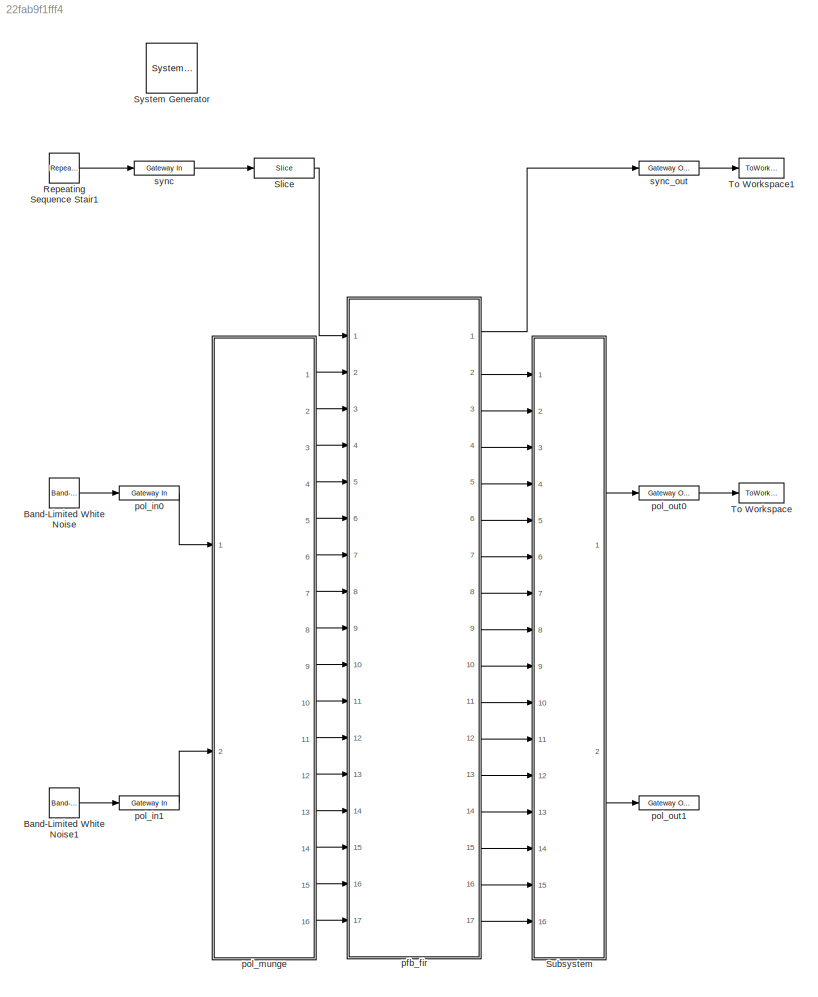
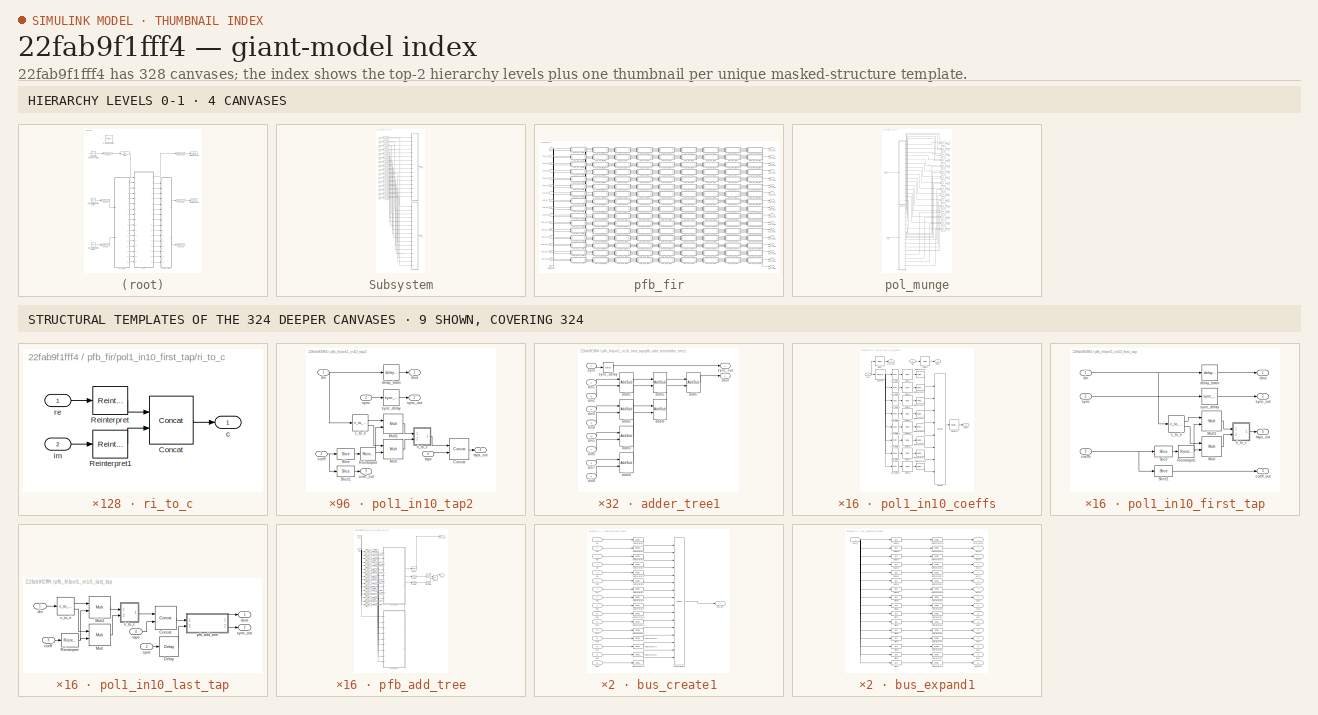
[diagram: thumbnail index - top-2 hierarchy levels (4 canvases) + 9 structural-template representatives of the remaining 324 canvases]
MODEL slx_22fab9f1fff4
KIND model
CONFIG AbsTol = auto
CONFIG EnableMultiTasking = on
CONFIG FixedStep = auto
CONFIG MaxStep = auto
CONFIG MinStep = auto
CONFIG RelTol = 1e-3
CONFIG SampleTimeConstraint = Unconstrained
CONFIG Solver = ode45
CONFIG SolverName = ode45
CONFIG StartTime = 0.0
CONFIG StopTime = 10.0
BLOCK [Reference]  System Generator  REF=xbsIndex_r4/ System Generator
  AttributesFormatString = System\nGenerator
  Ports = []
  SourceBlock = xbsIndex_r4/ System Generator
  SourceType = Xilinx System Generator Block
  Tag = genX
  UserDataPersistent = on
BLOCK [Reference] Band-Limited White Noise  REF=simulink/Sources/Band-Limited
White Noise
  Ports = [0, 1]
  SourceBlock = simulink/Sources/Band-Limited\nWhite Noise
  SourceProductBaseCode = SL
  SourceProductName = Simulink
  SourceType = Band-Limited White Noise.
BLOCK [Reference] Band-Limited White Noise1  REF=simulink/Sources/Band-Limited
White Noise
  Ports = [0, 1]
  SourceBlock = simulink/Sources/Band-Limited\nWhite Noise
  SourceProductBaseCode = SL
  SourceProductName = Simulink
  SourceType = Band-Limited White Noise.
BLOCK [Reference] Repeating Sequence Stair1  REF=simulink/Sources/Repeating
Sequence
Stair
  Ports = [0, 1]
  SourceBlock = simulink/Sources/Repeating\nSequence\nStair
  SourceProductBaseCode = SL
  SourceProductName = Simulink
  SourceType = Repeating Sequence Stair
BLOCK [Reference] Slice  REF=xbsIndex_r4/Slice
  Ports = [1, 1]
  SourceBlock = xbsIndex_r4/Slice
  SourceType = Xilinx Bit Slice Extractor Block
BLOCK [SubSystem] Subsystem
  Ports = [16, 2]
  RequestExecContextInheritance = off
BLOCK [Inport] Subsystem/In1
  IconDisplay = Port number
BLOCK [Inport] Subsystem/In10
  IconDisplay = Port number
  Port = 10
BLOCK [Inport] Subsystem/In11
  IconDisplay = Port number
  Port = 11
BLOCK [Inport] Subsystem/In12
  IconDisplay = Port number
  Port = 12
BLOCK [Inport] Subsystem/In13
  IconDisplay = Port number
  Port = 13
BLOCK [Inport] Subsystem/In14
  IconDisplay = Port number
  Port = 14
BLOCK [Inport] Subsystem/In15
  IconDisplay = Port number
  Port = 15
BLOCK [Inport] Subsystem/In16
  IconDisplay = Port number
  Port = 16
BLOCK [Inport] Subsystem/In2
  IconDisplay = Port number
  Port = 2
BLOCK [Inport] Subsystem/In3
  IconDisplay = Port number
  Port = 3
BLOCK [Inport] Subsystem/In4
  IconDisplay = Port number
  Port = 4
BLOCK [Inport] Subsystem/In5
  IconDisplay = Port number
  Port = 5
BLOCK [Inport] Subsystem/In6
  IconDisplay = Port number
  Port = 6
BLOCK [Inport] Subsystem/In7
  IconDisplay = Port number
  Port = 7
BLOCK [Inport] Subsystem/In8
  IconDisplay = Port number
  Port = 8
BLOCK [Inport] Subsystem/In9
  IconDisplay = Port number
  Port = 9
BLOCK [SubSystem] Subsystem/bus_create1
  AncestorBlock = casper_library_flow_control/bus_create
  Ports = [16, 1]
  RequestExecContextInheritance = off
  UserDataPersistent = on
BLOCK [Outport] Subsystem/bus_create1/bus_out
  IconDisplay = Port number
BLOCK [Reference] Subsystem/bus_create1/concatenate  REF=xbsIndex_r4/Concat
  Ports = [16, 1]
  SourceBlock = xbsIndex_r4/Concat
  SourceType = Xilinx Bus Concatenator Block
BLOCK [Inport] Subsystem/bus_create1/in1
  IconDisplay = Port number
BLOCK [Inport] Subsystem/bus_create1/in10
  IconDisplay = Port number
  Port = 10
BLOCK [Inport] Subsystem/bus_create1/in11
  IconDisplay = Port number
  Port = 11
BLOCK [Inport] Subsystem/bus_create1/in12
  IconDisplay = Port number
  Port = 12
BLOCK [Inport] Subsystem/bus_create1/in13
  IconDisplay = Port number
  Port = 13
BLOCK [Inport] Subsystem/bus_create1/in14
  IconDisplay = Port number
  Port = 14
BLOCK [Inport] Subsystem/bus_create1/in15
  IconDisplay = Port number
  Port = 15
BLOCK [Inport] Subsystem/bus_create1/in16
  IconDisplay = Port number
  Port = 16
BLOCK [Inport] Subsystem/bus_create1/in2
  IconDisplay = Port number
  Port = 2
BLOCK [Inport] Subsystem/bus_create1/in3
  IconDisplay = Port number
  Port = 3
BLOCK [Inport] Subsystem/bus_create1/in4
  IconDisplay = Port number
  Port = 4
BLOCK [Inport] Subsystem/bus_create1/in5
  IconDisplay = Port number
  Port = 5
BLOCK [Inport] Subsystem/bus_create1/in6
  IconDisplay = Port number
  Port = 6
BLOCK [Inport] Subsystem/bus_create1/in7
  IconDisplay = Port number
  Port = 7
BLOCK [Inport] Subsystem/bus_create1/in8
  IconDisplay = Port number
  Port = 8
BLOCK [Inport] Subsystem/bus_create1/in9
  IconDisplay = Port number
  Port = 9
BLOCK [Reference] Subsystem/bus_create1/reinterpret1  REF=xbsIndex_r4/Reinterpret
  Ports = [1, 1]
  SourceBlock = xbsIndex_r4/Reinterpret
  SourceType = Xilinx Type Reinterpreter Block
BLOCK [Reference] Subsystem/bus_create1/reinterpret10  REF=xbsIndex_r4/Reinterpret
  Ports = [1, 1]
  SourceBlock = xbsIndex_r4/Reinterpret
  SourceType = Xilinx Type Reinterpreter Block
BLOCK [Reference] Subsystem/bus_create1/reinterpret11  REF=xbsIndex_r4/Reinterpret
  Ports = [1, 1]
  SourceBlock = xbsIndex_r4/Reinterpret
  SourceType = Xilinx Type Reinterpreter Block
BLOCK [Reference] Subsystem/bus_create1/reinterpret12  REF=xbsIndex_r4/Reinterpret
  Ports = [1, 1]
  SourceBlock = xbsIndex_r4/Reinterpret
  SourceType = Xilinx Type Reinterpreter Block
BLOCK [Reference] Subsystem/bus_create1/reinterpret13  REF=xbsIndex_r4/Reinterpret
  Ports = [1, 1]
  SourceBlock = xbsIndex_r4/Reinterpret
  SourceType = Xilinx Type Reinterpreter Block
BLOCK [Reference] Subsystem/bus_create1/reinterpret14  REF=xbsIndex_r4/Reinterpret
  Ports = [1, 1]
  SourceBlock = xbsIndex_r4/Reinterpret
  SourceType = Xilinx Type Reinterpreter Block
BLOCK [Reference] Subsystem/bus_create1/reinterpret15  REF=xbsIndex_r4/Reinterpret
  Ports = [1, 1]
  SourceBlock = xbsIndex_r4/Reinterpret
  SourceType = Xilinx Type Reinterpreter Block
BLOCK [Reference] Subsystem/bus_create1/reinterpret16  REF=xbsIndex_r4/Reinterpret
  Ports = [1, 1]
  SourceBlock = xbsIndex_r4/Reinterpret
  SourceType = Xilinx Type Reinterpreter Block
BLOCK [Reference] Subsystem/bus_create1/reinterpret2  REF=xbsIndex_r4/Reinterpret
  Ports = [1, 1]
  SourceBlock = xbsIndex_r4/Reinterpret
  SourceType = Xilinx Type Reinterpreter Block
BLOCK [Reference] Subsystem/bus_create1/reinterpret3  REF=xbsIndex_r4/Reinterpret
  Ports = [1, 1]
  SourceBlock = xbsIndex_r4/Reinterpret
  SourceType = Xilinx Type Reinterpreter Block
BLOCK [Reference] Subsystem/bus_create1/reinterpret4  REF=xbsIndex_r4/Reinterpret
  Ports = [1, 1]
  SourceBlock = xbsIndex_r4/Reinterpret
  SourceType = Xilinx Type Reinterpreter Block
BLOCK [Reference] Subsystem/bus_create1/reinterpret5  REF=xbsIndex_r4/Reinterpret
  Ports = [1, 1]
  SourceBlock = xbsIndex_r4/Reinterpret
  SourceType = Xilinx Type Reinterpreter Block
BLOCK [Reference] Subsystem/bus_create1/reinterpret6  REF=xbsIndex_r4/Reinterpret
  Ports = [1, 1]
  SourceBlock = xbsIndex_r4/Reinterpret
  SourceType = Xilinx Type Reinterpreter Block
BLOCK [Reference] Subsystem/bus_create1/reinterpret7  REF=xbsIndex_r4/Reinterpret
  Ports = [1, 1]
  SourceBlock = xbsIndex_r4/Reinterpret
  SourceType = Xilinx Type Reinterpreter Block
BLOCK [Reference] Subsystem/bus_create1/reinterpret8  REF=xbsIndex_r4/Reinterpret
  Ports = [1, 1]
  SourceBlock = xbsIndex_r4/Reinterpret
  SourceType = Xilinx Type Reinterpreter Block
BLOCK [Reference] Subsystem/bus_create1/reinterpret9  REF=xbsIndex_r4/Reinterpret
  Ports = [1, 1]
  SourceBlock = xbsIndex_r4/Reinterpret
  SourceType = Xilinx Type Reinterpreter Block
BLOCK [SubSystem] Subsystem/bus_create2
  AncestorBlock = casper_library_flow_control/bus_create
  Ports = [16, 1]
  RequestExecContextInheritance = off
  UserDataPersistent = on
BLOCK [Outport] Subsystem/bus_create2/bus_out
  IconDisplay = Port number
BLOCK [Reference] Subsystem/bus_create2/concatenate  REF=xbsIndex_r4/Concat
  Ports = [16, 1]
  SourceBlock = xbsIndex_r4/Concat
  SourceType = Xilinx Bus Concatenator Block
BLOCK [Inport] Subsystem/bus_create2/in1
  IconDisplay = Port number
BLOCK [Inport] Subsystem/bus_create2/in10
  IconDisplay = Port number
  Port = 10
BLOCK [Inport] Subsystem/bus_create2/in11
  IconDisplay = Port number
  Port = 11
BLOCK [Inport] Subsystem/bus_create2/in12
  IconDisplay = Port number
  Port = 12
BLOCK [Inport] Subsystem/bus_create2/in13
  IconDisplay = Port number
  Port = 13
BLOCK [Inport] Subsystem/bus_create2/in14
  IconDisplay = Port number
  Port = 14
BLOCK [Inport] Subsystem/bus_create2/in15
  IconDisplay = Port number
  Port = 15
BLOCK [Inport] Subsystem/bus_create2/in16
  IconDisplay = Port number
  Port = 16
BLOCK [Inport] Subsystem/bus_create2/in2
  IconDisplay = Port number
  Port = 2
BLOCK [Inport] Subsystem/bus_create2/in3
  IconDisplay = Port number
  Port = 3
BLOCK [Inport] Subsystem/bus_create2/in4
  IconDisplay = Port number
  Port = 4
BLOCK [Inport] Subsystem/bus_create2/in5
  IconDisplay = Port number
  Port = 5
BLOCK [Inport] Subsystem/bus_create2/in6
  IconDisplay = Port number
  Port = 6
BLOCK [Inport] Subsystem/bus_create2/in7
  IconDisplay = Port number
  Port = 7
BLOCK [Inport] Subsystem/bus_create2/in8
  IconDisplay = Port number
  Port = 8
BLOCK [Inport] Subsystem/bus_create2/in9
  IconDisplay = Port number
  Port = 9
BLOCK [Reference] Subsystem/bus_create2/reinterpret1  REF=xbsIndex_r4/Reinterpret
  Ports = [1, 1]
  SourceBlock = xbsIndex_r4/Reinterpret
  SourceType = Xilinx Type Reinterpreter Block
BLOCK [Reference] Subsystem/bus_create2/reinterpret10  REF=xbsIndex_r4/Reinterpret
  Ports = [1, 1]
  SourceBlock = xbsIndex_r4/Reinterpret
  SourceType = Xilinx Type Reinterpreter Block
BLOCK [Reference] Subsystem/bus_create2/reinterpret11  REF=xbsIndex_r4/Reinterpret
  Ports = [1, 1]
  SourceBlock = xbsIndex_r4/Reinterpret
  SourceType = Xilinx Type Reinterpreter Block
BLOCK [Reference] Subsystem/bus_create2/reinterpret12  REF=xbsIndex_r4/Reinterpret
  Ports = [1, 1]
  SourceBlock = xbsIndex_r4/Reinterpret
  SourceType = Xilinx Type Reinterpreter Block
BLOCK [Reference] Subsystem/bus_create2/reinterpret13  REF=xbsIndex_r4/Reinterpret
  Ports = [1, 1]
  SourceBlock = xbsIndex_r4/Reinterpret
  SourceType = Xilinx Type Reinterpreter Block
BLOCK [Reference] Subsystem/bus_create2/reinterpret14  REF=xbsIndex_r4/Reinterpret
  Ports = [1, 1]
  SourceBlock = xbsIndex_r4/Reinterpret
  SourceType = Xilinx Type Reinterpreter Block
BLOCK [Reference] Subsystem/bus_create2/reinterpret15  REF=xbsIndex_r4/Reinterpret
  Ports = [1, 1]
  SourceBlock = xbsIndex_r4/Reinterpret
  SourceType = Xilinx Type Reinterpreter Block
BLOCK [Reference] Subsystem/bus_create2/reinterpret16  REF=xbsIndex_r4/Reinterpret
  Ports = [1, 1]
  SourceBlock = xbsIndex_r4/Reinterpret
  SourceType = Xilinx Type Reinterpreter Block
BLOCK [Reference] Subsystem/bus_create2/reinterpret2  REF=xbsIndex_r4/Reinterpret
  Ports = [1, 1]
  SourceBlock = xbsIndex_r4/Reinterpret
  SourceType = Xilinx Type Reinterpreter Block
BLOCK [Reference] Subsystem/bus_create2/reinterpret3  REF=xbsIndex_r4/Reinterpret
  Ports = [1, 1]
  SourceBlock = xbsIndex_r4/Reinterpret
  SourceType = Xilinx Type Reinterpreter Block
BLOCK [Reference] Subsystem/bus_create2/reinterpret4  REF=xbsIndex_r4/Reinterpret
  Ports = [1, 1]
  SourceBlock = xbsIndex_r4/Reinterpret
  SourceType = Xilinx Type Reinterpreter Block
BLOCK [Reference] Subsystem/bus_create2/reinterpret5  REF=xbsIndex_r4/Reinterpret
  Ports = [1, 1]
  SourceBlock = xbsIndex_r4/Reinterpret
  SourceType = Xilinx Type Reinterpreter Block
BLOCK [Reference] Subsystem/bus_create2/reinterpret6  REF=xbsIndex_r4/Reinterpret
  Ports = [1, 1]
  SourceBlock = xbsIndex_r4/Reinterpret
  SourceType = Xilinx Type Reinterpreter Block
BLOCK [Reference] Subsystem/bus_create2/reinterpret7  REF=xbsIndex_r4/Reinterpret
  Ports = [1, 1]
  SourceBlock = xbsIndex_r4/Reinterpret
  SourceType = Xilinx Type Reinterpreter Block
BLOCK [Reference] Subsystem/bus_create2/reinterpret8  REF=xbsIndex_r4/Reinterpret
  Ports = [1, 1]
  SourceBlock = xbsIndex_r4/Reinterpret
  SourceType = Xilinx Type Reinterpreter Block
BLOCK [Reference] Subsystem/bus_create2/reinterpret9  REF=xbsIndex_r4/Reinterpret
  Ports = [1, 1]
  SourceBlock = xbsIndex_r4/Reinterpret
  SourceType = Xilinx Type Reinterpreter Block
BLOCK [Reference] Subsystem/c_to_ri  REF=casper_library_misc/c_to_ri  (lib defined in mdl_357510c33b49, mdl_57b5f564ae26, +4 more)
  AttributesFormatString = 18_17 r/i
  Ports = [1, 2]
  SourceBlock = casper_library_misc/c_to_ri
  SourceProductName = CASPER DSP Blockset
  SourceType = c_to_ri
  UserDataPersistent = on
BLOCK [Reference] Subsystem/c_to_ri1  REF=casper_library_misc/c_to_ri  (lib defined in mdl_357510c33b49, mdl_57b5f564ae26, +4 more)
  AttributesFormatString = 18_17 r/i
  Ports = [1, 2]
  SourceBlock = casper_library_misc/c_to_ri
  SourceProductName = CASPER DSP Blockset
  SourceType = c_to_ri
  UserDataPersistent = on
BLOCK [Reference] Subsystem/c_to_ri10  REF=casper_library_misc/c_to_ri  (lib defined in mdl_357510c33b49, mdl_57b5f564ae26, +4 more)
  AttributesFormatString = 18_17 r/i
  Ports = [1, 2]
  SourceBlock = casper_library_misc/c_to_ri
  SourceProductName = CASPER DSP Blockset
  SourceType = c_to_ri
  UserDataPersistent = on
BLOCK [Reference] Subsystem/c_to_ri11  REF=casper_library_misc/c_to_ri  (lib defined in mdl_357510c33b49, mdl_57b5f564ae26, +4 more)
  AttributesFormatString = 18_17 r/i
  Ports = [1, 2]
  SourceBlock = casper_library_misc/c_to_ri
  SourceProductName = CASPER DSP Blockset
  SourceType = c_to_ri
  UserDataPersistent = on
BLOCK [Reference] Subsystem/c_to_ri12  REF=casper_library_misc/c_to_ri  (lib defined in mdl_357510c33b49, mdl_57b5f564ae26, +4 more)
  AttributesFormatString = 18_17 r/i
  Ports = [1, 2]
  SourceBlock = casper_library_misc/c_to_ri
  SourceProductName = CASPER DSP Blockset
  SourceType = c_to_ri
  UserDataPersistent = on
BLOCK [Reference] Subsystem/c_to_ri13  REF=casper_library_misc/c_to_ri  (lib defined in mdl_357510c33b49, mdl_57b5f564ae26, +4 more)
  AttributesFormatString = 18_17 r/i
  Ports = [1, 2]
  SourceBlock = casper_library_misc/c_to_ri
  SourceProductName = CASPER DSP Blockset
  SourceType = c_to_ri
  UserDataPersistent = on
BLOCK [Reference] Subsystem/c_to_ri14  REF=casper_library_misc/c_to_ri  (lib defined in mdl_357510c33b49, mdl_57b5f564ae26, +4 more)
  AttributesFormatString = 18_17 r/i
  Ports = [1, 2]
  SourceBlock = casper_library_misc/c_to_ri
  SourceProductName = CASPER DSP Blockset
  SourceType = c_to_ri
  UserDataPersistent = on
BLOCK [Reference] Subsystem/c_to_ri15  REF=casper_library_misc/c_to_ri  (lib defined in mdl_357510c33b49, mdl_57b5f564ae26, +4 more)
  AttributesFormatString = 18_17 r/i
  Ports = [1, 2]
  SourceBlock = casper_library_misc/c_to_ri
  SourceProductName = CASPER DSP Blockset
  SourceType = c_to_ri
  UserDataPersistent = on
BLOCK [Reference] Subsystem/c_to_ri2  REF=casper_library_misc/c_to_ri  (lib defined in mdl_357510c33b49, mdl_57b5f564ae26, +4 more)
  AttributesFormatString = 18_17 r/i
  Ports = [1, 2]
  SourceBlock = casper_library_misc/c_to_ri
  SourceProductName = CASPER DSP Blockset
  SourceType = c_to_ri
  UserDataPersistent = on
BLOCK [Reference] Subsystem/c_to_ri3  REF=casper_library_misc/c_to_ri  (lib defined in mdl_357510c33b49, mdl_57b5f564ae26, +4 more)
  AttributesFormatString = 18_17 r/i
  Ports = [1, 2]
  SourceBlock = casper_library_misc/c_to_ri
  SourceProductName = CASPER DSP Blockset
  SourceType = c_to_ri
  UserDataPersistent = on
BLOCK [Reference] Subsystem/c_to_ri4  REF=casper_library_misc/c_to_ri  (lib defined in mdl_357510c33b49, mdl_57b5f564ae26, +4 more)
  AttributesFormatString = 18_17 r/i
  Ports = [1, 2]
  SourceBlock = casper_library_misc/c_to_ri
  SourceProductName = CASPER DSP Blockset
  SourceType = c_to_ri
  UserDataPersistent = on
BLOCK [Reference] Subsystem/c_to_ri5  REF=casper_library_misc/c_to_ri  (lib defined in mdl_357510c33b49, mdl_57b5f564ae26, +4 more)
  AttributesFormatString = 18_17 r/i
  Ports = [1, 2]
  SourceBlock = casper_library_misc/c_to_ri
  SourceProductName = CASPER DSP Blockset
  SourceType = c_to_ri
  UserDataPersistent = on
BLOCK [Reference] Subsystem/c_to_ri6  REF=casper_library_misc/c_to_ri  (lib defined in mdl_357510c33b49, mdl_57b5f564ae26, +4 more)
  AttributesFormatString = 18_17 r/i
  Ports = [1, 2]
  SourceBlock = casper_library_misc/c_to_ri
  SourceProductName = CASPER DSP Blockset
  SourceType = c_to_ri
  UserDataPersistent = on
BLOCK [Reference] Subsystem/c_to_ri7  REF=casper_library_misc/c_to_ri  (lib defined in mdl_357510c33b49, mdl_57b5f564ae26, +4 more)
  AttributesFormatString = 18_17 r/i
  Ports = [1, 2]
  SourceBlock = casper_library_misc/c_to_ri
  SourceProductName = CASPER DSP Blockset
  SourceType = c_to_ri
  UserDataPersistent = on
BLOCK [Reference] Subsystem/c_to_ri8  REF=casper_library_misc/c_to_ri  (lib defined in mdl_357510c33b49, mdl_57b5f564ae26, +4 more)
  AttributesFormatString = 18_17 r/i
  Ports = [1, 2]
  SourceBlock = casper_library_misc/c_to_ri
  SourceProductName = CASPER DSP Blockset
  SourceType = c_to_ri
  UserDataPersistent = on
BLOCK [Reference] Subsystem/c_to_ri9  REF=casper_library_misc/c_to_ri  (lib defined in mdl_357510c33b49, mdl_57b5f564ae26, +4 more)
  AttributesFormatString = 18_17 r/i
  Ports = [1, 2]
  SourceBlock = casper_library_misc/c_to_ri
  SourceProductName = CASPER DSP Blockset
  SourceType = c_to_ri
  UserDataPersistent = on
BLOCK [Outport] Subsystem/pol0
  IconDisplay = Port number
BLOCK [Outport] Subsystem/pol1
  IconDisplay = Port number
  Port = 2
BLOCK [ToWorkspace] To Workspace
  MaxDataPoints = inf
  Ports = [1]
  SampleTime = -1
  VariableName = pfbout
BLOCK [ToWorkspace] To Workspace1
  MaxDataPoints = inf
  Ports = [1]
  SampleTime = -1
  VariableName = pfbsync
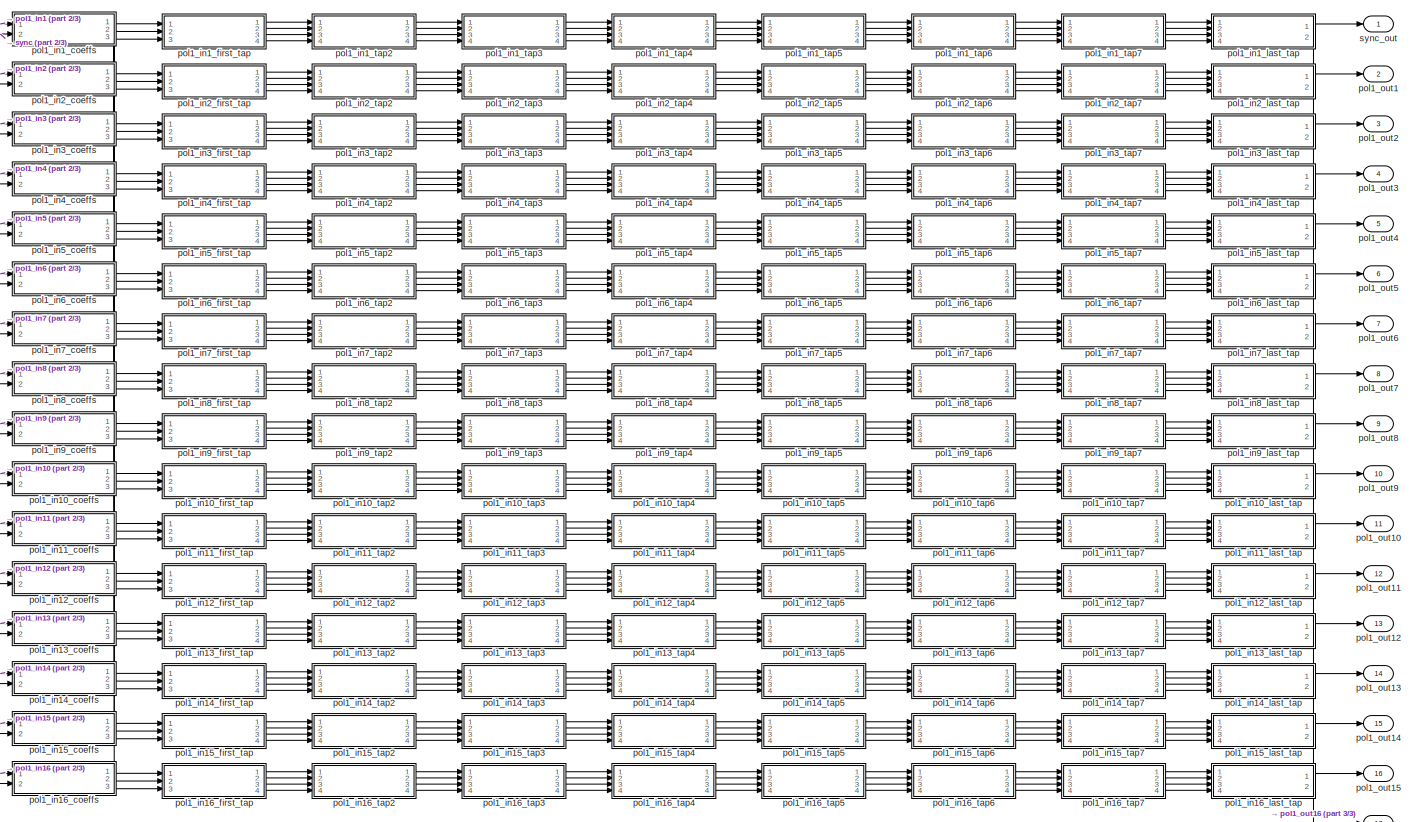
[diagram: pfb_fir - part 1/3, most of the canvas]
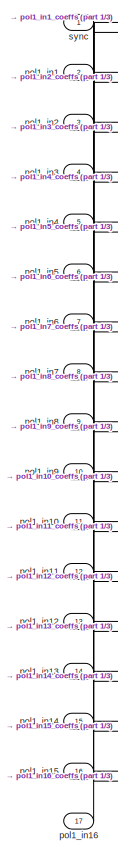
[diagram: pfb_fir - part 2/3, left side, full height]
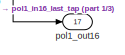
[diagram: pfb_fir - part 3/3, bottom right region]
BLOCK [SubSystem] pfb_fir
  AncestorBlock = casper_library_pfbs/pfb_fir
  AttributesFormatString = taps=8, add_latency=1\nmax scale 0.823
  Ports = [17, 17]
  RequestExecContextInheritance = off
  Tag = casper:pfb_fir
  UserDataPersistent = on
BLOCK [Inport] pfb_fir/pol1_in1
  IconDisplay = Port number
  Port = 2
BLOCK [Inport] pfb_fir/pol1_in10
  IconDisplay = Port number
  Port = 11
BLOCK [SubSystem] pfb_fir/pol1_in10_coeffs
  AncestorBlock = casper_library_pfbs/pfb_coeff_gen
  AttributesFormatString = PFBSize=8, n_inputs=4,\ntaps=8, input=9
  Ports = [2, 3]
  RequestExecContextInheritance = off
  UserDataPersistent = on
BLOCK [Reference] pfb_fir/pol1_in10_coeffs/Concat  REF=xbsIndex_r4/Concat
  Ports = [8, 1]
  SourceBlock = xbsIndex_r4/Concat
  SourceType = Xilinx Bus Concatenator Block
BLOCK [Reference] pfb_fir/pol1_in10_coeffs/Counter  REF=xbsIndex_r4/Counter
  Ports = [1, 1]
  SourceBlock = xbsIndex_r4/Counter
  SourceType = Xilinx Counter Block
BLOCK [Reference] pfb_fir/pol1_in10_coeffs/Delay  REF=xbsIndex_r4/Delay
  Ports = [1, 1]
  SourceBlock = xbsIndex_r4/Delay
  SourceType = Xilinx Delay Block
BLOCK [Reference] pfb_fir/pol1_in10_coeffs/Delay1  REF=xbsIndex_r4/Delay
  Ports = [1, 1]
  SourceBlock = xbsIndex_r4/Delay
  SourceType = Xilinx Delay Block
BLOCK [Reference] pfb_fir/pol1_in10_coeffs/ROM1  REF=xbsIndex_r4/ROM
  Ports = [1, 1]
  SourceBlock = xbsIndex_r4/ROM
  SourceType = Xilinx Single Port Read-Only Memory Block
BLOCK [Reference] pfb_fir/pol1_in10_coeffs/ROM2  REF=xbsIndex_r4/ROM
  Ports = [1, 1]
  SourceBlock = xbsIndex_r4/ROM
  SourceType = Xilinx Single Port Read-Only Memory Block
BLOCK [Reference] pfb_fir/pol1_in10_coeffs/ROM3  REF=xbsIndex_r4/ROM
  Ports = [1, 1]
  SourceBlock = xbsIndex_r4/ROM
  SourceType = Xilinx Single Port Read-Only Memory Block
BLOCK [Reference] pfb_fir/pol1_in10_coeffs/ROM4  REF=xbsIndex_r4/ROM
  Ports = [1, 1]
  SourceBlock = xbsIndex_r4/ROM
  SourceType = Xilinx Single Port Read-Only Memory Block
BLOCK [Reference] pfb_fir/pol1_in10_coeffs/ROM5  REF=xbsIndex_r4/ROM
  Ports = [1, 1]
  SourceBlock = xbsIndex_r4/ROM
  SourceType = Xilinx Single Port Read-Only Memory Block
BLOCK [Reference] pfb_fir/pol1_in10_coeffs/ROM6  REF=xbsIndex_r4/ROM
  Ports = [1, 1]
  SourceBlock = xbsIndex_r4/ROM
  SourceType = Xilinx Single Port Read-Only Memory Block
BLOCK [Reference] pfb_fir/pol1_in10_coeffs/ROM7  REF=xbsIndex_r4/ROM
  Ports = [1, 1]
  SourceBlock = xbsIndex_r4/ROM
  SourceType = Xilinx Single Port Read-Only Memory Block
BLOCK [Reference] pfb_fir/pol1_in10_coeffs/ROM8  REF=xbsIndex_r4/ROM
  Ports = [1, 1]
  SourceBlock = xbsIndex_r4/ROM
  SourceType = Xilinx Single Port Read-Only Memory Block
BLOCK [Reference] pfb_fir/pol1_in10_coeffs/Register  REF=xbsIndex_r4/Register
  Ports = [1, 1]
  SourceBlock = xbsIndex_r4/Register
  SourceType = Xilinx Register Block
BLOCK [Reference] pfb_fir/pol1_in10_coeffs/Reinterpret1  REF=xbsIndex_r4/Reinterpret
  Ports = [1, 1]
  SourceBlock = xbsIndex_r4/Reinterpret
  SourceType = Xilinx Type Reinterpreter Block
BLOCK [Reference] pfb_fir/pol1_in10_coeffs/Reinterpret2  REF=xbsIndex_r4/Reinterpret
  Ports = [1, 1]
  SourceBlock = xbsIndex_r4/Reinterpret
  SourceType = Xilinx Type Reinterpreter Block
BLOCK [Reference] pfb_fir/pol1_in10_coeffs/Reinterpret3  REF=xbsIndex_r4/Reinterpret
  Ports = [1, 1]
  SourceBlock = xbsIndex_r4/Reinterpret
  SourceType = Xilinx Type Reinterpreter Block
BLOCK [Reference] pfb_fir/pol1_in10_coeffs/Reinterpret4  REF=xbsIndex_r4/Reinterpret
  Ports = [1, 1]
  SourceBlock = xbsIndex_r4/Reinterpret
  SourceType = Xilinx Type Reinterpreter Block
BLOCK [Reference] pfb_fir/pol1_in10_coeffs/Reinterpret5  REF=xbsIndex_r4/Reinterpret
  Ports = [1, 1]
  SourceBlock = xbsIndex_r4/Reinterpret
  SourceType = Xilinx Type Reinterpreter Block
BLOCK [Reference] pfb_fir/pol1_in10_coeffs/Reinterpret6  REF=xbsIndex_r4/Reinterpret
  Ports = [1, 1]
  SourceBlock = xbsIndex_r4/Reinterpret
  SourceType = Xilinx Type Reinterpreter Block
BLOCK [Reference] pfb_fir/pol1_in10_coeffs/Reinterpret7  REF=xbsIndex_r4/Reinterpret
  Ports = [1, 1]
  SourceBlock = xbsIndex_r4/Reinterpret
  SourceType = Xilinx Type Reinterpreter Block
BLOCK [Reference] pfb_fir/pol1_in10_coeffs/Reinterpret8  REF=xbsIndex_r4/Reinterpret
  Ports = [1, 1]
  SourceBlock = xbsIndex_r4/Reinterpret
  SourceType = Xilinx Type Reinterpreter Block
BLOCK [Outport] pfb_fir/pol1_in10_coeffs/coeff
  IconDisplay = Port number
  Port = 3
BLOCK [Inport] pfb_fir/pol1_in10_coeffs/din
  IconDisplay = Port number
BLOCK [Outport] pfb_fir/pol1_in10_coeffs/dout
  IconDisplay = Port number
BLOCK [Reference] pfb_fir/pol1_in10_coeffs/fan_delay1  REF=xbsIndex_r4/Delay
  Ports = [1, 1]
  SourceBlock = xbsIndex_r4/Delay
  SourceType = Xilinx Delay Block
BLOCK [Reference] pfb_fir/pol1_in10_coeffs/fan_delay2  REF=xbsIndex_r4/Delay
  Ports = [1, 1]
  SourceBlock = xbsIndex_r4/Delay
  SourceType = Xilinx Delay Block
BLOCK [Reference] pfb_fir/pol1_in10_coeffs/fan_delay3  REF=xbsIndex_r4/Delay
  Ports = [1, 1]
  SourceBlock = xbsIndex_r4/Delay
  SourceType = Xilinx Delay Block
BLOCK [Reference] pfb_fir/pol1_in10_coeffs/fan_delay4  REF=xbsIndex_r4/Delay
  Ports = [1, 1]
  SourceBlock = xbsIndex_r4/Delay
  SourceType = Xilinx Delay Block
BLOCK [Reference] pfb_fir/pol1_in10_coeffs/fan_delay5  REF=xbsIndex_r4/Delay
  Ports = [1, 1]
  SourceBlock = xbsIndex_r4/Delay
  SourceType = Xilinx Delay Block
BLOCK [Reference] pfb_fir/pol1_in10_coeffs/fan_delay6  REF=xbsIndex_r4/Delay
  Ports = [1, 1]
  SourceBlock = xbsIndex_r4/Delay
  SourceType = Xilinx Delay Block
BLOCK [Reference] pfb_fir/pol1_in10_coeffs/fan_delay7  REF=xbsIndex_r4/Delay
  Ports = [1, 1]
  SourceBlock = xbsIndex_r4/Delay
  SourceType = Xilinx Delay Block
BLOCK [Reference] pfb_fir/pol1_in10_coeffs/fan_delay8  REF=xbsIndex_r4/Delay
  Ports = [1, 1]
  SourceBlock = xbsIndex_r4/Delay
  SourceType = Xilinx Delay Block
BLOCK [Inport] pfb_fir/pol1_in10_coeffs/sync
  IconDisplay = Port number
  Port = 2
BLOCK [Outport] pfb_fir/pol1_in10_coeffs/sync_out
  IconDisplay = Port number
  Port = 2
BLOCK [SubSystem] pfb_fir/pol1_in10_first_tap
  AncestorBlock = casper_library_pfbs/first_tap
  AttributesFormatString = taps=8
  Ports = [3, 4]
  RequestExecContextInheritance = off
  UserDataPersistent = on
BLOCK [Reference] pfb_fir/pol1_in10_first_tap/Mult  REF=xbsIndex_r4/Mult
  Ports = [2, 1]
  SourceBlock = xbsIndex_r4/Mult
  SourceType = Xilinx Multiplier Block
BLOCK [Reference] pfb_fir/pol1_in10_first_tap/Mult1  REF=xbsIndex_r4/Mult
  Ports = [2, 1]
  SourceBlock = xbsIndex_r4/Mult
  SourceType = Xilinx Multiplier Block
BLOCK [Reference] pfb_fir/pol1_in10_first_tap/Reinterpret  REF=xbsIndex_r4/Reinterpret
  Ports = [1, 1]
  SourceBlock = xbsIndex_r4/Reinterpret
  SourceType = Xilinx Type Reinterpreter Block
BLOCK [Reference] pfb_fir/pol1_in10_first_tap/Slice  REF=xbsIndex_r4/Slice
  Ports = [1, 1]
  SourceBlock = xbsIndex_r4/Slice
  SourceType = Xilinx Bit Slice Extractor Block
BLOCK [Reference] pfb_fir/pol1_in10_first_tap/Slice1  REF=xbsIndex_r4/Slice
  Ports = [1, 1]
  SourceBlock = xbsIndex_r4/Slice
  SourceType = Xilinx Bit Slice Extractor Block
BLOCK [Reference] pfb_fir/pol1_in10_first_tap/c_to_ri  REF=casper_library_misc/c_to_ri  (lib defined in mdl_357510c33b49, mdl_57b5f564ae26, +4 more)
  AttributesFormatString = 8_7 r/i
  Ports = [1, 2]
  SourceBlock = casper_library_misc/c_to_ri
  SourceProductName = CASPER DSP Blockset
  SourceType = c_to_ri
  UserDataPersistent = on
BLOCK [Outport] pfb_fir/pol1_in10_first_tap/coeff_out
  IconDisplay = Port number
  Port = 3
BLOCK [Inport] pfb_fir/pol1_in10_first_tap/coeffs
  IconDisplay = Port number
  Port = 3
BLOCK [Reference] pfb_fir/pol1_in10_first_tap/delay_bram  REF=casper_library_delays/delay_bram  (lib defined in mdl_259a08a3fac5, mdl_65009615caaa, +5 more)
  Ports = [1, 1]
  SourceBlock = casper_library_delays/delay_bram
  SourceProductName = CASPER DSP Blockset
  SourceType = delay_bram
  UserDataPersistent = on
BLOCK [Inport] pfb_fir/pol1_in10_first_tap/din
  IconDisplay = Port number
BLOCK [Outport] pfb_fir/pol1_in10_first_tap/dout
  IconDisplay = Port number
BLOCK [SubSystem] pfb_fir/pol1_in10_first_tap/ri_to_c
  Ports = [2, 1]
  RequestExecContextInheritance = off
BLOCK [Reference] pfb_fir/pol1_in10_first_tap/ri_to_c/Concat  REF=xbsIndex_r4/Concat
  Ports = [2, 1]
  SourceBlock = xbsIndex_r4/Concat
  SourceType = Xilinx Bus Concatenator Block
BLOCK [Reference] pfb_fir/pol1_in10_first_tap/ri_to_c/Reinterpret  REF=xbsIndex_r4/Reinterpret
  Ports = [1, 1]
  SourceBlock = xbsIndex_r4/Reinterpret
  SourceType = Xilinx Type Reinterpreter Block
BLOCK [Reference] pfb_fir/pol1_in10_first_tap/ri_to_c/Reinterpret1  REF=xbsIndex_r4/Reinterpret
  Ports = [1, 1]
  SourceBlock = xbsIndex_r4/Reinterpret
  SourceType = Xilinx Type Reinterpreter Block
BLOCK [Outport] pfb_fir/pol1_in10_first_tap/ri_to_c/c
  IconDisplay = Port number
BLOCK [Inport] pfb_fir/pol1_in10_first_tap/ri_to_c/im
  IconDisplay = Port number
  Port = 2
BLOCK [Inport] pfb_fir/pol1_in10_first_tap/ri_to_c/re
  IconDisplay = Port number
BLOCK [Inport] pfb_fir/pol1_in10_first_tap/sync
  IconDisplay = Port number
  Port = 2
BLOCK [Reference] pfb_fir/pol1_in10_first_tap/sync_delay  REF=casper_library_delays/sync_delay  (lib defined in mdl_259a08a3fac5, mdl_65009615caaa, +5 more)
  Ports = [1, 1]
  SourceBlock = casper_library_delays/sync_delay
  SourceProductName = CASPER DSP Blockset
  SourceType = sync_delay
BLOCK [Outport] pfb_fir/pol1_in10_first_tap/sync_out
  IconDisplay = Port number
  Port = 2
BLOCK [Outport] pfb_fir/pol1_in10_first_tap/taps_out
  IconDisplay = Port number
  Port = 4
BLOCK [SubSystem] pfb_fir/pol1_in10_last_tap
  AncestorBlock = casper_library_pfbs/last_tap
  AttributesFormatString = taps=8
  Ports = [4, 2]
  RequestExecContextInheritance = off
  UserDataPersistent = on
BLOCK [Reference] pfb_fir/pol1_in10_last_tap/Concat  REF=xbsIndex_r4/Concat
  Ports = [2, 1]
  SourceBlock = xbsIndex_r4/Concat
  SourceType = Xilinx Bus Concatenator Block
BLOCK [Reference] pfb_fir/pol1_in10_last_tap/Delay  REF=xbsIndex_r4/Delay
  Ports = [1, 1]
  SourceBlock = xbsIndex_r4/Delay
  SourceType = Xilinx Delay Block
BLOCK [Reference] pfb_fir/pol1_in10_last_tap/Mult  REF=xbsIndex_r4/Mult
  Ports = [2, 1]
  SourceBlock = xbsIndex_r4/Mult
  SourceType = Xilinx Multiplier Block
BLOCK [Reference] pfb_fir/pol1_in10_last_tap/Mult1  REF=xbsIndex_r4/Mult
  Ports = [2, 1]
  SourceBlock = xbsIndex_r4/Mult
  SourceType = Xilinx Multiplier Block
BLOCK [Reference] pfb_fir/pol1_in10_last_tap/Reinterpret  REF=xbsIndex_r4/Reinterpret
  Ports = [1, 1]
  SourceBlock = xbsIndex_r4/Reinterpret
  SourceType = Xilinx Type Reinterpreter Block
BLOCK [Reference] pfb_fir/pol1_in10_last_tap/c_to_ri  REF=casper_library_misc/c_to_ri  (lib defined in mdl_357510c33b49, mdl_57b5f564ae26, +4 more)
  AttributesFormatString = 8_7 r/i
  Ports = [1, 2]
  SourceBlock = casper_library_misc/c_to_ri
  SourceProductName = CASPER DSP Blockset
  SourceType = c_to_ri
  UserDataPersistent = on
BLOCK [Inport] pfb_fir/pol1_in10_last_tap/coeff
  IconDisplay = Port number
  Port = 3
BLOCK [Inport] pfb_fir/pol1_in10_last_tap/din
  IconDisplay = Port number
BLOCK [Outport] pfb_fir/pol1_in10_last_tap/dout
  IconDisplay = Port number
BLOCK [SubSystem] pfb_fir/pol1_in10_last_tap/pfb_add_tree
  AttributesFormatString = taps=8, add_latency=1
  Ports = [2, 2]
  RequestExecContextInheritance = off
  UserDataPersistent = on
BLOCK [Reference] pfb_fir/pol1_in10_last_tap/pfb_add_tree/Reint0_1  REF=xbsIndex_r4/Reinterpret
  Ports = [1, 1]
  SourceBlock = xbsIndex_r4/Reinterpret
  SourceType = Xilinx Type Reinterpreter Block
BLOCK [Reference] pfb_fir/pol1_in10_last_tap/pfb_add_tree/Reint0_2  REF=xbsIndex_r4/Reinterpret
  Ports = [1, 1]
  SourceBlock = xbsIndex_r4/Reinterpret
  SourceType = Xilinx Type Reinterpreter Block
BLOCK [Reference] pfb_fir/pol1_in10_last_tap/pfb_add_tree/Reint1_1  REF=xbsIndex_r4/Reinterpret
  Ports = [1, 1]
  SourceBlock = xbsIndex_r4/Reinterpret
  SourceType = Xilinx Type Reinterpreter Block
BLOCK [Reference] pfb_fir/pol1_in10_last_tap/pfb_add_tree/Reint1_2  REF=xbsIndex_r4/Reinterpret
  Ports = [1, 1]
  SourceBlock = xbsIndex_r4/Reinterpret
  SourceType = Xilinx Type Reinterpreter Block
BLOCK [Reference] pfb_fir/pol1_in10_last_tap/pfb_add_tree/Reint2_1  REF=xbsIndex_r4/Reinterpret
  Ports = [1, 1]
  SourceBlock = xbsIndex_r4/Reinterpret
  SourceType = Xilinx Type Reinterpreter Block
BLOCK [Reference] pfb_fir/pol1_in10_last_tap/pfb_add_tree/Reint2_2  REF=xbsIndex_r4/Reinterpret
  Ports = [1, 1]
  SourceBlock = xbsIndex_r4/Reinterpret
  SourceType = Xilinx Type Reinterpreter Block
BLOCK [Reference] pfb_fir/pol1_in10_last_tap/pfb_add_tree/Reint3_1  REF=xbsIndex_r4/Reinterpret
  Ports = [1, 1]
  SourceBlock = xbsIndex_r4/Reinterpret
  SourceType = Xilinx Type Reinterpreter Block
BLOCK [Reference] pfb_fir/pol1_in10_last_tap/pfb_add_tree/Reint3_2  REF=xbsIndex_r4/Reinterpret
  Ports = [1, 1]
  SourceBlock = xbsIndex_r4/Reinterpret
  SourceType = Xilinx Type Reinterpreter Block
BLOCK [Reference] pfb_fir/pol1_in10_last_tap/pfb_add_tree/Reint4_1  REF=xbsIndex_r4/Reinterpret
  Ports = [1, 1]
  SourceBlock = xbsIndex_r4/Reinterpret
  SourceType = Xilinx Type Reinterpreter Block
BLOCK [Reference] pfb_fir/pol1_in10_last_tap/pfb_add_tree/Reint4_2  REF=xbsIndex_r4/Reinterpret
  Ports = [1, 1]
  SourceBlock = xbsIndex_r4/Reinterpret
  SourceType = Xilinx Type Reinterpreter Block
BLOCK [Reference] pfb_fir/pol1_in10_last_tap/pfb_add_tree/Reint5_1  REF=xbsIndex_r4/Reinterpret
  Ports = [1, 1]
  SourceBlock = xbsIndex_r4/Reinterpret
  SourceType = Xilinx Type Reinterpreter Block
BLOCK [Reference] pfb_fir/pol1_in10_last_tap/pfb_add_tree/Reint5_2  REF=xbsIndex_r4/Reinterpret
  Ports = [1, 1]
  SourceBlock = xbsIndex_r4/Reinterpret
  SourceType = Xilinx Type Reinterpreter Block
BLOCK [Reference] pfb_fir/pol1_in10_last_tap/pfb_add_tree/Reint6_1  REF=xbsIndex_r4/Reinterpret
  Ports = [1, 1]
  SourceBlock = xbsIndex_r4/Reinterpret
  SourceType = Xilinx Type Reinterpreter Block
BLOCK [Reference] pfb_fir/pol1_in10_last_tap/pfb_add_tree/Reint6_2  REF=xbsIndex_r4/Reinterpret
  Ports = [1, 1]
  SourceBlock = xbsIndex_r4/Reinterpret
  SourceType = Xilinx Type Reinterpreter Block
BLOCK [Reference] pfb_fir/pol1_in10_last_tap/pfb_add_tree/Reint7_1  REF=xbsIndex_r4/Reinterpret
  Ports = [1, 1]
  SourceBlock = xbsIndex_r4/Reinterpret
  SourceType = Xilinx Type Reinterpreter Block
BLOCK [Reference] pfb_fir/pol1_in10_last_tap/pfb_add_tree/Reint7_2  REF=xbsIndex_r4/Reinterpret
  Ports = [1, 1]
  SourceBlock = xbsIndex_r4/Reinterpret
  SourceType = Xilinx Type Reinterpreter Block
BLOCK [Reference] pfb_fir/pol1_in10_last_tap/pfb_add_tree/Slice0_1  REF=xbsIndex_r4/Slice
  Ports = [1, 1]
  SourceBlock = xbsIndex_r4/Slice
  SourceType = Xilinx Bit Slice Extractor Block
BLOCK [Reference] pfb_fir/pol1_in10_last_tap/pfb_add_tree/Slice0_2  REF=xbsIndex_r4/Slice
  Ports = [1, 1]
  SourceBlock = xbsIndex_r4/Slice
  SourceType = Xilinx Bit Slice Extractor Block
BLOCK [Reference] pfb_fir/pol1_in10_last_tap/pfb_add_tree/Slice1_1  REF=xbsIndex_r4/Slice
  Ports = [1, 1]
  SourceBlock = xbsIndex_r4/Slice
  SourceType = Xilinx Bit Slice Extractor Block
BLOCK [Reference] pfb_fir/pol1_in10_last_tap/pfb_add_tree/Slice1_2  REF=xbsIndex_r4/Slice
  Ports = [1, 1]
  SourceBlock = xbsIndex_r4/Slice
  SourceType = Xilinx Bit Slice Extractor Block
BLOCK [Reference] pfb_fir/pol1_in10_last_tap/pfb_add_tree/Slice2_1  REF=xbsIndex_r4/Slice
  Ports = [1, 1]
  SourceBlock = xbsIndex_r4/Slice
  SourceType = Xilinx Bit Slice Extractor Block
BLOCK [Reference] pfb_fir/pol1_in10_last_tap/pfb_add_tree/Slice2_2  REF=xbsIndex_r4/Slice
  Ports = [1, 1]
  SourceBlock = xbsIndex_r4/Slice
  SourceType = Xilinx Bit Slice Extractor Block
BLOCK [Reference] pfb_fir/pol1_in10_last_tap/pfb_add_tree/Slice3_1  REF=xbsIndex_r4/Slice
  Ports = [1, 1]
  SourceBlock = xbsIndex_r4/Slice
  SourceType = Xilinx Bit Slice Extractor Block
BLOCK [Reference] pfb_fir/pol1_in10_last_tap/pfb_add_tree/Slice3_2  REF=xbsIndex_r4/Slice
  Ports = [1, 1]
  SourceBlock = xbsIndex_r4/Slice
  SourceType = Xilinx Bit Slice Extractor Block
BLOCK [Reference] pfb_fir/pol1_in10_last_tap/pfb_add_tree/Slice4_1  REF=xbsIndex_r4/Slice
  Ports = [1, 1]
  SourceBlock = xbsIndex_r4/Slice
  SourceType = Xilinx Bit Slice Extractor Block
BLOCK [Reference] pfb_fir/pol1_in10_last_tap/pfb_add_tree/Slice4_2  REF=xbsIndex_r4/Slice
  Ports = [1, 1]
  SourceBlock = xbsIndex_r4/Slice
  SourceType = Xilinx Bit Slice Extractor Block
BLOCK [Reference] pfb_fir/pol1_in10_last_tap/pfb_add_tree/Slice5_1  REF=xbsIndex_r4/Slice
  Ports = [1, 1]
  SourceBlock = xbsIndex_r4/Slice
  SourceType = Xilinx Bit Slice Extractor Block
BLOCK [Reference] pfb_fir/pol1_in10_last_tap/pfb_add_tree/Slice5_2  REF=xbsIndex_r4/Slice
  Ports = [1, 1]
  SourceBlock = xbsIndex_r4/Slice
  SourceType = Xilinx Bit Slice Extractor Block
BLOCK [Reference] pfb_fir/pol1_in10_last_tap/pfb_add_tree/Slice6_1  REF=xbsIndex_r4/Slice
  Ports = [1, 1]
  SourceBlock = xbsIndex_r4/Slice
  SourceType = Xilinx Bit Slice Extractor Block
BLOCK [Reference] pfb_fir/pol1_in10_last_tap/pfb_add_tree/Slice6_2  REF=xbsIndex_r4/Slice
  Ports = [1, 1]
  SourceBlock = xbsIndex_r4/Slice
  SourceType = Xilinx Bit Slice Extractor Block
BLOCK [Reference] pfb_fir/pol1_in10_last_tap/pfb_add_tree/Slice7_1  REF=xbsIndex_r4/Slice
  Ports = [1, 1]
  SourceBlock = xbsIndex_r4/Slice
  SourceType = Xilinx Bit Slice Extractor Block
BLOCK [Reference] pfb_fir/pol1_in10_last_tap/pfb_add_tree/Slice7_2  REF=xbsIndex_r4/Slice
  Ports = [1, 1]
  SourceBlock = xbsIndex_r4/Slice
  SourceType = Xilinx Bit Slice Extractor Block
BLOCK [SubSystem] pfb_fir/pol1_in10_last_tap/pfb_add_tree/adder_tree1
  AncestorBlock = casper_library_misc/adder_tree
  AttributesFormatString = latency 3
  Ports = [9, 2]
  RequestExecContextInheritance = off
  UserDataPersistent = on
BLOCK [Reference] pfb_fir/pol1_in10_last_tap/pfb_add_tree/adder_tree1/addr1  REF=xbsIndex_r4/AddSub
  Ports = [2, 1]
  SourceBlock = xbsIndex_r4/AddSub
  SourceType = Xilinx Adder/Subtracter Block
BLOCK [Reference] pfb_fir/pol1_in10_last_tap/pfb_add_tree/adder_tree1/addr2  REF=xbsIndex_r4/AddSub
  Ports = [2, 1]
  SourceBlock = xbsIndex_r4/AddSub
  SourceType = Xilinx Adder/Subtracter Block
BLOCK [Reference] pfb_fir/pol1_in10_last_tap/pfb_add_tree/adder_tree1/addr3  REF=xbsIndex_r4/AddSub
  Ports = [2, 1]
  SourceBlock = xbsIndex_r4/AddSub
  SourceType = Xilinx Adder/Subtracter Block
BLOCK [Reference] pfb_fir/pol1_in10_last_tap/pfb_add_tree/adder_tree1/addr4  REF=xbsIndex_r4/AddSub
  Ports = [2, 1]
  SourceBlock = xbsIndex_r4/AddSub
  SourceType = Xilinx Adder/Subtracter Block
BLOCK [Reference] pfb_fir/pol1_in10_last_tap/pfb_add_tree/adder_tree1/addr5  REF=xbsIndex_r4/AddSub
  Ports = [2, 1]
  SourceBlock = xbsIndex_r4/AddSub
  SourceType = Xilinx Adder/Subtracter Block
BLOCK [Reference] pfb_fir/pol1_in10_last_tap/pfb_add_tree/adder_tree1/addr6  REF=xbsIndex_r4/AddSub
  Ports = [2, 1]
  SourceBlock = xbsIndex_r4/AddSub
  SourceType = Xilinx Adder/Subtracter Block
BLOCK [Reference] pfb_fir/pol1_in10_last_tap/pfb_add_tree/adder_tree1/addr7  REF=xbsIndex_r4/AddSub
  Ports = [2, 1]
  SourceBlock = xbsIndex_r4/AddSub
  SourceType = Xilinx Adder/Subtracter Block
BLOCK [Inport] pfb_fir/pol1_in10_last_tap/pfb_add_tree/adder_tree1/din1
  IconDisplay = Port number
  Port = 2
BLOCK [Inport] pfb_fir/pol1_in10_last_tap/pfb_add_tree/adder_tree1/din2
  IconDisplay = Port number
  Port = 3
BLOCK [Inport] pfb_fir/pol1_in10_last_tap/pfb_add_tree/adder_tree1/din3
  IconDisplay = Port number
  Port = 4
BLOCK [Inport] pfb_fir/pol1_in10_last_tap/pfb_add_tree/adder_tree1/din4
  IconDisplay = Port number
  Port = 5
BLOCK [Inport] pfb_fir/pol1_in10_last_tap/pfb_add_tree/adder_tree1/din5
  IconDisplay = Port number
  Port = 6
BLOCK [Inport] pfb_fir/pol1_in10_last_tap/pfb_add_tree/adder_tree1/din6
  IconDisplay = Port number
  Port = 7
BLOCK [Inport] pfb_fir/pol1_in10_last_tap/pfb_add_tree/adder_tree1/din7
  IconDisplay = Port number
  Port = 8
BLOCK [Inport] pfb_fir/pol1_in10_last_tap/pfb_add_tree/adder_tree1/din8
  IconDisplay = Port number
  Port = 9
BLOCK [Outport] pfb_fir/pol1_in10_last_tap/pfb_add_tree/adder_tree1/dout
  IconDisplay = Port number
  Port = 2
BLOCK [Inport] pfb_fir/pol1_in10_last_tap/pfb_add_tree/adder_tree1/sync
  IconDisplay = Port number
BLOCK [Reference] pfb_fir/pol1_in10_last_tap/pfb_add_tree/adder_tree1/sync_delay  REF=xbsIndex_r4/Delay
  Ports = [1, 1]
  SourceBlock = xbsIndex_r4/Delay
  SourceType = Xilinx Delay Block
BLOCK [Outport] pfb_fir/pol1_in10_last_tap/pfb_add_tree/adder_tree1/sync_out
  IconDisplay = Port number
BLOCK [SubSystem] pfb_fir/pol1_in10_last_tap/pfb_add_tree/adder_tree2
  AncestorBlock = casper_library_misc/adder_tree
  AttributesFormatString = latency 3
  Ports = [9, 2]
  RequestExecContextInheritance = off
  UserDataPersistent = on
BLOCK [Reference] pfb_fir/pol1_in10_last_tap/pfb_add_tree/adder_tree2/addr1  REF=xbsIndex_r4/AddSub
  Ports = [2, 1]
  SourceBlock = xbsIndex_r4/AddSub
  SourceType = Xilinx Adder/Subtracter Block
BLOCK [Reference] pfb_fir/pol1_in10_last_tap/pfb_add_tree/adder_tree2/addr2  REF=xbsIndex_r4/AddSub
  Ports = [2, 1]
  SourceBlock = xbsIndex_r4/AddSub
  SourceType = Xilinx Adder/Subtracter Block
BLOCK [Reference] pfb_fir/pol1_in10_last_tap/pfb_add_tree/adder_tree2/addr3  REF=xbsIndex_r4/AddSub
  Ports = [2, 1]
  SourceBlock = xbsIndex_r4/AddSub
  SourceType = Xilinx Adder/Subtracter Block
BLOCK [Reference] pfb_fir/pol1_in10_last_tap/pfb_add_tree/adder_tree2/addr4  REF=xbsIndex_r4/AddSub
  Ports = [2, 1]
  SourceBlock = xbsIndex_r4/AddSub
  SourceType = Xilinx Adder/Subtracter Block
BLOCK [Reference] pfb_fir/pol1_in10_last_tap/pfb_add_tree/adder_tree2/addr5  REF=xbsIndex_r4/AddSub
  Ports = [2, 1]
  SourceBlock = xbsIndex_r4/AddSub
  SourceType = Xilinx Adder/Subtracter Block
BLOCK [Reference] pfb_fir/pol1_in10_last_tap/pfb_add_tree/adder_tree2/addr6  REF=xbsIndex_r4/AddSub
  Ports = [2, 1]
  SourceBlock = xbsIndex_r4/AddSub
  SourceType = Xilinx Adder/Subtracter Block
BLOCK [Reference] pfb_fir/pol1_in10_last_tap/pfb_add_tree/adder_tree2/addr7  REF=xbsIndex_r4/AddSub
  Ports = [2, 1]
  SourceBlock = xbsIndex_r4/AddSub
  SourceType = Xilinx Adder/Subtracter Block
BLOCK [Inport] pfb_fir/pol1_in10_last_tap/pfb_add_tree/adder_tree2/din1
  IconDisplay = Port number
  Port = 2
BLOCK [Inport] pfb_fir/pol1_in10_last_tap/pfb_add_tree/adder_tree2/din2
  IconDisplay = Port number
  Port = 3
BLOCK [Inport] pfb_fir/pol1_in10_last_tap/pfb_add_tree/adder_tree2/din3
  IconDisplay = Port number
  Port = 4
BLOCK [Inport] pfb_fir/pol1_in10_last_tap/pfb_add_tree/adder_tree2/din4
  IconDisplay = Port number
  Port = 5
BLOCK [Inport] pfb_fir/pol1_in10_last_tap/pfb_add_tree/adder_tree2/din5
  IconDisplay = Port number
  Port = 6
BLOCK [Inport] pfb_fir/pol1_in10_last_tap/pfb_add_tree/adder_tree2/din6
  IconDisplay = Port number
  Port = 7
BLOCK [Inport] pfb_fir/pol1_in10_last_tap/pfb_add_tree/adder_tree2/din7
  IconDisplay = Port number
  Port = 8
BLOCK [Inport] pfb_fir/pol1_in10_last_tap/pfb_add_tree/adder_tree2/din8
  IconDisplay = Port number
  Port = 9
BLOCK [Outport] pfb_fir/pol1_in10_last_tap/pfb_add_tree/adder_tree2/dout
  IconDisplay = Port number
  Port = 2
BLOCK [Inport] pfb_fir/pol1_in10_last_tap/pfb_add_tree/adder_tree2/sync
  IconDisplay = Port number
BLOCK [Reference] pfb_fir/pol1_in10_last_tap/pfb_add_tree/adder_tree2/sync_delay  REF=xbsIndex_r4/Delay
  Ports = [1, 1]
  SourceBlock = xbsIndex_r4/Delay
  SourceType = Xilinx Delay Block
BLOCK [Outport] pfb_fir/pol1_in10_last_tap/pfb_add_tree/adder_tree2/sync_out
  IconDisplay = Port number
BLOCK [Reference] pfb_fir/pol1_in10_last_tap/pfb_add_tree/convert1  REF=xbsIndex_r4/Convert
  Ports = [1, 1]
  SourceBlock = xbsIndex_r4/Convert
  SourceType = Xilinx Type Converter Block
BLOCK [Reference] pfb_fir/pol1_in10_last_tap/pfb_add_tree/convert2  REF=xbsIndex_r4/Convert
  Ports = [1, 1]
  SourceBlock = xbsIndex_r4/Convert
  SourceType = Xilinx Type Converter Block
BLOCK [Reference] pfb_fir/pol1_in10_last_tap/pfb_add_tree/delay1  REF=xbsIndex_r4/Delay
  Ports = [1, 1]
  SourceBlock = xbsIndex_r4/Delay
  SourceType = Xilinx Delay Block
BLOCK [Inport] pfb_fir/pol1_in10_last_tap/pfb_add_tree/din
  IconDisplay = Port number
BLOCK [Outport] pfb_fir/pol1_in10_last_tap/pfb_add_tree/dout
  IconDisplay = Port number
BLOCK [Reference] pfb_fir/pol1_in10_last_tap/pfb_add_tree/ri_to_c  REF=casper_library_misc/ri_to_c  (lib defined in mdl_357510c33b49, mdl_57b5f564ae26, +4 more)
  Ports = [2, 1]
  SourceBlock = casper_library_misc/ri_to_c
  SourceProductName = CASPER DSP Blockset
  SourceType = ri_to_c
  UserDataPersistent = on
BLOCK [Reference] pfb_fir/pol1_in10_last_tap/pfb_add_tree/scale1  REF=xbsIndex_r4/Scale
  Ports = [1, 1]
  SourceBlock = xbsIndex_r4/Scale
  SourceType = Xilinx Input Scaler Block
BLOCK [Reference] pfb_fir/pol1_in10_last_tap/pfb_add_tree/scale2  REF=xbsIndex_r4/Scale
  Ports = [1, 1]
  SourceBlock = xbsIndex_r4/Scale
  SourceType = Xilinx Input Scaler Block
BLOCK [Inport] pfb_fir/pol1_in10_last_tap/pfb_add_tree/sync
  IconDisplay = Port number
  Port = 2
BLOCK [Outport] pfb_fir/pol1_in10_last_tap/pfb_add_tree/sync_out
  IconDisplay = Port number
  Port = 2
BLOCK [SubSystem] pfb_fir/pol1_in10_last_tap/ri_to_c
  Ports = [2, 1]
  RequestExecContextInheritance = off
BLOCK [Reference] pfb_fir/pol1_in10_last_tap/ri_to_c/Concat  REF=xbsIndex_r4/Concat
  Ports = [2, 1]
  SourceBlock = xbsIndex_r4/Concat
  SourceType = Xilinx Bus Concatenator Block
BLOCK [Reference] pfb_fir/pol1_in10_last_tap/ri_to_c/Reinterpret  REF=xbsIndex_r4/Reinterpret
  Ports = [1, 1]
  SourceBlock = xbsIndex_r4/Reinterpret
  SourceType = Xilinx Type Reinterpreter Block
BLOCK [Reference] pfb_fir/pol1_in10_last_tap/ri_to_c/Reinterpret1  REF=xbsIndex_r4/Reinterpret
  Ports = [1, 1]
  SourceBlock = xbsIndex_r4/Reinterpret
  SourceType = Xilinx Type Reinterpreter Block
BLOCK [Outport] pfb_fir/pol1_in10_last_tap/ri_to_c/c
  IconDisplay = Port number
BLOCK [Inport] pfb_fir/pol1_in10_last_tap/ri_to_c/im
  IconDisplay = Port number
  Port = 2
BLOCK [Inport] pfb_fir/pol1_in10_last_tap/ri_to_c/re
  IconDisplay = Port number
BLOCK [Inport] pfb_fir/pol1_in10_last_tap/sync
  IconDisplay = Port number
  Port = 2
BLOCK [Outport] pfb_fir/pol1_in10_last_tap/sync_out
  IconDisplay = Port number
  Port = 2
BLOCK [Inport] pfb_fir/pol1_in10_last_tap/taps
  IconDisplay = Port number
  Port = 4
BLOCK [SubSystem] pfb_fir/pol1_in10_tap2
  AncestorBlock = casper_library_pfbs/tap
  Ports = [4, 4]
  RequestExecContextInheritance = off
BLOCK [Reference] pfb_fir/pol1_in10_tap2/Concat  REF=xbsIndex_r4/Concat
  Ports = [2, 1]
  SourceBlock = xbsIndex_r4/Concat
  SourceType = Xilinx Bus Concatenator Block
BLOCK [Reference] pfb_fir/pol1_in10_tap2/Mult  REF=xbsIndex_r4/Mult
  Ports = [2, 1]
  SourceBlock = xbsIndex_r4/Mult
  SourceType = Xilinx Multiplier Block
BLOCK [Reference] pfb_fir/pol1_in10_tap2/Mult1  REF=xbsIndex_r4/Mult
  Ports = [2, 1]
  SourceBlock = xbsIndex_r4/Mult
  SourceType = Xilinx Multiplier Block
BLOCK [Reference] pfb_fir/pol1_in10_tap2/Reinterpret  REF=xbsIndex_r4/Reinterpret
  Ports = [1, 1]
  SourceBlock = xbsIndex_r4/Reinterpret
  SourceType = Xilinx Type Reinterpreter Block
BLOCK [Reference] pfb_fir/pol1_in10_tap2/Slice  REF=xbsIndex_r4/Slice
  Ports = [1, 1]
  SourceBlock = xbsIndex_r4/Slice
  SourceType = Xilinx Bit Slice Extractor Block
BLOCK [Reference] pfb_fir/pol1_in10_tap2/Slice1  REF=xbsIndex_r4/Slice
  Ports = [1, 1]
  SourceBlock = xbsIndex_r4/Slice
  SourceType = Xilinx Bit Slice Extractor Block
BLOCK [Reference] pfb_fir/pol1_in10_tap2/c_to_ri  REF=casper_library_misc/c_to_ri  (lib defined in mdl_357510c33b49, mdl_57b5f564ae26, +4 more)
  AttributesFormatString = _ r/i
  Ports = [1, 2]
  SourceBlock = casper_library_misc/c_to_ri
  SourceProductName = CASPER DSP Blockset
  SourceType = c_to_ri
  UserDataPersistent = on
BLOCK [Inport] pfb_fir/pol1_in10_tap2/coeff
  IconDisplay = Port number
  Port = 3
BLOCK [Outport] pfb_fir/pol1_in10_tap2/coeff_out
  IconDisplay = Port number
  Port = 3
BLOCK [Reference] pfb_fir/pol1_in10_tap2/delay_bram  REF=casper_library_delays/delay_bram  (lib defined in mdl_259a08a3fac5, mdl_65009615caaa, +5 more)
  Ports = [1, 1]
  SourceBlock = casper_library_delays/delay_bram
  SourceProductName = CASPER DSP Blockset
  SourceType = delay_bram
  UserDataPersistent = on
BLOCK [Inport] pfb_fir/pol1_in10_tap2/din
  IconDisplay = Port number
BLOCK [Outport] pfb_fir/pol1_in10_tap2/dout
  IconDisplay = Port number
BLOCK [SubSystem] pfb_fir/pol1_in10_tap2/ri_to_c
  Ports = [2, 1]
  RequestExecContextInheritance = off
BLOCK [Reference] pfb_fir/pol1_in10_tap2/ri_to_c/Concat  REF=xbsIndex_r4/Concat
  Ports = [2, 1]
  SourceBlock = xbsIndex_r4/Concat
  SourceType = Xilinx Bus Concatenator Block
BLOCK [Reference] pfb_fir/pol1_in10_tap2/ri_to_c/Reinterpret  REF=xbsIndex_r4/Reinterpret
  Ports = [1, 1]
  SourceBlock = xbsIndex_r4/Reinterpret
  SourceType = Xilinx Type Reinterpreter Block
BLOCK [Reference] pfb_fir/pol1_in10_tap2/ri_to_c/Reinterpret1  REF=xbsIndex_r4/Reinterpret
  Ports = [1, 1]
  SourceBlock = xbsIndex_r4/Reinterpret
  SourceType = Xilinx Type Reinterpreter Block
BLOCK [Outport] pfb_fir/pol1_in10_tap2/ri_to_c/c
  IconDisplay = Port number
BLOCK [Inport] pfb_fir/pol1_in10_tap2/ri_to_c/im
  IconDisplay = Port number
  Port = 2
BLOCK [Inport] pfb_fir/pol1_in10_tap2/ri_to_c/re
  IconDisplay = Port number
BLOCK [Inport] pfb_fir/pol1_in10_tap2/sync
  IconDisplay = Port number
  Port = 2
BLOCK [Reference] pfb_fir/pol1_in10_tap2/sync_delay  REF=casper_library_delays/sync_delay  (lib defined in mdl_259a08a3fac5, mdl_65009615caaa, +5 more)
  Ports = [1, 1]
  SourceBlock = casper_library_delays/sync_delay
  SourceProductName = CASPER DSP Blockset
  SourceType = sync_delay
BLOCK [Outport] pfb_fir/pol1_in10_tap2/sync_out
  IconDisplay = Port number
  Port = 2
BLOCK [Inport] pfb_fir/pol1_in10_tap2/taps
  IconDisplay = Port number
  Port = 4
BLOCK [Outport] pfb_fir/pol1_in10_tap2/taps_out
  IconDisplay = Port number
  Port = 4
BLOCK [SubSystem] pfb_fir/pol1_in10_tap3
  AncestorBlock = casper_library_pfbs/tap
  Ports = [4, 4]
  RequestExecContextInheritance = off
BLOCK [Reference] pfb_fir/pol1_in10_tap3/Concat  REF=xbsIndex_r4/Concat
  Ports = [2, 1]
  SourceBlock = xbsIndex_r4/Concat
  SourceType = Xilinx Bus Concatenator Block
BLOCK [Reference] pfb_fir/pol1_in10_tap3/Mult  REF=xbsIndex_r4/Mult
  Ports = [2, 1]
  SourceBlock = xbsIndex_r4/Mult
  SourceType = Xilinx Multiplier Block
BLOCK [Reference] pfb_fir/pol1_in10_tap3/Mult1  REF=xbsIndex_r4/Mult
  Ports = [2, 1]
  SourceBlock = xbsIndex_r4/Mult
  SourceType = Xilinx Multiplier Block
BLOCK [Reference] pfb_fir/pol1_in10_tap3/Reinterpret  REF=xbsIndex_r4/Reinterpret
  Ports = [1, 1]
  SourceBlock = xbsIndex_r4/Reinterpret
  SourceType = Xilinx Type Reinterpreter Block
BLOCK [Reference] pfb_fir/pol1_in10_tap3/Slice  REF=xbsIndex_r4/Slice
  Ports = [1, 1]
  SourceBlock = xbsIndex_r4/Slice
  SourceType = Xilinx Bit Slice Extractor Block
BLOCK [Reference] pfb_fir/pol1_in10_tap3/Slice1  REF=xbsIndex_r4/Slice
  Ports = [1, 1]
  SourceBlock = xbsIndex_r4/Slice
  SourceType = Xilinx Bit Slice Extractor Block
BLOCK [Reference] pfb_fir/pol1_in10_tap3/c_to_ri  REF=casper_library_misc/c_to_ri  (lib defined in mdl_357510c33b49, mdl_57b5f564ae26, +4 more)
  AttributesFormatString = _ r/i
  Ports = [1, 2]
  SourceBlock = casper_library_misc/c_to_ri
  SourceProductName = CASPER DSP Blockset
  SourceType = c_to_ri
  UserDataPersistent = on
BLOCK [Inport] pfb_fir/pol1_in10_tap3/coeff
  IconDisplay = Port number
  Port = 3
BLOCK [Outport] pfb_fir/pol1_in10_tap3/coeff_out
  IconDisplay = Port number
  Port = 3
BLOCK [Reference] pfb_fir/pol1_in10_tap3/delay_bram  REF=casper_library_delays/delay_bram  (lib defined in mdl_259a08a3fac5, mdl_65009615caaa, +5 more)
  Ports = [1, 1]
  SourceBlock = casper_library_delays/delay_bram
  SourceProductName = CASPER DSP Blockset
  SourceType = delay_bram
  UserDataPersistent = on
BLOCK [Inport] pfb_fir/pol1_in10_tap3/din
  IconDisplay = Port number
BLOCK [Outport] pfb_fir/pol1_in10_tap3/dout
  IconDisplay = Port number
BLOCK [SubSystem] pfb_fir/pol1_in10_tap3/ri_to_c
  Ports = [2, 1]
  RequestExecContextInheritance = off
BLOCK [Reference] pfb_fir/pol1_in10_tap3/ri_to_c/Concat  REF=xbsIndex_r4/Concat
  Ports = [2, 1]
  SourceBlock = xbsIndex_r4/Concat
  SourceType = Xilinx Bus Concatenator Block
BLOCK [Reference] pfb_fir/pol1_in10_tap3/ri_to_c/Reinterpret  REF=xbsIndex_r4/Reinterpret
  Ports = [1, 1]
  SourceBlock = xbsIndex_r4/Reinterpret
  SourceType = Xilinx Type Reinterpreter Block
BLOCK [Reference] pfb_fir/pol1_in10_tap3/ri_to_c/Reinterpret1  REF=xbsIndex_r4/Reinterpret
  Ports = [1, 1]
  SourceBlock = xbsIndex_r4/Reinterpret
  SourceType = Xilinx Type Reinterpreter Block
BLOCK [Outport] pfb_fir/pol1_in10_tap3/ri_to_c/c
  IconDisplay = Port number
BLOCK [Inport] pfb_fir/pol1_in10_tap3/ri_to_c/im
  IconDisplay = Port number
  Port = 2
BLOCK [Inport] pfb_fir/pol1_in10_tap3/ri_to_c/re
  IconDisplay = Port number
BLOCK [Inport] pfb_fir/pol1_in10_tap3/sync
  IconDisplay = Port number
  Port = 2
BLOCK [Reference] pfb_fir/pol1_in10_tap3/sync_delay  REF=casper_library_delays/sync_delay  (lib defined in mdl_259a08a3fac5, mdl_65009615caaa, +5 more)
  Ports = [1, 1]
  SourceBlock = casper_library_delays/sync_delay
  SourceProductName = CASPER DSP Blockset
  SourceType = sync_delay
BLOCK [Outport] pfb_fir/pol1_in10_tap3/sync_out
  IconDisplay = Port number
  Port = 2
BLOCK [Inport] pfb_fir/pol1_in10_tap3/taps
  IconDisplay = Port number
  Port = 4
BLOCK [Outport] pfb_fir/pol1_in10_tap3/taps_out
  IconDisplay = Port number
  Port = 4
BLOCK [SubSystem] pfb_fir/pol1_in10_tap4
  AncestorBlock = casper_library_pfbs/tap
  Ports = [4, 4]
  RequestExecContextInheritance = off
BLOCK [Reference] pfb_fir/pol1_in10_tap4/Concat  REF=xbsIndex_r4/Concat
  Ports = [2, 1]
  SourceBlock = xbsIndex_r4/Concat
  SourceType = Xilinx Bus Concatenator Block
BLOCK [Reference] pfb_fir/pol1_in10_tap4/Mult  REF=xbsIndex_r4/Mult
  Ports = [2, 1]
  SourceBlock = xbsIndex_r4/Mult
  SourceType = Xilinx Multiplier Block
BLOCK [Reference] pfb_fir/pol1_in10_tap4/Mult1  REF=xbsIndex_r4/Mult
  Ports = [2, 1]
  SourceBlock = xbsIndex_r4/Mult
  SourceType = Xilinx Multiplier Block
BLOCK [Reference] pfb_fir/pol1_in10_tap4/Reinterpret  REF=xbsIndex_r4/Reinterpret
  Ports = [1, 1]
  SourceBlock = xbsIndex_r4/Reinterpret
  SourceType = Xilinx Type Reinterpreter Block
BLOCK [Reference] pfb_fir/pol1_in10_tap4/Slice  REF=xbsIndex_r4/Slice
  Ports = [1, 1]
  SourceBlock = xbsIndex_r4/Slice
  SourceType = Xilinx Bit Slice Extractor Block
BLOCK [Reference] pfb_fir/pol1_in10_tap4/Slice1  REF=xbsIndex_r4/Slice
  Ports = [1, 1]
  SourceBlock = xbsIndex_r4/Slice
  SourceType = Xilinx Bit Slice Extractor Block
BLOCK [Reference] pfb_fir/pol1_in10_tap4/c_to_ri  REF=casper_library_misc/c_to_ri  (lib defined in mdl_357510c33b49, mdl_57b5f564ae26, +4 more)
  AttributesFormatString = _ r/i
  Ports = [1, 2]
  SourceBlock = casper_library_misc/c_to_ri
  SourceProductName = CASPER DSP Blockset
  SourceType = c_to_ri
  UserDataPersistent = on
BLOCK [Inport] pfb_fir/pol1_in10_tap4/coeff
  IconDisplay = Port number
  Port = 3
BLOCK [Outport] pfb_fir/pol1_in10_tap4/coeff_out
  IconDisplay = Port number
  Port = 3
BLOCK [Reference] pfb_fir/pol1_in10_tap4/delay_bram  REF=casper_library_delays/delay_bram  (lib defined in mdl_259a08a3fac5, mdl_65009615caaa, +5 more)
  Ports = [1, 1]
  SourceBlock = casper_library_delays/delay_bram
  SourceProductName = CASPER DSP Blockset
  SourceType = delay_bram
  UserDataPersistent = on
BLOCK [Inport] pfb_fir/pol1_in10_tap4/din
  IconDisplay = Port number
BLOCK [Outport] pfb_fir/pol1_in10_tap4/dout
  IconDisplay = Port number
BLOCK [SubSystem] pfb_fir/pol1_in10_tap4/ri_to_c
  Ports = [2, 1]
  RequestExecContextInheritance = off
BLOCK [Reference] pfb_fir/pol1_in10_tap4/ri_to_c/Concat  REF=xbsIndex_r4/Concat
  Ports = [2, 1]
  SourceBlock = xbsIndex_r4/Concat
  SourceType = Xilinx Bus Concatenator Block
BLOCK [Reference] pfb_fir/pol1_in10_tap4/ri_to_c/Reinterpret  REF=xbsIndex_r4/Reinterpret
  Ports = [1, 1]
  SourceBlock = xbsIndex_r4/Reinterpret
  SourceType = Xilinx Type Reinterpreter Block
BLOCK [Reference] pfb_fir/pol1_in10_tap4/ri_to_c/Reinterpret1  REF=xbsIndex_r4/Reinterpret
  Ports = [1, 1]
  SourceBlock = xbsIndex_r4/Reinterpret
  SourceType = Xilinx Type Reinterpreter Block
BLOCK [Outport] pfb_fir/pol1_in10_tap4/ri_to_c/c
  IconDisplay = Port number
BLOCK [Inport] pfb_fir/pol1_in10_tap4/ri_to_c/im
  IconDisplay = Port number
  Port = 2
BLOCK [Inport] pfb_fir/pol1_in10_tap4/ri_to_c/re
  IconDisplay = Port number
BLOCK [Inport] pfb_fir/pol1_in10_tap4/sync
  IconDisplay = Port number
  Port = 2
BLOCK [Reference] pfb_fir/pol1_in10_tap4/sync_delay  REF=casper_library_delays/sync_delay  (lib defined in mdl_259a08a3fac5, mdl_65009615caaa, +5 more)
  Ports = [1, 1]
  SourceBlock = casper_library_delays/sync_delay
  SourceProductName = CASPER DSP Blockset
  SourceType = sync_delay
BLOCK [Outport] pfb_fir/pol1_in10_tap4/sync_out
  IconDisplay = Port number
  Port = 2
BLOCK [Inport] pfb_fir/pol1_in10_tap4/taps
  IconDisplay = Port number
  Port = 4
BLOCK [Outport] pfb_fir/pol1_in10_tap4/taps_out
  IconDisplay = Port number
  Port = 4
BLOCK [SubSystem] pfb_fir/pol1_in10_tap5
  AncestorBlock = casper_library_pfbs/tap
  Ports = [4, 4]
  RequestExecContextInheritance = off
BLOCK [Reference] pfb_fir/pol1_in10_tap5/Concat  REF=xbsIndex_r4/Concat
  Ports = [2, 1]
  SourceBlock = xbsIndex_r4/Concat
  SourceType = Xilinx Bus Concatenator Block
BLOCK [Reference] pfb_fir/pol1_in10_tap5/Mult  REF=xbsIndex_r4/Mult
  Ports = [2, 1]
  SourceBlock = xbsIndex_r4/Mult
  SourceType = Xilinx Multiplier Block
BLOCK [Reference] pfb_fir/pol1_in10_tap5/Mult1  REF=xbsIndex_r4/Mult
  Ports = [2, 1]
  SourceBlock = xbsIndex_r4/Mult
  SourceType = Xilinx Multiplier Block
BLOCK [Reference] pfb_fir/pol1_in10_tap5/Reinterpret  REF=xbsIndex_r4/Reinterpret
  Ports = [1, 1]
  SourceBlock = xbsIndex_r4/Reinterpret
  SourceType = Xilinx Type Reinterpreter Block
BLOCK [Reference] pfb_fir/pol1_in10_tap5/Slice  REF=xbsIndex_r4/Slice
  Ports = [1, 1]
  SourceBlock = xbsIndex_r4/Slice
  SourceType = Xilinx Bit Slice Extractor Block
BLOCK [Reference] pfb_fir/pol1_in10_tap5/Slice1  REF=xbsIndex_r4/Slice
  Ports = [1, 1]
  SourceBlock = xbsIndex_r4/Slice
  SourceType = Xilinx Bit Slice Extractor Block
BLOCK [Reference] pfb_fir/pol1_in10_tap5/c_to_ri  REF=casper_library_misc/c_to_ri  (lib defined in mdl_357510c33b49, mdl_57b5f564ae26, +4 more)
  AttributesFormatString = _ r/i
  Ports = [1, 2]
  SourceBlock = casper_library_misc/c_to_ri
  SourceProductName = CASPER DSP Blockset
  SourceType = c_to_ri
  UserDataPersistent = on
BLOCK [Inport] pfb_fir/pol1_in10_tap5/coeff
  IconDisplay = Port number
  Port = 3
BLOCK [Outport] pfb_fir/pol1_in10_tap5/coeff_out
  IconDisplay = Port number
  Port = 3
BLOCK [Reference] pfb_fir/pol1_in10_tap5/delay_bram  REF=casper_library_delays/delay_bram  (lib defined in mdl_259a08a3fac5, mdl_65009615caaa, +5 more)
  Ports = [1, 1]
  SourceBlock = casper_library_delays/delay_bram
  SourceProductName = CASPER DSP Blockset
  SourceType = delay_bram
  UserDataPersistent = on
BLOCK [Inport] pfb_fir/pol1_in10_tap5/din
  IconDisplay = Port number
BLOCK [Outport] pfb_fir/pol1_in10_tap5/dout
  IconDisplay = Port number
BLOCK [SubSystem] pfb_fir/pol1_in10_tap5/ri_to_c
  Ports = [2, 1]
  RequestExecContextInheritance = off
BLOCK [Reference] pfb_fir/pol1_in10_tap5/ri_to_c/Concat  REF=xbsIndex_r4/Concat
  Ports = [2, 1]
  SourceBlock = xbsIndex_r4/Concat
  SourceType = Xilinx Bus Concatenator Block
BLOCK [Reference] pfb_fir/pol1_in10_tap5/ri_to_c/Reinterpret  REF=xbsIndex_r4/Reinterpret
  Ports = [1, 1]
  SourceBlock = xbsIndex_r4/Reinterpret
  SourceType = Xilinx Type Reinterpreter Block
BLOCK [Reference] pfb_fir/pol1_in10_tap5/ri_to_c/Reinterpret1  REF=xbsIndex_r4/Reinterpret
  Ports = [1, 1]
  SourceBlock = xbsIndex_r4/Reinterpret
  SourceType = Xilinx Type Reinterpreter Block
BLOCK [Outport] pfb_fir/pol1_in10_tap5/ri_to_c/c
  IconDisplay = Port number
BLOCK [Inport] pfb_fir/pol1_in10_tap5/ri_to_c/im
  IconDisplay = Port number
  Port = 2
BLOCK [Inport] pfb_fir/pol1_in10_tap5/ri_to_c/re
  IconDisplay = Port number
BLOCK [Inport] pfb_fir/pol1_in10_tap5/sync
  IconDisplay = Port number
  Port = 2
BLOCK [Reference] pfb_fir/pol1_in10_tap5/sync_delay  REF=casper_library_delays/sync_delay  (lib defined in mdl_259a08a3fac5, mdl_65009615caaa, +5 more)
  Ports = [1, 1]
  SourceBlock = casper_library_delays/sync_delay
  SourceProductName = CASPER DSP Blockset
  SourceType = sync_delay
BLOCK [Outport] pfb_fir/pol1_in10_tap5/sync_out
  IconDisplay = Port number
  Port = 2
BLOCK [Inport] pfb_fir/pol1_in10_tap5/taps
  IconDisplay = Port number
  Port = 4
BLOCK [Outport] pfb_fir/pol1_in10_tap5/taps_out
  IconDisplay = Port number
  Port = 4
BLOCK [SubSystem] pfb_fir/pol1_in10_tap6
  AncestorBlock = casper_library_pfbs/tap
  Ports = [4, 4]
  RequestExecContextInheritance = off
BLOCK [Reference] pfb_fir/pol1_in10_tap6/Concat  REF=xbsIndex_r4/Concat
  Ports = [2, 1]
  SourceBlock = xbsIndex_r4/Concat
  SourceType = Xilinx Bus Concatenator Block
BLOCK [Reference] pfb_fir/pol1_in10_tap6/Mult  REF=xbsIndex_r4/Mult
  Ports = [2, 1]
  SourceBlock = xbsIndex_r4/Mult
  SourceType = Xilinx Multiplier Block
BLOCK [Reference] pfb_fir/pol1_in10_tap6/Mult1  REF=xbsIndex_r4/Mult
  Ports = [2, 1]
  SourceBlock = xbsIndex_r4/Mult
  SourceType = Xilinx Multiplier Block
BLOCK [Reference] pfb_fir/pol1_in10_tap6/Reinterpret  REF=xbsIndex_r4/Reinterpret
  Ports = [1, 1]
  SourceBlock = xbsIndex_r4/Reinterpret
  SourceType = Xilinx Type Reinterpreter Block
BLOCK [Reference] pfb_fir/pol1_in10_tap6/Slice  REF=xbsIndex_r4/Slice
  Ports = [1, 1]
  SourceBlock = xbsIndex_r4/Slice
  SourceType = Xilinx Bit Slice Extractor Block
BLOCK [Reference] pfb_fir/pol1_in10_tap6/Slice1  REF=xbsIndex_r4/Slice
  Ports = [1, 1]
  SourceBlock = xbsIndex_r4/Slice
  SourceType = Xilinx Bit Slice Extractor Block
BLOCK [Reference] pfb_fir/pol1_in10_tap6/c_to_ri  REF=casper_library_misc/c_to_ri  (lib defined in mdl_357510c33b49, mdl_57b5f564ae26, +4 more)
  AttributesFormatString = _ r/i
  Ports = [1, 2]
  SourceBlock = casper_library_misc/c_to_ri
  SourceProductName = CASPER DSP Blockset
  SourceType = c_to_ri
  UserDataPersistent = on
BLOCK [Inport] pfb_fir/pol1_in10_tap6/coeff
  IconDisplay = Port number
  Port = 3
BLOCK [Outport] pfb_fir/pol1_in10_tap6/coeff_out
  IconDisplay = Port number
  Port = 3
BLOCK [Reference] pfb_fir/pol1_in10_tap6/delay_bram  REF=casper_library_delays/delay_bram  (lib defined in mdl_259a08a3fac5, mdl_65009615caaa, +5 more)
  Ports = [1, 1]
  SourceBlock = casper_library_delays/delay_bram
  SourceProductName = CASPER DSP Blockset
  SourceType = delay_bram
  UserDataPersistent = on
BLOCK [Inport] pfb_fir/pol1_in10_tap6/din
  IconDisplay = Port number
BLOCK [Outport] pfb_fir/pol1_in10_tap6/dout
  IconDisplay = Port number
BLOCK [SubSystem] pfb_fir/pol1_in10_tap6/ri_to_c
  Ports = [2, 1]
  RequestExecContextInheritance = off
BLOCK [Reference] pfb_fir/pol1_in10_tap6/ri_to_c/Concat  REF=xbsIndex_r4/Concat
  Ports = [2, 1]
  SourceBlock = xbsIndex_r4/Concat
  SourceType = Xilinx Bus Concatenator Block
BLOCK [Reference] pfb_fir/pol1_in10_tap6/ri_to_c/Reinterpret  REF=xbsIndex_r4/Reinterpret
  Ports = [1, 1]
  SourceBlock = xbsIndex_r4/Reinterpret
  SourceType = Xilinx Type Reinterpreter Block
BLOCK [Reference] pfb_fir/pol1_in10_tap6/ri_to_c/Reinterpret1  REF=xbsIndex_r4/Reinterpret
  Ports = [1, 1]
  SourceBlock = xbsIndex_r4/Reinterpret
  SourceType = Xilinx Type Reinterpreter Block
BLOCK [Outport] pfb_fir/pol1_in10_tap6/ri_to_c/c
  IconDisplay = Port number
BLOCK [Inport] pfb_fir/pol1_in10_tap6/ri_to_c/im
  IconDisplay = Port number
  Port = 2
BLOCK [Inport] pfb_fir/pol1_in10_tap6/ri_to_c/re
  IconDisplay = Port number
BLOCK [Inport] pfb_fir/pol1_in10_tap6/sync
  IconDisplay = Port number
  Port = 2
BLOCK [Reference] pfb_fir/pol1_in10_tap6/sync_delay  REF=casper_library_delays/sync_delay  (lib defined in mdl_259a08a3fac5, mdl_65009615caaa, +5 more)
  Ports = [1, 1]
  SourceBlock = casper_library_delays/sync_delay
  SourceProductName = CASPER DSP Blockset
  SourceType = sync_delay
BLOCK [Outport] pfb_fir/pol1_in10_tap6/sync_out
  IconDisplay = Port number
  Port = 2
BLOCK [Inport] pfb_fir/pol1_in10_tap6/taps
  IconDisplay = Port number
  Port = 4
BLOCK [Outport] pfb_fir/pol1_in10_tap6/taps_out
  IconDisplay = Port number
  Port = 4
BLOCK [SubSystem] pfb_fir/pol1_in10_tap7
  AncestorBlock = casper_library_pfbs/tap
  Ports = [4, 4]
  RequestExecContextInheritance = off
BLOCK [Reference] pfb_fir/pol1_in10_tap7/Concat  REF=xbsIndex_r4/Concat
  Ports = [2, 1]
  SourceBlock = xbsIndex_r4/Concat
  SourceType = Xilinx Bus Concatenator Block
BLOCK [Reference] pfb_fir/pol1_in10_tap7/Mult  REF=xbsIndex_r4/Mult
  Ports = [2, 1]
  SourceBlock = xbsIndex_r4/Mult
  SourceType = Xilinx Multiplier Block
BLOCK [Reference] pfb_fir/pol1_in10_tap7/Mult1  REF=xbsIndex_r4/Mult
  Ports = [2, 1]
  SourceBlock = xbsIndex_r4/Mult
  SourceType = Xilinx Multiplier Block
BLOCK [Reference] pfb_fir/pol1_in10_tap7/Reinterpret  REF=xbsIndex_r4/Reinterpret
  Ports = [1, 1]
  SourceBlock = xbsIndex_r4/Reinterpret
  SourceType = Xilinx Type Reinterpreter Block
BLOCK [Reference] pfb_fir/pol1_in10_tap7/Slice  REF=xbsIndex_r4/Slice
  Ports = [1, 1]
  SourceBlock = xbsIndex_r4/Slice
  SourceType = Xilinx Bit Slice Extractor Block
BLOCK [Reference] pfb_fir/pol1_in10_tap7/Slice1  REF=xbsIndex_r4/Slice
  Ports = [1, 1]
  SourceBlock = xbsIndex_r4/Slice
  SourceType = Xilinx Bit Slice Extractor Block
BLOCK [Reference] pfb_fir/pol1_in10_tap7/c_to_ri  REF=casper_library_misc/c_to_ri  (lib defined in mdl_357510c33b49, mdl_57b5f564ae26, +4 more)
  AttributesFormatString = _ r/i
  Ports = [1, 2]
  SourceBlock = casper_library_misc/c_to_ri
  SourceProductName = CASPER DSP Blockset
  SourceType = c_to_ri
  UserDataPersistent = on
BLOCK [Inport] pfb_fir/pol1_in10_tap7/coeff
  IconDisplay = Port number
  Port = 3
BLOCK [Outport] pfb_fir/pol1_in10_tap7/coeff_out
  IconDisplay = Port number
  Port = 3
BLOCK [Reference] pfb_fir/pol1_in10_tap7/delay_bram  REF=casper_library_delays/delay_bram  (lib defined in mdl_259a08a3fac5, mdl_65009615caaa, +5 more)
  Ports = [1, 1]
  SourceBlock = casper_library_delays/delay_bram
  SourceProductName = CASPER DSP Blockset
  SourceType = delay_bram
  UserDataPersistent = on
BLOCK [Inport] pfb_fir/pol1_in10_tap7/din
  IconDisplay = Port number
BLOCK [Outport] pfb_fir/pol1_in10_tap7/dout
  IconDisplay = Port number
BLOCK [SubSystem] pfb_fir/pol1_in10_tap7/ri_to_c
  Ports = [2, 1]
  RequestExecContextInheritance = off
BLOCK [Reference] pfb_fir/pol1_in10_tap7/ri_to_c/Concat  REF=xbsIndex_r4/Concat
  Ports = [2, 1]
  SourceBlock = xbsIndex_r4/Concat
  SourceType = Xilinx Bus Concatenator Block
BLOCK [Reference] pfb_fir/pol1_in10_tap7/ri_to_c/Reinterpret  REF=xbsIndex_r4/Reinterpret
  Ports = [1, 1]
  SourceBlock = xbsIndex_r4/Reinterpret
  SourceType = Xilinx Type Reinterpreter Block
BLOCK [Reference] pfb_fir/pol1_in10_tap7/ri_to_c/Reinterpret1  REF=xbsIndex_r4/Reinterpret
  Ports = [1, 1]
  SourceBlock = xbsIndex_r4/Reinterpret
  SourceType = Xilinx Type Reinterpreter Block
BLOCK [Outport] pfb_fir/pol1_in10_tap7/ri_to_c/c
  IconDisplay = Port number
BLOCK [Inport] pfb_fir/pol1_in10_tap7/ri_to_c/im
  IconDisplay = Port number
  Port = 2
BLOCK [Inport] pfb_fir/pol1_in10_tap7/ri_to_c/re
  IconDisplay = Port number
BLOCK [Inport] pfb_fir/pol1_in10_tap7/sync
  IconDisplay = Port number
  Port = 2
BLOCK [Reference] pfb_fir/pol1_in10_tap7/sync_delay  REF=casper_library_delays/sync_delay  (lib defined in mdl_259a08a3fac5, mdl_65009615caaa, +5 more)
  Ports = [1, 1]
  SourceBlock = casper_library_delays/sync_delay
  SourceProductName = CASPER DSP Blockset
  SourceType = sync_delay
BLOCK [Outport] pfb_fir/pol1_in10_tap7/sync_out
  IconDisplay = Port number
  Port = 2
BLOCK [Inport] pfb_fir/pol1_in10_tap7/taps
  IconDisplay = Port number
  Port = 4
BLOCK [Outport] pfb_fir/pol1_in10_tap7/taps_out
  IconDisplay = Port number
  Port = 4
BLOCK [Inport] pfb_fir/pol1_in11
  IconDisplay = Port number
  Port = 12
BLOCK [SubSystem] pfb_fir/pol1_in11_coeffs
  AncestorBlock = casper_library_pfbs/pfb_coeff_gen
  AttributesFormatString = PFBSize=8, n_inputs=4,\ntaps=8, input=10
  Ports = [2, 3]
  RequestExecContextInheritance = off
  UserDataPersistent = on
BLOCK [Reference] pfb_fir/pol1_in11_coeffs/Concat  REF=xbsIndex_r4/Concat
  Ports = [8, 1]
  SourceBlock = xbsIndex_r4/Concat
  SourceType = Xilinx Bus Concatenator Block
BLOCK [Reference] pfb_fir/pol1_in11_coeffs/Counter  REF=xbsIndex_r4/Counter
  Ports = [1, 1]
  SourceBlock = xbsIndex_r4/Counter
  SourceType = Xilinx Counter Block
BLOCK [Reference] pfb_fir/pol1_in11_coeffs/Delay  REF=xbsIndex_r4/Delay
  Ports = [1, 1]
  SourceBlock = xbsIndex_r4/Delay
  SourceType = Xilinx Delay Block
BLOCK [Reference] pfb_fir/pol1_in11_coeffs/Delay1  REF=xbsIndex_r4/Delay
  Ports = [1, 1]
  SourceBlock = xbsIndex_r4/Delay
  SourceType = Xilinx Delay Block
BLOCK [Reference] pfb_fir/pol1_in11_coeffs/ROM1  REF=xbsIndex_r4/ROM
  Ports = [1, 1]
  SourceBlock = xbsIndex_r4/ROM
  SourceType = Xilinx Single Port Read-Only Memory Block
BLOCK [Reference] pfb_fir/pol1_in11_coeffs/ROM2  REF=xbsIndex_r4/ROM
  Ports = [1, 1]
  SourceBlock = xbsIndex_r4/ROM
  SourceType = Xilinx Single Port Read-Only Memory Block
BLOCK [Reference] pfb_fir/pol1_in11_coeffs/ROM3  REF=xbsIndex_r4/ROM
  Ports = [1, 1]
  SourceBlock = xbsIndex_r4/ROM
  SourceType = Xilinx Single Port Read-Only Memory Block
BLOCK [Reference] pfb_fir/pol1_in11_coeffs/ROM4  REF=xbsIndex_r4/ROM
  Ports = [1, 1]
  SourceBlock = xbsIndex_r4/ROM
  SourceType = Xilinx Single Port Read-Only Memory Block
BLOCK [Reference] pfb_fir/pol1_in11_coeffs/ROM5  REF=xbsIndex_r4/ROM
  Ports = [1, 1]
  SourceBlock = xbsIndex_r4/ROM
  SourceType = Xilinx Single Port Read-Only Memory Block
BLOCK [Reference] pfb_fir/pol1_in11_coeffs/ROM6  REF=xbsIndex_r4/ROM
  Ports = [1, 1]
  SourceBlock = xbsIndex_r4/ROM
  SourceType = Xilinx Single Port Read-Only Memory Block
BLOCK [Reference] pfb_fir/pol1_in11_coeffs/ROM7  REF=xbsIndex_r4/ROM
  Ports = [1, 1]
  SourceBlock = xbsIndex_r4/ROM
  SourceType = Xilinx Single Port Read-Only Memory Block
BLOCK [Reference] pfb_fir/pol1_in11_coeffs/ROM8  REF=xbsIndex_r4/ROM
  Ports = [1, 1]
  SourceBlock = xbsIndex_r4/ROM
  SourceType = Xilinx Single Port Read-Only Memory Block
BLOCK [Reference] pfb_fir/pol1_in11_coeffs/Register  REF=xbsIndex_r4/Register
  Ports = [1, 1]
  SourceBlock = xbsIndex_r4/Register
  SourceType = Xilinx Register Block
BLOCK [Reference] pfb_fir/pol1_in11_coeffs/Reinterpret1  REF=xbsIndex_r4/Reinterpret
  Ports = [1, 1]
  SourceBlock = xbsIndex_r4/Reinterpret
  SourceType = Xilinx Type Reinterpreter Block
BLOCK [Reference] pfb_fir/pol1_in11_coeffs/Reinterpret2  REF=xbsIndex_r4/Reinterpret
  Ports = [1, 1]
  SourceBlock = xbsIndex_r4/Reinterpret
  SourceType = Xilinx Type Reinterpreter Block
BLOCK [Reference] pfb_fir/pol1_in11_coeffs/Reinterpret3  REF=xbsIndex_r4/Reinterpret
  Ports = [1, 1]
  SourceBlock = xbsIndex_r4/Reinterpret
  SourceType = Xilinx Type Reinterpreter Block
BLOCK [Reference] pfb_fir/pol1_in11_coeffs/Reinterpret4  REF=xbsIndex_r4/Reinterpret
  Ports = [1, 1]
  SourceBlock = xbsIndex_r4/Reinterpret
  SourceType = Xilinx Type Reinterpreter Block
BLOCK [Reference] pfb_fir/pol1_in11_coeffs/Reinterpret5  REF=xbsIndex_r4/Reinterpret
  Ports = [1, 1]
  SourceBlock = xbsIndex_r4/Reinterpret
  SourceType = Xilinx Type Reinterpreter Block
BLOCK [Reference] pfb_fir/pol1_in11_coeffs/Reinterpret6  REF=xbsIndex_r4/Reinterpret
  Ports = [1, 1]
  SourceBlock = xbsIndex_r4/Reinterpret
  SourceType = Xilinx Type Reinterpreter Block
BLOCK [Reference] pfb_fir/pol1_in11_coeffs/Reinterpret7  REF=xbsIndex_r4/Reinterpret
  Ports = [1, 1]
  SourceBlock = xbsIndex_r4/Reinterpret
  SourceType = Xilinx Type Reinterpreter Block
BLOCK [Reference] pfb_fir/pol1_in11_coeffs/Reinterpret8  REF=xbsIndex_r4/Reinterpret
  Ports = [1, 1]
  SourceBlock = xbsIndex_r4/Reinterpret
  SourceType = Xilinx Type Reinterpreter Block
BLOCK [Outport] pfb_fir/pol1_in11_coeffs/coeff
  IconDisplay = Port number
  Port = 3
BLOCK [Inport] pfb_fir/pol1_in11_coeffs/din
  IconDisplay = Port number
BLOCK [Outport] pfb_fir/pol1_in11_coeffs/dout
  IconDisplay = Port number
BLOCK [Reference] pfb_fir/pol1_in11_coeffs/fan_delay1  REF=xbsIndex_r4/Delay
  Ports = [1, 1]
  SourceBlock = xbsIndex_r4/Delay
  SourceType = Xilinx Delay Block
BLOCK [Reference] pfb_fir/pol1_in11_coeffs/fan_delay2  REF=xbsIndex_r4/Delay
  Ports = [1, 1]
  SourceBlock = xbsIndex_r4/Delay
  SourceType = Xilinx Delay Block
BLOCK [Reference] pfb_fir/pol1_in11_coeffs/fan_delay3  REF=xbsIndex_r4/Delay
  Ports = [1, 1]
  SourceBlock = xbsIndex_r4/Delay
  SourceType = Xilinx Delay Block
BLOCK [Reference] pfb_fir/pol1_in11_coeffs/fan_delay4  REF=xbsIndex_r4/Delay
  Ports = [1, 1]
  SourceBlock = xbsIndex_r4/Delay
  SourceType = Xilinx Delay Block
BLOCK [Reference] pfb_fir/pol1_in11_coeffs/fan_delay5  REF=xbsIndex_r4/Delay
  Ports = [1, 1]
  SourceBlock = xbsIndex_r4/Delay
  SourceType = Xilinx Delay Block
BLOCK [Reference] pfb_fir/pol1_in11_coeffs/fan_delay6  REF=xbsIndex_r4/Delay
  Ports = [1, 1]
  SourceBlock = xbsIndex_r4/Delay
  SourceType = Xilinx Delay Block
BLOCK [Reference] pfb_fir/pol1_in11_coeffs/fan_delay7  REF=xbsIndex_r4/Delay
  Ports = [1, 1]
  SourceBlock = xbsIndex_r4/Delay
  SourceType = Xilinx Delay Block
BLOCK [Reference] pfb_fir/pol1_in11_coeffs/fan_delay8  REF=xbsIndex_r4/Delay
  Ports = [1, 1]
  SourceBlock = xbsIndex_r4/Delay
  SourceType = Xilinx Delay Block
BLOCK [Inport] pfb_fir/pol1_in11_coeffs/sync
  IconDisplay = Port number
  Port = 2
BLOCK [Outport] pfb_fir/pol1_in11_coeffs/sync_out
  IconDisplay = Port number
  Port = 2
BLOCK [SubSystem] pfb_fir/pol1_in11_first_tap
  AncestorBlock = casper_library_pfbs/first_tap
  AttributesFormatString = taps=8
  Ports = [3, 4]
  RequestExecContextInheritance = off
  UserDataPersistent = on
BLOCK [Reference] pfb_fir/pol1_in11_first_tap/Mult  REF=xbsIndex_r4/Mult
  Ports = [2, 1]
  SourceBlock = xbsIndex_r4/Mult
  SourceType = Xilinx Multiplier Block
BLOCK [Reference] pfb_fir/pol1_in11_first_tap/Mult1  REF=xbsIndex_r4/Mult
  Ports = [2, 1]
  SourceBlock = xbsIndex_r4/Mult
  SourceType = Xilinx Multiplier Block
BLOCK [Reference] pfb_fir/pol1_in11_first_tap/Reinterpret  REF=xbsIndex_r4/Reinterpret
  Ports = [1, 1]
  SourceBlock = xbsIndex_r4/Reinterpret
  SourceType = Xilinx Type Reinterpreter Block
BLOCK [Reference] pfb_fir/pol1_in11_first_tap/Slice  REF=xbsIndex_r4/Slice
  Ports = [1, 1]
  SourceBlock = xbsIndex_r4/Slice
  SourceType = Xilinx Bit Slice Extractor Block
BLOCK [Reference] pfb_fir/pol1_in11_first_tap/Slice1  REF=xbsIndex_r4/Slice
  Ports = [1, 1]
  SourceBlock = xbsIndex_r4/Slice
  SourceType = Xilinx Bit Slice Extractor Block
BLOCK [Reference] pfb_fir/pol1_in11_first_tap/c_to_ri  REF=casper_library_misc/c_to_ri  (lib defined in mdl_357510c33b49, mdl_57b5f564ae26, +4 more)
  AttributesFormatString = 8_7 r/i
  Ports = [1, 2]
  SourceBlock = casper_library_misc/c_to_ri
  SourceProductName = CASPER DSP Blockset
  SourceType = c_to_ri
  UserDataPersistent = on
BLOCK [Outport] pfb_fir/pol1_in11_first_tap/coeff_out
  IconDisplay = Port number
  Port = 3
BLOCK [Inport] pfb_fir/pol1_in11_first_tap/coeffs
  IconDisplay = Port number
  Port = 3
BLOCK [Reference] pfb_fir/pol1_in11_first_tap/delay_bram  REF=casper_library_delays/delay_bram  (lib defined in mdl_259a08a3fac5, mdl_65009615caaa, +5 more)
  Ports = [1, 1]
  SourceBlock = casper_library_delays/delay_bram
  SourceProductName = CASPER DSP Blockset
  SourceType = delay_bram
  UserDataPersistent = on
BLOCK [Inport] pfb_fir/pol1_in11_first_tap/din
  IconDisplay = Port number
BLOCK [Outport] pfb_fir/pol1_in11_first_tap/dout
  IconDisplay = Port number
BLOCK [SubSystem] pfb_fir/pol1_in11_first_tap/ri_to_c
  Ports = [2, 1]
  RequestExecContextInheritance = off
BLOCK [Reference] pfb_fir/pol1_in11_first_tap/ri_to_c/Concat  REF=xbsIndex_r4/Concat
  Ports = [2, 1]
  SourceBlock = xbsIndex_r4/Concat
  SourceType = Xilinx Bus Concatenator Block
BLOCK [Reference] pfb_fir/pol1_in11_first_tap/ri_to_c/Reinterpret  REF=xbsIndex_r4/Reinterpret
  Ports = [1, 1]
  SourceBlock = xbsIndex_r4/Reinterpret
  SourceType = Xilinx Type Reinterpreter Block
BLOCK [Reference] pfb_fir/pol1_in11_first_tap/ri_to_c/Reinterpret1  REF=xbsIndex_r4/Reinterpret
  Ports = [1, 1]
  SourceBlock = xbsIndex_r4/Reinterpret
  SourceType = Xilinx Type Reinterpreter Block
BLOCK [Outport] pfb_fir/pol1_in11_first_tap/ri_to_c/c
  IconDisplay = Port number
BLOCK [Inport] pfb_fir/pol1_in11_first_tap/ri_to_c/im
  IconDisplay = Port number
  Port = 2
BLOCK [Inport] pfb_fir/pol1_in11_first_tap/ri_to_c/re
  IconDisplay = Port number
BLOCK [Inport] pfb_fir/pol1_in11_first_tap/sync
  IconDisplay = Port number
  Port = 2
BLOCK [Reference] pfb_fir/pol1_in11_first_tap/sync_delay  REF=casper_library_delays/sync_delay  (lib defined in mdl_259a08a3fac5, mdl_65009615caaa, +5 more)
  Ports = [1, 1]
  SourceBlock = casper_library_delays/sync_delay
  SourceProductName = CASPER DSP Blockset
  SourceType = sync_delay
BLOCK [Outport] pfb_fir/pol1_in11_first_tap/sync_out
  IconDisplay = Port number
  Port = 2
BLOCK [Outport] pfb_fir/pol1_in11_first_tap/taps_out
  IconDisplay = Port number
  Port = 4
BLOCK [SubSystem] pfb_fir/pol1_in11_last_tap
  AncestorBlock = casper_library_pfbs/last_tap
  AttributesFormatString = taps=8
  Ports = [4, 2]
  RequestExecContextInheritance = off
  UserDataPersistent = on
BLOCK [Reference] pfb_fir/pol1_in11_last_tap/Concat  REF=xbsIndex_r4/Concat
  Ports = [2, 1]
  SourceBlock = xbsIndex_r4/Concat
  SourceType = Xilinx Bus Concatenator Block
BLOCK [Reference] pfb_fir/pol1_in11_last_tap/Delay  REF=xbsIndex_r4/Delay
  Ports = [1, 1]
  SourceBlock = xbsIndex_r4/Delay
  SourceType = Xilinx Delay Block
BLOCK [Reference] pfb_fir/pol1_in11_last_tap/Mult  REF=xbsIndex_r4/Mult
  Ports = [2, 1]
  SourceBlock = xbsIndex_r4/Mult
  SourceType = Xilinx Multiplier Block
BLOCK [Reference] pfb_fir/pol1_in11_last_tap/Mult1  REF=xbsIndex_r4/Mult
  Ports = [2, 1]
  SourceBlock = xbsIndex_r4/Mult
  SourceType = Xilinx Multiplier Block
BLOCK [Reference] pfb_fir/pol1_in11_last_tap/Reinterpret  REF=xbsIndex_r4/Reinterpret
  Ports = [1, 1]
  SourceBlock = xbsIndex_r4/Reinterpret
  SourceType = Xilinx Type Reinterpreter Block
BLOCK [Reference] pfb_fir/pol1_in11_last_tap/c_to_ri  REF=casper_library_misc/c_to_ri  (lib defined in mdl_357510c33b49, mdl_57b5f564ae26, +4 more)
  AttributesFormatString = 8_7 r/i
  Ports = [1, 2]
  SourceBlock = casper_library_misc/c_to_ri
  SourceProductName = CASPER DSP Blockset
  SourceType = c_to_ri
  UserDataPersistent = on
BLOCK [Inport] pfb_fir/pol1_in11_last_tap/coeff
  IconDisplay = Port number
  Port = 3
BLOCK [Inport] pfb_fir/pol1_in11_last_tap/din
  IconDisplay = Port number
BLOCK [Outport] pfb_fir/pol1_in11_last_tap/dout
  IconDisplay = Port number
BLOCK [SubSystem] pfb_fir/pol1_in11_last_tap/pfb_add_tree
  AttributesFormatString = taps=8, add_latency=1
  Ports = [2, 2]
  RequestExecContextInheritance = off
  UserDataPersistent = on
BLOCK [Reference] pfb_fir/pol1_in11_last_tap/pfb_add_tree/Reint0_1  REF=xbsIndex_r4/Reinterpret
  Ports = [1, 1]
  SourceBlock = xbsIndex_r4/Reinterpret
  SourceType = Xilinx Type Reinterpreter Block
BLOCK [Reference] pfb_fir/pol1_in11_last_tap/pfb_add_tree/Reint0_2  REF=xbsIndex_r4/Reinterpret
  Ports = [1, 1]
  SourceBlock = xbsIndex_r4/Reinterpret
  SourceType = Xilinx Type Reinterpreter Block
BLOCK [Reference] pfb_fir/pol1_in11_last_tap/pfb_add_tree/Reint1_1  REF=xbsIndex_r4/Reinterpret
  Ports = [1, 1]
  SourceBlock = xbsIndex_r4/Reinterpret
  SourceType = Xilinx Type Reinterpreter Block
BLOCK [Reference] pfb_fir/pol1_in11_last_tap/pfb_add_tree/Reint1_2  REF=xbsIndex_r4/Reinterpret
  Ports = [1, 1]
  SourceBlock = xbsIndex_r4/Reinterpret
  SourceType = Xilinx Type Reinterpreter Block
BLOCK [Reference] pfb_fir/pol1_in11_last_tap/pfb_add_tree/Reint2_1  REF=xbsIndex_r4/Reinterpret
  Ports = [1, 1]
  SourceBlock = xbsIndex_r4/Reinterpret
  SourceType = Xilinx Type Reinterpreter Block
BLOCK [Reference] pfb_fir/pol1_in11_last_tap/pfb_add_tree/Reint2_2  REF=xbsIndex_r4/Reinterpret
  Ports = [1, 1]
  SourceBlock = xbsIndex_r4/Reinterpret
  SourceType = Xilinx Type Reinterpreter Block
BLOCK [Reference] pfb_fir/pol1_in11_last_tap/pfb_add_tree/Reint3_1  REF=xbsIndex_r4/Reinterpret
  Ports = [1, 1]
  SourceBlock = xbsIndex_r4/Reinterpret
  SourceType = Xilinx Type Reinterpreter Block
BLOCK [Reference] pfb_fir/pol1_in11_last_tap/pfb_add_tree/Reint3_2  REF=xbsIndex_r4/Reinterpret
  Ports = [1, 1]
  SourceBlock = xbsIndex_r4/Reinterpret
  SourceType = Xilinx Type Reinterpreter Block
BLOCK [Reference] pfb_fir/pol1_in11_last_tap/pfb_add_tree/Reint4_1  REF=xbsIndex_r4/Reinterpret
  Ports = [1, 1]
  SourceBlock = xbsIndex_r4/Reinterpret
  SourceType = Xilinx Type Reinterpreter Block
BLOCK [Reference] pfb_fir/pol1_in11_last_tap/pfb_add_tree/Reint4_2  REF=xbsIndex_r4/Reinterpret
  Ports = [1, 1]
  SourceBlock = xbsIndex_r4/Reinterpret
  SourceType = Xilinx Type Reinterpreter Block
BLOCK [Reference] pfb_fir/pol1_in11_last_tap/pfb_add_tree/Reint5_1  REF=xbsIndex_r4/Reinterpret
  Ports = [1, 1]
  SourceBlock = xbsIndex_r4/Reinterpret
  SourceType = Xilinx Type Reinterpreter Block
BLOCK [Reference] pfb_fir/pol1_in11_last_tap/pfb_add_tree/Reint5_2  REF=xbsIndex_r4/Reinterpret
  Ports = [1, 1]
  SourceBlock = xbsIndex_r4/Reinterpret
  SourceType = Xilinx Type Reinterpreter Block
BLOCK [Reference] pfb_fir/pol1_in11_last_tap/pfb_add_tree/Reint6_1  REF=xbsIndex_r4/Reinterpret
  Ports = [1, 1]
  SourceBlock = xbsIndex_r4/Reinterpret
  SourceType = Xilinx Type Reinterpreter Block
BLOCK [Reference] pfb_fir/pol1_in11_last_tap/pfb_add_tree/Reint6_2  REF=xbsIndex_r4/Reinterpret
  Ports = [1, 1]
  SourceBlock = xbsIndex_r4/Reinterpret
  SourceType = Xilinx Type Reinterpreter Block
BLOCK [Reference] pfb_fir/pol1_in11_last_tap/pfb_add_tree/Reint7_1  REF=xbsIndex_r4/Reinterpret
  Ports = [1, 1]
  SourceBlock = xbsIndex_r4/Reinterpret
  SourceType = Xilinx Type Reinterpreter Block
BLOCK [Reference] pfb_fir/pol1_in11_last_tap/pfb_add_tree/Reint7_2  REF=xbsIndex_r4/Reinterpret
  Ports = [1, 1]
  SourceBlock = xbsIndex_r4/Reinterpret
  SourceType = Xilinx Type Reinterpreter Block
BLOCK [Reference] pfb_fir/pol1_in11_last_tap/pfb_add_tree/Slice0_1  REF=xbsIndex_r4/Slice
  Ports = [1, 1]
  SourceBlock = xbsIndex_r4/Slice
  SourceType = Xilinx Bit Slice Extractor Block
BLOCK [Reference] pfb_fir/pol1_in11_last_tap/pfb_add_tree/Slice0_2  REF=xbsIndex_r4/Slice
  Ports = [1, 1]
  SourceBlock = xbsIndex_r4/Slice
  SourceType = Xilinx Bit Slice Extractor Block
BLOCK [Reference] pfb_fir/pol1_in11_last_tap/pfb_add_tree/Slice1_1  REF=xbsIndex_r4/Slice
  Ports = [1, 1]
  SourceBlock = xbsIndex_r4/Slice
  SourceType = Xilinx Bit Slice Extractor Block
BLOCK [Reference] pfb_fir/pol1_in11_last_tap/pfb_add_tree/Slice1_2  REF=xbsIndex_r4/Slice
  Ports = [1, 1]
  SourceBlock = xbsIndex_r4/Slice
  SourceType = Xilinx Bit Slice Extractor Block
BLOCK [Reference] pfb_fir/pol1_in11_last_tap/pfb_add_tree/Slice2_1  REF=xbsIndex_r4/Slice
  Ports = [1, 1]
  SourceBlock = xbsIndex_r4/Slice
  SourceType = Xilinx Bit Slice Extractor Block
BLOCK [Reference] pfb_fir/pol1_in11_last_tap/pfb_add_tree/Slice2_2  REF=xbsIndex_r4/Slice
  Ports = [1, 1]
  SourceBlock = xbsIndex_r4/Slice
  SourceType = Xilinx Bit Slice Extractor Block
BLOCK [Reference] pfb_fir/pol1_in11_last_tap/pfb_add_tree/Slice3_1  REF=xbsIndex_r4/Slice
  Ports = [1, 1]
  SourceBlock = xbsIndex_r4/Slice
  SourceType = Xilinx Bit Slice Extractor Block
BLOCK [Reference] pfb_fir/pol1_in11_last_tap/pfb_add_tree/Slice3_2  REF=xbsIndex_r4/Slice
  Ports = [1, 1]
  SourceBlock = xbsIndex_r4/Slice
  SourceType = Xilinx Bit Slice Extractor Block
BLOCK [Reference] pfb_fir/pol1_in11_last_tap/pfb_add_tree/Slice4_1  REF=xbsIndex_r4/Slice
  Ports = [1, 1]
  SourceBlock = xbsIndex_r4/Slice
  SourceType = Xilinx Bit Slice Extractor Block
BLOCK [Reference] pfb_fir/pol1_in11_last_tap/pfb_add_tree/Slice4_2  REF=xbsIndex_r4/Slice
  Ports = [1, 1]
  SourceBlock = xbsIndex_r4/Slice
  SourceType = Xilinx Bit Slice Extractor Block
BLOCK [Reference] pfb_fir/pol1_in11_last_tap/pfb_add_tree/Slice5_1  REF=xbsIndex_r4/Slice
  Ports = [1, 1]
  SourceBlock = xbsIndex_r4/Slice
  SourceType = Xilinx Bit Slice Extractor Block
BLOCK [Reference] pfb_fir/pol1_in11_last_tap/pfb_add_tree/Slice5_2  REF=xbsIndex_r4/Slice
  Ports = [1, 1]
  SourceBlock = xbsIndex_r4/Slice
  SourceType = Xilinx Bit Slice Extractor Block
BLOCK [Reference] pfb_fir/pol1_in11_last_tap/pfb_add_tree/Slice6_1  REF=xbsIndex_r4/Slice
  Ports = [1, 1]
  SourceBlock = xbsIndex_r4/Slice
  SourceType = Xilinx Bit Slice Extractor Block
BLOCK [Reference] pfb_fir/pol1_in11_last_tap/pfb_add_tree/Slice6_2  REF=xbsIndex_r4/Slice
  Ports = [1, 1]
  SourceBlock = xbsIndex_r4/Slice
  SourceType = Xilinx Bit Slice Extractor Block
BLOCK [Reference] pfb_fir/pol1_in11_last_tap/pfb_add_tree/Slice7_1  REF=xbsIndex_r4/Slice
  Ports = [1, 1]
  SourceBlock = xbsIndex_r4/Slice
  SourceType = Xilinx Bit Slice Extractor Block
BLOCK [Reference] pfb_fir/pol1_in11_last_tap/pfb_add_tree/Slice7_2  REF=xbsIndex_r4/Slice
  Ports = [1, 1]
  SourceBlock = xbsIndex_r4/Slice
  SourceType = Xilinx Bit Slice Extractor Block
BLOCK [SubSystem] pfb_fir/pol1_in11_last_tap/pfb_add_tree/adder_tree1
  AncestorBlock = casper_library_misc/adder_tree
  AttributesFormatString = latency 3
  Ports = [9, 2]
  RequestExecContextInheritance = off
  UserDataPersistent = on
BLOCK [Reference] pfb_fir/pol1_in11_last_tap/pfb_add_tree/adder_tree1/addr1  REF=xbsIndex_r4/AddSub
  Ports = [2, 1]
  SourceBlock = xbsIndex_r4/AddSub
  SourceType = Xilinx Adder/Subtracter Block
BLOCK [Reference] pfb_fir/pol1_in11_last_tap/pfb_add_tree/adder_tree1/addr2  REF=xbsIndex_r4/AddSub
  Ports = [2, 1]
  SourceBlock = xbsIndex_r4/AddSub
  SourceType = Xilinx Adder/Subtracter Block
BLOCK [Reference] pfb_fir/pol1_in11_last_tap/pfb_add_tree/adder_tree1/addr3  REF=xbsIndex_r4/AddSub
  Ports = [2, 1]
  SourceBlock = xbsIndex_r4/AddSub
  SourceType = Xilinx Adder/Subtracter Block
BLOCK [Reference] pfb_fir/pol1_in11_last_tap/pfb_add_tree/adder_tree1/addr4  REF=xbsIndex_r4/AddSub
  Ports = [2, 1]
  SourceBlock = xbsIndex_r4/AddSub
  SourceType = Xilinx Adder/Subtracter Block
BLOCK [Reference] pfb_fir/pol1_in11_last_tap/pfb_add_tree/adder_tree1/addr5  REF=xbsIndex_r4/AddSub
  Ports = [2, 1]
  SourceBlock = xbsIndex_r4/AddSub
  SourceType = Xilinx Adder/Subtracter Block
BLOCK [Reference] pfb_fir/pol1_in11_last_tap/pfb_add_tree/adder_tree1/addr6  REF=xbsIndex_r4/AddSub
  Ports = [2, 1]
  SourceBlock = xbsIndex_r4/AddSub
  SourceType = Xilinx Adder/Subtracter Block
BLOCK [Reference] pfb_fir/pol1_in11_last_tap/pfb_add_tree/adder_tree1/addr7  REF=xbsIndex_r4/AddSub
  Ports = [2, 1]
  SourceBlock = xbsIndex_r4/AddSub
  SourceType = Xilinx Adder/Subtracter Block
BLOCK [Inport] pfb_fir/pol1_in11_last_tap/pfb_add_tree/adder_tree1/din1
  IconDisplay = Port number
  Port = 2
BLOCK [Inport] pfb_fir/pol1_in11_last_tap/pfb_add_tree/adder_tree1/din2
  IconDisplay = Port number
  Port = 3
BLOCK [Inport] pfb_fir/pol1_in11_last_tap/pfb_add_tree/adder_tree1/din3
  IconDisplay = Port number
  Port = 4
BLOCK [Inport] pfb_fir/pol1_in11_last_tap/pfb_add_tree/adder_tree1/din4
  IconDisplay = Port number
  Port = 5
BLOCK [Inport] pfb_fir/pol1_in11_last_tap/pfb_add_tree/adder_tree1/din5
  IconDisplay = Port number
  Port = 6
BLOCK [Inport] pfb_fir/pol1_in11_last_tap/pfb_add_tree/adder_tree1/din6
  IconDisplay = Port number
  Port = 7
BLOCK [Inport] pfb_fir/pol1_in11_last_tap/pfb_add_tree/adder_tree1/din7
  IconDisplay = Port number
  Port = 8
BLOCK [Inport] pfb_fir/pol1_in11_last_tap/pfb_add_tree/adder_tree1/din8
  IconDisplay = Port number
  Port = 9
BLOCK [Outport] pfb_fir/pol1_in11_last_tap/pfb_add_tree/adder_tree1/dout
  IconDisplay = Port number
  Port = 2
BLOCK [Inport] pfb_fir/pol1_in11_last_tap/pfb_add_tree/adder_tree1/sync
  IconDisplay = Port number
BLOCK [Reference] pfb_fir/pol1_in11_last_tap/pfb_add_tree/adder_tree1/sync_delay  REF=xbsIndex_r4/Delay
  Ports = [1, 1]
  SourceBlock = xbsIndex_r4/Delay
  SourceType = Xilinx Delay Block
BLOCK [Outport] pfb_fir/pol1_in11_last_tap/pfb_add_tree/adder_tree1/sync_out
  IconDisplay = Port number
BLOCK [SubSystem] pfb_fir/pol1_in11_last_tap/pfb_add_tree/adder_tree2
  AncestorBlock = casper_library_misc/adder_tree
  AttributesFormatString = latency 3
  Ports = [9, 2]
  RequestExecContextInheritance = off
  UserDataPersistent = on
BLOCK [Reference] pfb_fir/pol1_in11_last_tap/pfb_add_tree/adder_tree2/addr1  REF=xbsIndex_r4/AddSub
  Ports = [2, 1]
  SourceBlock = xbsIndex_r4/AddSub
  SourceType = Xilinx Adder/Subtracter Block
BLOCK [Reference] pfb_fir/pol1_in11_last_tap/pfb_add_tree/adder_tree2/addr2  REF=xbsIndex_r4/AddSub
  Ports = [2, 1]
  SourceBlock = xbsIndex_r4/AddSub
  SourceType = Xilinx Adder/Subtracter Block
BLOCK [Reference] pfb_fir/pol1_in11_last_tap/pfb_add_tree/adder_tree2/addr3  REF=xbsIndex_r4/AddSub
  Ports = [2, 1]
  SourceBlock = xbsIndex_r4/AddSub
  SourceType = Xilinx Adder/Subtracter Block
BLOCK [Reference] pfb_fir/pol1_in11_last_tap/pfb_add_tree/adder_tree2/addr4  REF=xbsIndex_r4/AddSub
  Ports = [2, 1]
  SourceBlock = xbsIndex_r4/AddSub
  SourceType = Xilinx Adder/Subtracter Block
BLOCK [Reference] pfb_fir/pol1_in11_last_tap/pfb_add_tree/adder_tree2/addr5  REF=xbsIndex_r4/AddSub
  Ports = [2, 1]
  SourceBlock = xbsIndex_r4/AddSub
  SourceType = Xilinx Adder/Subtracter Block
BLOCK [Reference] pfb_fir/pol1_in11_last_tap/pfb_add_tree/adder_tree2/addr6  REF=xbsIndex_r4/AddSub
  Ports = [2, 1]
  SourceBlock = xbsIndex_r4/AddSub
  SourceType = Xilinx Adder/Subtracter Block
BLOCK [Reference] pfb_fir/pol1_in11_last_tap/pfb_add_tree/adder_tree2/addr7  REF=xbsIndex_r4/AddSub
  Ports = [2, 1]
  SourceBlock = xbsIndex_r4/AddSub
  SourceType = Xilinx Adder/Subtracter Block
BLOCK [Inport] pfb_fir/pol1_in11_last_tap/pfb_add_tree/adder_tree2/din1
  IconDisplay = Port number
  Port = 2
BLOCK [Inport] pfb_fir/pol1_in11_last_tap/pfb_add_tree/adder_tree2/din2
  IconDisplay = Port number
  Port = 3
BLOCK [Inport] pfb_fir/pol1_in11_last_tap/pfb_add_tree/adder_tree2/din3
  IconDisplay = Port number
  Port = 4
BLOCK [Inport] pfb_fir/pol1_in11_last_tap/pfb_add_tree/adder_tree2/din4
  IconDisplay = Port number
  Port = 5
BLOCK [Inport] pfb_fir/pol1_in11_last_tap/pfb_add_tree/adder_tree2/din5
  IconDisplay = Port number
  Port = 6
BLOCK [Inport] pfb_fir/pol1_in11_last_tap/pfb_add_tree/adder_tree2/din6
  IconDisplay = Port number
  Port = 7
BLOCK [Inport] pfb_fir/pol1_in11_last_tap/pfb_add_tree/adder_tree2/din7
  IconDisplay = Port number
  Port = 8
BLOCK [Inport] pfb_fir/pol1_in11_last_tap/pfb_add_tree/adder_tree2/din8
  IconDisplay = Port number
  Port = 9
BLOCK [Outport] pfb_fir/pol1_in11_last_tap/pfb_add_tree/adder_tree2/dout
  IconDisplay = Port number
  Port = 2
BLOCK [Inport] pfb_fir/pol1_in11_last_tap/pfb_add_tree/adder_tree2/sync
  IconDisplay = Port number
BLOCK [Reference] pfb_fir/pol1_in11_last_tap/pfb_add_tree/adder_tree2/sync_delay  REF=xbsIndex_r4/Delay
  Ports = [1, 1]
  SourceBlock = xbsIndex_r4/Delay
  SourceType = Xilinx Delay Block
BLOCK [Outport] pfb_fir/pol1_in11_last_tap/pfb_add_tree/adder_tree2/sync_out
  IconDisplay = Port number
BLOCK [Reference] pfb_fir/pol1_in11_last_tap/pfb_add_tree/convert1  REF=xbsIndex_r4/Convert
  Ports = [1, 1]
  SourceBlock = xbsIndex_r4/Convert
  SourceType = Xilinx Type Converter Block
BLOCK [Reference] pfb_fir/pol1_in11_last_tap/pfb_add_tree/convert2  REF=xbsIndex_r4/Convert
  Ports = [1, 1]
  SourceBlock = xbsIndex_r4/Convert
  SourceType = Xilinx Type Converter Block
BLOCK [Reference] pfb_fir/pol1_in11_last_tap/pfb_add_tree/delay1  REF=xbsIndex_r4/Delay
  Ports = [1, 1]
  SourceBlock = xbsIndex_r4/Delay
  SourceType = Xilinx Delay Block
BLOCK [Inport] pfb_fir/pol1_in11_last_tap/pfb_add_tree/din
  IconDisplay = Port number
BLOCK [Outport] pfb_fir/pol1_in11_last_tap/pfb_add_tree/dout
  IconDisplay = Port number
BLOCK [Reference] pfb_fir/pol1_in11_last_tap/pfb_add_tree/ri_to_c  REF=casper_library_misc/ri_to_c  (lib defined in mdl_357510c33b49, mdl_57b5f564ae26, +4 more)
  Ports = [2, 1]
  SourceBlock = casper_library_misc/ri_to_c
  SourceProductName = CASPER DSP Blockset
  SourceType = ri_to_c
  UserDataPersistent = on
BLOCK [Reference] pfb_fir/pol1_in11_last_tap/pfb_add_tree/scale1  REF=xbsIndex_r4/Scale
  Ports = [1, 1]
  SourceBlock = xbsIndex_r4/Scale
  SourceType = Xilinx Input Scaler Block
BLOCK [Reference] pfb_fir/pol1_in11_last_tap/pfb_add_tree/scale2  REF=xbsIndex_r4/Scale
  Ports = [1, 1]
  SourceBlock = xbsIndex_r4/Scale
  SourceType = Xilinx Input Scaler Block
BLOCK [Inport] pfb_fir/pol1_in11_last_tap/pfb_add_tree/sync
  IconDisplay = Port number
  Port = 2
BLOCK [Outport] pfb_fir/pol1_in11_last_tap/pfb_add_tree/sync_out
  IconDisplay = Port number
  Port = 2
BLOCK [SubSystem] pfb_fir/pol1_in11_last_tap/ri_to_c
  Ports = [2, 1]
  RequestExecContextInheritance = off
BLOCK [Reference] pfb_fir/pol1_in11_last_tap/ri_to_c/Concat  REF=xbsIndex_r4/Concat
  Ports = [2, 1]
  SourceBlock = xbsIndex_r4/Concat
  SourceType = Xilinx Bus Concatenator Block
BLOCK [Reference] pfb_fir/pol1_in11_last_tap/ri_to_c/Reinterpret  REF=xbsIndex_r4/Reinterpret
  Ports = [1, 1]
  SourceBlock = xbsIndex_r4/Reinterpret
  SourceType = Xilinx Type Reinterpreter Block
BLOCK [Reference] pfb_fir/pol1_in11_last_tap/ri_to_c/Reinterpret1  REF=xbsIndex_r4/Reinterpret
  Ports = [1, 1]
  SourceBlock = xbsIndex_r4/Reinterpret
  SourceType = Xilinx Type Reinterpreter Block
BLOCK [Outport] pfb_fir/pol1_in11_last_tap/ri_to_c/c
  IconDisplay = Port number
BLOCK [Inport] pfb_fir/pol1_in11_last_tap/ri_to_c/im
  IconDisplay = Port number
  Port = 2
BLOCK [Inport] pfb_fir/pol1_in11_last_tap/ri_to_c/re
  IconDisplay = Port number
BLOCK [Inport] pfb_fir/pol1_in11_last_tap/sync
  IconDisplay = Port number
  Port = 2
BLOCK [Outport] pfb_fir/pol1_in11_last_tap/sync_out
  IconDisplay = Port number
  Port = 2
BLOCK [Inport] pfb_fir/pol1_in11_last_tap/taps
  IconDisplay = Port number
  Port = 4
BLOCK [SubSystem] pfb_fir/pol1_in11_tap2
  AncestorBlock = casper_library_pfbs/tap
  Ports = [4, 4]
  RequestExecContextInheritance = off
BLOCK [Reference] pfb_fir/pol1_in11_tap2/Concat  REF=xbsIndex_r4/Concat
  Ports = [2, 1]
  SourceBlock = xbsIndex_r4/Concat
  SourceType = Xilinx Bus Concatenator Block
BLOCK [Reference] pfb_fir/pol1_in11_tap2/Mult  REF=xbsIndex_r4/Mult
  Ports = [2, 1]
  SourceBlock = xbsIndex_r4/Mult
  SourceType = Xilinx Multiplier Block
BLOCK [Reference] pfb_fir/pol1_in11_tap2/Mult1  REF=xbsIndex_r4/Mult
  Ports = [2, 1]
  SourceBlock = xbsIndex_r4/Mult
  SourceType = Xilinx Multiplier Block
BLOCK [Reference] pfb_fir/pol1_in11_tap2/Reinterpret  REF=xbsIndex_r4/Reinterpret
  Ports = [1, 1]
  SourceBlock = xbsIndex_r4/Reinterpret
  SourceType = Xilinx Type Reinterpreter Block
BLOCK [Reference] pfb_fir/pol1_in11_tap2/Slice  REF=xbsIndex_r4/Slice
  Ports = [1, 1]
  SourceBlock = xbsIndex_r4/Slice
  SourceType = Xilinx Bit Slice Extractor Block
BLOCK [Reference] pfb_fir/pol1_in11_tap2/Slice1  REF=xbsIndex_r4/Slice
  Ports = [1, 1]
  SourceBlock = xbsIndex_r4/Slice
  SourceType = Xilinx Bit Slice Extractor Block
BLOCK [Reference] pfb_fir/pol1_in11_tap2/c_to_ri  REF=casper_library_misc/c_to_ri  (lib defined in mdl_357510c33b49, mdl_57b5f564ae26, +4 more)
  AttributesFormatString = _ r/i
  Ports = [1, 2]
  SourceBlock = casper_library_misc/c_to_ri
  SourceProductName = CASPER DSP Blockset
  SourceType = c_to_ri
  UserDataPersistent = on
BLOCK [Inport] pfb_fir/pol1_in11_tap2/coeff
  IconDisplay = Port number
  Port = 3
BLOCK [Outport] pfb_fir/pol1_in11_tap2/coeff_out
  IconDisplay = Port number
  Port = 3
BLOCK [Reference] pfb_fir/pol1_in11_tap2/delay_bram  REF=casper_library_delays/delay_bram  (lib defined in mdl_259a08a3fac5, mdl_65009615caaa, +5 more)
  Ports = [1, 1]
  SourceBlock = casper_library_delays/delay_bram
  SourceProductName = CASPER DSP Blockset
  SourceType = delay_bram
  UserDataPersistent = on
BLOCK [Inport] pfb_fir/pol1_in11_tap2/din
  IconDisplay = Port number
BLOCK [Outport] pfb_fir/pol1_in11_tap2/dout
  IconDisplay = Port number
BLOCK [SubSystem] pfb_fir/pol1_in11_tap2/ri_to_c
  Ports = [2, 1]
  RequestExecContextInheritance = off
BLOCK [Reference] pfb_fir/pol1_in11_tap2/ri_to_c/Concat  REF=xbsIndex_r4/Concat
  Ports = [2, 1]
  SourceBlock = xbsIndex_r4/Concat
  SourceType = Xilinx Bus Concatenator Block
BLOCK [Reference] pfb_fir/pol1_in11_tap2/ri_to_c/Reinterpret  REF=xbsIndex_r4/Reinterpret
  Ports = [1, 1]
  SourceBlock = xbsIndex_r4/Reinterpret
  SourceType = Xilinx Type Reinterpreter Block
BLOCK [Reference] pfb_fir/pol1_in11_tap2/ri_to_c/Reinterpret1  REF=xbsIndex_r4/Reinterpret
  Ports = [1, 1]
  SourceBlock = xbsIndex_r4/Reinterpret
  SourceType = Xilinx Type Reinterpreter Block
BLOCK [Outport] pfb_fir/pol1_in11_tap2/ri_to_c/c
  IconDisplay = Port number
BLOCK [Inport] pfb_fir/pol1_in11_tap2/ri_to_c/im
  IconDisplay = Port number
  Port = 2
BLOCK [Inport] pfb_fir/pol1_in11_tap2/ri_to_c/re
  IconDisplay = Port number
BLOCK [Inport] pfb_fir/pol1_in11_tap2/sync
  IconDisplay = Port number
  Port = 2
BLOCK [Reference] pfb_fir/pol1_in11_tap2/sync_delay  REF=casper_library_delays/sync_delay  (lib defined in mdl_259a08a3fac5, mdl_65009615caaa, +5 more)
  Ports = [1, 1]
  SourceBlock = casper_library_delays/sync_delay
  SourceProductName = CASPER DSP Blockset
  SourceType = sync_delay
BLOCK [Outport] pfb_fir/pol1_in11_tap2/sync_out
  IconDisplay = Port number
  Port = 2
BLOCK [Inport] pfb_fir/pol1_in11_tap2/taps
  IconDisplay = Port number
  Port = 4
BLOCK [Outport] pfb_fir/pol1_in11_tap2/taps_out
  IconDisplay = Port number
  Port = 4
BLOCK [SubSystem] pfb_fir/pol1_in11_tap3
  AncestorBlock = casper_library_pfbs/tap
  Ports = [4, 4]
  RequestExecContextInheritance = off
BLOCK [Reference] pfb_fir/pol1_in11_tap3/Concat  REF=xbsIndex_r4/Concat
  Ports = [2, 1]
  SourceBlock = xbsIndex_r4/Concat
  SourceType = Xilinx Bus Concatenator Block
BLOCK [Reference] pfb_fir/pol1_in11_tap3/Mult  REF=xbsIndex_r4/Mult
  Ports = [2, 1]
  SourceBlock = xbsIndex_r4/Mult
  SourceType = Xilinx Multiplier Block
BLOCK [Reference] pfb_fir/pol1_in11_tap3/Mult1  REF=xbsIndex_r4/Mult
  Ports = [2, 1]
  SourceBlock = xbsIndex_r4/Mult
  SourceType = Xilinx Multiplier Block
BLOCK [Reference] pfb_fir/pol1_in11_tap3/Reinterpret  REF=xbsIndex_r4/Reinterpret
  Ports = [1, 1]
  SourceBlock = xbsIndex_r4/Reinterpret
  SourceType = Xilinx Type Reinterpreter Block
BLOCK [Reference] pfb_fir/pol1_in11_tap3/Slice  REF=xbsIndex_r4/Slice
  Ports = [1, 1]
  SourceBlock = xbsIndex_r4/Slice
  SourceType = Xilinx Bit Slice Extractor Block
BLOCK [Reference] pfb_fir/pol1_in11_tap3/Slice1  REF=xbsIndex_r4/Slice
  Ports = [1, 1]
  SourceBlock = xbsIndex_r4/Slice
  SourceType = Xilinx Bit Slice Extractor Block
BLOCK [Reference] pfb_fir/pol1_in11_tap3/c_to_ri  REF=casper_library_misc/c_to_ri  (lib defined in mdl_357510c33b49, mdl_57b5f564ae26, +4 more)
  AttributesFormatString = _ r/i
  Ports = [1, 2]
  SourceBlock = casper_library_misc/c_to_ri
  SourceProductName = CASPER DSP Blockset
  SourceType = c_to_ri
  UserDataPersistent = on
BLOCK [Inport] pfb_fir/pol1_in11_tap3/coeff
  IconDisplay = Port number
  Port = 3
BLOCK [Outport] pfb_fir/pol1_in11_tap3/coeff_out
  IconDisplay = Port number
  Port = 3
BLOCK [Reference] pfb_fir/pol1_in11_tap3/delay_bram  REF=casper_library_delays/delay_bram  (lib defined in mdl_259a08a3fac5, mdl_65009615caaa, +5 more)
  Ports = [1, 1]
  SourceBlock = casper_library_delays/delay_bram
  SourceProductName = CASPER DSP Blockset
  SourceType = delay_bram
  UserDataPersistent = on
BLOCK [Inport] pfb_fir/pol1_in11_tap3/din
  IconDisplay = Port number
BLOCK [Outport] pfb_fir/pol1_in11_tap3/dout
  IconDisplay = Port number
BLOCK [SubSystem] pfb_fir/pol1_in11_tap3/ri_to_c
  Ports = [2, 1]
  RequestExecContextInheritance = off
BLOCK [Reference] pfb_fir/pol1_in11_tap3/ri_to_c/Concat  REF=xbsIndex_r4/Concat
  Ports = [2, 1]
  SourceBlock = xbsIndex_r4/Concat
  SourceType = Xilinx Bus Concatenator Block
BLOCK [Reference] pfb_fir/pol1_in11_tap3/ri_to_c/Reinterpret  REF=xbsIndex_r4/Reinterpret
  Ports = [1, 1]
  SourceBlock = xbsIndex_r4/Reinterpret
  SourceType = Xilinx Type Reinterpreter Block
BLOCK [Reference] pfb_fir/pol1_in11_tap3/ri_to_c/Reinterpret1  REF=xbsIndex_r4/Reinterpret
  Ports = [1, 1]
  SourceBlock = xbsIndex_r4/Reinterpret
  SourceType = Xilinx Type Reinterpreter Block
BLOCK [Outport] pfb_fir/pol1_in11_tap3/ri_to_c/c
  IconDisplay = Port number
BLOCK [Inport] pfb_fir/pol1_in11_tap3/ri_to_c/im
  IconDisplay = Port number
  Port = 2
BLOCK [Inport] pfb_fir/pol1_in11_tap3/ri_to_c/re
  IconDisplay = Port number
BLOCK [Inport] pfb_fir/pol1_in11_tap3/sync
  IconDisplay = Port number
  Port = 2
BLOCK [Reference] pfb_fir/pol1_in11_tap3/sync_delay  REF=casper_library_delays/sync_delay  (lib defined in mdl_259a08a3fac5, mdl_65009615caaa, +5 more)
  Ports = [1, 1]
  SourceBlock = casper_library_delays/sync_delay
  SourceProductName = CASPER DSP Blockset
  SourceType = sync_delay
BLOCK [Outport] pfb_fir/pol1_in11_tap3/sync_out
  IconDisplay = Port number
  Port = 2
BLOCK [Inport] pfb_fir/pol1_in11_tap3/taps
  IconDisplay = Port number
  Port = 4
BLOCK [Outport] pfb_fir/pol1_in11_tap3/taps_out
  IconDisplay = Port number
  Port = 4
BLOCK [SubSystem] pfb_fir/pol1_in11_tap4
  AncestorBlock = casper_library_pfbs/tap
  Ports = [4, 4]
  RequestExecContextInheritance = off
BLOCK [Reference] pfb_fir/pol1_in11_tap4/Concat  REF=xbsIndex_r4/Concat
  Ports = [2, 1]
  SourceBlock = xbsIndex_r4/Concat
  SourceType = Xilinx Bus Concatenator Block
BLOCK [Reference] pfb_fir/pol1_in11_tap4/Mult  REF=xbsIndex_r4/Mult
  Ports = [2, 1]
  SourceBlock = xbsIndex_r4/Mult
  SourceType = Xilinx Multiplier Block
BLOCK [Reference] pfb_fir/pol1_in11_tap4/Mult1  REF=xbsIndex_r4/Mult
  Ports = [2, 1]
  SourceBlock = xbsIndex_r4/Mult
  SourceType = Xilinx Multiplier Block
BLOCK [Reference] pfb_fir/pol1_in11_tap4/Reinterpret  REF=xbsIndex_r4/Reinterpret
  Ports = [1, 1]
  SourceBlock = xbsIndex_r4/Reinterpret
  SourceType = Xilinx Type Reinterpreter Block
BLOCK [Reference] pfb_fir/pol1_in11_tap4/Slice  REF=xbsIndex_r4/Slice
  Ports = [1, 1]
  SourceBlock = xbsIndex_r4/Slice
  SourceType = Xilinx Bit Slice Extractor Block
BLOCK [Reference] pfb_fir/pol1_in11_tap4/Slice1  REF=xbsIndex_r4/Slice
  Ports = [1, 1]
  SourceBlock = xbsIndex_r4/Slice
  SourceType = Xilinx Bit Slice Extractor Block
BLOCK [Reference] pfb_fir/pol1_in11_tap4/c_to_ri  REF=casper_library_misc/c_to_ri  (lib defined in mdl_357510c33b49, mdl_57b5f564ae26, +4 more)
  AttributesFormatString = _ r/i
  Ports = [1, 2]
  SourceBlock = casper_library_misc/c_to_ri
  SourceProductName = CASPER DSP Blockset
  SourceType = c_to_ri
  UserDataPersistent = on
BLOCK [Inport] pfb_fir/pol1_in11_tap4/coeff
  IconDisplay = Port number
  Port = 3
BLOCK [Outport] pfb_fir/pol1_in11_tap4/coeff_out
  IconDisplay = Port number
  Port = 3
BLOCK [Reference] pfb_fir/pol1_in11_tap4/delay_bram  REF=casper_library_delays/delay_bram  (lib defined in mdl_259a08a3fac5, mdl_65009615caaa, +5 more)
  Ports = [1, 1]
  SourceBlock = casper_library_delays/delay_bram
  SourceProductName = CASPER DSP Blockset
  SourceType = delay_bram
  UserDataPersistent = on
BLOCK [Inport] pfb_fir/pol1_in11_tap4/din
  IconDisplay = Port number
BLOCK [Outport] pfb_fir/pol1_in11_tap4/dout
  IconDisplay = Port number
BLOCK [SubSystem] pfb_fir/pol1_in11_tap4/ri_to_c
  Ports = [2, 1]
  RequestExecContextInheritance = off
BLOCK [Reference] pfb_fir/pol1_in11_tap4/ri_to_c/Concat  REF=xbsIndex_r4/Concat
  Ports = [2, 1]
  SourceBlock = xbsIndex_r4/Concat
  SourceType = Xilinx Bus Concatenator Block
BLOCK [Reference] pfb_fir/pol1_in11_tap4/ri_to_c/Reinterpret  REF=xbsIndex_r4/Reinterpret
  Ports = [1, 1]
  SourceBlock = xbsIndex_r4/Reinterpret
  SourceType = Xilinx Type Reinterpreter Block
BLOCK [Reference] pfb_fir/pol1_in11_tap4/ri_to_c/Reinterpret1  REF=xbsIndex_r4/Reinterpret
  Ports = [1, 1]
  SourceBlock = xbsIndex_r4/Reinterpret
  SourceType = Xilinx Type Reinterpreter Block
BLOCK [Outport] pfb_fir/pol1_in11_tap4/ri_to_c/c
  IconDisplay = Port number
BLOCK [Inport] pfb_fir/pol1_in11_tap4/ri_to_c/im
  IconDisplay = Port number
  Port = 2
BLOCK [Inport] pfb_fir/pol1_in11_tap4/ri_to_c/re
  IconDisplay = Port number
BLOCK [Inport] pfb_fir/pol1_in11_tap4/sync
  IconDisplay = Port number
  Port = 2
BLOCK [Reference] pfb_fir/pol1_in11_tap4/sync_delay  REF=casper_library_delays/sync_delay  (lib defined in mdl_259a08a3fac5, mdl_65009615caaa, +5 more)
  Ports = [1, 1]
  SourceBlock = casper_library_delays/sync_delay
  SourceProductName = CASPER DSP Blockset
  SourceType = sync_delay
BLOCK [Outport] pfb_fir/pol1_in11_tap4/sync_out
  IconDisplay = Port number
  Port = 2
BLOCK [Inport] pfb_fir/pol1_in11_tap4/taps
  IconDisplay = Port number
  Port = 4
BLOCK [Outport] pfb_fir/pol1_in11_tap4/taps_out
  IconDisplay = Port number
  Port = 4
BLOCK [SubSystem] pfb_fir/pol1_in11_tap5
  AncestorBlock = casper_library_pfbs/tap
  Ports = [4, 4]
  RequestExecContextInheritance = off
BLOCK [Reference] pfb_fir/pol1_in11_tap5/Concat  REF=xbsIndex_r4/Concat
  Ports = [2, 1]
  SourceBlock = xbsIndex_r4/Concat
  SourceType = Xilinx Bus Concatenator Block
BLOCK [Reference] pfb_fir/pol1_in11_tap5/Mult  REF=xbsIndex_r4/Mult
  Ports = [2, 1]
  SourceBlock = xbsIndex_r4/Mult
  SourceType = Xilinx Multiplier Block
BLOCK [Reference] pfb_fir/pol1_in11_tap5/Mult1  REF=xbsIndex_r4/Mult
  Ports = [2, 1]
  SourceBlock = xbsIndex_r4/Mult
  SourceType = Xilinx Multiplier Block
BLOCK [Reference] pfb_fir/pol1_in11_tap5/Reinterpret  REF=xbsIndex_r4/Reinterpret
  Ports = [1, 1]
  SourceBlock = xbsIndex_r4/Reinterpret
  SourceType = Xilinx Type Reinterpreter Block
BLOCK [Reference] pfb_fir/pol1_in11_tap5/Slice  REF=xbsIndex_r4/Slice
  Ports = [1, 1]
  SourceBlock = xbsIndex_r4/Slice
  SourceType = Xilinx Bit Slice Extractor Block
BLOCK [Reference] pfb_fir/pol1_in11_tap5/Slice1  REF=xbsIndex_r4/Slice
  Ports = [1, 1]
  SourceBlock = xbsIndex_r4/Slice
  SourceType = Xilinx Bit Slice Extractor Block
BLOCK [Reference] pfb_fir/pol1_in11_tap5/c_to_ri  REF=casper_library_misc/c_to_ri  (lib defined in mdl_357510c33b49, mdl_57b5f564ae26, +4 more)
  AttributesFormatString = _ r/i
  Ports = [1, 2]
  SourceBlock = casper_library_misc/c_to_ri
  SourceProductName = CASPER DSP Blockset
  SourceType = c_to_ri
  UserDataPersistent = on
BLOCK [Inport] pfb_fir/pol1_in11_tap5/coeff
  IconDisplay = Port number
  Port = 3
BLOCK [Outport] pfb_fir/pol1_in11_tap5/coeff_out
  IconDisplay = Port number
  Port = 3
BLOCK [Reference] pfb_fir/pol1_in11_tap5/delay_bram  REF=casper_library_delays/delay_bram  (lib defined in mdl_259a08a3fac5, mdl_65009615caaa, +5 more)
  Ports = [1, 1]
  SourceBlock = casper_library_delays/delay_bram
  SourceProductName = CASPER DSP Blockset
  SourceType = delay_bram
  UserDataPersistent = on
BLOCK [Inport] pfb_fir/pol1_in11_tap5/din
  IconDisplay = Port number
BLOCK [Outport] pfb_fir/pol1_in11_tap5/dout
  IconDisplay = Port number
BLOCK [SubSystem] pfb_fir/pol1_in11_tap5/ri_to_c
  Ports = [2, 1]
  RequestExecContextInheritance = off
BLOCK [Reference] pfb_fir/pol1_in11_tap5/ri_to_c/Concat  REF=xbsIndex_r4/Concat
  Ports = [2, 1]
  SourceBlock = xbsIndex_r4/Concat
  SourceType = Xilinx Bus Concatenator Block
BLOCK [Reference] pfb_fir/pol1_in11_tap5/ri_to_c/Reinterpret  REF=xbsIndex_r4/Reinterpret
  Ports = [1, 1]
  SourceBlock = xbsIndex_r4/Reinterpret
  SourceType = Xilinx Type Reinterpreter Block
BLOCK [Reference] pfb_fir/pol1_in11_tap5/ri_to_c/Reinterpret1  REF=xbsIndex_r4/Reinterpret
  Ports = [1, 1]
  SourceBlock = xbsIndex_r4/Reinterpret
  SourceType = Xilinx Type Reinterpreter Block
BLOCK [Outport] pfb_fir/pol1_in11_tap5/ri_to_c/c
  IconDisplay = Port number
BLOCK [Inport] pfb_fir/pol1_in11_tap5/ri_to_c/im
  IconDisplay = Port number
  Port = 2
BLOCK [Inport] pfb_fir/pol1_in11_tap5/ri_to_c/re
  IconDisplay = Port number
BLOCK [Inport] pfb_fir/pol1_in11_tap5/sync
  IconDisplay = Port number
  Port = 2
BLOCK [Reference] pfb_fir/pol1_in11_tap5/sync_delay  REF=casper_library_delays/sync_delay  (lib defined in mdl_259a08a3fac5, mdl_65009615caaa, +5 more)
  Ports = [1, 1]
  SourceBlock = casper_library_delays/sync_delay
  SourceProductName = CASPER DSP Blockset
  SourceType = sync_delay
BLOCK [Outport] pfb_fir/pol1_in11_tap5/sync_out
  IconDisplay = Port number
  Port = 2
BLOCK [Inport] pfb_fir/pol1_in11_tap5/taps
  IconDisplay = Port number
  Port = 4
BLOCK [Outport] pfb_fir/pol1_in11_tap5/taps_out
  IconDisplay = Port number
  Port = 4
BLOCK [SubSystem] pfb_fir/pol1_in11_tap6
  AncestorBlock = casper_library_pfbs/tap
  Ports = [4, 4]
  RequestExecContextInheritance = off
BLOCK [Reference] pfb_fir/pol1_in11_tap6/Concat  REF=xbsIndex_r4/Concat
  Ports = [2, 1]
  SourceBlock = xbsIndex_r4/Concat
  SourceType = Xilinx Bus Concatenator Block
BLOCK [Reference] pfb_fir/pol1_in11_tap6/Mult  REF=xbsIndex_r4/Mult
  Ports = [2, 1]
  SourceBlock = xbsIndex_r4/Mult
  SourceType = Xilinx Multiplier Block
BLOCK [Reference] pfb_fir/pol1_in11_tap6/Mult1  REF=xbsIndex_r4/Mult
  Ports = [2, 1]
  SourceBlock = xbsIndex_r4/Mult
  SourceType = Xilinx Multiplier Block
BLOCK [Reference] pfb_fir/pol1_in11_tap6/Reinterpret  REF=xbsIndex_r4/Reinterpret
  Ports = [1, 1]
  SourceBlock = xbsIndex_r4/Reinterpret
  SourceType = Xilinx Type Reinterpreter Block
BLOCK [Reference] pfb_fir/pol1_in11_tap6/Slice  REF=xbsIndex_r4/Slice
  Ports = [1, 1]
  SourceBlock = xbsIndex_r4/Slice
  SourceType = Xilinx Bit Slice Extractor Block
BLOCK [Reference] pfb_fir/pol1_in11_tap6/Slice1  REF=xbsIndex_r4/Slice
  Ports = [1, 1]
  SourceBlock = xbsIndex_r4/Slice
  SourceType = Xilinx Bit Slice Extractor Block
BLOCK [Reference] pfb_fir/pol1_in11_tap6/c_to_ri  REF=casper_library_misc/c_to_ri  (lib defined in mdl_357510c33b49, mdl_57b5f564ae26, +4 more)
  AttributesFormatString = _ r/i
  Ports = [1, 2]
  SourceBlock = casper_library_misc/c_to_ri
  SourceProductName = CASPER DSP Blockset
  SourceType = c_to_ri
  UserDataPersistent = on
BLOCK [Inport] pfb_fir/pol1_in11_tap6/coeff
  IconDisplay = Port number
  Port = 3
BLOCK [Outport] pfb_fir/pol1_in11_tap6/coeff_out
  IconDisplay = Port number
  Port = 3
BLOCK [Reference] pfb_fir/pol1_in11_tap6/delay_bram  REF=casper_library_delays/delay_bram  (lib defined in mdl_259a08a3fac5, mdl_65009615caaa, +5 more)
  Ports = [1, 1]
  SourceBlock = casper_library_delays/delay_bram
  SourceProductName = CASPER DSP Blockset
  SourceType = delay_bram
  UserDataPersistent = on
BLOCK [Inport] pfb_fir/pol1_in11_tap6/din
  IconDisplay = Port number
BLOCK [Outport] pfb_fir/pol1_in11_tap6/dout
  IconDisplay = Port number
BLOCK [SubSystem] pfb_fir/pol1_in11_tap6/ri_to_c
  Ports = [2, 1]
  RequestExecContextInheritance = off
BLOCK [Reference] pfb_fir/pol1_in11_tap6/ri_to_c/Concat  REF=xbsIndex_r4/Concat
  Ports = [2, 1]
  SourceBlock = xbsIndex_r4/Concat
  SourceType = Xilinx Bus Concatenator Block
BLOCK [Reference] pfb_fir/pol1_in11_tap6/ri_to_c/Reinterpret  REF=xbsIndex_r4/Reinterpret
  Ports = [1, 1]
  SourceBlock = xbsIndex_r4/Reinterpret
  SourceType = Xilinx Type Reinterpreter Block
BLOCK [Reference] pfb_fir/pol1_in11_tap6/ri_to_c/Reinterpret1  REF=xbsIndex_r4/Reinterpret
  Ports = [1, 1]
  SourceBlock = xbsIndex_r4/Reinterpret
  SourceType = Xilinx Type Reinterpreter Block
BLOCK [Outport] pfb_fir/pol1_in11_tap6/ri_to_c/c
  IconDisplay = Port number
BLOCK [Inport] pfb_fir/pol1_in11_tap6/ri_to_c/im
  IconDisplay = Port number
  Port = 2
BLOCK [Inport] pfb_fir/pol1_in11_tap6/ri_to_c/re
  IconDisplay = Port number
BLOCK [Inport] pfb_fir/pol1_in11_tap6/sync
  IconDisplay = Port number
  Port = 2
BLOCK [Reference] pfb_fir/pol1_in11_tap6/sync_delay  REF=casper_library_delays/sync_delay  (lib defined in mdl_259a08a3fac5, mdl_65009615caaa, +5 more)
  Ports = [1, 1]
  SourceBlock = casper_library_delays/sync_delay
  SourceProductName = CASPER DSP Blockset
  SourceType = sync_delay
BLOCK [Outport] pfb_fir/pol1_in11_tap6/sync_out
  IconDisplay = Port number
  Port = 2
BLOCK [Inport] pfb_fir/pol1_in11_tap6/taps
  IconDisplay = Port number
  Port = 4
BLOCK [Outport] pfb_fir/pol1_in11_tap6/taps_out
  IconDisplay = Port number
  Port = 4
BLOCK [SubSystem] pfb_fir/pol1_in11_tap7
  AncestorBlock = casper_library_pfbs/tap
  Ports = [4, 4]
  RequestExecContextInheritance = off
BLOCK [Reference] pfb_fir/pol1_in11_tap7/Concat  REF=xbsIndex_r4/Concat
  Ports = [2, 1]
  SourceBlock = xbsIndex_r4/Concat
  SourceType = Xilinx Bus Concatenator Block
BLOCK [Reference] pfb_fir/pol1_in11_tap7/Mult  REF=xbsIndex_r4/Mult
  Ports = [2, 1]
  SourceBlock = xbsIndex_r4/Mult
  SourceType = Xilinx Multiplier Block
BLOCK [Reference] pfb_fir/pol1_in11_tap7/Mult1  REF=xbsIndex_r4/Mult
  Ports = [2, 1]
  SourceBlock = xbsIndex_r4/Mult
  SourceType = Xilinx Multiplier Block
BLOCK [Reference] pfb_fir/pol1_in11_tap7/Reinterpret  REF=xbsIndex_r4/Reinterpret
  Ports = [1, 1]
  SourceBlock = xbsIndex_r4/Reinterpret
  SourceType = Xilinx Type Reinterpreter Block
BLOCK [Reference] pfb_fir/pol1_in11_tap7/Slice  REF=xbsIndex_r4/Slice
  Ports = [1, 1]
  SourceBlock = xbsIndex_r4/Slice
  SourceType = Xilinx Bit Slice Extractor Block
BLOCK [Reference] pfb_fir/pol1_in11_tap7/Slice1  REF=xbsIndex_r4/Slice
  Ports = [1, 1]
  SourceBlock = xbsIndex_r4/Slice
  SourceType = Xilinx Bit Slice Extractor Block
BLOCK [Reference] pfb_fir/pol1_in11_tap7/c_to_ri  REF=casper_library_misc/c_to_ri  (lib defined in mdl_357510c33b49, mdl_57b5f564ae26, +4 more)
  AttributesFormatString = _ r/i
  Ports = [1, 2]
  SourceBlock = casper_library_misc/c_to_ri
  SourceProductName = CASPER DSP Blockset
  SourceType = c_to_ri
  UserDataPersistent = on
BLOCK [Inport] pfb_fir/pol1_in11_tap7/coeff
  IconDisplay = Port number
  Port = 3
BLOCK [Outport] pfb_fir/pol1_in11_tap7/coeff_out
  IconDisplay = Port number
  Port = 3
BLOCK [Reference] pfb_fir/pol1_in11_tap7/delay_bram  REF=casper_library_delays/delay_bram  (lib defined in mdl_259a08a3fac5, mdl_65009615caaa, +5 more)
  Ports = [1, 1]
  SourceBlock = casper_library_delays/delay_bram
  SourceProductName = CASPER DSP Blockset
  SourceType = delay_bram
  UserDataPersistent = on
BLOCK [Inport] pfb_fir/pol1_in11_tap7/din
  IconDisplay = Port number
BLOCK [Outport] pfb_fir/pol1_in11_tap7/dout
  IconDisplay = Port number
BLOCK [SubSystem] pfb_fir/pol1_in11_tap7/ri_to_c
  Ports = [2, 1]
  RequestExecContextInheritance = off
BLOCK [Reference] pfb_fir/pol1_in11_tap7/ri_to_c/Concat  REF=xbsIndex_r4/Concat
  Ports = [2, 1]
  SourceBlock = xbsIndex_r4/Concat
  SourceType = Xilinx Bus Concatenator Block
BLOCK [Reference] pfb_fir/pol1_in11_tap7/ri_to_c/Reinterpret  REF=xbsIndex_r4/Reinterpret
  Ports = [1, 1]
  SourceBlock = xbsIndex_r4/Reinterpret
  SourceType = Xilinx Type Reinterpreter Block
BLOCK [Reference] pfb_fir/pol1_in11_tap7/ri_to_c/Reinterpret1  REF=xbsIndex_r4/Reinterpret
  Ports = [1, 1]
  SourceBlock = xbsIndex_r4/Reinterpret
  SourceType = Xilinx Type Reinterpreter Block
BLOCK [Outport] pfb_fir/pol1_in11_tap7/ri_to_c/c
  IconDisplay = Port number
BLOCK [Inport] pfb_fir/pol1_in11_tap7/ri_to_c/im
  IconDisplay = Port number
  Port = 2
BLOCK [Inport] pfb_fir/pol1_in11_tap7/ri_to_c/re
  IconDisplay = Port number
BLOCK [Inport] pfb_fir/pol1_in11_tap7/sync
  IconDisplay = Port number
  Port = 2
BLOCK [Reference] pfb_fir/pol1_in11_tap7/sync_delay  REF=casper_library_delays/sync_delay  (lib defined in mdl_259a08a3fac5, mdl_65009615caaa, +5 more)
  Ports = [1, 1]
  SourceBlock = casper_library_delays/sync_delay
  SourceProductName = CASPER DSP Blockset
  SourceType = sync_delay
BLOCK [Outport] pfb_fir/pol1_in11_tap7/sync_out
  IconDisplay = Port number
  Port = 2
BLOCK [Inport] pfb_fir/pol1_in11_tap7/taps
  IconDisplay = Port number
  Port = 4
BLOCK [Outport] pfb_fir/pol1_in11_tap7/taps_out
  IconDisplay = Port number
  Port = 4
BLOCK [Inport] pfb_fir/pol1_in12
  IconDisplay = Port number
  Port = 13
BLOCK [SubSystem] pfb_fir/pol1_in12_coeffs
  AncestorBlock = casper_library_pfbs/pfb_coeff_gen
  AttributesFormatString = PFBSize=8, n_inputs=4,\ntaps=8, input=11
  Ports = [2, 3]
  RequestExecContextInheritance = off
  UserDataPersistent = on
BLOCK [Reference] pfb_fir/pol1_in12_coeffs/Concat  REF=xbsIndex_r4/Concat
  Ports = [8, 1]
  SourceBlock = xbsIndex_r4/Concat
  SourceType = Xilinx Bus Concatenator Block
BLOCK [Reference] pfb_fir/pol1_in12_coeffs/Counter  REF=xbsIndex_r4/Counter
  Ports = [1, 1]
  SourceBlock = xbsIndex_r4/Counter
  SourceType = Xilinx Counter Block
BLOCK [Reference] pfb_fir/pol1_in12_coeffs/Delay  REF=xbsIndex_r4/Delay
  Ports = [1, 1]
  SourceBlock = xbsIndex_r4/Delay
  SourceType = Xilinx Delay Block
BLOCK [Reference] pfb_fir/pol1_in12_coeffs/Delay1  REF=xbsIndex_r4/Delay
  Ports = [1, 1]
  SourceBlock = xbsIndex_r4/Delay
  SourceType = Xilinx Delay Block
BLOCK [Reference] pfb_fir/pol1_in12_coeffs/ROM1  REF=xbsIndex_r4/ROM
  Ports = [1, 1]
  SourceBlock = xbsIndex_r4/ROM
  SourceType = Xilinx Single Port Read-Only Memory Block
BLOCK [Reference] pfb_fir/pol1_in12_coeffs/ROM2  REF=xbsIndex_r4/ROM
  Ports = [1, 1]
  SourceBlock = xbsIndex_r4/ROM
  SourceType = Xilinx Single Port Read-Only Memory Block
BLOCK [Reference] pfb_fir/pol1_in12_coeffs/ROM3  REF=xbsIndex_r4/ROM
  Ports = [1, 1]
  SourceBlock = xbsIndex_r4/ROM
  SourceType = Xilinx Single Port Read-Only Memory Block
BLOCK [Reference] pfb_fir/pol1_in12_coeffs/ROM4  REF=xbsIndex_r4/ROM
  Ports = [1, 1]
  SourceBlock = xbsIndex_r4/ROM
  SourceType = Xilinx Single Port Read-Only Memory Block
BLOCK [Reference] pfb_fir/pol1_in12_coeffs/ROM5  REF=xbsIndex_r4/ROM
  Ports = [1, 1]
  SourceBlock = xbsIndex_r4/ROM
  SourceType = Xilinx Single Port Read-Only Memory Block
BLOCK [Reference] pfb_fir/pol1_in12_coeffs/ROM6  REF=xbsIndex_r4/ROM
  Ports = [1, 1]
  SourceBlock = xbsIndex_r4/ROM
  SourceType = Xilinx Single Port Read-Only Memory Block
BLOCK [Reference] pfb_fir/pol1_in12_coeffs/ROM7  REF=xbsIndex_r4/ROM
  Ports = [1, 1]
  SourceBlock = xbsIndex_r4/ROM
  SourceType = Xilinx Single Port Read-Only Memory Block
BLOCK [Reference] pfb_fir/pol1_in12_coeffs/ROM8  REF=xbsIndex_r4/ROM
  Ports = [1, 1]
  SourceBlock = xbsIndex_r4/ROM
  SourceType = Xilinx Single Port Read-Only Memory Block
BLOCK [Reference] pfb_fir/pol1_in12_coeffs/Register  REF=xbsIndex_r4/Register
  Ports = [1, 1]
  SourceBlock = xbsIndex_r4/Register
  SourceType = Xilinx Register Block
BLOCK [Reference] pfb_fir/pol1_in12_coeffs/Reinterpret1  REF=xbsIndex_r4/Reinterpret
  Ports = [1, 1]
  SourceBlock = xbsIndex_r4/Reinterpret
  SourceType = Xilinx Type Reinterpreter Block
BLOCK [Reference] pfb_fir/pol1_in12_coeffs/Reinterpret2  REF=xbsIndex_r4/Reinterpret
  Ports = [1, 1]
  SourceBlock = xbsIndex_r4/Reinterpret
  SourceType = Xilinx Type Reinterpreter Block
BLOCK [Reference] pfb_fir/pol1_in12_coeffs/Reinterpret3  REF=xbsIndex_r4/Reinterpret
  Ports = [1, 1]
  SourceBlock = xbsIndex_r4/Reinterpret
  SourceType = Xilinx Type Reinterpreter Block
BLOCK [Reference] pfb_fir/pol1_in12_coeffs/Reinterpret4  REF=xbsIndex_r4/Reinterpret
  Ports = [1, 1]
  SourceBlock = xbsIndex_r4/Reinterpret
  SourceType = Xilinx Type Reinterpreter Block
BLOCK [Reference] pfb_fir/pol1_in12_coeffs/Reinterpret5  REF=xbsIndex_r4/Reinterpret
  Ports = [1, 1]
  SourceBlock = xbsIndex_r4/Reinterpret
  SourceType = Xilinx Type Reinterpreter Block
BLOCK [Reference] pfb_fir/pol1_in12_coeffs/Reinterpret6  REF=xbsIndex_r4/Reinterpret
  Ports = [1, 1]
  SourceBlock = xbsIndex_r4/Reinterpret
  SourceType = Xilinx Type Reinterpreter Block
BLOCK [Reference] pfb_fir/pol1_in12_coeffs/Reinterpret7  REF=xbsIndex_r4/Reinterpret
  Ports = [1, 1]
  SourceBlock = xbsIndex_r4/Reinterpret
  SourceType = Xilinx Type Reinterpreter Block
BLOCK [Reference] pfb_fir/pol1_in12_coeffs/Reinterpret8  REF=xbsIndex_r4/Reinterpret
  Ports = [1, 1]
  SourceBlock = xbsIndex_r4/Reinterpret
  SourceType = Xilinx Type Reinterpreter Block
BLOCK [Outport] pfb_fir/pol1_in12_coeffs/coeff
  IconDisplay = Port number
  Port = 3
BLOCK [Inport] pfb_fir/pol1_in12_coeffs/din
  IconDisplay = Port number
BLOCK [Outport] pfb_fir/pol1_in12_coeffs/dout
  IconDisplay = Port number
BLOCK [Reference] pfb_fir/pol1_in12_coeffs/fan_delay1  REF=xbsIndex_r4/Delay
  Ports = [1, 1]
  SourceBlock = xbsIndex_r4/Delay
  SourceType = Xilinx Delay Block
BLOCK [Reference] pfb_fir/pol1_in12_coeffs/fan_delay2  REF=xbsIndex_r4/Delay
  Ports = [1, 1]
  SourceBlock = xbsIndex_r4/Delay
  SourceType = Xilinx Delay Block
BLOCK [Reference] pfb_fir/pol1_in12_coeffs/fan_delay3  REF=xbsIndex_r4/Delay
  Ports = [1, 1]
  SourceBlock = xbsIndex_r4/Delay
  SourceType = Xilinx Delay Block
BLOCK [Reference] pfb_fir/pol1_in12_coeffs/fan_delay4  REF=xbsIndex_r4/Delay
  Ports = [1, 1]
  SourceBlock = xbsIndex_r4/Delay
  SourceType = Xilinx Delay Block
BLOCK [Reference] pfb_fir/pol1_in12_coeffs/fan_delay5  REF=xbsIndex_r4/Delay
  Ports = [1, 1]
  SourceBlock = xbsIndex_r4/Delay
  SourceType = Xilinx Delay Block
BLOCK [Reference] pfb_fir/pol1_in12_coeffs/fan_delay6  REF=xbsIndex_r4/Delay
  Ports = [1, 1]
  SourceBlock = xbsIndex_r4/Delay
  SourceType = Xilinx Delay Block
BLOCK [Reference] pfb_fir/pol1_in12_coeffs/fan_delay7  REF=xbsIndex_r4/Delay
  Ports = [1, 1]
  SourceBlock = xbsIndex_r4/Delay
  SourceType = Xilinx Delay Block
BLOCK [Reference] pfb_fir/pol1_in12_coeffs/fan_delay8  REF=xbsIndex_r4/Delay
  Ports = [1, 1]
  SourceBlock = xbsIndex_r4/Delay
  SourceType = Xilinx Delay Block
BLOCK [Inport] pfb_fir/pol1_in12_coeffs/sync
  IconDisplay = Port number
  Port = 2
BLOCK [Outport] pfb_fir/pol1_in12_coeffs/sync_out
  IconDisplay = Port number
  Port = 2
BLOCK [SubSystem] pfb_fir/pol1_in12_first_tap
  AncestorBlock = casper_library_pfbs/first_tap
  AttributesFormatString = taps=8
  Ports = [3, 4]
  RequestExecContextInheritance = off
  UserDataPersistent = on
BLOCK [Reference] pfb_fir/pol1_in12_first_tap/Mult  REF=xbsIndex_r4/Mult
  Ports = [2, 1]
  SourceBlock = xbsIndex_r4/Mult
  SourceType = Xilinx Multiplier Block
BLOCK [Reference] pfb_fir/pol1_in12_first_tap/Mult1  REF=xbsIndex_r4/Mult
  Ports = [2, 1]
  SourceBlock = xbsIndex_r4/Mult
  SourceType = Xilinx Multiplier Block
BLOCK [Reference] pfb_fir/pol1_in12_first_tap/Reinterpret  REF=xbsIndex_r4/Reinterpret
  Ports = [1, 1]
  SourceBlock = xbsIndex_r4/Reinterpret
  SourceType = Xilinx Type Reinterpreter Block
BLOCK [Reference] pfb_fir/pol1_in12_first_tap/Slice  REF=xbsIndex_r4/Slice
  Ports = [1, 1]
  SourceBlock = xbsIndex_r4/Slice
  SourceType = Xilinx Bit Slice Extractor Block
BLOCK [Reference] pfb_fir/pol1_in12_first_tap/Slice1  REF=xbsIndex_r4/Slice
  Ports = [1, 1]
  SourceBlock = xbsIndex_r4/Slice
  SourceType = Xilinx Bit Slice Extractor Block
BLOCK [Reference] pfb_fir/pol1_in12_first_tap/c_to_ri  REF=casper_library_misc/c_to_ri  (lib defined in mdl_357510c33b49, mdl_57b5f564ae26, +4 more)
  AttributesFormatString = 8_7 r/i
  Ports = [1, 2]
  SourceBlock = casper_library_misc/c_to_ri
  SourceProductName = CASPER DSP Blockset
  SourceType = c_to_ri
  UserDataPersistent = on
BLOCK [Outport] pfb_fir/pol1_in12_first_tap/coeff_out
  IconDisplay = Port number
  Port = 3
BLOCK [Inport] pfb_fir/pol1_in12_first_tap/coeffs
  IconDisplay = Port number
  Port = 3
BLOCK [Reference] pfb_fir/pol1_in12_first_tap/delay_bram  REF=casper_library_delays/delay_bram  (lib defined in mdl_259a08a3fac5, mdl_65009615caaa, +5 more)
  Ports = [1, 1]
  SourceBlock = casper_library_delays/delay_bram
  SourceProductName = CASPER DSP Blockset
  SourceType = delay_bram
  UserDataPersistent = on
BLOCK [Inport] pfb_fir/pol1_in12_first_tap/din
  IconDisplay = Port number
BLOCK [Outport] pfb_fir/pol1_in12_first_tap/dout
  IconDisplay = Port number
BLOCK [SubSystem] pfb_fir/pol1_in12_first_tap/ri_to_c
  Ports = [2, 1]
  RequestExecContextInheritance = off
BLOCK [Reference] pfb_fir/pol1_in12_first_tap/ri_to_c/Concat  REF=xbsIndex_r4/Concat
  Ports = [2, 1]
  SourceBlock = xbsIndex_r4/Concat
  SourceType = Xilinx Bus Concatenator Block
BLOCK [Reference] pfb_fir/pol1_in12_first_tap/ri_to_c/Reinterpret  REF=xbsIndex_r4/Reinterpret
  Ports = [1, 1]
  SourceBlock = xbsIndex_r4/Reinterpret
  SourceType = Xilinx Type Reinterpreter Block
BLOCK [Reference] pfb_fir/pol1_in12_first_tap/ri_to_c/Reinterpret1  REF=xbsIndex_r4/Reinterpret
  Ports = [1, 1]
  SourceBlock = xbsIndex_r4/Reinterpret
  SourceType = Xilinx Type Reinterpreter Block
BLOCK [Outport] pfb_fir/pol1_in12_first_tap/ri_to_c/c
  IconDisplay = Port number
BLOCK [Inport] pfb_fir/pol1_in12_first_tap/ri_to_c/im
  IconDisplay = Port number
  Port = 2
BLOCK [Inport] pfb_fir/pol1_in12_first_tap/ri_to_c/re
  IconDisplay = Port number
BLOCK [Inport] pfb_fir/pol1_in12_first_tap/sync
  IconDisplay = Port number
  Port = 2
BLOCK [Reference] pfb_fir/pol1_in12_first_tap/sync_delay  REF=casper_library_delays/sync_delay  (lib defined in mdl_259a08a3fac5, mdl_65009615caaa, +5 more)
  Ports = [1, 1]
  SourceBlock = casper_library_delays/sync_delay
  SourceProductName = CASPER DSP Blockset
  SourceType = sync_delay
BLOCK [Outport] pfb_fir/pol1_in12_first_tap/sync_out
  IconDisplay = Port number
  Port = 2
BLOCK [Outport] pfb_fir/pol1_in12_first_tap/taps_out
  IconDisplay = Port number
  Port = 4
BLOCK [SubSystem] pfb_fir/pol1_in12_last_tap
  AncestorBlock = casper_library_pfbs/last_tap
  AttributesFormatString = taps=8
  Ports = [4, 2]
  RequestExecContextInheritance = off
  UserDataPersistent = on
BLOCK [Reference] pfb_fir/pol1_in12_last_tap/Concat  REF=xbsIndex_r4/Concat
  Ports = [2, 1]
  SourceBlock = xbsIndex_r4/Concat
  SourceType = Xilinx Bus Concatenator Block
BLOCK [Reference] pfb_fir/pol1_in12_last_tap/Delay  REF=xbsIndex_r4/Delay
  Ports = [1, 1]
  SourceBlock = xbsIndex_r4/Delay
  SourceType = Xilinx Delay Block
BLOCK [Reference] pfb_fir/pol1_in12_last_tap/Mult  REF=xbsIndex_r4/Mult
  Ports = [2, 1]
  SourceBlock = xbsIndex_r4/Mult
  SourceType = Xilinx Multiplier Block
BLOCK [Reference] pfb_fir/pol1_in12_last_tap/Mult1  REF=xbsIndex_r4/Mult
  Ports = [2, 1]
  SourceBlock = xbsIndex_r4/Mult
  SourceType = Xilinx Multiplier Block
BLOCK [Reference] pfb_fir/pol1_in12_last_tap/Reinterpret  REF=xbsIndex_r4/Reinterpret
  Ports = [1, 1]
  SourceBlock = xbsIndex_r4/Reinterpret
  SourceType = Xilinx Type Reinterpreter Block
BLOCK [Reference] pfb_fir/pol1_in12_last_tap/c_to_ri  REF=casper_library_misc/c_to_ri  (lib defined in mdl_357510c33b49, mdl_57b5f564ae26, +4 more)
  AttributesFormatString = 8_7 r/i
  Ports = [1, 2]
  SourceBlock = casper_library_misc/c_to_ri
  SourceProductName = CASPER DSP Blockset
  SourceType = c_to_ri
  UserDataPersistent = on
BLOCK [Inport] pfb_fir/pol1_in12_last_tap/coeff
  IconDisplay = Port number
  Port = 3
BLOCK [Inport] pfb_fir/pol1_in12_last_tap/din
  IconDisplay = Port number
BLOCK [Outport] pfb_fir/pol1_in12_last_tap/dout
  IconDisplay = Port number
BLOCK [SubSystem] pfb_fir/pol1_in12_last_tap/pfb_add_tree
  AttributesFormatString = taps=8, add_latency=1
  Ports = [2, 2]
  RequestExecContextInheritance = off
  UserDataPersistent = on
BLOCK [Reference] pfb_fir/pol1_in12_last_tap/pfb_add_tree/Reint0_1  REF=xbsIndex_r4/Reinterpret
  Ports = [1, 1]
  SourceBlock = xbsIndex_r4/Reinterpret
  SourceType = Xilinx Type Reinterpreter Block
BLOCK [Reference] pfb_fir/pol1_in12_last_tap/pfb_add_tree/Reint0_2  REF=xbsIndex_r4/Reinterpret
  Ports = [1, 1]
  SourceBlock = xbsIndex_r4/Reinterpret
  SourceType = Xilinx Type Reinterpreter Block
BLOCK [Reference] pfb_fir/pol1_in12_last_tap/pfb_add_tree/Reint1_1  REF=xbsIndex_r4/Reinterpret
  Ports = [1, 1]
  SourceBlock = xbsIndex_r4/Reinterpret
  SourceType = Xilinx Type Reinterpreter Block
BLOCK [Reference] pfb_fir/pol1_in12_last_tap/pfb_add_tree/Reint1_2  REF=xbsIndex_r4/Reinterpret
  Ports = [1, 1]
  SourceBlock = xbsIndex_r4/Reinterpret
  SourceType = Xilinx Type Reinterpreter Block
BLOCK [Reference] pfb_fir/pol1_in12_last_tap/pfb_add_tree/Reint2_1  REF=xbsIndex_r4/Reinterpret
  Ports = [1, 1]
  SourceBlock = xbsIndex_r4/Reinterpret
  SourceType = Xilinx Type Reinterpreter Block
BLOCK [Reference] pfb_fir/pol1_in12_last_tap/pfb_add_tree/Reint2_2  REF=xbsIndex_r4/Reinterpret
  Ports = [1, 1]
  SourceBlock = xbsIndex_r4/Reinterpret
  SourceType = Xilinx Type Reinterpreter Block
BLOCK [Reference] pfb_fir/pol1_in12_last_tap/pfb_add_tree/Reint3_1  REF=xbsIndex_r4/Reinterpret
  Ports = [1, 1]
  SourceBlock = xbsIndex_r4/Reinterpret
  SourceType = Xilinx Type Reinterpreter Block
BLOCK [Reference] pfb_fir/pol1_in12_last_tap/pfb_add_tree/Reint3_2  REF=xbsIndex_r4/Reinterpret
  Ports = [1, 1]
  SourceBlock = xbsIndex_r4/Reinterpret
  SourceType = Xilinx Type Reinterpreter Block
BLOCK [Reference] pfb_fir/pol1_in12_last_tap/pfb_add_tree/Reint4_1  REF=xbsIndex_r4/Reinterpret
  Ports = [1, 1]
  SourceBlock = xbsIndex_r4/Reinterpret
  SourceType = Xilinx Type Reinterpreter Block
BLOCK [Reference] pfb_fir/pol1_in12_last_tap/pfb_add_tree/Reint4_2  REF=xbsIndex_r4/Reinterpret
  Ports = [1, 1]
  SourceBlock = xbsIndex_r4/Reinterpret
  SourceType = Xilinx Type Reinterpreter Block
BLOCK [Reference] pfb_fir/pol1_in12_last_tap/pfb_add_tree/Reint5_1  REF=xbsIndex_r4/Reinterpret
  Ports = [1, 1]
  SourceBlock = xbsIndex_r4/Reinterpret
  SourceType = Xilinx Type Reinterpreter Block
BLOCK [Reference] pfb_fir/pol1_in12_last_tap/pfb_add_tree/Reint5_2  REF=xbsIndex_r4/Reinterpret
  Ports = [1, 1]
  SourceBlock = xbsIndex_r4/Reinterpret
  SourceType = Xilinx Type Reinterpreter Block
BLOCK [Reference] pfb_fir/pol1_in12_last_tap/pfb_add_tree/Reint6_1  REF=xbsIndex_r4/Reinterpret
  Ports = [1, 1]
  SourceBlock = xbsIndex_r4/Reinterpret
  SourceType = Xilinx Type Reinterpreter Block
BLOCK [Reference] pfb_fir/pol1_in12_last_tap/pfb_add_tree/Reint6_2  REF=xbsIndex_r4/Reinterpret
  Ports = [1, 1]
  SourceBlock = xbsIndex_r4/Reinterpret
  SourceType = Xilinx Type Reinterpreter Block
BLOCK [Reference] pfb_fir/pol1_in12_last_tap/pfb_add_tree/Reint7_1  REF=xbsIndex_r4/Reinterpret
  Ports = [1, 1]
  SourceBlock = xbsIndex_r4/Reinterpret
  SourceType = Xilinx Type Reinterpreter Block
BLOCK [Reference] pfb_fir/pol1_in12_last_tap/pfb_add_tree/Reint7_2  REF=xbsIndex_r4/Reinterpret
  Ports = [1, 1]
  SourceBlock = xbsIndex_r4/Reinterpret
  SourceType = Xilinx Type Reinterpreter Block
BLOCK [Reference] pfb_fir/pol1_in12_last_tap/pfb_add_tree/Slice0_1  REF=xbsIndex_r4/Slice
  Ports = [1, 1]
  SourceBlock = xbsIndex_r4/Slice
  SourceType = Xilinx Bit Slice Extractor Block
BLOCK [Reference] pfb_fir/pol1_in12_last_tap/pfb_add_tree/Slice0_2  REF=xbsIndex_r4/Slice
  Ports = [1, 1]
  SourceBlock = xbsIndex_r4/Slice
  SourceType = Xilinx Bit Slice Extractor Block
BLOCK [Reference] pfb_fir/pol1_in12_last_tap/pfb_add_tree/Slice1_1  REF=xbsIndex_r4/Slice
  Ports = [1, 1]
  SourceBlock = xbsIndex_r4/Slice
  SourceType = Xilinx Bit Slice Extractor Block
BLOCK [Reference] pfb_fir/pol1_in12_last_tap/pfb_add_tree/Slice1_2  REF=xbsIndex_r4/Slice
  Ports = [1, 1]
  SourceBlock = xbsIndex_r4/Slice
  SourceType = Xilinx Bit Slice Extractor Block
BLOCK [Reference] pfb_fir/pol1_in12_last_tap/pfb_add_tree/Slice2_1  REF=xbsIndex_r4/Slice
  Ports = [1, 1]
  SourceBlock = xbsIndex_r4/Slice
  SourceType = Xilinx Bit Slice Extractor Block
BLOCK [Reference] pfb_fir/pol1_in12_last_tap/pfb_add_tree/Slice2_2  REF=xbsIndex_r4/Slice
  Ports = [1, 1]
  SourceBlock = xbsIndex_r4/Slice
  SourceType = Xilinx Bit Slice Extractor Block
BLOCK [Reference] pfb_fir/pol1_in12_last_tap/pfb_add_tree/Slice3_1  REF=xbsIndex_r4/Slice
  Ports = [1, 1]
  SourceBlock = xbsIndex_r4/Slice
  SourceType = Xilinx Bit Slice Extractor Block
BLOCK [Reference] pfb_fir/pol1_in12_last_tap/pfb_add_tree/Slice3_2  REF=xbsIndex_r4/Slice
  Ports = [1, 1]
  SourceBlock = xbsIndex_r4/Slice
  SourceType = Xilinx Bit Slice Extractor Block
BLOCK [Reference] pfb_fir/pol1_in12_last_tap/pfb_add_tree/Slice4_1  REF=xbsIndex_r4/Slice
  Ports = [1, 1]
  SourceBlock = xbsIndex_r4/Slice
  SourceType = Xilinx Bit Slice Extractor Block
BLOCK [Reference] pfb_fir/pol1_in12_last_tap/pfb_add_tree/Slice4_2  REF=xbsIndex_r4/Slice
  Ports = [1, 1]
  SourceBlock = xbsIndex_r4/Slice
  SourceType = Xilinx Bit Slice Extractor Block
BLOCK [Reference] pfb_fir/pol1_in12_last_tap/pfb_add_tree/Slice5_1  REF=xbsIndex_r4/Slice
  Ports = [1, 1]
  SourceBlock = xbsIndex_r4/Slice
  SourceType = Xilinx Bit Slice Extractor Block
BLOCK [Reference] pfb_fir/pol1_in12_last_tap/pfb_add_tree/Slice5_2  REF=xbsIndex_r4/Slice
  Ports = [1, 1]
  SourceBlock = xbsIndex_r4/Slice
  SourceType = Xilinx Bit Slice Extractor Block
BLOCK [Reference] pfb_fir/pol1_in12_last_tap/pfb_add_tree/Slice6_1  REF=xbsIndex_r4/Slice
  Ports = [1, 1]
  SourceBlock = xbsIndex_r4/Slice
  SourceType = Xilinx Bit Slice Extractor Block
BLOCK [Reference] pfb_fir/pol1_in12_last_tap/pfb_add_tree/Slice6_2  REF=xbsIndex_r4/Slice
  Ports = [1, 1]
  SourceBlock = xbsIndex_r4/Slice
  SourceType = Xilinx Bit Slice Extractor Block
BLOCK [Reference] pfb_fir/pol1_in12_last_tap/pfb_add_tree/Slice7_1  REF=xbsIndex_r4/Slice
  Ports = [1, 1]
  SourceBlock = xbsIndex_r4/Slice
  SourceType = Xilinx Bit Slice Extractor Block
BLOCK [Reference] pfb_fir/pol1_in12_last_tap/pfb_add_tree/Slice7_2  REF=xbsIndex_r4/Slice
  Ports = [1, 1]
  SourceBlock = xbsIndex_r4/Slice
  SourceType = Xilinx Bit Slice Extractor Block
BLOCK [SubSystem] pfb_fir/pol1_in12_last_tap/pfb_add_tree/adder_tree1
  AncestorBlock = casper_library_misc/adder_tree
  AttributesFormatString = latency 3
  Ports = [9, 2]
  RequestExecContextInheritance = off
  UserDataPersistent = on
BLOCK [Reference] pfb_fir/pol1_in12_last_tap/pfb_add_tree/adder_tree1/addr1  REF=xbsIndex_r4/AddSub
  Ports = [2, 1]
  SourceBlock = xbsIndex_r4/AddSub
  SourceType = Xilinx Adder/Subtracter Block
BLOCK [Reference] pfb_fir/pol1_in12_last_tap/pfb_add_tree/adder_tree1/addr2  REF=xbsIndex_r4/AddSub
  Ports = [2, 1]
  SourceBlock = xbsIndex_r4/AddSub
  SourceType = Xilinx Adder/Subtracter Block
BLOCK [Reference] pfb_fir/pol1_in12_last_tap/pfb_add_tree/adder_tree1/addr3  REF=xbsIndex_r4/AddSub
  Ports = [2, 1]
  SourceBlock = xbsIndex_r4/AddSub
  SourceType = Xilinx Adder/Subtracter Block
BLOCK [Reference] pfb_fir/pol1_in12_last_tap/pfb_add_tree/adder_tree1/addr4  REF=xbsIndex_r4/AddSub
  Ports = [2, 1]
  SourceBlock = xbsIndex_r4/AddSub
  SourceType = Xilinx Adder/Subtracter Block
BLOCK [Reference] pfb_fir/pol1_in12_last_tap/pfb_add_tree/adder_tree1/addr5  REF=xbsIndex_r4/AddSub
  Ports = [2, 1]
  SourceBlock = xbsIndex_r4/AddSub
  SourceType = Xilinx Adder/Subtracter Block
BLOCK [Reference] pfb_fir/pol1_in12_last_tap/pfb_add_tree/adder_tree1/addr6  REF=xbsIndex_r4/AddSub
  Ports = [2, 1]
  SourceBlock = xbsIndex_r4/AddSub
  SourceType = Xilinx Adder/Subtracter Block
BLOCK [Reference] pfb_fir/pol1_in12_last_tap/pfb_add_tree/adder_tree1/addr7  REF=xbsIndex_r4/AddSub
  Ports = [2, 1]
  SourceBlock = xbsIndex_r4/AddSub
  SourceType = Xilinx Adder/Subtracter Block
BLOCK [Inport] pfb_fir/pol1_in12_last_tap/pfb_add_tree/adder_tree1/din1
  IconDisplay = Port number
  Port = 2
BLOCK [Inport] pfb_fir/pol1_in12_last_tap/pfb_add_tree/adder_tree1/din2
  IconDisplay = Port number
  Port = 3
BLOCK [Inport] pfb_fir/pol1_in12_last_tap/pfb_add_tree/adder_tree1/din3
  IconDisplay = Port number
  Port = 4
BLOCK [Inport] pfb_fir/pol1_in12_last_tap/pfb_add_tree/adder_tree1/din4
  IconDisplay = Port number
  Port = 5
BLOCK [Inport] pfb_fir/pol1_in12_last_tap/pfb_add_tree/adder_tree1/din5
  IconDisplay = Port number
  Port = 6
BLOCK [Inport] pfb_fir/pol1_in12_last_tap/pfb_add_tree/adder_tree1/din6
  IconDisplay = Port number
  Port = 7
BLOCK [Inport] pfb_fir/pol1_in12_last_tap/pfb_add_tree/adder_tree1/din7
  IconDisplay = Port number
  Port = 8
BLOCK [Inport] pfb_fir/pol1_in12_last_tap/pfb_add_tree/adder_tree1/din8
  IconDisplay = Port number
  Port = 9
BLOCK [Outport] pfb_fir/pol1_in12_last_tap/pfb_add_tree/adder_tree1/dout
  IconDisplay = Port number
  Port = 2
BLOCK [Inport] pfb_fir/pol1_in12_last_tap/pfb_add_tree/adder_tree1/sync
  IconDisplay = Port number
BLOCK [Reference] pfb_fir/pol1_in12_last_tap/pfb_add_tree/adder_tree1/sync_delay  REF=xbsIndex_r4/Delay
  Ports = [1, 1]
  SourceBlock = xbsIndex_r4/Delay
  SourceType = Xilinx Delay Block
BLOCK [Outport] pfb_fir/pol1_in12_last_tap/pfb_add_tree/adder_tree1/sync_out
  IconDisplay = Port number
BLOCK [SubSystem] pfb_fir/pol1_in12_last_tap/pfb_add_tree/adder_tree2
  AncestorBlock = casper_library_misc/adder_tree
  AttributesFormatString = latency 3
  Ports = [9, 2]
  RequestExecContextInheritance = off
  UserDataPersistent = on
BLOCK [Reference] pfb_fir/pol1_in12_last_tap/pfb_add_tree/adder_tree2/addr1  REF=xbsIndex_r4/AddSub
  Ports = [2, 1]
  SourceBlock = xbsIndex_r4/AddSub
  SourceType = Xilinx Adder/Subtracter Block
BLOCK [Reference] pfb_fir/pol1_in12_last_tap/pfb_add_tree/adder_tree2/addr2  REF=xbsIndex_r4/AddSub
  Ports = [2, 1]
  SourceBlock = xbsIndex_r4/AddSub
  SourceType = Xilinx Adder/Subtracter Block
BLOCK [Reference] pfb_fir/pol1_in12_last_tap/pfb_add_tree/adder_tree2/addr3  REF=xbsIndex_r4/AddSub
  Ports = [2, 1]
  SourceBlock = xbsIndex_r4/AddSub
  SourceType = Xilinx Adder/Subtracter Block
BLOCK [Reference] pfb_fir/pol1_in12_last_tap/pfb_add_tree/adder_tree2/addr4  REF=xbsIndex_r4/AddSub
  Ports = [2, 1]
  SourceBlock = xbsIndex_r4/AddSub
  SourceType = Xilinx Adder/Subtracter Block
BLOCK [Reference] pfb_fir/pol1_in12_last_tap/pfb_add_tree/adder_tree2/addr5  REF=xbsIndex_r4/AddSub
  Ports = [2, 1]
  SourceBlock = xbsIndex_r4/AddSub
  SourceType = Xilinx Adder/Subtracter Block
BLOCK [Reference] pfb_fir/pol1_in12_last_tap/pfb_add_tree/adder_tree2/addr6  REF=xbsIndex_r4/AddSub
  Ports = [2, 1]
  SourceBlock = xbsIndex_r4/AddSub
  SourceType = Xilinx Adder/Subtracter Block
BLOCK [Reference] pfb_fir/pol1_in12_last_tap/pfb_add_tree/adder_tree2/addr7  REF=xbsIndex_r4/AddSub
  Ports = [2, 1]
  SourceBlock = xbsIndex_r4/AddSub
  SourceType = Xilinx Adder/Subtracter Block
BLOCK [Inport] pfb_fir/pol1_in12_last_tap/pfb_add_tree/adder_tree2/din1
  IconDisplay = Port number
  Port = 2
BLOCK [Inport] pfb_fir/pol1_in12_last_tap/pfb_add_tree/adder_tree2/din2
  IconDisplay = Port number
  Port = 3
BLOCK [Inport] pfb_fir/pol1_in12_last_tap/pfb_add_tree/adder_tree2/din3
  IconDisplay = Port number
  Port = 4
BLOCK [Inport] pfb_fir/pol1_in12_last_tap/pfb_add_tree/adder_tree2/din4
  IconDisplay = Port number
  Port = 5
BLOCK [Inport] pfb_fir/pol1_in12_last_tap/pfb_add_tree/adder_tree2/din5
  IconDisplay = Port number
  Port = 6
BLOCK [Inport] pfb_fir/pol1_in12_last_tap/pfb_add_tree/adder_tree2/din6
  IconDisplay = Port number
  Port = 7
BLOCK [Inport] pfb_fir/pol1_in12_last_tap/pfb_add_tree/adder_tree2/din7
  IconDisplay = Port number
  Port = 8
BLOCK [Inport] pfb_fir/pol1_in12_last_tap/pfb_add_tree/adder_tree2/din8
  IconDisplay = Port number
  Port = 9
BLOCK [Outport] pfb_fir/pol1_in12_last_tap/pfb_add_tree/adder_tree2/dout
  IconDisplay = Port number
  Port = 2
BLOCK [Inport] pfb_fir/pol1_in12_last_tap/pfb_add_tree/adder_tree2/sync
  IconDisplay = Port number
BLOCK [Reference] pfb_fir/pol1_in12_last_tap/pfb_add_tree/adder_tree2/sync_delay  REF=xbsIndex_r4/Delay
  Ports = [1, 1]
  SourceBlock = xbsIndex_r4/Delay
  SourceType = Xilinx Delay Block
BLOCK [Outport] pfb_fir/pol1_in12_last_tap/pfb_add_tree/adder_tree2/sync_out
  IconDisplay = Port number
BLOCK [Reference] pfb_fir/pol1_in12_last_tap/pfb_add_tree/convert1  REF=xbsIndex_r4/Convert
  Ports = [1, 1]
  SourceBlock = xbsIndex_r4/Convert
  SourceType = Xilinx Type Converter Block
BLOCK [Reference] pfb_fir/pol1_in12_last_tap/pfb_add_tree/convert2  REF=xbsIndex_r4/Convert
  Ports = [1, 1]
  SourceBlock = xbsIndex_r4/Convert
  SourceType = Xilinx Type Converter Block
BLOCK [Reference] pfb_fir/pol1_in12_last_tap/pfb_add_tree/delay1  REF=xbsIndex_r4/Delay
  Ports = [1, 1]
  SourceBlock = xbsIndex_r4/Delay
  SourceType = Xilinx Delay Block
BLOCK [Inport] pfb_fir/pol1_in12_last_tap/pfb_add_tree/din
  IconDisplay = Port number
BLOCK [Outport] pfb_fir/pol1_in12_last_tap/pfb_add_tree/dout
  IconDisplay = Port number
BLOCK [Reference] pfb_fir/pol1_in12_last_tap/pfb_add_tree/ri_to_c  REF=casper_library_misc/ri_to_c  (lib defined in mdl_357510c33b49, mdl_57b5f564ae26, +4 more)
  Ports = [2, 1]
  SourceBlock = casper_library_misc/ri_to_c
  SourceProductName = CASPER DSP Blockset
  SourceType = ri_to_c
  UserDataPersistent = on
BLOCK [Reference] pfb_fir/pol1_in12_last_tap/pfb_add_tree/scale1  REF=xbsIndex_r4/Scale
  Ports = [1, 1]
  SourceBlock = xbsIndex_r4/Scale
  SourceType = Xilinx Input Scaler Block
BLOCK [Reference] pfb_fir/pol1_in12_last_tap/pfb_add_tree/scale2  REF=xbsIndex_r4/Scale
  Ports = [1, 1]
  SourceBlock = xbsIndex_r4/Scale
  SourceType = Xilinx Input Scaler Block
BLOCK [Inport] pfb_fir/pol1_in12_last_tap/pfb_add_tree/sync
  IconDisplay = Port number
  Port = 2
BLOCK [Outport] pfb_fir/pol1_in12_last_tap/pfb_add_tree/sync_out
  IconDisplay = Port number
  Port = 2
BLOCK [SubSystem] pfb_fir/pol1_in12_last_tap/ri_to_c
  Ports = [2, 1]
  RequestExecContextInheritance = off
BLOCK [Reference] pfb_fir/pol1_in12_last_tap/ri_to_c/Concat  REF=xbsIndex_r4/Concat
  Ports = [2, 1]
  SourceBlock = xbsIndex_r4/Concat
  SourceType = Xilinx Bus Concatenator Block
BLOCK [Reference] pfb_fir/pol1_in12_last_tap/ri_to_c/Reinterpret  REF=xbsIndex_r4/Reinterpret
  Ports = [1, 1]
  SourceBlock = xbsIndex_r4/Reinterpret
  SourceType = Xilinx Type Reinterpreter Block
BLOCK [Reference] pfb_fir/pol1_in12_last_tap/ri_to_c/Reinterpret1  REF=xbsIndex_r4/Reinterpret
  Ports = [1, 1]
  SourceBlock = xbsIndex_r4/Reinterpret
  SourceType = Xilinx Type Reinterpreter Block
BLOCK [Outport] pfb_fir/pol1_in12_last_tap/ri_to_c/c
  IconDisplay = Port number
BLOCK [Inport] pfb_fir/pol1_in12_last_tap/ri_to_c/im
  IconDisplay = Port number
  Port = 2
BLOCK [Inport] pfb_fir/pol1_in12_last_tap/ri_to_c/re
  IconDisplay = Port number
BLOCK [Inport] pfb_fir/pol1_in12_last_tap/sync
  IconDisplay = Port number
  Port = 2
BLOCK [Outport] pfb_fir/pol1_in12_last_tap/sync_out
  IconDisplay = Port number
  Port = 2
BLOCK [Inport] pfb_fir/pol1_in12_last_tap/taps
  IconDisplay = Port number
  Port = 4
BLOCK [SubSystem] pfb_fir/pol1_in12_tap2
  AncestorBlock = casper_library_pfbs/tap
  Ports = [4, 4]
  RequestExecContextInheritance = off
BLOCK [Reference] pfb_fir/pol1_in12_tap2/Concat  REF=xbsIndex_r4/Concat
  Ports = [2, 1]
  SourceBlock = xbsIndex_r4/Concat
  SourceType = Xilinx Bus Concatenator Block
BLOCK [Reference] pfb_fir/pol1_in12_tap2/Mult  REF=xbsIndex_r4/Mult
  Ports = [2, 1]
  SourceBlock = xbsIndex_r4/Mult
  SourceType = Xilinx Multiplier Block
BLOCK [Reference] pfb_fir/pol1_in12_tap2/Mult1  REF=xbsIndex_r4/Mult
  Ports = [2, 1]
  SourceBlock = xbsIndex_r4/Mult
  SourceType = Xilinx Multiplier Block
BLOCK [Reference] pfb_fir/pol1_in12_tap2/Reinterpret  REF=xbsIndex_r4/Reinterpret
  Ports = [1, 1]
  SourceBlock = xbsIndex_r4/Reinterpret
  SourceType = Xilinx Type Reinterpreter Block
BLOCK [Reference] pfb_fir/pol1_in12_tap2/Slice  REF=xbsIndex_r4/Slice
  Ports = [1, 1]
  SourceBlock = xbsIndex_r4/Slice
  SourceType = Xilinx Bit Slice Extractor Block
BLOCK [Reference] pfb_fir/pol1_in12_tap2/Slice1  REF=xbsIndex_r4/Slice
  Ports = [1, 1]
  SourceBlock = xbsIndex_r4/Slice
  SourceType = Xilinx Bit Slice Extractor Block
BLOCK [Reference] pfb_fir/pol1_in12_tap2/c_to_ri  REF=casper_library_misc/c_to_ri  (lib defined in mdl_357510c33b49, mdl_57b5f564ae26, +4 more)
  AttributesFormatString = _ r/i
  Ports = [1, 2]
  SourceBlock = casper_library_misc/c_to_ri
  SourceProductName = CASPER DSP Blockset
  SourceType = c_to_ri
  UserDataPersistent = on
BLOCK [Inport] pfb_fir/pol1_in12_tap2/coeff
  IconDisplay = Port number
  Port = 3
BLOCK [Outport] pfb_fir/pol1_in12_tap2/coeff_out
  IconDisplay = Port number
  Port = 3
BLOCK [Reference] pfb_fir/pol1_in12_tap2/delay_bram  REF=casper_library_delays/delay_bram  (lib defined in mdl_259a08a3fac5, mdl_65009615caaa, +5 more)
  Ports = [1, 1]
  SourceBlock = casper_library_delays/delay_bram
  SourceProductName = CASPER DSP Blockset
  SourceType = delay_bram
  UserDataPersistent = on
BLOCK [Inport] pfb_fir/pol1_in12_tap2/din
  IconDisplay = Port number
BLOCK [Outport] pfb_fir/pol1_in12_tap2/dout
  IconDisplay = Port number
BLOCK [SubSystem] pfb_fir/pol1_in12_tap2/ri_to_c
  Ports = [2, 1]
  RequestExecContextInheritance = off
BLOCK [Reference] pfb_fir/pol1_in12_tap2/ri_to_c/Concat  REF=xbsIndex_r4/Concat
  Ports = [2, 1]
  SourceBlock = xbsIndex_r4/Concat
  SourceType = Xilinx Bus Concatenator Block
BLOCK [Reference] pfb_fir/pol1_in12_tap2/ri_to_c/Reinterpret  REF=xbsIndex_r4/Reinterpret
  Ports = [1, 1]
  SourceBlock = xbsIndex_r4/Reinterpret
  SourceType = Xilinx Type Reinterpreter Block
BLOCK [Reference] pfb_fir/pol1_in12_tap2/ri_to_c/Reinterpret1  REF=xbsIndex_r4/Reinterpret
  Ports = [1, 1]
  SourceBlock = xbsIndex_r4/Reinterpret
  SourceType = Xilinx Type Reinterpreter Block
BLOCK [Outport] pfb_fir/pol1_in12_tap2/ri_to_c/c
  IconDisplay = Port number
BLOCK [Inport] pfb_fir/pol1_in12_tap2/ri_to_c/im
  IconDisplay = Port number
  Port = 2
BLOCK [Inport] pfb_fir/pol1_in12_tap2/ri_to_c/re
  IconDisplay = Port number
BLOCK [Inport] pfb_fir/pol1_in12_tap2/sync
  IconDisplay = Port number
  Port = 2
BLOCK [Reference] pfb_fir/pol1_in12_tap2/sync_delay  REF=casper_library_delays/sync_delay  (lib defined in mdl_259a08a3fac5, mdl_65009615caaa, +5 more)
  Ports = [1, 1]
  SourceBlock = casper_library_delays/sync_delay
  SourceProductName = CASPER DSP Blockset
  SourceType = sync_delay
BLOCK [Outport] pfb_fir/pol1_in12_tap2/sync_out
  IconDisplay = Port number
  Port = 2
BLOCK [Inport] pfb_fir/pol1_in12_tap2/taps
  IconDisplay = Port number
  Port = 4
BLOCK [Outport] pfb_fir/pol1_in12_tap2/taps_out
  IconDisplay = Port number
  Port = 4
BLOCK [SubSystem] pfb_fir/pol1_in12_tap3
  AncestorBlock = casper_library_pfbs/tap
  Ports = [4, 4]
  RequestExecContextInheritance = off
BLOCK [Reference] pfb_fir/pol1_in12_tap3/Concat  REF=xbsIndex_r4/Concat
  Ports = [2, 1]
  SourceBlock = xbsIndex_r4/Concat
  SourceType = Xilinx Bus Concatenator Block
BLOCK [Reference] pfb_fir/pol1_in12_tap3/Mult  REF=xbsIndex_r4/Mult
  Ports = [2, 1]
  SourceBlock = xbsIndex_r4/Mult
  SourceType = Xilinx Multiplier Block
BLOCK [Reference] pfb_fir/pol1_in12_tap3/Mult1  REF=xbsIndex_r4/Mult
  Ports = [2, 1]
  SourceBlock = xbsIndex_r4/Mult
  SourceType = Xilinx Multiplier Block
BLOCK [Reference] pfb_fir/pol1_in12_tap3/Reinterpret  REF=xbsIndex_r4/Reinterpret
  Ports = [1, 1]
  SourceBlock = xbsIndex_r4/Reinterpret
  SourceType = Xilinx Type Reinterpreter Block
BLOCK [Reference] pfb_fir/pol1_in12_tap3/Slice  REF=xbsIndex_r4/Slice
  Ports = [1, 1]
  SourceBlock = xbsIndex_r4/Slice
  SourceType = Xilinx Bit Slice Extractor Block
BLOCK [Reference] pfb_fir/pol1_in12_tap3/Slice1  REF=xbsIndex_r4/Slice
  Ports = [1, 1]
  SourceBlock = xbsIndex_r4/Slice
  SourceType = Xilinx Bit Slice Extractor Block
BLOCK [Reference] pfb_fir/pol1_in12_tap3/c_to_ri  REF=casper_library_misc/c_to_ri  (lib defined in mdl_357510c33b49, mdl_57b5f564ae26, +4 more)
  AttributesFormatString = _ r/i
  Ports = [1, 2]
  SourceBlock = casper_library_misc/c_to_ri
  SourceProductName = CASPER DSP Blockset
  SourceType = c_to_ri
  UserDataPersistent = on
BLOCK [Inport] pfb_fir/pol1_in12_tap3/coeff
  IconDisplay = Port number
  Port = 3
BLOCK [Outport] pfb_fir/pol1_in12_tap3/coeff_out
  IconDisplay = Port number
  Port = 3
BLOCK [Reference] pfb_fir/pol1_in12_tap3/delay_bram  REF=casper_library_delays/delay_bram  (lib defined in mdl_259a08a3fac5, mdl_65009615caaa, +5 more)
  Ports = [1, 1]
  SourceBlock = casper_library_delays/delay_bram
  SourceProductName = CASPER DSP Blockset
  SourceType = delay_bram
  UserDataPersistent = on
BLOCK [Inport] pfb_fir/pol1_in12_tap3/din
  IconDisplay = Port number
BLOCK [Outport] pfb_fir/pol1_in12_tap3/dout
  IconDisplay = Port number
BLOCK [SubSystem] pfb_fir/pol1_in12_tap3/ri_to_c
  Ports = [2, 1]
  RequestExecContextInheritance = off
BLOCK [Reference] pfb_fir/pol1_in12_tap3/ri_to_c/Concat  REF=xbsIndex_r4/Concat
  Ports = [2, 1]
  SourceBlock = xbsIndex_r4/Concat
  SourceType = Xilinx Bus Concatenator Block
BLOCK [Reference] pfb_fir/pol1_in12_tap3/ri_to_c/Reinterpret  REF=xbsIndex_r4/Reinterpret
  Ports = [1, 1]
  SourceBlock = xbsIndex_r4/Reinterpret
  SourceType = Xilinx Type Reinterpreter Block
BLOCK [Reference] pfb_fir/pol1_in12_tap3/ri_to_c/Reinterpret1  REF=xbsIndex_r4/Reinterpret
  Ports = [1, 1]
  SourceBlock = xbsIndex_r4/Reinterpret
  SourceType = Xilinx Type Reinterpreter Block
BLOCK [Outport] pfb_fir/pol1_in12_tap3/ri_to_c/c
  IconDisplay = Port number
BLOCK [Inport] pfb_fir/pol1_in12_tap3/ri_to_c/im
  IconDisplay = Port number
  Port = 2
BLOCK [Inport] pfb_fir/pol1_in12_tap3/ri_to_c/re
  IconDisplay = Port number
BLOCK [Inport] pfb_fir/pol1_in12_tap3/sync
  IconDisplay = Port number
  Port = 2
BLOCK [Reference] pfb_fir/pol1_in12_tap3/sync_delay  REF=casper_library_delays/sync_delay  (lib defined in mdl_259a08a3fac5, mdl_65009615caaa, +5 more)
  Ports = [1, 1]
  SourceBlock = casper_library_delays/sync_delay
  SourceProductName = CASPER DSP Blockset
  SourceType = sync_delay
BLOCK [Outport] pfb_fir/pol1_in12_tap3/sync_out
  IconDisplay = Port number
  Port = 2
BLOCK [Inport] pfb_fir/pol1_in12_tap3/taps
  IconDisplay = Port number
  Port = 4
BLOCK [Outport] pfb_fir/pol1_in12_tap3/taps_out
  IconDisplay = Port number
  Port = 4
BLOCK [SubSystem] pfb_fir/pol1_in12_tap4
  AncestorBlock = casper_library_pfbs/tap
  Ports = [4, 4]
  RequestExecContextInheritance = off
BLOCK [Reference] pfb_fir/pol1_in12_tap4/Concat  REF=xbsIndex_r4/Concat
  Ports = [2, 1]
  SourceBlock = xbsIndex_r4/Concat
  SourceType = Xilinx Bus Concatenator Block
BLOCK [Reference] pfb_fir/pol1_in12_tap4/Mult  REF=xbsIndex_r4/Mult
  Ports = [2, 1]
  SourceBlock = xbsIndex_r4/Mult
  SourceType = Xilinx Multiplier Block
BLOCK [Reference] pfb_fir/pol1_in12_tap4/Mult1  REF=xbsIndex_r4/Mult
  Ports = [2, 1]
  SourceBlock = xbsIndex_r4/Mult
  SourceType = Xilinx Multiplier Block
BLOCK [Reference] pfb_fir/pol1_in12_tap4/Reinterpret  REF=xbsIndex_r4/Reinterpret
  Ports = [1, 1]
  SourceBlock = xbsIndex_r4/Reinterpret
  SourceType = Xilinx Type Reinterpreter Block
BLOCK [Reference] pfb_fir/pol1_in12_tap4/Slice  REF=xbsIndex_r4/Slice
  Ports = [1, 1]
  SourceBlock = xbsIndex_r4/Slice
  SourceType = Xilinx Bit Slice Extractor Block
BLOCK [Reference] pfb_fir/pol1_in12_tap4/Slice1  REF=xbsIndex_r4/Slice
  Ports = [1, 1]
  SourceBlock = xbsIndex_r4/Slice
  SourceType = Xilinx Bit Slice Extractor Block
BLOCK [Reference] pfb_fir/pol1_in12_tap4/c_to_ri  REF=casper_library_misc/c_to_ri  (lib defined in mdl_357510c33b49, mdl_57b5f564ae26, +4 more)
  AttributesFormatString = _ r/i
  Ports = [1, 2]
  SourceBlock = casper_library_misc/c_to_ri
  SourceProductName = CASPER DSP Blockset
  SourceType = c_to_ri
  UserDataPersistent = on
BLOCK [Inport] pfb_fir/pol1_in12_tap4/coeff
  IconDisplay = Port number
  Port = 3
BLOCK [Outport] pfb_fir/pol1_in12_tap4/coeff_out
  IconDisplay = Port number
  Port = 3
BLOCK [Reference] pfb_fir/pol1_in12_tap4/delay_bram  REF=casper_library_delays/delay_bram  (lib defined in mdl_259a08a3fac5, mdl_65009615caaa, +5 more)
  Ports = [1, 1]
  SourceBlock = casper_library_delays/delay_bram
  SourceProductName = CASPER DSP Blockset
  SourceType = delay_bram
  UserDataPersistent = on
BLOCK [Inport] pfb_fir/pol1_in12_tap4/din
  IconDisplay = Port number
BLOCK [Outport] pfb_fir/pol1_in12_tap4/dout
  IconDisplay = Port number
BLOCK [SubSystem] pfb_fir/pol1_in12_tap4/ri_to_c
  Ports = [2, 1]
  RequestExecContextInheritance = off
BLOCK [Reference] pfb_fir/pol1_in12_tap4/ri_to_c/Concat  REF=xbsIndex_r4/Concat
  Ports = [2, 1]
  SourceBlock = xbsIndex_r4/Concat
  SourceType = Xilinx Bus Concatenator Block
BLOCK [Reference] pfb_fir/pol1_in12_tap4/ri_to_c/Reinterpret  REF=xbsIndex_r4/Reinterpret
  Ports = [1, 1]
  SourceBlock = xbsIndex_r4/Reinterpret
  SourceType = Xilinx Type Reinterpreter Block
BLOCK [Reference] pfb_fir/pol1_in12_tap4/ri_to_c/Reinterpret1  REF=xbsIndex_r4/Reinterpret
  Ports = [1, 1]
  SourceBlock = xbsIndex_r4/Reinterpret
  SourceType = Xilinx Type Reinterpreter Block
BLOCK [Outport] pfb_fir/pol1_in12_tap4/ri_to_c/c
  IconDisplay = Port number
BLOCK [Inport] pfb_fir/pol1_in12_tap4/ri_to_c/im
  IconDisplay = Port number
  Port = 2
BLOCK [Inport] pfb_fir/pol1_in12_tap4/ri_to_c/re
  IconDisplay = Port number
BLOCK [Inport] pfb_fir/pol1_in12_tap4/sync
  IconDisplay = Port number
  Port = 2
BLOCK [Reference] pfb_fir/pol1_in12_tap4/sync_delay  REF=casper_library_delays/sync_delay  (lib defined in mdl_259a08a3fac5, mdl_65009615caaa, +5 more)
  Ports = [1, 1]
  SourceBlock = casper_library_delays/sync_delay
  SourceProductName = CASPER DSP Blockset
  SourceType = sync_delay
BLOCK [Outport] pfb_fir/pol1_in12_tap4/sync_out
  IconDisplay = Port number
  Port = 2
BLOCK [Inport] pfb_fir/pol1_in12_tap4/taps
  IconDisplay = Port number
  Port = 4
BLOCK [Outport] pfb_fir/pol1_in12_tap4/taps_out
  IconDisplay = Port number
  Port = 4
BLOCK [SubSystem] pfb_fir/pol1_in12_tap5
  AncestorBlock = casper_library_pfbs/tap
  Ports = [4, 4]
  RequestExecContextInheritance = off
BLOCK [Reference] pfb_fir/pol1_in12_tap5/Concat  REF=xbsIndex_r4/Concat
  Ports = [2, 1]
  SourceBlock = xbsIndex_r4/Concat
  SourceType = Xilinx Bus Concatenator Block
BLOCK [Reference] pfb_fir/pol1_in12_tap5/Mult  REF=xbsIndex_r4/Mult
  Ports = [2, 1]
  SourceBlock = xbsIndex_r4/Mult
  SourceType = Xilinx Multiplier Block
BLOCK [Reference] pfb_fir/pol1_in12_tap5/Mult1  REF=xbsIndex_r4/Mult
  Ports = [2, 1]
  SourceBlock = xbsIndex_r4/Mult
  SourceType = Xilinx Multiplier Block
BLOCK [Reference] pfb_fir/pol1_in12_tap5/Reinterpret  REF=xbsIndex_r4/Reinterpret
  Ports = [1, 1]
  SourceBlock = xbsIndex_r4/Reinterpret
  SourceType = Xilinx Type Reinterpreter Block
BLOCK [Reference] pfb_fir/pol1_in12_tap5/Slice  REF=xbsIndex_r4/Slice
  Ports = [1, 1]
  SourceBlock = xbsIndex_r4/Slice
  SourceType = Xilinx Bit Slice Extractor Block
BLOCK [Reference] pfb_fir/pol1_in12_tap5/Slice1  REF=xbsIndex_r4/Slice
  Ports = [1, 1]
  SourceBlock = xbsIndex_r4/Slice
  SourceType = Xilinx Bit Slice Extractor Block
BLOCK [Reference] pfb_fir/pol1_in12_tap5/c_to_ri  REF=casper_library_misc/c_to_ri  (lib defined in mdl_357510c33b49, mdl_57b5f564ae26, +4 more)
  AttributesFormatString = _ r/i
  Ports = [1, 2]
  SourceBlock = casper_library_misc/c_to_ri
  SourceProductName = CASPER DSP Blockset
  SourceType = c_to_ri
  UserDataPersistent = on
BLOCK [Inport] pfb_fir/pol1_in12_tap5/coeff
  IconDisplay = Port number
  Port = 3
BLOCK [Outport] pfb_fir/pol1_in12_tap5/coeff_out
  IconDisplay = Port number
  Port = 3
BLOCK [Reference] pfb_fir/pol1_in12_tap5/delay_bram  REF=casper_library_delays/delay_bram  (lib defined in mdl_259a08a3fac5, mdl_65009615caaa, +5 more)
  Ports = [1, 1]
  SourceBlock = casper_library_delays/delay_bram
  SourceProductName = CASPER DSP Blockset
  SourceType = delay_bram
  UserDataPersistent = on
BLOCK [Inport] pfb_fir/pol1_in12_tap5/din
  IconDisplay = Port number
BLOCK [Outport] pfb_fir/pol1_in12_tap5/dout
  IconDisplay = Port number
BLOCK [SubSystem] pfb_fir/pol1_in12_tap5/ri_to_c
  Ports = [2, 1]
  RequestExecContextInheritance = off
BLOCK [Reference] pfb_fir/pol1_in12_tap5/ri_to_c/Concat  REF=xbsIndex_r4/Concat
  Ports = [2, 1]
  SourceBlock = xbsIndex_r4/Concat
  SourceType = Xilinx Bus Concatenator Block
BLOCK [Reference] pfb_fir/pol1_in12_tap5/ri_to_c/Reinterpret  REF=xbsIndex_r4/Reinterpret
  Ports = [1, 1]
  SourceBlock = xbsIndex_r4/Reinterpret
  SourceType = Xilinx Type Reinterpreter Block
BLOCK [Reference] pfb_fir/pol1_in12_tap5/ri_to_c/Reinterpret1  REF=xbsIndex_r4/Reinterpret
  Ports = [1, 1]
  SourceBlock = xbsIndex_r4/Reinterpret
  SourceType = Xilinx Type Reinterpreter Block
BLOCK [Outport] pfb_fir/pol1_in12_tap5/ri_to_c/c
  IconDisplay = Port number
BLOCK [Inport] pfb_fir/pol1_in12_tap5/ri_to_c/im
  IconDisplay = Port number
  Port = 2
BLOCK [Inport] pfb_fir/pol1_in12_tap5/ri_to_c/re
  IconDisplay = Port number
BLOCK [Inport] pfb_fir/pol1_in12_tap5/sync
  IconDisplay = Port number
  Port = 2
BLOCK [Reference] pfb_fir/pol1_in12_tap5/sync_delay  REF=casper_library_delays/sync_delay  (lib defined in mdl_259a08a3fac5, mdl_65009615caaa, +5 more)
  Ports = [1, 1]
  SourceBlock = casper_library_delays/sync_delay
  SourceProductName = CASPER DSP Blockset
  SourceType = sync_delay
BLOCK [Outport] pfb_fir/pol1_in12_tap5/sync_out
  IconDisplay = Port number
  Port = 2
BLOCK [Inport] pfb_fir/pol1_in12_tap5/taps
  IconDisplay = Port number
  Port = 4
BLOCK [Outport] pfb_fir/pol1_in12_tap5/taps_out
  IconDisplay = Port number
  Port = 4
BLOCK [SubSystem] pfb_fir/pol1_in12_tap6
  AncestorBlock = casper_library_pfbs/tap
  Ports = [4, 4]
  RequestExecContextInheritance = off
BLOCK [Reference] pfb_fir/pol1_in12_tap6/Concat  REF=xbsIndex_r4/Concat
  Ports = [2, 1]
  SourceBlock = xbsIndex_r4/Concat
  SourceType = Xilinx Bus Concatenator Block
BLOCK [Reference] pfb_fir/pol1_in12_tap6/Mult  REF=xbsIndex_r4/Mult
  Ports = [2, 1]
  SourceBlock = xbsIndex_r4/Mult
  SourceType = Xilinx Multiplier Block
BLOCK [Reference] pfb_fir/pol1_in12_tap6/Mult1  REF=xbsIndex_r4/Mult
  Ports = [2, 1]
  SourceBlock = xbsIndex_r4/Mult
  SourceType = Xilinx Multiplier Block
BLOCK [Reference] pfb_fir/pol1_in12_tap6/Reinterpret  REF=xbsIndex_r4/Reinterpret
  Ports = [1, 1]
  SourceBlock = xbsIndex_r4/Reinterpret
  SourceType = Xilinx Type Reinterpreter Block
BLOCK [Reference] pfb_fir/pol1_in12_tap6/Slice  REF=xbsIndex_r4/Slice
  Ports = [1, 1]
  SourceBlock = xbsIndex_r4/Slice
  SourceType = Xilinx Bit Slice Extractor Block
BLOCK [Reference] pfb_fir/pol1_in12_tap6/Slice1  REF=xbsIndex_r4/Slice
  Ports = [1, 1]
  SourceBlock = xbsIndex_r4/Slice
  SourceType = Xilinx Bit Slice Extractor Block
BLOCK [Reference] pfb_fir/pol1_in12_tap6/c_to_ri  REF=casper_library_misc/c_to_ri  (lib defined in mdl_357510c33b49, mdl_57b5f564ae26, +4 more)
  AttributesFormatString = _ r/i
  Ports = [1, 2]
  SourceBlock = casper_library_misc/c_to_ri
  SourceProductName = CASPER DSP Blockset
  SourceType = c_to_ri
  UserDataPersistent = on
BLOCK [Inport] pfb_fir/pol1_in12_tap6/coeff
  IconDisplay = Port number
  Port = 3
BLOCK [Outport] pfb_fir/pol1_in12_tap6/coeff_out
  IconDisplay = Port number
  Port = 3
BLOCK [Reference] pfb_fir/pol1_in12_tap6/delay_bram  REF=casper_library_delays/delay_bram  (lib defined in mdl_259a08a3fac5, mdl_65009615caaa, +5 more)
  Ports = [1, 1]
  SourceBlock = casper_library_delays/delay_bram
  SourceProductName = CASPER DSP Blockset
  SourceType = delay_bram
  UserDataPersistent = on
BLOCK [Inport] pfb_fir/pol1_in12_tap6/din
  IconDisplay = Port number
BLOCK [Outport] pfb_fir/pol1_in12_tap6/dout
  IconDisplay = Port number
BLOCK [SubSystem] pfb_fir/pol1_in12_tap6/ri_to_c
  Ports = [2, 1]
  RequestExecContextInheritance = off
BLOCK [Reference] pfb_fir/pol1_in12_tap6/ri_to_c/Concat  REF=xbsIndex_r4/Concat
  Ports = [2, 1]
  SourceBlock = xbsIndex_r4/Concat
  SourceType = Xilinx Bus Concatenator Block
BLOCK [Reference] pfb_fir/pol1_in12_tap6/ri_to_c/Reinterpret  REF=xbsIndex_r4/Reinterpret
  Ports = [1, 1]
  SourceBlock = xbsIndex_r4/Reinterpret
  SourceType = Xilinx Type Reinterpreter Block
BLOCK [Reference] pfb_fir/pol1_in12_tap6/ri_to_c/Reinterpret1  REF=xbsIndex_r4/Reinterpret
  Ports = [1, 1]
  SourceBlock = xbsIndex_r4/Reinterpret
  SourceType = Xilinx Type Reinterpreter Block
BLOCK [Outport] pfb_fir/pol1_in12_tap6/ri_to_c/c
  IconDisplay = Port number
BLOCK [Inport] pfb_fir/pol1_in12_tap6/ri_to_c/im
  IconDisplay = Port number
  Port = 2
BLOCK [Inport] pfb_fir/pol1_in12_tap6/ri_to_c/re
  IconDisplay = Port number
BLOCK [Inport] pfb_fir/pol1_in12_tap6/sync
  IconDisplay = Port number
  Port = 2
BLOCK [Reference] pfb_fir/pol1_in12_tap6/sync_delay  REF=casper_library_delays/sync_delay  (lib defined in mdl_259a08a3fac5, mdl_65009615caaa, +5 more)
  Ports = [1, 1]
  SourceBlock = casper_library_delays/sync_delay
  SourceProductName = CASPER DSP Blockset
  SourceType = sync_delay
BLOCK [Outport] pfb_fir/pol1_in12_tap6/sync_out
  IconDisplay = Port number
  Port = 2
BLOCK [Inport] pfb_fir/pol1_in12_tap6/taps
  IconDisplay = Port number
  Port = 4
BLOCK [Outport] pfb_fir/pol1_in12_tap6/taps_out
  IconDisplay = Port number
  Port = 4
BLOCK [SubSystem] pfb_fir/pol1_in12_tap7
  AncestorBlock = casper_library_pfbs/tap
  Ports = [4, 4]
  RequestExecContextInheritance = off
BLOCK [Reference] pfb_fir/pol1_in12_tap7/Concat  REF=xbsIndex_r4/Concat
  Ports = [2, 1]
  SourceBlock = xbsIndex_r4/Concat
  SourceType = Xilinx Bus Concatenator Block
BLOCK [Reference] pfb_fir/pol1_in12_tap7/Mult  REF=xbsIndex_r4/Mult
  Ports = [2, 1]
  SourceBlock = xbsIndex_r4/Mult
  SourceType = Xilinx Multiplier Block
BLOCK [Reference] pfb_fir/pol1_in12_tap7/Mult1  REF=xbsIndex_r4/Mult
  Ports = [2, 1]
  SourceBlock = xbsIndex_r4/Mult
  SourceType = Xilinx Multiplier Block
BLOCK [Reference] pfb_fir/pol1_in12_tap7/Reinterpret  REF=xbsIndex_r4/Reinterpret
  Ports = [1, 1]
  SourceBlock = xbsIndex_r4/Reinterpret
  SourceType = Xilinx Type Reinterpreter Block
BLOCK [Reference] pfb_fir/pol1_in12_tap7/Slice  REF=xbsIndex_r4/Slice
  Ports = [1, 1]
  SourceBlock = xbsIndex_r4/Slice
  SourceType = Xilinx Bit Slice Extractor Block
BLOCK [Reference] pfb_fir/pol1_in12_tap7/Slice1  REF=xbsIndex_r4/Slice
  Ports = [1, 1]
  SourceBlock = xbsIndex_r4/Slice
  SourceType = Xilinx Bit Slice Extractor Block
BLOCK [Reference] pfb_fir/pol1_in12_tap7/c_to_ri  REF=casper_library_misc/c_to_ri  (lib defined in mdl_357510c33b49, mdl_57b5f564ae26, +4 more)
  AttributesFormatString = _ r/i
  Ports = [1, 2]
  SourceBlock = casper_library_misc/c_to_ri
  SourceProductName = CASPER DSP Blockset
  SourceType = c_to_ri
  UserDataPersistent = on
BLOCK [Inport] pfb_fir/pol1_in12_tap7/coeff
  IconDisplay = Port number
  Port = 3
BLOCK [Outport] pfb_fir/pol1_in12_tap7/coeff_out
  IconDisplay = Port number
  Port = 3
BLOCK [Reference] pfb_fir/pol1_in12_tap7/delay_bram  REF=casper_library_delays/delay_bram  (lib defined in mdl_259a08a3fac5, mdl_65009615caaa, +5 more)
  Ports = [1, 1]
  SourceBlock = casper_library_delays/delay_bram
  SourceProductName = CASPER DSP Blockset
  SourceType = delay_bram
  UserDataPersistent = on
BLOCK [Inport] pfb_fir/pol1_in12_tap7/din
  IconDisplay = Port number
BLOCK [Outport] pfb_fir/pol1_in12_tap7/dout
  IconDisplay = Port number
BLOCK [SubSystem] pfb_fir/pol1_in12_tap7/ri_to_c
  Ports = [2, 1]
  RequestExecContextInheritance = off
BLOCK [Reference] pfb_fir/pol1_in12_tap7/ri_to_c/Concat  REF=xbsIndex_r4/Concat
  Ports = [2, 1]
  SourceBlock = xbsIndex_r4/Concat
  SourceType = Xilinx Bus Concatenator Block
BLOCK [Reference] pfb_fir/pol1_in12_tap7/ri_to_c/Reinterpret  REF=xbsIndex_r4/Reinterpret
  Ports = [1, 1]
  SourceBlock = xbsIndex_r4/Reinterpret
  SourceType = Xilinx Type Reinterpreter Block
BLOCK [Reference] pfb_fir/pol1_in12_tap7/ri_to_c/Reinterpret1  REF=xbsIndex_r4/Reinterpret
  Ports = [1, 1]
  SourceBlock = xbsIndex_r4/Reinterpret
  SourceType = Xilinx Type Reinterpreter Block
BLOCK [Outport] pfb_fir/pol1_in12_tap7/ri_to_c/c
  IconDisplay = Port number
BLOCK [Inport] pfb_fir/pol1_in12_tap7/ri_to_c/im
  IconDisplay = Port number
  Port = 2
BLOCK [Inport] pfb_fir/pol1_in12_tap7/ri_to_c/re
  IconDisplay = Port number
BLOCK [Inport] pfb_fir/pol1_in12_tap7/sync
  IconDisplay = Port number
  Port = 2
BLOCK [Reference] pfb_fir/pol1_in12_tap7/sync_delay  REF=casper_library_delays/sync_delay  (lib defined in mdl_259a08a3fac5, mdl_65009615caaa, +5 more)
  Ports = [1, 1]
  SourceBlock = casper_library_delays/sync_delay
  SourceProductName = CASPER DSP Blockset
  SourceType = sync_delay
BLOCK [Outport] pfb_fir/pol1_in12_tap7/sync_out
  IconDisplay = Port number
  Port = 2
BLOCK [Inport] pfb_fir/pol1_in12_tap7/taps
  IconDisplay = Port number
  Port = 4
BLOCK [Outport] pfb_fir/pol1_in12_tap7/taps_out
  IconDisplay = Port number
  Port = 4
BLOCK [Inport] pfb_fir/pol1_in13
  IconDisplay = Port number
  Port = 14
BLOCK [SubSystem] pfb_fir/pol1_in13_coeffs
  AncestorBlock = casper_library_pfbs/pfb_coeff_gen
  AttributesFormatString = PFBSize=8, n_inputs=4,\ntaps=8, input=12
  Ports = [2, 3]
  RequestExecContextInheritance = off
  UserDataPersistent = on
BLOCK [Reference] pfb_fir/pol1_in13_coeffs/Concat  REF=xbsIndex_r4/Concat
  Ports = [8, 1]
  SourceBlock = xbsIndex_r4/Concat
  SourceType = Xilinx Bus Concatenator Block
BLOCK [Reference] pfb_fir/pol1_in13_coeffs/Counter  REF=xbsIndex_r4/Counter
  Ports = [1, 1]
  SourceBlock = xbsIndex_r4/Counter
  SourceType = Xilinx Counter Block
BLOCK [Reference] pfb_fir/pol1_in13_coeffs/Delay  REF=xbsIndex_r4/Delay
  Ports = [1, 1]
  SourceBlock = xbsIndex_r4/Delay
  SourceType = Xilinx Delay Block
BLOCK [Reference] pfb_fir/pol1_in13_coeffs/Delay1  REF=xbsIndex_r4/Delay
  Ports = [1, 1]
  SourceBlock = xbsIndex_r4/Delay
  SourceType = Xilinx Delay Block
BLOCK [Reference] pfb_fir/pol1_in13_coeffs/ROM1  REF=xbsIndex_r4/ROM
  Ports = [1, 1]
  SourceBlock = xbsIndex_r4/ROM
  SourceType = Xilinx Single Port Read-Only Memory Block
BLOCK [Reference] pfb_fir/pol1_in13_coeffs/ROM2  REF=xbsIndex_r4/ROM
  Ports = [1, 1]
  SourceBlock = xbsIndex_r4/ROM
  SourceType = Xilinx Single Port Read-Only Memory Block
BLOCK [Reference] pfb_fir/pol1_in13_coeffs/ROM3  REF=xbsIndex_r4/ROM
  Ports = [1, 1]
  SourceBlock = xbsIndex_r4/ROM
  SourceType = Xilinx Single Port Read-Only Memory Block
BLOCK [Reference] pfb_fir/pol1_in13_coeffs/ROM4  REF=xbsIndex_r4/ROM
  Ports = [1, 1]
  SourceBlock = xbsIndex_r4/ROM
  SourceType = Xilinx Single Port Read-Only Memory Block
BLOCK [Reference] pfb_fir/pol1_in13_coeffs/ROM5  REF=xbsIndex_r4/ROM
  Ports = [1, 1]
  SourceBlock = xbsIndex_r4/ROM
  SourceType = Xilinx Single Port Read-Only Memory Block
BLOCK [Reference] pfb_fir/pol1_in13_coeffs/ROM6  REF=xbsIndex_r4/ROM
  Ports = [1, 1]
  SourceBlock = xbsIndex_r4/ROM
  SourceType = Xilinx Single Port Read-Only Memory Block
BLOCK [Reference] pfb_fir/pol1_in13_coeffs/ROM7  REF=xbsIndex_r4/ROM
  Ports = [1, 1]
  SourceBlock = xbsIndex_r4/ROM
  SourceType = Xilinx Single Port Read-Only Memory Block
BLOCK [Reference] pfb_fir/pol1_in13_coeffs/ROM8  REF=xbsIndex_r4/ROM
  Ports = [1, 1]
  SourceBlock = xbsIndex_r4/ROM
  SourceType = Xilinx Single Port Read-Only Memory Block
BLOCK [Reference] pfb_fir/pol1_in13_coeffs/Register  REF=xbsIndex_r4/Register
  Ports = [1, 1]
  SourceBlock = xbsIndex_r4/Register
  SourceType = Xilinx Register Block
BLOCK [Reference] pfb_fir/pol1_in13_coeffs/Reinterpret1  REF=xbsIndex_r4/Reinterpret
  Ports = [1, 1]
  SourceBlock = xbsIndex_r4/Reinterpret
  SourceType = Xilinx Type Reinterpreter Block
BLOCK [Reference] pfb_fir/pol1_in13_coeffs/Reinterpret2  REF=xbsIndex_r4/Reinterpret
  Ports = [1, 1]
  SourceBlock = xbsIndex_r4/Reinterpret
  SourceType = Xilinx Type Reinterpreter Block
BLOCK [Reference] pfb_fir/pol1_in13_coeffs/Reinterpret3  REF=xbsIndex_r4/Reinterpret
  Ports = [1, 1]
  SourceBlock = xbsIndex_r4/Reinterpret
  SourceType = Xilinx Type Reinterpreter Block
BLOCK [Reference] pfb_fir/pol1_in13_coeffs/Reinterpret4  REF=xbsIndex_r4/Reinterpret
  Ports = [1, 1]
  SourceBlock = xbsIndex_r4/Reinterpret
  SourceType = Xilinx Type Reinterpreter Block
BLOCK [Reference] pfb_fir/pol1_in13_coeffs/Reinterpret5  REF=xbsIndex_r4/Reinterpret
  Ports = [1, 1]
  SourceBlock = xbsIndex_r4/Reinterpret
  SourceType = Xilinx Type Reinterpreter Block
BLOCK [Reference] pfb_fir/pol1_in13_coeffs/Reinterpret6  REF=xbsIndex_r4/Reinterpret
  Ports = [1, 1]
  SourceBlock = xbsIndex_r4/Reinterpret
  SourceType = Xilinx Type Reinterpreter Block
BLOCK [Reference] pfb_fir/pol1_in13_coeffs/Reinterpret7  REF=xbsIndex_r4/Reinterpret
  Ports = [1, 1]
  SourceBlock = xbsIndex_r4/Reinterpret
  SourceType = Xilinx Type Reinterpreter Block
BLOCK [Reference] pfb_fir/pol1_in13_coeffs/Reinterpret8  REF=xbsIndex_r4/Reinterpret
  Ports = [1, 1]
  SourceBlock = xbsIndex_r4/Reinterpret
  SourceType = Xilinx Type Reinterpreter Block
BLOCK [Outport] pfb_fir/pol1_in13_coeffs/coeff
  IconDisplay = Port number
  Port = 3
BLOCK [Inport] pfb_fir/pol1_in13_coeffs/din
  IconDisplay = Port number
BLOCK [Outport] pfb_fir/pol1_in13_coeffs/dout
  IconDisplay = Port number
BLOCK [Reference] pfb_fir/pol1_in13_coeffs/fan_delay1  REF=xbsIndex_r4/Delay
  Ports = [1, 1]
  SourceBlock = xbsIndex_r4/Delay
  SourceType = Xilinx Delay Block
BLOCK [Reference] pfb_fir/pol1_in13_coeffs/fan_delay2  REF=xbsIndex_r4/Delay
  Ports = [1, 1]
  SourceBlock = xbsIndex_r4/Delay
  SourceType = Xilinx Delay Block
BLOCK [Reference] pfb_fir/pol1_in13_coeffs/fan_delay3  REF=xbsIndex_r4/Delay
  Ports = [1, 1]
  SourceBlock = xbsIndex_r4/Delay
  SourceType = Xilinx Delay Block
BLOCK [Reference] pfb_fir/pol1_in13_coeffs/fan_delay4  REF=xbsIndex_r4/Delay
  Ports = [1, 1]
  SourceBlock = xbsIndex_r4/Delay
  SourceType = Xilinx Delay Block
BLOCK [Reference] pfb_fir/pol1_in13_coeffs/fan_delay5  REF=xbsIndex_r4/Delay
  Ports = [1, 1]
  SourceBlock = xbsIndex_r4/Delay
  SourceType = Xilinx Delay Block
BLOCK [Reference] pfb_fir/pol1_in13_coeffs/fan_delay6  REF=xbsIndex_r4/Delay
  Ports = [1, 1]
  SourceBlock = xbsIndex_r4/Delay
  SourceType = Xilinx Delay Block
BLOCK [Reference] pfb_fir/pol1_in13_coeffs/fan_delay7  REF=xbsIndex_r4/Delay
  Ports = [1, 1]
  SourceBlock = xbsIndex_r4/Delay
  SourceType = Xilinx Delay Block
BLOCK [Reference] pfb_fir/pol1_in13_coeffs/fan_delay8  REF=xbsIndex_r4/Delay
  Ports = [1, 1]
  SourceBlock = xbsIndex_r4/Delay
  SourceType = Xilinx Delay Block
BLOCK [Inport] pfb_fir/pol1_in13_coeffs/sync
  IconDisplay = Port number
  Port = 2
BLOCK [Outport] pfb_fir/pol1_in13_coeffs/sync_out
  IconDisplay = Port number
  Port = 2
BLOCK [SubSystem] pfb_fir/pol1_in13_first_tap
  AncestorBlock = casper_library_pfbs/first_tap
  AttributesFormatString = taps=8
  Ports = [3, 4]
  RequestExecContextInheritance = off
  UserDataPersistent = on
BLOCK [Reference] pfb_fir/pol1_in13_first_tap/Mult  REF=xbsIndex_r4/Mult
  Ports = [2, 1]
  SourceBlock = xbsIndex_r4/Mult
  SourceType = Xilinx Multiplier Block
BLOCK [Reference] pfb_fir/pol1_in13_first_tap/Mult1  REF=xbsIndex_r4/Mult
  Ports = [2, 1]
  SourceBlock = xbsIndex_r4/Mult
  SourceType = Xilinx Multiplier Block
BLOCK [Reference] pfb_fir/pol1_in13_first_tap/Reinterpret  REF=xbsIndex_r4/Reinterpret
  Ports = [1, 1]
  SourceBlock = xbsIndex_r4/Reinterpret
  SourceType = Xilinx Type Reinterpreter Block
BLOCK [Reference] pfb_fir/pol1_in13_first_tap/Slice  REF=xbsIndex_r4/Slice
  Ports = [1, 1]
  SourceBlock = xbsIndex_r4/Slice
  SourceType = Xilinx Bit Slice Extractor Block
BLOCK [Reference] pfb_fir/pol1_in13_first_tap/Slice1  REF=xbsIndex_r4/Slice
  Ports = [1, 1]
  SourceBlock = xbsIndex_r4/Slice
  SourceType = Xilinx Bit Slice Extractor Block
BLOCK [Reference] pfb_fir/pol1_in13_first_tap/c_to_ri  REF=casper_library_misc/c_to_ri  (lib defined in mdl_357510c33b49, mdl_57b5f564ae26, +4 more)
  AttributesFormatString = 8_7 r/i
  Ports = [1, 2]
  SourceBlock = casper_library_misc/c_to_ri
  SourceProductName = CASPER DSP Blockset
  SourceType = c_to_ri
  UserDataPersistent = on
BLOCK [Outport] pfb_fir/pol1_in13_first_tap/coeff_out
  IconDisplay = Port number
  Port = 3
BLOCK [Inport] pfb_fir/pol1_in13_first_tap/coeffs
  IconDisplay = Port number
  Port = 3
BLOCK [Reference] pfb_fir/pol1_in13_first_tap/delay_bram  REF=casper_library_delays/delay_bram  (lib defined in mdl_259a08a3fac5, mdl_65009615caaa, +5 more)
  Ports = [1, 1]
  SourceBlock = casper_library_delays/delay_bram
  SourceProductName = CASPER DSP Blockset
  SourceType = delay_bram
  UserDataPersistent = on
BLOCK [Inport] pfb_fir/pol1_in13_first_tap/din
  IconDisplay = Port number
BLOCK [Outport] pfb_fir/pol1_in13_first_tap/dout
  IconDisplay = Port number
BLOCK [SubSystem] pfb_fir/pol1_in13_first_tap/ri_to_c
  Ports = [2, 1]
  RequestExecContextInheritance = off
BLOCK [Reference] pfb_fir/pol1_in13_first_tap/ri_to_c/Concat  REF=xbsIndex_r4/Concat
  Ports = [2, 1]
  SourceBlock = xbsIndex_r4/Concat
  SourceType = Xilinx Bus Concatenator Block
BLOCK [Reference] pfb_fir/pol1_in13_first_tap/ri_to_c/Reinterpret  REF=xbsIndex_r4/Reinterpret
  Ports = [1, 1]
  SourceBlock = xbsIndex_r4/Reinterpret
  SourceType = Xilinx Type Reinterpreter Block
BLOCK [Reference] pfb_fir/pol1_in13_first_tap/ri_to_c/Reinterpret1  REF=xbsIndex_r4/Reinterpret
  Ports = [1, 1]
  SourceBlock = xbsIndex_r4/Reinterpret
  SourceType = Xilinx Type Reinterpreter Block
BLOCK [Outport] pfb_fir/pol1_in13_first_tap/ri_to_c/c
  IconDisplay = Port number
BLOCK [Inport] pfb_fir/pol1_in13_first_tap/ri_to_c/im
  IconDisplay = Port number
  Port = 2
BLOCK [Inport] pfb_fir/pol1_in13_first_tap/ri_to_c/re
  IconDisplay = Port number
BLOCK [Inport] pfb_fir/pol1_in13_first_tap/sync
  IconDisplay = Port number
  Port = 2
BLOCK [Reference] pfb_fir/pol1_in13_first_tap/sync_delay  REF=casper_library_delays/sync_delay  (lib defined in mdl_259a08a3fac5, mdl_65009615caaa, +5 more)
  Ports = [1, 1]
  SourceBlock = casper_library_delays/sync_delay
  SourceProductName = CASPER DSP Blockset
  SourceType = sync_delay
BLOCK [Outport] pfb_fir/pol1_in13_first_tap/sync_out
  IconDisplay = Port number
  Port = 2
BLOCK [Outport] pfb_fir/pol1_in13_first_tap/taps_out
  IconDisplay = Port number
  Port = 4
BLOCK [SubSystem] pfb_fir/pol1_in13_last_tap
  AncestorBlock = casper_library_pfbs/last_tap
  AttributesFormatString = taps=8
  Ports = [4, 2]
  RequestExecContextInheritance = off
  UserDataPersistent = on
BLOCK [Reference] pfb_fir/pol1_in13_last_tap/Concat  REF=xbsIndex_r4/Concat
  Ports = [2, 1]
  SourceBlock = xbsIndex_r4/Concat
  SourceType = Xilinx Bus Concatenator Block
BLOCK [Reference] pfb_fir/pol1_in13_last_tap/Delay  REF=xbsIndex_r4/Delay
  Ports = [1, 1]
  SourceBlock = xbsIndex_r4/Delay
  SourceType = Xilinx Delay Block
BLOCK [Reference] pfb_fir/pol1_in13_last_tap/Mult  REF=xbsIndex_r4/Mult
  Ports = [2, 1]
  SourceBlock = xbsIndex_r4/Mult
  SourceType = Xilinx Multiplier Block
BLOCK [Reference] pfb_fir/pol1_in13_last_tap/Mult1  REF=xbsIndex_r4/Mult
  Ports = [2, 1]
  SourceBlock = xbsIndex_r4/Mult
  SourceType = Xilinx Multiplier Block
BLOCK [Reference] pfb_fir/pol1_in13_last_tap/Reinterpret  REF=xbsIndex_r4/Reinterpret
  Ports = [1, 1]
  SourceBlock = xbsIndex_r4/Reinterpret
  SourceType = Xilinx Type Reinterpreter Block
BLOCK [Reference] pfb_fir/pol1_in13_last_tap/c_to_ri  REF=casper_library_misc/c_to_ri  (lib defined in mdl_357510c33b49, mdl_57b5f564ae26, +4 more)
  AttributesFormatString = 8_7 r/i
  Ports = [1, 2]
  SourceBlock = casper_library_misc/c_to_ri
  SourceProductName = CASPER DSP Blockset
  SourceType = c_to_ri
  UserDataPersistent = on
BLOCK [Inport] pfb_fir/pol1_in13_last_tap/coeff
  IconDisplay = Port number
  Port = 3
BLOCK [Inport] pfb_fir/pol1_in13_last_tap/din
  IconDisplay = Port number
BLOCK [Outport] pfb_fir/pol1_in13_last_tap/dout
  IconDisplay = Port number
BLOCK [SubSystem] pfb_fir/pol1_in13_last_tap/pfb_add_tree
  AttributesFormatString = taps=8, add_latency=1
  Ports = [2, 2]
  RequestExecContextInheritance = off
  UserDataPersistent = on
BLOCK [Reference] pfb_fir/pol1_in13_last_tap/pfb_add_tree/Reint0_1  REF=xbsIndex_r4/Reinterpret
  Ports = [1, 1]
  SourceBlock = xbsIndex_r4/Reinterpret
  SourceType = Xilinx Type Reinterpreter Block
BLOCK [Reference] pfb_fir/pol1_in13_last_tap/pfb_add_tree/Reint0_2  REF=xbsIndex_r4/Reinterpret
  Ports = [1, 1]
  SourceBlock = xbsIndex_r4/Reinterpret
  SourceType = Xilinx Type Reinterpreter Block
BLOCK [Reference] pfb_fir/pol1_in13_last_tap/pfb_add_tree/Reint1_1  REF=xbsIndex_r4/Reinterpret
  Ports = [1, 1]
  SourceBlock = xbsIndex_r4/Reinterpret
  SourceType = Xilinx Type Reinterpreter Block
BLOCK [Reference] pfb_fir/pol1_in13_last_tap/pfb_add_tree/Reint1_2  REF=xbsIndex_r4/Reinterpret
  Ports = [1, 1]
  SourceBlock = xbsIndex_r4/Reinterpret
  SourceType = Xilinx Type Reinterpreter Block
BLOCK [Reference] pfb_fir/pol1_in13_last_tap/pfb_add_tree/Reint2_1  REF=xbsIndex_r4/Reinterpret
  Ports = [1, 1]
  SourceBlock = xbsIndex_r4/Reinterpret
  SourceType = Xilinx Type Reinterpreter Block
BLOCK [Reference] pfb_fir/pol1_in13_last_tap/pfb_add_tree/Reint2_2  REF=xbsIndex_r4/Reinterpret
  Ports = [1, 1]
  SourceBlock = xbsIndex_r4/Reinterpret
  SourceType = Xilinx Type Reinterpreter Block
BLOCK [Reference] pfb_fir/pol1_in13_last_tap/pfb_add_tree/Reint3_1  REF=xbsIndex_r4/Reinterpret
  Ports = [1, 1]
  SourceBlock = xbsIndex_r4/Reinterpret
  SourceType = Xilinx Type Reinterpreter Block
BLOCK [Reference] pfb_fir/pol1_in13_last_tap/pfb_add_tree/Reint3_2  REF=xbsIndex_r4/Reinterpret
  Ports = [1, 1]
  SourceBlock = xbsIndex_r4/Reinterpret
  SourceType = Xilinx Type Reinterpreter Block
BLOCK [Reference] pfb_fir/pol1_in13_last_tap/pfb_add_tree/Reint4_1  REF=xbsIndex_r4/Reinterpret
  Ports = [1, 1]
  SourceBlock = xbsIndex_r4/Reinterpret
  SourceType = Xilinx Type Reinterpreter Block
BLOCK [Reference] pfb_fir/pol1_in13_last_tap/pfb_add_tree/Reint4_2  REF=xbsIndex_r4/Reinterpret
  Ports = [1, 1]
  SourceBlock = xbsIndex_r4/Reinterpret
  SourceType = Xilinx Type Reinterpreter Block
BLOCK [Reference] pfb_fir/pol1_in13_last_tap/pfb_add_tree/Reint5_1  REF=xbsIndex_r4/Reinterpret
  Ports = [1, 1]
  SourceBlock = xbsIndex_r4/Reinterpret
  SourceType = Xilinx Type Reinterpreter Block
BLOCK [Reference] pfb_fir/pol1_in13_last_tap/pfb_add_tree/Reint5_2  REF=xbsIndex_r4/Reinterpret
  Ports = [1, 1]
  SourceBlock = xbsIndex_r4/Reinterpret
  SourceType = Xilinx Type Reinterpreter Block
BLOCK [Reference] pfb_fir/pol1_in13_last_tap/pfb_add_tree/Reint6_1  REF=xbsIndex_r4/Reinterpret
  Ports = [1, 1]
  SourceBlock = xbsIndex_r4/Reinterpret
  SourceType = Xilinx Type Reinterpreter Block
BLOCK [Reference] pfb_fir/pol1_in13_last_tap/pfb_add_tree/Reint6_2  REF=xbsIndex_r4/Reinterpret
  Ports = [1, 1]
  SourceBlock = xbsIndex_r4/Reinterpret
  SourceType = Xilinx Type Reinterpreter Block
BLOCK [Reference] pfb_fir/pol1_in13_last_tap/pfb_add_tree/Reint7_1  REF=xbsIndex_r4/Reinterpret
  Ports = [1, 1]
  SourceBlock = xbsIndex_r4/Reinterpret
  SourceType = Xilinx Type Reinterpreter Block
BLOCK [Reference] pfb_fir/pol1_in13_last_tap/pfb_add_tree/Reint7_2  REF=xbsIndex_r4/Reinterpret
  Ports = [1, 1]
  SourceBlock = xbsIndex_r4/Reinterpret
  SourceType = Xilinx Type Reinterpreter Block
BLOCK [Reference] pfb_fir/pol1_in13_last_tap/pfb_add_tree/Slice0_1  REF=xbsIndex_r4/Slice
  Ports = [1, 1]
  SourceBlock = xbsIndex_r4/Slice
  SourceType = Xilinx Bit Slice Extractor Block
BLOCK [Reference] pfb_fir/pol1_in13_last_tap/pfb_add_tree/Slice0_2  REF=xbsIndex_r4/Slice
  Ports = [1, 1]
  SourceBlock = xbsIndex_r4/Slice
  SourceType = Xilinx Bit Slice Extractor Block
BLOCK [Reference] pfb_fir/pol1_in13_last_tap/pfb_add_tree/Slice1_1  REF=xbsIndex_r4/Slice
  Ports = [1, 1]
  SourceBlock = xbsIndex_r4/Slice
  SourceType = Xilinx Bit Slice Extractor Block
BLOCK [Reference] pfb_fir/pol1_in13_last_tap/pfb_add_tree/Slice1_2  REF=xbsIndex_r4/Slice
  Ports = [1, 1]
  SourceBlock = xbsIndex_r4/Slice
  SourceType = Xilinx Bit Slice Extractor Block
BLOCK [Reference] pfb_fir/pol1_in13_last_tap/pfb_add_tree/Slice2_1  REF=xbsIndex_r4/Slice
  Ports = [1, 1]
  SourceBlock = xbsIndex_r4/Slice
  SourceType = Xilinx Bit Slice Extractor Block
BLOCK [Reference] pfb_fir/pol1_in13_last_tap/pfb_add_tree/Slice2_2  REF=xbsIndex_r4/Slice
  Ports = [1, 1]
  SourceBlock = xbsIndex_r4/Slice
  SourceType = Xilinx Bit Slice Extractor Block
BLOCK [Reference] pfb_fir/pol1_in13_last_tap/pfb_add_tree/Slice3_1  REF=xbsIndex_r4/Slice
  Ports = [1, 1]
  SourceBlock = xbsIndex_r4/Slice
  SourceType = Xilinx Bit Slice Extractor Block
BLOCK [Reference] pfb_fir/pol1_in13_last_tap/pfb_add_tree/Slice3_2  REF=xbsIndex_r4/Slice
  Ports = [1, 1]
  SourceBlock = xbsIndex_r4/Slice
  SourceType = Xilinx Bit Slice Extractor Block
BLOCK [Reference] pfb_fir/pol1_in13_last_tap/pfb_add_tree/Slice4_1  REF=xbsIndex_r4/Slice
  Ports = [1, 1]
  SourceBlock = xbsIndex_r4/Slice
  SourceType = Xilinx Bit Slice Extractor Block
BLOCK [Reference] pfb_fir/pol1_in13_last_tap/pfb_add_tree/Slice4_2  REF=xbsIndex_r4/Slice
  Ports = [1, 1]
  SourceBlock = xbsIndex_r4/Slice
  SourceType = Xilinx Bit Slice Extractor Block
BLOCK [Reference] pfb_fir/pol1_in13_last_tap/pfb_add_tree/Slice5_1  REF=xbsIndex_r4/Slice
  Ports = [1, 1]
  SourceBlock = xbsIndex_r4/Slice
  SourceType = Xilinx Bit Slice Extractor Block
BLOCK [Reference] pfb_fir/pol1_in13_last_tap/pfb_add_tree/Slice5_2  REF=xbsIndex_r4/Slice
  Ports = [1, 1]
  SourceBlock = xbsIndex_r4/Slice
  SourceType = Xilinx Bit Slice Extractor Block
BLOCK [Reference] pfb_fir/pol1_in13_last_tap/pfb_add_tree/Slice6_1  REF=xbsIndex_r4/Slice
  Ports = [1, 1]
  SourceBlock = xbsIndex_r4/Slice
  SourceType = Xilinx Bit Slice Extractor Block
BLOCK [Reference] pfb_fir/pol1_in13_last_tap/pfb_add_tree/Slice6_2  REF=xbsIndex_r4/Slice
  Ports = [1, 1]
  SourceBlock = xbsIndex_r4/Slice
  SourceType = Xilinx Bit Slice Extractor Block
BLOCK [Reference] pfb_fir/pol1_in13_last_tap/pfb_add_tree/Slice7_1  REF=xbsIndex_r4/Slice
  Ports = [1, 1]
  SourceBlock = xbsIndex_r4/Slice
  SourceType = Xilinx Bit Slice Extractor Block
BLOCK [Reference] pfb_fir/pol1_in13_last_tap/pfb_add_tree/Slice7_2  REF=xbsIndex_r4/Slice
  Ports = [1, 1]
  SourceBlock = xbsIndex_r4/Slice
  SourceType = Xilinx Bit Slice Extractor Block
BLOCK [SubSystem] pfb_fir/pol1_in13_last_tap/pfb_add_tree/adder_tree1
  AncestorBlock = casper_library_misc/adder_tree
  AttributesFormatString = latency 3
  Ports = [9, 2]
  RequestExecContextInheritance = off
  UserDataPersistent = on
BLOCK [Reference] pfb_fir/pol1_in13_last_tap/pfb_add_tree/adder_tree1/addr1  REF=xbsIndex_r4/AddSub
  Ports = [2, 1]
  SourceBlock = xbsIndex_r4/AddSub
  SourceType = Xilinx Adder/Subtracter Block
BLOCK [Reference] pfb_fir/pol1_in13_last_tap/pfb_add_tree/adder_tree1/addr2  REF=xbsIndex_r4/AddSub
  Ports = [2, 1]
  SourceBlock = xbsIndex_r4/AddSub
  SourceType = Xilinx Adder/Subtracter Block
BLOCK [Reference] pfb_fir/pol1_in13_last_tap/pfb_add_tree/adder_tree1/addr3  REF=xbsIndex_r4/AddSub
  Ports = [2, 1]
  SourceBlock = xbsIndex_r4/AddSub
  SourceType = Xilinx Adder/Subtracter Block
BLOCK [Reference] pfb_fir/pol1_in13_last_tap/pfb_add_tree/adder_tree1/addr4  REF=xbsIndex_r4/AddSub
  Ports = [2, 1]
  SourceBlock = xbsIndex_r4/AddSub
  SourceType = Xilinx Adder/Subtracter Block
BLOCK [Reference] pfb_fir/pol1_in13_last_tap/pfb_add_tree/adder_tree1/addr5  REF=xbsIndex_r4/AddSub
  Ports = [2, 1]
  SourceBlock = xbsIndex_r4/AddSub
  SourceType = Xilinx Adder/Subtracter Block
BLOCK [Reference] pfb_fir/pol1_in13_last_tap/pfb_add_tree/adder_tree1/addr6  REF=xbsIndex_r4/AddSub
  Ports = [2, 1]
  SourceBlock = xbsIndex_r4/AddSub
  SourceType = Xilinx Adder/Subtracter Block
BLOCK [Reference] pfb_fir/pol1_in13_last_tap/pfb_add_tree/adder_tree1/addr7  REF=xbsIndex_r4/AddSub
  Ports = [2, 1]
  SourceBlock = xbsIndex_r4/AddSub
  SourceType = Xilinx Adder/Subtracter Block
BLOCK [Inport] pfb_fir/pol1_in13_last_tap/pfb_add_tree/adder_tree1/din1
  IconDisplay = Port number
  Port = 2
BLOCK [Inport] pfb_fir/pol1_in13_last_tap/pfb_add_tree/adder_tree1/din2
  IconDisplay = Port number
  Port = 3
BLOCK [Inport] pfb_fir/pol1_in13_last_tap/pfb_add_tree/adder_tree1/din3
  IconDisplay = Port number
  Port = 4
BLOCK [Inport] pfb_fir/pol1_in13_last_tap/pfb_add_tree/adder_tree1/din4
  IconDisplay = Port number
  Port = 5
BLOCK [Inport] pfb_fir/pol1_in13_last_tap/pfb_add_tree/adder_tree1/din5
  IconDisplay = Port number
  Port = 6
BLOCK [Inport] pfb_fir/pol1_in13_last_tap/pfb_add_tree/adder_tree1/din6
  IconDisplay = Port number
  Port = 7
BLOCK [Inport] pfb_fir/pol1_in13_last_tap/pfb_add_tree/adder_tree1/din7
  IconDisplay = Port number
  Port = 8
BLOCK [Inport] pfb_fir/pol1_in13_last_tap/pfb_add_tree/adder_tree1/din8
  IconDisplay = Port number
  Port = 9
BLOCK [Outport] pfb_fir/pol1_in13_last_tap/pfb_add_tree/adder_tree1/dout
  IconDisplay = Port number
  Port = 2
BLOCK [Inport] pfb_fir/pol1_in13_last_tap/pfb_add_tree/adder_tree1/sync
  IconDisplay = Port number
BLOCK [Reference] pfb_fir/pol1_in13_last_tap/pfb_add_tree/adder_tree1/sync_delay  REF=xbsIndex_r4/Delay
  Ports = [1, 1]
  SourceBlock = xbsIndex_r4/Delay
  SourceType = Xilinx Delay Block
BLOCK [Outport] pfb_fir/pol1_in13_last_tap/pfb_add_tree/adder_tree1/sync_out
  IconDisplay = Port number
BLOCK [SubSystem] pfb_fir/pol1_in13_last_tap/pfb_add_tree/adder_tree2
  AncestorBlock = casper_library_misc/adder_tree
  AttributesFormatString = latency 3
  Ports = [9, 2]
  RequestExecContextInheritance = off
  UserDataPersistent = on
BLOCK [Reference] pfb_fir/pol1_in13_last_tap/pfb_add_tree/adder_tree2/addr1  REF=xbsIndex_r4/AddSub
  Ports = [2, 1]
  SourceBlock = xbsIndex_r4/AddSub
  SourceType = Xilinx Adder/Subtracter Block
BLOCK [Reference] pfb_fir/pol1_in13_last_tap/pfb_add_tree/adder_tree2/addr2  REF=xbsIndex_r4/AddSub
  Ports = [2, 1]
  SourceBlock = xbsIndex_r4/AddSub
  SourceType = Xilinx Adder/Subtracter Block
BLOCK [Reference] pfb_fir/pol1_in13_last_tap/pfb_add_tree/adder_tree2/addr3  REF=xbsIndex_r4/AddSub
  Ports = [2, 1]
  SourceBlock = xbsIndex_r4/AddSub
  SourceType = Xilinx Adder/Subtracter Block
BLOCK [Reference] pfb_fir/pol1_in13_last_tap/pfb_add_tree/adder_tree2/addr4  REF=xbsIndex_r4/AddSub
  Ports = [2, 1]
  SourceBlock = xbsIndex_r4/AddSub
  SourceType = Xilinx Adder/Subtracter Block
BLOCK [Reference] pfb_fir/pol1_in13_last_tap/pfb_add_tree/adder_tree2/addr5  REF=xbsIndex_r4/AddSub
  Ports = [2, 1]
  SourceBlock = xbsIndex_r4/AddSub
  SourceType = Xilinx Adder/Subtracter Block
BLOCK [Reference] pfb_fir/pol1_in13_last_tap/pfb_add_tree/adder_tree2/addr6  REF=xbsIndex_r4/AddSub
  Ports = [2, 1]
  SourceBlock = xbsIndex_r4/AddSub
  SourceType = Xilinx Adder/Subtracter Block
BLOCK [Reference] pfb_fir/pol1_in13_last_tap/pfb_add_tree/adder_tree2/addr7  REF=xbsIndex_r4/AddSub
  Ports = [2, 1]
  SourceBlock = xbsIndex_r4/AddSub
  SourceType = Xilinx Adder/Subtracter Block
BLOCK [Inport] pfb_fir/pol1_in13_last_tap/pfb_add_tree/adder_tree2/din1
  IconDisplay = Port number
  Port = 2
BLOCK [Inport] pfb_fir/pol1_in13_last_tap/pfb_add_tree/adder_tree2/din2
  IconDisplay = Port number
  Port = 3
BLOCK [Inport] pfb_fir/pol1_in13_last_tap/pfb_add_tree/adder_tree2/din3
  IconDisplay = Port number
  Port = 4
BLOCK [Inport] pfb_fir/pol1_in13_last_tap/pfb_add_tree/adder_tree2/din4
  IconDisplay = Port number
  Port = 5
BLOCK [Inport] pfb_fir/pol1_in13_last_tap/pfb_add_tree/adder_tree2/din5
  IconDisplay = Port number
  Port = 6
BLOCK [Inport] pfb_fir/pol1_in13_last_tap/pfb_add_tree/adder_tree2/din6
  IconDisplay = Port number
  Port = 7
BLOCK [Inport] pfb_fir/pol1_in13_last_tap/pfb_add_tree/adder_tree2/din7
  IconDisplay = Port number
  Port = 8
BLOCK [Inport] pfb_fir/pol1_in13_last_tap/pfb_add_tree/adder_tree2/din8
  IconDisplay = Port number
  Port = 9
BLOCK [Outport] pfb_fir/pol1_in13_last_tap/pfb_add_tree/adder_tree2/dout
  IconDisplay = Port number
  Port = 2
BLOCK [Inport] pfb_fir/pol1_in13_last_tap/pfb_add_tree/adder_tree2/sync
  IconDisplay = Port number
BLOCK [Reference] pfb_fir/pol1_in13_last_tap/pfb_add_tree/adder_tree2/sync_delay  REF=xbsIndex_r4/Delay
  Ports = [1, 1]
  SourceBlock = xbsIndex_r4/Delay
  SourceType = Xilinx Delay Block
BLOCK [Outport] pfb_fir/pol1_in13_last_tap/pfb_add_tree/adder_tree2/sync_out
  IconDisplay = Port number
BLOCK [Reference] pfb_fir/pol1_in13_last_tap/pfb_add_tree/convert1  REF=xbsIndex_r4/Convert
  Ports = [1, 1]
  SourceBlock = xbsIndex_r4/Convert
  SourceType = Xilinx Type Converter Block
BLOCK [Reference] pfb_fir/pol1_in13_last_tap/pfb_add_tree/convert2  REF=xbsIndex_r4/Convert
  Ports = [1, 1]
  SourceBlock = xbsIndex_r4/Convert
  SourceType = Xilinx Type Converter Block
BLOCK [Reference] pfb_fir/pol1_in13_last_tap/pfb_add_tree/delay1  REF=xbsIndex_r4/Delay
  Ports = [1, 1]
  SourceBlock = xbsIndex_r4/Delay
  SourceType = Xilinx Delay Block
BLOCK [Inport] pfb_fir/pol1_in13_last_tap/pfb_add_tree/din
  IconDisplay = Port number
BLOCK [Outport] pfb_fir/pol1_in13_last_tap/pfb_add_tree/dout
  IconDisplay = Port number
BLOCK [Reference] pfb_fir/pol1_in13_last_tap/pfb_add_tree/ri_to_c  REF=casper_library_misc/ri_to_c  (lib defined in mdl_357510c33b49, mdl_57b5f564ae26, +4 more)
  Ports = [2, 1]
  SourceBlock = casper_library_misc/ri_to_c
  SourceProductName = CASPER DSP Blockset
  SourceType = ri_to_c
  UserDataPersistent = on
BLOCK [Reference] pfb_fir/pol1_in13_last_tap/pfb_add_tree/scale1  REF=xbsIndex_r4/Scale
  Ports = [1, 1]
  SourceBlock = xbsIndex_r4/Scale
  SourceType = Xilinx Input Scaler Block
BLOCK [Reference] pfb_fir/pol1_in13_last_tap/pfb_add_tree/scale2  REF=xbsIndex_r4/Scale
  Ports = [1, 1]
  SourceBlock = xbsIndex_r4/Scale
  SourceType = Xilinx Input Scaler Block
BLOCK [Inport] pfb_fir/pol1_in13_last_tap/pfb_add_tree/sync
  IconDisplay = Port number
  Port = 2
BLOCK [Outport] pfb_fir/pol1_in13_last_tap/pfb_add_tree/sync_out
  IconDisplay = Port number
  Port = 2
BLOCK [SubSystem] pfb_fir/pol1_in13_last_tap/ri_to_c
  Ports = [2, 1]
  RequestExecContextInheritance = off
BLOCK [Reference] pfb_fir/pol1_in13_last_tap/ri_to_c/Concat  REF=xbsIndex_r4/Concat
  Ports = [2, 1]
  SourceBlock = xbsIndex_r4/Concat
  SourceType = Xilinx Bus Concatenator Block
BLOCK [Reference] pfb_fir/pol1_in13_last_tap/ri_to_c/Reinterpret  REF=xbsIndex_r4/Reinterpret
  Ports = [1, 1]
  SourceBlock = xbsIndex_r4/Reinterpret
  SourceType = Xilinx Type Reinterpreter Block
BLOCK [Reference] pfb_fir/pol1_in13_last_tap/ri_to_c/Reinterpret1  REF=xbsIndex_r4/Reinterpret
  Ports = [1, 1]
  SourceBlock = xbsIndex_r4/Reinterpret
  SourceType = Xilinx Type Reinterpreter Block
BLOCK [Outport] pfb_fir/pol1_in13_last_tap/ri_to_c/c
  IconDisplay = Port number
BLOCK [Inport] pfb_fir/pol1_in13_last_tap/ri_to_c/im
  IconDisplay = Port number
  Port = 2
BLOCK [Inport] pfb_fir/pol1_in13_last_tap/ri_to_c/re
  IconDisplay = Port number
BLOCK [Inport] pfb_fir/pol1_in13_last_tap/sync
  IconDisplay = Port number
  Port = 2
BLOCK [Outport] pfb_fir/pol1_in13_last_tap/sync_out
  IconDisplay = Port number
  Port = 2
BLOCK [Inport] pfb_fir/pol1_in13_last_tap/taps
  IconDisplay = Port number
  Port = 4
BLOCK [SubSystem] pfb_fir/pol1_in13_tap2
  AncestorBlock = casper_library_pfbs/tap
  Ports = [4, 4]
  RequestExecContextInheritance = off
BLOCK [Reference] pfb_fir/pol1_in13_tap2/Concat  REF=xbsIndex_r4/Concat
  Ports = [2, 1]
  SourceBlock = xbsIndex_r4/Concat
  SourceType = Xilinx Bus Concatenator Block
BLOCK [Reference] pfb_fir/pol1_in13_tap2/Mult  REF=xbsIndex_r4/Mult
  Ports = [2, 1]
  SourceBlock = xbsIndex_r4/Mult
  SourceType = Xilinx Multiplier Block
BLOCK [Reference] pfb_fir/pol1_in13_tap2/Mult1  REF=xbsIndex_r4/Mult
  Ports = [2, 1]
  SourceBlock = xbsIndex_r4/Mult
  SourceType = Xilinx Multiplier Block
BLOCK [Reference] pfb_fir/pol1_in13_tap2/Reinterpret  REF=xbsIndex_r4/Reinterpret
  Ports = [1, 1]
  SourceBlock = xbsIndex_r4/Reinterpret
  SourceType = Xilinx Type Reinterpreter Block
BLOCK [Reference] pfb_fir/pol1_in13_tap2/Slice  REF=xbsIndex_r4/Slice
  Ports = [1, 1]
  SourceBlock = xbsIndex_r4/Slice
  SourceType = Xilinx Bit Slice Extractor Block
BLOCK [Reference] pfb_fir/pol1_in13_tap2/Slice1  REF=xbsIndex_r4/Slice
  Ports = [1, 1]
  SourceBlock = xbsIndex_r4/Slice
  SourceType = Xilinx Bit Slice Extractor Block
BLOCK [Reference] pfb_fir/pol1_in13_tap2/c_to_ri  REF=casper_library_misc/c_to_ri  (lib defined in mdl_357510c33b49, mdl_57b5f564ae26, +4 more)
  AttributesFormatString = _ r/i
  Ports = [1, 2]
  SourceBlock = casper_library_misc/c_to_ri
  SourceProductName = CASPER DSP Blockset
  SourceType = c_to_ri
  UserDataPersistent = on
BLOCK [Inport] pfb_fir/pol1_in13_tap2/coeff
  IconDisplay = Port number
  Port = 3
BLOCK [Outport] pfb_fir/pol1_in13_tap2/coeff_out
  IconDisplay = Port number
  Port = 3
BLOCK [Reference] pfb_fir/pol1_in13_tap2/delay_bram  REF=casper_library_delays/delay_bram  (lib defined in mdl_259a08a3fac5, mdl_65009615caaa, +5 more)
  Ports = [1, 1]
  SourceBlock = casper_library_delays/delay_bram
  SourceProductName = CASPER DSP Blockset
  SourceType = delay_bram
  UserDataPersistent = on
BLOCK [Inport] pfb_fir/pol1_in13_tap2/din
  IconDisplay = Port number
BLOCK [Outport] pfb_fir/pol1_in13_tap2/dout
  IconDisplay = Port number
BLOCK [SubSystem] pfb_fir/pol1_in13_tap2/ri_to_c
  Ports = [2, 1]
  RequestExecContextInheritance = off
BLOCK [Reference] pfb_fir/pol1_in13_tap2/ri_to_c/Concat  REF=xbsIndex_r4/Concat
  Ports = [2, 1]
  SourceBlock = xbsIndex_r4/Concat
  SourceType = Xilinx Bus Concatenator Block
BLOCK [Reference] pfb_fir/pol1_in13_tap2/ri_to_c/Reinterpret  REF=xbsIndex_r4/Reinterpret
  Ports = [1, 1]
  SourceBlock = xbsIndex_r4/Reinterpret
  SourceType = Xilinx Type Reinterpreter Block
BLOCK [Reference] pfb_fir/pol1_in13_tap2/ri_to_c/Reinterpret1  REF=xbsIndex_r4/Reinterpret
  Ports = [1, 1]
  SourceBlock = xbsIndex_r4/Reinterpret
  SourceType = Xilinx Type Reinterpreter Block
BLOCK [Outport] pfb_fir/pol1_in13_tap2/ri_to_c/c
  IconDisplay = Port number
BLOCK [Inport] pfb_fir/pol1_in13_tap2/ri_to_c/im
  IconDisplay = Port number
  Port = 2
BLOCK [Inport] pfb_fir/pol1_in13_tap2/ri_to_c/re
  IconDisplay = Port number
BLOCK [Inport] pfb_fir/pol1_in13_tap2/sync
  IconDisplay = Port number
  Port = 2
BLOCK [Reference] pfb_fir/pol1_in13_tap2/sync_delay  REF=casper_library_delays/sync_delay  (lib defined in mdl_259a08a3fac5, mdl_65009615caaa, +5 more)
  Ports = [1, 1]
  SourceBlock = casper_library_delays/sync_delay
  SourceProductName = CASPER DSP Blockset
  SourceType = sync_delay
BLOCK [Outport] pfb_fir/pol1_in13_tap2/sync_out
  IconDisplay = Port number
  Port = 2
BLOCK [Inport] pfb_fir/pol1_in13_tap2/taps
  IconDisplay = Port number
  Port = 4
BLOCK [Outport] pfb_fir/pol1_in13_tap2/taps_out
  IconDisplay = Port number
  Port = 4
BLOCK [SubSystem] pfb_fir/pol1_in13_tap3
  AncestorBlock = casper_library_pfbs/tap
  Ports = [4, 4]
  RequestExecContextInheritance = off
BLOCK [Reference] pfb_fir/pol1_in13_tap3/Concat  REF=xbsIndex_r4/Concat
  Ports = [2, 1]
  SourceBlock = xbsIndex_r4/Concat
  SourceType = Xilinx Bus Concatenator Block
BLOCK [Reference] pfb_fir/pol1_in13_tap3/Mult  REF=xbsIndex_r4/Mult
  Ports = [2, 1]
  SourceBlock = xbsIndex_r4/Mult
  SourceType = Xilinx Multiplier Block
BLOCK [Reference] pfb_fir/pol1_in13_tap3/Mult1  REF=xbsIndex_r4/Mult
  Ports = [2, 1]
  SourceBlock = xbsIndex_r4/Mult
  SourceType = Xilinx Multiplier Block
BLOCK [Reference] pfb_fir/pol1_in13_tap3/Reinterpret  REF=xbsIndex_r4/Reinterpret
  Ports = [1, 1]
  SourceBlock = xbsIndex_r4/Reinterpret
  SourceType = Xilinx Type Reinterpreter Block
BLOCK [Reference] pfb_fir/pol1_in13_tap3/Slice  REF=xbsIndex_r4/Slice
  Ports = [1, 1]
  SourceBlock = xbsIndex_r4/Slice
  SourceType = Xilinx Bit Slice Extractor Block
BLOCK [Reference] pfb_fir/pol1_in13_tap3/Slice1  REF=xbsIndex_r4/Slice
  Ports = [1, 1]
  SourceBlock = xbsIndex_r4/Slice
  SourceType = Xilinx Bit Slice Extractor Block
BLOCK [Reference] pfb_fir/pol1_in13_tap3/c_to_ri  REF=casper_library_misc/c_to_ri  (lib defined in mdl_357510c33b49, mdl_57b5f564ae26, +4 more)
  AttributesFormatString = _ r/i
  Ports = [1, 2]
  SourceBlock = casper_library_misc/c_to_ri
  SourceProductName = CASPER DSP Blockset
  SourceType = c_to_ri
  UserDataPersistent = on
BLOCK [Inport] pfb_fir/pol1_in13_tap3/coeff
  IconDisplay = Port number
  Port = 3
BLOCK [Outport] pfb_fir/pol1_in13_tap3/coeff_out
  IconDisplay = Port number
  Port = 3
BLOCK [Reference] pfb_fir/pol1_in13_tap3/delay_bram  REF=casper_library_delays/delay_bram  (lib defined in mdl_259a08a3fac5, mdl_65009615caaa, +5 more)
  Ports = [1, 1]
  SourceBlock = casper_library_delays/delay_bram
  SourceProductName = CASPER DSP Blockset
  SourceType = delay_bram
  UserDataPersistent = on
BLOCK [Inport] pfb_fir/pol1_in13_tap3/din
  IconDisplay = Port number
BLOCK [Outport] pfb_fir/pol1_in13_tap3/dout
  IconDisplay = Port number
BLOCK [SubSystem] pfb_fir/pol1_in13_tap3/ri_to_c
  Ports = [2, 1]
  RequestExecContextInheritance = off
BLOCK [Reference] pfb_fir/pol1_in13_tap3/ri_to_c/Concat  REF=xbsIndex_r4/Concat
  Ports = [2, 1]
  SourceBlock = xbsIndex_r4/Concat
  SourceType = Xilinx Bus Concatenator Block
BLOCK [Reference] pfb_fir/pol1_in13_tap3/ri_to_c/Reinterpret  REF=xbsIndex_r4/Reinterpret
  Ports = [1, 1]
  SourceBlock = xbsIndex_r4/Reinterpret
  SourceType = Xilinx Type Reinterpreter Block
BLOCK [Reference] pfb_fir/pol1_in13_tap3/ri_to_c/Reinterpret1  REF=xbsIndex_r4/Reinterpret
  Ports = [1, 1]
  SourceBlock = xbsIndex_r4/Reinterpret
  SourceType = Xilinx Type Reinterpreter Block
BLOCK [Outport] pfb_fir/pol1_in13_tap3/ri_to_c/c
  IconDisplay = Port number
BLOCK [Inport] pfb_fir/pol1_in13_tap3/ri_to_c/im
  IconDisplay = Port number
  Port = 2
BLOCK [Inport] pfb_fir/pol1_in13_tap3/ri_to_c/re
  IconDisplay = Port number
BLOCK [Inport] pfb_fir/pol1_in13_tap3/sync
  IconDisplay = Port number
  Port = 2
BLOCK [Reference] pfb_fir/pol1_in13_tap3/sync_delay  REF=casper_library_delays/sync_delay  (lib defined in mdl_259a08a3fac5, mdl_65009615caaa, +5 more)
  Ports = [1, 1]
  SourceBlock = casper_library_delays/sync_delay
  SourceProductName = CASPER DSP Blockset
  SourceType = sync_delay
BLOCK [Outport] pfb_fir/pol1_in13_tap3/sync_out
  IconDisplay = Port number
  Port = 2
BLOCK [Inport] pfb_fir/pol1_in13_tap3/taps
  IconDisplay = Port number
  Port = 4
BLOCK [Outport] pfb_fir/pol1_in13_tap3/taps_out
  IconDisplay = Port number
  Port = 4
BLOCK [SubSystem] pfb_fir/pol1_in13_tap4
  AncestorBlock = casper_library_pfbs/tap
  Ports = [4, 4]
  RequestExecContextInheritance = off
BLOCK [Reference] pfb_fir/pol1_in13_tap4/Concat  REF=xbsIndex_r4/Concat
  Ports = [2, 1]
  SourceBlock = xbsIndex_r4/Concat
  SourceType = Xilinx Bus Concatenator Block
BLOCK [Reference] pfb_fir/pol1_in13_tap4/Mult  REF=xbsIndex_r4/Mult
  Ports = [2, 1]
  SourceBlock = xbsIndex_r4/Mult
  SourceType = Xilinx Multiplier Block
BLOCK [Reference] pfb_fir/pol1_in13_tap4/Mult1  REF=xbsIndex_r4/Mult
  Ports = [2, 1]
  SourceBlock = xbsIndex_r4/Mult
  SourceType = Xilinx Multiplier Block
BLOCK [Reference] pfb_fir/pol1_in13_tap4/Reinterpret  REF=xbsIndex_r4/Reinterpret
  Ports = [1, 1]
  SourceBlock = xbsIndex_r4/Reinterpret
  SourceType = Xilinx Type Reinterpreter Block
BLOCK [Reference] pfb_fir/pol1_in13_tap4/Slice  REF=xbsIndex_r4/Slice
  Ports = [1, 1]
  SourceBlock = xbsIndex_r4/Slice
  SourceType = Xilinx Bit Slice Extractor Block
BLOCK [Reference] pfb_fir/pol1_in13_tap4/Slice1  REF=xbsIndex_r4/Slice
  Ports = [1, 1]
  SourceBlock = xbsIndex_r4/Slice
  SourceType = Xilinx Bit Slice Extractor Block
BLOCK [Reference] pfb_fir/pol1_in13_tap4/c_to_ri  REF=casper_library_misc/c_to_ri  (lib defined in mdl_357510c33b49, mdl_57b5f564ae26, +4 more)
  AttributesFormatString = _ r/i
  Ports = [1, 2]
  SourceBlock = casper_library_misc/c_to_ri
  SourceProductName = CASPER DSP Blockset
  SourceType = c_to_ri
  UserDataPersistent = on
BLOCK [Inport] pfb_fir/pol1_in13_tap4/coeff
  IconDisplay = Port number
  Port = 3
BLOCK [Outport] pfb_fir/pol1_in13_tap4/coeff_out
  IconDisplay = Port number
  Port = 3
BLOCK [Reference] pfb_fir/pol1_in13_tap4/delay_bram  REF=casper_library_delays/delay_bram  (lib defined in mdl_259a08a3fac5, mdl_65009615caaa, +5 more)
  Ports = [1, 1]
  SourceBlock = casper_library_delays/delay_bram
  SourceProductName = CASPER DSP Blockset
  SourceType = delay_bram
  UserDataPersistent = on
BLOCK [Inport] pfb_fir/pol1_in13_tap4/din
  IconDisplay = Port number
BLOCK [Outport] pfb_fir/pol1_in13_tap4/dout
  IconDisplay = Port number
BLOCK [SubSystem] pfb_fir/pol1_in13_tap4/ri_to_c
  Ports = [2, 1]
  RequestExecContextInheritance = off
BLOCK [Reference] pfb_fir/pol1_in13_tap4/ri_to_c/Concat  REF=xbsIndex_r4/Concat
  Ports = [2, 1]
  SourceBlock = xbsIndex_r4/Concat
  SourceType = Xilinx Bus Concatenator Block
BLOCK [Reference] pfb_fir/pol1_in13_tap4/ri_to_c/Reinterpret  REF=xbsIndex_r4/Reinterpret
  Ports = [1, 1]
  SourceBlock = xbsIndex_r4/Reinterpret
  SourceType = Xilinx Type Reinterpreter Block
BLOCK [Reference] pfb_fir/pol1_in13_tap4/ri_to_c/Reinterpret1  REF=xbsIndex_r4/Reinterpret
  Ports = [1, 1]
  SourceBlock = xbsIndex_r4/Reinterpret
  SourceType = Xilinx Type Reinterpreter Block
BLOCK [Outport] pfb_fir/pol1_in13_tap4/ri_to_c/c
  IconDisplay = Port number
BLOCK [Inport] pfb_fir/pol1_in13_tap4/ri_to_c/im
  IconDisplay = Port number
  Port = 2
BLOCK [Inport] pfb_fir/pol1_in13_tap4/ri_to_c/re
  IconDisplay = Port number
BLOCK [Inport] pfb_fir/pol1_in13_tap4/sync
  IconDisplay = Port number
  Port = 2
BLOCK [Reference] pfb_fir/pol1_in13_tap4/sync_delay  REF=casper_library_delays/sync_delay  (lib defined in mdl_259a08a3fac5, mdl_65009615caaa, +5 more)
  Ports = [1, 1]
  SourceBlock = casper_library_delays/sync_delay
  SourceProductName = CASPER DSP Blockset
  SourceType = sync_delay
BLOCK [Outport] pfb_fir/pol1_in13_tap4/sync_out
  IconDisplay = Port number
  Port = 2
BLOCK [Inport] pfb_fir/pol1_in13_tap4/taps
  IconDisplay = Port number
  Port = 4
BLOCK [Outport] pfb_fir/pol1_in13_tap4/taps_out
  IconDisplay = Port number
  Port = 4
BLOCK [SubSystem] pfb_fir/pol1_in13_tap5
  AncestorBlock = casper_library_pfbs/tap
  Ports = [4, 4]
  RequestExecContextInheritance = off
BLOCK [Reference] pfb_fir/pol1_in13_tap5/Concat  REF=xbsIndex_r4/Concat
  Ports = [2, 1]
  SourceBlock = xbsIndex_r4/Concat
  SourceType = Xilinx Bus Concatenator Block
BLOCK [Reference] pfb_fir/pol1_in13_tap5/Mult  REF=xbsIndex_r4/Mult
  Ports = [2, 1]
  SourceBlock = xbsIndex_r4/Mult
  SourceType = Xilinx Multiplier Block
BLOCK [Reference] pfb_fir/pol1_in13_tap5/Mult1  REF=xbsIndex_r4/Mult
  Ports = [2, 1]
  SourceBlock = xbsIndex_r4/Mult
  SourceType = Xilinx Multiplier Block
BLOCK [Reference] pfb_fir/pol1_in13_tap5/Reinterpret  REF=xbsIndex_r4/Reinterpret
  Ports = [1, 1]
  SourceBlock = xbsIndex_r4/Reinterpret
  SourceType = Xilinx Type Reinterpreter Block
BLOCK [Reference] pfb_fir/pol1_in13_tap5/Slice  REF=xbsIndex_r4/Slice
  Ports = [1, 1]
  SourceBlock = xbsIndex_r4/Slice
  SourceType = Xilinx Bit Slice Extractor Block
BLOCK [Reference] pfb_fir/pol1_in13_tap5/Slice1  REF=xbsIndex_r4/Slice
  Ports = [1, 1]
  SourceBlock = xbsIndex_r4/Slice
  SourceType = Xilinx Bit Slice Extractor Block
BLOCK [Reference] pfb_fir/pol1_in13_tap5/c_to_ri  REF=casper_library_misc/c_to_ri  (lib defined in mdl_357510c33b49, mdl_57b5f564ae26, +4 more)
  AttributesFormatString = _ r/i
  Ports = [1, 2]
  SourceBlock = casper_library_misc/c_to_ri
  SourceProductName = CASPER DSP Blockset
  SourceType = c_to_ri
  UserDataPersistent = on
BLOCK [Inport] pfb_fir/pol1_in13_tap5/coeff
  IconDisplay = Port number
  Port = 3
BLOCK [Outport] pfb_fir/pol1_in13_tap5/coeff_out
  IconDisplay = Port number
  Port = 3
BLOCK [Reference] pfb_fir/pol1_in13_tap5/delay_bram  REF=casper_library_delays/delay_bram  (lib defined in mdl_259a08a3fac5, mdl_65009615caaa, +5 more)
  Ports = [1, 1]
  SourceBlock = casper_library_delays/delay_bram
  SourceProductName = CASPER DSP Blockset
  SourceType = delay_bram
  UserDataPersistent = on
BLOCK [Inport] pfb_fir/pol1_in13_tap5/din
  IconDisplay = Port number
BLOCK [Outport] pfb_fir/pol1_in13_tap5/dout
  IconDisplay = Port number
BLOCK [SubSystem] pfb_fir/pol1_in13_tap5/ri_to_c
  Ports = [2, 1]
  RequestExecContextInheritance = off
BLOCK [Reference] pfb_fir/pol1_in13_tap5/ri_to_c/Concat  REF=xbsIndex_r4/Concat
  Ports = [2, 1]
  SourceBlock = xbsIndex_r4/Concat
  SourceType = Xilinx Bus Concatenator Block
BLOCK [Reference] pfb_fir/pol1_in13_tap5/ri_to_c/Reinterpret  REF=xbsIndex_r4/Reinterpret
  Ports = [1, 1]
  SourceBlock = xbsIndex_r4/Reinterpret
  SourceType = Xilinx Type Reinterpreter Block
BLOCK [Reference] pfb_fir/pol1_in13_tap5/ri_to_c/Reinterpret1  REF=xbsIndex_r4/Reinterpret
  Ports = [1, 1]
  SourceBlock = xbsIndex_r4/Reinterpret
  SourceType = Xilinx Type Reinterpreter Block
BLOCK [Outport] pfb_fir/pol1_in13_tap5/ri_to_c/c
  IconDisplay = Port number
BLOCK [Inport] pfb_fir/pol1_in13_tap5/ri_to_c/im
  IconDisplay = Port number
  Port = 2
BLOCK [Inport] pfb_fir/pol1_in13_tap5/ri_to_c/re
  IconDisplay = Port number
BLOCK [Inport] pfb_fir/pol1_in13_tap5/sync
  IconDisplay = Port number
  Port = 2
BLOCK [Reference] pfb_fir/pol1_in13_tap5/sync_delay  REF=casper_library_delays/sync_delay  (lib defined in mdl_259a08a3fac5, mdl_65009615caaa, +5 more)
  Ports = [1, 1]
  SourceBlock = casper_library_delays/sync_delay
  SourceProductName = CASPER DSP Blockset
  SourceType = sync_delay
BLOCK [Outport] pfb_fir/pol1_in13_tap5/sync_out
  IconDisplay = Port number
  Port = 2
BLOCK [Inport] pfb_fir/pol1_in13_tap5/taps
  IconDisplay = Port number
  Port = 4
BLOCK [Outport] pfb_fir/pol1_in13_tap5/taps_out
  IconDisplay = Port number
  Port = 4
BLOCK [SubSystem] pfb_fir/pol1_in13_tap6
  AncestorBlock = casper_library_pfbs/tap
  Ports = [4, 4]
  RequestExecContextInheritance = off
BLOCK [Reference] pfb_fir/pol1_in13_tap6/Concat  REF=xbsIndex_r4/Concat
  Ports = [2, 1]
  SourceBlock = xbsIndex_r4/Concat
  SourceType = Xilinx Bus Concatenator Block
BLOCK [Reference] pfb_fir/pol1_in13_tap6/Mult  REF=xbsIndex_r4/Mult
  Ports = [2, 1]
  SourceBlock = xbsIndex_r4/Mult
  SourceType = Xilinx Multiplier Block
BLOCK [Reference] pfb_fir/pol1_in13_tap6/Mult1  REF=xbsIndex_r4/Mult
  Ports = [2, 1]
  SourceBlock = xbsIndex_r4/Mult
  SourceType = Xilinx Multiplier Block
BLOCK [Reference] pfb_fir/pol1_in13_tap6/Reinterpret  REF=xbsIndex_r4/Reinterpret
  Ports = [1, 1]
  SourceBlock = xbsIndex_r4/Reinterpret
  SourceType = Xilinx Type Reinterpreter Block
BLOCK [Reference] pfb_fir/pol1_in13_tap6/Slice  REF=xbsIndex_r4/Slice
  Ports = [1, 1]
  SourceBlock = xbsIndex_r4/Slice
  SourceType = Xilinx Bit Slice Extractor Block
BLOCK [Reference] pfb_fir/pol1_in13_tap6/Slice1  REF=xbsIndex_r4/Slice
  Ports = [1, 1]
  SourceBlock = xbsIndex_r4/Slice
  SourceType = Xilinx Bit Slice Extractor Block
BLOCK [Reference] pfb_fir/pol1_in13_tap6/c_to_ri  REF=casper_library_misc/c_to_ri  (lib defined in mdl_357510c33b49, mdl_57b5f564ae26, +4 more)
  AttributesFormatString = _ r/i
  Ports = [1, 2]
  SourceBlock = casper_library_misc/c_to_ri
  SourceProductName = CASPER DSP Blockset
  SourceType = c_to_ri
  UserDataPersistent = on
BLOCK [Inport] pfb_fir/pol1_in13_tap6/coeff
  IconDisplay = Port number
  Port = 3
BLOCK [Outport] pfb_fir/pol1_in13_tap6/coeff_out
  IconDisplay = Port number
  Port = 3
BLOCK [Reference] pfb_fir/pol1_in13_tap6/delay_bram  REF=casper_library_delays/delay_bram  (lib defined in mdl_259a08a3fac5, mdl_65009615caaa, +5 more)
  Ports = [1, 1]
  SourceBlock = casper_library_delays/delay_bram
  SourceProductName = CASPER DSP Blockset
  SourceType = delay_bram
  UserDataPersistent = on
BLOCK [Inport] pfb_fir/pol1_in13_tap6/din
  IconDisplay = Port number
BLOCK [Outport] pfb_fir/pol1_in13_tap6/dout
  IconDisplay = Port number
BLOCK [SubSystem] pfb_fir/pol1_in13_tap6/ri_to_c
  Ports = [2, 1]
  RequestExecContextInheritance = off
BLOCK [Reference] pfb_fir/pol1_in13_tap6/ri_to_c/Concat  REF=xbsIndex_r4/Concat
  Ports = [2, 1]
  SourceBlock = xbsIndex_r4/Concat
  SourceType = Xilinx Bus Concatenator Block
BLOCK [Reference] pfb_fir/pol1_in13_tap6/ri_to_c/Reinterpret  REF=xbsIndex_r4/Reinterpret
  Ports = [1, 1]
  SourceBlock = xbsIndex_r4/Reinterpret
  SourceType = Xilinx Type Reinterpreter Block
BLOCK [Reference] pfb_fir/pol1_in13_tap6/ri_to_c/Reinterpret1  REF=xbsIndex_r4/Reinterpret
  Ports = [1, 1]
  SourceBlock = xbsIndex_r4/Reinterpret
  SourceType = Xilinx Type Reinterpreter Block
BLOCK [Outport] pfb_fir/pol1_in13_tap6/ri_to_c/c
  IconDisplay = Port number
BLOCK [Inport] pfb_fir/pol1_in13_tap6/ri_to_c/im
  IconDisplay = Port number
  Port = 2
BLOCK [Inport] pfb_fir/pol1_in13_tap6/ri_to_c/re
  IconDisplay = Port number
BLOCK [Inport] pfb_fir/pol1_in13_tap6/sync
  IconDisplay = Port number
  Port = 2
BLOCK [Reference] pfb_fir/pol1_in13_tap6/sync_delay  REF=casper_library_delays/sync_delay  (lib defined in mdl_259a08a3fac5, mdl_65009615caaa, +5 more)
  Ports = [1, 1]
  SourceBlock = casper_library_delays/sync_delay
  SourceProductName = CASPER DSP Blockset
  SourceType = sync_delay
BLOCK [Outport] pfb_fir/pol1_in13_tap6/sync_out
  IconDisplay = Port number
  Port = 2
BLOCK [Inport] pfb_fir/pol1_in13_tap6/taps
  IconDisplay = Port number
  Port = 4
BLOCK [Outport] pfb_fir/pol1_in13_tap6/taps_out
  IconDisplay = Port number
  Port = 4
BLOCK [SubSystem] pfb_fir/pol1_in13_tap7
  AncestorBlock = casper_library_pfbs/tap
  Ports = [4, 4]
  RequestExecContextInheritance = off
BLOCK [Reference] pfb_fir/pol1_in13_tap7/Concat  REF=xbsIndex_r4/Concat
  Ports = [2, 1]
  SourceBlock = xbsIndex_r4/Concat
  SourceType = Xilinx Bus Concatenator Block
BLOCK [Reference] pfb_fir/pol1_in13_tap7/Mult  REF=xbsIndex_r4/Mult
  Ports = [2, 1]
  SourceBlock = xbsIndex_r4/Mult
  SourceType = Xilinx Multiplier Block
BLOCK [Reference] pfb_fir/pol1_in13_tap7/Mult1  REF=xbsIndex_r4/Mult
  Ports = [2, 1]
  SourceBlock = xbsIndex_r4/Mult
  SourceType = Xilinx Multiplier Block
BLOCK [Reference] pfb_fir/pol1_in13_tap7/Reinterpret  REF=xbsIndex_r4/Reinterpret
  Ports = [1, 1]
  SourceBlock = xbsIndex_r4/Reinterpret
  SourceType = Xilinx Type Reinterpreter Block
BLOCK [Reference] pfb_fir/pol1_in13_tap7/Slice  REF=xbsIndex_r4/Slice
  Ports = [1, 1]
  SourceBlock = xbsIndex_r4/Slice
  SourceType = Xilinx Bit Slice Extractor Block
BLOCK [Reference] pfb_fir/pol1_in13_tap7/Slice1  REF=xbsIndex_r4/Slice
  Ports = [1, 1]
  SourceBlock = xbsIndex_r4/Slice
  SourceType = Xilinx Bit Slice Extractor Block
BLOCK [Reference] pfb_fir/pol1_in13_tap7/c_to_ri  REF=casper_library_misc/c_to_ri  (lib defined in mdl_357510c33b49, mdl_57b5f564ae26, +4 more)
  AttributesFormatString = _ r/i
  Ports = [1, 2]
  SourceBlock = casper_library_misc/c_to_ri
  SourceProductName = CASPER DSP Blockset
  SourceType = c_to_ri
  UserDataPersistent = on
BLOCK [Inport] pfb_fir/pol1_in13_tap7/coeff
  IconDisplay = Port number
  Port = 3
BLOCK [Outport] pfb_fir/pol1_in13_tap7/coeff_out
  IconDisplay = Port number
  Port = 3
BLOCK [Reference] pfb_fir/pol1_in13_tap7/delay_bram  REF=casper_library_delays/delay_bram  (lib defined in mdl_259a08a3fac5, mdl_65009615caaa, +5 more)
  Ports = [1, 1]
  SourceBlock = casper_library_delays/delay_bram
  SourceProductName = CASPER DSP Blockset
  SourceType = delay_bram
  UserDataPersistent = on
BLOCK [Inport] pfb_fir/pol1_in13_tap7/din
  IconDisplay = Port number
BLOCK [Outport] pfb_fir/pol1_in13_tap7/dout
  IconDisplay = Port number
BLOCK [SubSystem] pfb_fir/pol1_in13_tap7/ri_to_c
  Ports = [2, 1]
  RequestExecContextInheritance = off
BLOCK [Reference] pfb_fir/pol1_in13_tap7/ri_to_c/Concat  REF=xbsIndex_r4/Concat
  Ports = [2, 1]
  SourceBlock = xbsIndex_r4/Concat
  SourceType = Xilinx Bus Concatenator Block
BLOCK [Reference] pfb_fir/pol1_in13_tap7/ri_to_c/Reinterpret  REF=xbsIndex_r4/Reinterpret
  Ports = [1, 1]
  SourceBlock = xbsIndex_r4/Reinterpret
  SourceType = Xilinx Type Reinterpreter Block
BLOCK [Reference] pfb_fir/pol1_in13_tap7/ri_to_c/Reinterpret1  REF=xbsIndex_r4/Reinterpret
  Ports = [1, 1]
  SourceBlock = xbsIndex_r4/Reinterpret
  SourceType = Xilinx Type Reinterpreter Block
BLOCK [Outport] pfb_fir/pol1_in13_tap7/ri_to_c/c
  IconDisplay = Port number
BLOCK [Inport] pfb_fir/pol1_in13_tap7/ri_to_c/im
  IconDisplay = Port number
  Port = 2
BLOCK [Inport] pfb_fir/pol1_in13_tap7/ri_to_c/re
  IconDisplay = Port number
BLOCK [Inport] pfb_fir/pol1_in13_tap7/sync
  IconDisplay = Port number
  Port = 2
BLOCK [Reference] pfb_fir/pol1_in13_tap7/sync_delay  REF=casper_library_delays/sync_delay  (lib defined in mdl_259a08a3fac5, mdl_65009615caaa, +5 more)
  Ports = [1, 1]
  SourceBlock = casper_library_delays/sync_delay
  SourceProductName = CASPER DSP Blockset
  SourceType = sync_delay
BLOCK [Outport] pfb_fir/pol1_in13_tap7/sync_out
  IconDisplay = Port number
  Port = 2
BLOCK [Inport] pfb_fir/pol1_in13_tap7/taps
  IconDisplay = Port number
  Port = 4
BLOCK [Outport] pfb_fir/pol1_in13_tap7/taps_out
  IconDisplay = Port number
  Port = 4
BLOCK [Inport] pfb_fir/pol1_in14
  IconDisplay = Port number
  Port = 15
BLOCK [SubSystem] pfb_fir/pol1_in14_coeffs
  AncestorBlock = casper_library_pfbs/pfb_coeff_gen
  AttributesFormatString = PFBSize=8, n_inputs=4,\ntaps=8, input=13
  Ports = [2, 3]
  RequestExecContextInheritance = off
  UserDataPersistent = on
BLOCK [Reference] pfb_fir/pol1_in14_coeffs/Concat  REF=xbsIndex_r4/Concat
  Ports = [8, 1]
  SourceBlock = xbsIndex_r4/Concat
  SourceType = Xilinx Bus Concatenator Block
BLOCK [Reference] pfb_fir/pol1_in14_coeffs/Counter  REF=xbsIndex_r4/Counter
  Ports = [1, 1]
  SourceBlock = xbsIndex_r4/Counter
  SourceType = Xilinx Counter Block
BLOCK [Reference] pfb_fir/pol1_in14_coeffs/Delay  REF=xbsIndex_r4/Delay
  Ports = [1, 1]
  SourceBlock = xbsIndex_r4/Delay
  SourceType = Xilinx Delay Block
BLOCK [Reference] pfb_fir/pol1_in14_coeffs/Delay1  REF=xbsIndex_r4/Delay
  Ports = [1, 1]
  SourceBlock = xbsIndex_r4/Delay
  SourceType = Xilinx Delay Block
BLOCK [Reference] pfb_fir/pol1_in14_coeffs/ROM1  REF=xbsIndex_r4/ROM
  Ports = [1, 1]
  SourceBlock = xbsIndex_r4/ROM
  SourceType = Xilinx Single Port Read-Only Memory Block
BLOCK [Reference] pfb_fir/pol1_in14_coeffs/ROM2  REF=xbsIndex_r4/ROM
  Ports = [1, 1]
  SourceBlock = xbsIndex_r4/ROM
  SourceType = Xilinx Single Port Read-Only Memory Block
BLOCK [Reference] pfb_fir/pol1_in14_coeffs/ROM3  REF=xbsIndex_r4/ROM
  Ports = [1, 1]
  SourceBlock = xbsIndex_r4/ROM
  SourceType = Xilinx Single Port Read-Only Memory Block
BLOCK [Reference] pfb_fir/pol1_in14_coeffs/ROM4  REF=xbsIndex_r4/ROM
  Ports = [1, 1]
  SourceBlock = xbsIndex_r4/ROM
  SourceType = Xilinx Single Port Read-Only Memory Block
BLOCK [Reference] pfb_fir/pol1_in14_coeffs/ROM5  REF=xbsIndex_r4/ROM
  Ports = [1, 1]
  SourceBlock = xbsIndex_r4/ROM
  SourceType = Xilinx Single Port Read-Only Memory Block
BLOCK [Reference] pfb_fir/pol1_in14_coeffs/ROM6  REF=xbsIndex_r4/ROM
  Ports = [1, 1]
  SourceBlock = xbsIndex_r4/ROM
  SourceType = Xilinx Single Port Read-Only Memory Block
BLOCK [Reference] pfb_fir/pol1_in14_coeffs/ROM7  REF=xbsIndex_r4/ROM
  Ports = [1, 1]
  SourceBlock = xbsIndex_r4/ROM
  SourceType = Xilinx Single Port Read-Only Memory Block
BLOCK [Reference] pfb_fir/pol1_in14_coeffs/ROM8  REF=xbsIndex_r4/ROM
  Ports = [1, 1]
  SourceBlock = xbsIndex_r4/ROM
  SourceType = Xilinx Single Port Read-Only Memory Block
BLOCK [Reference] pfb_fir/pol1_in14_coeffs/Register  REF=xbsIndex_r4/Register
  Ports = [1, 1]
  SourceBlock = xbsIndex_r4/Register
  SourceType = Xilinx Register Block
BLOCK [Reference] pfb_fir/pol1_in14_coeffs/Reinterpret1  REF=xbsIndex_r4/Reinterpret
  Ports = [1, 1]
  SourceBlock = xbsIndex_r4/Reinterpret
  SourceType = Xilinx Type Reinterpreter Block
BLOCK [Reference] pfb_fir/pol1_in14_coeffs/Reinterpret2  REF=xbsIndex_r4/Reinterpret
  Ports = [1, 1]
  SourceBlock = xbsIndex_r4/Reinterpret
  SourceType = Xilinx Type Reinterpreter Block
BLOCK [Reference] pfb_fir/pol1_in14_coeffs/Reinterpret3  REF=xbsIndex_r4/Reinterpret
  Ports = [1, 1]
  SourceBlock = xbsIndex_r4/Reinterpret
  SourceType = Xilinx Type Reinterpreter Block
BLOCK [Reference] pfb_fir/pol1_in14_coeffs/Reinterpret4  REF=xbsIndex_r4/Reinterpret
  Ports = [1, 1]
  SourceBlock = xbsIndex_r4/Reinterpret
  SourceType = Xilinx Type Reinterpreter Block
BLOCK [Reference] pfb_fir/pol1_in14_coeffs/Reinterpret5  REF=xbsIndex_r4/Reinterpret
  Ports = [1, 1]
  SourceBlock = xbsIndex_r4/Reinterpret
  SourceType = Xilinx Type Reinterpreter Block
BLOCK [Reference] pfb_fir/pol1_in14_coeffs/Reinterpret6  REF=xbsIndex_r4/Reinterpret
  Ports = [1, 1]
  SourceBlock = xbsIndex_r4/Reinterpret
  SourceType = Xilinx Type Reinterpreter Block
BLOCK [Reference] pfb_fir/pol1_in14_coeffs/Reinterpret7  REF=xbsIndex_r4/Reinterpret
  Ports = [1, 1]
  SourceBlock = xbsIndex_r4/Reinterpret
  SourceType = Xilinx Type Reinterpreter Block
BLOCK [Reference] pfb_fir/pol1_in14_coeffs/Reinterpret8  REF=xbsIndex_r4/Reinterpret
  Ports = [1, 1]
  SourceBlock = xbsIndex_r4/Reinterpret
  SourceType = Xilinx Type Reinterpreter Block
BLOCK [Outport] pfb_fir/pol1_in14_coeffs/coeff
  IconDisplay = Port number
  Port = 3
BLOCK [Inport] pfb_fir/pol1_in14_coeffs/din
  IconDisplay = Port number
BLOCK [Outport] pfb_fir/pol1_in14_coeffs/dout
  IconDisplay = Port number
BLOCK [Reference] pfb_fir/pol1_in14_coeffs/fan_delay1  REF=xbsIndex_r4/Delay
  Ports = [1, 1]
  SourceBlock = xbsIndex_r4/Delay
  SourceType = Xilinx Delay Block
BLOCK [Reference] pfb_fir/pol1_in14_coeffs/fan_delay2  REF=xbsIndex_r4/Delay
  Ports = [1, 1]
  SourceBlock = xbsIndex_r4/Delay
  SourceType = Xilinx Delay Block
BLOCK [Reference] pfb_fir/pol1_in14_coeffs/fan_delay3  REF=xbsIndex_r4/Delay
  Ports = [1, 1]
  SourceBlock = xbsIndex_r4/Delay
  SourceType = Xilinx Delay Block
BLOCK [Reference] pfb_fir/pol1_in14_coeffs/fan_delay4  REF=xbsIndex_r4/Delay
  Ports = [1, 1]
  SourceBlock = xbsIndex_r4/Delay
  SourceType = Xilinx Delay Block
BLOCK [Reference] pfb_fir/pol1_in14_coeffs/fan_delay5  REF=xbsIndex_r4/Delay
  Ports = [1, 1]
  SourceBlock = xbsIndex_r4/Delay
  SourceType = Xilinx Delay Block
BLOCK [Reference] pfb_fir/pol1_in14_coeffs/fan_delay6  REF=xbsIndex_r4/Delay
  Ports = [1, 1]
  SourceBlock = xbsIndex_r4/Delay
  SourceType = Xilinx Delay Block
BLOCK [Reference] pfb_fir/pol1_in14_coeffs/fan_delay7  REF=xbsIndex_r4/Delay
  Ports = [1, 1]
  SourceBlock = xbsIndex_r4/Delay
  SourceType = Xilinx Delay Block
BLOCK [Reference] pfb_fir/pol1_in14_coeffs/fan_delay8  REF=xbsIndex_r4/Delay
  Ports = [1, 1]
  SourceBlock = xbsIndex_r4/Delay
  SourceType = Xilinx Delay Block
BLOCK [Inport] pfb_fir/pol1_in14_coeffs/sync
  IconDisplay = Port number
  Port = 2
BLOCK [Outport] pfb_fir/pol1_in14_coeffs/sync_out
  IconDisplay = Port number
  Port = 2
BLOCK [SubSystem] pfb_fir/pol1_in14_first_tap
  AncestorBlock = casper_library_pfbs/first_tap
  AttributesFormatString = taps=8
  Ports = [3, 4]
  RequestExecContextInheritance = off
  UserDataPersistent = on
BLOCK [Reference] pfb_fir/pol1_in14_first_tap/Mult  REF=xbsIndex_r4/Mult
  Ports = [2, 1]
  SourceBlock = xbsIndex_r4/Mult
  SourceType = Xilinx Multiplier Block
BLOCK [Reference] pfb_fir/pol1_in14_first_tap/Mult1  REF=xbsIndex_r4/Mult
  Ports = [2, 1]
  SourceBlock = xbsIndex_r4/Mult
  SourceType = Xilinx Multiplier Block
BLOCK [Reference] pfb_fir/pol1_in14_first_tap/Reinterpret  REF=xbsIndex_r4/Reinterpret
  Ports = [1, 1]
  SourceBlock = xbsIndex_r4/Reinterpret
  SourceType = Xilinx Type Reinterpreter Block
BLOCK [Reference] pfb_fir/pol1_in14_first_tap/Slice  REF=xbsIndex_r4/Slice
  Ports = [1, 1]
  SourceBlock = xbsIndex_r4/Slice
  SourceType = Xilinx Bit Slice Extractor Block
BLOCK [Reference] pfb_fir/pol1_in14_first_tap/Slice1  REF=xbsIndex_r4/Slice
  Ports = [1, 1]
  SourceBlock = xbsIndex_r4/Slice
  SourceType = Xilinx Bit Slice Extractor Block
BLOCK [Reference] pfb_fir/pol1_in14_first_tap/c_to_ri  REF=casper_library_misc/c_to_ri  (lib defined in mdl_357510c33b49, mdl_57b5f564ae26, +4 more)
  AttributesFormatString = 8_7 r/i
  Ports = [1, 2]
  SourceBlock = casper_library_misc/c_to_ri
  SourceProductName = CASPER DSP Blockset
  SourceType = c_to_ri
  UserDataPersistent = on
BLOCK [Outport] pfb_fir/pol1_in14_first_tap/coeff_out
  IconDisplay = Port number
  Port = 3
BLOCK [Inport] pfb_fir/pol1_in14_first_tap/coeffs
  IconDisplay = Port number
  Port = 3
BLOCK [Reference] pfb_fir/pol1_in14_first_tap/delay_bram  REF=casper_library_delays/delay_bram  (lib defined in mdl_259a08a3fac5, mdl_65009615caaa, +5 more)
  Ports = [1, 1]
  SourceBlock = casper_library_delays/delay_bram
  SourceProductName = CASPER DSP Blockset
  SourceType = delay_bram
  UserDataPersistent = on
BLOCK [Inport] pfb_fir/pol1_in14_first_tap/din
  IconDisplay = Port number
BLOCK [Outport] pfb_fir/pol1_in14_first_tap/dout
  IconDisplay = Port number
BLOCK [SubSystem] pfb_fir/pol1_in14_first_tap/ri_to_c
  Ports = [2, 1]
  RequestExecContextInheritance = off
BLOCK [Reference] pfb_fir/pol1_in14_first_tap/ri_to_c/Concat  REF=xbsIndex_r4/Concat
  Ports = [2, 1]
  SourceBlock = xbsIndex_r4/Concat
  SourceType = Xilinx Bus Concatenator Block
BLOCK [Reference] pfb_fir/pol1_in14_first_tap/ri_to_c/Reinterpret  REF=xbsIndex_r4/Reinterpret
  Ports = [1, 1]
  SourceBlock = xbsIndex_r4/Reinterpret
  SourceType = Xilinx Type Reinterpreter Block
BLOCK [Reference] pfb_fir/pol1_in14_first_tap/ri_to_c/Reinterpret1  REF=xbsIndex_r4/Reinterpret
  Ports = [1, 1]
  SourceBlock = xbsIndex_r4/Reinterpret
  SourceType = Xilinx Type Reinterpreter Block
BLOCK [Outport] pfb_fir/pol1_in14_first_tap/ri_to_c/c
  IconDisplay = Port number
BLOCK [Inport] pfb_fir/pol1_in14_first_tap/ri_to_c/im
  IconDisplay = Port number
  Port = 2
BLOCK [Inport] pfb_fir/pol1_in14_first_tap/ri_to_c/re
  IconDisplay = Port number
BLOCK [Inport] pfb_fir/pol1_in14_first_tap/sync
  IconDisplay = Port number
  Port = 2
BLOCK [Reference] pfb_fir/pol1_in14_first_tap/sync_delay  REF=casper_library_delays/sync_delay  (lib defined in mdl_259a08a3fac5, mdl_65009615caaa, +5 more)
  Ports = [1, 1]
  SourceBlock = casper_library_delays/sync_delay
  SourceProductName = CASPER DSP Blockset
  SourceType = sync_delay
BLOCK [Outport] pfb_fir/pol1_in14_first_tap/sync_out
  IconDisplay = Port number
  Port = 2
BLOCK [Outport] pfb_fir/pol1_in14_first_tap/taps_out
  IconDisplay = Port number
  Port = 4
BLOCK [SubSystem] pfb_fir/pol1_in14_last_tap
  AncestorBlock = casper_library_pfbs/last_tap
  AttributesFormatString = taps=8
  Ports = [4, 2]
  RequestExecContextInheritance = off
  UserDataPersistent = on
BLOCK [Reference] pfb_fir/pol1_in14_last_tap/Concat  REF=xbsIndex_r4/Concat
  Ports = [2, 1]
  SourceBlock = xbsIndex_r4/Concat
  SourceType = Xilinx Bus Concatenator Block
BLOCK [Reference] pfb_fir/pol1_in14_last_tap/Delay  REF=xbsIndex_r4/Delay
  Ports = [1, 1]
  SourceBlock = xbsIndex_r4/Delay
  SourceType = Xilinx Delay Block
BLOCK [Reference] pfb_fir/pol1_in14_last_tap/Mult  REF=xbsIndex_r4/Mult
  Ports = [2, 1]
  SourceBlock = xbsIndex_r4/Mult
  SourceType = Xilinx Multiplier Block
BLOCK [Reference] pfb_fir/pol1_in14_last_tap/Mult1  REF=xbsIndex_r4/Mult
  Ports = [2, 1]
  SourceBlock = xbsIndex_r4/Mult
  SourceType = Xilinx Multiplier Block
BLOCK [Reference] pfb_fir/pol1_in14_last_tap/Reinterpret  REF=xbsIndex_r4/Reinterpret
  Ports = [1, 1]
  SourceBlock = xbsIndex_r4/Reinterpret
  SourceType = Xilinx Type Reinterpreter Block
BLOCK [Reference] pfb_fir/pol1_in14_last_tap/c_to_ri  REF=casper_library_misc/c_to_ri  (lib defined in mdl_357510c33b49, mdl_57b5f564ae26, +4 more)
  AttributesFormatString = 8_7 r/i
  Ports = [1, 2]
  SourceBlock = casper_library_misc/c_to_ri
  SourceProductName = CASPER DSP Blockset
  SourceType = c_to_ri
  UserDataPersistent = on
BLOCK [Inport] pfb_fir/pol1_in14_last_tap/coeff
  IconDisplay = Port number
  Port = 3
BLOCK [Inport] pfb_fir/pol1_in14_last_tap/din
  IconDisplay = Port number
BLOCK [Outport] pfb_fir/pol1_in14_last_tap/dout
  IconDisplay = Port number
BLOCK [SubSystem] pfb_fir/pol1_in14_last_tap/pfb_add_tree
  AttributesFormatString = taps=8, add_latency=1
  Ports = [2, 2]
  RequestExecContextInheritance = off
  UserDataPersistent = on
BLOCK [Reference] pfb_fir/pol1_in14_last_tap/pfb_add_tree/Reint0_1  REF=xbsIndex_r4/Reinterpret
  Ports = [1, 1]
  SourceBlock = xbsIndex_r4/Reinterpret
  SourceType = Xilinx Type Reinterpreter Block
BLOCK [Reference] pfb_fir/pol1_in14_last_tap/pfb_add_tree/Reint0_2  REF=xbsIndex_r4/Reinterpret
  Ports = [1, 1]
  SourceBlock = xbsIndex_r4/Reinterpret
  SourceType = Xilinx Type Reinterpreter Block
BLOCK [Reference] pfb_fir/pol1_in14_last_tap/pfb_add_tree/Reint1_1  REF=xbsIndex_r4/Reinterpret
  Ports = [1, 1]
  SourceBlock = xbsIndex_r4/Reinterpret
  SourceType = Xilinx Type Reinterpreter Block
BLOCK [Reference] pfb_fir/pol1_in14_last_tap/pfb_add_tree/Reint1_2  REF=xbsIndex_r4/Reinterpret
  Ports = [1, 1]
  SourceBlock = xbsIndex_r4/Reinterpret
  SourceType = Xilinx Type Reinterpreter Block
BLOCK [Reference] pfb_fir/pol1_in14_last_tap/pfb_add_tree/Reint2_1  REF=xbsIndex_r4/Reinterpret
  Ports = [1, 1]
  SourceBlock = xbsIndex_r4/Reinterpret
  SourceType = Xilinx Type Reinterpreter Block
BLOCK [Reference] pfb_fir/pol1_in14_last_tap/pfb_add_tree/Reint2_2  REF=xbsIndex_r4/Reinterpret
  Ports = [1, 1]
  SourceBlock = xbsIndex_r4/Reinterpret
  SourceType = Xilinx Type Reinterpreter Block
BLOCK [Reference] pfb_fir/pol1_in14_last_tap/pfb_add_tree/Reint3_1  REF=xbsIndex_r4/Reinterpret
  Ports = [1, 1]
  SourceBlock = xbsIndex_r4/Reinterpret
  SourceType = Xilinx Type Reinterpreter Block
BLOCK [Reference] pfb_fir/pol1_in14_last_tap/pfb_add_tree/Reint3_2  REF=xbsIndex_r4/Reinterpret
  Ports = [1, 1]
  SourceBlock = xbsIndex_r4/Reinterpret
  SourceType = Xilinx Type Reinterpreter Block
BLOCK [Reference] pfb_fir/pol1_in14_last_tap/pfb_add_tree/Reint4_1  REF=xbsIndex_r4/Reinterpret
  Ports = [1, 1]
  SourceBlock = xbsIndex_r4/Reinterpret
  SourceType = Xilinx Type Reinterpreter Block
BLOCK [Reference] pfb_fir/pol1_in14_last_tap/pfb_add_tree/Reint4_2  REF=xbsIndex_r4/Reinterpret
  Ports = [1, 1]
  SourceBlock = xbsIndex_r4/Reinterpret
  SourceType = Xilinx Type Reinterpreter Block
BLOCK [Reference] pfb_fir/pol1_in14_last_tap/pfb_add_tree/Reint5_1  REF=xbsIndex_r4/Reinterpret
  Ports = [1, 1]
  SourceBlock = xbsIndex_r4/Reinterpret
  SourceType = Xilinx Type Reinterpreter Block
BLOCK [Reference] pfb_fir/pol1_in14_last_tap/pfb_add_tree/Reint5_2  REF=xbsIndex_r4/Reinterpret
  Ports = [1, 1]
  SourceBlock = xbsIndex_r4/Reinterpret
  SourceType = Xilinx Type Reinterpreter Block
BLOCK [Reference] pfb_fir/pol1_in14_last_tap/pfb_add_tree/Reint6_1  REF=xbsIndex_r4/Reinterpret
  Ports = [1, 1]
  SourceBlock = xbsIndex_r4/Reinterpret
  SourceType = Xilinx Type Reinterpreter Block
BLOCK [Reference] pfb_fir/pol1_in14_last_tap/pfb_add_tree/Reint6_2  REF=xbsIndex_r4/Reinterpret
  Ports = [1, 1]
  SourceBlock = xbsIndex_r4/Reinterpret
  SourceType = Xilinx Type Reinterpreter Block
BLOCK [Reference] pfb_fir/pol1_in14_last_tap/pfb_add_tree/Reint7_1  REF=xbsIndex_r4/Reinterpret
  Ports = [1, 1]
  SourceBlock = xbsIndex_r4/Reinterpret
  SourceType = Xilinx Type Reinterpreter Block
BLOCK [Reference] pfb_fir/pol1_in14_last_tap/pfb_add_tree/Reint7_2  REF=xbsIndex_r4/Reinterpret
  Ports = [1, 1]
  SourceBlock = xbsIndex_r4/Reinterpret
  SourceType = Xilinx Type Reinterpreter Block
BLOCK [Reference] pfb_fir/pol1_in14_last_tap/pfb_add_tree/Slice0_1  REF=xbsIndex_r4/Slice
  Ports = [1, 1]
  SourceBlock = xbsIndex_r4/Slice
  SourceType = Xilinx Bit Slice Extractor Block
BLOCK [Reference] pfb_fir/pol1_in14_last_tap/pfb_add_tree/Slice0_2  REF=xbsIndex_r4/Slice
  Ports = [1, 1]
  SourceBlock = xbsIndex_r4/Slice
  SourceType = Xilinx Bit Slice Extractor Block
BLOCK [Reference] pfb_fir/pol1_in14_last_tap/pfb_add_tree/Slice1_1  REF=xbsIndex_r4/Slice
  Ports = [1, 1]
  SourceBlock = xbsIndex_r4/Slice
  SourceType = Xilinx Bit Slice Extractor Block
BLOCK [Reference] pfb_fir/pol1_in14_last_tap/pfb_add_tree/Slice1_2  REF=xbsIndex_r4/Slice
  Ports = [1, 1]
  SourceBlock = xbsIndex_r4/Slice
  SourceType = Xilinx Bit Slice Extractor Block
BLOCK [Reference] pfb_fir/pol1_in14_last_tap/pfb_add_tree/Slice2_1  REF=xbsIndex_r4/Slice
  Ports = [1, 1]
  SourceBlock = xbsIndex_r4/Slice
  SourceType = Xilinx Bit Slice Extractor Block
BLOCK [Reference] pfb_fir/pol1_in14_last_tap/pfb_add_tree/Slice2_2  REF=xbsIndex_r4/Slice
  Ports = [1, 1]
  SourceBlock = xbsIndex_r4/Slice
  SourceType = Xilinx Bit Slice Extractor Block
BLOCK [Reference] pfb_fir/pol1_in14_last_tap/pfb_add_tree/Slice3_1  REF=xbsIndex_r4/Slice
  Ports = [1, 1]
  SourceBlock = xbsIndex_r4/Slice
  SourceType = Xilinx Bit Slice Extractor Block
BLOCK [Reference] pfb_fir/pol1_in14_last_tap/pfb_add_tree/Slice3_2  REF=xbsIndex_r4/Slice
  Ports = [1, 1]
  SourceBlock = xbsIndex_r4/Slice
  SourceType = Xilinx Bit Slice Extractor Block
BLOCK [Reference] pfb_fir/pol1_in14_last_tap/pfb_add_tree/Slice4_1  REF=xbsIndex_r4/Slice
  Ports = [1, 1]
  SourceBlock = xbsIndex_r4/Slice
  SourceType = Xilinx Bit Slice Extractor Block
BLOCK [Reference] pfb_fir/pol1_in14_last_tap/pfb_add_tree/Slice4_2  REF=xbsIndex_r4/Slice
  Ports = [1, 1]
  SourceBlock = xbsIndex_r4/Slice
  SourceType = Xilinx Bit Slice Extractor Block
BLOCK [Reference] pfb_fir/pol1_in14_last_tap/pfb_add_tree/Slice5_1  REF=xbsIndex_r4/Slice
  Ports = [1, 1]
  SourceBlock = xbsIndex_r4/Slice
  SourceType = Xilinx Bit Slice Extractor Block
BLOCK [Reference] pfb_fir/pol1_in14_last_tap/pfb_add_tree/Slice5_2  REF=xbsIndex_r4/Slice
  Ports = [1, 1]
  SourceBlock = xbsIndex_r4/Slice
  SourceType = Xilinx Bit Slice Extractor Block
BLOCK [Reference] pfb_fir/pol1_in14_last_tap/pfb_add_tree/Slice6_1  REF=xbsIndex_r4/Slice
  Ports = [1, 1]
  SourceBlock = xbsIndex_r4/Slice
  SourceType = Xilinx Bit Slice Extractor Block
BLOCK [Reference] pfb_fir/pol1_in14_last_tap/pfb_add_tree/Slice6_2  REF=xbsIndex_r4/Slice
  Ports = [1, 1]
  SourceBlock = xbsIndex_r4/Slice
  SourceType = Xilinx Bit Slice Extractor Block
BLOCK [Reference] pfb_fir/pol1_in14_last_tap/pfb_add_tree/Slice7_1  REF=xbsIndex_r4/Slice
  Ports = [1, 1]
  SourceBlock = xbsIndex_r4/Slice
  SourceType = Xilinx Bit Slice Extractor Block
BLOCK [Reference] pfb_fir/pol1_in14_last_tap/pfb_add_tree/Slice7_2  REF=xbsIndex_r4/Slice
  Ports = [1, 1]
  SourceBlock = xbsIndex_r4/Slice
  SourceType = Xilinx Bit Slice Extractor Block
BLOCK [SubSystem] pfb_fir/pol1_in14_last_tap/pfb_add_tree/adder_tree1
  AncestorBlock = casper_library_misc/adder_tree
  AttributesFormatString = latency 3
  Ports = [9, 2]
  RequestExecContextInheritance = off
  UserDataPersistent = on
BLOCK [Reference] pfb_fir/pol1_in14_last_tap/pfb_add_tree/adder_tree1/addr1  REF=xbsIndex_r4/AddSub
  Ports = [2, 1]
  SourceBlock = xbsIndex_r4/AddSub
  SourceType = Xilinx Adder/Subtracter Block
BLOCK [Reference] pfb_fir/pol1_in14_last_tap/pfb_add_tree/adder_tree1/addr2  REF=xbsIndex_r4/AddSub
  Ports = [2, 1]
  SourceBlock = xbsIndex_r4/AddSub
  SourceType = Xilinx Adder/Subtracter Block
BLOCK [Reference] pfb_fir/pol1_in14_last_tap/pfb_add_tree/adder_tree1/addr3  REF=xbsIndex_r4/AddSub
  Ports = [2, 1]
  SourceBlock = xbsIndex_r4/AddSub
  SourceType = Xilinx Adder/Subtracter Block
BLOCK [Reference] pfb_fir/pol1_in14_last_tap/pfb_add_tree/adder_tree1/addr4  REF=xbsIndex_r4/AddSub
  Ports = [2, 1]
  SourceBlock = xbsIndex_r4/AddSub
  SourceType = Xilinx Adder/Subtracter Block
BLOCK [Reference] pfb_fir/pol1_in14_last_tap/pfb_add_tree/adder_tree1/addr5  REF=xbsIndex_r4/AddSub
  Ports = [2, 1]
  SourceBlock = xbsIndex_r4/AddSub
  SourceType = Xilinx Adder/Subtracter Block
BLOCK [Reference] pfb_fir/pol1_in14_last_tap/pfb_add_tree/adder_tree1/addr6  REF=xbsIndex_r4/AddSub
  Ports = [2, 1]
  SourceBlock = xbsIndex_r4/AddSub
  SourceType = Xilinx Adder/Subtracter Block
BLOCK [Reference] pfb_fir/pol1_in14_last_tap/pfb_add_tree/adder_tree1/addr7  REF=xbsIndex_r4/AddSub
  Ports = [2, 1]
  SourceBlock = xbsIndex_r4/AddSub
  SourceType = Xilinx Adder/Subtracter Block
BLOCK [Inport] pfb_fir/pol1_in14_last_tap/pfb_add_tree/adder_tree1/din1
  IconDisplay = Port number
  Port = 2
BLOCK [Inport] pfb_fir/pol1_in14_last_tap/pfb_add_tree/adder_tree1/din2
  IconDisplay = Port number
  Port = 3
BLOCK [Inport] pfb_fir/pol1_in14_last_tap/pfb_add_tree/adder_tree1/din3
  IconDisplay = Port number
  Port = 4
BLOCK [Inport] pfb_fir/pol1_in14_last_tap/pfb_add_tree/adder_tree1/din4
  IconDisplay = Port number
  Port = 5
BLOCK [Inport] pfb_fir/pol1_in14_last_tap/pfb_add_tree/adder_tree1/din5
  IconDisplay = Port number
  Port = 6
BLOCK [Inport] pfb_fir/pol1_in14_last_tap/pfb_add_tree/adder_tree1/din6
  IconDisplay = Port number
  Port = 7
BLOCK [Inport] pfb_fir/pol1_in14_last_tap/pfb_add_tree/adder_tree1/din7
  IconDisplay = Port number
  Port = 8
BLOCK [Inport] pfb_fir/pol1_in14_last_tap/pfb_add_tree/adder_tree1/din8
  IconDisplay = Port number
  Port = 9
BLOCK [Outport] pfb_fir/pol1_in14_last_tap/pfb_add_tree/adder_tree1/dout
  IconDisplay = Port number
  Port = 2
BLOCK [Inport] pfb_fir/pol1_in14_last_tap/pfb_add_tree/adder_tree1/sync
  IconDisplay = Port number
BLOCK [Reference] pfb_fir/pol1_in14_last_tap/pfb_add_tree/adder_tree1/sync_delay  REF=xbsIndex_r4/Delay
  Ports = [1, 1]
  SourceBlock = xbsIndex_r4/Delay
  SourceType = Xilinx Delay Block
BLOCK [Outport] pfb_fir/pol1_in14_last_tap/pfb_add_tree/adder_tree1/sync_out
  IconDisplay = Port number
BLOCK [SubSystem] pfb_fir/pol1_in14_last_tap/pfb_add_tree/adder_tree2
  AncestorBlock = casper_library_misc/adder_tree
  AttributesFormatString = latency 3
  Ports = [9, 2]
  RequestExecContextInheritance = off
  UserDataPersistent = on
BLOCK [Reference] pfb_fir/pol1_in14_last_tap/pfb_add_tree/adder_tree2/addr1  REF=xbsIndex_r4/AddSub
  Ports = [2, 1]
  SourceBlock = xbsIndex_r4/AddSub
  SourceType = Xilinx Adder/Subtracter Block
BLOCK [Reference] pfb_fir/pol1_in14_last_tap/pfb_add_tree/adder_tree2/addr2  REF=xbsIndex_r4/AddSub
  Ports = [2, 1]
  SourceBlock = xbsIndex_r4/AddSub
  SourceType = Xilinx Adder/Subtracter Block
BLOCK [Reference] pfb_fir/pol1_in14_last_tap/pfb_add_tree/adder_tree2/addr3  REF=xbsIndex_r4/AddSub
  Ports = [2, 1]
  SourceBlock = xbsIndex_r4/AddSub
  SourceType = Xilinx Adder/Subtracter Block
BLOCK [Reference] pfb_fir/pol1_in14_last_tap/pfb_add_tree/adder_tree2/addr4  REF=xbsIndex_r4/AddSub
  Ports = [2, 1]
  SourceBlock = xbsIndex_r4/AddSub
  SourceType = Xilinx Adder/Subtracter Block
BLOCK [Reference] pfb_fir/pol1_in14_last_tap/pfb_add_tree/adder_tree2/addr5  REF=xbsIndex_r4/AddSub
  Ports = [2, 1]
  SourceBlock = xbsIndex_r4/AddSub
  SourceType = Xilinx Adder/Subtracter Block
BLOCK [Reference] pfb_fir/pol1_in14_last_tap/pfb_add_tree/adder_tree2/addr6  REF=xbsIndex_r4/AddSub
  Ports = [2, 1]
  SourceBlock = xbsIndex_r4/AddSub
  SourceType = Xilinx Adder/Subtracter Block
BLOCK [Reference] pfb_fir/pol1_in14_last_tap/pfb_add_tree/adder_tree2/addr7  REF=xbsIndex_r4/AddSub
  Ports = [2, 1]
  SourceBlock = xbsIndex_r4/AddSub
  SourceType = Xilinx Adder/Subtracter Block
BLOCK [Inport] pfb_fir/pol1_in14_last_tap/pfb_add_tree/adder_tree2/din1
  IconDisplay = Port number
  Port = 2
BLOCK [Inport] pfb_fir/pol1_in14_last_tap/pfb_add_tree/adder_tree2/din2
  IconDisplay = Port number
  Port = 3
BLOCK [Inport] pfb_fir/pol1_in14_last_tap/pfb_add_tree/adder_tree2/din3
  IconDisplay = Port number
  Port = 4
BLOCK [Inport] pfb_fir/pol1_in14_last_tap/pfb_add_tree/adder_tree2/din4
  IconDisplay = Port number
  Port = 5
BLOCK [Inport] pfb_fir/pol1_in14_last_tap/pfb_add_tree/adder_tree2/din5
  IconDisplay = Port number
  Port = 6
BLOCK [Inport] pfb_fir/pol1_in14_last_tap/pfb_add_tree/adder_tree2/din6
  IconDisplay = Port number
  Port = 7
BLOCK [Inport] pfb_fir/pol1_in14_last_tap/pfb_add_tree/adder_tree2/din7
  IconDisplay = Port number
  Port = 8
BLOCK [Inport] pfb_fir/pol1_in14_last_tap/pfb_add_tree/adder_tree2/din8
  IconDisplay = Port number
  Port = 9
BLOCK [Outport] pfb_fir/pol1_in14_last_tap/pfb_add_tree/adder_tree2/dout
  IconDisplay = Port number
  Port = 2
BLOCK [Inport] pfb_fir/pol1_in14_last_tap/pfb_add_tree/adder_tree2/sync
  IconDisplay = Port number
BLOCK [Reference] pfb_fir/pol1_in14_last_tap/pfb_add_tree/adder_tree2/sync_delay  REF=xbsIndex_r4/Delay
  Ports = [1, 1]
  SourceBlock = xbsIndex_r4/Delay
  SourceType = Xilinx Delay Block
BLOCK [Outport] pfb_fir/pol1_in14_last_tap/pfb_add_tree/adder_tree2/sync_out
  IconDisplay = Port number
BLOCK [Reference] pfb_fir/pol1_in14_last_tap/pfb_add_tree/convert1  REF=xbsIndex_r4/Convert
  Ports = [1, 1]
  SourceBlock = xbsIndex_r4/Convert
  SourceType = Xilinx Type Converter Block
BLOCK [Reference] pfb_fir/pol1_in14_last_tap/pfb_add_tree/convert2  REF=xbsIndex_r4/Convert
  Ports = [1, 1]
  SourceBlock = xbsIndex_r4/Convert
  SourceType = Xilinx Type Converter Block
BLOCK [Reference] pfb_fir/pol1_in14_last_tap/pfb_add_tree/delay1  REF=xbsIndex_r4/Delay
  Ports = [1, 1]
  SourceBlock = xbsIndex_r4/Delay
  SourceType = Xilinx Delay Block
BLOCK [Inport] pfb_fir/pol1_in14_last_tap/pfb_add_tree/din
  IconDisplay = Port number
BLOCK [Outport] pfb_fir/pol1_in14_last_tap/pfb_add_tree/dout
  IconDisplay = Port number
BLOCK [Reference] pfb_fir/pol1_in14_last_tap/pfb_add_tree/ri_to_c  REF=casper_library_misc/ri_to_c  (lib defined in mdl_357510c33b49, mdl_57b5f564ae26, +4 more)
  Ports = [2, 1]
  SourceBlock = casper_library_misc/ri_to_c
  SourceProductName = CASPER DSP Blockset
  SourceType = ri_to_c
  UserDataPersistent = on
BLOCK [Reference] pfb_fir/pol1_in14_last_tap/pfb_add_tree/scale1  REF=xbsIndex_r4/Scale
  Ports = [1, 1]
  SourceBlock = xbsIndex_r4/Scale
  SourceType = Xilinx Input Scaler Block
BLOCK [Reference] pfb_fir/pol1_in14_last_tap/pfb_add_tree/scale2  REF=xbsIndex_r4/Scale
  Ports = [1, 1]
  SourceBlock = xbsIndex_r4/Scale
  SourceType = Xilinx Input Scaler Block
BLOCK [Inport] pfb_fir/pol1_in14_last_tap/pfb_add_tree/sync
  IconDisplay = Port number
  Port = 2
BLOCK [Outport] pfb_fir/pol1_in14_last_tap/pfb_add_tree/sync_out
  IconDisplay = Port number
  Port = 2
BLOCK [SubSystem] pfb_fir/pol1_in14_last_tap/ri_to_c
  Ports = [2, 1]
  RequestExecContextInheritance = off
BLOCK [Reference] pfb_fir/pol1_in14_last_tap/ri_to_c/Concat  REF=xbsIndex_r4/Concat
  Ports = [2, 1]
  SourceBlock = xbsIndex_r4/Concat
  SourceType = Xilinx Bus Concatenator Block
BLOCK [Reference] pfb_fir/pol1_in14_last_tap/ri_to_c/Reinterpret  REF=xbsIndex_r4/Reinterpret
  Ports = [1, 1]
  SourceBlock = xbsIndex_r4/Reinterpret
  SourceType = Xilinx Type Reinterpreter Block
BLOCK [Reference] pfb_fir/pol1_in14_last_tap/ri_to_c/Reinterpret1  REF=xbsIndex_r4/Reinterpret
  Ports = [1, 1]
  SourceBlock = xbsIndex_r4/Reinterpret
  SourceType = Xilinx Type Reinterpreter Block
BLOCK [Outport] pfb_fir/pol1_in14_last_tap/ri_to_c/c
  IconDisplay = Port number
BLOCK [Inport] pfb_fir/pol1_in14_last_tap/ri_to_c/im
  IconDisplay = Port number
  Port = 2
BLOCK [Inport] pfb_fir/pol1_in14_last_tap/ri_to_c/re
  IconDisplay = Port number
BLOCK [Inport] pfb_fir/pol1_in14_last_tap/sync
  IconDisplay = Port number
  Port = 2
BLOCK [Outport] pfb_fir/pol1_in14_last_tap/sync_out
  IconDisplay = Port number
  Port = 2
BLOCK [Inport] pfb_fir/pol1_in14_last_tap/taps
  IconDisplay = Port number
  Port = 4
BLOCK [SubSystem] pfb_fir/pol1_in14_tap2
  AncestorBlock = casper_library_pfbs/tap
  Ports = [4, 4]
  RequestExecContextInheritance = off
BLOCK [Reference] pfb_fir/pol1_in14_tap2/Concat  REF=xbsIndex_r4/Concat
  Ports = [2, 1]
  SourceBlock = xbsIndex_r4/Concat
  SourceType = Xilinx Bus Concatenator Block
BLOCK [Reference] pfb_fir/pol1_in14_tap2/Mult  REF=xbsIndex_r4/Mult
  Ports = [2, 1]
  SourceBlock = xbsIndex_r4/Mult
  SourceType = Xilinx Multiplier Block
BLOCK [Reference] pfb_fir/pol1_in14_tap2/Mult1  REF=xbsIndex_r4/Mult
  Ports = [2, 1]
  SourceBlock = xbsIndex_r4/Mult
  SourceType = Xilinx Multiplier Block
BLOCK [Reference] pfb_fir/pol1_in14_tap2/Reinterpret  REF=xbsIndex_r4/Reinterpret
  Ports = [1, 1]
  SourceBlock = xbsIndex_r4/Reinterpret
  SourceType = Xilinx Type Reinterpreter Block
BLOCK [Reference] pfb_fir/pol1_in14_tap2/Slice  REF=xbsIndex_r4/Slice
  Ports = [1, 1]
  SourceBlock = xbsIndex_r4/Slice
  SourceType = Xilinx Bit Slice Extractor Block
BLOCK [Reference] pfb_fir/pol1_in14_tap2/Slice1  REF=xbsIndex_r4/Slice
  Ports = [1, 1]
  SourceBlock = xbsIndex_r4/Slice
  SourceType = Xilinx Bit Slice Extractor Block
BLOCK [Reference] pfb_fir/pol1_in14_tap2/c_to_ri  REF=casper_library_misc/c_to_ri  (lib defined in mdl_357510c33b49, mdl_57b5f564ae26, +4 more)
  AttributesFormatString = _ r/i
  Ports = [1, 2]
  SourceBlock = casper_library_misc/c_to_ri
  SourceProductName = CASPER DSP Blockset
  SourceType = c_to_ri
  UserDataPersistent = on
BLOCK [Inport] pfb_fir/pol1_in14_tap2/coeff
  IconDisplay = Port number
  Port = 3
BLOCK [Outport] pfb_fir/pol1_in14_tap2/coeff_out
  IconDisplay = Port number
  Port = 3
BLOCK [Reference] pfb_fir/pol1_in14_tap2/delay_bram  REF=casper_library_delays/delay_bram  (lib defined in mdl_259a08a3fac5, mdl_65009615caaa, +5 more)
  Ports = [1, 1]
  SourceBlock = casper_library_delays/delay_bram
  SourceProductName = CASPER DSP Blockset
  SourceType = delay_bram
  UserDataPersistent = on
BLOCK [Inport] pfb_fir/pol1_in14_tap2/din
  IconDisplay = Port number
BLOCK [Outport] pfb_fir/pol1_in14_tap2/dout
  IconDisplay = Port number
BLOCK [SubSystem] pfb_fir/pol1_in14_tap2/ri_to_c
  Ports = [2, 1]
  RequestExecContextInheritance = off
BLOCK [Reference] pfb_fir/pol1_in14_tap2/ri_to_c/Concat  REF=xbsIndex_r4/Concat
  Ports = [2, 1]
  SourceBlock = xbsIndex_r4/Concat
  SourceType = Xilinx Bus Concatenator Block
BLOCK [Reference] pfb_fir/pol1_in14_tap2/ri_to_c/Reinterpret  REF=xbsIndex_r4/Reinterpret
  Ports = [1, 1]
  SourceBlock = xbsIndex_r4/Reinterpret
  SourceType = Xilinx Type Reinterpreter Block
BLOCK [Reference] pfb_fir/pol1_in14_tap2/ri_to_c/Reinterpret1  REF=xbsIndex_r4/Reinterpret
  Ports = [1, 1]
  SourceBlock = xbsIndex_r4/Reinterpret
  SourceType = Xilinx Type Reinterpreter Block
BLOCK [Outport] pfb_fir/pol1_in14_tap2/ri_to_c/c
  IconDisplay = Port number
BLOCK [Inport] pfb_fir/pol1_in14_tap2/ri_to_c/im
  IconDisplay = Port number
  Port = 2
BLOCK [Inport] pfb_fir/pol1_in14_tap2/ri_to_c/re
  IconDisplay = Port number
BLOCK [Inport] pfb_fir/pol1_in14_tap2/sync
  IconDisplay = Port number
  Port = 2
BLOCK [Reference] pfb_fir/pol1_in14_tap2/sync_delay  REF=casper_library_delays/sync_delay  (lib defined in mdl_259a08a3fac5, mdl_65009615caaa, +5 more)
  Ports = [1, 1]
  SourceBlock = casper_library_delays/sync_delay
  SourceProductName = CASPER DSP Blockset
  SourceType = sync_delay
BLOCK [Outport] pfb_fir/pol1_in14_tap2/sync_out
  IconDisplay = Port number
  Port = 2
BLOCK [Inport] pfb_fir/pol1_in14_tap2/taps
  IconDisplay = Port number
  Port = 4
BLOCK [Outport] pfb_fir/pol1_in14_tap2/taps_out
  IconDisplay = Port number
  Port = 4
BLOCK [SubSystem] pfb_fir/pol1_in14_tap3
  AncestorBlock = casper_library_pfbs/tap
  Ports = [4, 4]
  RequestExecContextInheritance = off
BLOCK [Reference] pfb_fir/pol1_in14_tap3/Concat  REF=xbsIndex_r4/Concat
  Ports = [2, 1]
  SourceBlock = xbsIndex_r4/Concat
  SourceType = Xilinx Bus Concatenator Block
BLOCK [Reference] pfb_fir/pol1_in14_tap3/Mult  REF=xbsIndex_r4/Mult
  Ports = [2, 1]
  SourceBlock = xbsIndex_r4/Mult
  SourceType = Xilinx Multiplier Block
BLOCK [Reference] pfb_fir/pol1_in14_tap3/Mult1  REF=xbsIndex_r4/Mult
  Ports = [2, 1]
  SourceBlock = xbsIndex_r4/Mult
  SourceType = Xilinx Multiplier Block
BLOCK [Reference] pfb_fir/pol1_in14_tap3/Reinterpret  REF=xbsIndex_r4/Reinterpret
  Ports = [1, 1]
  SourceBlock = xbsIndex_r4/Reinterpret
  SourceType = Xilinx Type Reinterpreter Block
BLOCK [Reference] pfb_fir/pol1_in14_tap3/Slice  REF=xbsIndex_r4/Slice
  Ports = [1, 1]
  SourceBlock = xbsIndex_r4/Slice
  SourceType = Xilinx Bit Slice Extractor Block
BLOCK [Reference] pfb_fir/pol1_in14_tap3/Slice1  REF=xbsIndex_r4/Slice
  Ports = [1, 1]
  SourceBlock = xbsIndex_r4/Slice
  SourceType = Xilinx Bit Slice Extractor Block
BLOCK [Reference] pfb_fir/pol1_in14_tap3/c_to_ri  REF=casper_library_misc/c_to_ri  (lib defined in mdl_357510c33b49, mdl_57b5f564ae26, +4 more)
  AttributesFormatString = _ r/i
  Ports = [1, 2]
  SourceBlock = casper_library_misc/c_to_ri
  SourceProductName = CASPER DSP Blockset
  SourceType = c_to_ri
  UserDataPersistent = on
BLOCK [Inport] pfb_fir/pol1_in14_tap3/coeff
  IconDisplay = Port number
  Port = 3
BLOCK [Outport] pfb_fir/pol1_in14_tap3/coeff_out
  IconDisplay = Port number
  Port = 3
BLOCK [Reference] pfb_fir/pol1_in14_tap3/delay_bram  REF=casper_library_delays/delay_bram  (lib defined in mdl_259a08a3fac5, mdl_65009615caaa, +5 more)
  Ports = [1, 1]
  SourceBlock = casper_library_delays/delay_bram
  SourceProductName = CASPER DSP Blockset
  SourceType = delay_bram
  UserDataPersistent = on
BLOCK [Inport] pfb_fir/pol1_in14_tap3/din
  IconDisplay = Port number
BLOCK [Outport] pfb_fir/pol1_in14_tap3/dout
  IconDisplay = Port number
BLOCK [SubSystem] pfb_fir/pol1_in14_tap3/ri_to_c
  Ports = [2, 1]
  RequestExecContextInheritance = off
BLOCK [Reference] pfb_fir/pol1_in14_tap3/ri_to_c/Concat  REF=xbsIndex_r4/Concat
  Ports = [2, 1]
  SourceBlock = xbsIndex_r4/Concat
  SourceType = Xilinx Bus Concatenator Block
BLOCK [Reference] pfb_fir/pol1_in14_tap3/ri_to_c/Reinterpret  REF=xbsIndex_r4/Reinterpret
  Ports = [1, 1]
  SourceBlock = xbsIndex_r4/Reinterpret
  SourceType = Xilinx Type Reinterpreter Block
BLOCK [Reference] pfb_fir/pol1_in14_tap3/ri_to_c/Reinterpret1  REF=xbsIndex_r4/Reinterpret
  Ports = [1, 1]
  SourceBlock = xbsIndex_r4/Reinterpret
  SourceType = Xilinx Type Reinterpreter Block
BLOCK [Outport] pfb_fir/pol1_in14_tap3/ri_to_c/c
  IconDisplay = Port number
BLOCK [Inport] pfb_fir/pol1_in14_tap3/ri_to_c/im
  IconDisplay = Port number
  Port = 2
BLOCK [Inport] pfb_fir/pol1_in14_tap3/ri_to_c/re
  IconDisplay = Port number
BLOCK [Inport] pfb_fir/pol1_in14_tap3/sync
  IconDisplay = Port number
  Port = 2
BLOCK [Reference] pfb_fir/pol1_in14_tap3/sync_delay  REF=casper_library_delays/sync_delay  (lib defined in mdl_259a08a3fac5, mdl_65009615caaa, +5 more)
  Ports = [1, 1]
  SourceBlock = casper_library_delays/sync_delay
  SourceProductName = CASPER DSP Blockset
  SourceType = sync_delay
BLOCK [Outport] pfb_fir/pol1_in14_tap3/sync_out
  IconDisplay = Port number
  Port = 2
BLOCK [Inport] pfb_fir/pol1_in14_tap3/taps
  IconDisplay = Port number
  Port = 4
BLOCK [Outport] pfb_fir/pol1_in14_tap3/taps_out
  IconDisplay = Port number
  Port = 4
BLOCK [SubSystem] pfb_fir/pol1_in14_tap4
  AncestorBlock = casper_library_pfbs/tap
  Ports = [4, 4]
  RequestExecContextInheritance = off
BLOCK [Reference] pfb_fir/pol1_in14_tap4/Concat  REF=xbsIndex_r4/Concat
  Ports = [2, 1]
  SourceBlock = xbsIndex_r4/Concat
  SourceType = Xilinx Bus Concatenator Block
BLOCK [Reference] pfb_fir/pol1_in14_tap4/Mult  REF=xbsIndex_r4/Mult
  Ports = [2, 1]
  SourceBlock = xbsIndex_r4/Mult
  SourceType = Xilinx Multiplier Block
BLOCK [Reference] pfb_fir/pol1_in14_tap4/Mult1  REF=xbsIndex_r4/Mult
  Ports = [2, 1]
  SourceBlock = xbsIndex_r4/Mult
  SourceType = Xilinx Multiplier Block
BLOCK [Reference] pfb_fir/pol1_in14_tap4/Reinterpret  REF=xbsIndex_r4/Reinterpret
  Ports = [1, 1]
  SourceBlock = xbsIndex_r4/Reinterpret
  SourceType = Xilinx Type Reinterpreter Block
BLOCK [Reference] pfb_fir/pol1_in14_tap4/Slice  REF=xbsIndex_r4/Slice
  Ports = [1, 1]
  SourceBlock = xbsIndex_r4/Slice
  SourceType = Xilinx Bit Slice Extractor Block
BLOCK [Reference] pfb_fir/pol1_in14_tap4/Slice1  REF=xbsIndex_r4/Slice
  Ports = [1, 1]
  SourceBlock = xbsIndex_r4/Slice
  SourceType = Xilinx Bit Slice Extractor Block
BLOCK [Reference] pfb_fir/pol1_in14_tap4/c_to_ri  REF=casper_library_misc/c_to_ri  (lib defined in mdl_357510c33b49, mdl_57b5f564ae26, +4 more)
  AttributesFormatString = _ r/i
  Ports = [1, 2]
  SourceBlock = casper_library_misc/c_to_ri
  SourceProductName = CASPER DSP Blockset
  SourceType = c_to_ri
  UserDataPersistent = on
BLOCK [Inport] pfb_fir/pol1_in14_tap4/coeff
  IconDisplay = Port number
  Port = 3
BLOCK [Outport] pfb_fir/pol1_in14_tap4/coeff_out
  IconDisplay = Port number
  Port = 3
BLOCK [Reference] pfb_fir/pol1_in14_tap4/delay_bram  REF=casper_library_delays/delay_bram  (lib defined in mdl_259a08a3fac5, mdl_65009615caaa, +5 more)
  Ports = [1, 1]
  SourceBlock = casper_library_delays/delay_bram
  SourceProductName = CASPER DSP Blockset
  SourceType = delay_bram
  UserDataPersistent = on
BLOCK [Inport] pfb_fir/pol1_in14_tap4/din
  IconDisplay = Port number
BLOCK [Outport] pfb_fir/pol1_in14_tap4/dout
  IconDisplay = Port number
BLOCK [SubSystem] pfb_fir/pol1_in14_tap4/ri_to_c
  Ports = [2, 1]
  RequestExecContextInheritance = off
BLOCK [Reference] pfb_fir/pol1_in14_tap4/ri_to_c/Concat  REF=xbsIndex_r4/Concat
  Ports = [2, 1]
  SourceBlock = xbsIndex_r4/Concat
  SourceType = Xilinx Bus Concatenator Block
BLOCK [Reference] pfb_fir/pol1_in14_tap4/ri_to_c/Reinterpret  REF=xbsIndex_r4/Reinterpret
  Ports = [1, 1]
  SourceBlock = xbsIndex_r4/Reinterpret
  SourceType = Xilinx Type Reinterpreter Block
BLOCK [Reference] pfb_fir/pol1_in14_tap4/ri_to_c/Reinterpret1  REF=xbsIndex_r4/Reinterpret
  Ports = [1, 1]
  SourceBlock = xbsIndex_r4/Reinterpret
  SourceType = Xilinx Type Reinterpreter Block
BLOCK [Outport] pfb_fir/pol1_in14_tap4/ri_to_c/c
  IconDisplay = Port number
BLOCK [Inport] pfb_fir/pol1_in14_tap4/ri_to_c/im
  IconDisplay = Port number
  Port = 2
BLOCK [Inport] pfb_fir/pol1_in14_tap4/ri_to_c/re
  IconDisplay = Port number
BLOCK [Inport] pfb_fir/pol1_in14_tap4/sync
  IconDisplay = Port number
  Port = 2
BLOCK [Reference] pfb_fir/pol1_in14_tap4/sync_delay  REF=casper_library_delays/sync_delay  (lib defined in mdl_259a08a3fac5, mdl_65009615caaa, +5 more)
  Ports = [1, 1]
  SourceBlock = casper_library_delays/sync_delay
  SourceProductName = CASPER DSP Blockset
  SourceType = sync_delay
BLOCK [Outport] pfb_fir/pol1_in14_tap4/sync_out
  IconDisplay = Port number
  Port = 2
BLOCK [Inport] pfb_fir/pol1_in14_tap4/taps
  IconDisplay = Port number
  Port = 4
BLOCK [Outport] pfb_fir/pol1_in14_tap4/taps_out
  IconDisplay = Port number
  Port = 4
BLOCK [SubSystem] pfb_fir/pol1_in14_tap5
  AncestorBlock = casper_library_pfbs/tap
  Ports = [4, 4]
  RequestExecContextInheritance = off
BLOCK [Reference] pfb_fir/pol1_in14_tap5/Concat  REF=xbsIndex_r4/Concat
  Ports = [2, 1]
  SourceBlock = xbsIndex_r4/Concat
  SourceType = Xilinx Bus Concatenator Block
BLOCK [Reference] pfb_fir/pol1_in14_tap5/Mult  REF=xbsIndex_r4/Mult
  Ports = [2, 1]
  SourceBlock = xbsIndex_r4/Mult
  SourceType = Xilinx Multiplier Block
BLOCK [Reference] pfb_fir/pol1_in14_tap5/Mult1  REF=xbsIndex_r4/Mult
  Ports = [2, 1]
  SourceBlock = xbsIndex_r4/Mult
  SourceType = Xilinx Multiplier Block
BLOCK [Reference] pfb_fir/pol1_in14_tap5/Reinterpret  REF=xbsIndex_r4/Reinterpret
  Ports = [1, 1]
  SourceBlock = xbsIndex_r4/Reinterpret
  SourceType = Xilinx Type Reinterpreter Block
BLOCK [Reference] pfb_fir/pol1_in14_tap5/Slice  REF=xbsIndex_r4/Slice
  Ports = [1, 1]
  SourceBlock = xbsIndex_r4/Slice
  SourceType = Xilinx Bit Slice Extractor Block
BLOCK [Reference] pfb_fir/pol1_in14_tap5/Slice1  REF=xbsIndex_r4/Slice
  Ports = [1, 1]
  SourceBlock = xbsIndex_r4/Slice
  SourceType = Xilinx Bit Slice Extractor Block
BLOCK [Reference] pfb_fir/pol1_in14_tap5/c_to_ri  REF=casper_library_misc/c_to_ri  (lib defined in mdl_357510c33b49, mdl_57b5f564ae26, +4 more)
  AttributesFormatString = _ r/i
  Ports = [1, 2]
  SourceBlock = casper_library_misc/c_to_ri
  SourceProductName = CASPER DSP Blockset
  SourceType = c_to_ri
  UserDataPersistent = on
BLOCK [Inport] pfb_fir/pol1_in14_tap5/coeff
  IconDisplay = Port number
  Port = 3
BLOCK [Outport] pfb_fir/pol1_in14_tap5/coeff_out
  IconDisplay = Port number
  Port = 3
BLOCK [Reference] pfb_fir/pol1_in14_tap5/delay_bram  REF=casper_library_delays/delay_bram  (lib defined in mdl_259a08a3fac5, mdl_65009615caaa, +5 more)
  Ports = [1, 1]
  SourceBlock = casper_library_delays/delay_bram
  SourceProductName = CASPER DSP Blockset
  SourceType = delay_bram
  UserDataPersistent = on
BLOCK [Inport] pfb_fir/pol1_in14_tap5/din
  IconDisplay = Port number
BLOCK [Outport] pfb_fir/pol1_in14_tap5/dout
  IconDisplay = Port number
BLOCK [SubSystem] pfb_fir/pol1_in14_tap5/ri_to_c
  Ports = [2, 1]
  RequestExecContextInheritance = off
BLOCK [Reference] pfb_fir/pol1_in14_tap5/ri_to_c/Concat  REF=xbsIndex_r4/Concat
  Ports = [2, 1]
  SourceBlock = xbsIndex_r4/Concat
  SourceType = Xilinx Bus Concatenator Block
BLOCK [Reference] pfb_fir/pol1_in14_tap5/ri_to_c/Reinterpret  REF=xbsIndex_r4/Reinterpret
  Ports = [1, 1]
  SourceBlock = xbsIndex_r4/Reinterpret
  SourceType = Xilinx Type Reinterpreter Block
BLOCK [Reference] pfb_fir/pol1_in14_tap5/ri_to_c/Reinterpret1  REF=xbsIndex_r4/Reinterpret
  Ports = [1, 1]
  SourceBlock = xbsIndex_r4/Reinterpret
  SourceType = Xilinx Type Reinterpreter Block
BLOCK [Outport] pfb_fir/pol1_in14_tap5/ri_to_c/c
  IconDisplay = Port number
BLOCK [Inport] pfb_fir/pol1_in14_tap5/ri_to_c/im
  IconDisplay = Port number
  Port = 2
BLOCK [Inport] pfb_fir/pol1_in14_tap5/ri_to_c/re
  IconDisplay = Port number
BLOCK [Inport] pfb_fir/pol1_in14_tap5/sync
  IconDisplay = Port number
  Port = 2
BLOCK [Reference] pfb_fir/pol1_in14_tap5/sync_delay  REF=casper_library_delays/sync_delay  (lib defined in mdl_259a08a3fac5, mdl_65009615caaa, +5 more)
  Ports = [1, 1]
  SourceBlock = casper_library_delays/sync_delay
  SourceProductName = CASPER DSP Blockset
  SourceType = sync_delay
BLOCK [Outport] pfb_fir/pol1_in14_tap5/sync_out
  IconDisplay = Port number
  Port = 2
BLOCK [Inport] pfb_fir/pol1_in14_tap5/taps
  IconDisplay = Port number
  Port = 4
BLOCK [Outport] pfb_fir/pol1_in14_tap5/taps_out
  IconDisplay = Port number
  Port = 4
BLOCK [SubSystem] pfb_fir/pol1_in14_tap6
  AncestorBlock = casper_library_pfbs/tap
  Ports = [4, 4]
  RequestExecContextInheritance = off
BLOCK [Reference] pfb_fir/pol1_in14_tap6/Concat  REF=xbsIndex_r4/Concat
  Ports = [2, 1]
  SourceBlock = xbsIndex_r4/Concat
  SourceType = Xilinx Bus Concatenator Block
BLOCK [Reference] pfb_fir/pol1_in14_tap6/Mult  REF=xbsIndex_r4/Mult
  Ports = [2, 1]
  SourceBlock = xbsIndex_r4/Mult
  SourceType = Xilinx Multiplier Block
BLOCK [Reference] pfb_fir/pol1_in14_tap6/Mult1  REF=xbsIndex_r4/Mult
  Ports = [2, 1]
  SourceBlock = xbsIndex_r4/Mult
  SourceType = Xilinx Multiplier Block
BLOCK [Reference] pfb_fir/pol1_in14_tap6/Reinterpret  REF=xbsIndex_r4/Reinterpret
  Ports = [1, 1]
  SourceBlock = xbsIndex_r4/Reinterpret
  SourceType = Xilinx Type Reinterpreter Block
BLOCK [Reference] pfb_fir/pol1_in14_tap6/Slice  REF=xbsIndex_r4/Slice
  Ports = [1, 1]
  SourceBlock = xbsIndex_r4/Slice
  SourceType = Xilinx Bit Slice Extractor Block
BLOCK [Reference] pfb_fir/pol1_in14_tap6/Slice1  REF=xbsIndex_r4/Slice
  Ports = [1, 1]
  SourceBlock = xbsIndex_r4/Slice
  SourceType = Xilinx Bit Slice Extractor Block
BLOCK [Reference] pfb_fir/pol1_in14_tap6/c_to_ri  REF=casper_library_misc/c_to_ri  (lib defined in mdl_357510c33b49, mdl_57b5f564ae26, +4 more)
  AttributesFormatString = _ r/i
  Ports = [1, 2]
  SourceBlock = casper_library_misc/c_to_ri
  SourceProductName = CASPER DSP Blockset
  SourceType = c_to_ri
  UserDataPersistent = on
BLOCK [Inport] pfb_fir/pol1_in14_tap6/coeff
  IconDisplay = Port number
  Port = 3
BLOCK [Outport] pfb_fir/pol1_in14_tap6/coeff_out
  IconDisplay = Port number
  Port = 3
BLOCK [Reference] pfb_fir/pol1_in14_tap6/delay_bram  REF=casper_library_delays/delay_bram  (lib defined in mdl_259a08a3fac5, mdl_65009615caaa, +5 more)
  Ports = [1, 1]
  SourceBlock = casper_library_delays/delay_bram
  SourceProductName = CASPER DSP Blockset
  SourceType = delay_bram
  UserDataPersistent = on
BLOCK [Inport] pfb_fir/pol1_in14_tap6/din
  IconDisplay = Port number
BLOCK [Outport] pfb_fir/pol1_in14_tap6/dout
  IconDisplay = Port number
BLOCK [SubSystem] pfb_fir/pol1_in14_tap6/ri_to_c
  Ports = [2, 1]
  RequestExecContextInheritance = off
BLOCK [Reference] pfb_fir/pol1_in14_tap6/ri_to_c/Concat  REF=xbsIndex_r4/Concat
  Ports = [2, 1]
  SourceBlock = xbsIndex_r4/Concat
  SourceType = Xilinx Bus Concatenator Block
BLOCK [Reference] pfb_fir/pol1_in14_tap6/ri_to_c/Reinterpret  REF=xbsIndex_r4/Reinterpret
  Ports = [1, 1]
  SourceBlock = xbsIndex_r4/Reinterpret
  SourceType = Xilinx Type Reinterpreter Block
BLOCK [Reference] pfb_fir/pol1_in14_tap6/ri_to_c/Reinterpret1  REF=xbsIndex_r4/Reinterpret
  Ports = [1, 1]
  SourceBlock = xbsIndex_r4/Reinterpret
  SourceType = Xilinx Type Reinterpreter Block
BLOCK [Outport] pfb_fir/pol1_in14_tap6/ri_to_c/c
  IconDisplay = Port number
BLOCK [Inport] pfb_fir/pol1_in14_tap6/ri_to_c/im
  IconDisplay = Port number
  Port = 2
BLOCK [Inport] pfb_fir/pol1_in14_tap6/ri_to_c/re
  IconDisplay = Port number
BLOCK [Inport] pfb_fir/pol1_in14_tap6/sync
  IconDisplay = Port number
  Port = 2
BLOCK [Reference] pfb_fir/pol1_in14_tap6/sync_delay  REF=casper_library_delays/sync_delay  (lib defined in mdl_259a08a3fac5, mdl_65009615caaa, +5 more)
  Ports = [1, 1]
  SourceBlock = casper_library_delays/sync_delay
  SourceProductName = CASPER DSP Blockset
  SourceType = sync_delay
BLOCK [Outport] pfb_fir/pol1_in14_tap6/sync_out
  IconDisplay = Port number
  Port = 2
BLOCK [Inport] pfb_fir/pol1_in14_tap6/taps
  IconDisplay = Port number
  Port = 4
BLOCK [Outport] pfb_fir/pol1_in14_tap6/taps_out
  IconDisplay = Port number
  Port = 4
BLOCK [SubSystem] pfb_fir/pol1_in14_tap7
  AncestorBlock = casper_library_pfbs/tap
  Ports = [4, 4]
  RequestExecContextInheritance = off
BLOCK [Reference] pfb_fir/pol1_in14_tap7/Concat  REF=xbsIndex_r4/Concat
  Ports = [2, 1]
  SourceBlock = xbsIndex_r4/Concat
  SourceType = Xilinx Bus Concatenator Block
BLOCK [Reference] pfb_fir/pol1_in14_tap7/Mult  REF=xbsIndex_r4/Mult
  Ports = [2, 1]
  SourceBlock = xbsIndex_r4/Mult
  SourceType = Xilinx Multiplier Block
BLOCK [Reference] pfb_fir/pol1_in14_tap7/Mult1  REF=xbsIndex_r4/Mult
  Ports = [2, 1]
  SourceBlock = xbsIndex_r4/Mult
  SourceType = Xilinx Multiplier Block
BLOCK [Reference] pfb_fir/pol1_in14_tap7/Reinterpret  REF=xbsIndex_r4/Reinterpret
  Ports = [1, 1]
  SourceBlock = xbsIndex_r4/Reinterpret
  SourceType = Xilinx Type Reinterpreter Block
BLOCK [Reference] pfb_fir/pol1_in14_tap7/Slice  REF=xbsIndex_r4/Slice
  Ports = [1, 1]
  SourceBlock = xbsIndex_r4/Slice
  SourceType = Xilinx Bit Slice Extractor Block
BLOCK [Reference] pfb_fir/pol1_in14_tap7/Slice1  REF=xbsIndex_r4/Slice
  Ports = [1, 1]
  SourceBlock = xbsIndex_r4/Slice
  SourceType = Xilinx Bit Slice Extractor Block
BLOCK [Reference] pfb_fir/pol1_in14_tap7/c_to_ri  REF=casper_library_misc/c_to_ri  (lib defined in mdl_357510c33b49, mdl_57b5f564ae26, +4 more)
  AttributesFormatString = _ r/i
  Ports = [1, 2]
  SourceBlock = casper_library_misc/c_to_ri
  SourceProductName = CASPER DSP Blockset
  SourceType = c_to_ri
  UserDataPersistent = on
BLOCK [Inport] pfb_fir/pol1_in14_tap7/coeff
  IconDisplay = Port number
  Port = 3
BLOCK [Outport] pfb_fir/pol1_in14_tap7/coeff_out
  IconDisplay = Port number
  Port = 3
BLOCK [Reference] pfb_fir/pol1_in14_tap7/delay_bram  REF=casper_library_delays/delay_bram  (lib defined in mdl_259a08a3fac5, mdl_65009615caaa, +5 more)
  Ports = [1, 1]
  SourceBlock = casper_library_delays/delay_bram
  SourceProductName = CASPER DSP Blockset
  SourceType = delay_bram
  UserDataPersistent = on
BLOCK [Inport] pfb_fir/pol1_in14_tap7/din
  IconDisplay = Port number
BLOCK [Outport] pfb_fir/pol1_in14_tap7/dout
  IconDisplay = Port number
BLOCK [SubSystem] pfb_fir/pol1_in14_tap7/ri_to_c
  Ports = [2, 1]
  RequestExecContextInheritance = off
BLOCK [Reference] pfb_fir/pol1_in14_tap7/ri_to_c/Concat  REF=xbsIndex_r4/Concat
  Ports = [2, 1]
  SourceBlock = xbsIndex_r4/Concat
  SourceType = Xilinx Bus Concatenator Block
BLOCK [Reference] pfb_fir/pol1_in14_tap7/ri_to_c/Reinterpret  REF=xbsIndex_r4/Reinterpret
  Ports = [1, 1]
  SourceBlock = xbsIndex_r4/Reinterpret
  SourceType = Xilinx Type Reinterpreter Block
BLOCK [Reference] pfb_fir/pol1_in14_tap7/ri_to_c/Reinterpret1  REF=xbsIndex_r4/Reinterpret
  Ports = [1, 1]
  SourceBlock = xbsIndex_r4/Reinterpret
  SourceType = Xilinx Type Reinterpreter Block
BLOCK [Outport] pfb_fir/pol1_in14_tap7/ri_to_c/c
  IconDisplay = Port number
BLOCK [Inport] pfb_fir/pol1_in14_tap7/ri_to_c/im
  IconDisplay = Port number
  Port = 2
BLOCK [Inport] pfb_fir/pol1_in14_tap7/ri_to_c/re
  IconDisplay = Port number
BLOCK [Inport] pfb_fir/pol1_in14_tap7/sync
  IconDisplay = Port number
  Port = 2
BLOCK [Reference] pfb_fir/pol1_in14_tap7/sync_delay  REF=casper_library_delays/sync_delay  (lib defined in mdl_259a08a3fac5, mdl_65009615caaa, +5 more)
  Ports = [1, 1]
  SourceBlock = casper_library_delays/sync_delay
  SourceProductName = CASPER DSP Blockset
  SourceType = sync_delay
BLOCK [Outport] pfb_fir/pol1_in14_tap7/sync_out
  IconDisplay = Port number
  Port = 2
BLOCK [Inport] pfb_fir/pol1_in14_tap7/taps
  IconDisplay = Port number
  Port = 4
BLOCK [Outport] pfb_fir/pol1_in14_tap7/taps_out
  IconDisplay = Port number
  Port = 4
BLOCK [Inport] pfb_fir/pol1_in15
  IconDisplay = Port number
  Port = 16
BLOCK [SubSystem] pfb_fir/pol1_in15_coeffs
  AncestorBlock = casper_library_pfbs/pfb_coeff_gen
  AttributesFormatString = PFBSize=8, n_inputs=4,\ntaps=8, input=14
  Ports = [2, 3]
  RequestExecContextInheritance = off
  UserDataPersistent = on
BLOCK [Reference] pfb_fir/pol1_in15_coeffs/Concat  REF=xbsIndex_r4/Concat
  Ports = [8, 1]
  SourceBlock = xbsIndex_r4/Concat
  SourceType = Xilinx Bus Concatenator Block
BLOCK [Reference] pfb_fir/pol1_in15_coeffs/Counter  REF=xbsIndex_r4/Counter
  Ports = [1, 1]
  SourceBlock = xbsIndex_r4/Counter
  SourceType = Xilinx Counter Block
BLOCK [Reference] pfb_fir/pol1_in15_coeffs/Delay  REF=xbsIndex_r4/Delay
  Ports = [1, 1]
  SourceBlock = xbsIndex_r4/Delay
  SourceType = Xilinx Delay Block
BLOCK [Reference] pfb_fir/pol1_in15_coeffs/Delay1  REF=xbsIndex_r4/Delay
  Ports = [1, 1]
  SourceBlock = xbsIndex_r4/Delay
  SourceType = Xilinx Delay Block
BLOCK [Reference] pfb_fir/pol1_in15_coeffs/ROM1  REF=xbsIndex_r4/ROM
  Ports = [1, 1]
  SourceBlock = xbsIndex_r4/ROM
  SourceType = Xilinx Single Port Read-Only Memory Block
BLOCK [Reference] pfb_fir/pol1_in15_coeffs/ROM2  REF=xbsIndex_r4/ROM
  Ports = [1, 1]
  SourceBlock = xbsIndex_r4/ROM
  SourceType = Xilinx Single Port Read-Only Memory Block
BLOCK [Reference] pfb_fir/pol1_in15_coeffs/ROM3  REF=xbsIndex_r4/ROM
  Ports = [1, 1]
  SourceBlock = xbsIndex_r4/ROM
  SourceType = Xilinx Single Port Read-Only Memory Block
BLOCK [Reference] pfb_fir/pol1_in15_coeffs/ROM4  REF=xbsIndex_r4/ROM
  Ports = [1, 1]
  SourceBlock = xbsIndex_r4/ROM
  SourceType = Xilinx Single Port Read-Only Memory Block
BLOCK [Reference] pfb_fir/pol1_in15_coeffs/ROM5  REF=xbsIndex_r4/ROM
  Ports = [1, 1]
  SourceBlock = xbsIndex_r4/ROM
  SourceType = Xilinx Single Port Read-Only Memory Block
BLOCK [Reference] pfb_fir/pol1_in15_coeffs/ROM6  REF=xbsIndex_r4/ROM
  Ports = [1, 1]
  SourceBlock = xbsIndex_r4/ROM
  SourceType = Xilinx Single Port Read-Only Memory Block
BLOCK [Reference] pfb_fir/pol1_in15_coeffs/ROM7  REF=xbsIndex_r4/ROM
  Ports = [1, 1]
  SourceBlock = xbsIndex_r4/ROM
  SourceType = Xilinx Single Port Read-Only Memory Block
BLOCK [Reference] pfb_fir/pol1_in15_coeffs/ROM8  REF=xbsIndex_r4/ROM
  Ports = [1, 1]
  SourceBlock = xbsIndex_r4/ROM
  SourceType = Xilinx Single Port Read-Only Memory Block
BLOCK [Reference] pfb_fir/pol1_in15_coeffs/Register  REF=xbsIndex_r4/Register
  Ports = [1, 1]
  SourceBlock = xbsIndex_r4/Register
  SourceType = Xilinx Register Block
BLOCK [Reference] pfb_fir/pol1_in15_coeffs/Reinterpret1  REF=xbsIndex_r4/Reinterpret
  Ports = [1, 1]
  SourceBlock = xbsIndex_r4/Reinterpret
  SourceType = Xilinx Type Reinterpreter Block
BLOCK [Reference] pfb_fir/pol1_in15_coeffs/Reinterpret2  REF=xbsIndex_r4/Reinterpret
  Ports = [1, 1]
  SourceBlock = xbsIndex_r4/Reinterpret
  SourceType = Xilinx Type Reinterpreter Block
BLOCK [Reference] pfb_fir/pol1_in15_coeffs/Reinterpret3  REF=xbsIndex_r4/Reinterpret
  Ports = [1, 1]
  SourceBlock = xbsIndex_r4/Reinterpret
  SourceType = Xilinx Type Reinterpreter Block
BLOCK [Reference] pfb_fir/pol1_in15_coeffs/Reinterpret4  REF=xbsIndex_r4/Reinterpret
  Ports = [1, 1]
  SourceBlock = xbsIndex_r4/Reinterpret
  SourceType = Xilinx Type Reinterpreter Block
BLOCK [Reference] pfb_fir/pol1_in15_coeffs/Reinterpret5  REF=xbsIndex_r4/Reinterpret
  Ports = [1, 1]
  SourceBlock = xbsIndex_r4/Reinterpret
  SourceType = Xilinx Type Reinterpreter Block
BLOCK [Reference] pfb_fir/pol1_in15_coeffs/Reinterpret6  REF=xbsIndex_r4/Reinterpret
  Ports = [1, 1]
  SourceBlock = xbsIndex_r4/Reinterpret
  SourceType = Xilinx Type Reinterpreter Block
BLOCK [Reference] pfb_fir/pol1_in15_coeffs/Reinterpret7  REF=xbsIndex_r4/Reinterpret
  Ports = [1, 1]
  SourceBlock = xbsIndex_r4/Reinterpret
  SourceType = Xilinx Type Reinterpreter Block
BLOCK [Reference] pfb_fir/pol1_in15_coeffs/Reinterpret8  REF=xbsIndex_r4/Reinterpret
  Ports = [1, 1]
  SourceBlock = xbsIndex_r4/Reinterpret
  SourceType = Xilinx Type Reinterpreter Block
BLOCK [Outport] pfb_fir/pol1_in15_coeffs/coeff
  IconDisplay = Port number
  Port = 3
BLOCK [Inport] pfb_fir/pol1_in15_coeffs/din
  IconDisplay = Port number
BLOCK [Outport] pfb_fir/pol1_in15_coeffs/dout
  IconDisplay = Port number
BLOCK [Reference] pfb_fir/pol1_in15_coeffs/fan_delay1  REF=xbsIndex_r4/Delay
  Ports = [1, 1]
  SourceBlock = xbsIndex_r4/Delay
  SourceType = Xilinx Delay Block
BLOCK [Reference] pfb_fir/pol1_in15_coeffs/fan_delay2  REF=xbsIndex_r4/Delay
  Ports = [1, 1]
  SourceBlock = xbsIndex_r4/Delay
  SourceType = Xilinx Delay Block
BLOCK [Reference] pfb_fir/pol1_in15_coeffs/fan_delay3  REF=xbsIndex_r4/Delay
  Ports = [1, 1]
  SourceBlock = xbsIndex_r4/Delay
  SourceType = Xilinx Delay Block
BLOCK [Reference] pfb_fir/pol1_in15_coeffs/fan_delay4  REF=xbsIndex_r4/Delay
  Ports = [1, 1]
  SourceBlock = xbsIndex_r4/Delay
  SourceType = Xilinx Delay Block
BLOCK [Reference] pfb_fir/pol1_in15_coeffs/fan_delay5  REF=xbsIndex_r4/Delay
  Ports = [1, 1]
  SourceBlock = xbsIndex_r4/Delay
  SourceType = Xilinx Delay Block
BLOCK [Reference] pfb_fir/pol1_in15_coeffs/fan_delay6  REF=xbsIndex_r4/Delay
  Ports = [1, 1]
  SourceBlock = xbsIndex_r4/Delay
  SourceType = Xilinx Delay Block
BLOCK [Reference] pfb_fir/pol1_in15_coeffs/fan_delay7  REF=xbsIndex_r4/Delay
  Ports = [1, 1]
  SourceBlock = xbsIndex_r4/Delay
  SourceType = Xilinx Delay Block
BLOCK [Reference] pfb_fir/pol1_in15_coeffs/fan_delay8  REF=xbsIndex_r4/Delay
  Ports = [1, 1]
  SourceBlock = xbsIndex_r4/Delay
  SourceType = Xilinx Delay Block
BLOCK [Inport] pfb_fir/pol1_in15_coeffs/sync
  IconDisplay = Port number
  Port = 2
BLOCK [Outport] pfb_fir/pol1_in15_coeffs/sync_out
  IconDisplay = Port number
  Port = 2
BLOCK [SubSystem] pfb_fir/pol1_in15_first_tap
  AncestorBlock = casper_library_pfbs/first_tap
  AttributesFormatString = taps=8
  Ports = [3, 4]
  RequestExecContextInheritance = off
  UserDataPersistent = on
BLOCK [Reference] pfb_fir/pol1_in15_first_tap/Mult  REF=xbsIndex_r4/Mult
  Ports = [2, 1]
  SourceBlock = xbsIndex_r4/Mult
  SourceType = Xilinx Multiplier Block
BLOCK [Reference] pfb_fir/pol1_in15_first_tap/Mult1  REF=xbsIndex_r4/Mult
  Ports = [2, 1]
  SourceBlock = xbsIndex_r4/Mult
  SourceType = Xilinx Multiplier Block
BLOCK [Reference] pfb_fir/pol1_in15_first_tap/Reinterpret  REF=xbsIndex_r4/Reinterpret
  Ports = [1, 1]
  SourceBlock = xbsIndex_r4/Reinterpret
  SourceType = Xilinx Type Reinterpreter Block
BLOCK [Reference] pfb_fir/pol1_in15_first_tap/Slice  REF=xbsIndex_r4/Slice
  Ports = [1, 1]
  SourceBlock = xbsIndex_r4/Slice
  SourceType = Xilinx Bit Slice Extractor Block
BLOCK [Reference] pfb_fir/pol1_in15_first_tap/Slice1  REF=xbsIndex_r4/Slice
  Ports = [1, 1]
  SourceBlock = xbsIndex_r4/Slice
  SourceType = Xilinx Bit Slice Extractor Block
BLOCK [Reference] pfb_fir/pol1_in15_first_tap/c_to_ri  REF=casper_library_misc/c_to_ri  (lib defined in mdl_357510c33b49, mdl_57b5f564ae26, +4 more)
  AttributesFormatString = 8_7 r/i
  Ports = [1, 2]
  SourceBlock = casper_library_misc/c_to_ri
  SourceProductName = CASPER DSP Blockset
  SourceType = c_to_ri
  UserDataPersistent = on
BLOCK [Outport] pfb_fir/pol1_in15_first_tap/coeff_out
  IconDisplay = Port number
  Port = 3
BLOCK [Inport] pfb_fir/pol1_in15_first_tap/coeffs
  IconDisplay = Port number
  Port = 3
BLOCK [Reference] pfb_fir/pol1_in15_first_tap/delay_bram  REF=casper_library_delays/delay_bram  (lib defined in mdl_259a08a3fac5, mdl_65009615caaa, +5 more)
  Ports = [1, 1]
  SourceBlock = casper_library_delays/delay_bram
  SourceProductName = CASPER DSP Blockset
  SourceType = delay_bram
  UserDataPersistent = on
BLOCK [Inport] pfb_fir/pol1_in15_first_tap/din
  IconDisplay = Port number
BLOCK [Outport] pfb_fir/pol1_in15_first_tap/dout
  IconDisplay = Port number
BLOCK [SubSystem] pfb_fir/pol1_in15_first_tap/ri_to_c
  Ports = [2, 1]
  RequestExecContextInheritance = off
BLOCK [Reference] pfb_fir/pol1_in15_first_tap/ri_to_c/Concat  REF=xbsIndex_r4/Concat
  Ports = [2, 1]
  SourceBlock = xbsIndex_r4/Concat
  SourceType = Xilinx Bus Concatenator Block
BLOCK [Reference] pfb_fir/pol1_in15_first_tap/ri_to_c/Reinterpret  REF=xbsIndex_r4/Reinterpret
  Ports = [1, 1]
  SourceBlock = xbsIndex_r4/Reinterpret
  SourceType = Xilinx Type Reinterpreter Block
BLOCK [Reference] pfb_fir/pol1_in15_first_tap/ri_to_c/Reinterpret1  REF=xbsIndex_r4/Reinterpret
  Ports = [1, 1]
  SourceBlock = xbsIndex_r4/Reinterpret
  SourceType = Xilinx Type Reinterpreter Block
BLOCK [Outport] pfb_fir/pol1_in15_first_tap/ri_to_c/c
  IconDisplay = Port number
BLOCK [Inport] pfb_fir/pol1_in15_first_tap/ri_to_c/im
  IconDisplay = Port number
  Port = 2
BLOCK [Inport] pfb_fir/pol1_in15_first_tap/ri_to_c/re
  IconDisplay = Port number
BLOCK [Inport] pfb_fir/pol1_in15_first_tap/sync
  IconDisplay = Port number
  Port = 2
BLOCK [Reference] pfb_fir/pol1_in15_first_tap/sync_delay  REF=casper_library_delays/sync_delay  (lib defined in mdl_259a08a3fac5, mdl_65009615caaa, +5 more)
  Ports = [1, 1]
  SourceBlock = casper_library_delays/sync_delay
  SourceProductName = CASPER DSP Blockset
  SourceType = sync_delay
BLOCK [Outport] pfb_fir/pol1_in15_first_tap/sync_out
  IconDisplay = Port number
  Port = 2
BLOCK [Outport] pfb_fir/pol1_in15_first_tap/taps_out
  IconDisplay = Port number
  Port = 4
BLOCK [SubSystem] pfb_fir/pol1_in15_last_tap
  AncestorBlock = casper_library_pfbs/last_tap
  AttributesFormatString = taps=8
  Ports = [4, 2]
  RequestExecContextInheritance = off
  UserDataPersistent = on
BLOCK [Reference] pfb_fir/pol1_in15_last_tap/Concat  REF=xbsIndex_r4/Concat
  Ports = [2, 1]
  SourceBlock = xbsIndex_r4/Concat
  SourceType = Xilinx Bus Concatenator Block
BLOCK [Reference] pfb_fir/pol1_in15_last_tap/Delay  REF=xbsIndex_r4/Delay
  Ports = [1, 1]
  SourceBlock = xbsIndex_r4/Delay
  SourceType = Xilinx Delay Block
BLOCK [Reference] pfb_fir/pol1_in15_last_tap/Mult  REF=xbsIndex_r4/Mult
  Ports = [2, 1]
  SourceBlock = xbsIndex_r4/Mult
  SourceType = Xilinx Multiplier Block
BLOCK [Reference] pfb_fir/pol1_in15_last_tap/Mult1  REF=xbsIndex_r4/Mult
  Ports = [2, 1]
  SourceBlock = xbsIndex_r4/Mult
  SourceType = Xilinx Multiplier Block
BLOCK [Reference] pfb_fir/pol1_in15_last_tap/Reinterpret  REF=xbsIndex_r4/Reinterpret
  Ports = [1, 1]
  SourceBlock = xbsIndex_r4/Reinterpret
  SourceType = Xilinx Type Reinterpreter Block
BLOCK [Reference] pfb_fir/pol1_in15_last_tap/c_to_ri  REF=casper_library_misc/c_to_ri  (lib defined in mdl_357510c33b49, mdl_57b5f564ae26, +4 more)
  AttributesFormatString = 8_7 r/i
  Ports = [1, 2]
  SourceBlock = casper_library_misc/c_to_ri
  SourceProductName = CASPER DSP Blockset
  SourceType = c_to_ri
  UserDataPersistent = on
BLOCK [Inport] pfb_fir/pol1_in15_last_tap/coeff
  IconDisplay = Port number
  Port = 3
BLOCK [Inport] pfb_fir/pol1_in15_last_tap/din
  IconDisplay = Port number
BLOCK [Outport] pfb_fir/pol1_in15_last_tap/dout
  IconDisplay = Port number
BLOCK [SubSystem] pfb_fir/pol1_in15_last_tap/pfb_add_tree
  AttributesFormatString = taps=8, add_latency=1
  Ports = [2, 2]
  RequestExecContextInheritance = off
  UserDataPersistent = on
BLOCK [Reference] pfb_fir/pol1_in15_last_tap/pfb_add_tree/Reint0_1  REF=xbsIndex_r4/Reinterpret
  Ports = [1, 1]
  SourceBlock = xbsIndex_r4/Reinterpret
  SourceType = Xilinx Type Reinterpreter Block
BLOCK [Reference] pfb_fir/pol1_in15_last_tap/pfb_add_tree/Reint0_2  REF=xbsIndex_r4/Reinterpret
  Ports = [1, 1]
  SourceBlock = xbsIndex_r4/Reinterpret
  SourceType = Xilinx Type Reinterpreter Block
BLOCK [Reference] pfb_fir/pol1_in15_last_tap/pfb_add_tree/Reint1_1  REF=xbsIndex_r4/Reinterpret
  Ports = [1, 1]
  SourceBlock = xbsIndex_r4/Reinterpret
  SourceType = Xilinx Type Reinterpreter Block
BLOCK [Reference] pfb_fir/pol1_in15_last_tap/pfb_add_tree/Reint1_2  REF=xbsIndex_r4/Reinterpret
  Ports = [1, 1]
  SourceBlock = xbsIndex_r4/Reinterpret
  SourceType = Xilinx Type Reinterpreter Block
BLOCK [Reference] pfb_fir/pol1_in15_last_tap/pfb_add_tree/Reint2_1  REF=xbsIndex_r4/Reinterpret
  Ports = [1, 1]
  SourceBlock = xbsIndex_r4/Reinterpret
  SourceType = Xilinx Type Reinterpreter Block
BLOCK [Reference] pfb_fir/pol1_in15_last_tap/pfb_add_tree/Reint2_2  REF=xbsIndex_r4/Reinterpret
  Ports = [1, 1]
  SourceBlock = xbsIndex_r4/Reinterpret
  SourceType = Xilinx Type Reinterpreter Block
BLOCK [Reference] pfb_fir/pol1_in15_last_tap/pfb_add_tree/Reint3_1  REF=xbsIndex_r4/Reinterpret
  Ports = [1, 1]
  SourceBlock = xbsIndex_r4/Reinterpret
  SourceType = Xilinx Type Reinterpreter Block
BLOCK [Reference] pfb_fir/pol1_in15_last_tap/pfb_add_tree/Reint3_2  REF=xbsIndex_r4/Reinterpret
  Ports = [1, 1]
  SourceBlock = xbsIndex_r4/Reinterpret
  SourceType = Xilinx Type Reinterpreter Block
BLOCK [Reference] pfb_fir/pol1_in15_last_tap/pfb_add_tree/Reint4_1  REF=xbsIndex_r4/Reinterpret
  Ports = [1, 1]
  SourceBlock = xbsIndex_r4/Reinterpret
  SourceType = Xilinx Type Reinterpreter Block
BLOCK [Reference] pfb_fir/pol1_in15_last_tap/pfb_add_tree/Reint4_2  REF=xbsIndex_r4/Reinterpret
  Ports = [1, 1]
  SourceBlock = xbsIndex_r4/Reinterpret
  SourceType = Xilinx Type Reinterpreter Block
BLOCK [Reference] pfb_fir/pol1_in15_last_tap/pfb_add_tree/Reint5_1  REF=xbsIndex_r4/Reinterpret
  Ports = [1, 1]
  SourceBlock = xbsIndex_r4/Reinterpret
  SourceType = Xilinx Type Reinterpreter Block
BLOCK [Reference] pfb_fir/pol1_in15_last_tap/pfb_add_tree/Reint5_2  REF=xbsIndex_r4/Reinterpret
  Ports = [1, 1]
  SourceBlock = xbsIndex_r4/Reinterpret
  SourceType = Xilinx Type Reinterpreter Block
BLOCK [Reference] pfb_fir/pol1_in15_last_tap/pfb_add_tree/Reint6_1  REF=xbsIndex_r4/Reinterpret
  Ports = [1, 1]
  SourceBlock = xbsIndex_r4/Reinterpret
  SourceType = Xilinx Type Reinterpreter Block
BLOCK [Reference] pfb_fir/pol1_in15_last_tap/pfb_add_tree/Reint6_2  REF=xbsIndex_r4/Reinterpret
  Ports = [1, 1]
  SourceBlock = xbsIndex_r4/Reinterpret
  SourceType = Xilinx Type Reinterpreter Block
BLOCK [Reference] pfb_fir/pol1_in15_last_tap/pfb_add_tree/Reint7_1  REF=xbsIndex_r4/Reinterpret
  Ports = [1, 1]
  SourceBlock = xbsIndex_r4/Reinterpret
  SourceType = Xilinx Type Reinterpreter Block
BLOCK [Reference] pfb_fir/pol1_in15_last_tap/pfb_add_tree/Reint7_2  REF=xbsIndex_r4/Reinterpret
  Ports = [1, 1]
  SourceBlock = xbsIndex_r4/Reinterpret
  SourceType = Xilinx Type Reinterpreter Block
BLOCK [Reference] pfb_fir/pol1_in15_last_tap/pfb_add_tree/Slice0_1  REF=xbsIndex_r4/Slice
  Ports = [1, 1]
  SourceBlock = xbsIndex_r4/Slice
  SourceType = Xilinx Bit Slice Extractor Block
BLOCK [Reference] pfb_fir/pol1_in15_last_tap/pfb_add_tree/Slice0_2  REF=xbsIndex_r4/Slice
  Ports = [1, 1]
  SourceBlock = xbsIndex_r4/Slice
  SourceType = Xilinx Bit Slice Extractor Block
BLOCK [Reference] pfb_fir/pol1_in15_last_tap/pfb_add_tree/Slice1_1  REF=xbsIndex_r4/Slice
  Ports = [1, 1]
  SourceBlock = xbsIndex_r4/Slice
  SourceType = Xilinx Bit Slice Extractor Block
BLOCK [Reference] pfb_fir/pol1_in15_last_tap/pfb_add_tree/Slice1_2  REF=xbsIndex_r4/Slice
  Ports = [1, 1]
  SourceBlock = xbsIndex_r4/Slice
  SourceType = Xilinx Bit Slice Extractor Block
BLOCK [Reference] pfb_fir/pol1_in15_last_tap/pfb_add_tree/Slice2_1  REF=xbsIndex_r4/Slice
  Ports = [1, 1]
  SourceBlock = xbsIndex_r4/Slice
  SourceType = Xilinx Bit Slice Extractor Block
BLOCK [Reference] pfb_fir/pol1_in15_last_tap/pfb_add_tree/Slice2_2  REF=xbsIndex_r4/Slice
  Ports = [1, 1]
  SourceBlock = xbsIndex_r4/Slice
  SourceType = Xilinx Bit Slice Extractor Block
BLOCK [Reference] pfb_fir/pol1_in15_last_tap/pfb_add_tree/Slice3_1  REF=xbsIndex_r4/Slice
  Ports = [1, 1]
  SourceBlock = xbsIndex_r4/Slice
  SourceType = Xilinx Bit Slice Extractor Block
BLOCK [Reference] pfb_fir/pol1_in15_last_tap/pfb_add_tree/Slice3_2  REF=xbsIndex_r4/Slice
  Ports = [1, 1]
  SourceBlock = xbsIndex_r4/Slice
  SourceType = Xilinx Bit Slice Extractor Block
BLOCK [Reference] pfb_fir/pol1_in15_last_tap/pfb_add_tree/Slice4_1  REF=xbsIndex_r4/Slice
  Ports = [1, 1]
  SourceBlock = xbsIndex_r4/Slice
  SourceType = Xilinx Bit Slice Extractor Block
BLOCK [Reference] pfb_fir/pol1_in15_last_tap/pfb_add_tree/Slice4_2  REF=xbsIndex_r4/Slice
  Ports = [1, 1]
  SourceBlock = xbsIndex_r4/Slice
  SourceType = Xilinx Bit Slice Extractor Block
BLOCK [Reference] pfb_fir/pol1_in15_last_tap/pfb_add_tree/Slice5_1  REF=xbsIndex_r4/Slice
  Ports = [1, 1]
  SourceBlock = xbsIndex_r4/Slice
  SourceType = Xilinx Bit Slice Extractor Block
BLOCK [Reference] pfb_fir/pol1_in15_last_tap/pfb_add_tree/Slice5_2  REF=xbsIndex_r4/Slice
  Ports = [1, 1]
  SourceBlock = xbsIndex_r4/Slice
  SourceType = Xilinx Bit Slice Extractor Block
BLOCK [Reference] pfb_fir/pol1_in15_last_tap/pfb_add_tree/Slice6_1  REF=xbsIndex_r4/Slice
  Ports = [1, 1]
  SourceBlock = xbsIndex_r4/Slice
  SourceType = Xilinx Bit Slice Extractor Block
BLOCK [Reference] pfb_fir/pol1_in15_last_tap/pfb_add_tree/Slice6_2  REF=xbsIndex_r4/Slice
  Ports = [1, 1]
  SourceBlock = xbsIndex_r4/Slice
  SourceType = Xilinx Bit Slice Extractor Block
BLOCK [Reference] pfb_fir/pol1_in15_last_tap/pfb_add_tree/Slice7_1  REF=xbsIndex_r4/Slice
  Ports = [1, 1]
  SourceBlock = xbsIndex_r4/Slice
  SourceType = Xilinx Bit Slice Extractor Block
BLOCK [Reference] pfb_fir/pol1_in15_last_tap/pfb_add_tree/Slice7_2  REF=xbsIndex_r4/Slice
  Ports = [1, 1]
  SourceBlock = xbsIndex_r4/Slice
  SourceType = Xilinx Bit Slice Extractor Block
BLOCK [SubSystem] pfb_fir/pol1_in15_last_tap/pfb_add_tree/adder_tree1
  AncestorBlock = casper_library_misc/adder_tree
  AttributesFormatString = latency 3
  Ports = [9, 2]
  RequestExecContextInheritance = off
  UserDataPersistent = on
BLOCK [Reference] pfb_fir/pol1_in15_last_tap/pfb_add_tree/adder_tree1/addr1  REF=xbsIndex_r4/AddSub
  Ports = [2, 1]
  SourceBlock = xbsIndex_r4/AddSub
  SourceType = Xilinx Adder/Subtracter Block
BLOCK [Reference] pfb_fir/pol1_in15_last_tap/pfb_add_tree/adder_tree1/addr2  REF=xbsIndex_r4/AddSub
  Ports = [2, 1]
  SourceBlock = xbsIndex_r4/AddSub
  SourceType = Xilinx Adder/Subtracter Block
BLOCK [Reference] pfb_fir/pol1_in15_last_tap/pfb_add_tree/adder_tree1/addr3  REF=xbsIndex_r4/AddSub
  Ports = [2, 1]
  SourceBlock = xbsIndex_r4/AddSub
  SourceType = Xilinx Adder/Subtracter Block
BLOCK [Reference] pfb_fir/pol1_in15_last_tap/pfb_add_tree/adder_tree1/addr4  REF=xbsIndex_r4/AddSub
  Ports = [2, 1]
  SourceBlock = xbsIndex_r4/AddSub
  SourceType = Xilinx Adder/Subtracter Block
BLOCK [Reference] pfb_fir/pol1_in15_last_tap/pfb_add_tree/adder_tree1/addr5  REF=xbsIndex_r4/AddSub
  Ports = [2, 1]
  SourceBlock = xbsIndex_r4/AddSub
  SourceType = Xilinx Adder/Subtracter Block
BLOCK [Reference] pfb_fir/pol1_in15_last_tap/pfb_add_tree/adder_tree1/addr6  REF=xbsIndex_r4/AddSub
  Ports = [2, 1]
  SourceBlock = xbsIndex_r4/AddSub
  SourceType = Xilinx Adder/Subtracter Block
BLOCK [Reference] pfb_fir/pol1_in15_last_tap/pfb_add_tree/adder_tree1/addr7  REF=xbsIndex_r4/AddSub
  Ports = [2, 1]
  SourceBlock = xbsIndex_r4/AddSub
  SourceType = Xilinx Adder/Subtracter Block
BLOCK [Inport] pfb_fir/pol1_in15_last_tap/pfb_add_tree/adder_tree1/din1
  IconDisplay = Port number
  Port = 2
BLOCK [Inport] pfb_fir/pol1_in15_last_tap/pfb_add_tree/adder_tree1/din2
  IconDisplay = Port number
  Port = 3
BLOCK [Inport] pfb_fir/pol1_in15_last_tap/pfb_add_tree/adder_tree1/din3
  IconDisplay = Port number
  Port = 4
BLOCK [Inport] pfb_fir/pol1_in15_last_tap/pfb_add_tree/adder_tree1/din4
  IconDisplay = Port number
  Port = 5
BLOCK [Inport] pfb_fir/pol1_in15_last_tap/pfb_add_tree/adder_tree1/din5
  IconDisplay = Port number
  Port = 6
BLOCK [Inport] pfb_fir/pol1_in15_last_tap/pfb_add_tree/adder_tree1/din6
  IconDisplay = Port number
  Port = 7
BLOCK [Inport] pfb_fir/pol1_in15_last_tap/pfb_add_tree/adder_tree1/din7
  IconDisplay = Port number
  Port = 8
BLOCK [Inport] pfb_fir/pol1_in15_last_tap/pfb_add_tree/adder_tree1/din8
  IconDisplay = Port number
  Port = 9
BLOCK [Outport] pfb_fir/pol1_in15_last_tap/pfb_add_tree/adder_tree1/dout
  IconDisplay = Port number
  Port = 2
BLOCK [Inport] pfb_fir/pol1_in15_last_tap/pfb_add_tree/adder_tree1/sync
  IconDisplay = Port number
BLOCK [Reference] pfb_fir/pol1_in15_last_tap/pfb_add_tree/adder_tree1/sync_delay  REF=xbsIndex_r4/Delay
  Ports = [1, 1]
  SourceBlock = xbsIndex_r4/Delay
  SourceType = Xilinx Delay Block
BLOCK [Outport] pfb_fir/pol1_in15_last_tap/pfb_add_tree/adder_tree1/sync_out
  IconDisplay = Port number
BLOCK [SubSystem] pfb_fir/pol1_in15_last_tap/pfb_add_tree/adder_tree2
  AncestorBlock = casper_library_misc/adder_tree
  AttributesFormatString = latency 3
  Ports = [9, 2]
  RequestExecContextInheritance = off
  UserDataPersistent = on
BLOCK [Reference] pfb_fir/pol1_in15_last_tap/pfb_add_tree/adder_tree2/addr1  REF=xbsIndex_r4/AddSub
  Ports = [2, 1]
  SourceBlock = xbsIndex_r4/AddSub
  SourceType = Xilinx Adder/Subtracter Block
BLOCK [Reference] pfb_fir/pol1_in15_last_tap/pfb_add_tree/adder_tree2/addr2  REF=xbsIndex_r4/AddSub
  Ports = [2, 1]
  SourceBlock = xbsIndex_r4/AddSub
  SourceType = Xilinx Adder/Subtracter Block
BLOCK [Reference] pfb_fir/pol1_in15_last_tap/pfb_add_tree/adder_tree2/addr3  REF=xbsIndex_r4/AddSub
  Ports = [2, 1]
  SourceBlock = xbsIndex_r4/AddSub
  SourceType = Xilinx Adder/Subtracter Block
BLOCK [Reference] pfb_fir/pol1_in15_last_tap/pfb_add_tree/adder_tree2/addr4  REF=xbsIndex_r4/AddSub
  Ports = [2, 1]
  SourceBlock = xbsIndex_r4/AddSub
  SourceType = Xilinx Adder/Subtracter Block
BLOCK [Reference] pfb_fir/pol1_in15_last_tap/pfb_add_tree/adder_tree2/addr5  REF=xbsIndex_r4/AddSub
  Ports = [2, 1]
  SourceBlock = xbsIndex_r4/AddSub
  SourceType = Xilinx Adder/Subtracter Block
BLOCK [Reference] pfb_fir/pol1_in15_last_tap/pfb_add_tree/adder_tree2/addr6  REF=xbsIndex_r4/AddSub
  Ports = [2, 1]
  SourceBlock = xbsIndex_r4/AddSub
  SourceType = Xilinx Adder/Subtracter Block
BLOCK [Reference] pfb_fir/pol1_in15_last_tap/pfb_add_tree/adder_tree2/addr7  REF=xbsIndex_r4/AddSub
  Ports = [2, 1]
  SourceBlock = xbsIndex_r4/AddSub
  SourceType = Xilinx Adder/Subtracter Block
BLOCK [Inport] pfb_fir/pol1_in15_last_tap/pfb_add_tree/adder_tree2/din1
  IconDisplay = Port number
  Port = 2
BLOCK [Inport] pfb_fir/pol1_in15_last_tap/pfb_add_tree/adder_tree2/din2
  IconDisplay = Port number
  Port = 3
BLOCK [Inport] pfb_fir/pol1_in15_last_tap/pfb_add_tree/adder_tree2/din3
  IconDisplay = Port number
  Port = 4
BLOCK [Inport] pfb_fir/pol1_in15_last_tap/pfb_add_tree/adder_tree2/din4
  IconDisplay = Port number
  Port = 5
BLOCK [Inport] pfb_fir/pol1_in15_last_tap/pfb_add_tree/adder_tree2/din5
  IconDisplay = Port number
  Port = 6
BLOCK [Inport] pfb_fir/pol1_in15_last_tap/pfb_add_tree/adder_tree2/din6
  IconDisplay = Port number
  Port = 7
BLOCK [Inport] pfb_fir/pol1_in15_last_tap/pfb_add_tree/adder_tree2/din7
  IconDisplay = Port number
  Port = 8
BLOCK [Inport] pfb_fir/pol1_in15_last_tap/pfb_add_tree/adder_tree2/din8
  IconDisplay = Port number
  Port = 9
BLOCK [Outport] pfb_fir/pol1_in15_last_tap/pfb_add_tree/adder_tree2/dout
  IconDisplay = Port number
  Port = 2
BLOCK [Inport] pfb_fir/pol1_in15_last_tap/pfb_add_tree/adder_tree2/sync
  IconDisplay = Port number
BLOCK [Reference] pfb_fir/pol1_in15_last_tap/pfb_add_tree/adder_tree2/sync_delay  REF=xbsIndex_r4/Delay
  Ports = [1, 1]
  SourceBlock = xbsIndex_r4/Delay
  SourceType = Xilinx Delay Block
BLOCK [Outport] pfb_fir/pol1_in15_last_tap/pfb_add_tree/adder_tree2/sync_out
  IconDisplay = Port number
BLOCK [Reference] pfb_fir/pol1_in15_last_tap/pfb_add_tree/convert1  REF=xbsIndex_r4/Convert
  Ports = [1, 1]
  SourceBlock = xbsIndex_r4/Convert
  SourceType = Xilinx Type Converter Block
BLOCK [Reference] pfb_fir/pol1_in15_last_tap/pfb_add_tree/convert2  REF=xbsIndex_r4/Convert
  Ports = [1, 1]
  SourceBlock = xbsIndex_r4/Convert
  SourceType = Xilinx Type Converter Block
BLOCK [Reference] pfb_fir/pol1_in15_last_tap/pfb_add_tree/delay1  REF=xbsIndex_r4/Delay
  Ports = [1, 1]
  SourceBlock = xbsIndex_r4/Delay
  SourceType = Xilinx Delay Block
BLOCK [Inport] pfb_fir/pol1_in15_last_tap/pfb_add_tree/din
  IconDisplay = Port number
BLOCK [Outport] pfb_fir/pol1_in15_last_tap/pfb_add_tree/dout
  IconDisplay = Port number
BLOCK [Reference] pfb_fir/pol1_in15_last_tap/pfb_add_tree/ri_to_c  REF=casper_library_misc/ri_to_c  (lib defined in mdl_357510c33b49, mdl_57b5f564ae26, +4 more)
  Ports = [2, 1]
  SourceBlock = casper_library_misc/ri_to_c
  SourceProductName = CASPER DSP Blockset
  SourceType = ri_to_c
  UserDataPersistent = on
BLOCK [Reference] pfb_fir/pol1_in15_last_tap/pfb_add_tree/scale1  REF=xbsIndex_r4/Scale
  Ports = [1, 1]
  SourceBlock = xbsIndex_r4/Scale
  SourceType = Xilinx Input Scaler Block
BLOCK [Reference] pfb_fir/pol1_in15_last_tap/pfb_add_tree/scale2  REF=xbsIndex_r4/Scale
  Ports = [1, 1]
  SourceBlock = xbsIndex_r4/Scale
  SourceType = Xilinx Input Scaler Block
BLOCK [Inport] pfb_fir/pol1_in15_last_tap/pfb_add_tree/sync
  IconDisplay = Port number
  Port = 2
BLOCK [Outport] pfb_fir/pol1_in15_last_tap/pfb_add_tree/sync_out
  IconDisplay = Port number
  Port = 2
BLOCK [SubSystem] pfb_fir/pol1_in15_last_tap/ri_to_c
  Ports = [2, 1]
  RequestExecContextInheritance = off
BLOCK [Reference] pfb_fir/pol1_in15_last_tap/ri_to_c/Concat  REF=xbsIndex_r4/Concat
  Ports = [2, 1]
  SourceBlock = xbsIndex_r4/Concat
  SourceType = Xilinx Bus Concatenator Block
BLOCK [Reference] pfb_fir/pol1_in15_last_tap/ri_to_c/Reinterpret  REF=xbsIndex_r4/Reinterpret
  Ports = [1, 1]
  SourceBlock = xbsIndex_r4/Reinterpret
  SourceType = Xilinx Type Reinterpreter Block
BLOCK [Reference] pfb_fir/pol1_in15_last_tap/ri_to_c/Reinterpret1  REF=xbsIndex_r4/Reinterpret
  Ports = [1, 1]
  SourceBlock = xbsIndex_r4/Reinterpret
  SourceType = Xilinx Type Reinterpreter Block
BLOCK [Outport] pfb_fir/pol1_in15_last_tap/ri_to_c/c
  IconDisplay = Port number
BLOCK [Inport] pfb_fir/pol1_in15_last_tap/ri_to_c/im
  IconDisplay = Port number
  Port = 2
BLOCK [Inport] pfb_fir/pol1_in15_last_tap/ri_to_c/re
  IconDisplay = Port number
BLOCK [Inport] pfb_fir/pol1_in15_last_tap/sync
  IconDisplay = Port number
  Port = 2
BLOCK [Outport] pfb_fir/pol1_in15_last_tap/sync_out
  IconDisplay = Port number
  Port = 2
BLOCK [Inport] pfb_fir/pol1_in15_last_tap/taps
  IconDisplay = Port number
  Port = 4
BLOCK [SubSystem] pfb_fir/pol1_in15_tap2
  AncestorBlock = casper_library_pfbs/tap
  Ports = [4, 4]
  RequestExecContextInheritance = off
BLOCK [Reference] pfb_fir/pol1_in15_tap2/Concat  REF=xbsIndex_r4/Concat
  Ports = [2, 1]
  SourceBlock = xbsIndex_r4/Concat
  SourceType = Xilinx Bus Concatenator Block
BLOCK [Reference] pfb_fir/pol1_in15_tap2/Mult  REF=xbsIndex_r4/Mult
  Ports = [2, 1]
  SourceBlock = xbsIndex_r4/Mult
  SourceType = Xilinx Multiplier Block
BLOCK [Reference] pfb_fir/pol1_in15_tap2/Mult1  REF=xbsIndex_r4/Mult
  Ports = [2, 1]
  SourceBlock = xbsIndex_r4/Mult
  SourceType = Xilinx Multiplier Block
BLOCK [Reference] pfb_fir/pol1_in15_tap2/Reinterpret  REF=xbsIndex_r4/Reinterpret
  Ports = [1, 1]
  SourceBlock = xbsIndex_r4/Reinterpret
  SourceType = Xilinx Type Reinterpreter Block
BLOCK [Reference] pfb_fir/pol1_in15_tap2/Slice  REF=xbsIndex_r4/Slice
  Ports = [1, 1]
  SourceBlock = xbsIndex_r4/Slice
  SourceType = Xilinx Bit Slice Extractor Block
BLOCK [Reference] pfb_fir/pol1_in15_tap2/Slice1  REF=xbsIndex_r4/Slice
  Ports = [1, 1]
  SourceBlock = xbsIndex_r4/Slice
  SourceType = Xilinx Bit Slice Extractor Block
BLOCK [Reference] pfb_fir/pol1_in15_tap2/c_to_ri  REF=casper_library_misc/c_to_ri  (lib defined in mdl_357510c33b49, mdl_57b5f564ae26, +4 more)
  AttributesFormatString = _ r/i
  Ports = [1, 2]
  SourceBlock = casper_library_misc/c_to_ri
  SourceProductName = CASPER DSP Blockset
  SourceType = c_to_ri
  UserDataPersistent = on
BLOCK [Inport] pfb_fir/pol1_in15_tap2/coeff
  IconDisplay = Port number
  Port = 3
BLOCK [Outport] pfb_fir/pol1_in15_tap2/coeff_out
  IconDisplay = Port number
  Port = 3
BLOCK [Reference] pfb_fir/pol1_in15_tap2/delay_bram  REF=casper_library_delays/delay_bram  (lib defined in mdl_259a08a3fac5, mdl_65009615caaa, +5 more)
  Ports = [1, 1]
  SourceBlock = casper_library_delays/delay_bram
  SourceProductName = CASPER DSP Blockset
  SourceType = delay_bram
  UserDataPersistent = on
BLOCK [Inport] pfb_fir/pol1_in15_tap2/din
  IconDisplay = Port number
BLOCK [Outport] pfb_fir/pol1_in15_tap2/dout
  IconDisplay = Port number
BLOCK [SubSystem] pfb_fir/pol1_in15_tap2/ri_to_c
  Ports = [2, 1]
  RequestExecContextInheritance = off
BLOCK [Reference] pfb_fir/pol1_in15_tap2/ri_to_c/Concat  REF=xbsIndex_r4/Concat
  Ports = [2, 1]
  SourceBlock = xbsIndex_r4/Concat
  SourceType = Xilinx Bus Concatenator Block
BLOCK [Reference] pfb_fir/pol1_in15_tap2/ri_to_c/Reinterpret  REF=xbsIndex_r4/Reinterpret
  Ports = [1, 1]
  SourceBlock = xbsIndex_r4/Reinterpret
  SourceType = Xilinx Type Reinterpreter Block
BLOCK [Reference] pfb_fir/pol1_in15_tap2/ri_to_c/Reinterpret1  REF=xbsIndex_r4/Reinterpret
  Ports = [1, 1]
  SourceBlock = xbsIndex_r4/Reinterpret
  SourceType = Xilinx Type Reinterpreter Block
BLOCK [Outport] pfb_fir/pol1_in15_tap2/ri_to_c/c
  IconDisplay = Port number
BLOCK [Inport] pfb_fir/pol1_in15_tap2/ri_to_c/im
  IconDisplay = Port number
  Port = 2
BLOCK [Inport] pfb_fir/pol1_in15_tap2/ri_to_c/re
  IconDisplay = Port number
BLOCK [Inport] pfb_fir/pol1_in15_tap2/sync
  IconDisplay = Port number
  Port = 2
BLOCK [Reference] pfb_fir/pol1_in15_tap2/sync_delay  REF=casper_library_delays/sync_delay  (lib defined in mdl_259a08a3fac5, mdl_65009615caaa, +5 more)
  Ports = [1, 1]
  SourceBlock = casper_library_delays/sync_delay
  SourceProductName = CASPER DSP Blockset
  SourceType = sync_delay
BLOCK [Outport] pfb_fir/pol1_in15_tap2/sync_out
  IconDisplay = Port number
  Port = 2
BLOCK [Inport] pfb_fir/pol1_in15_tap2/taps
  IconDisplay = Port number
  Port = 4
BLOCK [Outport] pfb_fir/pol1_in15_tap2/taps_out
  IconDisplay = Port number
  Port = 4
BLOCK [SubSystem] pfb_fir/pol1_in15_tap3
  AncestorBlock = casper_library_pfbs/tap
  Ports = [4, 4]
  RequestExecContextInheritance = off
BLOCK [Reference] pfb_fir/pol1_in15_tap3/Concat  REF=xbsIndex_r4/Concat
  Ports = [2, 1]
  SourceBlock = xbsIndex_r4/Concat
  SourceType = Xilinx Bus Concatenator Block
BLOCK [Reference] pfb_fir/pol1_in15_tap3/Mult  REF=xbsIndex_r4/Mult
  Ports = [2, 1]
  SourceBlock = xbsIndex_r4/Mult
  SourceType = Xilinx Multiplier Block
BLOCK [Reference] pfb_fir/pol1_in15_tap3/Mult1  REF=xbsIndex_r4/Mult
  Ports = [2, 1]
  SourceBlock = xbsIndex_r4/Mult
  SourceType = Xilinx Multiplier Block
BLOCK [Reference] pfb_fir/pol1_in15_tap3/Reinterpret  REF=xbsIndex_r4/Reinterpret
  Ports = [1, 1]
  SourceBlock = xbsIndex_r4/Reinterpret
  SourceType = Xilinx Type Reinterpreter Block
BLOCK [Reference] pfb_fir/pol1_in15_tap3/Slice  REF=xbsIndex_r4/Slice
  Ports = [1, 1]
  SourceBlock = xbsIndex_r4/Slice
  SourceType = Xilinx Bit Slice Extractor Block
BLOCK [Reference] pfb_fir/pol1_in15_tap3/Slice1  REF=xbsIndex_r4/Slice
  Ports = [1, 1]
  SourceBlock = xbsIndex_r4/Slice
  SourceType = Xilinx Bit Slice Extractor Block
BLOCK [Reference] pfb_fir/pol1_in15_tap3/c_to_ri  REF=casper_library_misc/c_to_ri  (lib defined in mdl_357510c33b49, mdl_57b5f564ae26, +4 more)
  AttributesFormatString = _ r/i
  Ports = [1, 2]
  SourceBlock = casper_library_misc/c_to_ri
  SourceProductName = CASPER DSP Blockset
  SourceType = c_to_ri
  UserDataPersistent = on
BLOCK [Inport] pfb_fir/pol1_in15_tap3/coeff
  IconDisplay = Port number
  Port = 3
BLOCK [Outport] pfb_fir/pol1_in15_tap3/coeff_out
  IconDisplay = Port number
  Port = 3
BLOCK [Reference] pfb_fir/pol1_in15_tap3/delay_bram  REF=casper_library_delays/delay_bram  (lib defined in mdl_259a08a3fac5, mdl_65009615caaa, +5 more)
  Ports = [1, 1]
  SourceBlock = casper_library_delays/delay_bram
  SourceProductName = CASPER DSP Blockset
  SourceType = delay_bram
  UserDataPersistent = on
BLOCK [Inport] pfb_fir/pol1_in15_tap3/din
  IconDisplay = Port number
BLOCK [Outport] pfb_fir/pol1_in15_tap3/dout
  IconDisplay = Port number
BLOCK [SubSystem] pfb_fir/pol1_in15_tap3/ri_to_c
  Ports = [2, 1]
  RequestExecContextInheritance = off
BLOCK [Reference] pfb_fir/pol1_in15_tap3/ri_to_c/Concat  REF=xbsIndex_r4/Concat
  Ports = [2, 1]
  SourceBlock = xbsIndex_r4/Concat
  SourceType = Xilinx Bus Concatenator Block
BLOCK [Reference] pfb_fir/pol1_in15_tap3/ri_to_c/Reinterpret  REF=xbsIndex_r4/Reinterpret
  Ports = [1, 1]
  SourceBlock = xbsIndex_r4/Reinterpret
  SourceType = Xilinx Type Reinterpreter Block
BLOCK [Reference] pfb_fir/pol1_in15_tap3/ri_to_c/Reinterpret1  REF=xbsIndex_r4/Reinterpret
  Ports = [1, 1]
  SourceBlock = xbsIndex_r4/Reinterpret
  SourceType = Xilinx Type Reinterpreter Block
BLOCK [Outport] pfb_fir/pol1_in15_tap3/ri_to_c/c
  IconDisplay = Port number
BLOCK [Inport] pfb_fir/pol1_in15_tap3/ri_to_c/im
  IconDisplay = Port number
  Port = 2
BLOCK [Inport] pfb_fir/pol1_in15_tap3/ri_to_c/re
  IconDisplay = Port number
BLOCK [Inport] pfb_fir/pol1_in15_tap3/sync
  IconDisplay = Port number
  Port = 2
BLOCK [Reference] pfb_fir/pol1_in15_tap3/sync_delay  REF=casper_library_delays/sync_delay  (lib defined in mdl_259a08a3fac5, mdl_65009615caaa, +5 more)
  Ports = [1, 1]
  SourceBlock = casper_library_delays/sync_delay
  SourceProductName = CASPER DSP Blockset
  SourceType = sync_delay
BLOCK [Outport] pfb_fir/pol1_in15_tap3/sync_out
  IconDisplay = Port number
  Port = 2
BLOCK [Inport] pfb_fir/pol1_in15_tap3/taps
  IconDisplay = Port number
  Port = 4
BLOCK [Outport] pfb_fir/pol1_in15_tap3/taps_out
  IconDisplay = Port number
  Port = 4
BLOCK [SubSystem] pfb_fir/pol1_in15_tap4
  AncestorBlock = casper_library_pfbs/tap
  Ports = [4, 4]
  RequestExecContextInheritance = off
BLOCK [Reference] pfb_fir/pol1_in15_tap4/Concat  REF=xbsIndex_r4/Concat
  Ports = [2, 1]
  SourceBlock = xbsIndex_r4/Concat
  SourceType = Xilinx Bus Concatenator Block
BLOCK [Reference] pfb_fir/pol1_in15_tap4/Mult  REF=xbsIndex_r4/Mult
  Ports = [2, 1]
  SourceBlock = xbsIndex_r4/Mult
  SourceType = Xilinx Multiplier Block
BLOCK [Reference] pfb_fir/pol1_in15_tap4/Mult1  REF=xbsIndex_r4/Mult
  Ports = [2, 1]
  SourceBlock = xbsIndex_r4/Mult
  SourceType = Xilinx Multiplier Block
BLOCK [Reference] pfb_fir/pol1_in15_tap4/Reinterpret  REF=xbsIndex_r4/Reinterpret
  Ports = [1, 1]
  SourceBlock = xbsIndex_r4/Reinterpret
  SourceType = Xilinx Type Reinterpreter Block
BLOCK [Reference] pfb_fir/pol1_in15_tap4/Slice  REF=xbsIndex_r4/Slice
  Ports = [1, 1]
  SourceBlock = xbsIndex_r4/Slice
  SourceType = Xilinx Bit Slice Extractor Block
BLOCK [Reference] pfb_fir/pol1_in15_tap4/Slice1  REF=xbsIndex_r4/Slice
  Ports = [1, 1]
  SourceBlock = xbsIndex_r4/Slice
  SourceType = Xilinx Bit Slice Extractor Block
BLOCK [Reference] pfb_fir/pol1_in15_tap4/c_to_ri  REF=casper_library_misc/c_to_ri  (lib defined in mdl_357510c33b49, mdl_57b5f564ae26, +4 more)
  AttributesFormatString = _ r/i
  Ports = [1, 2]
  SourceBlock = casper_library_misc/c_to_ri
  SourceProductName = CASPER DSP Blockset
  SourceType = c_to_ri
  UserDataPersistent = on
BLOCK [Inport] pfb_fir/pol1_in15_tap4/coeff
  IconDisplay = Port number
  Port = 3
BLOCK [Outport] pfb_fir/pol1_in15_tap4/coeff_out
  IconDisplay = Port number
  Port = 3
BLOCK [Reference] pfb_fir/pol1_in15_tap4/delay_bram  REF=casper_library_delays/delay_bram  (lib defined in mdl_259a08a3fac5, mdl_65009615caaa, +5 more)
  Ports = [1, 1]
  SourceBlock = casper_library_delays/delay_bram
  SourceProductName = CASPER DSP Blockset
  SourceType = delay_bram
  UserDataPersistent = on
BLOCK [Inport] pfb_fir/pol1_in15_tap4/din
  IconDisplay = Port number
BLOCK [Outport] pfb_fir/pol1_in15_tap4/dout
  IconDisplay = Port number
BLOCK [SubSystem] pfb_fir/pol1_in15_tap4/ri_to_c
  Ports = [2, 1]
  RequestExecContextInheritance = off
BLOCK [Reference] pfb_fir/pol1_in15_tap4/ri_to_c/Concat  REF=xbsIndex_r4/Concat
  Ports = [2, 1]
  SourceBlock = xbsIndex_r4/Concat
  SourceType = Xilinx Bus Concatenator Block
BLOCK [Reference] pfb_fir/pol1_in15_tap4/ri_to_c/Reinterpret  REF=xbsIndex_r4/Reinterpret
  Ports = [1, 1]
  SourceBlock = xbsIndex_r4/Reinterpret
  SourceType = Xilinx Type Reinterpreter Block
BLOCK [Reference] pfb_fir/pol1_in15_tap4/ri_to_c/Reinterpret1  REF=xbsIndex_r4/Reinterpret
  Ports = [1, 1]
  SourceBlock = xbsIndex_r4/Reinterpret
  SourceType = Xilinx Type Reinterpreter Block
BLOCK [Outport] pfb_fir/pol1_in15_tap4/ri_to_c/c
  IconDisplay = Port number
BLOCK [Inport] pfb_fir/pol1_in15_tap4/ri_to_c/im
  IconDisplay = Port number
  Port = 2
BLOCK [Inport] pfb_fir/pol1_in15_tap4/ri_to_c/re
  IconDisplay = Port number
BLOCK [Inport] pfb_fir/pol1_in15_tap4/sync
  IconDisplay = Port number
  Port = 2
BLOCK [Reference] pfb_fir/pol1_in15_tap4/sync_delay  REF=casper_library_delays/sync_delay  (lib defined in mdl_259a08a3fac5, mdl_65009615caaa, +5 more)
  Ports = [1, 1]
  SourceBlock = casper_library_delays/sync_delay
  SourceProductName = CASPER DSP Blockset
  SourceType = sync_delay
BLOCK [Outport] pfb_fir/pol1_in15_tap4/sync_out
  IconDisplay = Port number
  Port = 2
BLOCK [Inport] pfb_fir/pol1_in15_tap4/taps
  IconDisplay = Port number
  Port = 4
BLOCK [Outport] pfb_fir/pol1_in15_tap4/taps_out
  IconDisplay = Port number
  Port = 4
BLOCK [SubSystem] pfb_fir/pol1_in15_tap5
  AncestorBlock = casper_library_pfbs/tap
  Ports = [4, 4]
  RequestExecContextInheritance = off
BLOCK [Reference] pfb_fir/pol1_in15_tap5/Concat  REF=xbsIndex_r4/Concat
  Ports = [2, 1]
  SourceBlock = xbsIndex_r4/Concat
  SourceType = Xilinx Bus Concatenator Block
BLOCK [Reference] pfb_fir/pol1_in15_tap5/Mult  REF=xbsIndex_r4/Mult
  Ports = [2, 1]
  SourceBlock = xbsIndex_r4/Mult
  SourceType = Xilinx Multiplier Block
BLOCK [Reference] pfb_fir/pol1_in15_tap5/Mult1  REF=xbsIndex_r4/Mult
  Ports = [2, 1]
  SourceBlock = xbsIndex_r4/Mult
  SourceType = Xilinx Multiplier Block
BLOCK [Reference] pfb_fir/pol1_in15_tap5/Reinterpret  REF=xbsIndex_r4/Reinterpret
  Ports = [1, 1]
  SourceBlock = xbsIndex_r4/Reinterpret
  SourceType = Xilinx Type Reinterpreter Block
BLOCK [Reference] pfb_fir/pol1_in15_tap5/Slice  REF=xbsIndex_r4/Slice
  Ports = [1, 1]
  SourceBlock = xbsIndex_r4/Slice
  SourceType = Xilinx Bit Slice Extractor Block
BLOCK [Reference] pfb_fir/pol1_in15_tap5/Slice1  REF=xbsIndex_r4/Slice
  Ports = [1, 1]
  SourceBlock = xbsIndex_r4/Slice
  SourceType = Xilinx Bit Slice Extractor Block
BLOCK [Reference] pfb_fir/pol1_in15_tap5/c_to_ri  REF=casper_library_misc/c_to_ri  (lib defined in mdl_357510c33b49, mdl_57b5f564ae26, +4 more)
  AttributesFormatString = _ r/i
  Ports = [1, 2]
  SourceBlock = casper_library_misc/c_to_ri
  SourceProductName = CASPER DSP Blockset
  SourceType = c_to_ri
  UserDataPersistent = on
BLOCK [Inport] pfb_fir/pol1_in15_tap5/coeff
  IconDisplay = Port number
  Port = 3
BLOCK [Outport] pfb_fir/pol1_in15_tap5/coeff_out
  IconDisplay = Port number
  Port = 3
BLOCK [Reference] pfb_fir/pol1_in15_tap5/delay_bram  REF=casper_library_delays/delay_bram  (lib defined in mdl_259a08a3fac5, mdl_65009615caaa, +5 more)
  Ports = [1, 1]
  SourceBlock = casper_library_delays/delay_bram
  SourceProductName = CASPER DSP Blockset
  SourceType = delay_bram
  UserDataPersistent = on
BLOCK [Inport] pfb_fir/pol1_in15_tap5/din
  IconDisplay = Port number
BLOCK [Outport] pfb_fir/pol1_in15_tap5/dout
  IconDisplay = Port number
BLOCK [SubSystem] pfb_fir/pol1_in15_tap5/ri_to_c
  Ports = [2, 1]
  RequestExecContextInheritance = off
BLOCK [Reference] pfb_fir/pol1_in15_tap5/ri_to_c/Concat  REF=xbsIndex_r4/Concat
  Ports = [2, 1]
  SourceBlock = xbsIndex_r4/Concat
  SourceType = Xilinx Bus Concatenator Block
BLOCK [Reference] pfb_fir/pol1_in15_tap5/ri_to_c/Reinterpret  REF=xbsIndex_r4/Reinterpret
  Ports = [1, 1]
  SourceBlock = xbsIndex_r4/Reinterpret
  SourceType = Xilinx Type Reinterpreter Block
BLOCK [Reference] pfb_fir/pol1_in15_tap5/ri_to_c/Reinterpret1  REF=xbsIndex_r4/Reinterpret
  Ports = [1, 1]
  SourceBlock = xbsIndex_r4/Reinterpret
  SourceType = Xilinx Type Reinterpreter Block
BLOCK [Outport] pfb_fir/pol1_in15_tap5/ri_to_c/c
  IconDisplay = Port number
BLOCK [Inport] pfb_fir/pol1_in15_tap5/ri_to_c/im
  IconDisplay = Port number
  Port = 2
BLOCK [Inport] pfb_fir/pol1_in15_tap5/ri_to_c/re
  IconDisplay = Port number
BLOCK [Inport] pfb_fir/pol1_in15_tap5/sync
  IconDisplay = Port number
  Port = 2
BLOCK [Reference] pfb_fir/pol1_in15_tap5/sync_delay  REF=casper_library_delays/sync_delay  (lib defined in mdl_259a08a3fac5, mdl_65009615caaa, +5 more)
  Ports = [1, 1]
  SourceBlock = casper_library_delays/sync_delay
  SourceProductName = CASPER DSP Blockset
  SourceType = sync_delay
BLOCK [Outport] pfb_fir/pol1_in15_tap5/sync_out
  IconDisplay = Port number
  Port = 2
BLOCK [Inport] pfb_fir/pol1_in15_tap5/taps
  IconDisplay = Port number
  Port = 4
BLOCK [Outport] pfb_fir/pol1_in15_tap5/taps_out
  IconDisplay = Port number
  Port = 4
BLOCK [SubSystem] pfb_fir/pol1_in15_tap6
  AncestorBlock = casper_library_pfbs/tap
  Ports = [4, 4]
  RequestExecContextInheritance = off
BLOCK [Reference] pfb_fir/pol1_in15_tap6/Concat  REF=xbsIndex_r4/Concat
  Ports = [2, 1]
  SourceBlock = xbsIndex_r4/Concat
  SourceType = Xilinx Bus Concatenator Block
BLOCK [Reference] pfb_fir/pol1_in15_tap6/Mult  REF=xbsIndex_r4/Mult
  Ports = [2, 1]
  SourceBlock = xbsIndex_r4/Mult
  SourceType = Xilinx Multiplier Block
BLOCK [Reference] pfb_fir/pol1_in15_tap6/Mult1  REF=xbsIndex_r4/Mult
  Ports = [2, 1]
  SourceBlock = xbsIndex_r4/Mult
  SourceType = Xilinx Multiplier Block
BLOCK [Reference] pfb_fir/pol1_in15_tap6/Reinterpret  REF=xbsIndex_r4/Reinterpret
  Ports = [1, 1]
  SourceBlock = xbsIndex_r4/Reinterpret
  SourceType = Xilinx Type Reinterpreter Block
BLOCK [Reference] pfb_fir/pol1_in15_tap6/Slice  REF=xbsIndex_r4/Slice
  Ports = [1, 1]
  SourceBlock = xbsIndex_r4/Slice
  SourceType = Xilinx Bit Slice Extractor Block
BLOCK [Reference] pfb_fir/pol1_in15_tap6/Slice1  REF=xbsIndex_r4/Slice
  Ports = [1, 1]
  SourceBlock = xbsIndex_r4/Slice
  SourceType = Xilinx Bit Slice Extractor Block
BLOCK [Reference] pfb_fir/pol1_in15_tap6/c_to_ri  REF=casper_library_misc/c_to_ri  (lib defined in mdl_357510c33b49, mdl_57b5f564ae26, +4 more)
  AttributesFormatString = _ r/i
  Ports = [1, 2]
  SourceBlock = casper_library_misc/c_to_ri
  SourceProductName = CASPER DSP Blockset
  SourceType = c_to_ri
  UserDataPersistent = on
BLOCK [Inport] pfb_fir/pol1_in15_tap6/coeff
  IconDisplay = Port number
  Port = 3
BLOCK [Outport] pfb_fir/pol1_in15_tap6/coeff_out
  IconDisplay = Port number
  Port = 3
BLOCK [Reference] pfb_fir/pol1_in15_tap6/delay_bram  REF=casper_library_delays/delay_bram  (lib defined in mdl_259a08a3fac5, mdl_65009615caaa, +5 more)
  Ports = [1, 1]
  SourceBlock = casper_library_delays/delay_bram
  SourceProductName = CASPER DSP Blockset
  SourceType = delay_bram
  UserDataPersistent = on
BLOCK [Inport] pfb_fir/pol1_in15_tap6/din
  IconDisplay = Port number
BLOCK [Outport] pfb_fir/pol1_in15_tap6/dout
  IconDisplay = Port number
BLOCK [SubSystem] pfb_fir/pol1_in15_tap6/ri_to_c
  Ports = [2, 1]
  RequestExecContextInheritance = off
BLOCK [Reference] pfb_fir/pol1_in15_tap6/ri_to_c/Concat  REF=xbsIndex_r4/Concat
  Ports = [2, 1]
  SourceBlock = xbsIndex_r4/Concat
  SourceType = Xilinx Bus Concatenator Block
BLOCK [Reference] pfb_fir/pol1_in15_tap6/ri_to_c/Reinterpret  REF=xbsIndex_r4/Reinterpret
  Ports = [1, 1]
  SourceBlock = xbsIndex_r4/Reinterpret
  SourceType = Xilinx Type Reinterpreter Block
BLOCK [Reference] pfb_fir/pol1_in15_tap6/ri_to_c/Reinterpret1  REF=xbsIndex_r4/Reinterpret
  Ports = [1, 1]
  SourceBlock = xbsIndex_r4/Reinterpret
  SourceType = Xilinx Type Reinterpreter Block
BLOCK [Outport] pfb_fir/pol1_in15_tap6/ri_to_c/c
  IconDisplay = Port number
BLOCK [Inport] pfb_fir/pol1_in15_tap6/ri_to_c/im
  IconDisplay = Port number
  Port = 2
BLOCK [Inport] pfb_fir/pol1_in15_tap6/ri_to_c/re
  IconDisplay = Port number
BLOCK [Inport] pfb_fir/pol1_in15_tap6/sync
  IconDisplay = Port number
  Port = 2
BLOCK [Reference] pfb_fir/pol1_in15_tap6/sync_delay  REF=casper_library_delays/sync_delay  (lib defined in mdl_259a08a3fac5, mdl_65009615caaa, +5 more)
  Ports = [1, 1]
  SourceBlock = casper_library_delays/sync_delay
  SourceProductName = CASPER DSP Blockset
  SourceType = sync_delay
BLOCK [Outport] pfb_fir/pol1_in15_tap6/sync_out
  IconDisplay = Port number
  Port = 2
BLOCK [Inport] pfb_fir/pol1_in15_tap6/taps
  IconDisplay = Port number
  Port = 4
BLOCK [Outport] pfb_fir/pol1_in15_tap6/taps_out
  IconDisplay = Port number
  Port = 4
BLOCK [SubSystem] pfb_fir/pol1_in15_tap7
  AncestorBlock = casper_library_pfbs/tap
  Ports = [4, 4]
  RequestExecContextInheritance = off
BLOCK [Reference] pfb_fir/pol1_in15_tap7/Concat  REF=xbsIndex_r4/Concat
  Ports = [2, 1]
  SourceBlock = xbsIndex_r4/Concat
  SourceType = Xilinx Bus Concatenator Block
BLOCK [Reference] pfb_fir/pol1_in15_tap7/Mult  REF=xbsIndex_r4/Mult
  Ports = [2, 1]
  SourceBlock = xbsIndex_r4/Mult
  SourceType = Xilinx Multiplier Block
BLOCK [Reference] pfb_fir/pol1_in15_tap7/Mult1  REF=xbsIndex_r4/Mult
  Ports = [2, 1]
  SourceBlock = xbsIndex_r4/Mult
  SourceType = Xilinx Multiplier Block
BLOCK [Reference] pfb_fir/pol1_in15_tap7/Reinterpret  REF=xbsIndex_r4/Reinterpret
  Ports = [1, 1]
  SourceBlock = xbsIndex_r4/Reinterpret
  SourceType = Xilinx Type Reinterpreter Block
BLOCK [Reference] pfb_fir/pol1_in15_tap7/Slice  REF=xbsIndex_r4/Slice
  Ports = [1, 1]
  SourceBlock = xbsIndex_r4/Slice
  SourceType = Xilinx Bit Slice Extractor Block
BLOCK [Reference] pfb_fir/pol1_in15_tap7/Slice1  REF=xbsIndex_r4/Slice
  Ports = [1, 1]
  SourceBlock = xbsIndex_r4/Slice
  SourceType = Xilinx Bit Slice Extractor Block
BLOCK [Reference] pfb_fir/pol1_in15_tap7/c_to_ri  REF=casper_library_misc/c_to_ri  (lib defined in mdl_357510c33b49, mdl_57b5f564ae26, +4 more)
  AttributesFormatString = _ r/i
  Ports = [1, 2]
  SourceBlock = casper_library_misc/c_to_ri
  SourceProductName = CASPER DSP Blockset
  SourceType = c_to_ri
  UserDataPersistent = on
BLOCK [Inport] pfb_fir/pol1_in15_tap7/coeff
  IconDisplay = Port number
  Port = 3
BLOCK [Outport] pfb_fir/pol1_in15_tap7/coeff_out
  IconDisplay = Port number
  Port = 3
BLOCK [Reference] pfb_fir/pol1_in15_tap7/delay_bram  REF=casper_library_delays/delay_bram  (lib defined in mdl_259a08a3fac5, mdl_65009615caaa, +5 more)
  Ports = [1, 1]
  SourceBlock = casper_library_delays/delay_bram
  SourceProductName = CASPER DSP Blockset
  SourceType = delay_bram
  UserDataPersistent = on
BLOCK [Inport] pfb_fir/pol1_in15_tap7/din
  IconDisplay = Port number
BLOCK [Outport] pfb_fir/pol1_in15_tap7/dout
  IconDisplay = Port number
BLOCK [SubSystem] pfb_fir/pol1_in15_tap7/ri_to_c
  Ports = [2, 1]
  RequestExecContextInheritance = off
BLOCK [Reference] pfb_fir/pol1_in15_tap7/ri_to_c/Concat  REF=xbsIndex_r4/Concat
  Ports = [2, 1]
  SourceBlock = xbsIndex_r4/Concat
  SourceType = Xilinx Bus Concatenator Block
BLOCK [Reference] pfb_fir/pol1_in15_tap7/ri_to_c/Reinterpret  REF=xbsIndex_r4/Reinterpret
  Ports = [1, 1]
  SourceBlock = xbsIndex_r4/Reinterpret
  SourceType = Xilinx Type Reinterpreter Block
BLOCK [Reference] pfb_fir/pol1_in15_tap7/ri_to_c/Reinterpret1  REF=xbsIndex_r4/Reinterpret
  Ports = [1, 1]
  SourceBlock = xbsIndex_r4/Reinterpret
  SourceType = Xilinx Type Reinterpreter Block
BLOCK [Outport] pfb_fir/pol1_in15_tap7/ri_to_c/c
  IconDisplay = Port number
BLOCK [Inport] pfb_fir/pol1_in15_tap7/ri_to_c/im
  IconDisplay = Port number
  Port = 2
BLOCK [Inport] pfb_fir/pol1_in15_tap7/ri_to_c/re
  IconDisplay = Port number
BLOCK [Inport] pfb_fir/pol1_in15_tap7/sync
  IconDisplay = Port number
  Port = 2
BLOCK [Reference] pfb_fir/pol1_in15_tap7/sync_delay  REF=casper_library_delays/sync_delay  (lib defined in mdl_259a08a3fac5, mdl_65009615caaa, +5 more)
  Ports = [1, 1]
  SourceBlock = casper_library_delays/sync_delay
  SourceProductName = CASPER DSP Blockset
  SourceType = sync_delay
BLOCK [Outport] pfb_fir/pol1_in15_tap7/sync_out
  IconDisplay = Port number
  Port = 2
BLOCK [Inport] pfb_fir/pol1_in15_tap7/taps
  IconDisplay = Port number
  Port = 4
BLOCK [Outport] pfb_fir/pol1_in15_tap7/taps_out
  IconDisplay = Port number
  Port = 4
BLOCK [Inport] pfb_fir/pol1_in16
  IconDisplay = Port number
  Port = 17
BLOCK [SubSystem] pfb_fir/pol1_in16_coeffs
  AncestorBlock = casper_library_pfbs/pfb_coeff_gen
  AttributesFormatString = PFBSize=8, n_inputs=4,\ntaps=8, input=15
  Ports = [2, 3]
  RequestExecContextInheritance = off
  UserDataPersistent = on
BLOCK [Reference] pfb_fir/pol1_in16_coeffs/Concat  REF=xbsIndex_r4/Concat
  Ports = [8, 1]
  SourceBlock = xbsIndex_r4/Concat
  SourceType = Xilinx Bus Concatenator Block
BLOCK [Reference] pfb_fir/pol1_in16_coeffs/Counter  REF=xbsIndex_r4/Counter
  Ports = [1, 1]
  SourceBlock = xbsIndex_r4/Counter
  SourceType = Xilinx Counter Block
BLOCK [Reference] pfb_fir/pol1_in16_coeffs/Delay  REF=xbsIndex_r4/Delay
  Ports = [1, 1]
  SourceBlock = xbsIndex_r4/Delay
  SourceType = Xilinx Delay Block
BLOCK [Reference] pfb_fir/pol1_in16_coeffs/Delay1  REF=xbsIndex_r4/Delay
  Ports = [1, 1]
  SourceBlock = xbsIndex_r4/Delay
  SourceType = Xilinx Delay Block
BLOCK [Reference] pfb_fir/pol1_in16_coeffs/ROM1  REF=xbsIndex_r4/ROM
  Ports = [1, 1]
  SourceBlock = xbsIndex_r4/ROM
  SourceType = Xilinx Single Port Read-Only Memory Block
BLOCK [Reference] pfb_fir/pol1_in16_coeffs/ROM2  REF=xbsIndex_r4/ROM
  Ports = [1, 1]
  SourceBlock = xbsIndex_r4/ROM
  SourceType = Xilinx Single Port Read-Only Memory Block
BLOCK [Reference] pfb_fir/pol1_in16_coeffs/ROM3  REF=xbsIndex_r4/ROM
  Ports = [1, 1]
  SourceBlock = xbsIndex_r4/ROM
  SourceType = Xilinx Single Port Read-Only Memory Block
BLOCK [Reference] pfb_fir/pol1_in16_coeffs/ROM4  REF=xbsIndex_r4/ROM
  Ports = [1, 1]
  SourceBlock = xbsIndex_r4/ROM
  SourceType = Xilinx Single Port Read-Only Memory Block
BLOCK [Reference] pfb_fir/pol1_in16_coeffs/ROM5  REF=xbsIndex_r4/ROM
  Ports = [1, 1]
  SourceBlock = xbsIndex_r4/ROM
  SourceType = Xilinx Single Port Read-Only Memory Block
BLOCK [Reference] pfb_fir/pol1_in16_coeffs/ROM6  REF=xbsIndex_r4/ROM
  Ports = [1, 1]
  SourceBlock = xbsIndex_r4/ROM
  SourceType = Xilinx Single Port Read-Only Memory Block
BLOCK [Reference] pfb_fir/pol1_in16_coeffs/ROM7  REF=xbsIndex_r4/ROM
  Ports = [1, 1]
  SourceBlock = xbsIndex_r4/ROM
  SourceType = Xilinx Single Port Read-Only Memory Block
BLOCK [Reference] pfb_fir/pol1_in16_coeffs/ROM8  REF=xbsIndex_r4/ROM
  Ports = [1, 1]
  SourceBlock = xbsIndex_r4/ROM
  SourceType = Xilinx Single Port Read-Only Memory Block
BLOCK [Reference] pfb_fir/pol1_in16_coeffs/Register  REF=xbsIndex_r4/Register
  Ports = [1, 1]
  SourceBlock = xbsIndex_r4/Register
  SourceType = Xilinx Register Block
BLOCK [Reference] pfb_fir/pol1_in16_coeffs/Reinterpret1  REF=xbsIndex_r4/Reinterpret
  Ports = [1, 1]
  SourceBlock = xbsIndex_r4/Reinterpret
  SourceType = Xilinx Type Reinterpreter Block
BLOCK [Reference] pfb_fir/pol1_in16_coeffs/Reinterpret2  REF=xbsIndex_r4/Reinterpret
  Ports = [1, 1]
  SourceBlock = xbsIndex_r4/Reinterpret
  SourceType = Xilinx Type Reinterpreter Block
BLOCK [Reference] pfb_fir/pol1_in16_coeffs/Reinterpret3  REF=xbsIndex_r4/Reinterpret
  Ports = [1, 1]
  SourceBlock = xbsIndex_r4/Reinterpret
  SourceType = Xilinx Type Reinterpreter Block
BLOCK [Reference] pfb_fir/pol1_in16_coeffs/Reinterpret4  REF=xbsIndex_r4/Reinterpret
  Ports = [1, 1]
  SourceBlock = xbsIndex_r4/Reinterpret
  SourceType = Xilinx Type Reinterpreter Block
BLOCK [Reference] pfb_fir/pol1_in16_coeffs/Reinterpret5  REF=xbsIndex_r4/Reinterpret
  Ports = [1, 1]
  SourceBlock = xbsIndex_r4/Reinterpret
  SourceType = Xilinx Type Reinterpreter Block
BLOCK [Reference] pfb_fir/pol1_in16_coeffs/Reinterpret6  REF=xbsIndex_r4/Reinterpret
  Ports = [1, 1]
  SourceBlock = xbsIndex_r4/Reinterpret
  SourceType = Xilinx Type Reinterpreter Block
BLOCK [Reference] pfb_fir/pol1_in16_coeffs/Reinterpret7  REF=xbsIndex_r4/Reinterpret
  Ports = [1, 1]
  SourceBlock = xbsIndex_r4/Reinterpret
  SourceType = Xilinx Type Reinterpreter Block
BLOCK [Reference] pfb_fir/pol1_in16_coeffs/Reinterpret8  REF=xbsIndex_r4/Reinterpret
  Ports = [1, 1]
  SourceBlock = xbsIndex_r4/Reinterpret
  SourceType = Xilinx Type Reinterpreter Block
BLOCK [Outport] pfb_fir/pol1_in16_coeffs/coeff
  IconDisplay = Port number
  Port = 3
BLOCK [Inport] pfb_fir/pol1_in16_coeffs/din
  IconDisplay = Port number
BLOCK [Outport] pfb_fir/pol1_in16_coeffs/dout
  IconDisplay = Port number
BLOCK [Reference] pfb_fir/pol1_in16_coeffs/fan_delay1  REF=xbsIndex_r4/Delay
  Ports = [1, 1]
  SourceBlock = xbsIndex_r4/Delay
  SourceType = Xilinx Delay Block
BLOCK [Reference] pfb_fir/pol1_in16_coeffs/fan_delay2  REF=xbsIndex_r4/Delay
  Ports = [1, 1]
  SourceBlock = xbsIndex_r4/Delay
  SourceType = Xilinx Delay Block
BLOCK [Reference] pfb_fir/pol1_in16_coeffs/fan_delay3  REF=xbsIndex_r4/Delay
  Ports = [1, 1]
  SourceBlock = xbsIndex_r4/Delay
  SourceType = Xilinx Delay Block
BLOCK [Reference] pfb_fir/pol1_in16_coeffs/fan_delay4  REF=xbsIndex_r4/Delay
  Ports = [1, 1]
  SourceBlock = xbsIndex_r4/Delay
  SourceType = Xilinx Delay Block
BLOCK [Reference] pfb_fir/pol1_in16_coeffs/fan_delay5  REF=xbsIndex_r4/Delay
  Ports = [1, 1]
  SourceBlock = xbsIndex_r4/Delay
  SourceType = Xilinx Delay Block
BLOCK [Reference] pfb_fir/pol1_in16_coeffs/fan_delay6  REF=xbsIndex_r4/Delay
  Ports = [1, 1]
  SourceBlock = xbsIndex_r4/Delay
  SourceType = Xilinx Delay Block
BLOCK [Reference] pfb_fir/pol1_in16_coeffs/fan_delay7  REF=xbsIndex_r4/Delay
  Ports = [1, 1]
  SourceBlock = xbsIndex_r4/Delay
  SourceType = Xilinx Delay Block
BLOCK [Reference] pfb_fir/pol1_in16_coeffs/fan_delay8  REF=xbsIndex_r4/Delay
  Ports = [1, 1]
  SourceBlock = xbsIndex_r4/Delay
  SourceType = Xilinx Delay Block
BLOCK [Inport] pfb_fir/pol1_in16_coeffs/sync
  IconDisplay = Port number
  Port = 2
BLOCK [Outport] pfb_fir/pol1_in16_coeffs/sync_out
  IconDisplay = Port number
  Port = 2
BLOCK [SubSystem] pfb_fir/pol1_in16_first_tap
  AncestorBlock = casper_library_pfbs/first_tap
  AttributesFormatString = taps=8
  Ports = [3, 4]
  RequestExecContextInheritance = off
  UserDataPersistent = on
BLOCK [Reference] pfb_fir/pol1_in16_first_tap/Mult  REF=xbsIndex_r4/Mult
  Ports = [2, 1]
  SourceBlock = xbsIndex_r4/Mult
  SourceType = Xilinx Multiplier Block
BLOCK [Reference] pfb_fir/pol1_in16_first_tap/Mult1  REF=xbsIndex_r4/Mult
  Ports = [2, 1]
  SourceBlock = xbsIndex_r4/Mult
  SourceType = Xilinx Multiplier Block
BLOCK [Reference] pfb_fir/pol1_in16_first_tap/Reinterpret  REF=xbsIndex_r4/Reinterpret
  Ports = [1, 1]
  SourceBlock = xbsIndex_r4/Reinterpret
  SourceType = Xilinx Type Reinterpreter Block
BLOCK [Reference] pfb_fir/pol1_in16_first_tap/Slice  REF=xbsIndex_r4/Slice
  Ports = [1, 1]
  SourceBlock = xbsIndex_r4/Slice
  SourceType = Xilinx Bit Slice Extractor Block
BLOCK [Reference] pfb_fir/pol1_in16_first_tap/Slice1  REF=xbsIndex_r4/Slice
  Ports = [1, 1]
  SourceBlock = xbsIndex_r4/Slice
  SourceType = Xilinx Bit Slice Extractor Block
BLOCK [Reference] pfb_fir/pol1_in16_first_tap/c_to_ri  REF=casper_library_misc/c_to_ri  (lib defined in mdl_357510c33b49, mdl_57b5f564ae26, +4 more)
  AttributesFormatString = 8_7 r/i
  Ports = [1, 2]
  SourceBlock = casper_library_misc/c_to_ri
  SourceProductName = CASPER DSP Blockset
  SourceType = c_to_ri
  UserDataPersistent = on
BLOCK [Outport] pfb_fir/pol1_in16_first_tap/coeff_out
  IconDisplay = Port number
  Port = 3
BLOCK [Inport] pfb_fir/pol1_in16_first_tap/coeffs
  IconDisplay = Port number
  Port = 3
BLOCK [Reference] pfb_fir/pol1_in16_first_tap/delay_bram  REF=casper_library_delays/delay_bram  (lib defined in mdl_259a08a3fac5, mdl_65009615caaa, +5 more)
  Ports = [1, 1]
  SourceBlock = casper_library_delays/delay_bram
  SourceProductName = CASPER DSP Blockset
  SourceType = delay_bram
  UserDataPersistent = on
BLOCK [Inport] pfb_fir/pol1_in16_first_tap/din
  IconDisplay = Port number
BLOCK [Outport] pfb_fir/pol1_in16_first_tap/dout
  IconDisplay = Port number
BLOCK [SubSystem] pfb_fir/pol1_in16_first_tap/ri_to_c
  Ports = [2, 1]
  RequestExecContextInheritance = off
BLOCK [Reference] pfb_fir/pol1_in16_first_tap/ri_to_c/Concat  REF=xbsIndex_r4/Concat
  Ports = [2, 1]
  SourceBlock = xbsIndex_r4/Concat
  SourceType = Xilinx Bus Concatenator Block
BLOCK [Reference] pfb_fir/pol1_in16_first_tap/ri_to_c/Reinterpret  REF=xbsIndex_r4/Reinterpret
  Ports = [1, 1]
  SourceBlock = xbsIndex_r4/Reinterpret
  SourceType = Xilinx Type Reinterpreter Block
BLOCK [Reference] pfb_fir/pol1_in16_first_tap/ri_to_c/Reinterpret1  REF=xbsIndex_r4/Reinterpret
  Ports = [1, 1]
  SourceBlock = xbsIndex_r4/Reinterpret
  SourceType = Xilinx Type Reinterpreter Block
BLOCK [Outport] pfb_fir/pol1_in16_first_tap/ri_to_c/c
  IconDisplay = Port number
BLOCK [Inport] pfb_fir/pol1_in16_first_tap/ri_to_c/im
  IconDisplay = Port number
  Port = 2
BLOCK [Inport] pfb_fir/pol1_in16_first_tap/ri_to_c/re
  IconDisplay = Port number
BLOCK [Inport] pfb_fir/pol1_in16_first_tap/sync
  IconDisplay = Port number
  Port = 2
BLOCK [Reference] pfb_fir/pol1_in16_first_tap/sync_delay  REF=casper_library_delays/sync_delay  (lib defined in mdl_259a08a3fac5, mdl_65009615caaa, +5 more)
  Ports = [1, 1]
  SourceBlock = casper_library_delays/sync_delay
  SourceProductName = CASPER DSP Blockset
  SourceType = sync_delay
BLOCK [Outport] pfb_fir/pol1_in16_first_tap/sync_out
  IconDisplay = Port number
  Port = 2
BLOCK [Outport] pfb_fir/pol1_in16_first_tap/taps_out
  IconDisplay = Port number
  Port = 4
BLOCK [SubSystem] pfb_fir/pol1_in16_last_tap
  AncestorBlock = casper_library_pfbs/last_tap
  AttributesFormatString = taps=8
  Ports = [4, 2]
  RequestExecContextInheritance = off
  UserDataPersistent = on
BLOCK [Reference] pfb_fir/pol1_in16_last_tap/Concat  REF=xbsIndex_r4/Concat
  Ports = [2, 1]
  SourceBlock = xbsIndex_r4/Concat
  SourceType = Xilinx Bus Concatenator Block
BLOCK [Reference] pfb_fir/pol1_in16_last_tap/Delay  REF=xbsIndex_r4/Delay
  Ports = [1, 1]
  SourceBlock = xbsIndex_r4/Delay
  SourceType = Xilinx Delay Block
BLOCK [Reference] pfb_fir/pol1_in16_last_tap/Mult  REF=xbsIndex_r4/Mult
  Ports = [2, 1]
  SourceBlock = xbsIndex_r4/Mult
  SourceType = Xilinx Multiplier Block
BLOCK [Reference] pfb_fir/pol1_in16_last_tap/Mult1  REF=xbsIndex_r4/Mult
  Ports = [2, 1]
  SourceBlock = xbsIndex_r4/Mult
  SourceType = Xilinx Multiplier Block
BLOCK [Reference] pfb_fir/pol1_in16_last_tap/Reinterpret  REF=xbsIndex_r4/Reinterpret
  Ports = [1, 1]
  SourceBlock = xbsIndex_r4/Reinterpret
  SourceType = Xilinx Type Reinterpreter Block
BLOCK [Reference] pfb_fir/pol1_in16_last_tap/c_to_ri  REF=casper_library_misc/c_to_ri  (lib defined in mdl_357510c33b49, mdl_57b5f564ae26, +4 more)
  AttributesFormatString = 8_7 r/i
  Ports = [1, 2]
  SourceBlock = casper_library_misc/c_to_ri
  SourceProductName = CASPER DSP Blockset
  SourceType = c_to_ri
  UserDataPersistent = on
BLOCK [Inport] pfb_fir/pol1_in16_last_tap/coeff
  IconDisplay = Port number
  Port = 3
BLOCK [Inport] pfb_fir/pol1_in16_last_tap/din
  IconDisplay = Port number
BLOCK [Outport] pfb_fir/pol1_in16_last_tap/dout
  IconDisplay = Port number
BLOCK [SubSystem] pfb_fir/pol1_in16_last_tap/pfb_add_tree
  AttributesFormatString = taps=8, add_latency=1
  Ports = [2, 2]
  RequestExecContextInheritance = off
  UserDataPersistent = on
BLOCK [Reference] pfb_fir/pol1_in16_last_tap/pfb_add_tree/Reint0_1  REF=xbsIndex_r4/Reinterpret
  Ports = [1, 1]
  SourceBlock = xbsIndex_r4/Reinterpret
  SourceType = Xilinx Type Reinterpreter Block
BLOCK [Reference] pfb_fir/pol1_in16_last_tap/pfb_add_tree/Reint0_2  REF=xbsIndex_r4/Reinterpret
  Ports = [1, 1]
  SourceBlock = xbsIndex_r4/Reinterpret
  SourceType = Xilinx Type Reinterpreter Block
BLOCK [Reference] pfb_fir/pol1_in16_last_tap/pfb_add_tree/Reint1_1  REF=xbsIndex_r4/Reinterpret
  Ports = [1, 1]
  SourceBlock = xbsIndex_r4/Reinterpret
  SourceType = Xilinx Type Reinterpreter Block
BLOCK [Reference] pfb_fir/pol1_in16_last_tap/pfb_add_tree/Reint1_2  REF=xbsIndex_r4/Reinterpret
  Ports = [1, 1]
  SourceBlock = xbsIndex_r4/Reinterpret
  SourceType = Xilinx Type Reinterpreter Block
BLOCK [Reference] pfb_fir/pol1_in16_last_tap/pfb_add_tree/Reint2_1  REF=xbsIndex_r4/Reinterpret
  Ports = [1, 1]
  SourceBlock = xbsIndex_r4/Reinterpret
  SourceType = Xilinx Type Reinterpreter Block
BLOCK [Reference] pfb_fir/pol1_in16_last_tap/pfb_add_tree/Reint2_2  REF=xbsIndex_r4/Reinterpret
  Ports = [1, 1]
  SourceBlock = xbsIndex_r4/Reinterpret
  SourceType = Xilinx Type Reinterpreter Block
BLOCK [Reference] pfb_fir/pol1_in16_last_tap/pfb_add_tree/Reint3_1  REF=xbsIndex_r4/Reinterpret
  Ports = [1, 1]
  SourceBlock = xbsIndex_r4/Reinterpret
  SourceType = Xilinx Type Reinterpreter Block
BLOCK [Reference] pfb_fir/pol1_in16_last_tap/pfb_add_tree/Reint3_2  REF=xbsIndex_r4/Reinterpret
  Ports = [1, 1]
  SourceBlock = xbsIndex_r4/Reinterpret
  SourceType = Xilinx Type Reinterpreter Block
BLOCK [Reference] pfb_fir/pol1_in16_last_tap/pfb_add_tree/Reint4_1  REF=xbsIndex_r4/Reinterpret
  Ports = [1, 1]
  SourceBlock = xbsIndex_r4/Reinterpret
  SourceType = Xilinx Type Reinterpreter Block
BLOCK [Reference] pfb_fir/pol1_in16_last_tap/pfb_add_tree/Reint4_2  REF=xbsIndex_r4/Reinterpret
  Ports = [1, 1]
  SourceBlock = xbsIndex_r4/Reinterpret
  SourceType = Xilinx Type Reinterpreter Block
BLOCK [Reference] pfb_fir/pol1_in16_last_tap/pfb_add_tree/Reint5_1  REF=xbsIndex_r4/Reinterpret
  Ports = [1, 1]
  SourceBlock = xbsIndex_r4/Reinterpret
  SourceType = Xilinx Type Reinterpreter Block
BLOCK [Reference] pfb_fir/pol1_in16_last_tap/pfb_add_tree/Reint5_2  REF=xbsIndex_r4/Reinterpret
  Ports = [1, 1]
  SourceBlock = xbsIndex_r4/Reinterpret
  SourceType = Xilinx Type Reinterpreter Block
BLOCK [Reference] pfb_fir/pol1_in16_last_tap/pfb_add_tree/Reint6_1  REF=xbsIndex_r4/Reinterpret
  Ports = [1, 1]
  SourceBlock = xbsIndex_r4/Reinterpret
  SourceType = Xilinx Type Reinterpreter Block
BLOCK [Reference] pfb_fir/pol1_in16_last_tap/pfb_add_tree/Reint6_2  REF=xbsIndex_r4/Reinterpret
  Ports = [1, 1]
  SourceBlock = xbsIndex_r4/Reinterpret
  SourceType = Xilinx Type Reinterpreter Block
BLOCK [Reference] pfb_fir/pol1_in16_last_tap/pfb_add_tree/Reint7_1  REF=xbsIndex_r4/Reinterpret
  Ports = [1, 1]
  SourceBlock = xbsIndex_r4/Reinterpret
  SourceType = Xilinx Type Reinterpreter Block
BLOCK [Reference] pfb_fir/pol1_in16_last_tap/pfb_add_tree/Reint7_2  REF=xbsIndex_r4/Reinterpret
  Ports = [1, 1]
  SourceBlock = xbsIndex_r4/Reinterpret
  SourceType = Xilinx Type Reinterpreter Block
BLOCK [Reference] pfb_fir/pol1_in16_last_tap/pfb_add_tree/Slice0_1  REF=xbsIndex_r4/Slice
  Ports = [1, 1]
  SourceBlock = xbsIndex_r4/Slice
  SourceType = Xilinx Bit Slice Extractor Block
BLOCK [Reference] pfb_fir/pol1_in16_last_tap/pfb_add_tree/Slice0_2  REF=xbsIndex_r4/Slice
  Ports = [1, 1]
  SourceBlock = xbsIndex_r4/Slice
  SourceType = Xilinx Bit Slice Extractor Block
BLOCK [Reference] pfb_fir/pol1_in16_last_tap/pfb_add_tree/Slice1_1  REF=xbsIndex_r4/Slice
  Ports = [1, 1]
  SourceBlock = xbsIndex_r4/Slice
  SourceType = Xilinx Bit Slice Extractor Block
BLOCK [Reference] pfb_fir/pol1_in16_last_tap/pfb_add_tree/Slice1_2  REF=xbsIndex_r4/Slice
  Ports = [1, 1]
  SourceBlock = xbsIndex_r4/Slice
  SourceType = Xilinx Bit Slice Extractor Block
BLOCK [Reference] pfb_fir/pol1_in16_last_tap/pfb_add_tree/Slice2_1  REF=xbsIndex_r4/Slice
  Ports = [1, 1]
  SourceBlock = xbsIndex_r4/Slice
  SourceType = Xilinx Bit Slice Extractor Block
BLOCK [Reference] pfb_fir/pol1_in16_last_tap/pfb_add_tree/Slice2_2  REF=xbsIndex_r4/Slice
  Ports = [1, 1]
  SourceBlock = xbsIndex_r4/Slice
  SourceType = Xilinx Bit Slice Extractor Block
BLOCK [Reference] pfb_fir/pol1_in16_last_tap/pfb_add_tree/Slice3_1  REF=xbsIndex_r4/Slice
  Ports = [1, 1]
  SourceBlock = xbsIndex_r4/Slice
  SourceType = Xilinx Bit Slice Extractor Block
BLOCK [Reference] pfb_fir/pol1_in16_last_tap/pfb_add_tree/Slice3_2  REF=xbsIndex_r4/Slice
  Ports = [1, 1]
  SourceBlock = xbsIndex_r4/Slice
  SourceType = Xilinx Bit Slice Extractor Block
BLOCK [Reference] pfb_fir/pol1_in16_last_tap/pfb_add_tree/Slice4_1  REF=xbsIndex_r4/Slice
  Ports = [1, 1]
  SourceBlock = xbsIndex_r4/Slice
  SourceType = Xilinx Bit Slice Extractor Block
BLOCK [Reference] pfb_fir/pol1_in16_last_tap/pfb_add_tree/Slice4_2  REF=xbsIndex_r4/Slice
  Ports = [1, 1]
  SourceBlock = xbsIndex_r4/Slice
  SourceType = Xilinx Bit Slice Extractor Block
BLOCK [Reference] pfb_fir/pol1_in16_last_tap/pfb_add_tree/Slice5_1  REF=xbsIndex_r4/Slice
  Ports = [1, 1]
  SourceBlock = xbsIndex_r4/Slice
  SourceType = Xilinx Bit Slice Extractor Block
BLOCK [Reference] pfb_fir/pol1_in16_last_tap/pfb_add_tree/Slice5_2  REF=xbsIndex_r4/Slice
  Ports = [1, 1]
  SourceBlock = xbsIndex_r4/Slice
  SourceType = Xilinx Bit Slice Extractor Block
BLOCK [Reference] pfb_fir/pol1_in16_last_tap/pfb_add_tree/Slice6_1  REF=xbsIndex_r4/Slice
  Ports = [1, 1]
  SourceBlock = xbsIndex_r4/Slice
  SourceType = Xilinx Bit Slice Extractor Block
BLOCK [Reference] pfb_fir/pol1_in16_last_tap/pfb_add_tree/Slice6_2  REF=xbsIndex_r4/Slice
  Ports = [1, 1]
  SourceBlock = xbsIndex_r4/Slice
  SourceType = Xilinx Bit Slice Extractor Block
BLOCK [Reference] pfb_fir/pol1_in16_last_tap/pfb_add_tree/Slice7_1  REF=xbsIndex_r4/Slice
  Ports = [1, 1]
  SourceBlock = xbsIndex_r4/Slice
  SourceType = Xilinx Bit Slice Extractor Block
BLOCK [Reference] pfb_fir/pol1_in16_last_tap/pfb_add_tree/Slice7_2  REF=xbsIndex_r4/Slice
  Ports = [1, 1]
  SourceBlock = xbsIndex_r4/Slice
  SourceType = Xilinx Bit Slice Extractor Block
BLOCK [SubSystem] pfb_fir/pol1_in16_last_tap/pfb_add_tree/adder_tree1
  AncestorBlock = casper_library_misc/adder_tree
  AttributesFormatString = latency 3
  Ports = [9, 2]
  RequestExecContextInheritance = off
  UserDataPersistent = on
BLOCK [Reference] pfb_fir/pol1_in16_last_tap/pfb_add_tree/adder_tree1/addr1  REF=xbsIndex_r4/AddSub
  Ports = [2, 1]
  SourceBlock = xbsIndex_r4/AddSub
  SourceType = Xilinx Adder/Subtracter Block
BLOCK [Reference] pfb_fir/pol1_in16_last_tap/pfb_add_tree/adder_tree1/addr2  REF=xbsIndex_r4/AddSub
  Ports = [2, 1]
  SourceBlock = xbsIndex_r4/AddSub
  SourceType = Xilinx Adder/Subtracter Block
BLOCK [Reference] pfb_fir/pol1_in16_last_tap/pfb_add_tree/adder_tree1/addr3  REF=xbsIndex_r4/AddSub
  Ports = [2, 1]
  SourceBlock = xbsIndex_r4/AddSub
  SourceType = Xilinx Adder/Subtracter Block
BLOCK [Reference] pfb_fir/pol1_in16_last_tap/pfb_add_tree/adder_tree1/addr4  REF=xbsIndex_r4/AddSub
  Ports = [2, 1]
  SourceBlock = xbsIndex_r4/AddSub
  SourceType = Xilinx Adder/Subtracter Block
BLOCK [Reference] pfb_fir/pol1_in16_last_tap/pfb_add_tree/adder_tree1/addr5  REF=xbsIndex_r4/AddSub
  Ports = [2, 1]
  SourceBlock = xbsIndex_r4/AddSub
  SourceType = Xilinx Adder/Subtracter Block
BLOCK [Reference] pfb_fir/pol1_in16_last_tap/pfb_add_tree/adder_tree1/addr6  REF=xbsIndex_r4/AddSub
  Ports = [2, 1]
  SourceBlock = xbsIndex_r4/AddSub
  SourceType = Xilinx Adder/Subtracter Block
BLOCK [Reference] pfb_fir/pol1_in16_last_tap/pfb_add_tree/adder_tree1/addr7  REF=xbsIndex_r4/AddSub
  Ports = [2, 1]
  SourceBlock = xbsIndex_r4/AddSub
  SourceType = Xilinx Adder/Subtracter Block
BLOCK [Inport] pfb_fir/pol1_in16_last_tap/pfb_add_tree/adder_tree1/din1
  IconDisplay = Port number
  Port = 2
BLOCK [Inport] pfb_fir/pol1_in16_last_tap/pfb_add_tree/adder_tree1/din2
  IconDisplay = Port number
  Port = 3
BLOCK [Inport] pfb_fir/pol1_in16_last_tap/pfb_add_tree/adder_tree1/din3
  IconDisplay = Port number
  Port = 4
BLOCK [Inport] pfb_fir/pol1_in16_last_tap/pfb_add_tree/adder_tree1/din4
  IconDisplay = Port number
  Port = 5
BLOCK [Inport] pfb_fir/pol1_in16_last_tap/pfb_add_tree/adder_tree1/din5
  IconDisplay = Port number
  Port = 6
BLOCK [Inport] pfb_fir/pol1_in16_last_tap/pfb_add_tree/adder_tree1/din6
  IconDisplay = Port number
  Port = 7
BLOCK [Inport] pfb_fir/pol1_in16_last_tap/pfb_add_tree/adder_tree1/din7
  IconDisplay = Port number
  Port = 8
BLOCK [Inport] pfb_fir/pol1_in16_last_tap/pfb_add_tree/adder_tree1/din8
  IconDisplay = Port number
  Port = 9
BLOCK [Outport] pfb_fir/pol1_in16_last_tap/pfb_add_tree/adder_tree1/dout
  IconDisplay = Port number
  Port = 2
BLOCK [Inport] pfb_fir/pol1_in16_last_tap/pfb_add_tree/adder_tree1/sync
  IconDisplay = Port number
BLOCK [Reference] pfb_fir/pol1_in16_last_tap/pfb_add_tree/adder_tree1/sync_delay  REF=xbsIndex_r4/Delay
  Ports = [1, 1]
  SourceBlock = xbsIndex_r4/Delay
  SourceType = Xilinx Delay Block
BLOCK [Outport] pfb_fir/pol1_in16_last_tap/pfb_add_tree/adder_tree1/sync_out
  IconDisplay = Port number
BLOCK [SubSystem] pfb_fir/pol1_in16_last_tap/pfb_add_tree/adder_tree2
  AncestorBlock = casper_library_misc/adder_tree
  AttributesFormatString = latency 3
  Ports = [9, 2]
  RequestExecContextInheritance = off
  UserDataPersistent = on
BLOCK [Reference] pfb_fir/pol1_in16_last_tap/pfb_add_tree/adder_tree2/addr1  REF=xbsIndex_r4/AddSub
  Ports = [2, 1]
  SourceBlock = xbsIndex_r4/AddSub
  SourceType = Xilinx Adder/Subtracter Block
BLOCK [Reference] pfb_fir/pol1_in16_last_tap/pfb_add_tree/adder_tree2/addr2  REF=xbsIndex_r4/AddSub
  Ports = [2, 1]
  SourceBlock = xbsIndex_r4/AddSub
  SourceType = Xilinx Adder/Subtracter Block
BLOCK [Reference] pfb_fir/pol1_in16_last_tap/pfb_add_tree/adder_tree2/addr3  REF=xbsIndex_r4/AddSub
  Ports = [2, 1]
  SourceBlock = xbsIndex_r4/AddSub
  SourceType = Xilinx Adder/Subtracter Block
BLOCK [Reference] pfb_fir/pol1_in16_last_tap/pfb_add_tree/adder_tree2/addr4  REF=xbsIndex_r4/AddSub
  Ports = [2, 1]
  SourceBlock = xbsIndex_r4/AddSub
  SourceType = Xilinx Adder/Subtracter Block
BLOCK [Reference] pfb_fir/pol1_in16_last_tap/pfb_add_tree/adder_tree2/addr5  REF=xbsIndex_r4/AddSub
  Ports = [2, 1]
  SourceBlock = xbsIndex_r4/AddSub
  SourceType = Xilinx Adder/Subtracter Block
BLOCK [Reference] pfb_fir/pol1_in16_last_tap/pfb_add_tree/adder_tree2/addr6  REF=xbsIndex_r4/AddSub
  Ports = [2, 1]
  SourceBlock = xbsIndex_r4/AddSub
  SourceType = Xilinx Adder/Subtracter Block
BLOCK [Reference] pfb_fir/pol1_in16_last_tap/pfb_add_tree/adder_tree2/addr7  REF=xbsIndex_r4/AddSub
  Ports = [2, 1]
  SourceBlock = xbsIndex_r4/AddSub
  SourceType = Xilinx Adder/Subtracter Block
BLOCK [Inport] pfb_fir/pol1_in16_last_tap/pfb_add_tree/adder_tree2/din1
  IconDisplay = Port number
  Port = 2
BLOCK [Inport] pfb_fir/pol1_in16_last_tap/pfb_add_tree/adder_tree2/din2
  IconDisplay = Port number
  Port = 3
BLOCK [Inport] pfb_fir/pol1_in16_last_tap/pfb_add_tree/adder_tree2/din3
  IconDisplay = Port number
  Port = 4
BLOCK [Inport] pfb_fir/pol1_in16_last_tap/pfb_add_tree/adder_tree2/din4
  IconDisplay = Port number
  Port = 5
BLOCK [Inport] pfb_fir/pol1_in16_last_tap/pfb_add_tree/adder_tree2/din5
  IconDisplay = Port number
  Port = 6
BLOCK [Inport] pfb_fir/pol1_in16_last_tap/pfb_add_tree/adder_tree2/din6
  IconDisplay = Port number
  Port = 7
BLOCK [Inport] pfb_fir/pol1_in16_last_tap/pfb_add_tree/adder_tree2/din7
  IconDisplay = Port number
  Port = 8
BLOCK [Inport] pfb_fir/pol1_in16_last_tap/pfb_add_tree/adder_tree2/din8
  IconDisplay = Port number
  Port = 9
BLOCK [Outport] pfb_fir/pol1_in16_last_tap/pfb_add_tree/adder_tree2/dout
  IconDisplay = Port number
  Port = 2
BLOCK [Inport] pfb_fir/pol1_in16_last_tap/pfb_add_tree/adder_tree2/sync
  IconDisplay = Port number
BLOCK [Reference] pfb_fir/pol1_in16_last_tap/pfb_add_tree/adder_tree2/sync_delay  REF=xbsIndex_r4/Delay
  Ports = [1, 1]
  SourceBlock = xbsIndex_r4/Delay
  SourceType = Xilinx Delay Block
BLOCK [Outport] pfb_fir/pol1_in16_last_tap/pfb_add_tree/adder_tree2/sync_out
  IconDisplay = Port number
BLOCK [Reference] pfb_fir/pol1_in16_last_tap/pfb_add_tree/convert1  REF=xbsIndex_r4/Convert
  Ports = [1, 1]
  SourceBlock = xbsIndex_r4/Convert
  SourceType = Xilinx Type Converter Block
BLOCK [Reference] pfb_fir/pol1_in16_last_tap/pfb_add_tree/convert2  REF=xbsIndex_r4/Convert
  Ports = [1, 1]
  SourceBlock = xbsIndex_r4/Convert
  SourceType = Xilinx Type Converter Block
BLOCK [Reference] pfb_fir/pol1_in16_last_tap/pfb_add_tree/delay1  REF=xbsIndex_r4/Delay
  Ports = [1, 1]
  SourceBlock = xbsIndex_r4/Delay
  SourceType = Xilinx Delay Block
BLOCK [Inport] pfb_fir/pol1_in16_last_tap/pfb_add_tree/din
  IconDisplay = Port number
BLOCK [Outport] pfb_fir/pol1_in16_last_tap/pfb_add_tree/dout
  IconDisplay = Port number
BLOCK [Reference] pfb_fir/pol1_in16_last_tap/pfb_add_tree/ri_to_c  REF=casper_library_misc/ri_to_c  (lib defined in mdl_357510c33b49, mdl_57b5f564ae26, +4 more)
  Ports = [2, 1]
  SourceBlock = casper_library_misc/ri_to_c
  SourceProductName = CASPER DSP Blockset
  SourceType = ri_to_c
  UserDataPersistent = on
BLOCK [Reference] pfb_fir/pol1_in16_last_tap/pfb_add_tree/scale1  REF=xbsIndex_r4/Scale
  Ports = [1, 1]
  SourceBlock = xbsIndex_r4/Scale
  SourceType = Xilinx Input Scaler Block
BLOCK [Reference] pfb_fir/pol1_in16_last_tap/pfb_add_tree/scale2  REF=xbsIndex_r4/Scale
  Ports = [1, 1]
  SourceBlock = xbsIndex_r4/Scale
  SourceType = Xilinx Input Scaler Block
BLOCK [Inport] pfb_fir/pol1_in16_last_tap/pfb_add_tree/sync
  IconDisplay = Port number
  Port = 2
BLOCK [Outport] pfb_fir/pol1_in16_last_tap/pfb_add_tree/sync_out
  IconDisplay = Port number
  Port = 2
BLOCK [SubSystem] pfb_fir/pol1_in16_last_tap/ri_to_c
  Ports = [2, 1]
  RequestExecContextInheritance = off
BLOCK [Reference] pfb_fir/pol1_in16_last_tap/ri_to_c/Concat  REF=xbsIndex_r4/Concat
  Ports = [2, 1]
  SourceBlock = xbsIndex_r4/Concat
  SourceType = Xilinx Bus Concatenator Block
BLOCK [Reference] pfb_fir/pol1_in16_last_tap/ri_to_c/Reinterpret  REF=xbsIndex_r4/Reinterpret
  Ports = [1, 1]
  SourceBlock = xbsIndex_r4/Reinterpret
  SourceType = Xilinx Type Reinterpreter Block
BLOCK [Reference] pfb_fir/pol1_in16_last_tap/ri_to_c/Reinterpret1  REF=xbsIndex_r4/Reinterpret
  Ports = [1, 1]
  SourceBlock = xbsIndex_r4/Reinterpret
  SourceType = Xilinx Type Reinterpreter Block
BLOCK [Outport] pfb_fir/pol1_in16_last_tap/ri_to_c/c
  IconDisplay = Port number
BLOCK [Inport] pfb_fir/pol1_in16_last_tap/ri_to_c/im
  IconDisplay = Port number
  Port = 2
BLOCK [Inport] pfb_fir/pol1_in16_last_tap/ri_to_c/re
  IconDisplay = Port number
BLOCK [Inport] pfb_fir/pol1_in16_last_tap/sync
  IconDisplay = Port number
  Port = 2
BLOCK [Outport] pfb_fir/pol1_in16_last_tap/sync_out
  IconDisplay = Port number
  Port = 2
BLOCK [Inport] pfb_fir/pol1_in16_last_tap/taps
  IconDisplay = Port number
  Port = 4
BLOCK [SubSystem] pfb_fir/pol1_in16_tap2
  AncestorBlock = casper_library_pfbs/tap
  Ports = [4, 4]
  RequestExecContextInheritance = off
BLOCK [Reference] pfb_fir/pol1_in16_tap2/Concat  REF=xbsIndex_r4/Concat
  Ports = [2, 1]
  SourceBlock = xbsIndex_r4/Concat
  SourceType = Xilinx Bus Concatenator Block
BLOCK [Reference] pfb_fir/pol1_in16_tap2/Mult  REF=xbsIndex_r4/Mult
  Ports = [2, 1]
  SourceBlock = xbsIndex_r4/Mult
  SourceType = Xilinx Multiplier Block
BLOCK [Reference] pfb_fir/pol1_in16_tap2/Mult1  REF=xbsIndex_r4/Mult
  Ports = [2, 1]
  SourceBlock = xbsIndex_r4/Mult
  SourceType = Xilinx Multiplier Block
BLOCK [Reference] pfb_fir/pol1_in16_tap2/Reinterpret  REF=xbsIndex_r4/Reinterpret
  Ports = [1, 1]
  SourceBlock = xbsIndex_r4/Reinterpret
  SourceType = Xilinx Type Reinterpreter Block
BLOCK [Reference] pfb_fir/pol1_in16_tap2/Slice  REF=xbsIndex_r4/Slice
  Ports = [1, 1]
  SourceBlock = xbsIndex_r4/Slice
  SourceType = Xilinx Bit Slice Extractor Block
BLOCK [Reference] pfb_fir/pol1_in16_tap2/Slice1  REF=xbsIndex_r4/Slice
  Ports = [1, 1]
  SourceBlock = xbsIndex_r4/Slice
  SourceType = Xilinx Bit Slice Extractor Block
BLOCK [Reference] pfb_fir/pol1_in16_tap2/c_to_ri  REF=casper_library_misc/c_to_ri  (lib defined in mdl_357510c33b49, mdl_57b5f564ae26, +4 more)
  AttributesFormatString = _ r/i
  Ports = [1, 2]
  SourceBlock = casper_library_misc/c_to_ri
  SourceProductName = CASPER DSP Blockset
  SourceType = c_to_ri
  UserDataPersistent = on
BLOCK [Inport] pfb_fir/pol1_in16_tap2/coeff
  IconDisplay = Port number
  Port = 3
BLOCK [Outport] pfb_fir/pol1_in16_tap2/coeff_out
  IconDisplay = Port number
  Port = 3
BLOCK [Reference] pfb_fir/pol1_in16_tap2/delay_bram  REF=casper_library_delays/delay_bram  (lib defined in mdl_259a08a3fac5, mdl_65009615caaa, +5 more)
  Ports = [1, 1]
  SourceBlock = casper_library_delays/delay_bram
  SourceProductName = CASPER DSP Blockset
  SourceType = delay_bram
  UserDataPersistent = on
BLOCK [Inport] pfb_fir/pol1_in16_tap2/din
  IconDisplay = Port number
BLOCK [Outport] pfb_fir/pol1_in16_tap2/dout
  IconDisplay = Port number
BLOCK [SubSystem] pfb_fir/pol1_in16_tap2/ri_to_c
  Ports = [2, 1]
  RequestExecContextInheritance = off
BLOCK [Reference] pfb_fir/pol1_in16_tap2/ri_to_c/Concat  REF=xbsIndex_r4/Concat
  Ports = [2, 1]
  SourceBlock = xbsIndex_r4/Concat
  SourceType = Xilinx Bus Concatenator Block
BLOCK [Reference] pfb_fir/pol1_in16_tap2/ri_to_c/Reinterpret  REF=xbsIndex_r4/Reinterpret
  Ports = [1, 1]
  SourceBlock = xbsIndex_r4/Reinterpret
  SourceType = Xilinx Type Reinterpreter Block
BLOCK [Reference] pfb_fir/pol1_in16_tap2/ri_to_c/Reinterpret1  REF=xbsIndex_r4/Reinterpret
  Ports = [1, 1]
  SourceBlock = xbsIndex_r4/Reinterpret
  SourceType = Xilinx Type Reinterpreter Block
BLOCK [Outport] pfb_fir/pol1_in16_tap2/ri_to_c/c
  IconDisplay = Port number
BLOCK [Inport] pfb_fir/pol1_in16_tap2/ri_to_c/im
  IconDisplay = Port number
  Port = 2
BLOCK [Inport] pfb_fir/pol1_in16_tap2/ri_to_c/re
  IconDisplay = Port number
BLOCK [Inport] pfb_fir/pol1_in16_tap2/sync
  IconDisplay = Port number
  Port = 2
BLOCK [Reference] pfb_fir/pol1_in16_tap2/sync_delay  REF=casper_library_delays/sync_delay  (lib defined in mdl_259a08a3fac5, mdl_65009615caaa, +5 more)
  Ports = [1, 1]
  SourceBlock = casper_library_delays/sync_delay
  SourceProductName = CASPER DSP Blockset
  SourceType = sync_delay
BLOCK [Outport] pfb_fir/pol1_in16_tap2/sync_out
  IconDisplay = Port number
  Port = 2
BLOCK [Inport] pfb_fir/pol1_in16_tap2/taps
  IconDisplay = Port number
  Port = 4
BLOCK [Outport] pfb_fir/pol1_in16_tap2/taps_out
  IconDisplay = Port number
  Port = 4
BLOCK [SubSystem] pfb_fir/pol1_in16_tap3
  AncestorBlock = casper_library_pfbs/tap
  Ports = [4, 4]
  RequestExecContextInheritance = off
BLOCK [Reference] pfb_fir/pol1_in16_tap3/Concat  REF=xbsIndex_r4/Concat
  Ports = [2, 1]
  SourceBlock = xbsIndex_r4/Concat
  SourceType = Xilinx Bus Concatenator Block
BLOCK [Reference] pfb_fir/pol1_in16_tap3/Mult  REF=xbsIndex_r4/Mult
  Ports = [2, 1]
  SourceBlock = xbsIndex_r4/Mult
  SourceType = Xilinx Multiplier Block
BLOCK [Reference] pfb_fir/pol1_in16_tap3/Mult1  REF=xbsIndex_r4/Mult
  Ports = [2, 1]
  SourceBlock = xbsIndex_r4/Mult
  SourceType = Xilinx Multiplier Block
BLOCK [Reference] pfb_fir/pol1_in16_tap3/Reinterpret  REF=xbsIndex_r4/Reinterpret
  Ports = [1, 1]
  SourceBlock = xbsIndex_r4/Reinterpret
  SourceType = Xilinx Type Reinterpreter Block
BLOCK [Reference] pfb_fir/pol1_in16_tap3/Slice  REF=xbsIndex_r4/Slice
  Ports = [1, 1]
  SourceBlock = xbsIndex_r4/Slice
  SourceType = Xilinx Bit Slice Extractor Block
BLOCK [Reference] pfb_fir/pol1_in16_tap3/Slice1  REF=xbsIndex_r4/Slice
  Ports = [1, 1]
  SourceBlock = xbsIndex_r4/Slice
  SourceType = Xilinx Bit Slice Extractor Block
BLOCK [Reference] pfb_fir/pol1_in16_tap3/c_to_ri  REF=casper_library_misc/c_to_ri  (lib defined in mdl_357510c33b49, mdl_57b5f564ae26, +4 more)
  AttributesFormatString = _ r/i
  Ports = [1, 2]
  SourceBlock = casper_library_misc/c_to_ri
  SourceProductName = CASPER DSP Blockset
  SourceType = c_to_ri
  UserDataPersistent = on
BLOCK [Inport] pfb_fir/pol1_in16_tap3/coeff
  IconDisplay = Port number
  Port = 3
BLOCK [Outport] pfb_fir/pol1_in16_tap3/coeff_out
  IconDisplay = Port number
  Port = 3
BLOCK [Reference] pfb_fir/pol1_in16_tap3/delay_bram  REF=casper_library_delays/delay_bram  (lib defined in mdl_259a08a3fac5, mdl_65009615caaa, +5 more)
  Ports = [1, 1]
  SourceBlock = casper_library_delays/delay_bram
  SourceProductName = CASPER DSP Blockset
  SourceType = delay_bram
  UserDataPersistent = on
BLOCK [Inport] pfb_fir/pol1_in16_tap3/din
  IconDisplay = Port number
BLOCK [Outport] pfb_fir/pol1_in16_tap3/dout
  IconDisplay = Port number
BLOCK [SubSystem] pfb_fir/pol1_in16_tap3/ri_to_c
  Ports = [2, 1]
  RequestExecContextInheritance = off
BLOCK [Reference] pfb_fir/pol1_in16_tap3/ri_to_c/Concat  REF=xbsIndex_r4/Concat
  Ports = [2, 1]
  SourceBlock = xbsIndex_r4/Concat
  SourceType = Xilinx Bus Concatenator Block
BLOCK [Reference] pfb_fir/pol1_in16_tap3/ri_to_c/Reinterpret  REF=xbsIndex_r4/Reinterpret
  Ports = [1, 1]
  SourceBlock = xbsIndex_r4/Reinterpret
  SourceType = Xilinx Type Reinterpreter Block
BLOCK [Reference] pfb_fir/pol1_in16_tap3/ri_to_c/Reinterpret1  REF=xbsIndex_r4/Reinterpret
  Ports = [1, 1]
  SourceBlock = xbsIndex_r4/Reinterpret
  SourceType = Xilinx Type Reinterpreter Block
BLOCK [Outport] pfb_fir/pol1_in16_tap3/ri_to_c/c
  IconDisplay = Port number
BLOCK [Inport] pfb_fir/pol1_in16_tap3/ri_to_c/im
  IconDisplay = Port number
  Port = 2
BLOCK [Inport] pfb_fir/pol1_in16_tap3/ri_to_c/re
  IconDisplay = Port number
BLOCK [Inport] pfb_fir/pol1_in16_tap3/sync
  IconDisplay = Port number
  Port = 2
BLOCK [Reference] pfb_fir/pol1_in16_tap3/sync_delay  REF=casper_library_delays/sync_delay  (lib defined in mdl_259a08a3fac5, mdl_65009615caaa, +5 more)
  Ports = [1, 1]
  SourceBlock = casper_library_delays/sync_delay
  SourceProductName = CASPER DSP Blockset
  SourceType = sync_delay
BLOCK [Outport] pfb_fir/pol1_in16_tap3/sync_out
  IconDisplay = Port number
  Port = 2
BLOCK [Inport] pfb_fir/pol1_in16_tap3/taps
  IconDisplay = Port number
  Port = 4
BLOCK [Outport] pfb_fir/pol1_in16_tap3/taps_out
  IconDisplay = Port number
  Port = 4
BLOCK [SubSystem] pfb_fir/pol1_in16_tap4
  AncestorBlock = casper_library_pfbs/tap
  Ports = [4, 4]
  RequestExecContextInheritance = off
BLOCK [Reference] pfb_fir/pol1_in16_tap4/Concat  REF=xbsIndex_r4/Concat
  Ports = [2, 1]
  SourceBlock = xbsIndex_r4/Concat
  SourceType = Xilinx Bus Concatenator Block
BLOCK [Reference] pfb_fir/pol1_in16_tap4/Mult  REF=xbsIndex_r4/Mult
  Ports = [2, 1]
  SourceBlock = xbsIndex_r4/Mult
  SourceType = Xilinx Multiplier Block
BLOCK [Reference] pfb_fir/pol1_in16_tap4/Mult1  REF=xbsIndex_r4/Mult
  Ports = [2, 1]
  SourceBlock = xbsIndex_r4/Mult
  SourceType = Xilinx Multiplier Block
BLOCK [Reference] pfb_fir/pol1_in16_tap4/Reinterpret  REF=xbsIndex_r4/Reinterpret
  Ports = [1, 1]
  SourceBlock = xbsIndex_r4/Reinterpret
  SourceType = Xilinx Type Reinterpreter Block
BLOCK [Reference] pfb_fir/pol1_in16_tap4/Slice  REF=xbsIndex_r4/Slice
  Ports = [1, 1]
  SourceBlock = xbsIndex_r4/Slice
  SourceType = Xilinx Bit Slice Extractor Block
BLOCK [Reference] pfb_fir/pol1_in16_tap4/Slice1  REF=xbsIndex_r4/Slice
  Ports = [1, 1]
  SourceBlock = xbsIndex_r4/Slice
  SourceType = Xilinx Bit Slice Extractor Block
BLOCK [Reference] pfb_fir/pol1_in16_tap4/c_to_ri  REF=casper_library_misc/c_to_ri  (lib defined in mdl_357510c33b49, mdl_57b5f564ae26, +4 more)
  AttributesFormatString = _ r/i
  Ports = [1, 2]
  SourceBlock = casper_library_misc/c_to_ri
  SourceProductName = CASPER DSP Blockset
  SourceType = c_to_ri
  UserDataPersistent = on
BLOCK [Inport] pfb_fir/pol1_in16_tap4/coeff
  IconDisplay = Port number
  Port = 3
BLOCK [Outport] pfb_fir/pol1_in16_tap4/coeff_out
  IconDisplay = Port number
  Port = 3
BLOCK [Reference] pfb_fir/pol1_in16_tap4/delay_bram  REF=casper_library_delays/delay_bram  (lib defined in mdl_259a08a3fac5, mdl_65009615caaa, +5 more)
  Ports = [1, 1]
  SourceBlock = casper_library_delays/delay_bram
  SourceProductName = CASPER DSP Blockset
  SourceType = delay_bram
  UserDataPersistent = on
BLOCK [Inport] pfb_fir/pol1_in16_tap4/din
  IconDisplay = Port number
BLOCK [Outport] pfb_fir/pol1_in16_tap4/dout
  IconDisplay = Port number
BLOCK [SubSystem] pfb_fir/pol1_in16_tap4/ri_to_c
  Ports = [2, 1]
  RequestExecContextInheritance = off
BLOCK [Reference] pfb_fir/pol1_in16_tap4/ri_to_c/Concat  REF=xbsIndex_r4/Concat
  Ports = [2, 1]
  SourceBlock = xbsIndex_r4/Concat
  SourceType = Xilinx Bus Concatenator Block
BLOCK [Reference] pfb_fir/pol1_in16_tap4/ri_to_c/Reinterpret  REF=xbsIndex_r4/Reinterpret
  Ports = [1, 1]
  SourceBlock = xbsIndex_r4/Reinterpret
  SourceType = Xilinx Type Reinterpreter Block
BLOCK [Reference] pfb_fir/pol1_in16_tap4/ri_to_c/Reinterpret1  REF=xbsIndex_r4/Reinterpret
  Ports = [1, 1]
  SourceBlock = xbsIndex_r4/Reinterpret
  SourceType = Xilinx Type Reinterpreter Block
BLOCK [Outport] pfb_fir/pol1_in16_tap4/ri_to_c/c
  IconDisplay = Port number
BLOCK [Inport] pfb_fir/pol1_in16_tap4/ri_to_c/im
  IconDisplay = Port number
  Port = 2
BLOCK [Inport] pfb_fir/pol1_in16_tap4/ri_to_c/re
  IconDisplay = Port number
BLOCK [Inport] pfb_fir/pol1_in16_tap4/sync
  IconDisplay = Port number
  Port = 2
BLOCK [Reference] pfb_fir/pol1_in16_tap4/sync_delay  REF=casper_library_delays/sync_delay  (lib defined in mdl_259a08a3fac5, mdl_65009615caaa, +5 more)
  Ports = [1, 1]
  SourceBlock = casper_library_delays/sync_delay
  SourceProductName = CASPER DSP Blockset
  SourceType = sync_delay
BLOCK [Outport] pfb_fir/pol1_in16_tap4/sync_out
  IconDisplay = Port number
  Port = 2
BLOCK [Inport] pfb_fir/pol1_in16_tap4/taps
  IconDisplay = Port number
  Port = 4
BLOCK [Outport] pfb_fir/pol1_in16_tap4/taps_out
  IconDisplay = Port number
  Port = 4
BLOCK [SubSystem] pfb_fir/pol1_in16_tap5
  AncestorBlock = casper_library_pfbs/tap
  Ports = [4, 4]
  RequestExecContextInheritance = off
BLOCK [Reference] pfb_fir/pol1_in16_tap5/Concat  REF=xbsIndex_r4/Concat
  Ports = [2, 1]
  SourceBlock = xbsIndex_r4/Concat
  SourceType = Xilinx Bus Concatenator Block
BLOCK [Reference] pfb_fir/pol1_in16_tap5/Mult  REF=xbsIndex_r4/Mult
  Ports = [2, 1]
  SourceBlock = xbsIndex_r4/Mult
  SourceType = Xilinx Multiplier Block
BLOCK [Reference] pfb_fir/pol1_in16_tap5/Mult1  REF=xbsIndex_r4/Mult
  Ports = [2, 1]
  SourceBlock = xbsIndex_r4/Mult
  SourceType = Xilinx Multiplier Block
BLOCK [Reference] pfb_fir/pol1_in16_tap5/Reinterpret  REF=xbsIndex_r4/Reinterpret
  Ports = [1, 1]
  SourceBlock = xbsIndex_r4/Reinterpret
  SourceType = Xilinx Type Reinterpreter Block
BLOCK [Reference] pfb_fir/pol1_in16_tap5/Slice  REF=xbsIndex_r4/Slice
  Ports = [1, 1]
  SourceBlock = xbsIndex_r4/Slice
  SourceType = Xilinx Bit Slice Extractor Block
BLOCK [Reference] pfb_fir/pol1_in16_tap5/Slice1  REF=xbsIndex_r4/Slice
  Ports = [1, 1]
  SourceBlock = xbsIndex_r4/Slice
  SourceType = Xilinx Bit Slice Extractor Block
BLOCK [Reference] pfb_fir/pol1_in16_tap5/c_to_ri  REF=casper_library_misc/c_to_ri  (lib defined in mdl_357510c33b49, mdl_57b5f564ae26, +4 more)
  AttributesFormatString = _ r/i
  Ports = [1, 2]
  SourceBlock = casper_library_misc/c_to_ri
  SourceProductName = CASPER DSP Blockset
  SourceType = c_to_ri
  UserDataPersistent = on
BLOCK [Inport] pfb_fir/pol1_in16_tap5/coeff
  IconDisplay = Port number
  Port = 3
BLOCK [Outport] pfb_fir/pol1_in16_tap5/coeff_out
  IconDisplay = Port number
  Port = 3
BLOCK [Reference] pfb_fir/pol1_in16_tap5/delay_bram  REF=casper_library_delays/delay_bram  (lib defined in mdl_259a08a3fac5, mdl_65009615caaa, +5 more)
  Ports = [1, 1]
  SourceBlock = casper_library_delays/delay_bram
  SourceProductName = CASPER DSP Blockset
  SourceType = delay_bram
  UserDataPersistent = on
BLOCK [Inport] pfb_fir/pol1_in16_tap5/din
  IconDisplay = Port number
BLOCK [Outport] pfb_fir/pol1_in16_tap5/dout
  IconDisplay = Port number
BLOCK [SubSystem] pfb_fir/pol1_in16_tap5/ri_to_c
  Ports = [2, 1]
  RequestExecContextInheritance = off
BLOCK [Reference] pfb_fir/pol1_in16_tap5/ri_to_c/Concat  REF=xbsIndex_r4/Concat
  Ports = [2, 1]
  SourceBlock = xbsIndex_r4/Concat
  SourceType = Xilinx Bus Concatenator Block
BLOCK [Reference] pfb_fir/pol1_in16_tap5/ri_to_c/Reinterpret  REF=xbsIndex_r4/Reinterpret
  Ports = [1, 1]
  SourceBlock = xbsIndex_r4/Reinterpret
  SourceType = Xilinx Type Reinterpreter Block
BLOCK [Reference] pfb_fir/pol1_in16_tap5/ri_to_c/Reinterpret1  REF=xbsIndex_r4/Reinterpret
  Ports = [1, 1]
  SourceBlock = xbsIndex_r4/Reinterpret
  SourceType = Xilinx Type Reinterpreter Block
BLOCK [Outport] pfb_fir/pol1_in16_tap5/ri_to_c/c
  IconDisplay = Port number
BLOCK [Inport] pfb_fir/pol1_in16_tap5/ri_to_c/im
  IconDisplay = Port number
  Port = 2
BLOCK [Inport] pfb_fir/pol1_in16_tap5/ri_to_c/re
  IconDisplay = Port number
BLOCK [Inport] pfb_fir/pol1_in16_tap5/sync
  IconDisplay = Port number
  Port = 2
BLOCK [Reference] pfb_fir/pol1_in16_tap5/sync_delay  REF=casper_library_delays/sync_delay  (lib defined in mdl_259a08a3fac5, mdl_65009615caaa, +5 more)
  Ports = [1, 1]
  SourceBlock = casper_library_delays/sync_delay
  SourceProductName = CASPER DSP Blockset
  SourceType = sync_delay
BLOCK [Outport] pfb_fir/pol1_in16_tap5/sync_out
  IconDisplay = Port number
  Port = 2
BLOCK [Inport] pfb_fir/pol1_in16_tap5/taps
  IconDisplay = Port number
  Port = 4
BLOCK [Outport] pfb_fir/pol1_in16_tap5/taps_out
  IconDisplay = Port number
  Port = 4
BLOCK [SubSystem] pfb_fir/pol1_in16_tap6
  AncestorBlock = casper_library_pfbs/tap
  Ports = [4, 4]
  RequestExecContextInheritance = off
BLOCK [Reference] pfb_fir/pol1_in16_tap6/Concat  REF=xbsIndex_r4/Concat
  Ports = [2, 1]
  SourceBlock = xbsIndex_r4/Concat
  SourceType = Xilinx Bus Concatenator Block
BLOCK [Reference] pfb_fir/pol1_in16_tap6/Mult  REF=xbsIndex_r4/Mult
  Ports = [2, 1]
  SourceBlock = xbsIndex_r4/Mult
  SourceType = Xilinx Multiplier Block
BLOCK [Reference] pfb_fir/pol1_in16_tap6/Mult1  REF=xbsIndex_r4/Mult
  Ports = [2, 1]
  SourceBlock = xbsIndex_r4/Mult
  SourceType = Xilinx Multiplier Block
BLOCK [Reference] pfb_fir/pol1_in16_tap6/Reinterpret  REF=xbsIndex_r4/Reinterpret
  Ports = [1, 1]
  SourceBlock = xbsIndex_r4/Reinterpret
  SourceType = Xilinx Type Reinterpreter Block
BLOCK [Reference] pfb_fir/pol1_in16_tap6/Slice  REF=xbsIndex_r4/Slice
  Ports = [1, 1]
  SourceBlock = xbsIndex_r4/Slice
  SourceType = Xilinx Bit Slice Extractor Block
BLOCK [Reference] pfb_fir/pol1_in16_tap6/Slice1  REF=xbsIndex_r4/Slice
  Ports = [1, 1]
  SourceBlock = xbsIndex_r4/Slice
  SourceType = Xilinx Bit Slice Extractor Block
BLOCK [Reference] pfb_fir/pol1_in16_tap6/c_to_ri  REF=casper_library_misc/c_to_ri  (lib defined in mdl_357510c33b49, mdl_57b5f564ae26, +4 more)
  AttributesFormatString = _ r/i
  Ports = [1, 2]
  SourceBlock = casper_library_misc/c_to_ri
  SourceProductName = CASPER DSP Blockset
  SourceType = c_to_ri
  UserDataPersistent = on
BLOCK [Inport] pfb_fir/pol1_in16_tap6/coeff
  IconDisplay = Port number
  Port = 3
BLOCK [Outport] pfb_fir/pol1_in16_tap6/coeff_out
  IconDisplay = Port number
  Port = 3
BLOCK [Reference] pfb_fir/pol1_in16_tap6/delay_bram  REF=casper_library_delays/delay_bram  (lib defined in mdl_259a08a3fac5, mdl_65009615caaa, +5 more)
  Ports = [1, 1]
  SourceBlock = casper_library_delays/delay_bram
  SourceProductName = CASPER DSP Blockset
  SourceType = delay_bram
  UserDataPersistent = on
BLOCK [Inport] pfb_fir/pol1_in16_tap6/din
  IconDisplay = Port number
BLOCK [Outport] pfb_fir/pol1_in16_tap6/dout
  IconDisplay = Port number
BLOCK [SubSystem] pfb_fir/pol1_in16_tap6/ri_to_c
  Ports = [2, 1]
  RequestExecContextInheritance = off
BLOCK [Reference] pfb_fir/pol1_in16_tap6/ri_to_c/Concat  REF=xbsIndex_r4/Concat
  Ports = [2, 1]
  SourceBlock = xbsIndex_r4/Concat
  SourceType = Xilinx Bus Concatenator Block
BLOCK [Reference] pfb_fir/pol1_in16_tap6/ri_to_c/Reinterpret  REF=xbsIndex_r4/Reinterpret
  Ports = [1, 1]
  SourceBlock = xbsIndex_r4/Reinterpret
  SourceType = Xilinx Type Reinterpreter Block
BLOCK [Reference] pfb_fir/pol1_in16_tap6/ri_to_c/Reinterpret1  REF=xbsIndex_r4/Reinterpret
  Ports = [1, 1]
  SourceBlock = xbsIndex_r4/Reinterpret
  SourceType = Xilinx Type Reinterpreter Block
BLOCK [Outport] pfb_fir/pol1_in16_tap6/ri_to_c/c
  IconDisplay = Port number
BLOCK [Inport] pfb_fir/pol1_in16_tap6/ri_to_c/im
  IconDisplay = Port number
  Port = 2
BLOCK [Inport] pfb_fir/pol1_in16_tap6/ri_to_c/re
  IconDisplay = Port number
BLOCK [Inport] pfb_fir/pol1_in16_tap6/sync
  IconDisplay = Port number
  Port = 2
BLOCK [Reference] pfb_fir/pol1_in16_tap6/sync_delay  REF=casper_library_delays/sync_delay  (lib defined in mdl_259a08a3fac5, mdl_65009615caaa, +5 more)
  Ports = [1, 1]
  SourceBlock = casper_library_delays/sync_delay
  SourceProductName = CASPER DSP Blockset
  SourceType = sync_delay
BLOCK [Outport] pfb_fir/pol1_in16_tap6/sync_out
  IconDisplay = Port number
  Port = 2
BLOCK [Inport] pfb_fir/pol1_in16_tap6/taps
  IconDisplay = Port number
  Port = 4
BLOCK [Outport] pfb_fir/pol1_in16_tap6/taps_out
  IconDisplay = Port number
  Port = 4
BLOCK [SubSystem] pfb_fir/pol1_in16_tap7
  AncestorBlock = casper_library_pfbs/tap
  Ports = [4, 4]
  RequestExecContextInheritance = off
BLOCK [Reference] pfb_fir/pol1_in16_tap7/Concat  REF=xbsIndex_r4/Concat
  Ports = [2, 1]
  SourceBlock = xbsIndex_r4/Concat
  SourceType = Xilinx Bus Concatenator Block
BLOCK [Reference] pfb_fir/pol1_in16_tap7/Mult  REF=xbsIndex_r4/Mult
  Ports = [2, 1]
  SourceBlock = xbsIndex_r4/Mult
  SourceType = Xilinx Multiplier Block
BLOCK [Reference] pfb_fir/pol1_in16_tap7/Mult1  REF=xbsIndex_r4/Mult
  Ports = [2, 1]
  SourceBlock = xbsIndex_r4/Mult
  SourceType = Xilinx Multiplier Block
BLOCK [Reference] pfb_fir/pol1_in16_tap7/Reinterpret  REF=xbsIndex_r4/Reinterpret
  Ports = [1, 1]
  SourceBlock = xbsIndex_r4/Reinterpret
  SourceType = Xilinx Type Reinterpreter Block
BLOCK [Reference] pfb_fir/pol1_in16_tap7/Slice  REF=xbsIndex_r4/Slice
  Ports = [1, 1]
  SourceBlock = xbsIndex_r4/Slice
  SourceType = Xilinx Bit Slice Extractor Block
BLOCK [Reference] pfb_fir/pol1_in16_tap7/Slice1  REF=xbsIndex_r4/Slice
  Ports = [1, 1]
  SourceBlock = xbsIndex_r4/Slice
  SourceType = Xilinx Bit Slice Extractor Block
BLOCK [Reference] pfb_fir/pol1_in16_tap7/c_to_ri  REF=casper_library_misc/c_to_ri  (lib defined in mdl_357510c33b49, mdl_57b5f564ae26, +4 more)
  AttributesFormatString = _ r/i
  Ports = [1, 2]
  SourceBlock = casper_library_misc/c_to_ri
  SourceProductName = CASPER DSP Blockset
  SourceType = c_to_ri
  UserDataPersistent = on
BLOCK [Inport] pfb_fir/pol1_in16_tap7/coeff
  IconDisplay = Port number
  Port = 3
BLOCK [Outport] pfb_fir/pol1_in16_tap7/coeff_out
  IconDisplay = Port number
  Port = 3
BLOCK [Reference] pfb_fir/pol1_in16_tap7/delay_bram  REF=casper_library_delays/delay_bram  (lib defined in mdl_259a08a3fac5, mdl_65009615caaa, +5 more)
  Ports = [1, 1]
  SourceBlock = casper_library_delays/delay_bram
  SourceProductName = CASPER DSP Blockset
  SourceType = delay_bram
  UserDataPersistent = on
BLOCK [Inport] pfb_fir/pol1_in16_tap7/din
  IconDisplay = Port number
BLOCK [Outport] pfb_fir/pol1_in16_tap7/dout
  IconDisplay = Port number
BLOCK [SubSystem] pfb_fir/pol1_in16_tap7/ri_to_c
  Ports = [2, 1]
  RequestExecContextInheritance = off
BLOCK [Reference] pfb_fir/pol1_in16_tap7/ri_to_c/Concat  REF=xbsIndex_r4/Concat
  Ports = [2, 1]
  SourceBlock = xbsIndex_r4/Concat
  SourceType = Xilinx Bus Concatenator Block
BLOCK [Reference] pfb_fir/pol1_in16_tap7/ri_to_c/Reinterpret  REF=xbsIndex_r4/Reinterpret
  Ports = [1, 1]
  SourceBlock = xbsIndex_r4/Reinterpret
  SourceType = Xilinx Type Reinterpreter Block
BLOCK [Reference] pfb_fir/pol1_in16_tap7/ri_to_c/Reinterpret1  REF=xbsIndex_r4/Reinterpret
  Ports = [1, 1]
  SourceBlock = xbsIndex_r4/Reinterpret
  SourceType = Xilinx Type Reinterpreter Block
BLOCK [Outport] pfb_fir/pol1_in16_tap7/ri_to_c/c
  IconDisplay = Port number
BLOCK [Inport] pfb_fir/pol1_in16_tap7/ri_to_c/im
  IconDisplay = Port number
  Port = 2
BLOCK [Inport] pfb_fir/pol1_in16_tap7/ri_to_c/re
  IconDisplay = Port number
BLOCK [Inport] pfb_fir/pol1_in16_tap7/sync
  IconDisplay = Port number
  Port = 2
BLOCK [Reference] pfb_fir/pol1_in16_tap7/sync_delay  REF=casper_library_delays/sync_delay  (lib defined in mdl_259a08a3fac5, mdl_65009615caaa, +5 more)
  Ports = [1, 1]
  SourceBlock = casper_library_delays/sync_delay
  SourceProductName = CASPER DSP Blockset
  SourceType = sync_delay
BLOCK [Outport] pfb_fir/pol1_in16_tap7/sync_out
  IconDisplay = Port number
  Port = 2
BLOCK [Inport] pfb_fir/pol1_in16_tap7/taps
  IconDisplay = Port number
  Port = 4
BLOCK [Outport] pfb_fir/pol1_in16_tap7/taps_out
  IconDisplay = Port number
  Port = 4
BLOCK [SubSystem] pfb_fir/pol1_in1_coeffs
  AncestorBlock = casper_library_pfbs/pfb_coeff_gen
  AttributesFormatString = PFBSize=8, n_inputs=4,\ntaps=8, input=0
  Ports = [2, 3]
  RequestExecContextInheritance = off
  UserDataPersistent = on
BLOCK [Reference] pfb_fir/pol1_in1_coeffs/Concat  REF=xbsIndex_r4/Concat
  Ports = [8, 1]
  SourceBlock = xbsIndex_r4/Concat
  SourceType = Xilinx Bus Concatenator Block
BLOCK [Reference] pfb_fir/pol1_in1_coeffs/Counter  REF=xbsIndex_r4/Counter
  Ports = [1, 1]
  SourceBlock = xbsIndex_r4/Counter
  SourceType = Xilinx Counter Block
BLOCK [Reference] pfb_fir/pol1_in1_coeffs/Delay  REF=xbsIndex_r4/Delay
  Ports = [1, 1]
  SourceBlock = xbsIndex_r4/Delay
  SourceType = Xilinx Delay Block
BLOCK [Reference] pfb_fir/pol1_in1_coeffs/Delay1  REF=xbsIndex_r4/Delay
  Ports = [1, 1]
  SourceBlock = xbsIndex_r4/Delay
  SourceType = Xilinx Delay Block
BLOCK [Reference] pfb_fir/pol1_in1_coeffs/ROM1  REF=xbsIndex_r4/ROM
  Ports = [1, 1]
  SourceBlock = xbsIndex_r4/ROM
  SourceType = Xilinx Single Port Read-Only Memory Block
BLOCK [Reference] pfb_fir/pol1_in1_coeffs/ROM2  REF=xbsIndex_r4/ROM
  Ports = [1, 1]
  SourceBlock = xbsIndex_r4/ROM
  SourceType = Xilinx Single Port Read-Only Memory Block
BLOCK [Reference] pfb_fir/pol1_in1_coeffs/ROM3  REF=xbsIndex_r4/ROM
  Ports = [1, 1]
  SourceBlock = xbsIndex_r4/ROM
  SourceType = Xilinx Single Port Read-Only Memory Block
BLOCK [Reference] pfb_fir/pol1_in1_coeffs/ROM4  REF=xbsIndex_r4/ROM
  Ports = [1, 1]
  SourceBlock = xbsIndex_r4/ROM
  SourceType = Xilinx Single Port Read-Only Memory Block
BLOCK [Reference] pfb_fir/pol1_in1_coeffs/ROM5  REF=xbsIndex_r4/ROM
  Ports = [1, 1]
  SourceBlock = xbsIndex_r4/ROM
  SourceType = Xilinx Single Port Read-Only Memory Block
BLOCK [Reference] pfb_fir/pol1_in1_coeffs/ROM6  REF=xbsIndex_r4/ROM
  Ports = [1, 1]
  SourceBlock = xbsIndex_r4/ROM
  SourceType = Xilinx Single Port Read-Only Memory Block
BLOCK [Reference] pfb_fir/pol1_in1_coeffs/ROM7  REF=xbsIndex_r4/ROM
  Ports = [1, 1]
  SourceBlock = xbsIndex_r4/ROM
  SourceType = Xilinx Single Port Read-Only Memory Block
BLOCK [Reference] pfb_fir/pol1_in1_coeffs/ROM8  REF=xbsIndex_r4/ROM
  Ports = [1, 1]
  SourceBlock = xbsIndex_r4/ROM
  SourceType = Xilinx Single Port Read-Only Memory Block
BLOCK [Reference] pfb_fir/pol1_in1_coeffs/Register  REF=xbsIndex_r4/Register
  Ports = [1, 1]
  SourceBlock = xbsIndex_r4/Register
  SourceType = Xilinx Register Block
BLOCK [Reference] pfb_fir/pol1_in1_coeffs/Reinterpret1  REF=xbsIndex_r4/Reinterpret
  Ports = [1, 1]
  SourceBlock = xbsIndex_r4/Reinterpret
  SourceType = Xilinx Type Reinterpreter Block
BLOCK [Reference] pfb_fir/pol1_in1_coeffs/Reinterpret2  REF=xbsIndex_r4/Reinterpret
  Ports = [1, 1]
  SourceBlock = xbsIndex_r4/Reinterpret
  SourceType = Xilinx Type Reinterpreter Block
BLOCK [Reference] pfb_fir/pol1_in1_coeffs/Reinterpret3  REF=xbsIndex_r4/Reinterpret
  Ports = [1, 1]
  SourceBlock = xbsIndex_r4/Reinterpret
  SourceType = Xilinx Type Reinterpreter Block
BLOCK [Reference] pfb_fir/pol1_in1_coeffs/Reinterpret4  REF=xbsIndex_r4/Reinterpret
  Ports = [1, 1]
  SourceBlock = xbsIndex_r4/Reinterpret
  SourceType = Xilinx Type Reinterpreter Block
BLOCK [Reference] pfb_fir/pol1_in1_coeffs/Reinterpret5  REF=xbsIndex_r4/Reinterpret
  Ports = [1, 1]
  SourceBlock = xbsIndex_r4/Reinterpret
  SourceType = Xilinx Type Reinterpreter Block
BLOCK [Reference] pfb_fir/pol1_in1_coeffs/Reinterpret6  REF=xbsIndex_r4/Reinterpret
  Ports = [1, 1]
  SourceBlock = xbsIndex_r4/Reinterpret
  SourceType = Xilinx Type Reinterpreter Block
BLOCK [Reference] pfb_fir/pol1_in1_coeffs/Reinterpret7  REF=xbsIndex_r4/Reinterpret
  Ports = [1, 1]
  SourceBlock = xbsIndex_r4/Reinterpret
  SourceType = Xilinx Type Reinterpreter Block
BLOCK [Reference] pfb_fir/pol1_in1_coeffs/Reinterpret8  REF=xbsIndex_r4/Reinterpret
  Ports = [1, 1]
  SourceBlock = xbsIndex_r4/Reinterpret
  SourceType = Xilinx Type Reinterpreter Block
BLOCK [Outport] pfb_fir/pol1_in1_coeffs/coeff
  IconDisplay = Port number
  Port = 3
BLOCK [Inport] pfb_fir/pol1_in1_coeffs/din
  IconDisplay = Port number
BLOCK [Outport] pfb_fir/pol1_in1_coeffs/dout
  IconDisplay = Port number
BLOCK [Reference] pfb_fir/pol1_in1_coeffs/fan_delay1  REF=xbsIndex_r4/Delay
  Ports = [1, 1]
  SourceBlock = xbsIndex_r4/Delay
  SourceType = Xilinx Delay Block
BLOCK [Reference] pfb_fir/pol1_in1_coeffs/fan_delay2  REF=xbsIndex_r4/Delay
  Ports = [1, 1]
  SourceBlock = xbsIndex_r4/Delay
  SourceType = Xilinx Delay Block
BLOCK [Reference] pfb_fir/pol1_in1_coeffs/fan_delay3  REF=xbsIndex_r4/Delay
  Ports = [1, 1]
  SourceBlock = xbsIndex_r4/Delay
  SourceType = Xilinx Delay Block
BLOCK [Reference] pfb_fir/pol1_in1_coeffs/fan_delay4  REF=xbsIndex_r4/Delay
  Ports = [1, 1]
  SourceBlock = xbsIndex_r4/Delay
  SourceType = Xilinx Delay Block
BLOCK [Reference] pfb_fir/pol1_in1_coeffs/fan_delay5  REF=xbsIndex_r4/Delay
  Ports = [1, 1]
  SourceBlock = xbsIndex_r4/Delay
  SourceType = Xilinx Delay Block
BLOCK [Reference] pfb_fir/pol1_in1_coeffs/fan_delay6  REF=xbsIndex_r4/Delay
  Ports = [1, 1]
  SourceBlock = xbsIndex_r4/Delay
  SourceType = Xilinx Delay Block
BLOCK [Reference] pfb_fir/pol1_in1_coeffs/fan_delay7  REF=xbsIndex_r4/Delay
  Ports = [1, 1]
  SourceBlock = xbsIndex_r4/Delay
  SourceType = Xilinx Delay Block
BLOCK [Reference] pfb_fir/pol1_in1_coeffs/fan_delay8  REF=xbsIndex_r4/Delay
  Ports = [1, 1]
  SourceBlock = xbsIndex_r4/Delay
  SourceType = Xilinx Delay Block
BLOCK [Inport] pfb_fir/pol1_in1_coeffs/sync
  IconDisplay = Port number
  Port = 2
BLOCK [Outport] pfb_fir/pol1_in1_coeffs/sync_out
  IconDisplay = Port number
  Port = 2
BLOCK [SubSystem] pfb_fir/pol1_in1_first_tap
  AncestorBlock = casper_library_pfbs/first_tap
  AttributesFormatString = taps=8
  Ports = [3, 4]
  RequestExecContextInheritance = off
  UserDataPersistent = on
BLOCK [Reference] pfb_fir/pol1_in1_first_tap/Mult  REF=xbsIndex_r4/Mult
  Ports = [2, 1]
  SourceBlock = xbsIndex_r4/Mult
  SourceType = Xilinx Multiplier Block
BLOCK [Reference] pfb_fir/pol1_in1_first_tap/Mult1  REF=xbsIndex_r4/Mult
  Ports = [2, 1]
  SourceBlock = xbsIndex_r4/Mult
  SourceType = Xilinx Multiplier Block
BLOCK [Reference] pfb_fir/pol1_in1_first_tap/Reinterpret  REF=xbsIndex_r4/Reinterpret
  Ports = [1, 1]
  SourceBlock = xbsIndex_r4/Reinterpret
  SourceType = Xilinx Type Reinterpreter Block
BLOCK [Reference] pfb_fir/pol1_in1_first_tap/Slice  REF=xbsIndex_r4/Slice
  Ports = [1, 1]
  SourceBlock = xbsIndex_r4/Slice
  SourceType = Xilinx Bit Slice Extractor Block
BLOCK [Reference] pfb_fir/pol1_in1_first_tap/Slice1  REF=xbsIndex_r4/Slice
  Ports = [1, 1]
  SourceBlock = xbsIndex_r4/Slice
  SourceType = Xilinx Bit Slice Extractor Block
BLOCK [Reference] pfb_fir/pol1_in1_first_tap/c_to_ri  REF=casper_library_misc/c_to_ri  (lib defined in mdl_357510c33b49, mdl_57b5f564ae26, +4 more)
  AttributesFormatString = 8_7 r/i
  Ports = [1, 2]
  SourceBlock = casper_library_misc/c_to_ri
  SourceProductName = CASPER DSP Blockset
  SourceType = c_to_ri
  UserDataPersistent = on
BLOCK [Outport] pfb_fir/pol1_in1_first_tap/coeff_out
  IconDisplay = Port number
  Port = 3
BLOCK [Inport] pfb_fir/pol1_in1_first_tap/coeffs
  IconDisplay = Port number
  Port = 3
BLOCK [Reference] pfb_fir/pol1_in1_first_tap/delay_bram  REF=casper_library_delays/delay_bram  (lib defined in mdl_259a08a3fac5, mdl_65009615caaa, +5 more)
  Ports = [1, 1]
  SourceBlock = casper_library_delays/delay_bram
  SourceProductName = CASPER DSP Blockset
  SourceType = delay_bram
  UserDataPersistent = on
BLOCK [Inport] pfb_fir/pol1_in1_first_tap/din
  IconDisplay = Port number
BLOCK [Outport] pfb_fir/pol1_in1_first_tap/dout
  IconDisplay = Port number
BLOCK [SubSystem] pfb_fir/pol1_in1_first_tap/ri_to_c
  Ports = [2, 1]
  RequestExecContextInheritance = off
BLOCK [Reference] pfb_fir/pol1_in1_first_tap/ri_to_c/Concat  REF=xbsIndex_r4/Concat
  Ports = [2, 1]
  SourceBlock = xbsIndex_r4/Concat
  SourceType = Xilinx Bus Concatenator Block
BLOCK [Reference] pfb_fir/pol1_in1_first_tap/ri_to_c/Reinterpret  REF=xbsIndex_r4/Reinterpret
  Ports = [1, 1]
  SourceBlock = xbsIndex_r4/Reinterpret
  SourceType = Xilinx Type Reinterpreter Block
BLOCK [Reference] pfb_fir/pol1_in1_first_tap/ri_to_c/Reinterpret1  REF=xbsIndex_r4/Reinterpret
  Ports = [1, 1]
  SourceBlock = xbsIndex_r4/Reinterpret
  SourceType = Xilinx Type Reinterpreter Block
BLOCK [Outport] pfb_fir/pol1_in1_first_tap/ri_to_c/c
  IconDisplay = Port number
BLOCK [Inport] pfb_fir/pol1_in1_first_tap/ri_to_c/im
  IconDisplay = Port number
  Port = 2
BLOCK [Inport] pfb_fir/pol1_in1_first_tap/ri_to_c/re
  IconDisplay = Port number
BLOCK [Inport] pfb_fir/pol1_in1_first_tap/sync
  IconDisplay = Port number
  Port = 2
BLOCK [Reference] pfb_fir/pol1_in1_first_tap/sync_delay  REF=casper_library_delays/sync_delay  (lib defined in mdl_259a08a3fac5, mdl_65009615caaa, +5 more)
  Ports = [1, 1]
  SourceBlock = casper_library_delays/sync_delay
  SourceProductName = CASPER DSP Blockset
  SourceType = sync_delay
BLOCK [Outport] pfb_fir/pol1_in1_first_tap/sync_out
  IconDisplay = Port number
  Port = 2
BLOCK [Outport] pfb_fir/pol1_in1_first_tap/taps_out
  IconDisplay = Port number
  Port = 4
BLOCK [SubSystem] pfb_fir/pol1_in1_last_tap
  AncestorBlock = casper_library_pfbs/last_tap
  AttributesFormatString = taps=8
  Ports = [4, 2]
  RequestExecContextInheritance = off
  UserDataPersistent = on
BLOCK [Reference] pfb_fir/pol1_in1_last_tap/Concat  REF=xbsIndex_r4/Concat
  Ports = [2, 1]
  SourceBlock = xbsIndex_r4/Concat
  SourceType = Xilinx Bus Concatenator Block
BLOCK [Reference] pfb_fir/pol1_in1_last_tap/Delay  REF=xbsIndex_r4/Delay
  Ports = [1, 1]
  SourceBlock = xbsIndex_r4/Delay
  SourceType = Xilinx Delay Block
BLOCK [Reference] pfb_fir/pol1_in1_last_tap/Mult  REF=xbsIndex_r4/Mult
  Ports = [2, 1]
  SourceBlock = xbsIndex_r4/Mult
  SourceType = Xilinx Multiplier Block
BLOCK [Reference] pfb_fir/pol1_in1_last_tap/Mult1  REF=xbsIndex_r4/Mult
  Ports = [2, 1]
  SourceBlock = xbsIndex_r4/Mult
  SourceType = Xilinx Multiplier Block
BLOCK [Reference] pfb_fir/pol1_in1_last_tap/Reinterpret  REF=xbsIndex_r4/Reinterpret
  Ports = [1, 1]
  SourceBlock = xbsIndex_r4/Reinterpret
  SourceType = Xilinx Type Reinterpreter Block
BLOCK [Reference] pfb_fir/pol1_in1_last_tap/c_to_ri  REF=casper_library_misc/c_to_ri  (lib defined in mdl_357510c33b49, mdl_57b5f564ae26, +4 more)
  AttributesFormatString = 8_7 r/i
  Ports = [1, 2]
  SourceBlock = casper_library_misc/c_to_ri
  SourceProductName = CASPER DSP Blockset
  SourceType = c_to_ri
  UserDataPersistent = on
BLOCK [Inport] pfb_fir/pol1_in1_last_tap/coeff
  IconDisplay = Port number
  Port = 3
BLOCK [Inport] pfb_fir/pol1_in1_last_tap/din
  IconDisplay = Port number
BLOCK [Outport] pfb_fir/pol1_in1_last_tap/dout
  IconDisplay = Port number
BLOCK [SubSystem] pfb_fir/pol1_in1_last_tap/pfb_add_tree
  AttributesFormatString = taps=8, add_latency=1
  Ports = [2, 2]
  RequestExecContextInheritance = off
  UserDataPersistent = on
BLOCK [Reference] pfb_fir/pol1_in1_last_tap/pfb_add_tree/Reint0_1  REF=xbsIndex_r4/Reinterpret
  Ports = [1, 1]
  SourceBlock = xbsIndex_r4/Reinterpret
  SourceType = Xilinx Type Reinterpreter Block
BLOCK [Reference] pfb_fir/pol1_in1_last_tap/pfb_add_tree/Reint0_2  REF=xbsIndex_r4/Reinterpret
  Ports = [1, 1]
  SourceBlock = xbsIndex_r4/Reinterpret
  SourceType = Xilinx Type Reinterpreter Block
BLOCK [Reference] pfb_fir/pol1_in1_last_tap/pfb_add_tree/Reint1_1  REF=xbsIndex_r4/Reinterpret
  Ports = [1, 1]
  SourceBlock = xbsIndex_r4/Reinterpret
  SourceType = Xilinx Type Reinterpreter Block
BLOCK [Reference] pfb_fir/pol1_in1_last_tap/pfb_add_tree/Reint1_2  REF=xbsIndex_r4/Reinterpret
  Ports = [1, 1]
  SourceBlock = xbsIndex_r4/Reinterpret
  SourceType = Xilinx Type Reinterpreter Block
BLOCK [Reference] pfb_fir/pol1_in1_last_tap/pfb_add_tree/Reint2_1  REF=xbsIndex_r4/Reinterpret
  Ports = [1, 1]
  SourceBlock = xbsIndex_r4/Reinterpret
  SourceType = Xilinx Type Reinterpreter Block
BLOCK [Reference] pfb_fir/pol1_in1_last_tap/pfb_add_tree/Reint2_2  REF=xbsIndex_r4/Reinterpret
  Ports = [1, 1]
  SourceBlock = xbsIndex_r4/Reinterpret
  SourceType = Xilinx Type Reinterpreter Block
BLOCK [Reference] pfb_fir/pol1_in1_last_tap/pfb_add_tree/Reint3_1  REF=xbsIndex_r4/Reinterpret
  Ports = [1, 1]
  SourceBlock = xbsIndex_r4/Reinterpret
  SourceType = Xilinx Type Reinterpreter Block
BLOCK [Reference] pfb_fir/pol1_in1_last_tap/pfb_add_tree/Reint3_2  REF=xbsIndex_r4/Reinterpret
  Ports = [1, 1]
  SourceBlock = xbsIndex_r4/Reinterpret
  SourceType = Xilinx Type Reinterpreter Block
BLOCK [Reference] pfb_fir/pol1_in1_last_tap/pfb_add_tree/Reint4_1  REF=xbsIndex_r4/Reinterpret
  Ports = [1, 1]
  SourceBlock = xbsIndex_r4/Reinterpret
  SourceType = Xilinx Type Reinterpreter Block
BLOCK [Reference] pfb_fir/pol1_in1_last_tap/pfb_add_tree/Reint4_2  REF=xbsIndex_r4/Reinterpret
  Ports = [1, 1]
  SourceBlock = xbsIndex_r4/Reinterpret
  SourceType = Xilinx Type Reinterpreter Block
BLOCK [Reference] pfb_fir/pol1_in1_last_tap/pfb_add_tree/Reint5_1  REF=xbsIndex_r4/Reinterpret
  Ports = [1, 1]
  SourceBlock = xbsIndex_r4/Reinterpret
  SourceType = Xilinx Type Reinterpreter Block
BLOCK [Reference] pfb_fir/pol1_in1_last_tap/pfb_add_tree/Reint5_2  REF=xbsIndex_r4/Reinterpret
  Ports = [1, 1]
  SourceBlock = xbsIndex_r4/Reinterpret
  SourceType = Xilinx Type Reinterpreter Block
BLOCK [Reference] pfb_fir/pol1_in1_last_tap/pfb_add_tree/Reint6_1  REF=xbsIndex_r4/Reinterpret
  Ports = [1, 1]
  SourceBlock = xbsIndex_r4/Reinterpret
  SourceType = Xilinx Type Reinterpreter Block
BLOCK [Reference] pfb_fir/pol1_in1_last_tap/pfb_add_tree/Reint6_2  REF=xbsIndex_r4/Reinterpret
  Ports = [1, 1]
  SourceBlock = xbsIndex_r4/Reinterpret
  SourceType = Xilinx Type Reinterpreter Block
BLOCK [Reference] pfb_fir/pol1_in1_last_tap/pfb_add_tree/Reint7_1  REF=xbsIndex_r4/Reinterpret
  Ports = [1, 1]
  SourceBlock = xbsIndex_r4/Reinterpret
  SourceType = Xilinx Type Reinterpreter Block
BLOCK [Reference] pfb_fir/pol1_in1_last_tap/pfb_add_tree/Reint7_2  REF=xbsIndex_r4/Reinterpret
  Ports = [1, 1]
  SourceBlock = xbsIndex_r4/Reinterpret
  SourceType = Xilinx Type Reinterpreter Block
BLOCK [Reference] pfb_fir/pol1_in1_last_tap/pfb_add_tree/Slice0_1  REF=xbsIndex_r4/Slice
  Ports = [1, 1]
  SourceBlock = xbsIndex_r4/Slice
  SourceType = Xilinx Bit Slice Extractor Block
BLOCK [Reference] pfb_fir/pol1_in1_last_tap/pfb_add_tree/Slice0_2  REF=xbsIndex_r4/Slice
  Ports = [1, 1]
  SourceBlock = xbsIndex_r4/Slice
  SourceType = Xilinx Bit Slice Extractor Block
BLOCK [Reference] pfb_fir/pol1_in1_last_tap/pfb_add_tree/Slice1_1  REF=xbsIndex_r4/Slice
  Ports = [1, 1]
  SourceBlock = xbsIndex_r4/Slice
  SourceType = Xilinx Bit Slice Extractor Block
BLOCK [Reference] pfb_fir/pol1_in1_last_tap/pfb_add_tree/Slice1_2  REF=xbsIndex_r4/Slice
  Ports = [1, 1]
  SourceBlock = xbsIndex_r4/Slice
  SourceType = Xilinx Bit Slice Extractor Block
BLOCK [Reference] pfb_fir/pol1_in1_last_tap/pfb_add_tree/Slice2_1  REF=xbsIndex_r4/Slice
  Ports = [1, 1]
  SourceBlock = xbsIndex_r4/Slice
  SourceType = Xilinx Bit Slice Extractor Block
BLOCK [Reference] pfb_fir/pol1_in1_last_tap/pfb_add_tree/Slice2_2  REF=xbsIndex_r4/Slice
  Ports = [1, 1]
  SourceBlock = xbsIndex_r4/Slice
  SourceType = Xilinx Bit Slice Extractor Block
BLOCK [Reference] pfb_fir/pol1_in1_last_tap/pfb_add_tree/Slice3_1  REF=xbsIndex_r4/Slice
  Ports = [1, 1]
  SourceBlock = xbsIndex_r4/Slice
  SourceType = Xilinx Bit Slice Extractor Block
BLOCK [Reference] pfb_fir/pol1_in1_last_tap/pfb_add_tree/Slice3_2  REF=xbsIndex_r4/Slice
  Ports = [1, 1]
  SourceBlock = xbsIndex_r4/Slice
  SourceType = Xilinx Bit Slice Extractor Block
BLOCK [Reference] pfb_fir/pol1_in1_last_tap/pfb_add_tree/Slice4_1  REF=xbsIndex_r4/Slice
  Ports = [1, 1]
  SourceBlock = xbsIndex_r4/Slice
  SourceType = Xilinx Bit Slice Extractor Block
BLOCK [Reference] pfb_fir/pol1_in1_last_tap/pfb_add_tree/Slice4_2  REF=xbsIndex_r4/Slice
  Ports = [1, 1]
  SourceBlock = xbsIndex_r4/Slice
  SourceType = Xilinx Bit Slice Extractor Block
BLOCK [Reference] pfb_fir/pol1_in1_last_tap/pfb_add_tree/Slice5_1  REF=xbsIndex_r4/Slice
  Ports = [1, 1]
  SourceBlock = xbsIndex_r4/Slice
  SourceType = Xilinx Bit Slice Extractor Block
BLOCK [Reference] pfb_fir/pol1_in1_last_tap/pfb_add_tree/Slice5_2  REF=xbsIndex_r4/Slice
  Ports = [1, 1]
  SourceBlock = xbsIndex_r4/Slice
  SourceType = Xilinx Bit Slice Extractor Block
BLOCK [Reference] pfb_fir/pol1_in1_last_tap/pfb_add_tree/Slice6_1  REF=xbsIndex_r4/Slice
  Ports = [1, 1]
  SourceBlock = xbsIndex_r4/Slice
  SourceType = Xilinx Bit Slice Extractor Block
BLOCK [Reference] pfb_fir/pol1_in1_last_tap/pfb_add_tree/Slice6_2  REF=xbsIndex_r4/Slice
  Ports = [1, 1]
  SourceBlock = xbsIndex_r4/Slice
  SourceType = Xilinx Bit Slice Extractor Block
BLOCK [Reference] pfb_fir/pol1_in1_last_tap/pfb_add_tree/Slice7_1  REF=xbsIndex_r4/Slice
  Ports = [1, 1]
  SourceBlock = xbsIndex_r4/Slice
  SourceType = Xilinx Bit Slice Extractor Block
BLOCK [Reference] pfb_fir/pol1_in1_last_tap/pfb_add_tree/Slice7_2  REF=xbsIndex_r4/Slice
  Ports = [1, 1]
  SourceBlock = xbsIndex_r4/Slice
  SourceType = Xilinx Bit Slice Extractor Block
BLOCK [SubSystem] pfb_fir/pol1_in1_last_tap/pfb_add_tree/adder_tree1
  AncestorBlock = casper_library_misc/adder_tree
  AttributesFormatString = latency 3
  Ports = [9, 2]
  RequestExecContextInheritance = off
  UserDataPersistent = on
BLOCK [Reference] pfb_fir/pol1_in1_last_tap/pfb_add_tree/adder_tree1/addr1  REF=xbsIndex_r4/AddSub
  Ports = [2, 1]
  SourceBlock = xbsIndex_r4/AddSub
  SourceType = Xilinx Adder/Subtracter Block
BLOCK [Reference] pfb_fir/pol1_in1_last_tap/pfb_add_tree/adder_tree1/addr2  REF=xbsIndex_r4/AddSub
  Ports = [2, 1]
  SourceBlock = xbsIndex_r4/AddSub
  SourceType = Xilinx Adder/Subtracter Block
BLOCK [Reference] pfb_fir/pol1_in1_last_tap/pfb_add_tree/adder_tree1/addr3  REF=xbsIndex_r4/AddSub
  Ports = [2, 1]
  SourceBlock = xbsIndex_r4/AddSub
  SourceType = Xilinx Adder/Subtracter Block
BLOCK [Reference] pfb_fir/pol1_in1_last_tap/pfb_add_tree/adder_tree1/addr4  REF=xbsIndex_r4/AddSub
  Ports = [2, 1]
  SourceBlock = xbsIndex_r4/AddSub
  SourceType = Xilinx Adder/Subtracter Block
BLOCK [Reference] pfb_fir/pol1_in1_last_tap/pfb_add_tree/adder_tree1/addr5  REF=xbsIndex_r4/AddSub
  Ports = [2, 1]
  SourceBlock = xbsIndex_r4/AddSub
  SourceType = Xilinx Adder/Subtracter Block
BLOCK [Reference] pfb_fir/pol1_in1_last_tap/pfb_add_tree/adder_tree1/addr6  REF=xbsIndex_r4/AddSub
  Ports = [2, 1]
  SourceBlock = xbsIndex_r4/AddSub
  SourceType = Xilinx Adder/Subtracter Block
BLOCK [Reference] pfb_fir/pol1_in1_last_tap/pfb_add_tree/adder_tree1/addr7  REF=xbsIndex_r4/AddSub
  Ports = [2, 1]
  SourceBlock = xbsIndex_r4/AddSub
  SourceType = Xilinx Adder/Subtracter Block
BLOCK [Inport] pfb_fir/pol1_in1_last_tap/pfb_add_tree/adder_tree1/din1
  IconDisplay = Port number
  Port = 2
BLOCK [Inport] pfb_fir/pol1_in1_last_tap/pfb_add_tree/adder_tree1/din2
  IconDisplay = Port number
  Port = 3
BLOCK [Inport] pfb_fir/pol1_in1_last_tap/pfb_add_tree/adder_tree1/din3
  IconDisplay = Port number
  Port = 4
BLOCK [Inport] pfb_fir/pol1_in1_last_tap/pfb_add_tree/adder_tree1/din4
  IconDisplay = Port number
  Port = 5
BLOCK [Inport] pfb_fir/pol1_in1_last_tap/pfb_add_tree/adder_tree1/din5
  IconDisplay = Port number
  Port = 6
BLOCK [Inport] pfb_fir/pol1_in1_last_tap/pfb_add_tree/adder_tree1/din6
  IconDisplay = Port number
  Port = 7
BLOCK [Inport] pfb_fir/pol1_in1_last_tap/pfb_add_tree/adder_tree1/din7
  IconDisplay = Port number
  Port = 8
BLOCK [Inport] pfb_fir/pol1_in1_last_tap/pfb_add_tree/adder_tree1/din8
  IconDisplay = Port number
  Port = 9
BLOCK [Outport] pfb_fir/pol1_in1_last_tap/pfb_add_tree/adder_tree1/dout
  IconDisplay = Port number
  Port = 2
BLOCK [Inport] pfb_fir/pol1_in1_last_tap/pfb_add_tree/adder_tree1/sync
  IconDisplay = Port number
BLOCK [Reference] pfb_fir/pol1_in1_last_tap/pfb_add_tree/adder_tree1/sync_delay  REF=xbsIndex_r4/Delay
  Ports = [1, 1]
  SourceBlock = xbsIndex_r4/Delay
  SourceType = Xilinx Delay Block
BLOCK [Outport] pfb_fir/pol1_in1_last_tap/pfb_add_tree/adder_tree1/sync_out
  IconDisplay = Port number
BLOCK [SubSystem] pfb_fir/pol1_in1_last_tap/pfb_add_tree/adder_tree2
  AncestorBlock = casper_library_misc/adder_tree
  AttributesFormatString = latency 3
  Ports = [9, 2]
  RequestExecContextInheritance = off
  UserDataPersistent = on
BLOCK [Reference] pfb_fir/pol1_in1_last_tap/pfb_add_tree/adder_tree2/addr1  REF=xbsIndex_r4/AddSub
  Ports = [2, 1]
  SourceBlock = xbsIndex_r4/AddSub
  SourceType = Xilinx Adder/Subtracter Block
BLOCK [Reference] pfb_fir/pol1_in1_last_tap/pfb_add_tree/adder_tree2/addr2  REF=xbsIndex_r4/AddSub
  Ports = [2, 1]
  SourceBlock = xbsIndex_r4/AddSub
  SourceType = Xilinx Adder/Subtracter Block
BLOCK [Reference] pfb_fir/pol1_in1_last_tap/pfb_add_tree/adder_tree2/addr3  REF=xbsIndex_r4/AddSub
  Ports = [2, 1]
  SourceBlock = xbsIndex_r4/AddSub
  SourceType = Xilinx Adder/Subtracter Block
BLOCK [Reference] pfb_fir/pol1_in1_last_tap/pfb_add_tree/adder_tree2/addr4  REF=xbsIndex_r4/AddSub
  Ports = [2, 1]
  SourceBlock = xbsIndex_r4/AddSub
  SourceType = Xilinx Adder/Subtracter Block
BLOCK [Reference] pfb_fir/pol1_in1_last_tap/pfb_add_tree/adder_tree2/addr5  REF=xbsIndex_r4/AddSub
  Ports = [2, 1]
  SourceBlock = xbsIndex_r4/AddSub
  SourceType = Xilinx Adder/Subtracter Block
BLOCK [Reference] pfb_fir/pol1_in1_last_tap/pfb_add_tree/adder_tree2/addr6  REF=xbsIndex_r4/AddSub
  Ports = [2, 1]
  SourceBlock = xbsIndex_r4/AddSub
  SourceType = Xilinx Adder/Subtracter Block
BLOCK [Reference] pfb_fir/pol1_in1_last_tap/pfb_add_tree/adder_tree2/addr7  REF=xbsIndex_r4/AddSub
  Ports = [2, 1]
  SourceBlock = xbsIndex_r4/AddSub
  SourceType = Xilinx Adder/Subtracter Block
BLOCK [Inport] pfb_fir/pol1_in1_last_tap/pfb_add_tree/adder_tree2/din1
  IconDisplay = Port number
  Port = 2
BLOCK [Inport] pfb_fir/pol1_in1_last_tap/pfb_add_tree/adder_tree2/din2
  IconDisplay = Port number
  Port = 3
BLOCK [Inport] pfb_fir/pol1_in1_last_tap/pfb_add_tree/adder_tree2/din3
  IconDisplay = Port number
  Port = 4
BLOCK [Inport] pfb_fir/pol1_in1_last_tap/pfb_add_tree/adder_tree2/din4
  IconDisplay = Port number
  Port = 5
BLOCK [Inport] pfb_fir/pol1_in1_last_tap/pfb_add_tree/adder_tree2/din5
  IconDisplay = Port number
  Port = 6
BLOCK [Inport] pfb_fir/pol1_in1_last_tap/pfb_add_tree/adder_tree2/din6
  IconDisplay = Port number
  Port = 7
BLOCK [Inport] pfb_fir/pol1_in1_last_tap/pfb_add_tree/adder_tree2/din7
  IconDisplay = Port number
  Port = 8
BLOCK [Inport] pfb_fir/pol1_in1_last_tap/pfb_add_tree/adder_tree2/din8
  IconDisplay = Port number
  Port = 9
BLOCK [Outport] pfb_fir/pol1_in1_last_tap/pfb_add_tree/adder_tree2/dout
  IconDisplay = Port number
  Port = 2
BLOCK [Inport] pfb_fir/pol1_in1_last_tap/pfb_add_tree/adder_tree2/sync
  IconDisplay = Port number
BLOCK [Reference] pfb_fir/pol1_in1_last_tap/pfb_add_tree/adder_tree2/sync_delay  REF=xbsIndex_r4/Delay
  Ports = [1, 1]
  SourceBlock = xbsIndex_r4/Delay
  SourceType = Xilinx Delay Block
BLOCK [Outport] pfb_fir/pol1_in1_last_tap/pfb_add_tree/adder_tree2/sync_out
  IconDisplay = Port number
BLOCK [Reference] pfb_fir/pol1_in1_last_tap/pfb_add_tree/convert1  REF=xbsIndex_r4/Convert
  Ports = [1, 1]
  SourceBlock = xbsIndex_r4/Convert
  SourceType = Xilinx Type Converter Block
BLOCK [Reference] pfb_fir/pol1_in1_last_tap/pfb_add_tree/convert2  REF=xbsIndex_r4/Convert
  Ports = [1, 1]
  SourceBlock = xbsIndex_r4/Convert
  SourceType = Xilinx Type Converter Block
BLOCK [Reference] pfb_fir/pol1_in1_last_tap/pfb_add_tree/delay1  REF=xbsIndex_r4/Delay
  Ports = [1, 1]
  SourceBlock = xbsIndex_r4/Delay
  SourceType = Xilinx Delay Block
BLOCK [Inport] pfb_fir/pol1_in1_last_tap/pfb_add_tree/din
  IconDisplay = Port number
BLOCK [Outport] pfb_fir/pol1_in1_last_tap/pfb_add_tree/dout
  IconDisplay = Port number
BLOCK [Reference] pfb_fir/pol1_in1_last_tap/pfb_add_tree/ri_to_c  REF=casper_library_misc/ri_to_c  (lib defined in mdl_357510c33b49, mdl_57b5f564ae26, +4 more)
  Ports = [2, 1]
  SourceBlock = casper_library_misc/ri_to_c
  SourceProductName = CASPER DSP Blockset
  SourceType = ri_to_c
  UserDataPersistent = on
BLOCK [Reference] pfb_fir/pol1_in1_last_tap/pfb_add_tree/scale1  REF=xbsIndex_r4/Scale
  Ports = [1, 1]
  SourceBlock = xbsIndex_r4/Scale
  SourceType = Xilinx Input Scaler Block
BLOCK [Reference] pfb_fir/pol1_in1_last_tap/pfb_add_tree/scale2  REF=xbsIndex_r4/Scale
  Ports = [1, 1]
  SourceBlock = xbsIndex_r4/Scale
  SourceType = Xilinx Input Scaler Block
BLOCK [Inport] pfb_fir/pol1_in1_last_tap/pfb_add_tree/sync
  IconDisplay = Port number
  Port = 2
BLOCK [Outport] pfb_fir/pol1_in1_last_tap/pfb_add_tree/sync_out
  IconDisplay = Port number
  Port = 2
BLOCK [SubSystem] pfb_fir/pol1_in1_last_tap/ri_to_c
  Ports = [2, 1]
  RequestExecContextInheritance = off
BLOCK [Reference] pfb_fir/pol1_in1_last_tap/ri_to_c/Concat  REF=xbsIndex_r4/Concat
  Ports = [2, 1]
  SourceBlock = xbsIndex_r4/Concat
  SourceType = Xilinx Bus Concatenator Block
BLOCK [Reference] pfb_fir/pol1_in1_last_tap/ri_to_c/Reinterpret  REF=xbsIndex_r4/Reinterpret
  Ports = [1, 1]
  SourceBlock = xbsIndex_r4/Reinterpret
  SourceType = Xilinx Type Reinterpreter Block
BLOCK [Reference] pfb_fir/pol1_in1_last_tap/ri_to_c/Reinterpret1  REF=xbsIndex_r4/Reinterpret
  Ports = [1, 1]
  SourceBlock = xbsIndex_r4/Reinterpret
  SourceType = Xilinx Type Reinterpreter Block
BLOCK [Outport] pfb_fir/pol1_in1_last_tap/ri_to_c/c
  IconDisplay = Port number
BLOCK [Inport] pfb_fir/pol1_in1_last_tap/ri_to_c/im
  IconDisplay = Port number
  Port = 2
BLOCK [Inport] pfb_fir/pol1_in1_last_tap/ri_to_c/re
  IconDisplay = Port number
BLOCK [Inport] pfb_fir/pol1_in1_last_tap/sync
  IconDisplay = Port number
  Port = 2
BLOCK [Outport] pfb_fir/pol1_in1_last_tap/sync_out
  IconDisplay = Port number
  Port = 2
BLOCK [Inport] pfb_fir/pol1_in1_last_tap/taps
  IconDisplay = Port number
  Port = 4
BLOCK [SubSystem] pfb_fir/pol1_in1_tap2
  AncestorBlock = casper_library_pfbs/tap
  Ports = [4, 4]
  RequestExecContextInheritance = off
BLOCK [Reference] pfb_fir/pol1_in1_tap2/Concat  REF=xbsIndex_r4/Concat
  Ports = [2, 1]
  SourceBlock = xbsIndex_r4/Concat
  SourceType = Xilinx Bus Concatenator Block
BLOCK [Reference] pfb_fir/pol1_in1_tap2/Mult  REF=xbsIndex_r4/Mult
  Ports = [2, 1]
  SourceBlock = xbsIndex_r4/Mult
  SourceType = Xilinx Multiplier Block
BLOCK [Reference] pfb_fir/pol1_in1_tap2/Mult1  REF=xbsIndex_r4/Mult
  Ports = [2, 1]
  SourceBlock = xbsIndex_r4/Mult
  SourceType = Xilinx Multiplier Block
BLOCK [Reference] pfb_fir/pol1_in1_tap2/Reinterpret  REF=xbsIndex_r4/Reinterpret
  Ports = [1, 1]
  SourceBlock = xbsIndex_r4/Reinterpret
  SourceType = Xilinx Type Reinterpreter Block
BLOCK [Reference] pfb_fir/pol1_in1_tap2/Slice  REF=xbsIndex_r4/Slice
  Ports = [1, 1]
  SourceBlock = xbsIndex_r4/Slice
  SourceType = Xilinx Bit Slice Extractor Block
BLOCK [Reference] pfb_fir/pol1_in1_tap2/Slice1  REF=xbsIndex_r4/Slice
  Ports = [1, 1]
  SourceBlock = xbsIndex_r4/Slice
  SourceType = Xilinx Bit Slice Extractor Block
BLOCK [Reference] pfb_fir/pol1_in1_tap2/c_to_ri  REF=casper_library_misc/c_to_ri  (lib defined in mdl_357510c33b49, mdl_57b5f564ae26, +4 more)
  AttributesFormatString = _ r/i
  Ports = [1, 2]
  SourceBlock = casper_library_misc/c_to_ri
  SourceProductName = CASPER DSP Blockset
  SourceType = c_to_ri
  UserDataPersistent = on
BLOCK [Inport] pfb_fir/pol1_in1_tap2/coeff
  IconDisplay = Port number
  Port = 3
BLOCK [Outport] pfb_fir/pol1_in1_tap2/coeff_out
  IconDisplay = Port number
  Port = 3
BLOCK [Reference] pfb_fir/pol1_in1_tap2/delay_bram  REF=casper_library_delays/delay_bram  (lib defined in mdl_259a08a3fac5, mdl_65009615caaa, +5 more)
  Ports = [1, 1]
  SourceBlock = casper_library_delays/delay_bram
  SourceProductName = CASPER DSP Blockset
  SourceType = delay_bram
  UserDataPersistent = on
BLOCK [Inport] pfb_fir/pol1_in1_tap2/din
  IconDisplay = Port number
BLOCK [Outport] pfb_fir/pol1_in1_tap2/dout
  IconDisplay = Port number
BLOCK [SubSystem] pfb_fir/pol1_in1_tap2/ri_to_c
  Ports = [2, 1]
  RequestExecContextInheritance = off
BLOCK [Reference] pfb_fir/pol1_in1_tap2/ri_to_c/Concat  REF=xbsIndex_r4/Concat
  Ports = [2, 1]
  SourceBlock = xbsIndex_r4/Concat
  SourceType = Xilinx Bus Concatenator Block
BLOCK [Reference] pfb_fir/pol1_in1_tap2/ri_to_c/Reinterpret  REF=xbsIndex_r4/Reinterpret
  Ports = [1, 1]
  SourceBlock = xbsIndex_r4/Reinterpret
  SourceType = Xilinx Type Reinterpreter Block
BLOCK [Reference] pfb_fir/pol1_in1_tap2/ri_to_c/Reinterpret1  REF=xbsIndex_r4/Reinterpret
  Ports = [1, 1]
  SourceBlock = xbsIndex_r4/Reinterpret
  SourceType = Xilinx Type Reinterpreter Block
BLOCK [Outport] pfb_fir/pol1_in1_tap2/ri_to_c/c
  IconDisplay = Port number
BLOCK [Inport] pfb_fir/pol1_in1_tap2/ri_to_c/im
  IconDisplay = Port number
  Port = 2
BLOCK [Inport] pfb_fir/pol1_in1_tap2/ri_to_c/re
  IconDisplay = Port number
BLOCK [Inport] pfb_fir/pol1_in1_tap2/sync
  IconDisplay = Port number
  Port = 2
BLOCK [Reference] pfb_fir/pol1_in1_tap2/sync_delay  REF=casper_library_delays/sync_delay  (lib defined in mdl_259a08a3fac5, mdl_65009615caaa, +5 more)
  Ports = [1, 1]
  SourceBlock = casper_library_delays/sync_delay
  SourceProductName = CASPER DSP Blockset
  SourceType = sync_delay
BLOCK [Outport] pfb_fir/pol1_in1_tap2/sync_out
  IconDisplay = Port number
  Port = 2
BLOCK [Inport] pfb_fir/pol1_in1_tap2/taps
  IconDisplay = Port number
  Port = 4
BLOCK [Outport] pfb_fir/pol1_in1_tap2/taps_out
  IconDisplay = Port number
  Port = 4
BLOCK [SubSystem] pfb_fir/pol1_in1_tap3
  AncestorBlock = casper_library_pfbs/tap
  Ports = [4, 4]
  RequestExecContextInheritance = off
BLOCK [Reference] pfb_fir/pol1_in1_tap3/Concat  REF=xbsIndex_r4/Concat
  Ports = [2, 1]
  SourceBlock = xbsIndex_r4/Concat
  SourceType = Xilinx Bus Concatenator Block
BLOCK [Reference] pfb_fir/pol1_in1_tap3/Mult  REF=xbsIndex_r4/Mult
  Ports = [2, 1]
  SourceBlock = xbsIndex_r4/Mult
  SourceType = Xilinx Multiplier Block
BLOCK [Reference] pfb_fir/pol1_in1_tap3/Mult1  REF=xbsIndex_r4/Mult
  Ports = [2, 1]
  SourceBlock = xbsIndex_r4/Mult
  SourceType = Xilinx Multiplier Block
BLOCK [Reference] pfb_fir/pol1_in1_tap3/Reinterpret  REF=xbsIndex_r4/Reinterpret
  Ports = [1, 1]
  SourceBlock = xbsIndex_r4/Reinterpret
  SourceType = Xilinx Type Reinterpreter Block
BLOCK [Reference] pfb_fir/pol1_in1_tap3/Slice  REF=xbsIndex_r4/Slice
  Ports = [1, 1]
  SourceBlock = xbsIndex_r4/Slice
  SourceType = Xilinx Bit Slice Extractor Block
BLOCK [Reference] pfb_fir/pol1_in1_tap3/Slice1  REF=xbsIndex_r4/Slice
  Ports = [1, 1]
  SourceBlock = xbsIndex_r4/Slice
  SourceType = Xilinx Bit Slice Extractor Block
BLOCK [Reference] pfb_fir/pol1_in1_tap3/c_to_ri  REF=casper_library_misc/c_to_ri  (lib defined in mdl_357510c33b49, mdl_57b5f564ae26, +4 more)
  AttributesFormatString = _ r/i
  Ports = [1, 2]
  SourceBlock = casper_library_misc/c_to_ri
  SourceProductName = CASPER DSP Blockset
  SourceType = c_to_ri
  UserDataPersistent = on
BLOCK [Inport] pfb_fir/pol1_in1_tap3/coeff
  IconDisplay = Port number
  Port = 3
BLOCK [Outport] pfb_fir/pol1_in1_tap3/coeff_out
  IconDisplay = Port number
  Port = 3
BLOCK [Reference] pfb_fir/pol1_in1_tap3/delay_bram  REF=casper_library_delays/delay_bram  (lib defined in mdl_259a08a3fac5, mdl_65009615caaa, +5 more)
  Ports = [1, 1]
  SourceBlock = casper_library_delays/delay_bram
  SourceProductName = CASPER DSP Blockset
  SourceType = delay_bram
  UserDataPersistent = on
BLOCK [Inport] pfb_fir/pol1_in1_tap3/din
  IconDisplay = Port number
BLOCK [Outport] pfb_fir/pol1_in1_tap3/dout
  IconDisplay = Port number
BLOCK [SubSystem] pfb_fir/pol1_in1_tap3/ri_to_c
  Ports = [2, 1]
  RequestExecContextInheritance = off
BLOCK [Reference] pfb_fir/pol1_in1_tap3/ri_to_c/Concat  REF=xbsIndex_r4/Concat
  Ports = [2, 1]
  SourceBlock = xbsIndex_r4/Concat
  SourceType = Xilinx Bus Concatenator Block
BLOCK [Reference] pfb_fir/pol1_in1_tap3/ri_to_c/Reinterpret  REF=xbsIndex_r4/Reinterpret
  Ports = [1, 1]
  SourceBlock = xbsIndex_r4/Reinterpret
  SourceType = Xilinx Type Reinterpreter Block
BLOCK [Reference] pfb_fir/pol1_in1_tap3/ri_to_c/Reinterpret1  REF=xbsIndex_r4/Reinterpret
  Ports = [1, 1]
  SourceBlock = xbsIndex_r4/Reinterpret
  SourceType = Xilinx Type Reinterpreter Block
BLOCK [Outport] pfb_fir/pol1_in1_tap3/ri_to_c/c
  IconDisplay = Port number
BLOCK [Inport] pfb_fir/pol1_in1_tap3/ri_to_c/im
  IconDisplay = Port number
  Port = 2
BLOCK [Inport] pfb_fir/pol1_in1_tap3/ri_to_c/re
  IconDisplay = Port number
BLOCK [Inport] pfb_fir/pol1_in1_tap3/sync
  IconDisplay = Port number
  Port = 2
BLOCK [Reference] pfb_fir/pol1_in1_tap3/sync_delay  REF=casper_library_delays/sync_delay  (lib defined in mdl_259a08a3fac5, mdl_65009615caaa, +5 more)
  Ports = [1, 1]
  SourceBlock = casper_library_delays/sync_delay
  SourceProductName = CASPER DSP Blockset
  SourceType = sync_delay
BLOCK [Outport] pfb_fir/pol1_in1_tap3/sync_out
  IconDisplay = Port number
  Port = 2
BLOCK [Inport] pfb_fir/pol1_in1_tap3/taps
  IconDisplay = Port number
  Port = 4
BLOCK [Outport] pfb_fir/pol1_in1_tap3/taps_out
  IconDisplay = Port number
  Port = 4
BLOCK [SubSystem] pfb_fir/pol1_in1_tap4
  AncestorBlock = casper_library_pfbs/tap
  Ports = [4, 4]
  RequestExecContextInheritance = off
BLOCK [Reference] pfb_fir/pol1_in1_tap4/Concat  REF=xbsIndex_r4/Concat
  Ports = [2, 1]
  SourceBlock = xbsIndex_r4/Concat
  SourceType = Xilinx Bus Concatenator Block
BLOCK [Reference] pfb_fir/pol1_in1_tap4/Mult  REF=xbsIndex_r4/Mult
  Ports = [2, 1]
  SourceBlock = xbsIndex_r4/Mult
  SourceType = Xilinx Multiplier Block
BLOCK [Reference] pfb_fir/pol1_in1_tap4/Mult1  REF=xbsIndex_r4/Mult
  Ports = [2, 1]
  SourceBlock = xbsIndex_r4/Mult
  SourceType = Xilinx Multiplier Block
BLOCK [Reference] pfb_fir/pol1_in1_tap4/Reinterpret  REF=xbsIndex_r4/Reinterpret
  Ports = [1, 1]
  SourceBlock = xbsIndex_r4/Reinterpret
  SourceType = Xilinx Type Reinterpreter Block
BLOCK [Reference] pfb_fir/pol1_in1_tap4/Slice  REF=xbsIndex_r4/Slice
  Ports = [1, 1]
  SourceBlock = xbsIndex_r4/Slice
  SourceType = Xilinx Bit Slice Extractor Block
BLOCK [Reference] pfb_fir/pol1_in1_tap4/Slice1  REF=xbsIndex_r4/Slice
  Ports = [1, 1]
  SourceBlock = xbsIndex_r4/Slice
  SourceType = Xilinx Bit Slice Extractor Block
BLOCK [Reference] pfb_fir/pol1_in1_tap4/c_to_ri  REF=casper_library_misc/c_to_ri  (lib defined in mdl_357510c33b49, mdl_57b5f564ae26, +4 more)
  AttributesFormatString = _ r/i
  Ports = [1, 2]
  SourceBlock = casper_library_misc/c_to_ri
  SourceProductName = CASPER DSP Blockset
  SourceType = c_to_ri
  UserDataPersistent = on
BLOCK [Inport] pfb_fir/pol1_in1_tap4/coeff
  IconDisplay = Port number
  Port = 3
BLOCK [Outport] pfb_fir/pol1_in1_tap4/coeff_out
  IconDisplay = Port number
  Port = 3
BLOCK [Reference] pfb_fir/pol1_in1_tap4/delay_bram  REF=casper_library_delays/delay_bram  (lib defined in mdl_259a08a3fac5, mdl_65009615caaa, +5 more)
  Ports = [1, 1]
  SourceBlock = casper_library_delays/delay_bram
  SourceProductName = CASPER DSP Blockset
  SourceType = delay_bram
  UserDataPersistent = on
BLOCK [Inport] pfb_fir/pol1_in1_tap4/din
  IconDisplay = Port number
BLOCK [Outport] pfb_fir/pol1_in1_tap4/dout
  IconDisplay = Port number
BLOCK [SubSystem] pfb_fir/pol1_in1_tap4/ri_to_c
  Ports = [2, 1]
  RequestExecContextInheritance = off
BLOCK [Reference] pfb_fir/pol1_in1_tap4/ri_to_c/Concat  REF=xbsIndex_r4/Concat
  Ports = [2, 1]
  SourceBlock = xbsIndex_r4/Concat
  SourceType = Xilinx Bus Concatenator Block
BLOCK [Reference] pfb_fir/pol1_in1_tap4/ri_to_c/Reinterpret  REF=xbsIndex_r4/Reinterpret
  Ports = [1, 1]
  SourceBlock = xbsIndex_r4/Reinterpret
  SourceType = Xilinx Type Reinterpreter Block
BLOCK [Reference] pfb_fir/pol1_in1_tap4/ri_to_c/Reinterpret1  REF=xbsIndex_r4/Reinterpret
  Ports = [1, 1]
  SourceBlock = xbsIndex_r4/Reinterpret
  SourceType = Xilinx Type Reinterpreter Block
BLOCK [Outport] pfb_fir/pol1_in1_tap4/ri_to_c/c
  IconDisplay = Port number
BLOCK [Inport] pfb_fir/pol1_in1_tap4/ri_to_c/im
  IconDisplay = Port number
  Port = 2
BLOCK [Inport] pfb_fir/pol1_in1_tap4/ri_to_c/re
  IconDisplay = Port number
BLOCK [Inport] pfb_fir/pol1_in1_tap4/sync
  IconDisplay = Port number
  Port = 2
BLOCK [Reference] pfb_fir/pol1_in1_tap4/sync_delay  REF=casper_library_delays/sync_delay  (lib defined in mdl_259a08a3fac5, mdl_65009615caaa, +5 more)
  Ports = [1, 1]
  SourceBlock = casper_library_delays/sync_delay
  SourceProductName = CASPER DSP Blockset
  SourceType = sync_delay
BLOCK [Outport] pfb_fir/pol1_in1_tap4/sync_out
  IconDisplay = Port number
  Port = 2
BLOCK [Inport] pfb_fir/pol1_in1_tap4/taps
  IconDisplay = Port number
  Port = 4
BLOCK [Outport] pfb_fir/pol1_in1_tap4/taps_out
  IconDisplay = Port number
  Port = 4
BLOCK [SubSystem] pfb_fir/pol1_in1_tap5
  AncestorBlock = casper_library_pfbs/tap
  Ports = [4, 4]
  RequestExecContextInheritance = off
BLOCK [Reference] pfb_fir/pol1_in1_tap5/Concat  REF=xbsIndex_r4/Concat
  Ports = [2, 1]
  SourceBlock = xbsIndex_r4/Concat
  SourceType = Xilinx Bus Concatenator Block
BLOCK [Reference] pfb_fir/pol1_in1_tap5/Mult  REF=xbsIndex_r4/Mult
  Ports = [2, 1]
  SourceBlock = xbsIndex_r4/Mult
  SourceType = Xilinx Multiplier Block
BLOCK [Reference] pfb_fir/pol1_in1_tap5/Mult1  REF=xbsIndex_r4/Mult
  Ports = [2, 1]
  SourceBlock = xbsIndex_r4/Mult
  SourceType = Xilinx Multiplier Block
BLOCK [Reference] pfb_fir/pol1_in1_tap5/Reinterpret  REF=xbsIndex_r4/Reinterpret
  Ports = [1, 1]
  SourceBlock = xbsIndex_r4/Reinterpret
  SourceType = Xilinx Type Reinterpreter Block
BLOCK [Reference] pfb_fir/pol1_in1_tap5/Slice  REF=xbsIndex_r4/Slice
  Ports = [1, 1]
  SourceBlock = xbsIndex_r4/Slice
  SourceType = Xilinx Bit Slice Extractor Block
BLOCK [Reference] pfb_fir/pol1_in1_tap5/Slice1  REF=xbsIndex_r4/Slice
  Ports = [1, 1]
  SourceBlock = xbsIndex_r4/Slice
  SourceType = Xilinx Bit Slice Extractor Block
BLOCK [Reference] pfb_fir/pol1_in1_tap5/c_to_ri  REF=casper_library_misc/c_to_ri  (lib defined in mdl_357510c33b49, mdl_57b5f564ae26, +4 more)
  AttributesFormatString = _ r/i
  Ports = [1, 2]
  SourceBlock = casper_library_misc/c_to_ri
  SourceProductName = CASPER DSP Blockset
  SourceType = c_to_ri
  UserDataPersistent = on
BLOCK [Inport] pfb_fir/pol1_in1_tap5/coeff
  IconDisplay = Port number
  Port = 3
BLOCK [Outport] pfb_fir/pol1_in1_tap5/coeff_out
  IconDisplay = Port number
  Port = 3
BLOCK [Reference] pfb_fir/pol1_in1_tap5/delay_bram  REF=casper_library_delays/delay_bram  (lib defined in mdl_259a08a3fac5, mdl_65009615caaa, +5 more)
  Ports = [1, 1]
  SourceBlock = casper_library_delays/delay_bram
  SourceProductName = CASPER DSP Blockset
  SourceType = delay_bram
  UserDataPersistent = on
BLOCK [Inport] pfb_fir/pol1_in1_tap5/din
  IconDisplay = Port number
BLOCK [Outport] pfb_fir/pol1_in1_tap5/dout
  IconDisplay = Port number
BLOCK [SubSystem] pfb_fir/pol1_in1_tap5/ri_to_c
  Ports = [2, 1]
  RequestExecContextInheritance = off
BLOCK [Reference] pfb_fir/pol1_in1_tap5/ri_to_c/Concat  REF=xbsIndex_r4/Concat
  Ports = [2, 1]
  SourceBlock = xbsIndex_r4/Concat
  SourceType = Xilinx Bus Concatenator Block
BLOCK [Reference] pfb_fir/pol1_in1_tap5/ri_to_c/Reinterpret  REF=xbsIndex_r4/Reinterpret
  Ports = [1, 1]
  SourceBlock = xbsIndex_r4/Reinterpret
  SourceType = Xilinx Type Reinterpreter Block
BLOCK [Reference] pfb_fir/pol1_in1_tap5/ri_to_c/Reinterpret1  REF=xbsIndex_r4/Reinterpret
  Ports = [1, 1]
  SourceBlock = xbsIndex_r4/Reinterpret
  SourceType = Xilinx Type Reinterpreter Block
BLOCK [Outport] pfb_fir/pol1_in1_tap5/ri_to_c/c
  IconDisplay = Port number
BLOCK [Inport] pfb_fir/pol1_in1_tap5/ri_to_c/im
  IconDisplay = Port number
  Port = 2
BLOCK [Inport] pfb_fir/pol1_in1_tap5/ri_to_c/re
  IconDisplay = Port number
BLOCK [Inport] pfb_fir/pol1_in1_tap5/sync
  IconDisplay = Port number
  Port = 2
BLOCK [Reference] pfb_fir/pol1_in1_tap5/sync_delay  REF=casper_library_delays/sync_delay  (lib defined in mdl_259a08a3fac5, mdl_65009615caaa, +5 more)
  Ports = [1, 1]
  SourceBlock = casper_library_delays/sync_delay
  SourceProductName = CASPER DSP Blockset
  SourceType = sync_delay
BLOCK [Outport] pfb_fir/pol1_in1_tap5/sync_out
  IconDisplay = Port number
  Port = 2
BLOCK [Inport] pfb_fir/pol1_in1_tap5/taps
  IconDisplay = Port number
  Port = 4
BLOCK [Outport] pfb_fir/pol1_in1_tap5/taps_out
  IconDisplay = Port number
  Port = 4
BLOCK [SubSystem] pfb_fir/pol1_in1_tap6
  AncestorBlock = casper_library_pfbs/tap
  Ports = [4, 4]
  RequestExecContextInheritance = off
BLOCK [Reference] pfb_fir/pol1_in1_tap6/Concat  REF=xbsIndex_r4/Concat
  Ports = [2, 1]
  SourceBlock = xbsIndex_r4/Concat
  SourceType = Xilinx Bus Concatenator Block
BLOCK [Reference] pfb_fir/pol1_in1_tap6/Mult  REF=xbsIndex_r4/Mult
  Ports = [2, 1]
  SourceBlock = xbsIndex_r4/Mult
  SourceType = Xilinx Multiplier Block
BLOCK [Reference] pfb_fir/pol1_in1_tap6/Mult1  REF=xbsIndex_r4/Mult
  Ports = [2, 1]
  SourceBlock = xbsIndex_r4/Mult
  SourceType = Xilinx Multiplier Block
BLOCK [Reference] pfb_fir/pol1_in1_tap6/Reinterpret  REF=xbsIndex_r4/Reinterpret
  Ports = [1, 1]
  SourceBlock = xbsIndex_r4/Reinterpret
  SourceType = Xilinx Type Reinterpreter Block
BLOCK [Reference] pfb_fir/pol1_in1_tap6/Slice  REF=xbsIndex_r4/Slice
  Ports = [1, 1]
  SourceBlock = xbsIndex_r4/Slice
  SourceType = Xilinx Bit Slice Extractor Block
BLOCK [Reference] pfb_fir/pol1_in1_tap6/Slice1  REF=xbsIndex_r4/Slice
  Ports = [1, 1]
  SourceBlock = xbsIndex_r4/Slice
  SourceType = Xilinx Bit Slice Extractor Block
BLOCK [Reference] pfb_fir/pol1_in1_tap6/c_to_ri  REF=casper_library_misc/c_to_ri  (lib defined in mdl_357510c33b49, mdl_57b5f564ae26, +4 more)
  AttributesFormatString = _ r/i
  Ports = [1, 2]
  SourceBlock = casper_library_misc/c_to_ri
  SourceProductName = CASPER DSP Blockset
  SourceType = c_to_ri
  UserDataPersistent = on
BLOCK [Inport] pfb_fir/pol1_in1_tap6/coeff
  IconDisplay = Port number
  Port = 3
BLOCK [Outport] pfb_fir/pol1_in1_tap6/coeff_out
  IconDisplay = Port number
  Port = 3
BLOCK [Reference] pfb_fir/pol1_in1_tap6/delay_bram  REF=casper_library_delays/delay_bram  (lib defined in mdl_259a08a3fac5, mdl_65009615caaa, +5 more)
  Ports = [1, 1]
  SourceBlock = casper_library_delays/delay_bram
  SourceProductName = CASPER DSP Blockset
  SourceType = delay_bram
  UserDataPersistent = on
BLOCK [Inport] pfb_fir/pol1_in1_tap6/din
  IconDisplay = Port number
BLOCK [Outport] pfb_fir/pol1_in1_tap6/dout
  IconDisplay = Port number
BLOCK [SubSystem] pfb_fir/pol1_in1_tap6/ri_to_c
  Ports = [2, 1]
  RequestExecContextInheritance = off
BLOCK [Reference] pfb_fir/pol1_in1_tap6/ri_to_c/Concat  REF=xbsIndex_r4/Concat
  Ports = [2, 1]
  SourceBlock = xbsIndex_r4/Concat
  SourceType = Xilinx Bus Concatenator Block
BLOCK [Reference] pfb_fir/pol1_in1_tap6/ri_to_c/Reinterpret  REF=xbsIndex_r4/Reinterpret
  Ports = [1, 1]
  SourceBlock = xbsIndex_r4/Reinterpret
  SourceType = Xilinx Type Reinterpreter Block
BLOCK [Reference] pfb_fir/pol1_in1_tap6/ri_to_c/Reinterpret1  REF=xbsIndex_r4/Reinterpret
  Ports = [1, 1]
  SourceBlock = xbsIndex_r4/Reinterpret
  SourceType = Xilinx Type Reinterpreter Block
BLOCK [Outport] pfb_fir/pol1_in1_tap6/ri_to_c/c
  IconDisplay = Port number
BLOCK [Inport] pfb_fir/pol1_in1_tap6/ri_to_c/im
  IconDisplay = Port number
  Port = 2
BLOCK [Inport] pfb_fir/pol1_in1_tap6/ri_to_c/re
  IconDisplay = Port number
BLOCK [Inport] pfb_fir/pol1_in1_tap6/sync
  IconDisplay = Port number
  Port = 2
BLOCK [Reference] pfb_fir/pol1_in1_tap6/sync_delay  REF=casper_library_delays/sync_delay  (lib defined in mdl_259a08a3fac5, mdl_65009615caaa, +5 more)
  Ports = [1, 1]
  SourceBlock = casper_library_delays/sync_delay
  SourceProductName = CASPER DSP Blockset
  SourceType = sync_delay
BLOCK [Outport] pfb_fir/pol1_in1_tap6/sync_out
  IconDisplay = Port number
  Port = 2
BLOCK [Inport] pfb_fir/pol1_in1_tap6/taps
  IconDisplay = Port number
  Port = 4
BLOCK [Outport] pfb_fir/pol1_in1_tap6/taps_out
  IconDisplay = Port number
  Port = 4
BLOCK [SubSystem] pfb_fir/pol1_in1_tap7
  AncestorBlock = casper_library_pfbs/tap
  Ports = [4, 4]
  RequestExecContextInheritance = off
BLOCK [Reference] pfb_fir/pol1_in1_tap7/Concat  REF=xbsIndex_r4/Concat
  Ports = [2, 1]
  SourceBlock = xbsIndex_r4/Concat
  SourceType = Xilinx Bus Concatenator Block
BLOCK [Reference] pfb_fir/pol1_in1_tap7/Mult  REF=xbsIndex_r4/Mult
  Ports = [2, 1]
  SourceBlock = xbsIndex_r4/Mult
  SourceType = Xilinx Multiplier Block
BLOCK [Reference] pfb_fir/pol1_in1_tap7/Mult1  REF=xbsIndex_r4/Mult
  Ports = [2, 1]
  SourceBlock = xbsIndex_r4/Mult
  SourceType = Xilinx Multiplier Block
BLOCK [Reference] pfb_fir/pol1_in1_tap7/Reinterpret  REF=xbsIndex_r4/Reinterpret
  Ports = [1, 1]
  SourceBlock = xbsIndex_r4/Reinterpret
  SourceType = Xilinx Type Reinterpreter Block
BLOCK [Reference] pfb_fir/pol1_in1_tap7/Slice  REF=xbsIndex_r4/Slice
  Ports = [1, 1]
  SourceBlock = xbsIndex_r4/Slice
  SourceType = Xilinx Bit Slice Extractor Block
BLOCK [Reference] pfb_fir/pol1_in1_tap7/Slice1  REF=xbsIndex_r4/Slice
  Ports = [1, 1]
  SourceBlock = xbsIndex_r4/Slice
  SourceType = Xilinx Bit Slice Extractor Block
BLOCK [Reference] pfb_fir/pol1_in1_tap7/c_to_ri  REF=casper_library_misc/c_to_ri  (lib defined in mdl_357510c33b49, mdl_57b5f564ae26, +4 more)
  AttributesFormatString = _ r/i
  Ports = [1, 2]
  SourceBlock = casper_library_misc/c_to_ri
  SourceProductName = CASPER DSP Blockset
  SourceType = c_to_ri
  UserDataPersistent = on
BLOCK [Inport] pfb_fir/pol1_in1_tap7/coeff
  IconDisplay = Port number
  Port = 3
BLOCK [Outport] pfb_fir/pol1_in1_tap7/coeff_out
  IconDisplay = Port number
  Port = 3
BLOCK [Reference] pfb_fir/pol1_in1_tap7/delay_bram  REF=casper_library_delays/delay_bram  (lib defined in mdl_259a08a3fac5, mdl_65009615caaa, +5 more)
  Ports = [1, 1]
  SourceBlock = casper_library_delays/delay_bram
  SourceProductName = CASPER DSP Blockset
  SourceType = delay_bram
  UserDataPersistent = on
BLOCK [Inport] pfb_fir/pol1_in1_tap7/din
  IconDisplay = Port number
BLOCK [Outport] pfb_fir/pol1_in1_tap7/dout
  IconDisplay = Port number
BLOCK [SubSystem] pfb_fir/pol1_in1_tap7/ri_to_c
  Ports = [2, 1]
  RequestExecContextInheritance = off
BLOCK [Reference] pfb_fir/pol1_in1_tap7/ri_to_c/Concat  REF=xbsIndex_r4/Concat
  Ports = [2, 1]
  SourceBlock = xbsIndex_r4/Concat
  SourceType = Xilinx Bus Concatenator Block
BLOCK [Reference] pfb_fir/pol1_in1_tap7/ri_to_c/Reinterpret  REF=xbsIndex_r4/Reinterpret
  Ports = [1, 1]
  SourceBlock = xbsIndex_r4/Reinterpret
  SourceType = Xilinx Type Reinterpreter Block
BLOCK [Reference] pfb_fir/pol1_in1_tap7/ri_to_c/Reinterpret1  REF=xbsIndex_r4/Reinterpret
  Ports = [1, 1]
  SourceBlock = xbsIndex_r4/Reinterpret
  SourceType = Xilinx Type Reinterpreter Block
BLOCK [Outport] pfb_fir/pol1_in1_tap7/ri_to_c/c
  IconDisplay = Port number
BLOCK [Inport] pfb_fir/pol1_in1_tap7/ri_to_c/im
  IconDisplay = Port number
  Port = 2
BLOCK [Inport] pfb_fir/pol1_in1_tap7/ri_to_c/re
  IconDisplay = Port number
BLOCK [Inport] pfb_fir/pol1_in1_tap7/sync
  IconDisplay = Port number
  Port = 2
BLOCK [Reference] pfb_fir/pol1_in1_tap7/sync_delay  REF=casper_library_delays/sync_delay  (lib defined in mdl_259a08a3fac5, mdl_65009615caaa, +5 more)
  Ports = [1, 1]
  SourceBlock = casper_library_delays/sync_delay
  SourceProductName = CASPER DSP Blockset
  SourceType = sync_delay
BLOCK [Outport] pfb_fir/pol1_in1_tap7/sync_out
  IconDisplay = Port number
  Port = 2
BLOCK [Inport] pfb_fir/pol1_in1_tap7/taps
  IconDisplay = Port number
  Port = 4
BLOCK [Outport] pfb_fir/pol1_in1_tap7/taps_out
  IconDisplay = Port number
  Port = 4
BLOCK [Inport] pfb_fir/pol1_in2
  IconDisplay = Port number
  Port = 3
BLOCK [SubSystem] pfb_fir/pol1_in2_coeffs
  AncestorBlock = casper_library_pfbs/pfb_coeff_gen
  AttributesFormatString = PFBSize=8, n_inputs=4,\ntaps=8, input=1
  Ports = [2, 3]
  RequestExecContextInheritance = off
  UserDataPersistent = on
BLOCK [Reference] pfb_fir/pol1_in2_coeffs/Concat  REF=xbsIndex_r4/Concat
  Ports = [8, 1]
  SourceBlock = xbsIndex_r4/Concat
  SourceType = Xilinx Bus Concatenator Block
BLOCK [Reference] pfb_fir/pol1_in2_coeffs/Counter  REF=xbsIndex_r4/Counter
  Ports = [1, 1]
  SourceBlock = xbsIndex_r4/Counter
  SourceType = Xilinx Counter Block
BLOCK [Reference] pfb_fir/pol1_in2_coeffs/Delay  REF=xbsIndex_r4/Delay
  Ports = [1, 1]
  SourceBlock = xbsIndex_r4/Delay
  SourceType = Xilinx Delay Block
BLOCK [Reference] pfb_fir/pol1_in2_coeffs/Delay1  REF=xbsIndex_r4/Delay
  Ports = [1, 1]
  SourceBlock = xbsIndex_r4/Delay
  SourceType = Xilinx Delay Block
BLOCK [Reference] pfb_fir/pol1_in2_coeffs/ROM1  REF=xbsIndex_r4/ROM
  Ports = [1, 1]
  SourceBlock = xbsIndex_r4/ROM
  SourceType = Xilinx Single Port Read-Only Memory Block
BLOCK [Reference] pfb_fir/pol1_in2_coeffs/ROM2  REF=xbsIndex_r4/ROM
  Ports = [1, 1]
  SourceBlock = xbsIndex_r4/ROM
  SourceType = Xilinx Single Port Read-Only Memory Block
BLOCK [Reference] pfb_fir/pol1_in2_coeffs/ROM3  REF=xbsIndex_r4/ROM
  Ports = [1, 1]
  SourceBlock = xbsIndex_r4/ROM
  SourceType = Xilinx Single Port Read-Only Memory Block
BLOCK [Reference] pfb_fir/pol1_in2_coeffs/ROM4  REF=xbsIndex_r4/ROM
  Ports = [1, 1]
  SourceBlock = xbsIndex_r4/ROM
  SourceType = Xilinx Single Port Read-Only Memory Block
BLOCK [Reference] pfb_fir/pol1_in2_coeffs/ROM5  REF=xbsIndex_r4/ROM
  Ports = [1, 1]
  SourceBlock = xbsIndex_r4/ROM
  SourceType = Xilinx Single Port Read-Only Memory Block
BLOCK [Reference] pfb_fir/pol1_in2_coeffs/ROM6  REF=xbsIndex_r4/ROM
  Ports = [1, 1]
  SourceBlock = xbsIndex_r4/ROM
  SourceType = Xilinx Single Port Read-Only Memory Block
BLOCK [Reference] pfb_fir/pol1_in2_coeffs/ROM7  REF=xbsIndex_r4/ROM
  Ports = [1, 1]
  SourceBlock = xbsIndex_r4/ROM
  SourceType = Xilinx Single Port Read-Only Memory Block
BLOCK [Reference] pfb_fir/pol1_in2_coeffs/ROM8  REF=xbsIndex_r4/ROM
  Ports = [1, 1]
  SourceBlock = xbsIndex_r4/ROM
  SourceType = Xilinx Single Port Read-Only Memory Block
BLOCK [Reference] pfb_fir/pol1_in2_coeffs/Register  REF=xbsIndex_r4/Register
  Ports = [1, 1]
  SourceBlock = xbsIndex_r4/Register
  SourceType = Xilinx Register Block
BLOCK [Reference] pfb_fir/pol1_in2_coeffs/Reinterpret1  REF=xbsIndex_r4/Reinterpret
  Ports = [1, 1]
  SourceBlock = xbsIndex_r4/Reinterpret
  SourceType = Xilinx Type Reinterpreter Block
BLOCK [Reference] pfb_fir/pol1_in2_coeffs/Reinterpret2  REF=xbsIndex_r4/Reinterpret
  Ports = [1, 1]
  SourceBlock = xbsIndex_r4/Reinterpret
  SourceType = Xilinx Type Reinterpreter Block
BLOCK [Reference] pfb_fir/pol1_in2_coeffs/Reinterpret3  REF=xbsIndex_r4/Reinterpret
  Ports = [1, 1]
  SourceBlock = xbsIndex_r4/Reinterpret
  SourceType = Xilinx Type Reinterpreter Block
BLOCK [Reference] pfb_fir/pol1_in2_coeffs/Reinterpret4  REF=xbsIndex_r4/Reinterpret
  Ports = [1, 1]
  SourceBlock = xbsIndex_r4/Reinterpret
  SourceType = Xilinx Type Reinterpreter Block
BLOCK [Reference] pfb_fir/pol1_in2_coeffs/Reinterpret5  REF=xbsIndex_r4/Reinterpret
  Ports = [1, 1]
  SourceBlock = xbsIndex_r4/Reinterpret
  SourceType = Xilinx Type Reinterpreter Block
BLOCK [Reference] pfb_fir/pol1_in2_coeffs/Reinterpret6  REF=xbsIndex_r4/Reinterpret
  Ports = [1, 1]
  SourceBlock = xbsIndex_r4/Reinterpret
  SourceType = Xilinx Type Reinterpreter Block
BLOCK [Reference] pfb_fir/pol1_in2_coeffs/Reinterpret7  REF=xbsIndex_r4/Reinterpret
  Ports = [1, 1]
  SourceBlock = xbsIndex_r4/Reinterpret
  SourceType = Xilinx Type Reinterpreter Block
BLOCK [Reference] pfb_fir/pol1_in2_coeffs/Reinterpret8  REF=xbsIndex_r4/Reinterpret
  Ports = [1, 1]
  SourceBlock = xbsIndex_r4/Reinterpret
  SourceType = Xilinx Type Reinterpreter Block
BLOCK [Outport] pfb_fir/pol1_in2_coeffs/coeff
  IconDisplay = Port number
  Port = 3
BLOCK [Inport] pfb_fir/pol1_in2_coeffs/din
  IconDisplay = Port number
BLOCK [Outport] pfb_fir/pol1_in2_coeffs/dout
  IconDisplay = Port number
BLOCK [Reference] pfb_fir/pol1_in2_coeffs/fan_delay1  REF=xbsIndex_r4/Delay
  Ports = [1, 1]
  SourceBlock = xbsIndex_r4/Delay
  SourceType = Xilinx Delay Block
BLOCK [Reference] pfb_fir/pol1_in2_coeffs/fan_delay2  REF=xbsIndex_r4/Delay
  Ports = [1, 1]
  SourceBlock = xbsIndex_r4/Delay
  SourceType = Xilinx Delay Block
BLOCK [Reference] pfb_fir/pol1_in2_coeffs/fan_delay3  REF=xbsIndex_r4/Delay
  Ports = [1, 1]
  SourceBlock = xbsIndex_r4/Delay
  SourceType = Xilinx Delay Block
BLOCK [Reference] pfb_fir/pol1_in2_coeffs/fan_delay4  REF=xbsIndex_r4/Delay
  Ports = [1, 1]
  SourceBlock = xbsIndex_r4/Delay
  SourceType = Xilinx Delay Block
BLOCK [Reference] pfb_fir/pol1_in2_coeffs/fan_delay5  REF=xbsIndex_r4/Delay
  Ports = [1, 1]
  SourceBlock = xbsIndex_r4/Delay
  SourceType = Xilinx Delay Block
BLOCK [Reference] pfb_fir/pol1_in2_coeffs/fan_delay6  REF=xbsIndex_r4/Delay
  Ports = [1, 1]
  SourceBlock = xbsIndex_r4/Delay
  SourceType = Xilinx Delay Block
BLOCK [Reference] pfb_fir/pol1_in2_coeffs/fan_delay7  REF=xbsIndex_r4/Delay
  Ports = [1, 1]
  SourceBlock = xbsIndex_r4/Delay
  SourceType = Xilinx Delay Block
BLOCK [Reference] pfb_fir/pol1_in2_coeffs/fan_delay8  REF=xbsIndex_r4/Delay
  Ports = [1, 1]
  SourceBlock = xbsIndex_r4/Delay
  SourceType = Xilinx Delay Block
BLOCK [Inport] pfb_fir/pol1_in2_coeffs/sync
  IconDisplay = Port number
  Port = 2
BLOCK [Outport] pfb_fir/pol1_in2_coeffs/sync_out
  IconDisplay = Port number
  Port = 2
BLOCK [SubSystem] pfb_fir/pol1_in2_first_tap
  AncestorBlock = casper_library_pfbs/first_tap
  AttributesFormatString = taps=8
  Ports = [3, 4]
  RequestExecContextInheritance = off
  UserDataPersistent = on
BLOCK [Reference] pfb_fir/pol1_in2_first_tap/Mult  REF=xbsIndex_r4/Mult
  Ports = [2, 1]
  SourceBlock = xbsIndex_r4/Mult
  SourceType = Xilinx Multiplier Block
BLOCK [Reference] pfb_fir/pol1_in2_first_tap/Mult1  REF=xbsIndex_r4/Mult
  Ports = [2, 1]
  SourceBlock = xbsIndex_r4/Mult
  SourceType = Xilinx Multiplier Block
BLOCK [Reference] pfb_fir/pol1_in2_first_tap/Reinterpret  REF=xbsIndex_r4/Reinterpret
  Ports = [1, 1]
  SourceBlock = xbsIndex_r4/Reinterpret
  SourceType = Xilinx Type Reinterpreter Block
BLOCK [Reference] pfb_fir/pol1_in2_first_tap/Slice  REF=xbsIndex_r4/Slice
  Ports = [1, 1]
  SourceBlock = xbsIndex_r4/Slice
  SourceType = Xilinx Bit Slice Extractor Block
BLOCK [Reference] pfb_fir/pol1_in2_first_tap/Slice1  REF=xbsIndex_r4/Slice
  Ports = [1, 1]
  SourceBlock = xbsIndex_r4/Slice
  SourceType = Xilinx Bit Slice Extractor Block
BLOCK [Reference] pfb_fir/pol1_in2_first_tap/c_to_ri  REF=casper_library_misc/c_to_ri  (lib defined in mdl_357510c33b49, mdl_57b5f564ae26, +4 more)
  AttributesFormatString = 8_7 r/i
  Ports = [1, 2]
  SourceBlock = casper_library_misc/c_to_ri
  SourceProductName = CASPER DSP Blockset
  SourceType = c_to_ri
  UserDataPersistent = on
BLOCK [Outport] pfb_fir/pol1_in2_first_tap/coeff_out
  IconDisplay = Port number
  Port = 3
BLOCK [Inport] pfb_fir/pol1_in2_first_tap/coeffs
  IconDisplay = Port number
  Port = 3
BLOCK [Reference] pfb_fir/pol1_in2_first_tap/delay_bram  REF=casper_library_delays/delay_bram  (lib defined in mdl_259a08a3fac5, mdl_65009615caaa, +5 more)
  Ports = [1, 1]
  SourceBlock = casper_library_delays/delay_bram
  SourceProductName = CASPER DSP Blockset
  SourceType = delay_bram
  UserDataPersistent = on
BLOCK [Inport] pfb_fir/pol1_in2_first_tap/din
  IconDisplay = Port number
BLOCK [Outport] pfb_fir/pol1_in2_first_tap/dout
  IconDisplay = Port number
BLOCK [SubSystem] pfb_fir/pol1_in2_first_tap/ri_to_c
  Ports = [2, 1]
  RequestExecContextInheritance = off
BLOCK [Reference] pfb_fir/pol1_in2_first_tap/ri_to_c/Concat  REF=xbsIndex_r4/Concat
  Ports = [2, 1]
  SourceBlock = xbsIndex_r4/Concat
  SourceType = Xilinx Bus Concatenator Block
BLOCK [Reference] pfb_fir/pol1_in2_first_tap/ri_to_c/Reinterpret  REF=xbsIndex_r4/Reinterpret
  Ports = [1, 1]
  SourceBlock = xbsIndex_r4/Reinterpret
  SourceType = Xilinx Type Reinterpreter Block
BLOCK [Reference] pfb_fir/pol1_in2_first_tap/ri_to_c/Reinterpret1  REF=xbsIndex_r4/Reinterpret
  Ports = [1, 1]
  SourceBlock = xbsIndex_r4/Reinterpret
  SourceType = Xilinx Type Reinterpreter Block
BLOCK [Outport] pfb_fir/pol1_in2_first_tap/ri_to_c/c
  IconDisplay = Port number
BLOCK [Inport] pfb_fir/pol1_in2_first_tap/ri_to_c/im
  IconDisplay = Port number
  Port = 2
BLOCK [Inport] pfb_fir/pol1_in2_first_tap/ri_to_c/re
  IconDisplay = Port number
BLOCK [Inport] pfb_fir/pol1_in2_first_tap/sync
  IconDisplay = Port number
  Port = 2
BLOCK [Reference] pfb_fir/pol1_in2_first_tap/sync_delay  REF=casper_library_delays/sync_delay  (lib defined in mdl_259a08a3fac5, mdl_65009615caaa, +5 more)
  Ports = [1, 1]
  SourceBlock = casper_library_delays/sync_delay
  SourceProductName = CASPER DSP Blockset
  SourceType = sync_delay
BLOCK [Outport] pfb_fir/pol1_in2_first_tap/sync_out
  IconDisplay = Port number
  Port = 2
BLOCK [Outport] pfb_fir/pol1_in2_first_tap/taps_out
  IconDisplay = Port number
  Port = 4
BLOCK [SubSystem] pfb_fir/pol1_in2_last_tap
  AncestorBlock = casper_library_pfbs/last_tap
  AttributesFormatString = taps=8
  Ports = [4, 2]
  RequestExecContextInheritance = off
  UserDataPersistent = on
BLOCK [Reference] pfb_fir/pol1_in2_last_tap/Concat  REF=xbsIndex_r4/Concat
  Ports = [2, 1]
  SourceBlock = xbsIndex_r4/Concat
  SourceType = Xilinx Bus Concatenator Block
BLOCK [Reference] pfb_fir/pol1_in2_last_tap/Delay  REF=xbsIndex_r4/Delay
  Ports = [1, 1]
  SourceBlock = xbsIndex_r4/Delay
  SourceType = Xilinx Delay Block
BLOCK [Reference] pfb_fir/pol1_in2_last_tap/Mult  REF=xbsIndex_r4/Mult
  Ports = [2, 1]
  SourceBlock = xbsIndex_r4/Mult
  SourceType = Xilinx Multiplier Block
BLOCK [Reference] pfb_fir/pol1_in2_last_tap/Mult1  REF=xbsIndex_r4/Mult
  Ports = [2, 1]
  SourceBlock = xbsIndex_r4/Mult
  SourceType = Xilinx Multiplier Block
BLOCK [Reference] pfb_fir/pol1_in2_last_tap/Reinterpret  REF=xbsIndex_r4/Reinterpret
  Ports = [1, 1]
  SourceBlock = xbsIndex_r4/Reinterpret
  SourceType = Xilinx Type Reinterpreter Block
BLOCK [Reference] pfb_fir/pol1_in2_last_tap/c_to_ri  REF=casper_library_misc/c_to_ri  (lib defined in mdl_357510c33b49, mdl_57b5f564ae26, +4 more)
  AttributesFormatString = 8_7 r/i
  Ports = [1, 2]
  SourceBlock = casper_library_misc/c_to_ri
  SourceProductName = CASPER DSP Blockset
  SourceType = c_to_ri
  UserDataPersistent = on
BLOCK [Inport] pfb_fir/pol1_in2_last_tap/coeff
  IconDisplay = Port number
  Port = 3
BLOCK [Inport] pfb_fir/pol1_in2_last_tap/din
  IconDisplay = Port number
BLOCK [Outport] pfb_fir/pol1_in2_last_tap/dout
  IconDisplay = Port number
BLOCK [SubSystem] pfb_fir/pol1_in2_last_tap/pfb_add_tree
  AttributesFormatString = taps=8, add_latency=1
  Ports = [2, 2]
  RequestExecContextInheritance = off
  UserDataPersistent = on
BLOCK [Reference] pfb_fir/pol1_in2_last_tap/pfb_add_tree/Reint0_1  REF=xbsIndex_r4/Reinterpret
  Ports = [1, 1]
  SourceBlock = xbsIndex_r4/Reinterpret
  SourceType = Xilinx Type Reinterpreter Block
BLOCK [Reference] pfb_fir/pol1_in2_last_tap/pfb_add_tree/Reint0_2  REF=xbsIndex_r4/Reinterpret
  Ports = [1, 1]
  SourceBlock = xbsIndex_r4/Reinterpret
  SourceType = Xilinx Type Reinterpreter Block
BLOCK [Reference] pfb_fir/pol1_in2_last_tap/pfb_add_tree/Reint1_1  REF=xbsIndex_r4/Reinterpret
  Ports = [1, 1]
  SourceBlock = xbsIndex_r4/Reinterpret
  SourceType = Xilinx Type Reinterpreter Block
BLOCK [Reference] pfb_fir/pol1_in2_last_tap/pfb_add_tree/Reint1_2  REF=xbsIndex_r4/Reinterpret
  Ports = [1, 1]
  SourceBlock = xbsIndex_r4/Reinterpret
  SourceType = Xilinx Type Reinterpreter Block
BLOCK [Reference] pfb_fir/pol1_in2_last_tap/pfb_add_tree/Reint2_1  REF=xbsIndex_r4/Reinterpret
  Ports = [1, 1]
  SourceBlock = xbsIndex_r4/Reinterpret
  SourceType = Xilinx Type Reinterpreter Block
BLOCK [Reference] pfb_fir/pol1_in2_last_tap/pfb_add_tree/Reint2_2  REF=xbsIndex_r4/Reinterpret
  Ports = [1, 1]
  SourceBlock = xbsIndex_r4/Reinterpret
  SourceType = Xilinx Type Reinterpreter Block
BLOCK [Reference] pfb_fir/pol1_in2_last_tap/pfb_add_tree/Reint3_1  REF=xbsIndex_r4/Reinterpret
  Ports = [1, 1]
  SourceBlock = xbsIndex_r4/Reinterpret
  SourceType = Xilinx Type Reinterpreter Block
BLOCK [Reference] pfb_fir/pol1_in2_last_tap/pfb_add_tree/Reint3_2  REF=xbsIndex_r4/Reinterpret
  Ports = [1, 1]
  SourceBlock = xbsIndex_r4/Reinterpret
  SourceType = Xilinx Type Reinterpreter Block
BLOCK [Reference] pfb_fir/pol1_in2_last_tap/pfb_add_tree/Reint4_1  REF=xbsIndex_r4/Reinterpret
  Ports = [1, 1]
  SourceBlock = xbsIndex_r4/Reinterpret
  SourceType = Xilinx Type Reinterpreter Block
BLOCK [Reference] pfb_fir/pol1_in2_last_tap/pfb_add_tree/Reint4_2  REF=xbsIndex_r4/Reinterpret
  Ports = [1, 1]
  SourceBlock = xbsIndex_r4/Reinterpret
  SourceType = Xilinx Type Reinterpreter Block
BLOCK [Reference] pfb_fir/pol1_in2_last_tap/pfb_add_tree/Reint5_1  REF=xbsIndex_r4/Reinterpret
  Ports = [1, 1]
  SourceBlock = xbsIndex_r4/Reinterpret
  SourceType = Xilinx Type Reinterpreter Block
BLOCK [Reference] pfb_fir/pol1_in2_last_tap/pfb_add_tree/Reint5_2  REF=xbsIndex_r4/Reinterpret
  Ports = [1, 1]
  SourceBlock = xbsIndex_r4/Reinterpret
  SourceType = Xilinx Type Reinterpreter Block
BLOCK [Reference] pfb_fir/pol1_in2_last_tap/pfb_add_tree/Reint6_1  REF=xbsIndex_r4/Reinterpret
  Ports = [1, 1]
  SourceBlock = xbsIndex_r4/Reinterpret
  SourceType = Xilinx Type Reinterpreter Block
BLOCK [Reference] pfb_fir/pol1_in2_last_tap/pfb_add_tree/Reint6_2  REF=xbsIndex_r4/Reinterpret
  Ports = [1, 1]
  SourceBlock = xbsIndex_r4/Reinterpret
  SourceType = Xilinx Type Reinterpreter Block
BLOCK [Reference] pfb_fir/pol1_in2_last_tap/pfb_add_tree/Reint7_1  REF=xbsIndex_r4/Reinterpret
  Ports = [1, 1]
  SourceBlock = xbsIndex_r4/Reinterpret
  SourceType = Xilinx Type Reinterpreter Block
BLOCK [Reference] pfb_fir/pol1_in2_last_tap/pfb_add_tree/Reint7_2  REF=xbsIndex_r4/Reinterpret
  Ports = [1, 1]
  SourceBlock = xbsIndex_r4/Reinterpret
  SourceType = Xilinx Type Reinterpreter Block
BLOCK [Reference] pfb_fir/pol1_in2_last_tap/pfb_add_tree/Slice0_1  REF=xbsIndex_r4/Slice
  Ports = [1, 1]
  SourceBlock = xbsIndex_r4/Slice
  SourceType = Xilinx Bit Slice Extractor Block
BLOCK [Reference] pfb_fir/pol1_in2_last_tap/pfb_add_tree/Slice0_2  REF=xbsIndex_r4/Slice
  Ports = [1, 1]
  SourceBlock = xbsIndex_r4/Slice
  SourceType = Xilinx Bit Slice Extractor Block
BLOCK [Reference] pfb_fir/pol1_in2_last_tap/pfb_add_tree/Slice1_1  REF=xbsIndex_r4/Slice
  Ports = [1, 1]
  SourceBlock = xbsIndex_r4/Slice
  SourceType = Xilinx Bit Slice Extractor Block
BLOCK [Reference] pfb_fir/pol1_in2_last_tap/pfb_add_tree/Slice1_2  REF=xbsIndex_r4/Slice
  Ports = [1, 1]
  SourceBlock = xbsIndex_r4/Slice
  SourceType = Xilinx Bit Slice Extractor Block
BLOCK [Reference] pfb_fir/pol1_in2_last_tap/pfb_add_tree/Slice2_1  REF=xbsIndex_r4/Slice
  Ports = [1, 1]
  SourceBlock = xbsIndex_r4/Slice
  SourceType = Xilinx Bit Slice Extractor Block
BLOCK [Reference] pfb_fir/pol1_in2_last_tap/pfb_add_tree/Slice2_2  REF=xbsIndex_r4/Slice
  Ports = [1, 1]
  SourceBlock = xbsIndex_r4/Slice
  SourceType = Xilinx Bit Slice Extractor Block
BLOCK [Reference] pfb_fir/pol1_in2_last_tap/pfb_add_tree/Slice3_1  REF=xbsIndex_r4/Slice
  Ports = [1, 1]
  SourceBlock = xbsIndex_r4/Slice
  SourceType = Xilinx Bit Slice Extractor Block
BLOCK [Reference] pfb_fir/pol1_in2_last_tap/pfb_add_tree/Slice3_2  REF=xbsIndex_r4/Slice
  Ports = [1, 1]
  SourceBlock = xbsIndex_r4/Slice
  SourceType = Xilinx Bit Slice Extractor Block
BLOCK [Reference] pfb_fir/pol1_in2_last_tap/pfb_add_tree/Slice4_1  REF=xbsIndex_r4/Slice
  Ports = [1, 1]
  SourceBlock = xbsIndex_r4/Slice
  SourceType = Xilinx Bit Slice Extractor Block
BLOCK [Reference] pfb_fir/pol1_in2_last_tap/pfb_add_tree/Slice4_2  REF=xbsIndex_r4/Slice
  Ports = [1, 1]
  SourceBlock = xbsIndex_r4/Slice
  SourceType = Xilinx Bit Slice Extractor Block
BLOCK [Reference] pfb_fir/pol1_in2_last_tap/pfb_add_tree/Slice5_1  REF=xbsIndex_r4/Slice
  Ports = [1, 1]
  SourceBlock = xbsIndex_r4/Slice
  SourceType = Xilinx Bit Slice Extractor Block
BLOCK [Reference] pfb_fir/pol1_in2_last_tap/pfb_add_tree/Slice5_2  REF=xbsIndex_r4/Slice
  Ports = [1, 1]
  SourceBlock = xbsIndex_r4/Slice
  SourceType = Xilinx Bit Slice Extractor Block
BLOCK [Reference] pfb_fir/pol1_in2_last_tap/pfb_add_tree/Slice6_1  REF=xbsIndex_r4/Slice
  Ports = [1, 1]
  SourceBlock = xbsIndex_r4/Slice
  SourceType = Xilinx Bit Slice Extractor Block
BLOCK [Reference] pfb_fir/pol1_in2_last_tap/pfb_add_tree/Slice6_2  REF=xbsIndex_r4/Slice
  Ports = [1, 1]
  SourceBlock = xbsIndex_r4/Slice
  SourceType = Xilinx Bit Slice Extractor Block
BLOCK [Reference] pfb_fir/pol1_in2_last_tap/pfb_add_tree/Slice7_1  REF=xbsIndex_r4/Slice
  Ports = [1, 1]
  SourceBlock = xbsIndex_r4/Slice
  SourceType = Xilinx Bit Slice Extractor Block
BLOCK [Reference] pfb_fir/pol1_in2_last_tap/pfb_add_tree/Slice7_2  REF=xbsIndex_r4/Slice
  Ports = [1, 1]
  SourceBlock = xbsIndex_r4/Slice
  SourceType = Xilinx Bit Slice Extractor Block
BLOCK [SubSystem] pfb_fir/pol1_in2_last_tap/pfb_add_tree/adder_tree1
  AncestorBlock = casper_library_misc/adder_tree
  AttributesFormatString = latency 3
  Ports = [9, 2]
  RequestExecContextInheritance = off
  UserDataPersistent = on
BLOCK [Reference] pfb_fir/pol1_in2_last_tap/pfb_add_tree/adder_tree1/addr1  REF=xbsIndex_r4/AddSub
  Ports = [2, 1]
  SourceBlock = xbsIndex_r4/AddSub
  SourceType = Xilinx Adder/Subtracter Block
BLOCK [Reference] pfb_fir/pol1_in2_last_tap/pfb_add_tree/adder_tree1/addr2  REF=xbsIndex_r4/AddSub
  Ports = [2, 1]
  SourceBlock = xbsIndex_r4/AddSub
  SourceType = Xilinx Adder/Subtracter Block
BLOCK [Reference] pfb_fir/pol1_in2_last_tap/pfb_add_tree/adder_tree1/addr3  REF=xbsIndex_r4/AddSub
  Ports = [2, 1]
  SourceBlock = xbsIndex_r4/AddSub
  SourceType = Xilinx Adder/Subtracter Block
BLOCK [Reference] pfb_fir/pol1_in2_last_tap/pfb_add_tree/adder_tree1/addr4  REF=xbsIndex_r4/AddSub
  Ports = [2, 1]
  SourceBlock = xbsIndex_r4/AddSub
  SourceType = Xilinx Adder/Subtracter Block
BLOCK [Reference] pfb_fir/pol1_in2_last_tap/pfb_add_tree/adder_tree1/addr5  REF=xbsIndex_r4/AddSub
  Ports = [2, 1]
  SourceBlock = xbsIndex_r4/AddSub
  SourceType = Xilinx Adder/Subtracter Block
BLOCK [Reference] pfb_fir/pol1_in2_last_tap/pfb_add_tree/adder_tree1/addr6  REF=xbsIndex_r4/AddSub
  Ports = [2, 1]
  SourceBlock = xbsIndex_r4/AddSub
  SourceType = Xilinx Adder/Subtracter Block
BLOCK [Reference] pfb_fir/pol1_in2_last_tap/pfb_add_tree/adder_tree1/addr7  REF=xbsIndex_r4/AddSub
  Ports = [2, 1]
  SourceBlock = xbsIndex_r4/AddSub
  SourceType = Xilinx Adder/Subtracter Block
BLOCK [Inport] pfb_fir/pol1_in2_last_tap/pfb_add_tree/adder_tree1/din1
  IconDisplay = Port number
  Port = 2
BLOCK [Inport] pfb_fir/pol1_in2_last_tap/pfb_add_tree/adder_tree1/din2
  IconDisplay = Port number
  Port = 3
BLOCK [Inport] pfb_fir/pol1_in2_last_tap/pfb_add_tree/adder_tree1/din3
  IconDisplay = Port number
  Port = 4
BLOCK [Inport] pfb_fir/pol1_in2_last_tap/pfb_add_tree/adder_tree1/din4
  IconDisplay = Port number
  Port = 5
BLOCK [Inport] pfb_fir/pol1_in2_last_tap/pfb_add_tree/adder_tree1/din5
  IconDisplay = Port number
  Port = 6
BLOCK [Inport] pfb_fir/pol1_in2_last_tap/pfb_add_tree/adder_tree1/din6
  IconDisplay = Port number
  Port = 7
BLOCK [Inport] pfb_fir/pol1_in2_last_tap/pfb_add_tree/adder_tree1/din7
  IconDisplay = Port number
  Port = 8
BLOCK [Inport] pfb_fir/pol1_in2_last_tap/pfb_add_tree/adder_tree1/din8
  IconDisplay = Port number
  Port = 9
BLOCK [Outport] pfb_fir/pol1_in2_last_tap/pfb_add_tree/adder_tree1/dout
  IconDisplay = Port number
  Port = 2
BLOCK [Inport] pfb_fir/pol1_in2_last_tap/pfb_add_tree/adder_tree1/sync
  IconDisplay = Port number
BLOCK [Reference] pfb_fir/pol1_in2_last_tap/pfb_add_tree/adder_tree1/sync_delay  REF=xbsIndex_r4/Delay
  Ports = [1, 1]
  SourceBlock = xbsIndex_r4/Delay
  SourceType = Xilinx Delay Block
BLOCK [Outport] pfb_fir/pol1_in2_last_tap/pfb_add_tree/adder_tree1/sync_out
  IconDisplay = Port number
BLOCK [SubSystem] pfb_fir/pol1_in2_last_tap/pfb_add_tree/adder_tree2
  AncestorBlock = casper_library_misc/adder_tree
  AttributesFormatString = latency 3
  Ports = [9, 2]
  RequestExecContextInheritance = off
  UserDataPersistent = on
BLOCK [Reference] pfb_fir/pol1_in2_last_tap/pfb_add_tree/adder_tree2/addr1  REF=xbsIndex_r4/AddSub
  Ports = [2, 1]
  SourceBlock = xbsIndex_r4/AddSub
  SourceType = Xilinx Adder/Subtracter Block
BLOCK [Reference] pfb_fir/pol1_in2_last_tap/pfb_add_tree/adder_tree2/addr2  REF=xbsIndex_r4/AddSub
  Ports = [2, 1]
  SourceBlock = xbsIndex_r4/AddSub
  SourceType = Xilinx Adder/Subtracter Block
BLOCK [Reference] pfb_fir/pol1_in2_last_tap/pfb_add_tree/adder_tree2/addr3  REF=xbsIndex_r4/AddSub
  Ports = [2, 1]
  SourceBlock = xbsIndex_r4/AddSub
  SourceType = Xilinx Adder/Subtracter Block
BLOCK [Reference] pfb_fir/pol1_in2_last_tap/pfb_add_tree/adder_tree2/addr4  REF=xbsIndex_r4/AddSub
  Ports = [2, 1]
  SourceBlock = xbsIndex_r4/AddSub
  SourceType = Xilinx Adder/Subtracter Block
BLOCK [Reference] pfb_fir/pol1_in2_last_tap/pfb_add_tree/adder_tree2/addr5  REF=xbsIndex_r4/AddSub
  Ports = [2, 1]
  SourceBlock = xbsIndex_r4/AddSub
  SourceType = Xilinx Adder/Subtracter Block
BLOCK [Reference] pfb_fir/pol1_in2_last_tap/pfb_add_tree/adder_tree2/addr6  REF=xbsIndex_r4/AddSub
  Ports = [2, 1]
  SourceBlock = xbsIndex_r4/AddSub
  SourceType = Xilinx Adder/Subtracter Block
BLOCK [Reference] pfb_fir/pol1_in2_last_tap/pfb_add_tree/adder_tree2/addr7  REF=xbsIndex_r4/AddSub
  Ports = [2, 1]
  SourceBlock = xbsIndex_r4/AddSub
  SourceType = Xilinx Adder/Subtracter Block
BLOCK [Inport] pfb_fir/pol1_in2_last_tap/pfb_add_tree/adder_tree2/din1
  IconDisplay = Port number
  Port = 2
BLOCK [Inport] pfb_fir/pol1_in2_last_tap/pfb_add_tree/adder_tree2/din2
  IconDisplay = Port number
  Port = 3
BLOCK [Inport] pfb_fir/pol1_in2_last_tap/pfb_add_tree/adder_tree2/din3
  IconDisplay = Port number
  Port = 4
BLOCK [Inport] pfb_fir/pol1_in2_last_tap/pfb_add_tree/adder_tree2/din4
  IconDisplay = Port number
  Port = 5
BLOCK [Inport] pfb_fir/pol1_in2_last_tap/pfb_add_tree/adder_tree2/din5
  IconDisplay = Port number
  Port = 6
BLOCK [Inport] pfb_fir/pol1_in2_last_tap/pfb_add_tree/adder_tree2/din6
  IconDisplay = Port number
  Port = 7
BLOCK [Inport] pfb_fir/pol1_in2_last_tap/pfb_add_tree/adder_tree2/din7
  IconDisplay = Port number
  Port = 8
BLOCK [Inport] pfb_fir/pol1_in2_last_tap/pfb_add_tree/adder_tree2/din8
  IconDisplay = Port number
  Port = 9
BLOCK [Outport] pfb_fir/pol1_in2_last_tap/pfb_add_tree/adder_tree2/dout
  IconDisplay = Port number
  Port = 2
BLOCK [Inport] pfb_fir/pol1_in2_last_tap/pfb_add_tree/adder_tree2/sync
  IconDisplay = Port number
BLOCK [Reference] pfb_fir/pol1_in2_last_tap/pfb_add_tree/adder_tree2/sync_delay  REF=xbsIndex_r4/Delay
  Ports = [1, 1]
  SourceBlock = xbsIndex_r4/Delay
  SourceType = Xilinx Delay Block
BLOCK [Outport] pfb_fir/pol1_in2_last_tap/pfb_add_tree/adder_tree2/sync_out
  IconDisplay = Port number
BLOCK [Reference] pfb_fir/pol1_in2_last_tap/pfb_add_tree/convert1  REF=xbsIndex_r4/Convert
  Ports = [1, 1]
  SourceBlock = xbsIndex_r4/Convert
  SourceType = Xilinx Type Converter Block
BLOCK [Reference] pfb_fir/pol1_in2_last_tap/pfb_add_tree/convert2  REF=xbsIndex_r4/Convert
  Ports = [1, 1]
  SourceBlock = xbsIndex_r4/Convert
  SourceType = Xilinx Type Converter Block
BLOCK [Reference] pfb_fir/pol1_in2_last_tap/pfb_add_tree/delay1  REF=xbsIndex_r4/Delay
  Ports = [1, 1]
  SourceBlock = xbsIndex_r4/Delay
  SourceType = Xilinx Delay Block
BLOCK [Inport] pfb_fir/pol1_in2_last_tap/pfb_add_tree/din
  IconDisplay = Port number
BLOCK [Outport] pfb_fir/pol1_in2_last_tap/pfb_add_tree/dout
  IconDisplay = Port number
BLOCK [Reference] pfb_fir/pol1_in2_last_tap/pfb_add_tree/ri_to_c  REF=casper_library_misc/ri_to_c  (lib defined in mdl_357510c33b49, mdl_57b5f564ae26, +4 more)
  Ports = [2, 1]
  SourceBlock = casper_library_misc/ri_to_c
  SourceProductName = CASPER DSP Blockset
  SourceType = ri_to_c
  UserDataPersistent = on
BLOCK [Reference] pfb_fir/pol1_in2_last_tap/pfb_add_tree/scale1  REF=xbsIndex_r4/Scale
  Ports = [1, 1]
  SourceBlock = xbsIndex_r4/Scale
  SourceType = Xilinx Input Scaler Block
BLOCK [Reference] pfb_fir/pol1_in2_last_tap/pfb_add_tree/scale2  REF=xbsIndex_r4/Scale
  Ports = [1, 1]
  SourceBlock = xbsIndex_r4/Scale
  SourceType = Xilinx Input Scaler Block
BLOCK [Inport] pfb_fir/pol1_in2_last_tap/pfb_add_tree/sync
  IconDisplay = Port number
  Port = 2
BLOCK [Outport] pfb_fir/pol1_in2_last_tap/pfb_add_tree/sync_out
  IconDisplay = Port number
  Port = 2
BLOCK [SubSystem] pfb_fir/pol1_in2_last_tap/ri_to_c
  Ports = [2, 1]
  RequestExecContextInheritance = off
BLOCK [Reference] pfb_fir/pol1_in2_last_tap/ri_to_c/Concat  REF=xbsIndex_r4/Concat
  Ports = [2, 1]
  SourceBlock = xbsIndex_r4/Concat
  SourceType = Xilinx Bus Concatenator Block
BLOCK [Reference] pfb_fir/pol1_in2_last_tap/ri_to_c/Reinterpret  REF=xbsIndex_r4/Reinterpret
  Ports = [1, 1]
  SourceBlock = xbsIndex_r4/Reinterpret
  SourceType = Xilinx Type Reinterpreter Block
BLOCK [Reference] pfb_fir/pol1_in2_last_tap/ri_to_c/Reinterpret1  REF=xbsIndex_r4/Reinterpret
  Ports = [1, 1]
  SourceBlock = xbsIndex_r4/Reinterpret
  SourceType = Xilinx Type Reinterpreter Block
BLOCK [Outport] pfb_fir/pol1_in2_last_tap/ri_to_c/c
  IconDisplay = Port number
BLOCK [Inport] pfb_fir/pol1_in2_last_tap/ri_to_c/im
  IconDisplay = Port number
  Port = 2
BLOCK [Inport] pfb_fir/pol1_in2_last_tap/ri_to_c/re
  IconDisplay = Port number
BLOCK [Inport] pfb_fir/pol1_in2_last_tap/sync
  IconDisplay = Port number
  Port = 2
BLOCK [Outport] pfb_fir/pol1_in2_last_tap/sync_out
  IconDisplay = Port number
  Port = 2
BLOCK [Inport] pfb_fir/pol1_in2_last_tap/taps
  IconDisplay = Port number
  Port = 4
BLOCK [SubSystem] pfb_fir/pol1_in2_tap2
  AncestorBlock = casper_library_pfbs/tap
  Ports = [4, 4]
  RequestExecContextInheritance = off
BLOCK [Reference] pfb_fir/pol1_in2_tap2/Concat  REF=xbsIndex_r4/Concat
  Ports = [2, 1]
  SourceBlock = xbsIndex_r4/Concat
  SourceType = Xilinx Bus Concatenator Block
BLOCK [Reference] pfb_fir/pol1_in2_tap2/Mult  REF=xbsIndex_r4/Mult
  Ports = [2, 1]
  SourceBlock = xbsIndex_r4/Mult
  SourceType = Xilinx Multiplier Block
BLOCK [Reference] pfb_fir/pol1_in2_tap2/Mult1  REF=xbsIndex_r4/Mult
  Ports = [2, 1]
  SourceBlock = xbsIndex_r4/Mult
  SourceType = Xilinx Multiplier Block
BLOCK [Reference] pfb_fir/pol1_in2_tap2/Reinterpret  REF=xbsIndex_r4/Reinterpret
  Ports = [1, 1]
  SourceBlock = xbsIndex_r4/Reinterpret
  SourceType = Xilinx Type Reinterpreter Block
BLOCK [Reference] pfb_fir/pol1_in2_tap2/Slice  REF=xbsIndex_r4/Slice
  Ports = [1, 1]
  SourceBlock = xbsIndex_r4/Slice
  SourceType = Xilinx Bit Slice Extractor Block
BLOCK [Reference] pfb_fir/pol1_in2_tap2/Slice1  REF=xbsIndex_r4/Slice
  Ports = [1, 1]
  SourceBlock = xbsIndex_r4/Slice
  SourceType = Xilinx Bit Slice Extractor Block
BLOCK [Reference] pfb_fir/pol1_in2_tap2/c_to_ri  REF=casper_library_misc/c_to_ri  (lib defined in mdl_357510c33b49, mdl_57b5f564ae26, +4 more)
  AttributesFormatString = _ r/i
  Ports = [1, 2]
  SourceBlock = casper_library_misc/c_to_ri
  SourceProductName = CASPER DSP Blockset
  SourceType = c_to_ri
  UserDataPersistent = on
BLOCK [Inport] pfb_fir/pol1_in2_tap2/coeff
  IconDisplay = Port number
  Port = 3
BLOCK [Outport] pfb_fir/pol1_in2_tap2/coeff_out
  IconDisplay = Port number
  Port = 3
BLOCK [Reference] pfb_fir/pol1_in2_tap2/delay_bram  REF=casper_library_delays/delay_bram  (lib defined in mdl_259a08a3fac5, mdl_65009615caaa, +5 more)
  Ports = [1, 1]
  SourceBlock = casper_library_delays/delay_bram
  SourceProductName = CASPER DSP Blockset
  SourceType = delay_bram
  UserDataPersistent = on
BLOCK [Inport] pfb_fir/pol1_in2_tap2/din
  IconDisplay = Port number
BLOCK [Outport] pfb_fir/pol1_in2_tap2/dout
  IconDisplay = Port number
BLOCK [SubSystem] pfb_fir/pol1_in2_tap2/ri_to_c
  Ports = [2, 1]
  RequestExecContextInheritance = off
BLOCK [Reference] pfb_fir/pol1_in2_tap2/ri_to_c/Concat  REF=xbsIndex_r4/Concat
  Ports = [2, 1]
  SourceBlock = xbsIndex_r4/Concat
  SourceType = Xilinx Bus Concatenator Block
BLOCK [Reference] pfb_fir/pol1_in2_tap2/ri_to_c/Reinterpret  REF=xbsIndex_r4/Reinterpret
  Ports = [1, 1]
  SourceBlock = xbsIndex_r4/Reinterpret
  SourceType = Xilinx Type Reinterpreter Block
BLOCK [Reference] pfb_fir/pol1_in2_tap2/ri_to_c/Reinterpret1  REF=xbsIndex_r4/Reinterpret
  Ports = [1, 1]
  SourceBlock = xbsIndex_r4/Reinterpret
  SourceType = Xilinx Type Reinterpreter Block
BLOCK [Outport] pfb_fir/pol1_in2_tap2/ri_to_c/c
  IconDisplay = Port number
BLOCK [Inport] pfb_fir/pol1_in2_tap2/ri_to_c/im
  IconDisplay = Port number
  Port = 2
BLOCK [Inport] pfb_fir/pol1_in2_tap2/ri_to_c/re
  IconDisplay = Port number
BLOCK [Inport] pfb_fir/pol1_in2_tap2/sync
  IconDisplay = Port number
  Port = 2
BLOCK [Reference] pfb_fir/pol1_in2_tap2/sync_delay  REF=casper_library_delays/sync_delay  (lib defined in mdl_259a08a3fac5, mdl_65009615caaa, +5 more)
  Ports = [1, 1]
  SourceBlock = casper_library_delays/sync_delay
  SourceProductName = CASPER DSP Blockset
  SourceType = sync_delay
BLOCK [Outport] pfb_fir/pol1_in2_tap2/sync_out
  IconDisplay = Port number
  Port = 2
BLOCK [Inport] pfb_fir/pol1_in2_tap2/taps
  IconDisplay = Port number
  Port = 4
BLOCK [Outport] pfb_fir/pol1_in2_tap2/taps_out
  IconDisplay = Port number
  Port = 4
BLOCK [SubSystem] pfb_fir/pol1_in2_tap3
  AncestorBlock = casper_library_pfbs/tap
  Ports = [4, 4]
  RequestExecContextInheritance = off
BLOCK [Reference] pfb_fir/pol1_in2_tap3/Concat  REF=xbsIndex_r4/Concat
  Ports = [2, 1]
  SourceBlock = xbsIndex_r4/Concat
  SourceType = Xilinx Bus Concatenator Block
BLOCK [Reference] pfb_fir/pol1_in2_tap3/Mult  REF=xbsIndex_r4/Mult
  Ports = [2, 1]
  SourceBlock = xbsIndex_r4/Mult
  SourceType = Xilinx Multiplier Block
BLOCK [Reference] pfb_fir/pol1_in2_tap3/Mult1  REF=xbsIndex_r4/Mult
  Ports = [2, 1]
  SourceBlock = xbsIndex_r4/Mult
  SourceType = Xilinx Multiplier Block
BLOCK [Reference] pfb_fir/pol1_in2_tap3/Reinterpret  REF=xbsIndex_r4/Reinterpret
  Ports = [1, 1]
  SourceBlock = xbsIndex_r4/Reinterpret
  SourceType = Xilinx Type Reinterpreter Block
BLOCK [Reference] pfb_fir/pol1_in2_tap3/Slice  REF=xbsIndex_r4/Slice
  Ports = [1, 1]
  SourceBlock = xbsIndex_r4/Slice
  SourceType = Xilinx Bit Slice Extractor Block
BLOCK [Reference] pfb_fir/pol1_in2_tap3/Slice1  REF=xbsIndex_r4/Slice
  Ports = [1, 1]
  SourceBlock = xbsIndex_r4/Slice
  SourceType = Xilinx Bit Slice Extractor Block
BLOCK [Reference] pfb_fir/pol1_in2_tap3/c_to_ri  REF=casper_library_misc/c_to_ri  (lib defined in mdl_357510c33b49, mdl_57b5f564ae26, +4 more)
  AttributesFormatString = _ r/i
  Ports = [1, 2]
  SourceBlock = casper_library_misc/c_to_ri
  SourceProductName = CASPER DSP Blockset
  SourceType = c_to_ri
  UserDataPersistent = on
BLOCK [Inport] pfb_fir/pol1_in2_tap3/coeff
  IconDisplay = Port number
  Port = 3
BLOCK [Outport] pfb_fir/pol1_in2_tap3/coeff_out
  IconDisplay = Port number
  Port = 3
BLOCK [Reference] pfb_fir/pol1_in2_tap3/delay_bram  REF=casper_library_delays/delay_bram  (lib defined in mdl_259a08a3fac5, mdl_65009615caaa, +5 more)
  Ports = [1, 1]
  SourceBlock = casper_library_delays/delay_bram
  SourceProductName = CASPER DSP Blockset
  SourceType = delay_bram
  UserDataPersistent = on
BLOCK [Inport] pfb_fir/pol1_in2_tap3/din
  IconDisplay = Port number
BLOCK [Outport] pfb_fir/pol1_in2_tap3/dout
  IconDisplay = Port number
BLOCK [SubSystem] pfb_fir/pol1_in2_tap3/ri_to_c
  Ports = [2, 1]
  RequestExecContextInheritance = off
BLOCK [Reference] pfb_fir/pol1_in2_tap3/ri_to_c/Concat  REF=xbsIndex_r4/Concat
  Ports = [2, 1]
  SourceBlock = xbsIndex_r4/Concat
  SourceType = Xilinx Bus Concatenator Block
BLOCK [Reference] pfb_fir/pol1_in2_tap3/ri_to_c/Reinterpret  REF=xbsIndex_r4/Reinterpret
  Ports = [1, 1]
  SourceBlock = xbsIndex_r4/Reinterpret
  SourceType = Xilinx Type Reinterpreter Block
BLOCK [Reference] pfb_fir/pol1_in2_tap3/ri_to_c/Reinterpret1  REF=xbsIndex_r4/Reinterpret
  Ports = [1, 1]
  SourceBlock = xbsIndex_r4/Reinterpret
  SourceType = Xilinx Type Reinterpreter Block
BLOCK [Outport] pfb_fir/pol1_in2_tap3/ri_to_c/c
  IconDisplay = Port number
BLOCK [Inport] pfb_fir/pol1_in2_tap3/ri_to_c/im
  IconDisplay = Port number
  Port = 2
BLOCK [Inport] pfb_fir/pol1_in2_tap3/ri_to_c/re
  IconDisplay = Port number
BLOCK [Inport] pfb_fir/pol1_in2_tap3/sync
  IconDisplay = Port number
  Port = 2
BLOCK [Reference] pfb_fir/pol1_in2_tap3/sync_delay  REF=casper_library_delays/sync_delay  (lib defined in mdl_259a08a3fac5, mdl_65009615caaa, +5 more)
  Ports = [1, 1]
  SourceBlock = casper_library_delays/sync_delay
  SourceProductName = CASPER DSP Blockset
  SourceType = sync_delay
BLOCK [Outport] pfb_fir/pol1_in2_tap3/sync_out
  IconDisplay = Port number
  Port = 2
BLOCK [Inport] pfb_fir/pol1_in2_tap3/taps
  IconDisplay = Port number
  Port = 4
BLOCK [Outport] pfb_fir/pol1_in2_tap3/taps_out
  IconDisplay = Port number
  Port = 4
BLOCK [SubSystem] pfb_fir/pol1_in2_tap4
  AncestorBlock = casper_library_pfbs/tap
  Ports = [4, 4]
  RequestExecContextInheritance = off
BLOCK [Reference] pfb_fir/pol1_in2_tap4/Concat  REF=xbsIndex_r4/Concat
  Ports = [2, 1]
  SourceBlock = xbsIndex_r4/Concat
  SourceType = Xilinx Bus Concatenator Block
BLOCK [Reference] pfb_fir/pol1_in2_tap4/Mult  REF=xbsIndex_r4/Mult
  Ports = [2, 1]
  SourceBlock = xbsIndex_r4/Mult
  SourceType = Xilinx Multiplier Block
BLOCK [Reference] pfb_fir/pol1_in2_tap4/Mult1  REF=xbsIndex_r4/Mult
  Ports = [2, 1]
  SourceBlock = xbsIndex_r4/Mult
  SourceType = Xilinx Multiplier Block
BLOCK [Reference] pfb_fir/pol1_in2_tap4/Reinterpret  REF=xbsIndex_r4/Reinterpret
  Ports = [1, 1]
  SourceBlock = xbsIndex_r4/Reinterpret
  SourceType = Xilinx Type Reinterpreter Block
BLOCK [Reference] pfb_fir/pol1_in2_tap4/Slice  REF=xbsIndex_r4/Slice
  Ports = [1, 1]
  SourceBlock = xbsIndex_r4/Slice
  SourceType = Xilinx Bit Slice Extractor Block
BLOCK [Reference] pfb_fir/pol1_in2_tap4/Slice1  REF=xbsIndex_r4/Slice
  Ports = [1, 1]
  SourceBlock = xbsIndex_r4/Slice
  SourceType = Xilinx Bit Slice Extractor Block
BLOCK [Reference] pfb_fir/pol1_in2_tap4/c_to_ri  REF=casper_library_misc/c_to_ri  (lib defined in mdl_357510c33b49, mdl_57b5f564ae26, +4 more)
  AttributesFormatString = _ r/i
  Ports = [1, 2]
  SourceBlock = casper_library_misc/c_to_ri
  SourceProductName = CASPER DSP Blockset
  SourceType = c_to_ri
  UserDataPersistent = on
BLOCK [Inport] pfb_fir/pol1_in2_tap4/coeff
  IconDisplay = Port number
  Port = 3
BLOCK [Outport] pfb_fir/pol1_in2_tap4/coeff_out
  IconDisplay = Port number
  Port = 3
BLOCK [Reference] pfb_fir/pol1_in2_tap4/delay_bram  REF=casper_library_delays/delay_bram  (lib defined in mdl_259a08a3fac5, mdl_65009615caaa, +5 more)
  Ports = [1, 1]
  SourceBlock = casper_library_delays/delay_bram
  SourceProductName = CASPER DSP Blockset
  SourceType = delay_bram
  UserDataPersistent = on
BLOCK [Inport] pfb_fir/pol1_in2_tap4/din
  IconDisplay = Port number
BLOCK [Outport] pfb_fir/pol1_in2_tap4/dout
  IconDisplay = Port number
BLOCK [SubSystem] pfb_fir/pol1_in2_tap4/ri_to_c
  Ports = [2, 1]
  RequestExecContextInheritance = off
BLOCK [Reference] pfb_fir/pol1_in2_tap4/ri_to_c/Concat  REF=xbsIndex_r4/Concat
  Ports = [2, 1]
  SourceBlock = xbsIndex_r4/Concat
  SourceType = Xilinx Bus Concatenator Block
BLOCK [Reference] pfb_fir/pol1_in2_tap4/ri_to_c/Reinterpret  REF=xbsIndex_r4/Reinterpret
  Ports = [1, 1]
  SourceBlock = xbsIndex_r4/Reinterpret
  SourceType = Xilinx Type Reinterpreter Block
BLOCK [Reference] pfb_fir/pol1_in2_tap4/ri_to_c/Reinterpret1  REF=xbsIndex_r4/Reinterpret
  Ports = [1, 1]
  SourceBlock = xbsIndex_r4/Reinterpret
  SourceType = Xilinx Type Reinterpreter Block
BLOCK [Outport] pfb_fir/pol1_in2_tap4/ri_to_c/c
  IconDisplay = Port number
BLOCK [Inport] pfb_fir/pol1_in2_tap4/ri_to_c/im
  IconDisplay = Port number
  Port = 2
BLOCK [Inport] pfb_fir/pol1_in2_tap4/ri_to_c/re
  IconDisplay = Port number
BLOCK [Inport] pfb_fir/pol1_in2_tap4/sync
  IconDisplay = Port number
  Port = 2
BLOCK [Reference] pfb_fir/pol1_in2_tap4/sync_delay  REF=casper_library_delays/sync_delay  (lib defined in mdl_259a08a3fac5, mdl_65009615caaa, +5 more)
  Ports = [1, 1]
  SourceBlock = casper_library_delays/sync_delay
  SourceProductName = CASPER DSP Blockset
  SourceType = sync_delay
BLOCK [Outport] pfb_fir/pol1_in2_tap4/sync_out
  IconDisplay = Port number
  Port = 2
BLOCK [Inport] pfb_fir/pol1_in2_tap4/taps
  IconDisplay = Port number
  Port = 4
BLOCK [Outport] pfb_fir/pol1_in2_tap4/taps_out
  IconDisplay = Port number
  Port = 4
BLOCK [SubSystem] pfb_fir/pol1_in2_tap5
  AncestorBlock = casper_library_pfbs/tap
  Ports = [4, 4]
  RequestExecContextInheritance = off
BLOCK [Reference] pfb_fir/pol1_in2_tap5/Concat  REF=xbsIndex_r4/Concat
  Ports = [2, 1]
  SourceBlock = xbsIndex_r4/Concat
  SourceType = Xilinx Bus Concatenator Block
BLOCK [Reference] pfb_fir/pol1_in2_tap5/Mult  REF=xbsIndex_r4/Mult
  Ports = [2, 1]
  SourceBlock = xbsIndex_r4/Mult
  SourceType = Xilinx Multiplier Block
BLOCK [Reference] pfb_fir/pol1_in2_tap5/Mult1  REF=xbsIndex_r4/Mult
  Ports = [2, 1]
  SourceBlock = xbsIndex_r4/Mult
  SourceType = Xilinx Multiplier Block
BLOCK [Reference] pfb_fir/pol1_in2_tap5/Reinterpret  REF=xbsIndex_r4/Reinterpret
  Ports = [1, 1]
  SourceBlock = xbsIndex_r4/Reinterpret
  SourceType = Xilinx Type Reinterpreter Block
BLOCK [Reference] pfb_fir/pol1_in2_tap5/Slice  REF=xbsIndex_r4/Slice
  Ports = [1, 1]
  SourceBlock = xbsIndex_r4/Slice
  SourceType = Xilinx Bit Slice Extractor Block
BLOCK [Reference] pfb_fir/pol1_in2_tap5/Slice1  REF=xbsIndex_r4/Slice
  Ports = [1, 1]
  SourceBlock = xbsIndex_r4/Slice
  SourceType = Xilinx Bit Slice Extractor Block
BLOCK [Reference] pfb_fir/pol1_in2_tap5/c_to_ri  REF=casper_library_misc/c_to_ri  (lib defined in mdl_357510c33b49, mdl_57b5f564ae26, +4 more)
  AttributesFormatString = _ r/i
  Ports = [1, 2]
  SourceBlock = casper_library_misc/c_to_ri
  SourceProductName = CASPER DSP Blockset
  SourceType = c_to_ri
  UserDataPersistent = on
BLOCK [Inport] pfb_fir/pol1_in2_tap5/coeff
  IconDisplay = Port number
  Port = 3
BLOCK [Outport] pfb_fir/pol1_in2_tap5/coeff_out
  IconDisplay = Port number
  Port = 3
BLOCK [Reference] pfb_fir/pol1_in2_tap5/delay_bram  REF=casper_library_delays/delay_bram  (lib defined in mdl_259a08a3fac5, mdl_65009615caaa, +5 more)
  Ports = [1, 1]
  SourceBlock = casper_library_delays/delay_bram
  SourceProductName = CASPER DSP Blockset
  SourceType = delay_bram
  UserDataPersistent = on
BLOCK [Inport] pfb_fir/pol1_in2_tap5/din
  IconDisplay = Port number
BLOCK [Outport] pfb_fir/pol1_in2_tap5/dout
  IconDisplay = Port number
BLOCK [SubSystem] pfb_fir/pol1_in2_tap5/ri_to_c
  Ports = [2, 1]
  RequestExecContextInheritance = off
BLOCK [Reference] pfb_fir/pol1_in2_tap5/ri_to_c/Concat  REF=xbsIndex_r4/Concat
  Ports = [2, 1]
  SourceBlock = xbsIndex_r4/Concat
  SourceType = Xilinx Bus Concatenator Block
BLOCK [Reference] pfb_fir/pol1_in2_tap5/ri_to_c/Reinterpret  REF=xbsIndex_r4/Reinterpret
  Ports = [1, 1]
  SourceBlock = xbsIndex_r4/Reinterpret
  SourceType = Xilinx Type Reinterpreter Block
BLOCK [Reference] pfb_fir/pol1_in2_tap5/ri_to_c/Reinterpret1  REF=xbsIndex_r4/Reinterpret
  Ports = [1, 1]
  SourceBlock = xbsIndex_r4/Reinterpret
  SourceType = Xilinx Type Reinterpreter Block
BLOCK [Outport] pfb_fir/pol1_in2_tap5/ri_to_c/c
  IconDisplay = Port number
BLOCK [Inport] pfb_fir/pol1_in2_tap5/ri_to_c/im
  IconDisplay = Port number
  Port = 2
BLOCK [Inport] pfb_fir/pol1_in2_tap5/ri_to_c/re
  IconDisplay = Port number
BLOCK [Inport] pfb_fir/pol1_in2_tap5/sync
  IconDisplay = Port number
  Port = 2
BLOCK [Reference] pfb_fir/pol1_in2_tap5/sync_delay  REF=casper_library_delays/sync_delay  (lib defined in mdl_259a08a3fac5, mdl_65009615caaa, +5 more)
  Ports = [1, 1]
  SourceBlock = casper_library_delays/sync_delay
  SourceProductName = CASPER DSP Blockset
  SourceType = sync_delay
BLOCK [Outport] pfb_fir/pol1_in2_tap5/sync_out
  IconDisplay = Port number
  Port = 2
BLOCK [Inport] pfb_fir/pol1_in2_tap5/taps
  IconDisplay = Port number
  Port = 4
BLOCK [Outport] pfb_fir/pol1_in2_tap5/taps_out
  IconDisplay = Port number
  Port = 4
BLOCK [SubSystem] pfb_fir/pol1_in2_tap6
  AncestorBlock = casper_library_pfbs/tap
  Ports = [4, 4]
  RequestExecContextInheritance = off
BLOCK [Reference] pfb_fir/pol1_in2_tap6/Concat  REF=xbsIndex_r4/Concat
  Ports = [2, 1]
  SourceBlock = xbsIndex_r4/Concat
  SourceType = Xilinx Bus Concatenator Block
BLOCK [Reference] pfb_fir/pol1_in2_tap6/Mult  REF=xbsIndex_r4/Mult
  Ports = [2, 1]
  SourceBlock = xbsIndex_r4/Mult
  SourceType = Xilinx Multiplier Block
BLOCK [Reference] pfb_fir/pol1_in2_tap6/Mult1  REF=xbsIndex_r4/Mult
  Ports = [2, 1]
  SourceBlock = xbsIndex_r4/Mult
  SourceType = Xilinx Multiplier Block
BLOCK [Reference] pfb_fir/pol1_in2_tap6/Reinterpret  REF=xbsIndex_r4/Reinterpret
  Ports = [1, 1]
  SourceBlock = xbsIndex_r4/Reinterpret
  SourceType = Xilinx Type Reinterpreter Block
BLOCK [Reference] pfb_fir/pol1_in2_tap6/Slice  REF=xbsIndex_r4/Slice
  Ports = [1, 1]
  SourceBlock = xbsIndex_r4/Slice
  SourceType = Xilinx Bit Slice Extractor Block
BLOCK [Reference] pfb_fir/pol1_in2_tap6/Slice1  REF=xbsIndex_r4/Slice
  Ports = [1, 1]
  SourceBlock = xbsIndex_r4/Slice
  SourceType = Xilinx Bit Slice Extractor Block
BLOCK [Reference] pfb_fir/pol1_in2_tap6/c_to_ri  REF=casper_library_misc/c_to_ri  (lib defined in mdl_357510c33b49, mdl_57b5f564ae26, +4 more)
  AttributesFormatString = _ r/i
  Ports = [1, 2]
  SourceBlock = casper_library_misc/c_to_ri
  SourceProductName = CASPER DSP Blockset
  SourceType = c_to_ri
  UserDataPersistent = on
BLOCK [Inport] pfb_fir/pol1_in2_tap6/coeff
  IconDisplay = Port number
  Port = 3
BLOCK [Outport] pfb_fir/pol1_in2_tap6/coeff_out
  IconDisplay = Port number
  Port = 3
BLOCK [Reference] pfb_fir/pol1_in2_tap6/delay_bram  REF=casper_library_delays/delay_bram  (lib defined in mdl_259a08a3fac5, mdl_65009615caaa, +5 more)
  Ports = [1, 1]
  SourceBlock = casper_library_delays/delay_bram
  SourceProductName = CASPER DSP Blockset
  SourceType = delay_bram
  UserDataPersistent = on
BLOCK [Inport] pfb_fir/pol1_in2_tap6/din
  IconDisplay = Port number
BLOCK [Outport] pfb_fir/pol1_in2_tap6/dout
  IconDisplay = Port number
BLOCK [SubSystem] pfb_fir/pol1_in2_tap6/ri_to_c
  Ports = [2, 1]
  RequestExecContextInheritance = off
BLOCK [Reference] pfb_fir/pol1_in2_tap6/ri_to_c/Concat  REF=xbsIndex_r4/Concat
  Ports = [2, 1]
  SourceBlock = xbsIndex_r4/Concat
  SourceType = Xilinx Bus Concatenator Block
BLOCK [Reference] pfb_fir/pol1_in2_tap6/ri_to_c/Reinterpret  REF=xbsIndex_r4/Reinterpret
  Ports = [1, 1]
  SourceBlock = xbsIndex_r4/Reinterpret
  SourceType = Xilinx Type Reinterpreter Block
BLOCK [Reference] pfb_fir/pol1_in2_tap6/ri_to_c/Reinterpret1  REF=xbsIndex_r4/Reinterpret
  Ports = [1, 1]
  SourceBlock = xbsIndex_r4/Reinterpret
  SourceType = Xilinx Type Reinterpreter Block
BLOCK [Outport] pfb_fir/pol1_in2_tap6/ri_to_c/c
  IconDisplay = Port number
BLOCK [Inport] pfb_fir/pol1_in2_tap6/ri_to_c/im
  IconDisplay = Port number
  Port = 2
BLOCK [Inport] pfb_fir/pol1_in2_tap6/ri_to_c/re
  IconDisplay = Port number
BLOCK [Inport] pfb_fir/pol1_in2_tap6/sync
  IconDisplay = Port number
  Port = 2
BLOCK [Reference] pfb_fir/pol1_in2_tap6/sync_delay  REF=casper_library_delays/sync_delay  (lib defined in mdl_259a08a3fac5, mdl_65009615caaa, +5 more)
  Ports = [1, 1]
  SourceBlock = casper_library_delays/sync_delay
  SourceProductName = CASPER DSP Blockset
  SourceType = sync_delay
BLOCK [Outport] pfb_fir/pol1_in2_tap6/sync_out
  IconDisplay = Port number
  Port = 2
BLOCK [Inport] pfb_fir/pol1_in2_tap6/taps
  IconDisplay = Port number
  Port = 4
BLOCK [Outport] pfb_fir/pol1_in2_tap6/taps_out
  IconDisplay = Port number
  Port = 4
BLOCK [SubSystem] pfb_fir/pol1_in2_tap7
  AncestorBlock = casper_library_pfbs/tap
  Ports = [4, 4]
  RequestExecContextInheritance = off
BLOCK [Reference] pfb_fir/pol1_in2_tap7/Concat  REF=xbsIndex_r4/Concat
  Ports = [2, 1]
  SourceBlock = xbsIndex_r4/Concat
  SourceType = Xilinx Bus Concatenator Block
BLOCK [Reference] pfb_fir/pol1_in2_tap7/Mult  REF=xbsIndex_r4/Mult
  Ports = [2, 1]
  SourceBlock = xbsIndex_r4/Mult
  SourceType = Xilinx Multiplier Block
BLOCK [Reference] pfb_fir/pol1_in2_tap7/Mult1  REF=xbsIndex_r4/Mult
  Ports = [2, 1]
  SourceBlock = xbsIndex_r4/Mult
  SourceType = Xilinx Multiplier Block
BLOCK [Reference] pfb_fir/pol1_in2_tap7/Reinterpret  REF=xbsIndex_r4/Reinterpret
  Ports = [1, 1]
  SourceBlock = xbsIndex_r4/Reinterpret
  SourceType = Xilinx Type Reinterpreter Block
BLOCK [Reference] pfb_fir/pol1_in2_tap7/Slice  REF=xbsIndex_r4/Slice
  Ports = [1, 1]
  SourceBlock = xbsIndex_r4/Slice
  SourceType = Xilinx Bit Slice Extractor Block
BLOCK [Reference] pfb_fir/pol1_in2_tap7/Slice1  REF=xbsIndex_r4/Slice
  Ports = [1, 1]
  SourceBlock = xbsIndex_r4/Slice
  SourceType = Xilinx Bit Slice Extractor Block
BLOCK [Reference] pfb_fir/pol1_in2_tap7/c_to_ri  REF=casper_library_misc/c_to_ri  (lib defined in mdl_357510c33b49, mdl_57b5f564ae26, +4 more)
  AttributesFormatString = _ r/i
  Ports = [1, 2]
  SourceBlock = casper_library_misc/c_to_ri
  SourceProductName = CASPER DSP Blockset
  SourceType = c_to_ri
  UserDataPersistent = on
BLOCK [Inport] pfb_fir/pol1_in2_tap7/coeff
  IconDisplay = Port number
  Port = 3
BLOCK [Outport] pfb_fir/pol1_in2_tap7/coeff_out
  IconDisplay = Port number
  Port = 3
BLOCK [Reference] pfb_fir/pol1_in2_tap7/delay_bram  REF=casper_library_delays/delay_bram  (lib defined in mdl_259a08a3fac5, mdl_65009615caaa, +5 more)
  Ports = [1, 1]
  SourceBlock = casper_library_delays/delay_bram
  SourceProductName = CASPER DSP Blockset
  SourceType = delay_bram
  UserDataPersistent = on
BLOCK [Inport] pfb_fir/pol1_in2_tap7/din
  IconDisplay = Port number
BLOCK [Outport] pfb_fir/pol1_in2_tap7/dout
  IconDisplay = Port number
BLOCK [SubSystem] pfb_fir/pol1_in2_tap7/ri_to_c
  Ports = [2, 1]
  RequestExecContextInheritance = off
BLOCK [Reference] pfb_fir/pol1_in2_tap7/ri_to_c/Concat  REF=xbsIndex_r4/Concat
  Ports = [2, 1]
  SourceBlock = xbsIndex_r4/Concat
  SourceType = Xilinx Bus Concatenator Block
BLOCK [Reference] pfb_fir/pol1_in2_tap7/ri_to_c/Reinterpret  REF=xbsIndex_r4/Reinterpret
  Ports = [1, 1]
  SourceBlock = xbsIndex_r4/Reinterpret
  SourceType = Xilinx Type Reinterpreter Block
BLOCK [Reference] pfb_fir/pol1_in2_tap7/ri_to_c/Reinterpret1  REF=xbsIndex_r4/Reinterpret
  Ports = [1, 1]
  SourceBlock = xbsIndex_r4/Reinterpret
  SourceType = Xilinx Type Reinterpreter Block
BLOCK [Outport] pfb_fir/pol1_in2_tap7/ri_to_c/c
  IconDisplay = Port number
BLOCK [Inport] pfb_fir/pol1_in2_tap7/ri_to_c/im
  IconDisplay = Port number
  Port = 2
BLOCK [Inport] pfb_fir/pol1_in2_tap7/ri_to_c/re
  IconDisplay = Port number
BLOCK [Inport] pfb_fir/pol1_in2_tap7/sync
  IconDisplay = Port number
  Port = 2
BLOCK [Reference] pfb_fir/pol1_in2_tap7/sync_delay  REF=casper_library_delays/sync_delay  (lib defined in mdl_259a08a3fac5, mdl_65009615caaa, +5 more)
  Ports = [1, 1]
  SourceBlock = casper_library_delays/sync_delay
  SourceProductName = CASPER DSP Blockset
  SourceType = sync_delay
BLOCK [Outport] pfb_fir/pol1_in2_tap7/sync_out
  IconDisplay = Port number
  Port = 2
BLOCK [Inport] pfb_fir/pol1_in2_tap7/taps
  IconDisplay = Port number
  Port = 4
BLOCK [Outport] pfb_fir/pol1_in2_tap7/taps_out
  IconDisplay = Port number
  Port = 4
BLOCK [Inport] pfb_fir/pol1_in3
  IconDisplay = Port number
  Port = 4
BLOCK [SubSystem] pfb_fir/pol1_in3_coeffs
  AncestorBlock = casper_library_pfbs/pfb_coeff_gen
  AttributesFormatString = PFBSize=8, n_inputs=4,\ntaps=8, input=2
  Ports = [2, 3]
  RequestExecContextInheritance = off
  UserDataPersistent = on
BLOCK [Reference] pfb_fir/pol1_in3_coeffs/Concat  REF=xbsIndex_r4/Concat
  Ports = [8, 1]
  SourceBlock = xbsIndex_r4/Concat
  SourceType = Xilinx Bus Concatenator Block
BLOCK [Reference] pfb_fir/pol1_in3_coeffs/Counter  REF=xbsIndex_r4/Counter
  Ports = [1, 1]
  SourceBlock = xbsIndex_r4/Counter
  SourceType = Xilinx Counter Block
BLOCK [Reference] pfb_fir/pol1_in3_coeffs/Delay  REF=xbsIndex_r4/Delay
  Ports = [1, 1]
  SourceBlock = xbsIndex_r4/Delay
  SourceType = Xilinx Delay Block
BLOCK [Reference] pfb_fir/pol1_in3_coeffs/Delay1  REF=xbsIndex_r4/Delay
  Ports = [1, 1]
  SourceBlock = xbsIndex_r4/Delay
  SourceType = Xilinx Delay Block
BLOCK [Reference] pfb_fir/pol1_in3_coeffs/ROM1  REF=xbsIndex_r4/ROM
  Ports = [1, 1]
  SourceBlock = xbsIndex_r4/ROM
  SourceType = Xilinx Single Port Read-Only Memory Block
BLOCK [Reference] pfb_fir/pol1_in3_coeffs/ROM2  REF=xbsIndex_r4/ROM
  Ports = [1, 1]
  SourceBlock = xbsIndex_r4/ROM
  SourceType = Xilinx Single Port Read-Only Memory Block
BLOCK [Reference] pfb_fir/pol1_in3_coeffs/ROM3  REF=xbsIndex_r4/ROM
  Ports = [1, 1]
  SourceBlock = xbsIndex_r4/ROM
  SourceType = Xilinx Single Port Read-Only Memory Block
BLOCK [Reference] pfb_fir/pol1_in3_coeffs/ROM4  REF=xbsIndex_r4/ROM
  Ports = [1, 1]
  SourceBlock = xbsIndex_r4/ROM
  SourceType = Xilinx Single Port Read-Only Memory Block
BLOCK [Reference] pfb_fir/pol1_in3_coeffs/ROM5  REF=xbsIndex_r4/ROM
  Ports = [1, 1]
  SourceBlock = xbsIndex_r4/ROM
  SourceType = Xilinx Single Port Read-Only Memory Block
BLOCK [Reference] pfb_fir/pol1_in3_coeffs/ROM6  REF=xbsIndex_r4/ROM
  Ports = [1, 1]
  SourceBlock = xbsIndex_r4/ROM
  SourceType = Xilinx Single Port Read-Only Memory Block
BLOCK [Reference] pfb_fir/pol1_in3_coeffs/ROM7  REF=xbsIndex_r4/ROM
  Ports = [1, 1]
  SourceBlock = xbsIndex_r4/ROM
  SourceType = Xilinx Single Port Read-Only Memory Block
BLOCK [Reference] pfb_fir/pol1_in3_coeffs/ROM8  REF=xbsIndex_r4/ROM
  Ports = [1, 1]
  SourceBlock = xbsIndex_r4/ROM
  SourceType = Xilinx Single Port Read-Only Memory Block
BLOCK [Reference] pfb_fir/pol1_in3_coeffs/Register  REF=xbsIndex_r4/Register
  Ports = [1, 1]
  SourceBlock = xbsIndex_r4/Register
  SourceType = Xilinx Register Block
BLOCK [Reference] pfb_fir/pol1_in3_coeffs/Reinterpret1  REF=xbsIndex_r4/Reinterpret
  Ports = [1, 1]
  SourceBlock = xbsIndex_r4/Reinterpret
  SourceType = Xilinx Type Reinterpreter Block
BLOCK [Reference] pfb_fir/pol1_in3_coeffs/Reinterpret2  REF=xbsIndex_r4/Reinterpret
  Ports = [1, 1]
  SourceBlock = xbsIndex_r4/Reinterpret
  SourceType = Xilinx Type Reinterpreter Block
BLOCK [Reference] pfb_fir/pol1_in3_coeffs/Reinterpret3  REF=xbsIndex_r4/Reinterpret
  Ports = [1, 1]
  SourceBlock = xbsIndex_r4/Reinterpret
  SourceType = Xilinx Type Reinterpreter Block
BLOCK [Reference] pfb_fir/pol1_in3_coeffs/Reinterpret4  REF=xbsIndex_r4/Reinterpret
  Ports = [1, 1]
  SourceBlock = xbsIndex_r4/Reinterpret
  SourceType = Xilinx Type Reinterpreter Block
BLOCK [Reference] pfb_fir/pol1_in3_coeffs/Reinterpret5  REF=xbsIndex_r4/Reinterpret
  Ports = [1, 1]
  SourceBlock = xbsIndex_r4/Reinterpret
  SourceType = Xilinx Type Reinterpreter Block
BLOCK [Reference] pfb_fir/pol1_in3_coeffs/Reinterpret6  REF=xbsIndex_r4/Reinterpret
  Ports = [1, 1]
  SourceBlock = xbsIndex_r4/Reinterpret
  SourceType = Xilinx Type Reinterpreter Block
BLOCK [Reference] pfb_fir/pol1_in3_coeffs/Reinterpret7  REF=xbsIndex_r4/Reinterpret
  Ports = [1, 1]
  SourceBlock = xbsIndex_r4/Reinterpret
  SourceType = Xilinx Type Reinterpreter Block
BLOCK [Reference] pfb_fir/pol1_in3_coeffs/Reinterpret8  REF=xbsIndex_r4/Reinterpret
  Ports = [1, 1]
  SourceBlock = xbsIndex_r4/Reinterpret
  SourceType = Xilinx Type Reinterpreter Block
BLOCK [Outport] pfb_fir/pol1_in3_coeffs/coeff
  IconDisplay = Port number
  Port = 3
BLOCK [Inport] pfb_fir/pol1_in3_coeffs/din
  IconDisplay = Port number
BLOCK [Outport] pfb_fir/pol1_in3_coeffs/dout
  IconDisplay = Port number
BLOCK [Reference] pfb_fir/pol1_in3_coeffs/fan_delay1  REF=xbsIndex_r4/Delay
  Ports = [1, 1]
  SourceBlock = xbsIndex_r4/Delay
  SourceType = Xilinx Delay Block
BLOCK [Reference] pfb_fir/pol1_in3_coeffs/fan_delay2  REF=xbsIndex_r4/Delay
  Ports = [1, 1]
  SourceBlock = xbsIndex_r4/Delay
  SourceType = Xilinx Delay Block
BLOCK [Reference] pfb_fir/pol1_in3_coeffs/fan_delay3  REF=xbsIndex_r4/Delay
  Ports = [1, 1]
  SourceBlock = xbsIndex_r4/Delay
  SourceType = Xilinx Delay Block
BLOCK [Reference] pfb_fir/pol1_in3_coeffs/fan_delay4  REF=xbsIndex_r4/Delay
  Ports = [1, 1]
  SourceBlock = xbsIndex_r4/Delay
  SourceType = Xilinx Delay Block
BLOCK [Reference] pfb_fir/pol1_in3_coeffs/fan_delay5  REF=xbsIndex_r4/Delay
  Ports = [1, 1]
  SourceBlock = xbsIndex_r4/Delay
  SourceType = Xilinx Delay Block
BLOCK [Reference] pfb_fir/pol1_in3_coeffs/fan_delay6  REF=xbsIndex_r4/Delay
  Ports = [1, 1]
  SourceBlock = xbsIndex_r4/Delay
  SourceType = Xilinx Delay Block
BLOCK [Reference] pfb_fir/pol1_in3_coeffs/fan_delay7  REF=xbsIndex_r4/Delay
  Ports = [1, 1]
  SourceBlock = xbsIndex_r4/Delay
  SourceType = Xilinx Delay Block
BLOCK [Reference] pfb_fir/pol1_in3_coeffs/fan_delay8  REF=xbsIndex_r4/Delay
  Ports = [1, 1]
  SourceBlock = xbsIndex_r4/Delay
  SourceType = Xilinx Delay Block
BLOCK [Inport] pfb_fir/pol1_in3_coeffs/sync
  IconDisplay = Port number
  Port = 2
BLOCK [Outport] pfb_fir/pol1_in3_coeffs/sync_out
  IconDisplay = Port number
  Port = 2
BLOCK [SubSystem] pfb_fir/pol1_in3_first_tap
  AncestorBlock = casper_library_pfbs/first_tap
  AttributesFormatString = taps=8
  Ports = [3, 4]
  RequestExecContextInheritance = off
  UserDataPersistent = on
BLOCK [Reference] pfb_fir/pol1_in3_first_tap/Mult  REF=xbsIndex_r4/Mult
  Ports = [2, 1]
  SourceBlock = xbsIndex_r4/Mult
  SourceType = Xilinx Multiplier Block
BLOCK [Reference] pfb_fir/pol1_in3_first_tap/Mult1  REF=xbsIndex_r4/Mult
  Ports = [2, 1]
  SourceBlock = xbsIndex_r4/Mult
  SourceType = Xilinx Multiplier Block
BLOCK [Reference] pfb_fir/pol1_in3_first_tap/Reinterpret  REF=xbsIndex_r4/Reinterpret
  Ports = [1, 1]
  SourceBlock = xbsIndex_r4/Reinterpret
  SourceType = Xilinx Type Reinterpreter Block
BLOCK [Reference] pfb_fir/pol1_in3_first_tap/Slice  REF=xbsIndex_r4/Slice
  Ports = [1, 1]
  SourceBlock = xbsIndex_r4/Slice
  SourceType = Xilinx Bit Slice Extractor Block
BLOCK [Reference] pfb_fir/pol1_in3_first_tap/Slice1  REF=xbsIndex_r4/Slice
  Ports = [1, 1]
  SourceBlock = xbsIndex_r4/Slice
  SourceType = Xilinx Bit Slice Extractor Block
BLOCK [Reference] pfb_fir/pol1_in3_first_tap/c_to_ri  REF=casper_library_misc/c_to_ri  (lib defined in mdl_357510c33b49, mdl_57b5f564ae26, +4 more)
  AttributesFormatString = 8_7 r/i
  Ports = [1, 2]
  SourceBlock = casper_library_misc/c_to_ri
  SourceProductName = CASPER DSP Blockset
  SourceType = c_to_ri
  UserDataPersistent = on
BLOCK [Outport] pfb_fir/pol1_in3_first_tap/coeff_out
  IconDisplay = Port number
  Port = 3
BLOCK [Inport] pfb_fir/pol1_in3_first_tap/coeffs
  IconDisplay = Port number
  Port = 3
BLOCK [Reference] pfb_fir/pol1_in3_first_tap/delay_bram  REF=casper_library_delays/delay_bram  (lib defined in mdl_259a08a3fac5, mdl_65009615caaa, +5 more)
  Ports = [1, 1]
  SourceBlock = casper_library_delays/delay_bram
  SourceProductName = CASPER DSP Blockset
  SourceType = delay_bram
  UserDataPersistent = on
BLOCK [Inport] pfb_fir/pol1_in3_first_tap/din
  IconDisplay = Port number
BLOCK [Outport] pfb_fir/pol1_in3_first_tap/dout
  IconDisplay = Port number
BLOCK [SubSystem] pfb_fir/pol1_in3_first_tap/ri_to_c
  Ports = [2, 1]
  RequestExecContextInheritance = off
BLOCK [Reference] pfb_fir/pol1_in3_first_tap/ri_to_c/Concat  REF=xbsIndex_r4/Concat
  Ports = [2, 1]
  SourceBlock = xbsIndex_r4/Concat
  SourceType = Xilinx Bus Concatenator Block
BLOCK [Reference] pfb_fir/pol1_in3_first_tap/ri_to_c/Reinterpret  REF=xbsIndex_r4/Reinterpret
  Ports = [1, 1]
  SourceBlock = xbsIndex_r4/Reinterpret
  SourceType = Xilinx Type Reinterpreter Block
BLOCK [Reference] pfb_fir/pol1_in3_first_tap/ri_to_c/Reinterpret1  REF=xbsIndex_r4/Reinterpret
  Ports = [1, 1]
  SourceBlock = xbsIndex_r4/Reinterpret
  SourceType = Xilinx Type Reinterpreter Block
BLOCK [Outport] pfb_fir/pol1_in3_first_tap/ri_to_c/c
  IconDisplay = Port number
BLOCK [Inport] pfb_fir/pol1_in3_first_tap/ri_to_c/im
  IconDisplay = Port number
  Port = 2
BLOCK [Inport] pfb_fir/pol1_in3_first_tap/ri_to_c/re
  IconDisplay = Port number
BLOCK [Inport] pfb_fir/pol1_in3_first_tap/sync
  IconDisplay = Port number
  Port = 2
BLOCK [Reference] pfb_fir/pol1_in3_first_tap/sync_delay  REF=casper_library_delays/sync_delay  (lib defined in mdl_259a08a3fac5, mdl_65009615caaa, +5 more)
  Ports = [1, 1]
  SourceBlock = casper_library_delays/sync_delay
  SourceProductName = CASPER DSP Blockset
  SourceType = sync_delay
BLOCK [Outport] pfb_fir/pol1_in3_first_tap/sync_out
  IconDisplay = Port number
  Port = 2
BLOCK [Outport] pfb_fir/pol1_in3_first_tap/taps_out
  IconDisplay = Port number
  Port = 4
BLOCK [SubSystem] pfb_fir/pol1_in3_last_tap
  AncestorBlock = casper_library_pfbs/last_tap
  AttributesFormatString = taps=8
  Ports = [4, 2]
  RequestExecContextInheritance = off
  UserDataPersistent = on
BLOCK [Reference] pfb_fir/pol1_in3_last_tap/Concat  REF=xbsIndex_r4/Concat
  Ports = [2, 1]
  SourceBlock = xbsIndex_r4/Concat
  SourceType = Xilinx Bus Concatenator Block
BLOCK [Reference] pfb_fir/pol1_in3_last_tap/Delay  REF=xbsIndex_r4/Delay
  Ports = [1, 1]
  SourceBlock = xbsIndex_r4/Delay
  SourceType = Xilinx Delay Block
BLOCK [Reference] pfb_fir/pol1_in3_last_tap/Mult  REF=xbsIndex_r4/Mult
  Ports = [2, 1]
  SourceBlock = xbsIndex_r4/Mult
  SourceType = Xilinx Multiplier Block
BLOCK [Reference] pfb_fir/pol1_in3_last_tap/Mult1  REF=xbsIndex_r4/Mult
  Ports = [2, 1]
  SourceBlock = xbsIndex_r4/Mult
  SourceType = Xilinx Multiplier Block
BLOCK [Reference] pfb_fir/pol1_in3_last_tap/Reinterpret  REF=xbsIndex_r4/Reinterpret
  Ports = [1, 1]
  SourceBlock = xbsIndex_r4/Reinterpret
  SourceType = Xilinx Type Reinterpreter Block
BLOCK [Reference] pfb_fir/pol1_in3_last_tap/c_to_ri  REF=casper_library_misc/c_to_ri  (lib defined in mdl_357510c33b49, mdl_57b5f564ae26, +4 more)
  AttributesFormatString = 8_7 r/i
  Ports = [1, 2]
  SourceBlock = casper_library_misc/c_to_ri
  SourceProductName = CASPER DSP Blockset
  SourceType = c_to_ri
  UserDataPersistent = on
BLOCK [Inport] pfb_fir/pol1_in3_last_tap/coeff
  IconDisplay = Port number
  Port = 3
BLOCK [Inport] pfb_fir/pol1_in3_last_tap/din
  IconDisplay = Port number
BLOCK [Outport] pfb_fir/pol1_in3_last_tap/dout
  IconDisplay = Port number
BLOCK [SubSystem] pfb_fir/pol1_in3_last_tap/pfb_add_tree
  AttributesFormatString = taps=8, add_latency=1
  Ports = [2, 2]
  RequestExecContextInheritance = off
  UserDataPersistent = on
BLOCK [Reference] pfb_fir/pol1_in3_last_tap/pfb_add_tree/Reint0_1  REF=xbsIndex_r4/Reinterpret
  Ports = [1, 1]
  SourceBlock = xbsIndex_r4/Reinterpret
  SourceType = Xilinx Type Reinterpreter Block
BLOCK [Reference] pfb_fir/pol1_in3_last_tap/pfb_add_tree/Reint0_2  REF=xbsIndex_r4/Reinterpret
  Ports = [1, 1]
  SourceBlock = xbsIndex_r4/Reinterpret
  SourceType = Xilinx Type Reinterpreter Block
BLOCK [Reference] pfb_fir/pol1_in3_last_tap/pfb_add_tree/Reint1_1  REF=xbsIndex_r4/Reinterpret
  Ports = [1, 1]
  SourceBlock = xbsIndex_r4/Reinterpret
  SourceType = Xilinx Type Reinterpreter Block
BLOCK [Reference] pfb_fir/pol1_in3_last_tap/pfb_add_tree/Reint1_2  REF=xbsIndex_r4/Reinterpret
  Ports = [1, 1]
  SourceBlock = xbsIndex_r4/Reinterpret
  SourceType = Xilinx Type Reinterpreter Block
BLOCK [Reference] pfb_fir/pol1_in3_last_tap/pfb_add_tree/Reint2_1  REF=xbsIndex_r4/Reinterpret
  Ports = [1, 1]
  SourceBlock = xbsIndex_r4/Reinterpret
  SourceType = Xilinx Type Reinterpreter Block
BLOCK [Reference] pfb_fir/pol1_in3_last_tap/pfb_add_tree/Reint2_2  REF=xbsIndex_r4/Reinterpret
  Ports = [1, 1]
  SourceBlock = xbsIndex_r4/Reinterpret
  SourceType = Xilinx Type Reinterpreter Block
BLOCK [Reference] pfb_fir/pol1_in3_last_tap/pfb_add_tree/Reint3_1  REF=xbsIndex_r4/Reinterpret
  Ports = [1, 1]
  SourceBlock = xbsIndex_r4/Reinterpret
  SourceType = Xilinx Type Reinterpreter Block
BLOCK [Reference] pfb_fir/pol1_in3_last_tap/pfb_add_tree/Reint3_2  REF=xbsIndex_r4/Reinterpret
  Ports = [1, 1]
  SourceBlock = xbsIndex_r4/Reinterpret
  SourceType = Xilinx Type Reinterpreter Block
BLOCK [Reference] pfb_fir/pol1_in3_last_tap/pfb_add_tree/Reint4_1  REF=xbsIndex_r4/Reinterpret
  Ports = [1, 1]
  SourceBlock = xbsIndex_r4/Reinterpret
  SourceType = Xilinx Type Reinterpreter Block
BLOCK [Reference] pfb_fir/pol1_in3_last_tap/pfb_add_tree/Reint4_2  REF=xbsIndex_r4/Reinterpret
  Ports = [1, 1]
  SourceBlock = xbsIndex_r4/Reinterpret
  SourceType = Xilinx Type Reinterpreter Block
BLOCK [Reference] pfb_fir/pol1_in3_last_tap/pfb_add_tree/Reint5_1  REF=xbsIndex_r4/Reinterpret
  Ports = [1, 1]
  SourceBlock = xbsIndex_r4/Reinterpret
  SourceType = Xilinx Type Reinterpreter Block
BLOCK [Reference] pfb_fir/pol1_in3_last_tap/pfb_add_tree/Reint5_2  REF=xbsIndex_r4/Reinterpret
  Ports = [1, 1]
  SourceBlock = xbsIndex_r4/Reinterpret
  SourceType = Xilinx Type Reinterpreter Block
BLOCK [Reference] pfb_fir/pol1_in3_last_tap/pfb_add_tree/Reint6_1  REF=xbsIndex_r4/Reinterpret
  Ports = [1, 1]
  SourceBlock = xbsIndex_r4/Reinterpret
  SourceType = Xilinx Type Reinterpreter Block
BLOCK [Reference] pfb_fir/pol1_in3_last_tap/pfb_add_tree/Reint6_2  REF=xbsIndex_r4/Reinterpret
  Ports = [1, 1]
  SourceBlock = xbsIndex_r4/Reinterpret
  SourceType = Xilinx Type Reinterpreter Block
BLOCK [Reference] pfb_fir/pol1_in3_last_tap/pfb_add_tree/Reint7_1  REF=xbsIndex_r4/Reinterpret
  Ports = [1, 1]
  SourceBlock = xbsIndex_r4/Reinterpret
  SourceType = Xilinx Type Reinterpreter Block
BLOCK [Reference] pfb_fir/pol1_in3_last_tap/pfb_add_tree/Reint7_2  REF=xbsIndex_r4/Reinterpret
  Ports = [1, 1]
  SourceBlock = xbsIndex_r4/Reinterpret
  SourceType = Xilinx Type Reinterpreter Block
BLOCK [Reference] pfb_fir/pol1_in3_last_tap/pfb_add_tree/Slice0_1  REF=xbsIndex_r4/Slice
  Ports = [1, 1]
  SourceBlock = xbsIndex_r4/Slice
  SourceType = Xilinx Bit Slice Extractor Block
BLOCK [Reference] pfb_fir/pol1_in3_last_tap/pfb_add_tree/Slice0_2  REF=xbsIndex_r4/Slice
  Ports = [1, 1]
  SourceBlock = xbsIndex_r4/Slice
  SourceType = Xilinx Bit Slice Extractor Block
BLOCK [Reference] pfb_fir/pol1_in3_last_tap/pfb_add_tree/Slice1_1  REF=xbsIndex_r4/Slice
  Ports = [1, 1]
  SourceBlock = xbsIndex_r4/Slice
  SourceType = Xilinx Bit Slice Extractor Block
BLOCK [Reference] pfb_fir/pol1_in3_last_tap/pfb_add_tree/Slice1_2  REF=xbsIndex_r4/Slice
  Ports = [1, 1]
  SourceBlock = xbsIndex_r4/Slice
  SourceType = Xilinx Bit Slice Extractor Block
BLOCK [Reference] pfb_fir/pol1_in3_last_tap/pfb_add_tree/Slice2_1  REF=xbsIndex_r4/Slice
  Ports = [1, 1]
  SourceBlock = xbsIndex_r4/Slice
  SourceType = Xilinx Bit Slice Extractor Block
BLOCK [Reference] pfb_fir/pol1_in3_last_tap/pfb_add_tree/Slice2_2  REF=xbsIndex_r4/Slice
  Ports = [1, 1]
  SourceBlock = xbsIndex_r4/Slice
  SourceType = Xilinx Bit Slice Extractor Block
BLOCK [Reference] pfb_fir/pol1_in3_last_tap/pfb_add_tree/Slice3_1  REF=xbsIndex_r4/Slice
  Ports = [1, 1]
  SourceBlock = xbsIndex_r4/Slice
  SourceType = Xilinx Bit Slice Extractor Block
BLOCK [Reference] pfb_fir/pol1_in3_last_tap/pfb_add_tree/Slice3_2  REF=xbsIndex_r4/Slice
  Ports = [1, 1]
  SourceBlock = xbsIndex_r4/Slice
  SourceType = Xilinx Bit Slice Extractor Block
BLOCK [Reference] pfb_fir/pol1_in3_last_tap/pfb_add_tree/Slice4_1  REF=xbsIndex_r4/Slice
  Ports = [1, 1]
  SourceBlock = xbsIndex_r4/Slice
  SourceType = Xilinx Bit Slice Extractor Block
BLOCK [Reference] pfb_fir/pol1_in3_last_tap/pfb_add_tree/Slice4_2  REF=xbsIndex_r4/Slice
  Ports = [1, 1]
  SourceBlock = xbsIndex_r4/Slice
  SourceType = Xilinx Bit Slice Extractor Block
BLOCK [Reference] pfb_fir/pol1_in3_last_tap/pfb_add_tree/Slice5_1  REF=xbsIndex_r4/Slice
  Ports = [1, 1]
  SourceBlock = xbsIndex_r4/Slice
  SourceType = Xilinx Bit Slice Extractor Block
BLOCK [Reference] pfb_fir/pol1_in3_last_tap/pfb_add_tree/Slice5_2  REF=xbsIndex_r4/Slice
  Ports = [1, 1]
  SourceBlock = xbsIndex_r4/Slice
  SourceType = Xilinx Bit Slice Extractor Block
BLOCK [Reference] pfb_fir/pol1_in3_last_tap/pfb_add_tree/Slice6_1  REF=xbsIndex_r4/Slice
  Ports = [1, 1]
  SourceBlock = xbsIndex_r4/Slice
  SourceType = Xilinx Bit Slice Extractor Block
BLOCK [Reference] pfb_fir/pol1_in3_last_tap/pfb_add_tree/Slice6_2  REF=xbsIndex_r4/Slice
  Ports = [1, 1]
  SourceBlock = xbsIndex_r4/Slice
  SourceType = Xilinx Bit Slice Extractor Block
BLOCK [Reference] pfb_fir/pol1_in3_last_tap/pfb_add_tree/Slice7_1  REF=xbsIndex_r4/Slice
  Ports = [1, 1]
  SourceBlock = xbsIndex_r4/Slice
  SourceType = Xilinx Bit Slice Extractor Block
BLOCK [Reference] pfb_fir/pol1_in3_last_tap/pfb_add_tree/Slice7_2  REF=xbsIndex_r4/Slice
  Ports = [1, 1]
  SourceBlock = xbsIndex_r4/Slice
  SourceType = Xilinx Bit Slice Extractor Block
BLOCK [SubSystem] pfb_fir/pol1_in3_last_tap/pfb_add_tree/adder_tree1
  AncestorBlock = casper_library_misc/adder_tree
  AttributesFormatString = latency 3
  Ports = [9, 2]
  RequestExecContextInheritance = off
  UserDataPersistent = on
BLOCK [Reference] pfb_fir/pol1_in3_last_tap/pfb_add_tree/adder_tree1/addr1  REF=xbsIndex_r4/AddSub
  Ports = [2, 1]
  SourceBlock = xbsIndex_r4/AddSub
  SourceType = Xilinx Adder/Subtracter Block
BLOCK [Reference] pfb_fir/pol1_in3_last_tap/pfb_add_tree/adder_tree1/addr2  REF=xbsIndex_r4/AddSub
  Ports = [2, 1]
  SourceBlock = xbsIndex_r4/AddSub
  SourceType = Xilinx Adder/Subtracter Block
BLOCK [Reference] pfb_fir/pol1_in3_last_tap/pfb_add_tree/adder_tree1/addr3  REF=xbsIndex_r4/AddSub
  Ports = [2, 1]
  SourceBlock = xbsIndex_r4/AddSub
  SourceType = Xilinx Adder/Subtracter Block
BLOCK [Reference] pfb_fir/pol1_in3_last_tap/pfb_add_tree/adder_tree1/addr4  REF=xbsIndex_r4/AddSub
  Ports = [2, 1]
  SourceBlock = xbsIndex_r4/AddSub
  SourceType = Xilinx Adder/Subtracter Block
BLOCK [Reference] pfb_fir/pol1_in3_last_tap/pfb_add_tree/adder_tree1/addr5  REF=xbsIndex_r4/AddSub
  Ports = [2, 1]
  SourceBlock = xbsIndex_r4/AddSub
  SourceType = Xilinx Adder/Subtracter Block
BLOCK [Reference] pfb_fir/pol1_in3_last_tap/pfb_add_tree/adder_tree1/addr6  REF=xbsIndex_r4/AddSub
  Ports = [2, 1]
  SourceBlock = xbsIndex_r4/AddSub
  SourceType = Xilinx Adder/Subtracter Block
BLOCK [Reference] pfb_fir/pol1_in3_last_tap/pfb_add_tree/adder_tree1/addr7  REF=xbsIndex_r4/AddSub
  Ports = [2, 1]
  SourceBlock = xbsIndex_r4/AddSub
  SourceType = Xilinx Adder/Subtracter Block
BLOCK [Inport] pfb_fir/pol1_in3_last_tap/pfb_add_tree/adder_tree1/din1
  IconDisplay = Port number
  Port = 2
BLOCK [Inport] pfb_fir/pol1_in3_last_tap/pfb_add_tree/adder_tree1/din2
  IconDisplay = Port number
  Port = 3
BLOCK [Inport] pfb_fir/pol1_in3_last_tap/pfb_add_tree/adder_tree1/din3
  IconDisplay = Port number
  Port = 4
BLOCK [Inport] pfb_fir/pol1_in3_last_tap/pfb_add_tree/adder_tree1/din4
  IconDisplay = Port number
  Port = 5
BLOCK [Inport] pfb_fir/pol1_in3_last_tap/pfb_add_tree/adder_tree1/din5
  IconDisplay = Port number
  Port = 6
BLOCK [Inport] pfb_fir/pol1_in3_last_tap/pfb_add_tree/adder_tree1/din6
  IconDisplay = Port number
  Port = 7
BLOCK [Inport] pfb_fir/pol1_in3_last_tap/pfb_add_tree/adder_tree1/din7
  IconDisplay = Port number
  Port = 8
BLOCK [Inport] pfb_fir/pol1_in3_last_tap/pfb_add_tree/adder_tree1/din8
  IconDisplay = Port number
  Port = 9
BLOCK [Outport] pfb_fir/pol1_in3_last_tap/pfb_add_tree/adder_tree1/dout
  IconDisplay = Port number
  Port = 2
BLOCK [Inport] pfb_fir/pol1_in3_last_tap/pfb_add_tree/adder_tree1/sync
  IconDisplay = Port number
BLOCK [Reference] pfb_fir/pol1_in3_last_tap/pfb_add_tree/adder_tree1/sync_delay  REF=xbsIndex_r4/Delay
  Ports = [1, 1]
  SourceBlock = xbsIndex_r4/Delay
  SourceType = Xilinx Delay Block
BLOCK [Outport] pfb_fir/pol1_in3_last_tap/pfb_add_tree/adder_tree1/sync_out
  IconDisplay = Port number
BLOCK [SubSystem] pfb_fir/pol1_in3_last_tap/pfb_add_tree/adder_tree2
  AncestorBlock = casper_library_misc/adder_tree
  AttributesFormatString = latency 3
  Ports = [9, 2]
  RequestExecContextInheritance = off
  UserDataPersistent = on
BLOCK [Reference] pfb_fir/pol1_in3_last_tap/pfb_add_tree/adder_tree2/addr1  REF=xbsIndex_r4/AddSub
  Ports = [2, 1]
  SourceBlock = xbsIndex_r4/AddSub
  SourceType = Xilinx Adder/Subtracter Block
BLOCK [Reference] pfb_fir/pol1_in3_last_tap/pfb_add_tree/adder_tree2/addr2  REF=xbsIndex_r4/AddSub
  Ports = [2, 1]
  SourceBlock = xbsIndex_r4/AddSub
  SourceType = Xilinx Adder/Subtracter Block
BLOCK [Reference] pfb_fir/pol1_in3_last_tap/pfb_add_tree/adder_tree2/addr3  REF=xbsIndex_r4/AddSub
  Ports = [2, 1]
  SourceBlock = xbsIndex_r4/AddSub
  SourceType = Xilinx Adder/Subtracter Block
BLOCK [Reference] pfb_fir/pol1_in3_last_tap/pfb_add_tree/adder_tree2/addr4  REF=xbsIndex_r4/AddSub
  Ports = [2, 1]
  SourceBlock = xbsIndex_r4/AddSub
  SourceType = Xilinx Adder/Subtracter Block
BLOCK [Reference] pfb_fir/pol1_in3_last_tap/pfb_add_tree/adder_tree2/addr5  REF=xbsIndex_r4/AddSub
  Ports = [2, 1]
  SourceBlock = xbsIndex_r4/AddSub
  SourceType = Xilinx Adder/Subtracter Block
BLOCK [Reference] pfb_fir/pol1_in3_last_tap/pfb_add_tree/adder_tree2/addr6  REF=xbsIndex_r4/AddSub
  Ports = [2, 1]
  SourceBlock = xbsIndex_r4/AddSub
  SourceType = Xilinx Adder/Subtracter Block
BLOCK [Reference] pfb_fir/pol1_in3_last_tap/pfb_add_tree/adder_tree2/addr7  REF=xbsIndex_r4/AddSub
  Ports = [2, 1]
  SourceBlock = xbsIndex_r4/AddSub
  SourceType = Xilinx Adder/Subtracter Block
BLOCK [Inport] pfb_fir/pol1_in3_last_tap/pfb_add_tree/adder_tree2/din1
  IconDisplay = Port number
  Port = 2
BLOCK [Inport] pfb_fir/pol1_in3_last_tap/pfb_add_tree/adder_tree2/din2
  IconDisplay = Port number
  Port = 3
BLOCK [Inport] pfb_fir/pol1_in3_last_tap/pfb_add_tree/adder_tree2/din3
  IconDisplay = Port number
  Port = 4
BLOCK [Inport] pfb_fir/pol1_in3_last_tap/pfb_add_tree/adder_tree2/din4
  IconDisplay = Port number
  Port = 5
BLOCK [Inport] pfb_fir/pol1_in3_last_tap/pfb_add_tree/adder_tree2/din5
  IconDisplay = Port number
  Port = 6
BLOCK [Inport] pfb_fir/pol1_in3_last_tap/pfb_add_tree/adder_tree2/din6
  IconDisplay = Port number
  Port = 7
BLOCK [Inport] pfb_fir/pol1_in3_last_tap/pfb_add_tree/adder_tree2/din7
  IconDisplay = Port number
  Port = 8
BLOCK [Inport] pfb_fir/pol1_in3_last_tap/pfb_add_tree/adder_tree2/din8
  IconDisplay = Port number
  Port = 9
BLOCK [Outport] pfb_fir/pol1_in3_last_tap/pfb_add_tree/adder_tree2/dout
  IconDisplay = Port number
  Port = 2
BLOCK [Inport] pfb_fir/pol1_in3_last_tap/pfb_add_tree/adder_tree2/sync
  IconDisplay = Port number
BLOCK [Reference] pfb_fir/pol1_in3_last_tap/pfb_add_tree/adder_tree2/sync_delay  REF=xbsIndex_r4/Delay
  Ports = [1, 1]
  SourceBlock = xbsIndex_r4/Delay
  SourceType = Xilinx Delay Block
BLOCK [Outport] pfb_fir/pol1_in3_last_tap/pfb_add_tree/adder_tree2/sync_out
  IconDisplay = Port number
BLOCK [Reference] pfb_fir/pol1_in3_last_tap/pfb_add_tree/convert1  REF=xbsIndex_r4/Convert
  Ports = [1, 1]
  SourceBlock = xbsIndex_r4/Convert
  SourceType = Xilinx Type Converter Block
BLOCK [Reference] pfb_fir/pol1_in3_last_tap/pfb_add_tree/convert2  REF=xbsIndex_r4/Convert
  Ports = [1, 1]
  SourceBlock = xbsIndex_r4/Convert
  SourceType = Xilinx Type Converter Block
BLOCK [Reference] pfb_fir/pol1_in3_last_tap/pfb_add_tree/delay1  REF=xbsIndex_r4/Delay
  Ports = [1, 1]
  SourceBlock = xbsIndex_r4/Delay
  SourceType = Xilinx Delay Block
BLOCK [Inport] pfb_fir/pol1_in3_last_tap/pfb_add_tree/din
  IconDisplay = Port number
BLOCK [Outport] pfb_fir/pol1_in3_last_tap/pfb_add_tree/dout
  IconDisplay = Port number
BLOCK [Reference] pfb_fir/pol1_in3_last_tap/pfb_add_tree/ri_to_c  REF=casper_library_misc/ri_to_c  (lib defined in mdl_357510c33b49, mdl_57b5f564ae26, +4 more)
  Ports = [2, 1]
  SourceBlock = casper_library_misc/ri_to_c
  SourceProductName = CASPER DSP Blockset
  SourceType = ri_to_c
  UserDataPersistent = on
BLOCK [Reference] pfb_fir/pol1_in3_last_tap/pfb_add_tree/scale1  REF=xbsIndex_r4/Scale
  Ports = [1, 1]
  SourceBlock = xbsIndex_r4/Scale
  SourceType = Xilinx Input Scaler Block
BLOCK [Reference] pfb_fir/pol1_in3_last_tap/pfb_add_tree/scale2  REF=xbsIndex_r4/Scale
  Ports = [1, 1]
  SourceBlock = xbsIndex_r4/Scale
  SourceType = Xilinx Input Scaler Block
BLOCK [Inport] pfb_fir/pol1_in3_last_tap/pfb_add_tree/sync
  IconDisplay = Port number
  Port = 2
BLOCK [Outport] pfb_fir/pol1_in3_last_tap/pfb_add_tree/sync_out
  IconDisplay = Port number
  Port = 2
BLOCK [SubSystem] pfb_fir/pol1_in3_last_tap/ri_to_c
  Ports = [2, 1]
  RequestExecContextInheritance = off
BLOCK [Reference] pfb_fir/pol1_in3_last_tap/ri_to_c/Concat  REF=xbsIndex_r4/Concat
  Ports = [2, 1]
  SourceBlock = xbsIndex_r4/Concat
  SourceType = Xilinx Bus Concatenator Block
BLOCK [Reference] pfb_fir/pol1_in3_last_tap/ri_to_c/Reinterpret  REF=xbsIndex_r4/Reinterpret
  Ports = [1, 1]
  SourceBlock = xbsIndex_r4/Reinterpret
  SourceType = Xilinx Type Reinterpreter Block
BLOCK [Reference] pfb_fir/pol1_in3_last_tap/ri_to_c/Reinterpret1  REF=xbsIndex_r4/Reinterpret
  Ports = [1, 1]
  SourceBlock = xbsIndex_r4/Reinterpret
  SourceType = Xilinx Type Reinterpreter Block
BLOCK [Outport] pfb_fir/pol1_in3_last_tap/ri_to_c/c
  IconDisplay = Port number
BLOCK [Inport] pfb_fir/pol1_in3_last_tap/ri_to_c/im
  IconDisplay = Port number
  Port = 2
BLOCK [Inport] pfb_fir/pol1_in3_last_tap/ri_to_c/re
  IconDisplay = Port number
BLOCK [Inport] pfb_fir/pol1_in3_last_tap/sync
  IconDisplay = Port number
  Port = 2
BLOCK [Outport] pfb_fir/pol1_in3_last_tap/sync_out
  IconDisplay = Port number
  Port = 2
BLOCK [Inport] pfb_fir/pol1_in3_last_tap/taps
  IconDisplay = Port number
  Port = 4
BLOCK [SubSystem] pfb_fir/pol1_in3_tap2
  AncestorBlock = casper_library_pfbs/tap
  Ports = [4, 4]
  RequestExecContextInheritance = off
BLOCK [Reference] pfb_fir/pol1_in3_tap2/Concat  REF=xbsIndex_r4/Concat
  Ports = [2, 1]
  SourceBlock = xbsIndex_r4/Concat
  SourceType = Xilinx Bus Concatenator Block
BLOCK [Reference] pfb_fir/pol1_in3_tap2/Mult  REF=xbsIndex_r4/Mult
  Ports = [2, 1]
  SourceBlock = xbsIndex_r4/Mult
  SourceType = Xilinx Multiplier Block
BLOCK [Reference] pfb_fir/pol1_in3_tap2/Mult1  REF=xbsIndex_r4/Mult
  Ports = [2, 1]
  SourceBlock = xbsIndex_r4/Mult
  SourceType = Xilinx Multiplier Block
BLOCK [Reference] pfb_fir/pol1_in3_tap2/Reinterpret  REF=xbsIndex_r4/Reinterpret
  Ports = [1, 1]
  SourceBlock = xbsIndex_r4/Reinterpret
  SourceType = Xilinx Type Reinterpreter Block
BLOCK [Reference] pfb_fir/pol1_in3_tap2/Slice  REF=xbsIndex_r4/Slice
  Ports = [1, 1]
  SourceBlock = xbsIndex_r4/Slice
  SourceType = Xilinx Bit Slice Extractor Block
BLOCK [Reference] pfb_fir/pol1_in3_tap2/Slice1  REF=xbsIndex_r4/Slice
  Ports = [1, 1]
  SourceBlock = xbsIndex_r4/Slice
  SourceType = Xilinx Bit Slice Extractor Block
BLOCK [Reference] pfb_fir/pol1_in3_tap2/c_to_ri  REF=casper_library_misc/c_to_ri  (lib defined in mdl_357510c33b49, mdl_57b5f564ae26, +4 more)
  AttributesFormatString = _ r/i
  Ports = [1, 2]
  SourceBlock = casper_library_misc/c_to_ri
  SourceProductName = CASPER DSP Blockset
  SourceType = c_to_ri
  UserDataPersistent = on
BLOCK [Inport] pfb_fir/pol1_in3_tap2/coeff
  IconDisplay = Port number
  Port = 3
BLOCK [Outport] pfb_fir/pol1_in3_tap2/coeff_out
  IconDisplay = Port number
  Port = 3
BLOCK [Reference] pfb_fir/pol1_in3_tap2/delay_bram  REF=casper_library_delays/delay_bram  (lib defined in mdl_259a08a3fac5, mdl_65009615caaa, +5 more)
  Ports = [1, 1]
  SourceBlock = casper_library_delays/delay_bram
  SourceProductName = CASPER DSP Blockset
  SourceType = delay_bram
  UserDataPersistent = on
BLOCK [Inport] pfb_fir/pol1_in3_tap2/din
  IconDisplay = Port number
BLOCK [Outport] pfb_fir/pol1_in3_tap2/dout
  IconDisplay = Port number
BLOCK [SubSystem] pfb_fir/pol1_in3_tap2/ri_to_c
  Ports = [2, 1]
  RequestExecContextInheritance = off
BLOCK [Reference] pfb_fir/pol1_in3_tap2/ri_to_c/Concat  REF=xbsIndex_r4/Concat
  Ports = [2, 1]
  SourceBlock = xbsIndex_r4/Concat
  SourceType = Xilinx Bus Concatenator Block
BLOCK [Reference] pfb_fir/pol1_in3_tap2/ri_to_c/Reinterpret  REF=xbsIndex_r4/Reinterpret
  Ports = [1, 1]
  SourceBlock = xbsIndex_r4/Reinterpret
  SourceType = Xilinx Type Reinterpreter Block
BLOCK [Reference] pfb_fir/pol1_in3_tap2/ri_to_c/Reinterpret1  REF=xbsIndex_r4/Reinterpret
  Ports = [1, 1]
  SourceBlock = xbsIndex_r4/Reinterpret
  SourceType = Xilinx Type Reinterpreter Block
BLOCK [Outport] pfb_fir/pol1_in3_tap2/ri_to_c/c
  IconDisplay = Port number
BLOCK [Inport] pfb_fir/pol1_in3_tap2/ri_to_c/im
  IconDisplay = Port number
  Port = 2
BLOCK [Inport] pfb_fir/pol1_in3_tap2/ri_to_c/re
  IconDisplay = Port number
BLOCK [Inport] pfb_fir/pol1_in3_tap2/sync
  IconDisplay = Port number
  Port = 2
BLOCK [Reference] pfb_fir/pol1_in3_tap2/sync_delay  REF=casper_library_delays/sync_delay  (lib defined in mdl_259a08a3fac5, mdl_65009615caaa, +5 more)
  Ports = [1, 1]
  SourceBlock = casper_library_delays/sync_delay
  SourceProductName = CASPER DSP Blockset
  SourceType = sync_delay
BLOCK [Outport] pfb_fir/pol1_in3_tap2/sync_out
  IconDisplay = Port number
  Port = 2
BLOCK [Inport] pfb_fir/pol1_in3_tap2/taps
  IconDisplay = Port number
  Port = 4
BLOCK [Outport] pfb_fir/pol1_in3_tap2/taps_out
  IconDisplay = Port number
  Port = 4
BLOCK [SubSystem] pfb_fir/pol1_in3_tap3
  AncestorBlock = casper_library_pfbs/tap
  Ports = [4, 4]
  RequestExecContextInheritance = off
BLOCK [Reference] pfb_fir/pol1_in3_tap3/Concat  REF=xbsIndex_r4/Concat
  Ports = [2, 1]
  SourceBlock = xbsIndex_r4/Concat
  SourceType = Xilinx Bus Concatenator Block
BLOCK [Reference] pfb_fir/pol1_in3_tap3/Mult  REF=xbsIndex_r4/Mult
  Ports = [2, 1]
  SourceBlock = xbsIndex_r4/Mult
  SourceType = Xilinx Multiplier Block
BLOCK [Reference] pfb_fir/pol1_in3_tap3/Mult1  REF=xbsIndex_r4/Mult
  Ports = [2, 1]
  SourceBlock = xbsIndex_r4/Mult
  SourceType = Xilinx Multiplier Block
BLOCK [Reference] pfb_fir/pol1_in3_tap3/Reinterpret  REF=xbsIndex_r4/Reinterpret
  Ports = [1, 1]
  SourceBlock = xbsIndex_r4/Reinterpret
  SourceType = Xilinx Type Reinterpreter Block
BLOCK [Reference] pfb_fir/pol1_in3_tap3/Slice  REF=xbsIndex_r4/Slice
  Ports = [1, 1]
  SourceBlock = xbsIndex_r4/Slice
  SourceType = Xilinx Bit Slice Extractor Block
BLOCK [Reference] pfb_fir/pol1_in3_tap3/Slice1  REF=xbsIndex_r4/Slice
  Ports = [1, 1]
  SourceBlock = xbsIndex_r4/Slice
  SourceType = Xilinx Bit Slice Extractor Block
BLOCK [Reference] pfb_fir/pol1_in3_tap3/c_to_ri  REF=casper_library_misc/c_to_ri  (lib defined in mdl_357510c33b49, mdl_57b5f564ae26, +4 more)
  AttributesFormatString = _ r/i
  Ports = [1, 2]
  SourceBlock = casper_library_misc/c_to_ri
  SourceProductName = CASPER DSP Blockset
  SourceType = c_to_ri
  UserDataPersistent = on
BLOCK [Inport] pfb_fir/pol1_in3_tap3/coeff
  IconDisplay = Port number
  Port = 3
BLOCK [Outport] pfb_fir/pol1_in3_tap3/coeff_out
  IconDisplay = Port number
  Port = 3
BLOCK [Reference] pfb_fir/pol1_in3_tap3/delay_bram  REF=casper_library_delays/delay_bram  (lib defined in mdl_259a08a3fac5, mdl_65009615caaa, +5 more)
  Ports = [1, 1]
  SourceBlock = casper_library_delays/delay_bram
  SourceProductName = CASPER DSP Blockset
  SourceType = delay_bram
  UserDataPersistent = on
BLOCK [Inport] pfb_fir/pol1_in3_tap3/din
  IconDisplay = Port number
BLOCK [Outport] pfb_fir/pol1_in3_tap3/dout
  IconDisplay = Port number
BLOCK [SubSystem] pfb_fir/pol1_in3_tap3/ri_to_c
  Ports = [2, 1]
  RequestExecContextInheritance = off
BLOCK [Reference] pfb_fir/pol1_in3_tap3/ri_to_c/Concat  REF=xbsIndex_r4/Concat
  Ports = [2, 1]
  SourceBlock = xbsIndex_r4/Concat
  SourceType = Xilinx Bus Concatenator Block
BLOCK [Reference] pfb_fir/pol1_in3_tap3/ri_to_c/Reinterpret  REF=xbsIndex_r4/Reinterpret
  Ports = [1, 1]
  SourceBlock = xbsIndex_r4/Reinterpret
  SourceType = Xilinx Type Reinterpreter Block
BLOCK [Reference] pfb_fir/pol1_in3_tap3/ri_to_c/Reinterpret1  REF=xbsIndex_r4/Reinterpret
  Ports = [1, 1]
  SourceBlock = xbsIndex_r4/Reinterpret
  SourceType = Xilinx Type Reinterpreter Block
BLOCK [Outport] pfb_fir/pol1_in3_tap3/ri_to_c/c
  IconDisplay = Port number
BLOCK [Inport] pfb_fir/pol1_in3_tap3/ri_to_c/im
  IconDisplay = Port number
  Port = 2
BLOCK [Inport] pfb_fir/pol1_in3_tap3/ri_to_c/re
  IconDisplay = Port number
BLOCK [Inport] pfb_fir/pol1_in3_tap3/sync
  IconDisplay = Port number
  Port = 2
BLOCK [Reference] pfb_fir/pol1_in3_tap3/sync_delay  REF=casper_library_delays/sync_delay  (lib defined in mdl_259a08a3fac5, mdl_65009615caaa, +5 more)
  Ports = [1, 1]
  SourceBlock = casper_library_delays/sync_delay
  SourceProductName = CASPER DSP Blockset
  SourceType = sync_delay
BLOCK [Outport] pfb_fir/pol1_in3_tap3/sync_out
  IconDisplay = Port number
  Port = 2
BLOCK [Inport] pfb_fir/pol1_in3_tap3/taps
  IconDisplay = Port number
  Port = 4
BLOCK [Outport] pfb_fir/pol1_in3_tap3/taps_out
  IconDisplay = Port number
  Port = 4
BLOCK [SubSystem] pfb_fir/pol1_in3_tap4
  AncestorBlock = casper_library_pfbs/tap
  Ports = [4, 4]
  RequestExecContextInheritance = off
BLOCK [Reference] pfb_fir/pol1_in3_tap4/Concat  REF=xbsIndex_r4/Concat
  Ports = [2, 1]
  SourceBlock = xbsIndex_r4/Concat
  SourceType = Xilinx Bus Concatenator Block
BLOCK [Reference] pfb_fir/pol1_in3_tap4/Mult  REF=xbsIndex_r4/Mult
  Ports = [2, 1]
  SourceBlock = xbsIndex_r4/Mult
  SourceType = Xilinx Multiplier Block
BLOCK [Reference] pfb_fir/pol1_in3_tap4/Mult1  REF=xbsIndex_r4/Mult
  Ports = [2, 1]
  SourceBlock = xbsIndex_r4/Mult
  SourceType = Xilinx Multiplier Block
BLOCK [Reference] pfb_fir/pol1_in3_tap4/Reinterpret  REF=xbsIndex_r4/Reinterpret
  Ports = [1, 1]
  SourceBlock = xbsIndex_r4/Reinterpret
  SourceType = Xilinx Type Reinterpreter Block
BLOCK [Reference] pfb_fir/pol1_in3_tap4/Slice  REF=xbsIndex_r4/Slice
  Ports = [1, 1]
  SourceBlock = xbsIndex_r4/Slice
  SourceType = Xilinx Bit Slice Extractor Block
BLOCK [Reference] pfb_fir/pol1_in3_tap4/Slice1  REF=xbsIndex_r4/Slice
  Ports = [1, 1]
  SourceBlock = xbsIndex_r4/Slice
  SourceType = Xilinx Bit Slice Extractor Block
BLOCK [Reference] pfb_fir/pol1_in3_tap4/c_to_ri  REF=casper_library_misc/c_to_ri  (lib defined in mdl_357510c33b49, mdl_57b5f564ae26, +4 more)
  AttributesFormatString = _ r/i
  Ports = [1, 2]
  SourceBlock = casper_library_misc/c_to_ri
  SourceProductName = CASPER DSP Blockset
  SourceType = c_to_ri
  UserDataPersistent = on
BLOCK [Inport] pfb_fir/pol1_in3_tap4/coeff
  IconDisplay = Port number
  Port = 3
BLOCK [Outport] pfb_fir/pol1_in3_tap4/coeff_out
  IconDisplay = Port number
  Port = 3
BLOCK [Reference] pfb_fir/pol1_in3_tap4/delay_bram  REF=casper_library_delays/delay_bram  (lib defined in mdl_259a08a3fac5, mdl_65009615caaa, +5 more)
  Ports = [1, 1]
  SourceBlock = casper_library_delays/delay_bram
  SourceProductName = CASPER DSP Blockset
  SourceType = delay_bram
  UserDataPersistent = on
BLOCK [Inport] pfb_fir/pol1_in3_tap4/din
  IconDisplay = Port number
BLOCK [Outport] pfb_fir/pol1_in3_tap4/dout
  IconDisplay = Port number
BLOCK [SubSystem] pfb_fir/pol1_in3_tap4/ri_to_c
  Ports = [2, 1]
  RequestExecContextInheritance = off
BLOCK [Reference] pfb_fir/pol1_in3_tap4/ri_to_c/Concat  REF=xbsIndex_r4/Concat
  Ports = [2, 1]
  SourceBlock = xbsIndex_r4/Concat
  SourceType = Xilinx Bus Concatenator Block
BLOCK [Reference] pfb_fir/pol1_in3_tap4/ri_to_c/Reinterpret  REF=xbsIndex_r4/Reinterpret
  Ports = [1, 1]
  SourceBlock = xbsIndex_r4/Reinterpret
  SourceType = Xilinx Type Reinterpreter Block
BLOCK [Reference] pfb_fir/pol1_in3_tap4/ri_to_c/Reinterpret1  REF=xbsIndex_r4/Reinterpret
  Ports = [1, 1]
  SourceBlock = xbsIndex_r4/Reinterpret
  SourceType = Xilinx Type Reinterpreter Block
BLOCK [Outport] pfb_fir/pol1_in3_tap4/ri_to_c/c
  IconDisplay = Port number
BLOCK [Inport] pfb_fir/pol1_in3_tap4/ri_to_c/im
  IconDisplay = Port number
  Port = 2
BLOCK [Inport] pfb_fir/pol1_in3_tap4/ri_to_c/re
  IconDisplay = Port number
BLOCK [Inport] pfb_fir/pol1_in3_tap4/sync
  IconDisplay = Port number
  Port = 2
BLOCK [Reference] pfb_fir/pol1_in3_tap4/sync_delay  REF=casper_library_delays/sync_delay  (lib defined in mdl_259a08a3fac5, mdl_65009615caaa, +5 more)
  Ports = [1, 1]
  SourceBlock = casper_library_delays/sync_delay
  SourceProductName = CASPER DSP Blockset
  SourceType = sync_delay
BLOCK [Outport] pfb_fir/pol1_in3_tap4/sync_out
  IconDisplay = Port number
  Port = 2
BLOCK [Inport] pfb_fir/pol1_in3_tap4/taps
  IconDisplay = Port number
  Port = 4
BLOCK [Outport] pfb_fir/pol1_in3_tap4/taps_out
  IconDisplay = Port number
  Port = 4
BLOCK [SubSystem] pfb_fir/pol1_in3_tap5
  AncestorBlock = casper_library_pfbs/tap
  Ports = [4, 4]
  RequestExecContextInheritance = off
BLOCK [Reference] pfb_fir/pol1_in3_tap5/Concat  REF=xbsIndex_r4/Concat
  Ports = [2, 1]
  SourceBlock = xbsIndex_r4/Concat
  SourceType = Xilinx Bus Concatenator Block
BLOCK [Reference] pfb_fir/pol1_in3_tap5/Mult  REF=xbsIndex_r4/Mult
  Ports = [2, 1]
  SourceBlock = xbsIndex_r4/Mult
  SourceType = Xilinx Multiplier Block
BLOCK [Reference] pfb_fir/pol1_in3_tap5/Mult1  REF=xbsIndex_r4/Mult
  Ports = [2, 1]
  SourceBlock = xbsIndex_r4/Mult
  SourceType = Xilinx Multiplier Block
BLOCK [Reference] pfb_fir/pol1_in3_tap5/Reinterpret  REF=xbsIndex_r4/Reinterpret
  Ports = [1, 1]
  SourceBlock = xbsIndex_r4/Reinterpret
  SourceType = Xilinx Type Reinterpreter Block
BLOCK [Reference] pfb_fir/pol1_in3_tap5/Slice  REF=xbsIndex_r4/Slice
  Ports = [1, 1]
  SourceBlock = xbsIndex_r4/Slice
  SourceType = Xilinx Bit Slice Extractor Block
BLOCK [Reference] pfb_fir/pol1_in3_tap5/Slice1  REF=xbsIndex_r4/Slice
  Ports = [1, 1]
  SourceBlock = xbsIndex_r4/Slice
  SourceType = Xilinx Bit Slice Extractor Block
BLOCK [Reference] pfb_fir/pol1_in3_tap5/c_to_ri  REF=casper_library_misc/c_to_ri  (lib defined in mdl_357510c33b49, mdl_57b5f564ae26, +4 more)
  AttributesFormatString = _ r/i
  Ports = [1, 2]
  SourceBlock = casper_library_misc/c_to_ri
  SourceProductName = CASPER DSP Blockset
  SourceType = c_to_ri
  UserDataPersistent = on
BLOCK [Inport] pfb_fir/pol1_in3_tap5/coeff
  IconDisplay = Port number
  Port = 3
BLOCK [Outport] pfb_fir/pol1_in3_tap5/coeff_out
  IconDisplay = Port number
  Port = 3
BLOCK [Reference] pfb_fir/pol1_in3_tap5/delay_bram  REF=casper_library_delays/delay_bram  (lib defined in mdl_259a08a3fac5, mdl_65009615caaa, +5 more)
  Ports = [1, 1]
  SourceBlock = casper_library_delays/delay_bram
  SourceProductName = CASPER DSP Blockset
  SourceType = delay_bram
  UserDataPersistent = on
BLOCK [Inport] pfb_fir/pol1_in3_tap5/din
  IconDisplay = Port number
BLOCK [Outport] pfb_fir/pol1_in3_tap5/dout
  IconDisplay = Port number
BLOCK [SubSystem] pfb_fir/pol1_in3_tap5/ri_to_c
  Ports = [2, 1]
  RequestExecContextInheritance = off
BLOCK [Reference] pfb_fir/pol1_in3_tap5/ri_to_c/Concat  REF=xbsIndex_r4/Concat
  Ports = [2, 1]
  SourceBlock = xbsIndex_r4/Concat
  SourceType = Xilinx Bus Concatenator Block
BLOCK [Reference] pfb_fir/pol1_in3_tap5/ri_to_c/Reinterpret  REF=xbsIndex_r4/Reinterpret
  Ports = [1, 1]
  SourceBlock = xbsIndex_r4/Reinterpret
  SourceType = Xilinx Type Reinterpreter Block
BLOCK [Reference] pfb_fir/pol1_in3_tap5/ri_to_c/Reinterpret1  REF=xbsIndex_r4/Reinterpret
  Ports = [1, 1]
  SourceBlock = xbsIndex_r4/Reinterpret
  SourceType = Xilinx Type Reinterpreter Block
BLOCK [Outport] pfb_fir/pol1_in3_tap5/ri_to_c/c
  IconDisplay = Port number
BLOCK [Inport] pfb_fir/pol1_in3_tap5/ri_to_c/im
  IconDisplay = Port number
  Port = 2
BLOCK [Inport] pfb_fir/pol1_in3_tap5/ri_to_c/re
  IconDisplay = Port number
BLOCK [Inport] pfb_fir/pol1_in3_tap5/sync
  IconDisplay = Port number
  Port = 2
BLOCK [Reference] pfb_fir/pol1_in3_tap5/sync_delay  REF=casper_library_delays/sync_delay  (lib defined in mdl_259a08a3fac5, mdl_65009615caaa, +5 more)
  Ports = [1, 1]
  SourceBlock = casper_library_delays/sync_delay
  SourceProductName = CASPER DSP Blockset
  SourceType = sync_delay
BLOCK [Outport] pfb_fir/pol1_in3_tap5/sync_out
  IconDisplay = Port number
  Port = 2
BLOCK [Inport] pfb_fir/pol1_in3_tap5/taps
  IconDisplay = Port number
  Port = 4
BLOCK [Outport] pfb_fir/pol1_in3_tap5/taps_out
  IconDisplay = Port number
  Port = 4
BLOCK [SubSystem] pfb_fir/pol1_in3_tap6
  AncestorBlock = casper_library_pfbs/tap
  Ports = [4, 4]
  RequestExecContextInheritance = off
BLOCK [Reference] pfb_fir/pol1_in3_tap6/Concat  REF=xbsIndex_r4/Concat
  Ports = [2, 1]
  SourceBlock = xbsIndex_r4/Concat
  SourceType = Xilinx Bus Concatenator Block
BLOCK [Reference] pfb_fir/pol1_in3_tap6/Mult  REF=xbsIndex_r4/Mult
  Ports = [2, 1]
  SourceBlock = xbsIndex_r4/Mult
  SourceType = Xilinx Multiplier Block
BLOCK [Reference] pfb_fir/pol1_in3_tap6/Mult1  REF=xbsIndex_r4/Mult
  Ports = [2, 1]
  SourceBlock = xbsIndex_r4/Mult
  SourceType = Xilinx Multiplier Block
BLOCK [Reference] pfb_fir/pol1_in3_tap6/Reinterpret  REF=xbsIndex_r4/Reinterpret
  Ports = [1, 1]
  SourceBlock = xbsIndex_r4/Reinterpret
  SourceType = Xilinx Type Reinterpreter Block
BLOCK [Reference] pfb_fir/pol1_in3_tap6/Slice  REF=xbsIndex_r4/Slice
  Ports = [1, 1]
  SourceBlock = xbsIndex_r4/Slice
  SourceType = Xilinx Bit Slice Extractor Block
BLOCK [Reference] pfb_fir/pol1_in3_tap6/Slice1  REF=xbsIndex_r4/Slice
  Ports = [1, 1]
  SourceBlock = xbsIndex_r4/Slice
  SourceType = Xilinx Bit Slice Extractor Block
BLOCK [Reference] pfb_fir/pol1_in3_tap6/c_to_ri  REF=casper_library_misc/c_to_ri  (lib defined in mdl_357510c33b49, mdl_57b5f564ae26, +4 more)
  AttributesFormatString = _ r/i
  Ports = [1, 2]
  SourceBlock = casper_library_misc/c_to_ri
  SourceProductName = CASPER DSP Blockset
  SourceType = c_to_ri
  UserDataPersistent = on
BLOCK [Inport] pfb_fir/pol1_in3_tap6/coeff
  IconDisplay = Port number
  Port = 3
BLOCK [Outport] pfb_fir/pol1_in3_tap6/coeff_out
  IconDisplay = Port number
  Port = 3
BLOCK [Reference] pfb_fir/pol1_in3_tap6/delay_bram  REF=casper_library_delays/delay_bram  (lib defined in mdl_259a08a3fac5, mdl_65009615caaa, +5 more)
  Ports = [1, 1]
  SourceBlock = casper_library_delays/delay_bram
  SourceProductName = CASPER DSP Blockset
  SourceType = delay_bram
  UserDataPersistent = on
BLOCK [Inport] pfb_fir/pol1_in3_tap6/din
  IconDisplay = Port number
BLOCK [Outport] pfb_fir/pol1_in3_tap6/dout
  IconDisplay = Port number
BLOCK [SubSystem] pfb_fir/pol1_in3_tap6/ri_to_c
  Ports = [2, 1]
  RequestExecContextInheritance = off
BLOCK [Reference] pfb_fir/pol1_in3_tap6/ri_to_c/Concat  REF=xbsIndex_r4/Concat
  Ports = [2, 1]
  SourceBlock = xbsIndex_r4/Concat
  SourceType = Xilinx Bus Concatenator Block
BLOCK [Reference] pfb_fir/pol1_in3_tap6/ri_to_c/Reinterpret  REF=xbsIndex_r4/Reinterpret
  Ports = [1, 1]
  SourceBlock = xbsIndex_r4/Reinterpret
  SourceType = Xilinx Type Reinterpreter Block
BLOCK [Reference] pfb_fir/pol1_in3_tap6/ri_to_c/Reinterpret1  REF=xbsIndex_r4/Reinterpret
  Ports = [1, 1]
  SourceBlock = xbsIndex_r4/Reinterpret
  SourceType = Xilinx Type Reinterpreter Block
BLOCK [Outport] pfb_fir/pol1_in3_tap6/ri_to_c/c
  IconDisplay = Port number
BLOCK [Inport] pfb_fir/pol1_in3_tap6/ri_to_c/im
  IconDisplay = Port number
  Port = 2
BLOCK [Inport] pfb_fir/pol1_in3_tap6/ri_to_c/re
  IconDisplay = Port number
BLOCK [Inport] pfb_fir/pol1_in3_tap6/sync
  IconDisplay = Port number
  Port = 2
BLOCK [Reference] pfb_fir/pol1_in3_tap6/sync_delay  REF=casper_library_delays/sync_delay  (lib defined in mdl_259a08a3fac5, mdl_65009615caaa, +5 more)
  Ports = [1, 1]
  SourceBlock = casper_library_delays/sync_delay
  SourceProductName = CASPER DSP Blockset
  SourceType = sync_delay
BLOCK [Outport] pfb_fir/pol1_in3_tap6/sync_out
  IconDisplay = Port number
  Port = 2
BLOCK [Inport] pfb_fir/pol1_in3_tap6/taps
  IconDisplay = Port number
  Port = 4
BLOCK [Outport] pfb_fir/pol1_in3_tap6/taps_out
  IconDisplay = Port number
  Port = 4
BLOCK [SubSystem] pfb_fir/pol1_in3_tap7
  AncestorBlock = casper_library_pfbs/tap
  Ports = [4, 4]
  RequestExecContextInheritance = off
BLOCK [Reference] pfb_fir/pol1_in3_tap7/Concat  REF=xbsIndex_r4/Concat
  Ports = [2, 1]
  SourceBlock = xbsIndex_r4/Concat
  SourceType = Xilinx Bus Concatenator Block
BLOCK [Reference] pfb_fir/pol1_in3_tap7/Mult  REF=xbsIndex_r4/Mult
  Ports = [2, 1]
  SourceBlock = xbsIndex_r4/Mult
  SourceType = Xilinx Multiplier Block
BLOCK [Reference] pfb_fir/pol1_in3_tap7/Mult1  REF=xbsIndex_r4/Mult
  Ports = [2, 1]
  SourceBlock = xbsIndex_r4/Mult
  SourceType = Xilinx Multiplier Block
BLOCK [Reference] pfb_fir/pol1_in3_tap7/Reinterpret  REF=xbsIndex_r4/Reinterpret
  Ports = [1, 1]
  SourceBlock = xbsIndex_r4/Reinterpret
  SourceType = Xilinx Type Reinterpreter Block
BLOCK [Reference] pfb_fir/pol1_in3_tap7/Slice  REF=xbsIndex_r4/Slice
  Ports = [1, 1]
  SourceBlock = xbsIndex_r4/Slice
  SourceType = Xilinx Bit Slice Extractor Block
BLOCK [Reference] pfb_fir/pol1_in3_tap7/Slice1  REF=xbsIndex_r4/Slice
  Ports = [1, 1]
  SourceBlock = xbsIndex_r4/Slice
  SourceType = Xilinx Bit Slice Extractor Block
BLOCK [Reference] pfb_fir/pol1_in3_tap7/c_to_ri  REF=casper_library_misc/c_to_ri  (lib defined in mdl_357510c33b49, mdl_57b5f564ae26, +4 more)
  AttributesFormatString = _ r/i
  Ports = [1, 2]
  SourceBlock = casper_library_misc/c_to_ri
  SourceProductName = CASPER DSP Blockset
  SourceType = c_to_ri
  UserDataPersistent = on
BLOCK [Inport] pfb_fir/pol1_in3_tap7/coeff
  IconDisplay = Port number
  Port = 3
BLOCK [Outport] pfb_fir/pol1_in3_tap7/coeff_out
  IconDisplay = Port number
  Port = 3
BLOCK [Reference] pfb_fir/pol1_in3_tap7/delay_bram  REF=casper_library_delays/delay_bram  (lib defined in mdl_259a08a3fac5, mdl_65009615caaa, +5 more)
  Ports = [1, 1]
  SourceBlock = casper_library_delays/delay_bram
  SourceProductName = CASPER DSP Blockset
  SourceType = delay_bram
  UserDataPersistent = on
BLOCK [Inport] pfb_fir/pol1_in3_tap7/din
  IconDisplay = Port number
BLOCK [Outport] pfb_fir/pol1_in3_tap7/dout
  IconDisplay = Port number
BLOCK [SubSystem] pfb_fir/pol1_in3_tap7/ri_to_c
  Ports = [2, 1]
  RequestExecContextInheritance = off
BLOCK [Reference] pfb_fir/pol1_in3_tap7/ri_to_c/Concat  REF=xbsIndex_r4/Concat
  Ports = [2, 1]
  SourceBlock = xbsIndex_r4/Concat
  SourceType = Xilinx Bus Concatenator Block
BLOCK [Reference] pfb_fir/pol1_in3_tap7/ri_to_c/Reinterpret  REF=xbsIndex_r4/Reinterpret
  Ports = [1, 1]
  SourceBlock = xbsIndex_r4/Reinterpret
  SourceType = Xilinx Type Reinterpreter Block
BLOCK [Reference] pfb_fir/pol1_in3_tap7/ri_to_c/Reinterpret1  REF=xbsIndex_r4/Reinterpret
  Ports = [1, 1]
  SourceBlock = xbsIndex_r4/Reinterpret
  SourceType = Xilinx Type Reinterpreter Block
BLOCK [Outport] pfb_fir/pol1_in3_tap7/ri_to_c/c
  IconDisplay = Port number
BLOCK [Inport] pfb_fir/pol1_in3_tap7/ri_to_c/im
  IconDisplay = Port number
  Port = 2
BLOCK [Inport] pfb_fir/pol1_in3_tap7/ri_to_c/re
  IconDisplay = Port number
BLOCK [Inport] pfb_fir/pol1_in3_tap7/sync
  IconDisplay = Port number
  Port = 2
BLOCK [Reference] pfb_fir/pol1_in3_tap7/sync_delay  REF=casper_library_delays/sync_delay  (lib defined in mdl_259a08a3fac5, mdl_65009615caaa, +5 more)
  Ports = [1, 1]
  SourceBlock = casper_library_delays/sync_delay
  SourceProductName = CASPER DSP Blockset
  SourceType = sync_delay
BLOCK [Outport] pfb_fir/pol1_in3_tap7/sync_out
  IconDisplay = Port number
  Port = 2
BLOCK [Inport] pfb_fir/pol1_in3_tap7/taps
  IconDisplay = Port number
  Port = 4
BLOCK [Outport] pfb_fir/pol1_in3_tap7/taps_out
  IconDisplay = Port number
  Port = 4
BLOCK [Inport] pfb_fir/pol1_in4
  IconDisplay = Port number
  Port = 5
BLOCK [SubSystem] pfb_fir/pol1_in4_coeffs
  AncestorBlock = casper_library_pfbs/pfb_coeff_gen
  AttributesFormatString = PFBSize=8, n_inputs=4,\ntaps=8, input=3
  Ports = [2, 3]
  RequestExecContextInheritance = off
  UserDataPersistent = on
BLOCK [Reference] pfb_fir/pol1_in4_coeffs/Concat  REF=xbsIndex_r4/Concat
  Ports = [8, 1]
  SourceBlock = xbsIndex_r4/Concat
  SourceType = Xilinx Bus Concatenator Block
BLOCK [Reference] pfb_fir/pol1_in4_coeffs/Counter  REF=xbsIndex_r4/Counter
  Ports = [1, 1]
  SourceBlock = xbsIndex_r4/Counter
  SourceType = Xilinx Counter Block
BLOCK [Reference] pfb_fir/pol1_in4_coeffs/Delay  REF=xbsIndex_r4/Delay
  Ports = [1, 1]
  SourceBlock = xbsIndex_r4/Delay
  SourceType = Xilinx Delay Block
BLOCK [Reference] pfb_fir/pol1_in4_coeffs/Delay1  REF=xbsIndex_r4/Delay
  Ports = [1, 1]
  SourceBlock = xbsIndex_r4/Delay
  SourceType = Xilinx Delay Block
BLOCK [Reference] pfb_fir/pol1_in4_coeffs/ROM1  REF=xbsIndex_r4/ROM
  Ports = [1, 1]
  SourceBlock = xbsIndex_r4/ROM
  SourceType = Xilinx Single Port Read-Only Memory Block
BLOCK [Reference] pfb_fir/pol1_in4_coeffs/ROM2  REF=xbsIndex_r4/ROM
  Ports = [1, 1]
  SourceBlock = xbsIndex_r4/ROM
  SourceType = Xilinx Single Port Read-Only Memory Block
BLOCK [Reference] pfb_fir/pol1_in4_coeffs/ROM3  REF=xbsIndex_r4/ROM
  Ports = [1, 1]
  SourceBlock = xbsIndex_r4/ROM
  SourceType = Xilinx Single Port Read-Only Memory Block
BLOCK [Reference] pfb_fir/pol1_in4_coeffs/ROM4  REF=xbsIndex_r4/ROM
  Ports = [1, 1]
  SourceBlock = xbsIndex_r4/ROM
  SourceType = Xilinx Single Port Read-Only Memory Block
BLOCK [Reference] pfb_fir/pol1_in4_coeffs/ROM5  REF=xbsIndex_r4/ROM
  Ports = [1, 1]
  SourceBlock = xbsIndex_r4/ROM
  SourceType = Xilinx Single Port Read-Only Memory Block
BLOCK [Reference] pfb_fir/pol1_in4_coeffs/ROM6  REF=xbsIndex_r4/ROM
  Ports = [1, 1]
  SourceBlock = xbsIndex_r4/ROM
  SourceType = Xilinx Single Port Read-Only Memory Block
BLOCK [Reference] pfb_fir/pol1_in4_coeffs/ROM7  REF=xbsIndex_r4/ROM
  Ports = [1, 1]
  SourceBlock = xbsIndex_r4/ROM
  SourceType = Xilinx Single Port Read-Only Memory Block
BLOCK [Reference] pfb_fir/pol1_in4_coeffs/ROM8  REF=xbsIndex_r4/ROM
  Ports = [1, 1]
  SourceBlock = xbsIndex_r4/ROM
  SourceType = Xilinx Single Port Read-Only Memory Block
BLOCK [Reference] pfb_fir/pol1_in4_coeffs/Register  REF=xbsIndex_r4/Register
  Ports = [1, 1]
  SourceBlock = xbsIndex_r4/Register
  SourceType = Xilinx Register Block
BLOCK [Reference] pfb_fir/pol1_in4_coeffs/Reinterpret1  REF=xbsIndex_r4/Reinterpret
  Ports = [1, 1]
  SourceBlock = xbsIndex_r4/Reinterpret
  SourceType = Xilinx Type Reinterpreter Block
BLOCK [Reference] pfb_fir/pol1_in4_coeffs/Reinterpret2  REF=xbsIndex_r4/Reinterpret
  Ports = [1, 1]
  SourceBlock = xbsIndex_r4/Reinterpret
  SourceType = Xilinx Type Reinterpreter Block
BLOCK [Reference] pfb_fir/pol1_in4_coeffs/Reinterpret3  REF=xbsIndex_r4/Reinterpret
  Ports = [1, 1]
  SourceBlock = xbsIndex_r4/Reinterpret
  SourceType = Xilinx Type Reinterpreter Block
BLOCK [Reference] pfb_fir/pol1_in4_coeffs/Reinterpret4  REF=xbsIndex_r4/Reinterpret
  Ports = [1, 1]
  SourceBlock = xbsIndex_r4/Reinterpret
  SourceType = Xilinx Type Reinterpreter Block
BLOCK [Reference] pfb_fir/pol1_in4_coeffs/Reinterpret5  REF=xbsIndex_r4/Reinterpret
  Ports = [1, 1]
  SourceBlock = xbsIndex_r4/Reinterpret
  SourceType = Xilinx Type Reinterpreter Block
BLOCK [Reference] pfb_fir/pol1_in4_coeffs/Reinterpret6  REF=xbsIndex_r4/Reinterpret
  Ports = [1, 1]
  SourceBlock = xbsIndex_r4/Reinterpret
  SourceType = Xilinx Type Reinterpreter Block
BLOCK [Reference] pfb_fir/pol1_in4_coeffs/Reinterpret7  REF=xbsIndex_r4/Reinterpret
  Ports = [1, 1]
  SourceBlock = xbsIndex_r4/Reinterpret
  SourceType = Xilinx Type Reinterpreter Block
BLOCK [Reference] pfb_fir/pol1_in4_coeffs/Reinterpret8  REF=xbsIndex_r4/Reinterpret
  Ports = [1, 1]
  SourceBlock = xbsIndex_r4/Reinterpret
  SourceType = Xilinx Type Reinterpreter Block
BLOCK [Outport] pfb_fir/pol1_in4_coeffs/coeff
  IconDisplay = Port number
  Port = 3
BLOCK [Inport] pfb_fir/pol1_in4_coeffs/din
  IconDisplay = Port number
BLOCK [Outport] pfb_fir/pol1_in4_coeffs/dout
  IconDisplay = Port number
BLOCK [Reference] pfb_fir/pol1_in4_coeffs/fan_delay1  REF=xbsIndex_r4/Delay
  Ports = [1, 1]
  SourceBlock = xbsIndex_r4/Delay
  SourceType = Xilinx Delay Block
BLOCK [Reference] pfb_fir/pol1_in4_coeffs/fan_delay2  REF=xbsIndex_r4/Delay
  Ports = [1, 1]
  SourceBlock = xbsIndex_r4/Delay
  SourceType = Xilinx Delay Block
BLOCK [Reference] pfb_fir/pol1_in4_coeffs/fan_delay3  REF=xbsIndex_r4/Delay
  Ports = [1, 1]
  SourceBlock = xbsIndex_r4/Delay
  SourceType = Xilinx Delay Block
BLOCK [Reference] pfb_fir/pol1_in4_coeffs/fan_delay4  REF=xbsIndex_r4/Delay
  Ports = [1, 1]
  SourceBlock = xbsIndex_r4/Delay
  SourceType = Xilinx Delay Block
BLOCK [Reference] pfb_fir/pol1_in4_coeffs/fan_delay5  REF=xbsIndex_r4/Delay
  Ports = [1, 1]
  SourceBlock = xbsIndex_r4/Delay
  SourceType = Xilinx Delay Block
BLOCK [Reference] pfb_fir/pol1_in4_coeffs/fan_delay6  REF=xbsIndex_r4/Delay
  Ports = [1, 1]
  SourceBlock = xbsIndex_r4/Delay
  SourceType = Xilinx Delay Block
BLOCK [Reference] pfb_fir/pol1_in4_coeffs/fan_delay7  REF=xbsIndex_r4/Delay
  Ports = [1, 1]
  SourceBlock = xbsIndex_r4/Delay
  SourceType = Xilinx Delay Block
BLOCK [Reference] pfb_fir/pol1_in4_coeffs/fan_delay8  REF=xbsIndex_r4/Delay
  Ports = [1, 1]
  SourceBlock = xbsIndex_r4/Delay
  SourceType = Xilinx Delay Block
BLOCK [Inport] pfb_fir/pol1_in4_coeffs/sync
  IconDisplay = Port number
  Port = 2
BLOCK [Outport] pfb_fir/pol1_in4_coeffs/sync_out
  IconDisplay = Port number
  Port = 2
BLOCK [SubSystem] pfb_fir/pol1_in4_first_tap
  AncestorBlock = casper_library_pfbs/first_tap
  AttributesFormatString = taps=8
  Ports = [3, 4]
  RequestExecContextInheritance = off
  UserDataPersistent = on
BLOCK [Reference] pfb_fir/pol1_in4_first_tap/Mult  REF=xbsIndex_r4/Mult
  Ports = [2, 1]
  SourceBlock = xbsIndex_r4/Mult
  SourceType = Xilinx Multiplier Block
BLOCK [Reference] pfb_fir/pol1_in4_first_tap/Mult1  REF=xbsIndex_r4/Mult
  Ports = [2, 1]
  SourceBlock = xbsIndex_r4/Mult
  SourceType = Xilinx Multiplier Block
BLOCK [Reference] pfb_fir/pol1_in4_first_tap/Reinterpret  REF=xbsIndex_r4/Reinterpret
  Ports = [1, 1]
  SourceBlock = xbsIndex_r4/Reinterpret
  SourceType = Xilinx Type Reinterpreter Block
BLOCK [Reference] pfb_fir/pol1_in4_first_tap/Slice  REF=xbsIndex_r4/Slice
  Ports = [1, 1]
  SourceBlock = xbsIndex_r4/Slice
  SourceType = Xilinx Bit Slice Extractor Block
BLOCK [Reference] pfb_fir/pol1_in4_first_tap/Slice1  REF=xbsIndex_r4/Slice
  Ports = [1, 1]
  SourceBlock = xbsIndex_r4/Slice
  SourceType = Xilinx Bit Slice Extractor Block
BLOCK [Reference] pfb_fir/pol1_in4_first_tap/c_to_ri  REF=casper_library_misc/c_to_ri  (lib defined in mdl_357510c33b49, mdl_57b5f564ae26, +4 more)
  AttributesFormatString = 8_7 r/i
  Ports = [1, 2]
  SourceBlock = casper_library_misc/c_to_ri
  SourceProductName = CASPER DSP Blockset
  SourceType = c_to_ri
  UserDataPersistent = on
BLOCK [Outport] pfb_fir/pol1_in4_first_tap/coeff_out
  IconDisplay = Port number
  Port = 3
BLOCK [Inport] pfb_fir/pol1_in4_first_tap/coeffs
  IconDisplay = Port number
  Port = 3
BLOCK [Reference] pfb_fir/pol1_in4_first_tap/delay_bram  REF=casper_library_delays/delay_bram  (lib defined in mdl_259a08a3fac5, mdl_65009615caaa, +5 more)
  Ports = [1, 1]
  SourceBlock = casper_library_delays/delay_bram
  SourceProductName = CASPER DSP Blockset
  SourceType = delay_bram
  UserDataPersistent = on
BLOCK [Inport] pfb_fir/pol1_in4_first_tap/din
  IconDisplay = Port number
BLOCK [Outport] pfb_fir/pol1_in4_first_tap/dout
  IconDisplay = Port number
BLOCK [SubSystem] pfb_fir/pol1_in4_first_tap/ri_to_c
  Ports = [2, 1]
  RequestExecContextInheritance = off
BLOCK [Reference] pfb_fir/pol1_in4_first_tap/ri_to_c/Concat  REF=xbsIndex_r4/Concat
  Ports = [2, 1]
  SourceBlock = xbsIndex_r4/Concat
  SourceType = Xilinx Bus Concatenator Block
BLOCK [Reference] pfb_fir/pol1_in4_first_tap/ri_to_c/Reinterpret  REF=xbsIndex_r4/Reinterpret
  Ports = [1, 1]
  SourceBlock = xbsIndex_r4/Reinterpret
  SourceType = Xilinx Type Reinterpreter Block
BLOCK [Reference] pfb_fir/pol1_in4_first_tap/ri_to_c/Reinterpret1  REF=xbsIndex_r4/Reinterpret
  Ports = [1, 1]
  SourceBlock = xbsIndex_r4/Reinterpret
  SourceType = Xilinx Type Reinterpreter Block
BLOCK [Outport] pfb_fir/pol1_in4_first_tap/ri_to_c/c
  IconDisplay = Port number
BLOCK [Inport] pfb_fir/pol1_in4_first_tap/ri_to_c/im
  IconDisplay = Port number
  Port = 2
BLOCK [Inport] pfb_fir/pol1_in4_first_tap/ri_to_c/re
  IconDisplay = Port number
BLOCK [Inport] pfb_fir/pol1_in4_first_tap/sync
  IconDisplay = Port number
  Port = 2
BLOCK [Reference] pfb_fir/pol1_in4_first_tap/sync_delay  REF=casper_library_delays/sync_delay  (lib defined in mdl_259a08a3fac5, mdl_65009615caaa, +5 more)
  Ports = [1, 1]
  SourceBlock = casper_library_delays/sync_delay
  SourceProductName = CASPER DSP Blockset
  SourceType = sync_delay
BLOCK [Outport] pfb_fir/pol1_in4_first_tap/sync_out
  IconDisplay = Port number
  Port = 2
BLOCK [Outport] pfb_fir/pol1_in4_first_tap/taps_out
  IconDisplay = Port number
  Port = 4
BLOCK [SubSystem] pfb_fir/pol1_in4_last_tap
  AncestorBlock = casper_library_pfbs/last_tap
  AttributesFormatString = taps=8
  Ports = [4, 2]
  RequestExecContextInheritance = off
  UserDataPersistent = on
BLOCK [Reference] pfb_fir/pol1_in4_last_tap/Concat  REF=xbsIndex_r4/Concat
  Ports = [2, 1]
  SourceBlock = xbsIndex_r4/Concat
  SourceType = Xilinx Bus Concatenator Block
BLOCK [Reference] pfb_fir/pol1_in4_last_tap/Delay  REF=xbsIndex_r4/Delay
  Ports = [1, 1]
  SourceBlock = xbsIndex_r4/Delay
  SourceType = Xilinx Delay Block
BLOCK [Reference] pfb_fir/pol1_in4_last_tap/Mult  REF=xbsIndex_r4/Mult
  Ports = [2, 1]
  SourceBlock = xbsIndex_r4/Mult
  SourceType = Xilinx Multiplier Block
BLOCK [Reference] pfb_fir/pol1_in4_last_tap/Mult1  REF=xbsIndex_r4/Mult
  Ports = [2, 1]
  SourceBlock = xbsIndex_r4/Mult
  SourceType = Xilinx Multiplier Block
BLOCK [Reference] pfb_fir/pol1_in4_last_tap/Reinterpret  REF=xbsIndex_r4/Reinterpret
  Ports = [1, 1]
  SourceBlock = xbsIndex_r4/Reinterpret
  SourceType = Xilinx Type Reinterpreter Block
BLOCK [Reference] pfb_fir/pol1_in4_last_tap/c_to_ri  REF=casper_library_misc/c_to_ri  (lib defined in mdl_357510c33b49, mdl_57b5f564ae26, +4 more)
  AttributesFormatString = 8_7 r/i
  Ports = [1, 2]
  SourceBlock = casper_library_misc/c_to_ri
  SourceProductName = CASPER DSP Blockset
  SourceType = c_to_ri
  UserDataPersistent = on
BLOCK [Inport] pfb_fir/pol1_in4_last_tap/coeff
  IconDisplay = Port number
  Port = 3
BLOCK [Inport] pfb_fir/pol1_in4_last_tap/din
  IconDisplay = Port number
BLOCK [Outport] pfb_fir/pol1_in4_last_tap/dout
  IconDisplay = Port number
BLOCK [SubSystem] pfb_fir/pol1_in4_last_tap/pfb_add_tree
  AttributesFormatString = taps=8, add_latency=1
  Ports = [2, 2]
  RequestExecContextInheritance = off
  UserDataPersistent = on
BLOCK [Reference] pfb_fir/pol1_in4_last_tap/pfb_add_tree/Reint0_1  REF=xbsIndex_r4/Reinterpret
  Ports = [1, 1]
  SourceBlock = xbsIndex_r4/Reinterpret
  SourceType = Xilinx Type Reinterpreter Block
BLOCK [Reference] pfb_fir/pol1_in4_last_tap/pfb_add_tree/Reint0_2  REF=xbsIndex_r4/Reinterpret
  Ports = [1, 1]
  SourceBlock = xbsIndex_r4/Reinterpret
  SourceType = Xilinx Type Reinterpreter Block
BLOCK [Reference] pfb_fir/pol1_in4_last_tap/pfb_add_tree/Reint1_1  REF=xbsIndex_r4/Reinterpret
  Ports = [1, 1]
  SourceBlock = xbsIndex_r4/Reinterpret
  SourceType = Xilinx Type Reinterpreter Block
BLOCK [Reference] pfb_fir/pol1_in4_last_tap/pfb_add_tree/Reint1_2  REF=xbsIndex_r4/Reinterpret
  Ports = [1, 1]
  SourceBlock = xbsIndex_r4/Reinterpret
  SourceType = Xilinx Type Reinterpreter Block
BLOCK [Reference] pfb_fir/pol1_in4_last_tap/pfb_add_tree/Reint2_1  REF=xbsIndex_r4/Reinterpret
  Ports = [1, 1]
  SourceBlock = xbsIndex_r4/Reinterpret
  SourceType = Xilinx Type Reinterpreter Block
BLOCK [Reference] pfb_fir/pol1_in4_last_tap/pfb_add_tree/Reint2_2  REF=xbsIndex_r4/Reinterpret
  Ports = [1, 1]
  SourceBlock = xbsIndex_r4/Reinterpret
  SourceType = Xilinx Type Reinterpreter Block
BLOCK [Reference] pfb_fir/pol1_in4_last_tap/pfb_add_tree/Reint3_1  REF=xbsIndex_r4/Reinterpret
  Ports = [1, 1]
  SourceBlock = xbsIndex_r4/Reinterpret
  SourceType = Xilinx Type Reinterpreter Block
BLOCK [Reference] pfb_fir/pol1_in4_last_tap/pfb_add_tree/Reint3_2  REF=xbsIndex_r4/Reinterpret
  Ports = [1, 1]
  SourceBlock = xbsIndex_r4/Reinterpret
  SourceType = Xilinx Type Reinterpreter Block
BLOCK [Reference] pfb_fir/pol1_in4_last_tap/pfb_add_tree/Reint4_1  REF=xbsIndex_r4/Reinterpret
  Ports = [1, 1]
  SourceBlock = xbsIndex_r4/Reinterpret
  SourceType = Xilinx Type Reinterpreter Block
BLOCK [Reference] pfb_fir/pol1_in4_last_tap/pfb_add_tree/Reint4_2  REF=xbsIndex_r4/Reinterpret
  Ports = [1, 1]
  SourceBlock = xbsIndex_r4/Reinterpret
  SourceType = Xilinx Type Reinterpreter Block
BLOCK [Reference] pfb_fir/pol1_in4_last_tap/pfb_add_tree/Reint5_1  REF=xbsIndex_r4/Reinterpret
  Ports = [1, 1]
  SourceBlock = xbsIndex_r4/Reinterpret
  SourceType = Xilinx Type Reinterpreter Block
BLOCK [Reference] pfb_fir/pol1_in4_last_tap/pfb_add_tree/Reint5_2  REF=xbsIndex_r4/Reinterpret
  Ports = [1, 1]
  SourceBlock = xbsIndex_r4/Reinterpret
  SourceType = Xilinx Type Reinterpreter Block
BLOCK [Reference] pfb_fir/pol1_in4_last_tap/pfb_add_tree/Reint6_1  REF=xbsIndex_r4/Reinterpret
  Ports = [1, 1]
  SourceBlock = xbsIndex_r4/Reinterpret
  SourceType = Xilinx Type Reinterpreter Block
BLOCK [Reference] pfb_fir/pol1_in4_last_tap/pfb_add_tree/Reint6_2  REF=xbsIndex_r4/Reinterpret
  Ports = [1, 1]
  SourceBlock = xbsIndex_r4/Reinterpret
  SourceType = Xilinx Type Reinterpreter Block
BLOCK [Reference] pfb_fir/pol1_in4_last_tap/pfb_add_tree/Reint7_1  REF=xbsIndex_r4/Reinterpret
  Ports = [1, 1]
  SourceBlock = xbsIndex_r4/Reinterpret
  SourceType = Xilinx Type Reinterpreter Block
BLOCK [Reference] pfb_fir/pol1_in4_last_tap/pfb_add_tree/Reint7_2  REF=xbsIndex_r4/Reinterpret
  Ports = [1, 1]
  SourceBlock = xbsIndex_r4/Reinterpret
  SourceType = Xilinx Type Reinterpreter Block
BLOCK [Reference] pfb_fir/pol1_in4_last_tap/pfb_add_tree/Slice0_1  REF=xbsIndex_r4/Slice
  Ports = [1, 1]
  SourceBlock = xbsIndex_r4/Slice
  SourceType = Xilinx Bit Slice Extractor Block
BLOCK [Reference] pfb_fir/pol1_in4_last_tap/pfb_add_tree/Slice0_2  REF=xbsIndex_r4/Slice
  Ports = [1, 1]
  SourceBlock = xbsIndex_r4/Slice
  SourceType = Xilinx Bit Slice Extractor Block
BLOCK [Reference] pfb_fir/pol1_in4_last_tap/pfb_add_tree/Slice1_1  REF=xbsIndex_r4/Slice
  Ports = [1, 1]
  SourceBlock = xbsIndex_r4/Slice
  SourceType = Xilinx Bit Slice Extractor Block
BLOCK [Reference] pfb_fir/pol1_in4_last_tap/pfb_add_tree/Slice1_2  REF=xbsIndex_r4/Slice
  Ports = [1, 1]
  SourceBlock = xbsIndex_r4/Slice
  SourceType = Xilinx Bit Slice Extractor Block
BLOCK [Reference] pfb_fir/pol1_in4_last_tap/pfb_add_tree/Slice2_1  REF=xbsIndex_r4/Slice
  Ports = [1, 1]
  SourceBlock = xbsIndex_r4/Slice
  SourceType = Xilinx Bit Slice Extractor Block
BLOCK [Reference] pfb_fir/pol1_in4_last_tap/pfb_add_tree/Slice2_2  REF=xbsIndex_r4/Slice
  Ports = [1, 1]
  SourceBlock = xbsIndex_r4/Slice
  SourceType = Xilinx Bit Slice Extractor Block
BLOCK [Reference] pfb_fir/pol1_in4_last_tap/pfb_add_tree/Slice3_1  REF=xbsIndex_r4/Slice
  Ports = [1, 1]
  SourceBlock = xbsIndex_r4/Slice
  SourceType = Xilinx Bit Slice Extractor Block
BLOCK [Reference] pfb_fir/pol1_in4_last_tap/pfb_add_tree/Slice3_2  REF=xbsIndex_r4/Slice
  Ports = [1, 1]
  SourceBlock = xbsIndex_r4/Slice
  SourceType = Xilinx Bit Slice Extractor Block
BLOCK [Reference] pfb_fir/pol1_in4_last_tap/pfb_add_tree/Slice4_1  REF=xbsIndex_r4/Slice
  Ports = [1, 1]
  SourceBlock = xbsIndex_r4/Slice
  SourceType = Xilinx Bit Slice Extractor Block
BLOCK [Reference] pfb_fir/pol1_in4_last_tap/pfb_add_tree/Slice4_2  REF=xbsIndex_r4/Slice
  Ports = [1, 1]
  SourceBlock = xbsIndex_r4/Slice
  SourceType = Xilinx Bit Slice Extractor Block
BLOCK [Reference] pfb_fir/pol1_in4_last_tap/pfb_add_tree/Slice5_1  REF=xbsIndex_r4/Slice
  Ports = [1, 1]
  SourceBlock = xbsIndex_r4/Slice
  SourceType = Xilinx Bit Slice Extractor Block
BLOCK [Reference] pfb_fir/pol1_in4_last_tap/pfb_add_tree/Slice5_2  REF=xbsIndex_r4/Slice
  Ports = [1, 1]
  SourceBlock = xbsIndex_r4/Slice
  SourceType = Xilinx Bit Slice Extractor Block
BLOCK [Reference] pfb_fir/pol1_in4_last_tap/pfb_add_tree/Slice6_1  REF=xbsIndex_r4/Slice
  Ports = [1, 1]
  SourceBlock = xbsIndex_r4/Slice
  SourceType = Xilinx Bit Slice Extractor Block
BLOCK [Reference] pfb_fir/pol1_in4_last_tap/pfb_add_tree/Slice6_2  REF=xbsIndex_r4/Slice
  Ports = [1, 1]
  SourceBlock = xbsIndex_r4/Slice
  SourceType = Xilinx Bit Slice Extractor Block
BLOCK [Reference] pfb_fir/pol1_in4_last_tap/pfb_add_tree/Slice7_1  REF=xbsIndex_r4/Slice
  Ports = [1, 1]
  SourceBlock = xbsIndex_r4/Slice
  SourceType = Xilinx Bit Slice Extractor Block
BLOCK [Reference] pfb_fir/pol1_in4_last_tap/pfb_add_tree/Slice7_2  REF=xbsIndex_r4/Slice
  Ports = [1, 1]
  SourceBlock = xbsIndex_r4/Slice
  SourceType = Xilinx Bit Slice Extractor Block
BLOCK [SubSystem] pfb_fir/pol1_in4_last_tap/pfb_add_tree/adder_tree1
  AncestorBlock = casper_library_misc/adder_tree
  AttributesFormatString = latency 3
  Ports = [9, 2]
  RequestExecContextInheritance = off
  UserDataPersistent = on
BLOCK [Reference] pfb_fir/pol1_in4_last_tap/pfb_add_tree/adder_tree1/addr1  REF=xbsIndex_r4/AddSub
  Ports = [2, 1]
  SourceBlock = xbsIndex_r4/AddSub
  SourceType = Xilinx Adder/Subtracter Block
BLOCK [Reference] pfb_fir/pol1_in4_last_tap/pfb_add_tree/adder_tree1/addr2  REF=xbsIndex_r4/AddSub
  Ports = [2, 1]
  SourceBlock = xbsIndex_r4/AddSub
  SourceType = Xilinx Adder/Subtracter Block
BLOCK [Reference] pfb_fir/pol1_in4_last_tap/pfb_add_tree/adder_tree1/addr3  REF=xbsIndex_r4/AddSub
  Ports = [2, 1]
  SourceBlock = xbsIndex_r4/AddSub
  SourceType = Xilinx Adder/Subtracter Block
BLOCK [Reference] pfb_fir/pol1_in4_last_tap/pfb_add_tree/adder_tree1/addr4  REF=xbsIndex_r4/AddSub
  Ports = [2, 1]
  SourceBlock = xbsIndex_r4/AddSub
  SourceType = Xilinx Adder/Subtracter Block
BLOCK [Reference] pfb_fir/pol1_in4_last_tap/pfb_add_tree/adder_tree1/addr5  REF=xbsIndex_r4/AddSub
  Ports = [2, 1]
  SourceBlock = xbsIndex_r4/AddSub
  SourceType = Xilinx Adder/Subtracter Block
BLOCK [Reference] pfb_fir/pol1_in4_last_tap/pfb_add_tree/adder_tree1/addr6  REF=xbsIndex_r4/AddSub
  Ports = [2, 1]
  SourceBlock = xbsIndex_r4/AddSub
  SourceType = Xilinx Adder/Subtracter Block
BLOCK [Reference] pfb_fir/pol1_in4_last_tap/pfb_add_tree/adder_tree1/addr7  REF=xbsIndex_r4/AddSub
  Ports = [2, 1]
  SourceBlock = xbsIndex_r4/AddSub
  SourceType = Xilinx Adder/Subtracter Block
BLOCK [Inport] pfb_fir/pol1_in4_last_tap/pfb_add_tree/adder_tree1/din1
  IconDisplay = Port number
  Port = 2
BLOCK [Inport] pfb_fir/pol1_in4_last_tap/pfb_add_tree/adder_tree1/din2
  IconDisplay = Port number
  Port = 3
BLOCK [Inport] pfb_fir/pol1_in4_last_tap/pfb_add_tree/adder_tree1/din3
  IconDisplay = Port number
  Port = 4
BLOCK [Inport] pfb_fir/pol1_in4_last_tap/pfb_add_tree/adder_tree1/din4
  IconDisplay = Port number
  Port = 5
BLOCK [Inport] pfb_fir/pol1_in4_last_tap/pfb_add_tree/adder_tree1/din5
  IconDisplay = Port number
  Port = 6
BLOCK [Inport] pfb_fir/pol1_in4_last_tap/pfb_add_tree/adder_tree1/din6
  IconDisplay = Port number
  Port = 7
BLOCK [Inport] pfb_fir/pol1_in4_last_tap/pfb_add_tree/adder_tree1/din7
  IconDisplay = Port number
  Port = 8
BLOCK [Inport] pfb_fir/pol1_in4_last_tap/pfb_add_tree/adder_tree1/din8
  IconDisplay = Port number
  Port = 9
BLOCK [Outport] pfb_fir/pol1_in4_last_tap/pfb_add_tree/adder_tree1/dout
  IconDisplay = Port number
  Port = 2
BLOCK [Inport] pfb_fir/pol1_in4_last_tap/pfb_add_tree/adder_tree1/sync
  IconDisplay = Port number
BLOCK [Reference] pfb_fir/pol1_in4_last_tap/pfb_add_tree/adder_tree1/sync_delay  REF=xbsIndex_r4/Delay
  Ports = [1, 1]
  SourceBlock = xbsIndex_r4/Delay
  SourceType = Xilinx Delay Block
BLOCK [Outport] pfb_fir/pol1_in4_last_tap/pfb_add_tree/adder_tree1/sync_out
  IconDisplay = Port number
BLOCK [SubSystem] pfb_fir/pol1_in4_last_tap/pfb_add_tree/adder_tree2
  AncestorBlock = casper_library_misc/adder_tree
  AttributesFormatString = latency 3
  Ports = [9, 2]
  RequestExecContextInheritance = off
  UserDataPersistent = on
BLOCK [Reference] pfb_fir/pol1_in4_last_tap/pfb_add_tree/adder_tree2/addr1  REF=xbsIndex_r4/AddSub
  Ports = [2, 1]
  SourceBlock = xbsIndex_r4/AddSub
  SourceType = Xilinx Adder/Subtracter Block
BLOCK [Reference] pfb_fir/pol1_in4_last_tap/pfb_add_tree/adder_tree2/addr2  REF=xbsIndex_r4/AddSub
  Ports = [2, 1]
  SourceBlock = xbsIndex_r4/AddSub
  SourceType = Xilinx Adder/Subtracter Block
BLOCK [Reference] pfb_fir/pol1_in4_last_tap/pfb_add_tree/adder_tree2/addr3  REF=xbsIndex_r4/AddSub
  Ports = [2, 1]
  SourceBlock = xbsIndex_r4/AddSub
  SourceType = Xilinx Adder/Subtracter Block
BLOCK [Reference] pfb_fir/pol1_in4_last_tap/pfb_add_tree/adder_tree2/addr4  REF=xbsIndex_r4/AddSub
  Ports = [2, 1]
  SourceBlock = xbsIndex_r4/AddSub
  SourceType = Xilinx Adder/Subtracter Block
BLOCK [Reference] pfb_fir/pol1_in4_last_tap/pfb_add_tree/adder_tree2/addr5  REF=xbsIndex_r4/AddSub
  Ports = [2, 1]
  SourceBlock = xbsIndex_r4/AddSub
  SourceType = Xilinx Adder/Subtracter Block
BLOCK [Reference] pfb_fir/pol1_in4_last_tap/pfb_add_tree/adder_tree2/addr6  REF=xbsIndex_r4/AddSub
  Ports = [2, 1]
  SourceBlock = xbsIndex_r4/AddSub
  SourceType = Xilinx Adder/Subtracter Block
BLOCK [Reference] pfb_fir/pol1_in4_last_tap/pfb_add_tree/adder_tree2/addr7  REF=xbsIndex_r4/AddSub
  Ports = [2, 1]
  SourceBlock = xbsIndex_r4/AddSub
  SourceType = Xilinx Adder/Subtracter Block
BLOCK [Inport] pfb_fir/pol1_in4_last_tap/pfb_add_tree/adder_tree2/din1
  IconDisplay = Port number
  Port = 2
BLOCK [Inport] pfb_fir/pol1_in4_last_tap/pfb_add_tree/adder_tree2/din2
  IconDisplay = Port number
  Port = 3
BLOCK [Inport] pfb_fir/pol1_in4_last_tap/pfb_add_tree/adder_tree2/din3
  IconDisplay = Port number
  Port = 4
BLOCK [Inport] pfb_fir/pol1_in4_last_tap/pfb_add_tree/adder_tree2/din4
  IconDisplay = Port number
  Port = 5
BLOCK [Inport] pfb_fir/pol1_in4_last_tap/pfb_add_tree/adder_tree2/din5
  IconDisplay = Port number
  Port = 6
BLOCK [Inport] pfb_fir/pol1_in4_last_tap/pfb_add_tree/adder_tree2/din6
  IconDisplay = Port number
  Port = 7
BLOCK [Inport] pfb_fir/pol1_in4_last_tap/pfb_add_tree/adder_tree2/din7
  IconDisplay = Port number
  Port = 8
BLOCK [Inport] pfb_fir/pol1_in4_last_tap/pfb_add_tree/adder_tree2/din8
  IconDisplay = Port number
  Port = 9
BLOCK [Outport] pfb_fir/pol1_in4_last_tap/pfb_add_tree/adder_tree2/dout
  IconDisplay = Port number
  Port = 2
BLOCK [Inport] pfb_fir/pol1_in4_last_tap/pfb_add_tree/adder_tree2/sync
  IconDisplay = Port number
BLOCK [Reference] pfb_fir/pol1_in4_last_tap/pfb_add_tree/adder_tree2/sync_delay  REF=xbsIndex_r4/Delay
  Ports = [1, 1]
  SourceBlock = xbsIndex_r4/Delay
  SourceType = Xilinx Delay Block
BLOCK [Outport] pfb_fir/pol1_in4_last_tap/pfb_add_tree/adder_tree2/sync_out
  IconDisplay = Port number
BLOCK [Reference] pfb_fir/pol1_in4_last_tap/pfb_add_tree/convert1  REF=xbsIndex_r4/Convert
  Ports = [1, 1]
  SourceBlock = xbsIndex_r4/Convert
  SourceType = Xilinx Type Converter Block
BLOCK [Reference] pfb_fir/pol1_in4_last_tap/pfb_add_tree/convert2  REF=xbsIndex_r4/Convert
  Ports = [1, 1]
  SourceBlock = xbsIndex_r4/Convert
  SourceType = Xilinx Type Converter Block
BLOCK [Reference] pfb_fir/pol1_in4_last_tap/pfb_add_tree/delay1  REF=xbsIndex_r4/Delay
  Ports = [1, 1]
  SourceBlock = xbsIndex_r4/Delay
  SourceType = Xilinx Delay Block
BLOCK [Inport] pfb_fir/pol1_in4_last_tap/pfb_add_tree/din
  IconDisplay = Port number
BLOCK [Outport] pfb_fir/pol1_in4_last_tap/pfb_add_tree/dout
  IconDisplay = Port number
BLOCK [Reference] pfb_fir/pol1_in4_last_tap/pfb_add_tree/ri_to_c  REF=casper_library_misc/ri_to_c  (lib defined in mdl_357510c33b49, mdl_57b5f564ae26, +4 more)
  Ports = [2, 1]
  SourceBlock = casper_library_misc/ri_to_c
  SourceProductName = CASPER DSP Blockset
  SourceType = ri_to_c
  UserDataPersistent = on
BLOCK [Reference] pfb_fir/pol1_in4_last_tap/pfb_add_tree/scale1  REF=xbsIndex_r4/Scale
  Ports = [1, 1]
  SourceBlock = xbsIndex_r4/Scale
  SourceType = Xilinx Input Scaler Block
BLOCK [Reference] pfb_fir/pol1_in4_last_tap/pfb_add_tree/scale2  REF=xbsIndex_r4/Scale
  Ports = [1, 1]
  SourceBlock = xbsIndex_r4/Scale
  SourceType = Xilinx Input Scaler Block
BLOCK [Inport] pfb_fir/pol1_in4_last_tap/pfb_add_tree/sync
  IconDisplay = Port number
  Port = 2
BLOCK [Outport] pfb_fir/pol1_in4_last_tap/pfb_add_tree/sync_out
  IconDisplay = Port number
  Port = 2
BLOCK [SubSystem] pfb_fir/pol1_in4_last_tap/ri_to_c
  Ports = [2, 1]
  RequestExecContextInheritance = off
BLOCK [Reference] pfb_fir/pol1_in4_last_tap/ri_to_c/Concat  REF=xbsIndex_r4/Concat
  Ports = [2, 1]
  SourceBlock = xbsIndex_r4/Concat
  SourceType = Xilinx Bus Concatenator Block
BLOCK [Reference] pfb_fir/pol1_in4_last_tap/ri_to_c/Reinterpret  REF=xbsIndex_r4/Reinterpret
  Ports = [1, 1]
  SourceBlock = xbsIndex_r4/Reinterpret
  SourceType = Xilinx Type Reinterpreter Block
BLOCK [Reference] pfb_fir/pol1_in4_last_tap/ri_to_c/Reinterpret1  REF=xbsIndex_r4/Reinterpret
  Ports = [1, 1]
  SourceBlock = xbsIndex_r4/Reinterpret
  SourceType = Xilinx Type Reinterpreter Block
BLOCK [Outport] pfb_fir/pol1_in4_last_tap/ri_to_c/c
  IconDisplay = Port number
BLOCK [Inport] pfb_fir/pol1_in4_last_tap/ri_to_c/im
  IconDisplay = Port number
  Port = 2
BLOCK [Inport] pfb_fir/pol1_in4_last_tap/ri_to_c/re
  IconDisplay = Port number
BLOCK [Inport] pfb_fir/pol1_in4_last_tap/sync
  IconDisplay = Port number
  Port = 2
BLOCK [Outport] pfb_fir/pol1_in4_last_tap/sync_out
  IconDisplay = Port number
  Port = 2
BLOCK [Inport] pfb_fir/pol1_in4_last_tap/taps
  IconDisplay = Port number
  Port = 4
BLOCK [SubSystem] pfb_fir/pol1_in4_tap2
  AncestorBlock = casper_library_pfbs/tap
  Ports = [4, 4]
  RequestExecContextInheritance = off
BLOCK [Reference] pfb_fir/pol1_in4_tap2/Concat  REF=xbsIndex_r4/Concat
  Ports = [2, 1]
  SourceBlock = xbsIndex_r4/Concat
  SourceType = Xilinx Bus Concatenator Block
BLOCK [Reference] pfb_fir/pol1_in4_tap2/Mult  REF=xbsIndex_r4/Mult
  Ports = [2, 1]
  SourceBlock = xbsIndex_r4/Mult
  SourceType = Xilinx Multiplier Block
BLOCK [Reference] pfb_fir/pol1_in4_tap2/Mult1  REF=xbsIndex_r4/Mult
  Ports = [2, 1]
  SourceBlock = xbsIndex_r4/Mult
  SourceType = Xilinx Multiplier Block
BLOCK [Reference] pfb_fir/pol1_in4_tap2/Reinterpret  REF=xbsIndex_r4/Reinterpret
  Ports = [1, 1]
  SourceBlock = xbsIndex_r4/Reinterpret
  SourceType = Xilinx Type Reinterpreter Block
BLOCK [Reference] pfb_fir/pol1_in4_tap2/Slice  REF=xbsIndex_r4/Slice
  Ports = [1, 1]
  SourceBlock = xbsIndex_r4/Slice
  SourceType = Xilinx Bit Slice Extractor Block
BLOCK [Reference] pfb_fir/pol1_in4_tap2/Slice1  REF=xbsIndex_r4/Slice
  Ports = [1, 1]
  SourceBlock = xbsIndex_r4/Slice
  SourceType = Xilinx Bit Slice Extractor Block
BLOCK [Reference] pfb_fir/pol1_in4_tap2/c_to_ri  REF=casper_library_misc/c_to_ri  (lib defined in mdl_357510c33b49, mdl_57b5f564ae26, +4 more)
  AttributesFormatString = _ r/i
  Ports = [1, 2]
  SourceBlock = casper_library_misc/c_to_ri
  SourceProductName = CASPER DSP Blockset
  SourceType = c_to_ri
  UserDataPersistent = on
BLOCK [Inport] pfb_fir/pol1_in4_tap2/coeff
  IconDisplay = Port number
  Port = 3
BLOCK [Outport] pfb_fir/pol1_in4_tap2/coeff_out
  IconDisplay = Port number
  Port = 3
BLOCK [Reference] pfb_fir/pol1_in4_tap2/delay_bram  REF=casper_library_delays/delay_bram  (lib defined in mdl_259a08a3fac5, mdl_65009615caaa, +5 more)
  Ports = [1, 1]
  SourceBlock = casper_library_delays/delay_bram
  SourceProductName = CASPER DSP Blockset
  SourceType = delay_bram
  UserDataPersistent = on
BLOCK [Inport] pfb_fir/pol1_in4_tap2/din
  IconDisplay = Port number
BLOCK [Outport] pfb_fir/pol1_in4_tap2/dout
  IconDisplay = Port number
BLOCK [SubSystem] pfb_fir/pol1_in4_tap2/ri_to_c
  Ports = [2, 1]
  RequestExecContextInheritance = off
BLOCK [Reference] pfb_fir/pol1_in4_tap2/ri_to_c/Concat  REF=xbsIndex_r4/Concat
  Ports = [2, 1]
  SourceBlock = xbsIndex_r4/Concat
  SourceType = Xilinx Bus Concatenator Block
BLOCK [Reference] pfb_fir/pol1_in4_tap2/ri_to_c/Reinterpret  REF=xbsIndex_r4/Reinterpret
  Ports = [1, 1]
  SourceBlock = xbsIndex_r4/Reinterpret
  SourceType = Xilinx Type Reinterpreter Block
BLOCK [Reference] pfb_fir/pol1_in4_tap2/ri_to_c/Reinterpret1  REF=xbsIndex_r4/Reinterpret
  Ports = [1, 1]
  SourceBlock = xbsIndex_r4/Reinterpret
  SourceType = Xilinx Type Reinterpreter Block
BLOCK [Outport] pfb_fir/pol1_in4_tap2/ri_to_c/c
  IconDisplay = Port number
BLOCK [Inport] pfb_fir/pol1_in4_tap2/ri_to_c/im
  IconDisplay = Port number
  Port = 2
BLOCK [Inport] pfb_fir/pol1_in4_tap2/ri_to_c/re
  IconDisplay = Port number
BLOCK [Inport] pfb_fir/pol1_in4_tap2/sync
  IconDisplay = Port number
  Port = 2
BLOCK [Reference] pfb_fir/pol1_in4_tap2/sync_delay  REF=casper_library_delays/sync_delay  (lib defined in mdl_259a08a3fac5, mdl_65009615caaa, +5 more)
  Ports = [1, 1]
  SourceBlock = casper_library_delays/sync_delay
  SourceProductName = CASPER DSP Blockset
  SourceType = sync_delay
BLOCK [Outport] pfb_fir/pol1_in4_tap2/sync_out
  IconDisplay = Port number
  Port = 2
BLOCK [Inport] pfb_fir/pol1_in4_tap2/taps
  IconDisplay = Port number
  Port = 4
BLOCK [Outport] pfb_fir/pol1_in4_tap2/taps_out
  IconDisplay = Port number
  Port = 4
BLOCK [SubSystem] pfb_fir/pol1_in4_tap3
  AncestorBlock = casper_library_pfbs/tap
  Ports = [4, 4]
  RequestExecContextInheritance = off
BLOCK [Reference] pfb_fir/pol1_in4_tap3/Concat  REF=xbsIndex_r4/Concat
  Ports = [2, 1]
  SourceBlock = xbsIndex_r4/Concat
  SourceType = Xilinx Bus Concatenator Block
BLOCK [Reference] pfb_fir/pol1_in4_tap3/Mult  REF=xbsIndex_r4/Mult
  Ports = [2, 1]
  SourceBlock = xbsIndex_r4/Mult
  SourceType = Xilinx Multiplier Block
BLOCK [Reference] pfb_fir/pol1_in4_tap3/Mult1  REF=xbsIndex_r4/Mult
  Ports = [2, 1]
  SourceBlock = xbsIndex_r4/Mult
  SourceType = Xilinx Multiplier Block
BLOCK [Reference] pfb_fir/pol1_in4_tap3/Reinterpret  REF=xbsIndex_r4/Reinterpret
  Ports = [1, 1]
  SourceBlock = xbsIndex_r4/Reinterpret
  SourceType = Xilinx Type Reinterpreter Block
BLOCK [Reference] pfb_fir/pol1_in4_tap3/Slice  REF=xbsIndex_r4/Slice
  Ports = [1, 1]
  SourceBlock = xbsIndex_r4/Slice
  SourceType = Xilinx Bit Slice Extractor Block
BLOCK [Reference] pfb_fir/pol1_in4_tap3/Slice1  REF=xbsIndex_r4/Slice
  Ports = [1, 1]
  SourceBlock = xbsIndex_r4/Slice
  SourceType = Xilinx Bit Slice Extractor Block
BLOCK [Reference] pfb_fir/pol1_in4_tap3/c_to_ri  REF=casper_library_misc/c_to_ri  (lib defined in mdl_357510c33b49, mdl_57b5f564ae26, +4 more)
  AttributesFormatString = _ r/i
  Ports = [1, 2]
  SourceBlock = casper_library_misc/c_to_ri
  SourceProductName = CASPER DSP Blockset
  SourceType = c_to_ri
  UserDataPersistent = on
BLOCK [Inport] pfb_fir/pol1_in4_tap3/coeff
  IconDisplay = Port number
  Port = 3
BLOCK [Outport] pfb_fir/pol1_in4_tap3/coeff_out
  IconDisplay = Port number
  Port = 3
BLOCK [Reference] pfb_fir/pol1_in4_tap3/delay_bram  REF=casper_library_delays/delay_bram  (lib defined in mdl_259a08a3fac5, mdl_65009615caaa, +5 more)
  Ports = [1, 1]
  SourceBlock = casper_library_delays/delay_bram
  SourceProductName = CASPER DSP Blockset
  SourceType = delay_bram
  UserDataPersistent = on
BLOCK [Inport] pfb_fir/pol1_in4_tap3/din
  IconDisplay = Port number
BLOCK [Outport] pfb_fir/pol1_in4_tap3/dout
  IconDisplay = Port number
BLOCK [SubSystem] pfb_fir/pol1_in4_tap3/ri_to_c
  Ports = [2, 1]
  RequestExecContextInheritance = off
BLOCK [Reference] pfb_fir/pol1_in4_tap3/ri_to_c/Concat  REF=xbsIndex_r4/Concat
  Ports = [2, 1]
  SourceBlock = xbsIndex_r4/Concat
  SourceType = Xilinx Bus Concatenator Block
BLOCK [Reference] pfb_fir/pol1_in4_tap3/ri_to_c/Reinterpret  REF=xbsIndex_r4/Reinterpret
  Ports = [1, 1]
  SourceBlock = xbsIndex_r4/Reinterpret
  SourceType = Xilinx Type Reinterpreter Block
BLOCK [Reference] pfb_fir/pol1_in4_tap3/ri_to_c/Reinterpret1  REF=xbsIndex_r4/Reinterpret
  Ports = [1, 1]
  SourceBlock = xbsIndex_r4/Reinterpret
  SourceType = Xilinx Type Reinterpreter Block
BLOCK [Outport] pfb_fir/pol1_in4_tap3/ri_to_c/c
  IconDisplay = Port number
BLOCK [Inport] pfb_fir/pol1_in4_tap3/ri_to_c/im
  IconDisplay = Port number
  Port = 2
BLOCK [Inport] pfb_fir/pol1_in4_tap3/ri_to_c/re
  IconDisplay = Port number
BLOCK [Inport] pfb_fir/pol1_in4_tap3/sync
  IconDisplay = Port number
  Port = 2
BLOCK [Reference] pfb_fir/pol1_in4_tap3/sync_delay  REF=casper_library_delays/sync_delay  (lib defined in mdl_259a08a3fac5, mdl_65009615caaa, +5 more)
  Ports = [1, 1]
  SourceBlock = casper_library_delays/sync_delay
  SourceProductName = CASPER DSP Blockset
  SourceType = sync_delay
BLOCK [Outport] pfb_fir/pol1_in4_tap3/sync_out
  IconDisplay = Port number
  Port = 2
BLOCK [Inport] pfb_fir/pol1_in4_tap3/taps
  IconDisplay = Port number
  Port = 4
BLOCK [Outport] pfb_fir/pol1_in4_tap3/taps_out
  IconDisplay = Port number
  Port = 4
BLOCK [SubSystem] pfb_fir/pol1_in4_tap4
  AncestorBlock = casper_library_pfbs/tap
  Ports = [4, 4]
  RequestExecContextInheritance = off
BLOCK [Reference] pfb_fir/pol1_in4_tap4/Concat  REF=xbsIndex_r4/Concat
  Ports = [2, 1]
  SourceBlock = xbsIndex_r4/Concat
  SourceType = Xilinx Bus Concatenator Block
BLOCK [Reference] pfb_fir/pol1_in4_tap4/Mult  REF=xbsIndex_r4/Mult
  Ports = [2, 1]
  SourceBlock = xbsIndex_r4/Mult
  SourceType = Xilinx Multiplier Block
BLOCK [Reference] pfb_fir/pol1_in4_tap4/Mult1  REF=xbsIndex_r4/Mult
  Ports = [2, 1]
  SourceBlock = xbsIndex_r4/Mult
  SourceType = Xilinx Multiplier Block
BLOCK [Reference] pfb_fir/pol1_in4_tap4/Reinterpret  REF=xbsIndex_r4/Reinterpret
  Ports = [1, 1]
  SourceBlock = xbsIndex_r4/Reinterpret
  SourceType = Xilinx Type Reinterpreter Block
BLOCK [Reference] pfb_fir/pol1_in4_tap4/Slice  REF=xbsIndex_r4/Slice
  Ports = [1, 1]
  SourceBlock = xbsIndex_r4/Slice
  SourceType = Xilinx Bit Slice Extractor Block
BLOCK [Reference] pfb_fir/pol1_in4_tap4/Slice1  REF=xbsIndex_r4/Slice
  Ports = [1, 1]
  SourceBlock = xbsIndex_r4/Slice
  SourceType = Xilinx Bit Slice Extractor Block
BLOCK [Reference] pfb_fir/pol1_in4_tap4/c_to_ri  REF=casper_library_misc/c_to_ri  (lib defined in mdl_357510c33b49, mdl_57b5f564ae26, +4 more)
  AttributesFormatString = _ r/i
  Ports = [1, 2]
  SourceBlock = casper_library_misc/c_to_ri
  SourceProductName = CASPER DSP Blockset
  SourceType = c_to_ri
  UserDataPersistent = on
BLOCK [Inport] pfb_fir/pol1_in4_tap4/coeff
  IconDisplay = Port number
  Port = 3
BLOCK [Outport] pfb_fir/pol1_in4_tap4/coeff_out
  IconDisplay = Port number
  Port = 3
BLOCK [Reference] pfb_fir/pol1_in4_tap4/delay_bram  REF=casper_library_delays/delay_bram  (lib defined in mdl_259a08a3fac5, mdl_65009615caaa, +5 more)
  Ports = [1, 1]
  SourceBlock = casper_library_delays/delay_bram
  SourceProductName = CASPER DSP Blockset
  SourceType = delay_bram
  UserDataPersistent = on
BLOCK [Inport] pfb_fir/pol1_in4_tap4/din
  IconDisplay = Port number
BLOCK [Outport] pfb_fir/pol1_in4_tap4/dout
  IconDisplay = Port number
BLOCK [SubSystem] pfb_fir/pol1_in4_tap4/ri_to_c
  Ports = [2, 1]
  RequestExecContextInheritance = off
BLOCK [Reference] pfb_fir/pol1_in4_tap4/ri_to_c/Concat  REF=xbsIndex_r4/Concat
  Ports = [2, 1]
  SourceBlock = xbsIndex_r4/Concat
  SourceType = Xilinx Bus Concatenator Block
BLOCK [Reference] pfb_fir/pol1_in4_tap4/ri_to_c/Reinterpret  REF=xbsIndex_r4/Reinterpret
  Ports = [1, 1]
  SourceBlock = xbsIndex_r4/Reinterpret
  SourceType = Xilinx Type Reinterpreter Block
BLOCK [Reference] pfb_fir/pol1_in4_tap4/ri_to_c/Reinterpret1  REF=xbsIndex_r4/Reinterpret
  Ports = [1, 1]
  SourceBlock = xbsIndex_r4/Reinterpret
  SourceType = Xilinx Type Reinterpreter Block
BLOCK [Outport] pfb_fir/pol1_in4_tap4/ri_to_c/c
  IconDisplay = Port number
BLOCK [Inport] pfb_fir/pol1_in4_tap4/ri_to_c/im
  IconDisplay = Port number
  Port = 2
BLOCK [Inport] pfb_fir/pol1_in4_tap4/ri_to_c/re
  IconDisplay = Port number
BLOCK [Inport] pfb_fir/pol1_in4_tap4/sync
  IconDisplay = Port number
  Port = 2
BLOCK [Reference] pfb_fir/pol1_in4_tap4/sync_delay  REF=casper_library_delays/sync_delay  (lib defined in mdl_259a08a3fac5, mdl_65009615caaa, +5 more)
  Ports = [1, 1]
  SourceBlock = casper_library_delays/sync_delay
  SourceProductName = CASPER DSP Blockset
  SourceType = sync_delay
BLOCK [Outport] pfb_fir/pol1_in4_tap4/sync_out
  IconDisplay = Port number
  Port = 2
BLOCK [Inport] pfb_fir/pol1_in4_tap4/taps
  IconDisplay = Port number
  Port = 4
BLOCK [Outport] pfb_fir/pol1_in4_tap4/taps_out
  IconDisplay = Port number
  Port = 4
BLOCK [SubSystem] pfb_fir/pol1_in4_tap5
  AncestorBlock = casper_library_pfbs/tap
  Ports = [4, 4]
  RequestExecContextInheritance = off
BLOCK [Reference] pfb_fir/pol1_in4_tap5/Concat  REF=xbsIndex_r4/Concat
  Ports = [2, 1]
  SourceBlock = xbsIndex_r4/Concat
  SourceType = Xilinx Bus Concatenator Block
BLOCK [Reference] pfb_fir/pol1_in4_tap5/Mult  REF=xbsIndex_r4/Mult
  Ports = [2, 1]
  SourceBlock = xbsIndex_r4/Mult
  SourceType = Xilinx Multiplier Block
BLOCK [Reference] pfb_fir/pol1_in4_tap5/Mult1  REF=xbsIndex_r4/Mult
  Ports = [2, 1]
  SourceBlock = xbsIndex_r4/Mult
  SourceType = Xilinx Multiplier Block
BLOCK [Reference] pfb_fir/pol1_in4_tap5/Reinterpret  REF=xbsIndex_r4/Reinterpret
  Ports = [1, 1]
  SourceBlock = xbsIndex_r4/Reinterpret
  SourceType = Xilinx Type Reinterpreter Block
BLOCK [Reference] pfb_fir/pol1_in4_tap5/Slice  REF=xbsIndex_r4/Slice
  Ports = [1, 1]
  SourceBlock = xbsIndex_r4/Slice
  SourceType = Xilinx Bit Slice Extractor Block
BLOCK [Reference] pfb_fir/pol1_in4_tap5/Slice1  REF=xbsIndex_r4/Slice
  Ports = [1, 1]
  SourceBlock = xbsIndex_r4/Slice
  SourceType = Xilinx Bit Slice Extractor Block
BLOCK [Reference] pfb_fir/pol1_in4_tap5/c_to_ri  REF=casper_library_misc/c_to_ri  (lib defined in mdl_357510c33b49, mdl_57b5f564ae26, +4 more)
  AttributesFormatString = _ r/i
  Ports = [1, 2]
  SourceBlock = casper_library_misc/c_to_ri
  SourceProductName = CASPER DSP Blockset
  SourceType = c_to_ri
  UserDataPersistent = on
BLOCK [Inport] pfb_fir/pol1_in4_tap5/coeff
  IconDisplay = Port number
  Port = 3
BLOCK [Outport] pfb_fir/pol1_in4_tap5/coeff_out
  IconDisplay = Port number
  Port = 3
BLOCK [Reference] pfb_fir/pol1_in4_tap5/delay_bram  REF=casper_library_delays/delay_bram  (lib defined in mdl_259a08a3fac5, mdl_65009615caaa, +5 more)
  Ports = [1, 1]
  SourceBlock = casper_library_delays/delay_bram
  SourceProductName = CASPER DSP Blockset
  SourceType = delay_bram
  UserDataPersistent = on
BLOCK [Inport] pfb_fir/pol1_in4_tap5/din
  IconDisplay = Port number
BLOCK [Outport] pfb_fir/pol1_in4_tap5/dout
  IconDisplay = Port number
BLOCK [SubSystem] pfb_fir/pol1_in4_tap5/ri_to_c
  Ports = [2, 1]
  RequestExecContextInheritance = off
BLOCK [Reference] pfb_fir/pol1_in4_tap5/ri_to_c/Concat  REF=xbsIndex_r4/Concat
  Ports = [2, 1]
  SourceBlock = xbsIndex_r4/Concat
  SourceType = Xilinx Bus Concatenator Block
BLOCK [Reference] pfb_fir/pol1_in4_tap5/ri_to_c/Reinterpret  REF=xbsIndex_r4/Reinterpret
  Ports = [1, 1]
  SourceBlock = xbsIndex_r4/Reinterpret
  SourceType = Xilinx Type Reinterpreter Block
BLOCK [Reference] pfb_fir/pol1_in4_tap5/ri_to_c/Reinterpret1  REF=xbsIndex_r4/Reinterpret
  Ports = [1, 1]
  SourceBlock = xbsIndex_r4/Reinterpret
  SourceType = Xilinx Type Reinterpreter Block
BLOCK [Outport] pfb_fir/pol1_in4_tap5/ri_to_c/c
  IconDisplay = Port number
BLOCK [Inport] pfb_fir/pol1_in4_tap5/ri_to_c/im
  IconDisplay = Port number
  Port = 2
BLOCK [Inport] pfb_fir/pol1_in4_tap5/ri_to_c/re
  IconDisplay = Port number
BLOCK [Inport] pfb_fir/pol1_in4_tap5/sync
  IconDisplay = Port number
  Port = 2
BLOCK [Reference] pfb_fir/pol1_in4_tap5/sync_delay  REF=casper_library_delays/sync_delay  (lib defined in mdl_259a08a3fac5, mdl_65009615caaa, +5 more)
  Ports = [1, 1]
  SourceBlock = casper_library_delays/sync_delay
  SourceProductName = CASPER DSP Blockset
  SourceType = sync_delay
BLOCK [Outport] pfb_fir/pol1_in4_tap5/sync_out
  IconDisplay = Port number
  Port = 2
BLOCK [Inport] pfb_fir/pol1_in4_tap5/taps
  IconDisplay = Port number
  Port = 4
BLOCK [Outport] pfb_fir/pol1_in4_tap5/taps_out
  IconDisplay = Port number
  Port = 4
BLOCK [SubSystem] pfb_fir/pol1_in4_tap6
  AncestorBlock = casper_library_pfbs/tap
  Ports = [4, 4]
  RequestExecContextInheritance = off
BLOCK [Reference] pfb_fir/pol1_in4_tap6/Concat  REF=xbsIndex_r4/Concat
  Ports = [2, 1]
  SourceBlock = xbsIndex_r4/Concat
  SourceType = Xilinx Bus Concatenator Block
BLOCK [Reference] pfb_fir/pol1_in4_tap6/Mult  REF=xbsIndex_r4/Mult
  Ports = [2, 1]
  SourceBlock = xbsIndex_r4/Mult
  SourceType = Xilinx Multiplier Block
BLOCK [Reference] pfb_fir/pol1_in4_tap6/Mult1  REF=xbsIndex_r4/Mult
  Ports = [2, 1]
  SourceBlock = xbsIndex_r4/Mult
  SourceType = Xilinx Multiplier Block
BLOCK [Reference] pfb_fir/pol1_in4_tap6/Reinterpret  REF=xbsIndex_r4/Reinterpret
  Ports = [1, 1]
  SourceBlock = xbsIndex_r4/Reinterpret
  SourceType = Xilinx Type Reinterpreter Block
BLOCK [Reference] pfb_fir/pol1_in4_tap6/Slice  REF=xbsIndex_r4/Slice
  Ports = [1, 1]
  SourceBlock = xbsIndex_r4/Slice
  SourceType = Xilinx Bit Slice Extractor Block
BLOCK [Reference] pfb_fir/pol1_in4_tap6/Slice1  REF=xbsIndex_r4/Slice
  Ports = [1, 1]
  SourceBlock = xbsIndex_r4/Slice
  SourceType = Xilinx Bit Slice Extractor Block
BLOCK [Reference] pfb_fir/pol1_in4_tap6/c_to_ri  REF=casper_library_misc/c_to_ri  (lib defined in mdl_357510c33b49, mdl_57b5f564ae26, +4 more)
  AttributesFormatString = _ r/i
  Ports = [1, 2]
  SourceBlock = casper_library_misc/c_to_ri
  SourceProductName = CASPER DSP Blockset
  SourceType = c_to_ri
  UserDataPersistent = on
BLOCK [Inport] pfb_fir/pol1_in4_tap6/coeff
  IconDisplay = Port number
  Port = 3
BLOCK [Outport] pfb_fir/pol1_in4_tap6/coeff_out
  IconDisplay = Port number
  Port = 3
BLOCK [Reference] pfb_fir/pol1_in4_tap6/delay_bram  REF=casper_library_delays/delay_bram  (lib defined in mdl_259a08a3fac5, mdl_65009615caaa, +5 more)
  Ports = [1, 1]
  SourceBlock = casper_library_delays/delay_bram
  SourceProductName = CASPER DSP Blockset
  SourceType = delay_bram
  UserDataPersistent = on
BLOCK [Inport] pfb_fir/pol1_in4_tap6/din
  IconDisplay = Port number
BLOCK [Outport] pfb_fir/pol1_in4_tap6/dout
  IconDisplay = Port number
BLOCK [SubSystem] pfb_fir/pol1_in4_tap6/ri_to_c
  Ports = [2, 1]
  RequestExecContextInheritance = off
BLOCK [Reference] pfb_fir/pol1_in4_tap6/ri_to_c/Concat  REF=xbsIndex_r4/Concat
  Ports = [2, 1]
  SourceBlock = xbsIndex_r4/Concat
  SourceType = Xilinx Bus Concatenator Block
BLOCK [Reference] pfb_fir/pol1_in4_tap6/ri_to_c/Reinterpret  REF=xbsIndex_r4/Reinterpret
  Ports = [1, 1]
  SourceBlock = xbsIndex_r4/Reinterpret
  SourceType = Xilinx Type Reinterpreter Block
BLOCK [Reference] pfb_fir/pol1_in4_tap6/ri_to_c/Reinterpret1  REF=xbsIndex_r4/Reinterpret
  Ports = [1, 1]
  SourceBlock = xbsIndex_r4/Reinterpret
  SourceType = Xilinx Type Reinterpreter Block
BLOCK [Outport] pfb_fir/pol1_in4_tap6/ri_to_c/c
  IconDisplay = Port number
BLOCK [Inport] pfb_fir/pol1_in4_tap6/ri_to_c/im
  IconDisplay = Port number
  Port = 2
BLOCK [Inport] pfb_fir/pol1_in4_tap6/ri_to_c/re
  IconDisplay = Port number
BLOCK [Inport] pfb_fir/pol1_in4_tap6/sync
  IconDisplay = Port number
  Port = 2
BLOCK [Reference] pfb_fir/pol1_in4_tap6/sync_delay  REF=casper_library_delays/sync_delay  (lib defined in mdl_259a08a3fac5, mdl_65009615caaa, +5 more)
  Ports = [1, 1]
  SourceBlock = casper_library_delays/sync_delay
  SourceProductName = CASPER DSP Blockset
  SourceType = sync_delay
BLOCK [Outport] pfb_fir/pol1_in4_tap6/sync_out
  IconDisplay = Port number
  Port = 2
BLOCK [Inport] pfb_fir/pol1_in4_tap6/taps
  IconDisplay = Port number
  Port = 4
BLOCK [Outport] pfb_fir/pol1_in4_tap6/taps_out
  IconDisplay = Port number
  Port = 4
BLOCK [SubSystem] pfb_fir/pol1_in4_tap7
  AncestorBlock = casper_library_pfbs/tap
  Ports = [4, 4]
  RequestExecContextInheritance = off
BLOCK [Reference] pfb_fir/pol1_in4_tap7/Concat  REF=xbsIndex_r4/Concat
  Ports = [2, 1]
  SourceBlock = xbsIndex_r4/Concat
  SourceType = Xilinx Bus Concatenator Block
BLOCK [Reference] pfb_fir/pol1_in4_tap7/Mult  REF=xbsIndex_r4/Mult
  Ports = [2, 1]
  SourceBlock = xbsIndex_r4/Mult
  SourceType = Xilinx Multiplier Block
BLOCK [Reference] pfb_fir/pol1_in4_tap7/Mult1  REF=xbsIndex_r4/Mult
  Ports = [2, 1]
  SourceBlock = xbsIndex_r4/Mult
  SourceType = Xilinx Multiplier Block
BLOCK [Reference] pfb_fir/pol1_in4_tap7/Reinterpret  REF=xbsIndex_r4/Reinterpret
  Ports = [1, 1]
  SourceBlock = xbsIndex_r4/Reinterpret
  SourceType = Xilinx Type Reinterpreter Block
BLOCK [Reference] pfb_fir/pol1_in4_tap7/Slice  REF=xbsIndex_r4/Slice
  Ports = [1, 1]
  SourceBlock = xbsIndex_r4/Slice
  SourceType = Xilinx Bit Slice Extractor Block
BLOCK [Reference] pfb_fir/pol1_in4_tap7/Slice1  REF=xbsIndex_r4/Slice
  Ports = [1, 1]
  SourceBlock = xbsIndex_r4/Slice
  SourceType = Xilinx Bit Slice Extractor Block
BLOCK [Reference] pfb_fir/pol1_in4_tap7/c_to_ri  REF=casper_library_misc/c_to_ri  (lib defined in mdl_357510c33b49, mdl_57b5f564ae26, +4 more)
  AttributesFormatString = _ r/i
  Ports = [1, 2]
  SourceBlock = casper_library_misc/c_to_ri
  SourceProductName = CASPER DSP Blockset
  SourceType = c_to_ri
  UserDataPersistent = on
BLOCK [Inport] pfb_fir/pol1_in4_tap7/coeff
  IconDisplay = Port number
  Port = 3
BLOCK [Outport] pfb_fir/pol1_in4_tap7/coeff_out
  IconDisplay = Port number
  Port = 3
BLOCK [Reference] pfb_fir/pol1_in4_tap7/delay_bram  REF=casper_library_delays/delay_bram  (lib defined in mdl_259a08a3fac5, mdl_65009615caaa, +5 more)
  Ports = [1, 1]
  SourceBlock = casper_library_delays/delay_bram
  SourceProductName = CASPER DSP Blockset
  SourceType = delay_bram
  UserDataPersistent = on
BLOCK [Inport] pfb_fir/pol1_in4_tap7/din
  IconDisplay = Port number
BLOCK [Outport] pfb_fir/pol1_in4_tap7/dout
  IconDisplay = Port number
BLOCK [SubSystem] pfb_fir/pol1_in4_tap7/ri_to_c
  Ports = [2, 1]
  RequestExecContextInheritance = off
BLOCK [Reference] pfb_fir/pol1_in4_tap7/ri_to_c/Concat  REF=xbsIndex_r4/Concat
  Ports = [2, 1]
  SourceBlock = xbsIndex_r4/Concat
  SourceType = Xilinx Bus Concatenator Block
BLOCK [Reference] pfb_fir/pol1_in4_tap7/ri_to_c/Reinterpret  REF=xbsIndex_r4/Reinterpret
  Ports = [1, 1]
  SourceBlock = xbsIndex_r4/Reinterpret
  SourceType = Xilinx Type Reinterpreter Block
BLOCK [Reference] pfb_fir/pol1_in4_tap7/ri_to_c/Reinterpret1  REF=xbsIndex_r4/Reinterpret
  Ports = [1, 1]
  SourceBlock = xbsIndex_r4/Reinterpret
  SourceType = Xilinx Type Reinterpreter Block
BLOCK [Outport] pfb_fir/pol1_in4_tap7/ri_to_c/c
  IconDisplay = Port number
BLOCK [Inport] pfb_fir/pol1_in4_tap7/ri_to_c/im
  IconDisplay = Port number
  Port = 2
BLOCK [Inport] pfb_fir/pol1_in4_tap7/ri_to_c/re
  IconDisplay = Port number
BLOCK [Inport] pfb_fir/pol1_in4_tap7/sync
  IconDisplay = Port number
  Port = 2
BLOCK [Reference] pfb_fir/pol1_in4_tap7/sync_delay  REF=casper_library_delays/sync_delay  (lib defined in mdl_259a08a3fac5, mdl_65009615caaa, +5 more)
  Ports = [1, 1]
  SourceBlock = casper_library_delays/sync_delay
  SourceProductName = CASPER DSP Blockset
  SourceType = sync_delay
BLOCK [Outport] pfb_fir/pol1_in4_tap7/sync_out
  IconDisplay = Port number
  Port = 2
BLOCK [Inport] pfb_fir/pol1_in4_tap7/taps
  IconDisplay = Port number
  Port = 4
BLOCK [Outport] pfb_fir/pol1_in4_tap7/taps_out
  IconDisplay = Port number
  Port = 4
BLOCK [Inport] pfb_fir/pol1_in5
  IconDisplay = Port number
  Port = 6
BLOCK [SubSystem] pfb_fir/pol1_in5_coeffs
  AncestorBlock = casper_library_pfbs/pfb_coeff_gen
  AttributesFormatString = PFBSize=8, n_inputs=4,\ntaps=8, input=4
  Ports = [2, 3]
  RequestExecContextInheritance = off
  UserDataPersistent = on
BLOCK [Reference] pfb_fir/pol1_in5_coeffs/Concat  REF=xbsIndex_r4/Concat
  Ports = [8, 1]
  SourceBlock = xbsIndex_r4/Concat
  SourceType = Xilinx Bus Concatenator Block
BLOCK [Reference] pfb_fir/pol1_in5_coeffs/Counter  REF=xbsIndex_r4/Counter
  Ports = [1, 1]
  SourceBlock = xbsIndex_r4/Counter
  SourceType = Xilinx Counter Block
BLOCK [Reference] pfb_fir/pol1_in5_coeffs/Delay  REF=xbsIndex_r4/Delay
  Ports = [1, 1]
  SourceBlock = xbsIndex_r4/Delay
  SourceType = Xilinx Delay Block
BLOCK [Reference] pfb_fir/pol1_in5_coeffs/Delay1  REF=xbsIndex_r4/Delay
  Ports = [1, 1]
  SourceBlock = xbsIndex_r4/Delay
  SourceType = Xilinx Delay Block
BLOCK [Reference] pfb_fir/pol1_in5_coeffs/ROM1  REF=xbsIndex_r4/ROM
  Ports = [1, 1]
  SourceBlock = xbsIndex_r4/ROM
  SourceType = Xilinx Single Port Read-Only Memory Block
BLOCK [Reference] pfb_fir/pol1_in5_coeffs/ROM2  REF=xbsIndex_r4/ROM
  Ports = [1, 1]
  SourceBlock = xbsIndex_r4/ROM
  SourceType = Xilinx Single Port Read-Only Memory Block
BLOCK [Reference] pfb_fir/pol1_in5_coeffs/ROM3  REF=xbsIndex_r4/ROM
  Ports = [1, 1]
  SourceBlock = xbsIndex_r4/ROM
  SourceType = Xilinx Single Port Read-Only Memory Block
BLOCK [Reference] pfb_fir/pol1_in5_coeffs/ROM4  REF=xbsIndex_r4/ROM
  Ports = [1, 1]
  SourceBlock = xbsIndex_r4/ROM
  SourceType = Xilinx Single Port Read-Only Memory Block
BLOCK [Reference] pfb_fir/pol1_in5_coeffs/ROM5  REF=xbsIndex_r4/ROM
  Ports = [1, 1]
  SourceBlock = xbsIndex_r4/ROM
  SourceType = Xilinx Single Port Read-Only Memory Block
BLOCK [Reference] pfb_fir/pol1_in5_coeffs/ROM6  REF=xbsIndex_r4/ROM
  Ports = [1, 1]
  SourceBlock = xbsIndex_r4/ROM
  SourceType = Xilinx Single Port Read-Only Memory Block
BLOCK [Reference] pfb_fir/pol1_in5_coeffs/ROM7  REF=xbsIndex_r4/ROM
  Ports = [1, 1]
  SourceBlock = xbsIndex_r4/ROM
  SourceType = Xilinx Single Port Read-Only Memory Block
BLOCK [Reference] pfb_fir/pol1_in5_coeffs/ROM8  REF=xbsIndex_r4/ROM
  Ports = [1, 1]
  SourceBlock = xbsIndex_r4/ROM
  SourceType = Xilinx Single Port Read-Only Memory Block
BLOCK [Reference] pfb_fir/pol1_in5_coeffs/Register  REF=xbsIndex_r4/Register
  Ports = [1, 1]
  SourceBlock = xbsIndex_r4/Register
  SourceType = Xilinx Register Block
BLOCK [Reference] pfb_fir/pol1_in5_coeffs/Reinterpret1  REF=xbsIndex_r4/Reinterpret
  Ports = [1, 1]
  SourceBlock = xbsIndex_r4/Reinterpret
  SourceType = Xilinx Type Reinterpreter Block
BLOCK [Reference] pfb_fir/pol1_in5_coeffs/Reinterpret2  REF=xbsIndex_r4/Reinterpret
  Ports = [1, 1]
  SourceBlock = xbsIndex_r4/Reinterpret
  SourceType = Xilinx Type Reinterpreter Block
BLOCK [Reference] pfb_fir/pol1_in5_coeffs/Reinterpret3  REF=xbsIndex_r4/Reinterpret
  Ports = [1, 1]
  SourceBlock = xbsIndex_r4/Reinterpret
  SourceType = Xilinx Type Reinterpreter Block
BLOCK [Reference] pfb_fir/pol1_in5_coeffs/Reinterpret4  REF=xbsIndex_r4/Reinterpret
  Ports = [1, 1]
  SourceBlock = xbsIndex_r4/Reinterpret
  SourceType = Xilinx Type Reinterpreter Block
BLOCK [Reference] pfb_fir/pol1_in5_coeffs/Reinterpret5  REF=xbsIndex_r4/Reinterpret
  Ports = [1, 1]
  SourceBlock = xbsIndex_r4/Reinterpret
  SourceType = Xilinx Type Reinterpreter Block
BLOCK [Reference] pfb_fir/pol1_in5_coeffs/Reinterpret6  REF=xbsIndex_r4/Reinterpret
  Ports = [1, 1]
  SourceBlock = xbsIndex_r4/Reinterpret
  SourceType = Xilinx Type Reinterpreter Block
BLOCK [Reference] pfb_fir/pol1_in5_coeffs/Reinterpret7  REF=xbsIndex_r4/Reinterpret
  Ports = [1, 1]
  SourceBlock = xbsIndex_r4/Reinterpret
  SourceType = Xilinx Type Reinterpreter Block
BLOCK [Reference] pfb_fir/pol1_in5_coeffs/Reinterpret8  REF=xbsIndex_r4/Reinterpret
  Ports = [1, 1]
  SourceBlock = xbsIndex_r4/Reinterpret
  SourceType = Xilinx Type Reinterpreter Block
BLOCK [Outport] pfb_fir/pol1_in5_coeffs/coeff
  IconDisplay = Port number
  Port = 3
BLOCK [Inport] pfb_fir/pol1_in5_coeffs/din
  IconDisplay = Port number
BLOCK [Outport] pfb_fir/pol1_in5_coeffs/dout
  IconDisplay = Port number
BLOCK [Reference] pfb_fir/pol1_in5_coeffs/fan_delay1  REF=xbsIndex_r4/Delay
  Ports = [1, 1]
  SourceBlock = xbsIndex_r4/Delay
  SourceType = Xilinx Delay Block
BLOCK [Reference] pfb_fir/pol1_in5_coeffs/fan_delay2  REF=xbsIndex_r4/Delay
  Ports = [1, 1]
  SourceBlock = xbsIndex_r4/Delay
  SourceType = Xilinx Delay Block
BLOCK [Reference] pfb_fir/pol1_in5_coeffs/fan_delay3  REF=xbsIndex_r4/Delay
  Ports = [1, 1]
  SourceBlock = xbsIndex_r4/Delay
  SourceType = Xilinx Delay Block
BLOCK [Reference] pfb_fir/pol1_in5_coeffs/fan_delay4  REF=xbsIndex_r4/Delay
  Ports = [1, 1]
  SourceBlock = xbsIndex_r4/Delay
  SourceType = Xilinx Delay Block
BLOCK [Reference] pfb_fir/pol1_in5_coeffs/fan_delay5  REF=xbsIndex_r4/Delay
  Ports = [1, 1]
  SourceBlock = xbsIndex_r4/Delay
  SourceType = Xilinx Delay Block
BLOCK [Reference] pfb_fir/pol1_in5_coeffs/fan_delay6  REF=xbsIndex_r4/Delay
  Ports = [1, 1]
  SourceBlock = xbsIndex_r4/Delay
  SourceType = Xilinx Delay Block
BLOCK [Reference] pfb_fir/pol1_in5_coeffs/fan_delay7  REF=xbsIndex_r4/Delay
  Ports = [1, 1]
  SourceBlock = xbsIndex_r4/Delay
  SourceType = Xilinx Delay Block
BLOCK [Reference] pfb_fir/pol1_in5_coeffs/fan_delay8  REF=xbsIndex_r4/Delay
  Ports = [1, 1]
  SourceBlock = xbsIndex_r4/Delay
  SourceType = Xilinx Delay Block
BLOCK [Inport] pfb_fir/pol1_in5_coeffs/sync
  IconDisplay = Port number
  Port = 2
BLOCK [Outport] pfb_fir/pol1_in5_coeffs/sync_out
  IconDisplay = Port number
  Port = 2
BLOCK [SubSystem] pfb_fir/pol1_in5_first_tap
  AncestorBlock = casper_library_pfbs/first_tap
  AttributesFormatString = taps=8
  Ports = [3, 4]
  RequestExecContextInheritance = off
  UserDataPersistent = on
BLOCK [Reference] pfb_fir/pol1_in5_first_tap/Mult  REF=xbsIndex_r4/Mult
  Ports = [2, 1]
  SourceBlock = xbsIndex_r4/Mult
  SourceType = Xilinx Multiplier Block
BLOCK [Reference] pfb_fir/pol1_in5_first_tap/Mult1  REF=xbsIndex_r4/Mult
  Ports = [2, 1]
  SourceBlock = xbsIndex_r4/Mult
  SourceType = Xilinx Multiplier Block
BLOCK [Reference] pfb_fir/pol1_in5_first_tap/Reinterpret  REF=xbsIndex_r4/Reinterpret
  Ports = [1, 1]
  SourceBlock = xbsIndex_r4/Reinterpret
  SourceType = Xilinx Type Reinterpreter Block
BLOCK [Reference] pfb_fir/pol1_in5_first_tap/Slice  REF=xbsIndex_r4/Slice
  Ports = [1, 1]
  SourceBlock = xbsIndex_r4/Slice
  SourceType = Xilinx Bit Slice Extractor Block
BLOCK [Reference] pfb_fir/pol1_in5_first_tap/Slice1  REF=xbsIndex_r4/Slice
  Ports = [1, 1]
  SourceBlock = xbsIndex_r4/Slice
  SourceType = Xilinx Bit Slice Extractor Block
BLOCK [Reference] pfb_fir/pol1_in5_first_tap/c_to_ri  REF=casper_library_misc/c_to_ri  (lib defined in mdl_357510c33b49, mdl_57b5f564ae26, +4 more)
  AttributesFormatString = 8_7 r/i
  Ports = [1, 2]
  SourceBlock = casper_library_misc/c_to_ri
  SourceProductName = CASPER DSP Blockset
  SourceType = c_to_ri
  UserDataPersistent = on
BLOCK [Outport] pfb_fir/pol1_in5_first_tap/coeff_out
  IconDisplay = Port number
  Port = 3
BLOCK [Inport] pfb_fir/pol1_in5_first_tap/coeffs
  IconDisplay = Port number
  Port = 3
BLOCK [Reference] pfb_fir/pol1_in5_first_tap/delay_bram  REF=casper_library_delays/delay_bram  (lib defined in mdl_259a08a3fac5, mdl_65009615caaa, +5 more)
  Ports = [1, 1]
  SourceBlock = casper_library_delays/delay_bram
  SourceProductName = CASPER DSP Blockset
  SourceType = delay_bram
  UserDataPersistent = on
BLOCK [Inport] pfb_fir/pol1_in5_first_tap/din
  IconDisplay = Port number
BLOCK [Outport] pfb_fir/pol1_in5_first_tap/dout
  IconDisplay = Port number
BLOCK [SubSystem] pfb_fir/pol1_in5_first_tap/ri_to_c
  Ports = [2, 1]
  RequestExecContextInheritance = off
BLOCK [Reference] pfb_fir/pol1_in5_first_tap/ri_to_c/Concat  REF=xbsIndex_r4/Concat
  Ports = [2, 1]
  SourceBlock = xbsIndex_r4/Concat
  SourceType = Xilinx Bus Concatenator Block
BLOCK [Reference] pfb_fir/pol1_in5_first_tap/ri_to_c/Reinterpret  REF=xbsIndex_r4/Reinterpret
  Ports = [1, 1]
  SourceBlock = xbsIndex_r4/Reinterpret
  SourceType = Xilinx Type Reinterpreter Block
BLOCK [Reference] pfb_fir/pol1_in5_first_tap/ri_to_c/Reinterpret1  REF=xbsIndex_r4/Reinterpret
  Ports = [1, 1]
  SourceBlock = xbsIndex_r4/Reinterpret
  SourceType = Xilinx Type Reinterpreter Block
BLOCK [Outport] pfb_fir/pol1_in5_first_tap/ri_to_c/c
  IconDisplay = Port number
BLOCK [Inport] pfb_fir/pol1_in5_first_tap/ri_to_c/im
  IconDisplay = Port number
  Port = 2
BLOCK [Inport] pfb_fir/pol1_in5_first_tap/ri_to_c/re
  IconDisplay = Port number
BLOCK [Inport] pfb_fir/pol1_in5_first_tap/sync
  IconDisplay = Port number
  Port = 2
BLOCK [Reference] pfb_fir/pol1_in5_first_tap/sync_delay  REF=casper_library_delays/sync_delay  (lib defined in mdl_259a08a3fac5, mdl_65009615caaa, +5 more)
  Ports = [1, 1]
  SourceBlock = casper_library_delays/sync_delay
  SourceProductName = CASPER DSP Blockset
  SourceType = sync_delay
BLOCK [Outport] pfb_fir/pol1_in5_first_tap/sync_out
  IconDisplay = Port number
  Port = 2
BLOCK [Outport] pfb_fir/pol1_in5_first_tap/taps_out
  IconDisplay = Port number
  Port = 4
BLOCK [SubSystem] pfb_fir/pol1_in5_last_tap
  AncestorBlock = casper_library_pfbs/last_tap
  AttributesFormatString = taps=8
  Ports = [4, 2]
  RequestExecContextInheritance = off
  UserDataPersistent = on
BLOCK [Reference] pfb_fir/pol1_in5_last_tap/Concat  REF=xbsIndex_r4/Concat
  Ports = [2, 1]
  SourceBlock = xbsIndex_r4/Concat
  SourceType = Xilinx Bus Concatenator Block
BLOCK [Reference] pfb_fir/pol1_in5_last_tap/Delay  REF=xbsIndex_r4/Delay
  Ports = [1, 1]
  SourceBlock = xbsIndex_r4/Delay
  SourceType = Xilinx Delay Block
BLOCK [Reference] pfb_fir/pol1_in5_last_tap/Mult  REF=xbsIndex_r4/Mult
  Ports = [2, 1]
  SourceBlock = xbsIndex_r4/Mult
  SourceType = Xilinx Multiplier Block
BLOCK [Reference] pfb_fir/pol1_in5_last_tap/Mult1  REF=xbsIndex_r4/Mult
  Ports = [2, 1]
  SourceBlock = xbsIndex_r4/Mult
  SourceType = Xilinx Multiplier Block
BLOCK [Reference] pfb_fir/pol1_in5_last_tap/Reinterpret  REF=xbsIndex_r4/Reinterpret
  Ports = [1, 1]
  SourceBlock = xbsIndex_r4/Reinterpret
  SourceType = Xilinx Type Reinterpreter Block
BLOCK [Reference] pfb_fir/pol1_in5_last_tap/c_to_ri  REF=casper_library_misc/c_to_ri  (lib defined in mdl_357510c33b49, mdl_57b5f564ae26, +4 more)
  AttributesFormatString = 8_7 r/i
  Ports = [1, 2]
  SourceBlock = casper_library_misc/c_to_ri
  SourceProductName = CASPER DSP Blockset
  SourceType = c_to_ri
  UserDataPersistent = on
BLOCK [Inport] pfb_fir/pol1_in5_last_tap/coeff
  IconDisplay = Port number
  Port = 3
BLOCK [Inport] pfb_fir/pol1_in5_last_tap/din
  IconDisplay = Port number
BLOCK [Outport] pfb_fir/pol1_in5_last_tap/dout
  IconDisplay = Port number
BLOCK [SubSystem] pfb_fir/pol1_in5_last_tap/pfb_add_tree
  AttributesFormatString = taps=8, add_latency=1
  Ports = [2, 2]
  RequestExecContextInheritance = off
  UserDataPersistent = on
BLOCK [Reference] pfb_fir/pol1_in5_last_tap/pfb_add_tree/Reint0_1  REF=xbsIndex_r4/Reinterpret
  Ports = [1, 1]
  SourceBlock = xbsIndex_r4/Reinterpret
  SourceType = Xilinx Type Reinterpreter Block
BLOCK [Reference] pfb_fir/pol1_in5_last_tap/pfb_add_tree/Reint0_2  REF=xbsIndex_r4/Reinterpret
  Ports = [1, 1]
  SourceBlock = xbsIndex_r4/Reinterpret
  SourceType = Xilinx Type Reinterpreter Block
BLOCK [Reference] pfb_fir/pol1_in5_last_tap/pfb_add_tree/Reint1_1  REF=xbsIndex_r4/Reinterpret
  Ports = [1, 1]
  SourceBlock = xbsIndex_r4/Reinterpret
  SourceType = Xilinx Type Reinterpreter Block
BLOCK [Reference] pfb_fir/pol1_in5_last_tap/pfb_add_tree/Reint1_2  REF=xbsIndex_r4/Reinterpret
  Ports = [1, 1]
  SourceBlock = xbsIndex_r4/Reinterpret
  SourceType = Xilinx Type Reinterpreter Block
BLOCK [Reference] pfb_fir/pol1_in5_last_tap/pfb_add_tree/Reint2_1  REF=xbsIndex_r4/Reinterpret
  Ports = [1, 1]
  SourceBlock = xbsIndex_r4/Reinterpret
  SourceType = Xilinx Type Reinterpreter Block
BLOCK [Reference] pfb_fir/pol1_in5_last_tap/pfb_add_tree/Reint2_2  REF=xbsIndex_r4/Reinterpret
  Ports = [1, 1]
  SourceBlock = xbsIndex_r4/Reinterpret
  SourceType = Xilinx Type Reinterpreter Block
BLOCK [Reference] pfb_fir/pol1_in5_last_tap/pfb_add_tree/Reint3_1  REF=xbsIndex_r4/Reinterpret
  Ports = [1, 1]
  SourceBlock = xbsIndex_r4/Reinterpret
  SourceType = Xilinx Type Reinterpreter Block
BLOCK [Reference] pfb_fir/pol1_in5_last_tap/pfb_add_tree/Reint3_2  REF=xbsIndex_r4/Reinterpret
  Ports = [1, 1]
  SourceBlock = xbsIndex_r4/Reinterpret
  SourceType = Xilinx Type Reinterpreter Block
BLOCK [Reference] pfb_fir/pol1_in5_last_tap/pfb_add_tree/Reint4_1  REF=xbsIndex_r4/Reinterpret
  Ports = [1, 1]
  SourceBlock = xbsIndex_r4/Reinterpret
  SourceType = Xilinx Type Reinterpreter Block
BLOCK [Reference] pfb_fir/pol1_in5_last_tap/pfb_add_tree/Reint4_2  REF=xbsIndex_r4/Reinterpret
  Ports = [1, 1]
  SourceBlock = xbsIndex_r4/Reinterpret
  SourceType = Xilinx Type Reinterpreter Block
BLOCK [Reference] pfb_fir/pol1_in5_last_tap/pfb_add_tree/Reint5_1  REF=xbsIndex_r4/Reinterpret
  Ports = [1, 1]
  SourceBlock = xbsIndex_r4/Reinterpret
  SourceType = Xilinx Type Reinterpreter Block
BLOCK [Reference] pfb_fir/pol1_in5_last_tap/pfb_add_tree/Reint5_2  REF=xbsIndex_r4/Reinterpret
  Ports = [1, 1]
  SourceBlock = xbsIndex_r4/Reinterpret
  SourceType = Xilinx Type Reinterpreter Block
BLOCK [Reference] pfb_fir/pol1_in5_last_tap/pfb_add_tree/Reint6_1  REF=xbsIndex_r4/Reinterpret
  Ports = [1, 1]
  SourceBlock = xbsIndex_r4/Reinterpret
  SourceType = Xilinx Type Reinterpreter Block
BLOCK [Reference] pfb_fir/pol1_in5_last_tap/pfb_add_tree/Reint6_2  REF=xbsIndex_r4/Reinterpret
  Ports = [1, 1]
  SourceBlock = xbsIndex_r4/Reinterpret
  SourceType = Xilinx Type Reinterpreter Block
BLOCK [Reference] pfb_fir/pol1_in5_last_tap/pfb_add_tree/Reint7_1  REF=xbsIndex_r4/Reinterpret
  Ports = [1, 1]
  SourceBlock = xbsIndex_r4/Reinterpret
  SourceType = Xilinx Type Reinterpreter Block
BLOCK [Reference] pfb_fir/pol1_in5_last_tap/pfb_add_tree/Reint7_2  REF=xbsIndex_r4/Reinterpret
  Ports = [1, 1]
  SourceBlock = xbsIndex_r4/Reinterpret
  SourceType = Xilinx Type Reinterpreter Block
BLOCK [Reference] pfb_fir/pol1_in5_last_tap/pfb_add_tree/Slice0_1  REF=xbsIndex_r4/Slice
  Ports = [1, 1]
  SourceBlock = xbsIndex_r4/Slice
  SourceType = Xilinx Bit Slice Extractor Block
BLOCK [Reference] pfb_fir/pol1_in5_last_tap/pfb_add_tree/Slice0_2  REF=xbsIndex_r4/Slice
  Ports = [1, 1]
  SourceBlock = xbsIndex_r4/Slice
  SourceType = Xilinx Bit Slice Extractor Block
BLOCK [Reference] pfb_fir/pol1_in5_last_tap/pfb_add_tree/Slice1_1  REF=xbsIndex_r4/Slice
  Ports = [1, 1]
  SourceBlock = xbsIndex_r4/Slice
  SourceType = Xilinx Bit Slice Extractor Block
BLOCK [Reference] pfb_fir/pol1_in5_last_tap/pfb_add_tree/Slice1_2  REF=xbsIndex_r4/Slice
  Ports = [1, 1]
  SourceBlock = xbsIndex_r4/Slice
  SourceType = Xilinx Bit Slice Extractor Block
BLOCK [Reference] pfb_fir/pol1_in5_last_tap/pfb_add_tree/Slice2_1  REF=xbsIndex_r4/Slice
  Ports = [1, 1]
  SourceBlock = xbsIndex_r4/Slice
  SourceType = Xilinx Bit Slice Extractor Block
BLOCK [Reference] pfb_fir/pol1_in5_last_tap/pfb_add_tree/Slice2_2  REF=xbsIndex_r4/Slice
  Ports = [1, 1]
  SourceBlock = xbsIndex_r4/Slice
  SourceType = Xilinx Bit Slice Extractor Block
BLOCK [Reference] pfb_fir/pol1_in5_last_tap/pfb_add_tree/Slice3_1  REF=xbsIndex_r4/Slice
  Ports = [1, 1]
  SourceBlock = xbsIndex_r4/Slice
  SourceType = Xilinx Bit Slice Extractor Block
BLOCK [Reference] pfb_fir/pol1_in5_last_tap/pfb_add_tree/Slice3_2  REF=xbsIndex_r4/Slice
  Ports = [1, 1]
  SourceBlock = xbsIndex_r4/Slice
  SourceType = Xilinx Bit Slice Extractor Block
BLOCK [Reference] pfb_fir/pol1_in5_last_tap/pfb_add_tree/Slice4_1  REF=xbsIndex_r4/Slice
  Ports = [1, 1]
  SourceBlock = xbsIndex_r4/Slice
  SourceType = Xilinx Bit Slice Extractor Block
BLOCK [Reference] pfb_fir/pol1_in5_last_tap/pfb_add_tree/Slice4_2  REF=xbsIndex_r4/Slice
  Ports = [1, 1]
  SourceBlock = xbsIndex_r4/Slice
  SourceType = Xilinx Bit Slice Extractor Block
BLOCK [Reference] pfb_fir/pol1_in5_last_tap/pfb_add_tree/Slice5_1  REF=xbsIndex_r4/Slice
  Ports = [1, 1]
  SourceBlock = xbsIndex_r4/Slice
  SourceType = Xilinx Bit Slice Extractor Block
BLOCK [Reference] pfb_fir/pol1_in5_last_tap/pfb_add_tree/Slice5_2  REF=xbsIndex_r4/Slice
  Ports = [1, 1]
  SourceBlock = xbsIndex_r4/Slice
  SourceType = Xilinx Bit Slice Extractor Block
BLOCK [Reference] pfb_fir/pol1_in5_last_tap/pfb_add_tree/Slice6_1  REF=xbsIndex_r4/Slice
  Ports = [1, 1]
  SourceBlock = xbsIndex_r4/Slice
  SourceType = Xilinx Bit Slice Extractor Block
BLOCK [Reference] pfb_fir/pol1_in5_last_tap/pfb_add_tree/Slice6_2  REF=xbsIndex_r4/Slice
  Ports = [1, 1]
  SourceBlock = xbsIndex_r4/Slice
  SourceType = Xilinx Bit Slice Extractor Block
BLOCK [Reference] pfb_fir/pol1_in5_last_tap/pfb_add_tree/Slice7_1  REF=xbsIndex_r4/Slice
  Ports = [1, 1]
  SourceBlock = xbsIndex_r4/Slice
  SourceType = Xilinx Bit Slice Extractor Block
BLOCK [Reference] pfb_fir/pol1_in5_last_tap/pfb_add_tree/Slice7_2  REF=xbsIndex_r4/Slice
  Ports = [1, 1]
  SourceBlock = xbsIndex_r4/Slice
  SourceType = Xilinx Bit Slice Extractor Block
BLOCK [SubSystem] pfb_fir/pol1_in5_last_tap/pfb_add_tree/adder_tree1
  AncestorBlock = casper_library_misc/adder_tree
  AttributesFormatString = latency 3
  Ports = [9, 2]
  RequestExecContextInheritance = off
  UserDataPersistent = on
BLOCK [Reference] pfb_fir/pol1_in5_last_tap/pfb_add_tree/adder_tree1/addr1  REF=xbsIndex_r4/AddSub
  Ports = [2, 1]
  SourceBlock = xbsIndex_r4/AddSub
  SourceType = Xilinx Adder/Subtracter Block
BLOCK [Reference] pfb_fir/pol1_in5_last_tap/pfb_add_tree/adder_tree1/addr2  REF=xbsIndex_r4/AddSub
  Ports = [2, 1]
  SourceBlock = xbsIndex_r4/AddSub
  SourceType = Xilinx Adder/Subtracter Block
BLOCK [Reference] pfb_fir/pol1_in5_last_tap/pfb_add_tree/adder_tree1/addr3  REF=xbsIndex_r4/AddSub
  Ports = [2, 1]
  SourceBlock = xbsIndex_r4/AddSub
  SourceType = Xilinx Adder/Subtracter Block
BLOCK [Reference] pfb_fir/pol1_in5_last_tap/pfb_add_tree/adder_tree1/addr4  REF=xbsIndex_r4/AddSub
  Ports = [2, 1]
  SourceBlock = xbsIndex_r4/AddSub
  SourceType = Xilinx Adder/Subtracter Block
BLOCK [Reference] pfb_fir/pol1_in5_last_tap/pfb_add_tree/adder_tree1/addr5  REF=xbsIndex_r4/AddSub
  Ports = [2, 1]
  SourceBlock = xbsIndex_r4/AddSub
  SourceType = Xilinx Adder/Subtracter Block
BLOCK [Reference] pfb_fir/pol1_in5_last_tap/pfb_add_tree/adder_tree1/addr6  REF=xbsIndex_r4/AddSub
  Ports = [2, 1]
  SourceBlock = xbsIndex_r4/AddSub
  SourceType = Xilinx Adder/Subtracter Block
BLOCK [Reference] pfb_fir/pol1_in5_last_tap/pfb_add_tree/adder_tree1/addr7  REF=xbsIndex_r4/AddSub
  Ports = [2, 1]
  SourceBlock = xbsIndex_r4/AddSub
  SourceType = Xilinx Adder/Subtracter Block
BLOCK [Inport] pfb_fir/pol1_in5_last_tap/pfb_add_tree/adder_tree1/din1
  IconDisplay = Port number
  Port = 2
BLOCK [Inport] pfb_fir/pol1_in5_last_tap/pfb_add_tree/adder_tree1/din2
  IconDisplay = Port number
  Port = 3
BLOCK [Inport] pfb_fir/pol1_in5_last_tap/pfb_add_tree/adder_tree1/din3
  IconDisplay = Port number
  Port = 4
BLOCK [Inport] pfb_fir/pol1_in5_last_tap/pfb_add_tree/adder_tree1/din4
  IconDisplay = Port number
  Port = 5
BLOCK [Inport] pfb_fir/pol1_in5_last_tap/pfb_add_tree/adder_tree1/din5
  IconDisplay = Port number
  Port = 6
BLOCK [Inport] pfb_fir/pol1_in5_last_tap/pfb_add_tree/adder_tree1/din6
  IconDisplay = Port number
  Port = 7
BLOCK [Inport] pfb_fir/pol1_in5_last_tap/pfb_add_tree/adder_tree1/din7
  IconDisplay = Port number
  Port = 8
BLOCK [Inport] pfb_fir/pol1_in5_last_tap/pfb_add_tree/adder_tree1/din8
  IconDisplay = Port number
  Port = 9
BLOCK [Outport] pfb_fir/pol1_in5_last_tap/pfb_add_tree/adder_tree1/dout
  IconDisplay = Port number
  Port = 2
BLOCK [Inport] pfb_fir/pol1_in5_last_tap/pfb_add_tree/adder_tree1/sync
  IconDisplay = Port number
BLOCK [Reference] pfb_fir/pol1_in5_last_tap/pfb_add_tree/adder_tree1/sync_delay  REF=xbsIndex_r4/Delay
  Ports = [1, 1]
  SourceBlock = xbsIndex_r4/Delay
  SourceType = Xilinx Delay Block
BLOCK [Outport] pfb_fir/pol1_in5_last_tap/pfb_add_tree/adder_tree1/sync_out
  IconDisplay = Port number
BLOCK [SubSystem] pfb_fir/pol1_in5_last_tap/pfb_add_tree/adder_tree2
  AncestorBlock = casper_library_misc/adder_tree
  AttributesFormatString = latency 3
  Ports = [9, 2]
  RequestExecContextInheritance = off
  UserDataPersistent = on
BLOCK [Reference] pfb_fir/pol1_in5_last_tap/pfb_add_tree/adder_tree2/addr1  REF=xbsIndex_r4/AddSub
  Ports = [2, 1]
  SourceBlock = xbsIndex_r4/AddSub
  SourceType = Xilinx Adder/Subtracter Block
BLOCK [Reference] pfb_fir/pol1_in5_last_tap/pfb_add_tree/adder_tree2/addr2  REF=xbsIndex_r4/AddSub
  Ports = [2, 1]
  SourceBlock = xbsIndex_r4/AddSub
  SourceType = Xilinx Adder/Subtracter Block
BLOCK [Reference] pfb_fir/pol1_in5_last_tap/pfb_add_tree/adder_tree2/addr3  REF=xbsIndex_r4/AddSub
  Ports = [2, 1]
  SourceBlock = xbsIndex_r4/AddSub
  SourceType = Xilinx Adder/Subtracter Block
BLOCK [Reference] pfb_fir/pol1_in5_last_tap/pfb_add_tree/adder_tree2/addr4  REF=xbsIndex_r4/AddSub
  Ports = [2, 1]
  SourceBlock = xbsIndex_r4/AddSub
  SourceType = Xilinx Adder/Subtracter Block
BLOCK [Reference] pfb_fir/pol1_in5_last_tap/pfb_add_tree/adder_tree2/addr5  REF=xbsIndex_r4/AddSub
  Ports = [2, 1]
  SourceBlock = xbsIndex_r4/AddSub
  SourceType = Xilinx Adder/Subtracter Block
BLOCK [Reference] pfb_fir/pol1_in5_last_tap/pfb_add_tree/adder_tree2/addr6  REF=xbsIndex_r4/AddSub
  Ports = [2, 1]
  SourceBlock = xbsIndex_r4/AddSub
  SourceType = Xilinx Adder/Subtracter Block
BLOCK [Reference] pfb_fir/pol1_in5_last_tap/pfb_add_tree/adder_tree2/addr7  REF=xbsIndex_r4/AddSub
  Ports = [2, 1]
  SourceBlock = xbsIndex_r4/AddSub
  SourceType = Xilinx Adder/Subtracter Block
BLOCK [Inport] pfb_fir/pol1_in5_last_tap/pfb_add_tree/adder_tree2/din1
  IconDisplay = Port number
  Port = 2
BLOCK [Inport] pfb_fir/pol1_in5_last_tap/pfb_add_tree/adder_tree2/din2
  IconDisplay = Port number
  Port = 3
BLOCK [Inport] pfb_fir/pol1_in5_last_tap/pfb_add_tree/adder_tree2/din3
  IconDisplay = Port number
  Port = 4
BLOCK [Inport] pfb_fir/pol1_in5_last_tap/pfb_add_tree/adder_tree2/din4
  IconDisplay = Port number
  Port = 5
BLOCK [Inport] pfb_fir/pol1_in5_last_tap/pfb_add_tree/adder_tree2/din5
  IconDisplay = Port number
  Port = 6
BLOCK [Inport] pfb_fir/pol1_in5_last_tap/pfb_add_tree/adder_tree2/din6
  IconDisplay = Port number
  Port = 7
BLOCK [Inport] pfb_fir/pol1_in5_last_tap/pfb_add_tree/adder_tree2/din7
  IconDisplay = Port number
  Port = 8
BLOCK [Inport] pfb_fir/pol1_in5_last_tap/pfb_add_tree/adder_tree2/din8
  IconDisplay = Port number
  Port = 9
BLOCK [Outport] pfb_fir/pol1_in5_last_tap/pfb_add_tree/adder_tree2/dout
  IconDisplay = Port number
  Port = 2
BLOCK [Inport] pfb_fir/pol1_in5_last_tap/pfb_add_tree/adder_tree2/sync
  IconDisplay = Port number
BLOCK [Reference] pfb_fir/pol1_in5_last_tap/pfb_add_tree/adder_tree2/sync_delay  REF=xbsIndex_r4/Delay
  Ports = [1, 1]
  SourceBlock = xbsIndex_r4/Delay
  SourceType = Xilinx Delay Block
BLOCK [Outport] pfb_fir/pol1_in5_last_tap/pfb_add_tree/adder_tree2/sync_out
  IconDisplay = Port number
BLOCK [Reference] pfb_fir/pol1_in5_last_tap/pfb_add_tree/convert1  REF=xbsIndex_r4/Convert
  Ports = [1, 1]
  SourceBlock = xbsIndex_r4/Convert
  SourceType = Xilinx Type Converter Block
BLOCK [Reference] pfb_fir/pol1_in5_last_tap/pfb_add_tree/convert2  REF=xbsIndex_r4/Convert
  Ports = [1, 1]
  SourceBlock = xbsIndex_r4/Convert
  SourceType = Xilinx Type Converter Block
BLOCK [Reference] pfb_fir/pol1_in5_last_tap/pfb_add_tree/delay1  REF=xbsIndex_r4/Delay
  Ports = [1, 1]
  SourceBlock = xbsIndex_r4/Delay
  SourceType = Xilinx Delay Block
BLOCK [Inport] pfb_fir/pol1_in5_last_tap/pfb_add_tree/din
  IconDisplay = Port number
BLOCK [Outport] pfb_fir/pol1_in5_last_tap/pfb_add_tree/dout
  IconDisplay = Port number
BLOCK [Reference] pfb_fir/pol1_in5_last_tap/pfb_add_tree/ri_to_c  REF=casper_library_misc/ri_to_c  (lib defined in mdl_357510c33b49, mdl_57b5f564ae26, +4 more)
  Ports = [2, 1]
  SourceBlock = casper_library_misc/ri_to_c
  SourceProductName = CASPER DSP Blockset
  SourceType = ri_to_c
  UserDataPersistent = on
BLOCK [Reference] pfb_fir/pol1_in5_last_tap/pfb_add_tree/scale1  REF=xbsIndex_r4/Scale
  Ports = [1, 1]
  SourceBlock = xbsIndex_r4/Scale
  SourceType = Xilinx Input Scaler Block
BLOCK [Reference] pfb_fir/pol1_in5_last_tap/pfb_add_tree/scale2  REF=xbsIndex_r4/Scale
  Ports = [1, 1]
  SourceBlock = xbsIndex_r4/Scale
  SourceType = Xilinx Input Scaler Block
BLOCK [Inport] pfb_fir/pol1_in5_last_tap/pfb_add_tree/sync
  IconDisplay = Port number
  Port = 2
BLOCK [Outport] pfb_fir/pol1_in5_last_tap/pfb_add_tree/sync_out
  IconDisplay = Port number
  Port = 2
BLOCK [SubSystem] pfb_fir/pol1_in5_last_tap/ri_to_c
  Ports = [2, 1]
  RequestExecContextInheritance = off
BLOCK [Reference] pfb_fir/pol1_in5_last_tap/ri_to_c/Concat  REF=xbsIndex_r4/Concat
  Ports = [2, 1]
  SourceBlock = xbsIndex_r4/Concat
  SourceType = Xilinx Bus Concatenator Block
BLOCK [Reference] pfb_fir/pol1_in5_last_tap/ri_to_c/Reinterpret  REF=xbsIndex_r4/Reinterpret
  Ports = [1, 1]
  SourceBlock = xbsIndex_r4/Reinterpret
  SourceType = Xilinx Type Reinterpreter Block
BLOCK [Reference] pfb_fir/pol1_in5_last_tap/ri_to_c/Reinterpret1  REF=xbsIndex_r4/Reinterpret
  Ports = [1, 1]
  SourceBlock = xbsIndex_r4/Reinterpret
  SourceType = Xilinx Type Reinterpreter Block
BLOCK [Outport] pfb_fir/pol1_in5_last_tap/ri_to_c/c
  IconDisplay = Port number
BLOCK [Inport] pfb_fir/pol1_in5_last_tap/ri_to_c/im
  IconDisplay = Port number
  Port = 2
BLOCK [Inport] pfb_fir/pol1_in5_last_tap/ri_to_c/re
  IconDisplay = Port number
BLOCK [Inport] pfb_fir/pol1_in5_last_tap/sync
  IconDisplay = Port number
  Port = 2
BLOCK [Outport] pfb_fir/pol1_in5_last_tap/sync_out
  IconDisplay = Port number
  Port = 2
BLOCK [Inport] pfb_fir/pol1_in5_last_tap/taps
  IconDisplay = Port number
  Port = 4
BLOCK [SubSystem] pfb_fir/pol1_in5_tap2
  AncestorBlock = casper_library_pfbs/tap
  Ports = [4, 4]
  RequestExecContextInheritance = off
BLOCK [Reference] pfb_fir/pol1_in5_tap2/Concat  REF=xbsIndex_r4/Concat
  Ports = [2, 1]
  SourceBlock = xbsIndex_r4/Concat
  SourceType = Xilinx Bus Concatenator Block
BLOCK [Reference] pfb_fir/pol1_in5_tap2/Mult  REF=xbsIndex_r4/Mult
  Ports = [2, 1]
  SourceBlock = xbsIndex_r4/Mult
  SourceType = Xilinx Multiplier Block
BLOCK [Reference] pfb_fir/pol1_in5_tap2/Mult1  REF=xbsIndex_r4/Mult
  Ports = [2, 1]
  SourceBlock = xbsIndex_r4/Mult
  SourceType = Xilinx Multiplier Block
BLOCK [Reference] pfb_fir/pol1_in5_tap2/Reinterpret  REF=xbsIndex_r4/Reinterpret
  Ports = [1, 1]
  SourceBlock = xbsIndex_r4/Reinterpret
  SourceType = Xilinx Type Reinterpreter Block
BLOCK [Reference] pfb_fir/pol1_in5_tap2/Slice  REF=xbsIndex_r4/Slice
  Ports = [1, 1]
  SourceBlock = xbsIndex_r4/Slice
  SourceType = Xilinx Bit Slice Extractor Block
BLOCK [Reference] pfb_fir/pol1_in5_tap2/Slice1  REF=xbsIndex_r4/Slice
  Ports = [1, 1]
  SourceBlock = xbsIndex_r4/Slice
  SourceType = Xilinx Bit Slice Extractor Block
BLOCK [Reference] pfb_fir/pol1_in5_tap2/c_to_ri  REF=casper_library_misc/c_to_ri  (lib defined in mdl_357510c33b49, mdl_57b5f564ae26, +4 more)
  AttributesFormatString = _ r/i
  Ports = [1, 2]
  SourceBlock = casper_library_misc/c_to_ri
  SourceProductName = CASPER DSP Blockset
  SourceType = c_to_ri
  UserDataPersistent = on
BLOCK [Inport] pfb_fir/pol1_in5_tap2/coeff
  IconDisplay = Port number
  Port = 3
BLOCK [Outport] pfb_fir/pol1_in5_tap2/coeff_out
  IconDisplay = Port number
  Port = 3
BLOCK [Reference] pfb_fir/pol1_in5_tap2/delay_bram  REF=casper_library_delays/delay_bram  (lib defined in mdl_259a08a3fac5, mdl_65009615caaa, +5 more)
  Ports = [1, 1]
  SourceBlock = casper_library_delays/delay_bram
  SourceProductName = CASPER DSP Blockset
  SourceType = delay_bram
  UserDataPersistent = on
BLOCK [Inport] pfb_fir/pol1_in5_tap2/din
  IconDisplay = Port number
BLOCK [Outport] pfb_fir/pol1_in5_tap2/dout
  IconDisplay = Port number
BLOCK [SubSystem] pfb_fir/pol1_in5_tap2/ri_to_c
  Ports = [2, 1]
  RequestExecContextInheritance = off
BLOCK [Reference] pfb_fir/pol1_in5_tap2/ri_to_c/Concat  REF=xbsIndex_r4/Concat
  Ports = [2, 1]
  SourceBlock = xbsIndex_r4/Concat
  SourceType = Xilinx Bus Concatenator Block
BLOCK [Reference] pfb_fir/pol1_in5_tap2/ri_to_c/Reinterpret  REF=xbsIndex_r4/Reinterpret
  Ports = [1, 1]
  SourceBlock = xbsIndex_r4/Reinterpret
  SourceType = Xilinx Type Reinterpreter Block
BLOCK [Reference] pfb_fir/pol1_in5_tap2/ri_to_c/Reinterpret1  REF=xbsIndex_r4/Reinterpret
  Ports = [1, 1]
  SourceBlock = xbsIndex_r4/Reinterpret
  SourceType = Xilinx Type Reinterpreter Block
BLOCK [Outport] pfb_fir/pol1_in5_tap2/ri_to_c/c
  IconDisplay = Port number
BLOCK [Inport] pfb_fir/pol1_in5_tap2/ri_to_c/im
  IconDisplay = Port number
  Port = 2
BLOCK [Inport] pfb_fir/pol1_in5_tap2/ri_to_c/re
  IconDisplay = Port number
BLOCK [Inport] pfb_fir/pol1_in5_tap2/sync
  IconDisplay = Port number
  Port = 2
BLOCK [Reference] pfb_fir/pol1_in5_tap2/sync_delay  REF=casper_library_delays/sync_delay  (lib defined in mdl_259a08a3fac5, mdl_65009615caaa, +5 more)
  Ports = [1, 1]
  SourceBlock = casper_library_delays/sync_delay
  SourceProductName = CASPER DSP Blockset
  SourceType = sync_delay
BLOCK [Outport] pfb_fir/pol1_in5_tap2/sync_out
  IconDisplay = Port number
  Port = 2
BLOCK [Inport] pfb_fir/pol1_in5_tap2/taps
  IconDisplay = Port number
  Port = 4
BLOCK [Outport] pfb_fir/pol1_in5_tap2/taps_out
  IconDisplay = Port number
  Port = 4
BLOCK [SubSystem] pfb_fir/pol1_in5_tap3
  AncestorBlock = casper_library_pfbs/tap
  Ports = [4, 4]
  RequestExecContextInheritance = off
BLOCK [Reference] pfb_fir/pol1_in5_tap3/Concat  REF=xbsIndex_r4/Concat
  Ports = [2, 1]
  SourceBlock = xbsIndex_r4/Concat
  SourceType = Xilinx Bus Concatenator Block
BLOCK [Reference] pfb_fir/pol1_in5_tap3/Mult  REF=xbsIndex_r4/Mult
  Ports = [2, 1]
  SourceBlock = xbsIndex_r4/Mult
  SourceType = Xilinx Multiplier Block
BLOCK [Reference] pfb_fir/pol1_in5_tap3/Mult1  REF=xbsIndex_r4/Mult
  Ports = [2, 1]
  SourceBlock = xbsIndex_r4/Mult
  SourceType = Xilinx Multiplier Block
BLOCK [Reference] pfb_fir/pol1_in5_tap3/Reinterpret  REF=xbsIndex_r4/Reinterpret
  Ports = [1, 1]
  SourceBlock = xbsIndex_r4/Reinterpret
  SourceType = Xilinx Type Reinterpreter Block
BLOCK [Reference] pfb_fir/pol1_in5_tap3/Slice  REF=xbsIndex_r4/Slice
  Ports = [1, 1]
  SourceBlock = xbsIndex_r4/Slice
  SourceType = Xilinx Bit Slice Extractor Block
BLOCK [Reference] pfb_fir/pol1_in5_tap3/Slice1  REF=xbsIndex_r4/Slice
  Ports = [1, 1]
  SourceBlock = xbsIndex_r4/Slice
  SourceType = Xilinx Bit Slice Extractor Block
BLOCK [Reference] pfb_fir/pol1_in5_tap3/c_to_ri  REF=casper_library_misc/c_to_ri  (lib defined in mdl_357510c33b49, mdl_57b5f564ae26, +4 more)
  AttributesFormatString = _ r/i
  Ports = [1, 2]
  SourceBlock = casper_library_misc/c_to_ri
  SourceProductName = CASPER DSP Blockset
  SourceType = c_to_ri
  UserDataPersistent = on
BLOCK [Inport] pfb_fir/pol1_in5_tap3/coeff
  IconDisplay = Port number
  Port = 3
BLOCK [Outport] pfb_fir/pol1_in5_tap3/coeff_out
  IconDisplay = Port number
  Port = 3
BLOCK [Reference] pfb_fir/pol1_in5_tap3/delay_bram  REF=casper_library_delays/delay_bram  (lib defined in mdl_259a08a3fac5, mdl_65009615caaa, +5 more)
  Ports = [1, 1]
  SourceBlock = casper_library_delays/delay_bram
  SourceProductName = CASPER DSP Blockset
  SourceType = delay_bram
  UserDataPersistent = on
BLOCK [Inport] pfb_fir/pol1_in5_tap3/din
  IconDisplay = Port number
BLOCK [Outport] pfb_fir/pol1_in5_tap3/dout
  IconDisplay = Port number
BLOCK [SubSystem] pfb_fir/pol1_in5_tap3/ri_to_c
  Ports = [2, 1]
  RequestExecContextInheritance = off
BLOCK [Reference] pfb_fir/pol1_in5_tap3/ri_to_c/Concat  REF=xbsIndex_r4/Concat
  Ports = [2, 1]
  SourceBlock = xbsIndex_r4/Concat
  SourceType = Xilinx Bus Concatenator Block
BLOCK [Reference] pfb_fir/pol1_in5_tap3/ri_to_c/Reinterpret  REF=xbsIndex_r4/Reinterpret
  Ports = [1, 1]
  SourceBlock = xbsIndex_r4/Reinterpret
  SourceType = Xilinx Type Reinterpreter Block
BLOCK [Reference] pfb_fir/pol1_in5_tap3/ri_to_c/Reinterpret1  REF=xbsIndex_r4/Reinterpret
  Ports = [1, 1]
  SourceBlock = xbsIndex_r4/Reinterpret
  SourceType = Xilinx Type Reinterpreter Block
BLOCK [Outport] pfb_fir/pol1_in5_tap3/ri_to_c/c
  IconDisplay = Port number
BLOCK [Inport] pfb_fir/pol1_in5_tap3/ri_to_c/im
  IconDisplay = Port number
  Port = 2
BLOCK [Inport] pfb_fir/pol1_in5_tap3/ri_to_c/re
  IconDisplay = Port number
BLOCK [Inport] pfb_fir/pol1_in5_tap3/sync
  IconDisplay = Port number
  Port = 2
BLOCK [Reference] pfb_fir/pol1_in5_tap3/sync_delay  REF=casper_library_delays/sync_delay  (lib defined in mdl_259a08a3fac5, mdl_65009615caaa, +5 more)
  Ports = [1, 1]
  SourceBlock = casper_library_delays/sync_delay
  SourceProductName = CASPER DSP Blockset
  SourceType = sync_delay
BLOCK [Outport] pfb_fir/pol1_in5_tap3/sync_out
  IconDisplay = Port number
  Port = 2
BLOCK [Inport] pfb_fir/pol1_in5_tap3/taps
  IconDisplay = Port number
  Port = 4
BLOCK [Outport] pfb_fir/pol1_in5_tap3/taps_out
  IconDisplay = Port number
  Port = 4
BLOCK [SubSystem] pfb_fir/pol1_in5_tap4
  AncestorBlock = casper_library_pfbs/tap
  Ports = [4, 4]
  RequestExecContextInheritance = off
BLOCK [Reference] pfb_fir/pol1_in5_tap4/Concat  REF=xbsIndex_r4/Concat
  Ports = [2, 1]
  SourceBlock = xbsIndex_r4/Concat
  SourceType = Xilinx Bus Concatenator Block
BLOCK [Reference] pfb_fir/pol1_in5_tap4/Mult  REF=xbsIndex_r4/Mult
  Ports = [2, 1]
  SourceBlock = xbsIndex_r4/Mult
  SourceType = Xilinx Multiplier Block
BLOCK [Reference] pfb_fir/pol1_in5_tap4/Mult1  REF=xbsIndex_r4/Mult
  Ports = [2, 1]
  SourceBlock = xbsIndex_r4/Mult
  SourceType = Xilinx Multiplier Block
BLOCK [Reference] pfb_fir/pol1_in5_tap4/Reinterpret  REF=xbsIndex_r4/Reinterpret
  Ports = [1, 1]
  SourceBlock = xbsIndex_r4/Reinterpret
  SourceType = Xilinx Type Reinterpreter Block
BLOCK [Reference] pfb_fir/pol1_in5_tap4/Slice  REF=xbsIndex_r4/Slice
  Ports = [1, 1]
  SourceBlock = xbsIndex_r4/Slice
  SourceType = Xilinx Bit Slice Extractor Block
BLOCK [Reference] pfb_fir/pol1_in5_tap4/Slice1  REF=xbsIndex_r4/Slice
  Ports = [1, 1]
  SourceBlock = xbsIndex_r4/Slice
  SourceType = Xilinx Bit Slice Extractor Block
BLOCK [Reference] pfb_fir/pol1_in5_tap4/c_to_ri  REF=casper_library_misc/c_to_ri  (lib defined in mdl_357510c33b49, mdl_57b5f564ae26, +4 more)
  AttributesFormatString = _ r/i
  Ports = [1, 2]
  SourceBlock = casper_library_misc/c_to_ri
  SourceProductName = CASPER DSP Blockset
  SourceType = c_to_ri
  UserDataPersistent = on
BLOCK [Inport] pfb_fir/pol1_in5_tap4/coeff
  IconDisplay = Port number
  Port = 3
BLOCK [Outport] pfb_fir/pol1_in5_tap4/coeff_out
  IconDisplay = Port number
  Port = 3
BLOCK [Reference] pfb_fir/pol1_in5_tap4/delay_bram  REF=casper_library_delays/delay_bram  (lib defined in mdl_259a08a3fac5, mdl_65009615caaa, +5 more)
  Ports = [1, 1]
  SourceBlock = casper_library_delays/delay_bram
  SourceProductName = CASPER DSP Blockset
  SourceType = delay_bram
  UserDataPersistent = on
BLOCK [Inport] pfb_fir/pol1_in5_tap4/din
  IconDisplay = Port number
BLOCK [Outport] pfb_fir/pol1_in5_tap4/dout
  IconDisplay = Port number
BLOCK [SubSystem] pfb_fir/pol1_in5_tap4/ri_to_c
  Ports = [2, 1]
  RequestExecContextInheritance = off
BLOCK [Reference] pfb_fir/pol1_in5_tap4/ri_to_c/Concat  REF=xbsIndex_r4/Concat
  Ports = [2, 1]
  SourceBlock = xbsIndex_r4/Concat
  SourceType = Xilinx Bus Concatenator Block
BLOCK [Reference] pfb_fir/pol1_in5_tap4/ri_to_c/Reinterpret  REF=xbsIndex_r4/Reinterpret
  Ports = [1, 1]
  SourceBlock = xbsIndex_r4/Reinterpret
  SourceType = Xilinx Type Reinterpreter Block
BLOCK [Reference] pfb_fir/pol1_in5_tap4/ri_to_c/Reinterpret1  REF=xbsIndex_r4/Reinterpret
  Ports = [1, 1]
  SourceBlock = xbsIndex_r4/Reinterpret
  SourceType = Xilinx Type Reinterpreter Block
BLOCK [Outport] pfb_fir/pol1_in5_tap4/ri_to_c/c
  IconDisplay = Port number
BLOCK [Inport] pfb_fir/pol1_in5_tap4/ri_to_c/im
  IconDisplay = Port number
  Port = 2
BLOCK [Inport] pfb_fir/pol1_in5_tap4/ri_to_c/re
  IconDisplay = Port number
BLOCK [Inport] pfb_fir/pol1_in5_tap4/sync
  IconDisplay = Port number
  Port = 2
BLOCK [Reference] pfb_fir/pol1_in5_tap4/sync_delay  REF=casper_library_delays/sync_delay  (lib defined in mdl_259a08a3fac5, mdl_65009615caaa, +5 more)
  Ports = [1, 1]
  SourceBlock = casper_library_delays/sync_delay
  SourceProductName = CASPER DSP Blockset
  SourceType = sync_delay
BLOCK [Outport] pfb_fir/pol1_in5_tap4/sync_out
  IconDisplay = Port number
  Port = 2
BLOCK [Inport] pfb_fir/pol1_in5_tap4/taps
  IconDisplay = Port number
  Port = 4
BLOCK [Outport] pfb_fir/pol1_in5_tap4/taps_out
  IconDisplay = Port number
  Port = 4
BLOCK [SubSystem] pfb_fir/pol1_in5_tap5
  AncestorBlock = casper_library_pfbs/tap
  Ports = [4, 4]
  RequestExecContextInheritance = off
BLOCK [Reference] pfb_fir/pol1_in5_tap5/Concat  REF=xbsIndex_r4/Concat
  Ports = [2, 1]
  SourceBlock = xbsIndex_r4/Concat
  SourceType = Xilinx Bus Concatenator Block
BLOCK [Reference] pfb_fir/pol1_in5_tap5/Mult  REF=xbsIndex_r4/Mult
  Ports = [2, 1]
  SourceBlock = xbsIndex_r4/Mult
  SourceType = Xilinx Multiplier Block
BLOCK [Reference] pfb_fir/pol1_in5_tap5/Mult1  REF=xbsIndex_r4/Mult
  Ports = [2, 1]
  SourceBlock = xbsIndex_r4/Mult
  SourceType = Xilinx Multiplier Block
BLOCK [Reference] pfb_fir/pol1_in5_tap5/Reinterpret  REF=xbsIndex_r4/Reinterpret
  Ports = [1, 1]
  SourceBlock = xbsIndex_r4/Reinterpret
  SourceType = Xilinx Type Reinterpreter Block
BLOCK [Reference] pfb_fir/pol1_in5_tap5/Slice  REF=xbsIndex_r4/Slice
  Ports = [1, 1]
  SourceBlock = xbsIndex_r4/Slice
  SourceType = Xilinx Bit Slice Extractor Block
BLOCK [Reference] pfb_fir/pol1_in5_tap5/Slice1  REF=xbsIndex_r4/Slice
  Ports = [1, 1]
  SourceBlock = xbsIndex_r4/Slice
  SourceType = Xilinx Bit Slice Extractor Block
BLOCK [Reference] pfb_fir/pol1_in5_tap5/c_to_ri  REF=casper_library_misc/c_to_ri  (lib defined in mdl_357510c33b49, mdl_57b5f564ae26, +4 more)
  AttributesFormatString = _ r/i
  Ports = [1, 2]
  SourceBlock = casper_library_misc/c_to_ri
  SourceProductName = CASPER DSP Blockset
  SourceType = c_to_ri
  UserDataPersistent = on
BLOCK [Inport] pfb_fir/pol1_in5_tap5/coeff
  IconDisplay = Port number
  Port = 3
BLOCK [Outport] pfb_fir/pol1_in5_tap5/coeff_out
  IconDisplay = Port number
  Port = 3
BLOCK [Reference] pfb_fir/pol1_in5_tap5/delay_bram  REF=casper_library_delays/delay_bram  (lib defined in mdl_259a08a3fac5, mdl_65009615caaa, +5 more)
  Ports = [1, 1]
  SourceBlock = casper_library_delays/delay_bram
  SourceProductName = CASPER DSP Blockset
  SourceType = delay_bram
  UserDataPersistent = on
BLOCK [Inport] pfb_fir/pol1_in5_tap5/din
  IconDisplay = Port number
BLOCK [Outport] pfb_fir/pol1_in5_tap5/dout
  IconDisplay = Port number
BLOCK [SubSystem] pfb_fir/pol1_in5_tap5/ri_to_c
  Ports = [2, 1]
  RequestExecContextInheritance = off
BLOCK [Reference] pfb_fir/pol1_in5_tap5/ri_to_c/Concat  REF=xbsIndex_r4/Concat
  Ports = [2, 1]
  SourceBlock = xbsIndex_r4/Concat
  SourceType = Xilinx Bus Concatenator Block
BLOCK [Reference] pfb_fir/pol1_in5_tap5/ri_to_c/Reinterpret  REF=xbsIndex_r4/Reinterpret
  Ports = [1, 1]
  SourceBlock = xbsIndex_r4/Reinterpret
  SourceType = Xilinx Type Reinterpreter Block
BLOCK [Reference] pfb_fir/pol1_in5_tap5/ri_to_c/Reinterpret1  REF=xbsIndex_r4/Reinterpret
  Ports = [1, 1]
  SourceBlock = xbsIndex_r4/Reinterpret
  SourceType = Xilinx Type Reinterpreter Block
BLOCK [Outport] pfb_fir/pol1_in5_tap5/ri_to_c/c
  IconDisplay = Port number
BLOCK [Inport] pfb_fir/pol1_in5_tap5/ri_to_c/im
  IconDisplay = Port number
  Port = 2
BLOCK [Inport] pfb_fir/pol1_in5_tap5/ri_to_c/re
  IconDisplay = Port number
BLOCK [Inport] pfb_fir/pol1_in5_tap5/sync
  IconDisplay = Port number
  Port = 2
BLOCK [Reference] pfb_fir/pol1_in5_tap5/sync_delay  REF=casper_library_delays/sync_delay  (lib defined in mdl_259a08a3fac5, mdl_65009615caaa, +5 more)
  Ports = [1, 1]
  SourceBlock = casper_library_delays/sync_delay
  SourceProductName = CASPER DSP Blockset
  SourceType = sync_delay
BLOCK [Outport] pfb_fir/pol1_in5_tap5/sync_out
  IconDisplay = Port number
  Port = 2
BLOCK [Inport] pfb_fir/pol1_in5_tap5/taps
  IconDisplay = Port number
  Port = 4
BLOCK [Outport] pfb_fir/pol1_in5_tap5/taps_out
  IconDisplay = Port number
  Port = 4
BLOCK [SubSystem] pfb_fir/pol1_in5_tap6
  AncestorBlock = casper_library_pfbs/tap
  Ports = [4, 4]
  RequestExecContextInheritance = off
BLOCK [Reference] pfb_fir/pol1_in5_tap6/Concat  REF=xbsIndex_r4/Concat
  Ports = [2, 1]
  SourceBlock = xbsIndex_r4/Concat
  SourceType = Xilinx Bus Concatenator Block
BLOCK [Reference] pfb_fir/pol1_in5_tap6/Mult  REF=xbsIndex_r4/Mult
  Ports = [2, 1]
  SourceBlock = xbsIndex_r4/Mult
  SourceType = Xilinx Multiplier Block
BLOCK [Reference] pfb_fir/pol1_in5_tap6/Mult1  REF=xbsIndex_r4/Mult
  Ports = [2, 1]
  SourceBlock = xbsIndex_r4/Mult
  SourceType = Xilinx Multiplier Block
BLOCK [Reference] pfb_fir/pol1_in5_tap6/Reinterpret  REF=xbsIndex_r4/Reinterpret
  Ports = [1, 1]
  SourceBlock = xbsIndex_r4/Reinterpret
  SourceType = Xilinx Type Reinterpreter Block
BLOCK [Reference] pfb_fir/pol1_in5_tap6/Slice  REF=xbsIndex_r4/Slice
  Ports = [1, 1]
  SourceBlock = xbsIndex_r4/Slice
  SourceType = Xilinx Bit Slice Extractor Block
BLOCK [Reference] pfb_fir/pol1_in5_tap6/Slice1  REF=xbsIndex_r4/Slice
  Ports = [1, 1]
  SourceBlock = xbsIndex_r4/Slice
  SourceType = Xilinx Bit Slice Extractor Block
BLOCK [Reference] pfb_fir/pol1_in5_tap6/c_to_ri  REF=casper_library_misc/c_to_ri  (lib defined in mdl_357510c33b49, mdl_57b5f564ae26, +4 more)
  AttributesFormatString = _ r/i
  Ports = [1, 2]
  SourceBlock = casper_library_misc/c_to_ri
  SourceProductName = CASPER DSP Blockset
  SourceType = c_to_ri
  UserDataPersistent = on
BLOCK [Inport] pfb_fir/pol1_in5_tap6/coeff
  IconDisplay = Port number
  Port = 3
BLOCK [Outport] pfb_fir/pol1_in5_tap6/coeff_out
  IconDisplay = Port number
  Port = 3
BLOCK [Reference] pfb_fir/pol1_in5_tap6/delay_bram  REF=casper_library_delays/delay_bram  (lib defined in mdl_259a08a3fac5, mdl_65009615caaa, +5 more)
  Ports = [1, 1]
  SourceBlock = casper_library_delays/delay_bram
  SourceProductName = CASPER DSP Blockset
  SourceType = delay_bram
  UserDataPersistent = on
BLOCK [Inport] pfb_fir/pol1_in5_tap6/din
  IconDisplay = Port number
BLOCK [Outport] pfb_fir/pol1_in5_tap6/dout
  IconDisplay = Port number
BLOCK [SubSystem] pfb_fir/pol1_in5_tap6/ri_to_c
  Ports = [2, 1]
  RequestExecContextInheritance = off
BLOCK [Reference] pfb_fir/pol1_in5_tap6/ri_to_c/Concat  REF=xbsIndex_r4/Concat
  Ports = [2, 1]
  SourceBlock = xbsIndex_r4/Concat
  SourceType = Xilinx Bus Concatenator Block
BLOCK [Reference] pfb_fir/pol1_in5_tap6/ri_to_c/Reinterpret  REF=xbsIndex_r4/Reinterpret
  Ports = [1, 1]
  SourceBlock = xbsIndex_r4/Reinterpret
  SourceType = Xilinx Type Reinterpreter Block
BLOCK [Reference] pfb_fir/pol1_in5_tap6/ri_to_c/Reinterpret1  REF=xbsIndex_r4/Reinterpret
  Ports = [1, 1]
  SourceBlock = xbsIndex_r4/Reinterpret
  SourceType = Xilinx Type Reinterpreter Block
BLOCK [Outport] pfb_fir/pol1_in5_tap6/ri_to_c/c
  IconDisplay = Port number
BLOCK [Inport] pfb_fir/pol1_in5_tap6/ri_to_c/im
  IconDisplay = Port number
  Port = 2
BLOCK [Inport] pfb_fir/pol1_in5_tap6/ri_to_c/re
  IconDisplay = Port number
BLOCK [Inport] pfb_fir/pol1_in5_tap6/sync
  IconDisplay = Port number
  Port = 2
BLOCK [Reference] pfb_fir/pol1_in5_tap6/sync_delay  REF=casper_library_delays/sync_delay  (lib defined in mdl_259a08a3fac5, mdl_65009615caaa, +5 more)
  Ports = [1, 1]
  SourceBlock = casper_library_delays/sync_delay
  SourceProductName = CASPER DSP Blockset
  SourceType = sync_delay
BLOCK [Outport] pfb_fir/pol1_in5_tap6/sync_out
  IconDisplay = Port number
  Port = 2
BLOCK [Inport] pfb_fir/pol1_in5_tap6/taps
  IconDisplay = Port number
  Port = 4
BLOCK [Outport] pfb_fir/pol1_in5_tap6/taps_out
  IconDisplay = Port number
  Port = 4
BLOCK [SubSystem] pfb_fir/pol1_in5_tap7
  AncestorBlock = casper_library_pfbs/tap
  Ports = [4, 4]
  RequestExecContextInheritance = off
BLOCK [Reference] pfb_fir/pol1_in5_tap7/Concat  REF=xbsIndex_r4/Concat
  Ports = [2, 1]
  SourceBlock = xbsIndex_r4/Concat
  SourceType = Xilinx Bus Concatenator Block
BLOCK [Reference] pfb_fir/pol1_in5_tap7/Mult  REF=xbsIndex_r4/Mult
  Ports = [2, 1]
  SourceBlock = xbsIndex_r4/Mult
  SourceType = Xilinx Multiplier Block
BLOCK [Reference] pfb_fir/pol1_in5_tap7/Mult1  REF=xbsIndex_r4/Mult
  Ports = [2, 1]
  SourceBlock = xbsIndex_r4/Mult
  SourceType = Xilinx Multiplier Block
BLOCK [Reference] pfb_fir/pol1_in5_tap7/Reinterpret  REF=xbsIndex_r4/Reinterpret
  Ports = [1, 1]
  SourceBlock = xbsIndex_r4/Reinterpret
  SourceType = Xilinx Type Reinterpreter Block
BLOCK [Reference] pfb_fir/pol1_in5_tap7/Slice  REF=xbsIndex_r4/Slice
  Ports = [1, 1]
  SourceBlock = xbsIndex_r4/Slice
  SourceType = Xilinx Bit Slice Extractor Block
BLOCK [Reference] pfb_fir/pol1_in5_tap7/Slice1  REF=xbsIndex_r4/Slice
  Ports = [1, 1]
  SourceBlock = xbsIndex_r4/Slice
  SourceType = Xilinx Bit Slice Extractor Block
BLOCK [Reference] pfb_fir/pol1_in5_tap7/c_to_ri  REF=casper_library_misc/c_to_ri  (lib defined in mdl_357510c33b49, mdl_57b5f564ae26, +4 more)
  AttributesFormatString = _ r/i
  Ports = [1, 2]
  SourceBlock = casper_library_misc/c_to_ri
  SourceProductName = CASPER DSP Blockset
  SourceType = c_to_ri
  UserDataPersistent = on
BLOCK [Inport] pfb_fir/pol1_in5_tap7/coeff
  IconDisplay = Port number
  Port = 3
BLOCK [Outport] pfb_fir/pol1_in5_tap7/coeff_out
  IconDisplay = Port number
  Port = 3
BLOCK [Reference] pfb_fir/pol1_in5_tap7/delay_bram  REF=casper_library_delays/delay_bram  (lib defined in mdl_259a08a3fac5, mdl_65009615caaa, +5 more)
  Ports = [1, 1]
  SourceBlock = casper_library_delays/delay_bram
  SourceProductName = CASPER DSP Blockset
  SourceType = delay_bram
  UserDataPersistent = on
BLOCK [Inport] pfb_fir/pol1_in5_tap7/din
  IconDisplay = Port number
BLOCK [Outport] pfb_fir/pol1_in5_tap7/dout
  IconDisplay = Port number
BLOCK [SubSystem] pfb_fir/pol1_in5_tap7/ri_to_c
  Ports = [2, 1]
  RequestExecContextInheritance = off
BLOCK [Reference] pfb_fir/pol1_in5_tap7/ri_to_c/Concat  REF=xbsIndex_r4/Concat
  Ports = [2, 1]
  SourceBlock = xbsIndex_r4/Concat
  SourceType = Xilinx Bus Concatenator Block
BLOCK [Reference] pfb_fir/pol1_in5_tap7/ri_to_c/Reinterpret  REF=xbsIndex_r4/Reinterpret
  Ports = [1, 1]
  SourceBlock = xbsIndex_r4/Reinterpret
  SourceType = Xilinx Type Reinterpreter Block
BLOCK [Reference] pfb_fir/pol1_in5_tap7/ri_to_c/Reinterpret1  REF=xbsIndex_r4/Reinterpret
  Ports = [1, 1]
  SourceBlock = xbsIndex_r4/Reinterpret
  SourceType = Xilinx Type Reinterpreter Block
BLOCK [Outport] pfb_fir/pol1_in5_tap7/ri_to_c/c
  IconDisplay = Port number
BLOCK [Inport] pfb_fir/pol1_in5_tap7/ri_to_c/im
  IconDisplay = Port number
  Port = 2
BLOCK [Inport] pfb_fir/pol1_in5_tap7/ri_to_c/re
  IconDisplay = Port number
BLOCK [Inport] pfb_fir/pol1_in5_tap7/sync
  IconDisplay = Port number
  Port = 2
BLOCK [Reference] pfb_fir/pol1_in5_tap7/sync_delay  REF=casper_library_delays/sync_delay  (lib defined in mdl_259a08a3fac5, mdl_65009615caaa, +5 more)
  Ports = [1, 1]
  SourceBlock = casper_library_delays/sync_delay
  SourceProductName = CASPER DSP Blockset
  SourceType = sync_delay
BLOCK [Outport] pfb_fir/pol1_in5_tap7/sync_out
  IconDisplay = Port number
  Port = 2
BLOCK [Inport] pfb_fir/pol1_in5_tap7/taps
  IconDisplay = Port number
  Port = 4
BLOCK [Outport] pfb_fir/pol1_in5_tap7/taps_out
  IconDisplay = Port number
  Port = 4
BLOCK [Inport] pfb_fir/pol1_in6
  IconDisplay = Port number
  Port = 7
BLOCK [SubSystem] pfb_fir/pol1_in6_coeffs
  AncestorBlock = casper_library_pfbs/pfb_coeff_gen
  AttributesFormatString = PFBSize=8, n_inputs=4,\ntaps=8, input=5
  Ports = [2, 3]
  RequestExecContextInheritance = off
  UserDataPersistent = on
BLOCK [Reference] pfb_fir/pol1_in6_coeffs/Concat  REF=xbsIndex_r4/Concat
  Ports = [8, 1]
  SourceBlock = xbsIndex_r4/Concat
  SourceType = Xilinx Bus Concatenator Block
BLOCK [Reference] pfb_fir/pol1_in6_coeffs/Counter  REF=xbsIndex_r4/Counter
  Ports = [1, 1]
  SourceBlock = xbsIndex_r4/Counter
  SourceType = Xilinx Counter Block
BLOCK [Reference] pfb_fir/pol1_in6_coeffs/Delay  REF=xbsIndex_r4/Delay
  Ports = [1, 1]
  SourceBlock = xbsIndex_r4/Delay
  SourceType = Xilinx Delay Block
BLOCK [Reference] pfb_fir/pol1_in6_coeffs/Delay1  REF=xbsIndex_r4/Delay
  Ports = [1, 1]
  SourceBlock = xbsIndex_r4/Delay
  SourceType = Xilinx Delay Block
BLOCK [Reference] pfb_fir/pol1_in6_coeffs/ROM1  REF=xbsIndex_r4/ROM
  Ports = [1, 1]
  SourceBlock = xbsIndex_r4/ROM
  SourceType = Xilinx Single Port Read-Only Memory Block
BLOCK [Reference] pfb_fir/pol1_in6_coeffs/ROM2  REF=xbsIndex_r4/ROM
  Ports = [1, 1]
  SourceBlock = xbsIndex_r4/ROM
  SourceType = Xilinx Single Port Read-Only Memory Block
BLOCK [Reference] pfb_fir/pol1_in6_coeffs/ROM3  REF=xbsIndex_r4/ROM
  Ports = [1, 1]
  SourceBlock = xbsIndex_r4/ROM
  SourceType = Xilinx Single Port Read-Only Memory Block
BLOCK [Reference] pfb_fir/pol1_in6_coeffs/ROM4  REF=xbsIndex_r4/ROM
  Ports = [1, 1]
  SourceBlock = xbsIndex_r4/ROM
  SourceType = Xilinx Single Port Read-Only Memory Block
BLOCK [Reference] pfb_fir/pol1_in6_coeffs/ROM5  REF=xbsIndex_r4/ROM
  Ports = [1, 1]
  SourceBlock = xbsIndex_r4/ROM
  SourceType = Xilinx Single Port Read-Only Memory Block
BLOCK [Reference] pfb_fir/pol1_in6_coeffs/ROM6  REF=xbsIndex_r4/ROM
  Ports = [1, 1]
  SourceBlock = xbsIndex_r4/ROM
  SourceType = Xilinx Single Port Read-Only Memory Block
BLOCK [Reference] pfb_fir/pol1_in6_coeffs/ROM7  REF=xbsIndex_r4/ROM
  Ports = [1, 1]
  SourceBlock = xbsIndex_r4/ROM
  SourceType = Xilinx Single Port Read-Only Memory Block
BLOCK [Reference] pfb_fir/pol1_in6_coeffs/ROM8  REF=xbsIndex_r4/ROM
  Ports = [1, 1]
  SourceBlock = xbsIndex_r4/ROM
  SourceType = Xilinx Single Port Read-Only Memory Block
BLOCK [Reference] pfb_fir/pol1_in6_coeffs/Register  REF=xbsIndex_r4/Register
  Ports = [1, 1]
  SourceBlock = xbsIndex_r4/Register
  SourceType = Xilinx Register Block
BLOCK [Reference] pfb_fir/pol1_in6_coeffs/Reinterpret1  REF=xbsIndex_r4/Reinterpret
  Ports = [1, 1]
  SourceBlock = xbsIndex_r4/Reinterpret
  SourceType = Xilinx Type Reinterpreter Block
BLOCK [Reference] pfb_fir/pol1_in6_coeffs/Reinterpret2  REF=xbsIndex_r4/Reinterpret
  Ports = [1, 1]
  SourceBlock = xbsIndex_r4/Reinterpret
  SourceType = Xilinx Type Reinterpreter Block
BLOCK [Reference] pfb_fir/pol1_in6_coeffs/Reinterpret3  REF=xbsIndex_r4/Reinterpret
  Ports = [1, 1]
  SourceBlock = xbsIndex_r4/Reinterpret
  SourceType = Xilinx Type Reinterpreter Block
BLOCK [Reference] pfb_fir/pol1_in6_coeffs/Reinterpret4  REF=xbsIndex_r4/Reinterpret
  Ports = [1, 1]
  SourceBlock = xbsIndex_r4/Reinterpret
  SourceType = Xilinx Type Reinterpreter Block
BLOCK [Reference] pfb_fir/pol1_in6_coeffs/Reinterpret5  REF=xbsIndex_r4/Reinterpret
  Ports = [1, 1]
  SourceBlock = xbsIndex_r4/Reinterpret
  SourceType = Xilinx Type Reinterpreter Block
BLOCK [Reference] pfb_fir/pol1_in6_coeffs/Reinterpret6  REF=xbsIndex_r4/Reinterpret
  Ports = [1, 1]
  SourceBlock = xbsIndex_r4/Reinterpret
  SourceType = Xilinx Type Reinterpreter Block
BLOCK [Reference] pfb_fir/pol1_in6_coeffs/Reinterpret7  REF=xbsIndex_r4/Reinterpret
  Ports = [1, 1]
  SourceBlock = xbsIndex_r4/Reinterpret
  SourceType = Xilinx Type Reinterpreter Block
BLOCK [Reference] pfb_fir/pol1_in6_coeffs/Reinterpret8  REF=xbsIndex_r4/Reinterpret
  Ports = [1, 1]
  SourceBlock = xbsIndex_r4/Reinterpret
  SourceType = Xilinx Type Reinterpreter Block
BLOCK [Outport] pfb_fir/pol1_in6_coeffs/coeff
  IconDisplay = Port number
  Port = 3
BLOCK [Inport] pfb_fir/pol1_in6_coeffs/din
  IconDisplay = Port number
BLOCK [Outport] pfb_fir/pol1_in6_coeffs/dout
  IconDisplay = Port number
BLOCK [Reference] pfb_fir/pol1_in6_coeffs/fan_delay1  REF=xbsIndex_r4/Delay
  Ports = [1, 1]
  SourceBlock = xbsIndex_r4/Delay
  SourceType = Xilinx Delay Block
BLOCK [Reference] pfb_fir/pol1_in6_coeffs/fan_delay2  REF=xbsIndex_r4/Delay
  Ports = [1, 1]
  SourceBlock = xbsIndex_r4/Delay
  SourceType = Xilinx Delay Block
BLOCK [Reference] pfb_fir/pol1_in6_coeffs/fan_delay3  REF=xbsIndex_r4/Delay
  Ports = [1, 1]
  SourceBlock = xbsIndex_r4/Delay
  SourceType = Xilinx Delay Block
BLOCK [Reference] pfb_fir/pol1_in6_coeffs/fan_delay4  REF=xbsIndex_r4/Delay
  Ports = [1, 1]
  SourceBlock = xbsIndex_r4/Delay
  SourceType = Xilinx Delay Block
BLOCK [Reference] pfb_fir/pol1_in6_coeffs/fan_delay5  REF=xbsIndex_r4/Delay
  Ports = [1, 1]
  SourceBlock = xbsIndex_r4/Delay
  SourceType = Xilinx Delay Block
BLOCK [Reference] pfb_fir/pol1_in6_coeffs/fan_delay6  REF=xbsIndex_r4/Delay
  Ports = [1, 1]
  SourceBlock = xbsIndex_r4/Delay
  SourceType = Xilinx Delay Block
BLOCK [Reference] pfb_fir/pol1_in6_coeffs/fan_delay7  REF=xbsIndex_r4/Delay
  Ports = [1, 1]
  SourceBlock = xbsIndex_r4/Delay
  SourceType = Xilinx Delay Block
BLOCK [Reference] pfb_fir/pol1_in6_coeffs/fan_delay8  REF=xbsIndex_r4/Delay
  Ports = [1, 1]
  SourceBlock = xbsIndex_r4/Delay
  SourceType = Xilinx Delay Block
BLOCK [Inport] pfb_fir/pol1_in6_coeffs/sync
  IconDisplay = Port number
  Port = 2
BLOCK [Outport] pfb_fir/pol1_in6_coeffs/sync_out
  IconDisplay = Port number
  Port = 2
BLOCK [SubSystem] pfb_fir/pol1_in6_first_tap
  AncestorBlock = casper_library_pfbs/first_tap
  AttributesFormatString = taps=8
  Ports = [3, 4]
  RequestExecContextInheritance = off
  UserDataPersistent = on
BLOCK [Reference] pfb_fir/pol1_in6_first_tap/Mult  REF=xbsIndex_r4/Mult
  Ports = [2, 1]
  SourceBlock = xbsIndex_r4/Mult
  SourceType = Xilinx Multiplier Block
BLOCK [Reference] pfb_fir/pol1_in6_first_tap/Mult1  REF=xbsIndex_r4/Mult
  Ports = [2, 1]
  SourceBlock = xbsIndex_r4/Mult
  SourceType = Xilinx Multiplier Block
BLOCK [Reference] pfb_fir/pol1_in6_first_tap/Reinterpret  REF=xbsIndex_r4/Reinterpret
  Ports = [1, 1]
  SourceBlock = xbsIndex_r4/Reinterpret
  SourceType = Xilinx Type Reinterpreter Block
BLOCK [Reference] pfb_fir/pol1_in6_first_tap/Slice  REF=xbsIndex_r4/Slice
  Ports = [1, 1]
  SourceBlock = xbsIndex_r4/Slice
  SourceType = Xilinx Bit Slice Extractor Block
BLOCK [Reference] pfb_fir/pol1_in6_first_tap/Slice1  REF=xbsIndex_r4/Slice
  Ports = [1, 1]
  SourceBlock = xbsIndex_r4/Slice
  SourceType = Xilinx Bit Slice Extractor Block
BLOCK [Reference] pfb_fir/pol1_in6_first_tap/c_to_ri  REF=casper_library_misc/c_to_ri  (lib defined in mdl_357510c33b49, mdl_57b5f564ae26, +4 more)
  AttributesFormatString = 8_7 r/i
  Ports = [1, 2]
  SourceBlock = casper_library_misc/c_to_ri
  SourceProductName = CASPER DSP Blockset
  SourceType = c_to_ri
  UserDataPersistent = on
BLOCK [Outport] pfb_fir/pol1_in6_first_tap/coeff_out
  IconDisplay = Port number
  Port = 3
BLOCK [Inport] pfb_fir/pol1_in6_first_tap/coeffs
  IconDisplay = Port number
  Port = 3
BLOCK [Reference] pfb_fir/pol1_in6_first_tap/delay_bram  REF=casper_library_delays/delay_bram  (lib defined in mdl_259a08a3fac5, mdl_65009615caaa, +5 more)
  Ports = [1, 1]
  SourceBlock = casper_library_delays/delay_bram
  SourceProductName = CASPER DSP Blockset
  SourceType = delay_bram
  UserDataPersistent = on
BLOCK [Inport] pfb_fir/pol1_in6_first_tap/din
  IconDisplay = Port number
BLOCK [Outport] pfb_fir/pol1_in6_first_tap/dout
  IconDisplay = Port number
BLOCK [SubSystem] pfb_fir/pol1_in6_first_tap/ri_to_c
  Ports = [2, 1]
  RequestExecContextInheritance = off
BLOCK [Reference] pfb_fir/pol1_in6_first_tap/ri_to_c/Concat  REF=xbsIndex_r4/Concat
  Ports = [2, 1]
  SourceBlock = xbsIndex_r4/Concat
  SourceType = Xilinx Bus Concatenator Block
BLOCK [Reference] pfb_fir/pol1_in6_first_tap/ri_to_c/Reinterpret  REF=xbsIndex_r4/Reinterpret
  Ports = [1, 1]
  SourceBlock = xbsIndex_r4/Reinterpret
  SourceType = Xilinx Type Reinterpreter Block
BLOCK [Reference] pfb_fir/pol1_in6_first_tap/ri_to_c/Reinterpret1  REF=xbsIndex_r4/Reinterpret
  Ports = [1, 1]
  SourceBlock = xbsIndex_r4/Reinterpret
  SourceType = Xilinx Type Reinterpreter Block
BLOCK [Outport] pfb_fir/pol1_in6_first_tap/ri_to_c/c
  IconDisplay = Port number
BLOCK [Inport] pfb_fir/pol1_in6_first_tap/ri_to_c/im
  IconDisplay = Port number
  Port = 2
BLOCK [Inport] pfb_fir/pol1_in6_first_tap/ri_to_c/re
  IconDisplay = Port number
BLOCK [Inport] pfb_fir/pol1_in6_first_tap/sync
  IconDisplay = Port number
  Port = 2
BLOCK [Reference] pfb_fir/pol1_in6_first_tap/sync_delay  REF=casper_library_delays/sync_delay  (lib defined in mdl_259a08a3fac5, mdl_65009615caaa, +5 more)
  Ports = [1, 1]
  SourceBlock = casper_library_delays/sync_delay
  SourceProductName = CASPER DSP Blockset
  SourceType = sync_delay
BLOCK [Outport] pfb_fir/pol1_in6_first_tap/sync_out
  IconDisplay = Port number
  Port = 2
BLOCK [Outport] pfb_fir/pol1_in6_first_tap/taps_out
  IconDisplay = Port number
  Port = 4
BLOCK [SubSystem] pfb_fir/pol1_in6_last_tap
  AncestorBlock = casper_library_pfbs/last_tap
  AttributesFormatString = taps=8
  Ports = [4, 2]
  RequestExecContextInheritance = off
  UserDataPersistent = on
BLOCK [Reference] pfb_fir/pol1_in6_last_tap/Concat  REF=xbsIndex_r4/Concat
  Ports = [2, 1]
  SourceBlock = xbsIndex_r4/Concat
  SourceType = Xilinx Bus Concatenator Block
BLOCK [Reference] pfb_fir/pol1_in6_last_tap/Delay  REF=xbsIndex_r4/Delay
  Ports = [1, 1]
  SourceBlock = xbsIndex_r4/Delay
  SourceType = Xilinx Delay Block
BLOCK [Reference] pfb_fir/pol1_in6_last_tap/Mult  REF=xbsIndex_r4/Mult
  Ports = [2, 1]
  SourceBlock = xbsIndex_r4/Mult
  SourceType = Xilinx Multiplier Block
BLOCK [Reference] pfb_fir/pol1_in6_last_tap/Mult1  REF=xbsIndex_r4/Mult
  Ports = [2, 1]
  SourceBlock = xbsIndex_r4/Mult
  SourceType = Xilinx Multiplier Block
BLOCK [Reference] pfb_fir/pol1_in6_last_tap/Reinterpret  REF=xbsIndex_r4/Reinterpret
  Ports = [1, 1]
  SourceBlock = xbsIndex_r4/Reinterpret
  SourceType = Xilinx Type Reinterpreter Block
BLOCK [Reference] pfb_fir/pol1_in6_last_tap/c_to_ri  REF=casper_library_misc/c_to_ri  (lib defined in mdl_357510c33b49, mdl_57b5f564ae26, +4 more)
  AttributesFormatString = 8_7 r/i
  Ports = [1, 2]
  SourceBlock = casper_library_misc/c_to_ri
  SourceProductName = CASPER DSP Blockset
  SourceType = c_to_ri
  UserDataPersistent = on
BLOCK [Inport] pfb_fir/pol1_in6_last_tap/coeff
  IconDisplay = Port number
  Port = 3
BLOCK [Inport] pfb_fir/pol1_in6_last_tap/din
  IconDisplay = Port number
BLOCK [Outport] pfb_fir/pol1_in6_last_tap/dout
  IconDisplay = Port number
BLOCK [SubSystem] pfb_fir/pol1_in6_last_tap/pfb_add_tree
  AttributesFormatString = taps=8, add_latency=1
  Ports = [2, 2]
  RequestExecContextInheritance = off
  UserDataPersistent = on
BLOCK [Reference] pfb_fir/pol1_in6_last_tap/pfb_add_tree/Reint0_1  REF=xbsIndex_r4/Reinterpret
  Ports = [1, 1]
  SourceBlock = xbsIndex_r4/Reinterpret
  SourceType = Xilinx Type Reinterpreter Block
BLOCK [Reference] pfb_fir/pol1_in6_last_tap/pfb_add_tree/Reint0_2  REF=xbsIndex_r4/Reinterpret
  Ports = [1, 1]
  SourceBlock = xbsIndex_r4/Reinterpret
  SourceType = Xilinx Type Reinterpreter Block
BLOCK [Reference] pfb_fir/pol1_in6_last_tap/pfb_add_tree/Reint1_1  REF=xbsIndex_r4/Reinterpret
  Ports = [1, 1]
  SourceBlock = xbsIndex_r4/Reinterpret
  SourceType = Xilinx Type Reinterpreter Block
BLOCK [Reference] pfb_fir/pol1_in6_last_tap/pfb_add_tree/Reint1_2  REF=xbsIndex_r4/Reinterpret
  Ports = [1, 1]
  SourceBlock = xbsIndex_r4/Reinterpret
  SourceType = Xilinx Type Reinterpreter Block
BLOCK [Reference] pfb_fir/pol1_in6_last_tap/pfb_add_tree/Reint2_1  REF=xbsIndex_r4/Reinterpret
  Ports = [1, 1]
  SourceBlock = xbsIndex_r4/Reinterpret
  SourceType = Xilinx Type Reinterpreter Block
BLOCK [Reference] pfb_fir/pol1_in6_last_tap/pfb_add_tree/Reint2_2  REF=xbsIndex_r4/Reinterpret
  Ports = [1, 1]
  SourceBlock = xbsIndex_r4/Reinterpret
  SourceType = Xilinx Type Reinterpreter Block
BLOCK [Reference] pfb_fir/pol1_in6_last_tap/pfb_add_tree/Reint3_1  REF=xbsIndex_r4/Reinterpret
  Ports = [1, 1]
  SourceBlock = xbsIndex_r4/Reinterpret
  SourceType = Xilinx Type Reinterpreter Block
BLOCK [Reference] pfb_fir/pol1_in6_last_tap/pfb_add_tree/Reint3_2  REF=xbsIndex_r4/Reinterpret
  Ports = [1, 1]
  SourceBlock = xbsIndex_r4/Reinterpret
  SourceType = Xilinx Type Reinterpreter Block
BLOCK [Reference] pfb_fir/pol1_in6_last_tap/pfb_add_tree/Reint4_1  REF=xbsIndex_r4/Reinterpret
  Ports = [1, 1]
  SourceBlock = xbsIndex_r4/Reinterpret
  SourceType = Xilinx Type Reinterpreter Block
BLOCK [Reference] pfb_fir/pol1_in6_last_tap/pfb_add_tree/Reint4_2  REF=xbsIndex_r4/Reinterpret
  Ports = [1, 1]
  SourceBlock = xbsIndex_r4/Reinterpret
  SourceType = Xilinx Type Reinterpreter Block
BLOCK [Reference] pfb_fir/pol1_in6_last_tap/pfb_add_tree/Reint5_1  REF=xbsIndex_r4/Reinterpret
  Ports = [1, 1]
  SourceBlock = xbsIndex_r4/Reinterpret
  SourceType = Xilinx Type Reinterpreter Block
BLOCK [Reference] pfb_fir/pol1_in6_last_tap/pfb_add_tree/Reint5_2  REF=xbsIndex_r4/Reinterpret
  Ports = [1, 1]
  SourceBlock = xbsIndex_r4/Reinterpret
  SourceType = Xilinx Type Reinterpreter Block
BLOCK [Reference] pfb_fir/pol1_in6_last_tap/pfb_add_tree/Reint6_1  REF=xbsIndex_r4/Reinterpret
  Ports = [1, 1]
  SourceBlock = xbsIndex_r4/Reinterpret
  SourceType = Xilinx Type Reinterpreter Block
BLOCK [Reference] pfb_fir/pol1_in6_last_tap/pfb_add_tree/Reint6_2  REF=xbsIndex_r4/Reinterpret
  Ports = [1, 1]
  SourceBlock = xbsIndex_r4/Reinterpret
  SourceType = Xilinx Type Reinterpreter Block
BLOCK [Reference] pfb_fir/pol1_in6_last_tap/pfb_add_tree/Reint7_1  REF=xbsIndex_r4/Reinterpret
  Ports = [1, 1]
  SourceBlock = xbsIndex_r4/Reinterpret
  SourceType = Xilinx Type Reinterpreter Block
BLOCK [Reference] pfb_fir/pol1_in6_last_tap/pfb_add_tree/Reint7_2  REF=xbsIndex_r4/Reinterpret
  Ports = [1, 1]
  SourceBlock = xbsIndex_r4/Reinterpret
  SourceType = Xilinx Type Reinterpreter Block
BLOCK [Reference] pfb_fir/pol1_in6_last_tap/pfb_add_tree/Slice0_1  REF=xbsIndex_r4/Slice
  Ports = [1, 1]
  SourceBlock = xbsIndex_r4/Slice
  SourceType = Xilinx Bit Slice Extractor Block
BLOCK [Reference] pfb_fir/pol1_in6_last_tap/pfb_add_tree/Slice0_2  REF=xbsIndex_r4/Slice
  Ports = [1, 1]
  SourceBlock = xbsIndex_r4/Slice
  SourceType = Xilinx Bit Slice Extractor Block
BLOCK [Reference] pfb_fir/pol1_in6_last_tap/pfb_add_tree/Slice1_1  REF=xbsIndex_r4/Slice
  Ports = [1, 1]
  SourceBlock = xbsIndex_r4/Slice
  SourceType = Xilinx Bit Slice Extractor Block
BLOCK [Reference] pfb_fir/pol1_in6_last_tap/pfb_add_tree/Slice1_2  REF=xbsIndex_r4/Slice
  Ports = [1, 1]
  SourceBlock = xbsIndex_r4/Slice
  SourceType = Xilinx Bit Slice Extractor Block
BLOCK [Reference] pfb_fir/pol1_in6_last_tap/pfb_add_tree/Slice2_1  REF=xbsIndex_r4/Slice
  Ports = [1, 1]
  SourceBlock = xbsIndex_r4/Slice
  SourceType = Xilinx Bit Slice Extractor Block
BLOCK [Reference] pfb_fir/pol1_in6_last_tap/pfb_add_tree/Slice2_2  REF=xbsIndex_r4/Slice
  Ports = [1, 1]
  SourceBlock = xbsIndex_r4/Slice
  SourceType = Xilinx Bit Slice Extractor Block
BLOCK [Reference] pfb_fir/pol1_in6_last_tap/pfb_add_tree/Slice3_1  REF=xbsIndex_r4/Slice
  Ports = [1, 1]
  SourceBlock = xbsIndex_r4/Slice
  SourceType = Xilinx Bit Slice Extractor Block
BLOCK [Reference] pfb_fir/pol1_in6_last_tap/pfb_add_tree/Slice3_2  REF=xbsIndex_r4/Slice
  Ports = [1, 1]
  SourceBlock = xbsIndex_r4/Slice
  SourceType = Xilinx Bit Slice Extractor Block
BLOCK [Reference] pfb_fir/pol1_in6_last_tap/pfb_add_tree/Slice4_1  REF=xbsIndex_r4/Slice
  Ports = [1, 1]
  SourceBlock = xbsIndex_r4/Slice
  SourceType = Xilinx Bit Slice Extractor Block
BLOCK [Reference] pfb_fir/pol1_in6_last_tap/pfb_add_tree/Slice4_2  REF=xbsIndex_r4/Slice
  Ports = [1, 1]
  SourceBlock = xbsIndex_r4/Slice
  SourceType = Xilinx Bit Slice Extractor Block
BLOCK [Reference] pfb_fir/pol1_in6_last_tap/pfb_add_tree/Slice5_1  REF=xbsIndex_r4/Slice
  Ports = [1, 1]
  SourceBlock = xbsIndex_r4/Slice
  SourceType = Xilinx Bit Slice Extractor Block
BLOCK [Reference] pfb_fir/pol1_in6_last_tap/pfb_add_tree/Slice5_2  REF=xbsIndex_r4/Slice
  Ports = [1, 1]
  SourceBlock = xbsIndex_r4/Slice
  SourceType = Xilinx Bit Slice Extractor Block
BLOCK [Reference] pfb_fir/pol1_in6_last_tap/pfb_add_tree/Slice6_1  REF=xbsIndex_r4/Slice
  Ports = [1, 1]
  SourceBlock = xbsIndex_r4/Slice
  SourceType = Xilinx Bit Slice Extractor Block
BLOCK [Reference] pfb_fir/pol1_in6_last_tap/pfb_add_tree/Slice6_2  REF=xbsIndex_r4/Slice
  Ports = [1, 1]
  SourceBlock = xbsIndex_r4/Slice
  SourceType = Xilinx Bit Slice Extractor Block
BLOCK [Reference] pfb_fir/pol1_in6_last_tap/pfb_add_tree/Slice7_1  REF=xbsIndex_r4/Slice
  Ports = [1, 1]
  SourceBlock = xbsIndex_r4/Slice
  SourceType = Xilinx Bit Slice Extractor Block
BLOCK [Reference] pfb_fir/pol1_in6_last_tap/pfb_add_tree/Slice7_2  REF=xbsIndex_r4/Slice
  Ports = [1, 1]
  SourceBlock = xbsIndex_r4/Slice
  SourceType = Xilinx Bit Slice Extractor Block
BLOCK [SubSystem] pfb_fir/pol1_in6_last_tap/pfb_add_tree/adder_tree1
  AncestorBlock = casper_library_misc/adder_tree
  AttributesFormatString = latency 3
  Ports = [9, 2]
  RequestExecContextInheritance = off
  UserDataPersistent = on
BLOCK [Reference] pfb_fir/pol1_in6_last_tap/pfb_add_tree/adder_tree1/addr1  REF=xbsIndex_r4/AddSub
  Ports = [2, 1]
  SourceBlock = xbsIndex_r4/AddSub
  SourceType = Xilinx Adder/Subtracter Block
BLOCK [Reference] pfb_fir/pol1_in6_last_tap/pfb_add_tree/adder_tree1/addr2  REF=xbsIndex_r4/AddSub
  Ports = [2, 1]
  SourceBlock = xbsIndex_r4/AddSub
  SourceType = Xilinx Adder/Subtracter Block
BLOCK [Reference] pfb_fir/pol1_in6_last_tap/pfb_add_tree/adder_tree1/addr3  REF=xbsIndex_r4/AddSub
  Ports = [2, 1]
  SourceBlock = xbsIndex_r4/AddSub
  SourceType = Xilinx Adder/Subtracter Block
BLOCK [Reference] pfb_fir/pol1_in6_last_tap/pfb_add_tree/adder_tree1/addr4  REF=xbsIndex_r4/AddSub
  Ports = [2, 1]
  SourceBlock = xbsIndex_r4/AddSub
  SourceType = Xilinx Adder/Subtracter Block
BLOCK [Reference] pfb_fir/pol1_in6_last_tap/pfb_add_tree/adder_tree1/addr5  REF=xbsIndex_r4/AddSub
  Ports = [2, 1]
  SourceBlock = xbsIndex_r4/AddSub
  SourceType = Xilinx Adder/Subtracter Block
BLOCK [Reference] pfb_fir/pol1_in6_last_tap/pfb_add_tree/adder_tree1/addr6  REF=xbsIndex_r4/AddSub
  Ports = [2, 1]
  SourceBlock = xbsIndex_r4/AddSub
  SourceType = Xilinx Adder/Subtracter Block
BLOCK [Reference] pfb_fir/pol1_in6_last_tap/pfb_add_tree/adder_tree1/addr7  REF=xbsIndex_r4/AddSub
  Ports = [2, 1]
  SourceBlock = xbsIndex_r4/AddSub
  SourceType = Xilinx Adder/Subtracter Block
BLOCK [Inport] pfb_fir/pol1_in6_last_tap/pfb_add_tree/adder_tree1/din1
  IconDisplay = Port number
  Port = 2
BLOCK [Inport] pfb_fir/pol1_in6_last_tap/pfb_add_tree/adder_tree1/din2
  IconDisplay = Port number
  Port = 3
BLOCK [Inport] pfb_fir/pol1_in6_last_tap/pfb_add_tree/adder_tree1/din3
  IconDisplay = Port number
  Port = 4
BLOCK [Inport] pfb_fir/pol1_in6_last_tap/pfb_add_tree/adder_tree1/din4
  IconDisplay = Port number
  Port = 5
BLOCK [Inport] pfb_fir/pol1_in6_last_tap/pfb_add_tree/adder_tree1/din5
  IconDisplay = Port number
  Port = 6
BLOCK [Inport] pfb_fir/pol1_in6_last_tap/pfb_add_tree/adder_tree1/din6
  IconDisplay = Port number
  Port = 7
BLOCK [Inport] pfb_fir/pol1_in6_last_tap/pfb_add_tree/adder_tree1/din7
  IconDisplay = Port number
  Port = 8
BLOCK [Inport] pfb_fir/pol1_in6_last_tap/pfb_add_tree/adder_tree1/din8
  IconDisplay = Port number
  Port = 9
BLOCK [Outport] pfb_fir/pol1_in6_last_tap/pfb_add_tree/adder_tree1/dout
  IconDisplay = Port number
  Port = 2
BLOCK [Inport] pfb_fir/pol1_in6_last_tap/pfb_add_tree/adder_tree1/sync
  IconDisplay = Port number
BLOCK [Reference] pfb_fir/pol1_in6_last_tap/pfb_add_tree/adder_tree1/sync_delay  REF=xbsIndex_r4/Delay
  Ports = [1, 1]
  SourceBlock = xbsIndex_r4/Delay
  SourceType = Xilinx Delay Block
BLOCK [Outport] pfb_fir/pol1_in6_last_tap/pfb_add_tree/adder_tree1/sync_out
  IconDisplay = Port number
BLOCK [SubSystem] pfb_fir/pol1_in6_last_tap/pfb_add_tree/adder_tree2
  AncestorBlock = casper_library_misc/adder_tree
  AttributesFormatString = latency 3
  Ports = [9, 2]
  RequestExecContextInheritance = off
  UserDataPersistent = on
BLOCK [Reference] pfb_fir/pol1_in6_last_tap/pfb_add_tree/adder_tree2/addr1  REF=xbsIndex_r4/AddSub
  Ports = [2, 1]
  SourceBlock = xbsIndex_r4/AddSub
  SourceType = Xilinx Adder/Subtracter Block
BLOCK [Reference] pfb_fir/pol1_in6_last_tap/pfb_add_tree/adder_tree2/addr2  REF=xbsIndex_r4/AddSub
  Ports = [2, 1]
  SourceBlock = xbsIndex_r4/AddSub
  SourceType = Xilinx Adder/Subtracter Block
BLOCK [Reference] pfb_fir/pol1_in6_last_tap/pfb_add_tree/adder_tree2/addr3  REF=xbsIndex_r4/AddSub
  Ports = [2, 1]
  SourceBlock = xbsIndex_r4/AddSub
  SourceType = Xilinx Adder/Subtracter Block
BLOCK [Reference] pfb_fir/pol1_in6_last_tap/pfb_add_tree/adder_tree2/addr4  REF=xbsIndex_r4/AddSub
  Ports = [2, 1]
  SourceBlock = xbsIndex_r4/AddSub
  SourceType = Xilinx Adder/Subtracter Block
BLOCK [Reference] pfb_fir/pol1_in6_last_tap/pfb_add_tree/adder_tree2/addr5  REF=xbsIndex_r4/AddSub
  Ports = [2, 1]
  SourceBlock = xbsIndex_r4/AddSub
  SourceType = Xilinx Adder/Subtracter Block
BLOCK [Reference] pfb_fir/pol1_in6_last_tap/pfb_add_tree/adder_tree2/addr6  REF=xbsIndex_r4/AddSub
  Ports = [2, 1]
  SourceBlock = xbsIndex_r4/AddSub
  SourceType = Xilinx Adder/Subtracter Block
BLOCK [Reference] pfb_fir/pol1_in6_last_tap/pfb_add_tree/adder_tree2/addr7  REF=xbsIndex_r4/AddSub
  Ports = [2, 1]
  SourceBlock = xbsIndex_r4/AddSub
  SourceType = Xilinx Adder/Subtracter Block
BLOCK [Inport] pfb_fir/pol1_in6_last_tap/pfb_add_tree/adder_tree2/din1
  IconDisplay = Port number
  Port = 2
BLOCK [Inport] pfb_fir/pol1_in6_last_tap/pfb_add_tree/adder_tree2/din2
  IconDisplay = Port number
  Port = 3
BLOCK [Inport] pfb_fir/pol1_in6_last_tap/pfb_add_tree/adder_tree2/din3
  IconDisplay = Port number
  Port = 4
BLOCK [Inport] pfb_fir/pol1_in6_last_tap/pfb_add_tree/adder_tree2/din4
  IconDisplay = Port number
  Port = 5
BLOCK [Inport] pfb_fir/pol1_in6_last_tap/pfb_add_tree/adder_tree2/din5
  IconDisplay = Port number
  Port = 6
BLOCK [Inport] pfb_fir/pol1_in6_last_tap/pfb_add_tree/adder_tree2/din6
  IconDisplay = Port number
  Port = 7
BLOCK [Inport] pfb_fir/pol1_in6_last_tap/pfb_add_tree/adder_tree2/din7
  IconDisplay = Port number
  Port = 8
BLOCK [Inport] pfb_fir/pol1_in6_last_tap/pfb_add_tree/adder_tree2/din8
  IconDisplay = Port number
  Port = 9
BLOCK [Outport] pfb_fir/pol1_in6_last_tap/pfb_add_tree/adder_tree2/dout
  IconDisplay = Port number
  Port = 2
BLOCK [Inport] pfb_fir/pol1_in6_last_tap/pfb_add_tree/adder_tree2/sync
  IconDisplay = Port number
BLOCK [Reference] pfb_fir/pol1_in6_last_tap/pfb_add_tree/adder_tree2/sync_delay  REF=xbsIndex_r4/Delay
  Ports = [1, 1]
  SourceBlock = xbsIndex_r4/Delay
  SourceType = Xilinx Delay Block
BLOCK [Outport] pfb_fir/pol1_in6_last_tap/pfb_add_tree/adder_tree2/sync_out
  IconDisplay = Port number
BLOCK [Reference] pfb_fir/pol1_in6_last_tap/pfb_add_tree/convert1  REF=xbsIndex_r4/Convert
  Ports = [1, 1]
  SourceBlock = xbsIndex_r4/Convert
  SourceType = Xilinx Type Converter Block
BLOCK [Reference] pfb_fir/pol1_in6_last_tap/pfb_add_tree/convert2  REF=xbsIndex_r4/Convert
  Ports = [1, 1]
  SourceBlock = xbsIndex_r4/Convert
  SourceType = Xilinx Type Converter Block
BLOCK [Reference] pfb_fir/pol1_in6_last_tap/pfb_add_tree/delay1  REF=xbsIndex_r4/Delay
  Ports = [1, 1]
  SourceBlock = xbsIndex_r4/Delay
  SourceType = Xilinx Delay Block
BLOCK [Inport] pfb_fir/pol1_in6_last_tap/pfb_add_tree/din
  IconDisplay = Port number
BLOCK [Outport] pfb_fir/pol1_in6_last_tap/pfb_add_tree/dout
  IconDisplay = Port number
BLOCK [Reference] pfb_fir/pol1_in6_last_tap/pfb_add_tree/ri_to_c  REF=casper_library_misc/ri_to_c  (lib defined in mdl_357510c33b49, mdl_57b5f564ae26, +4 more)
  Ports = [2, 1]
  SourceBlock = casper_library_misc/ri_to_c
  SourceProductName = CASPER DSP Blockset
  SourceType = ri_to_c
  UserDataPersistent = on
BLOCK [Reference] pfb_fir/pol1_in6_last_tap/pfb_add_tree/scale1  REF=xbsIndex_r4/Scale
  Ports = [1, 1]
  SourceBlock = xbsIndex_r4/Scale
  SourceType = Xilinx Input Scaler Block
BLOCK [Reference] pfb_fir/pol1_in6_last_tap/pfb_add_tree/scale2  REF=xbsIndex_r4/Scale
  Ports = [1, 1]
  SourceBlock = xbsIndex_r4/Scale
  SourceType = Xilinx Input Scaler Block
BLOCK [Inport] pfb_fir/pol1_in6_last_tap/pfb_add_tree/sync
  IconDisplay = Port number
  Port = 2
BLOCK [Outport] pfb_fir/pol1_in6_last_tap/pfb_add_tree/sync_out
  IconDisplay = Port number
  Port = 2
BLOCK [SubSystem] pfb_fir/pol1_in6_last_tap/ri_to_c
  Ports = [2, 1]
  RequestExecContextInheritance = off
BLOCK [Reference] pfb_fir/pol1_in6_last_tap/ri_to_c/Concat  REF=xbsIndex_r4/Concat
  Ports = [2, 1]
  SourceBlock = xbsIndex_r4/Concat
  SourceType = Xilinx Bus Concatenator Block
BLOCK [Reference] pfb_fir/pol1_in6_last_tap/ri_to_c/Reinterpret  REF=xbsIndex_r4/Reinterpret
  Ports = [1, 1]
  SourceBlock = xbsIndex_r4/Reinterpret
  SourceType = Xilinx Type Reinterpreter Block
BLOCK [Reference] pfb_fir/pol1_in6_last_tap/ri_to_c/Reinterpret1  REF=xbsIndex_r4/Reinterpret
  Ports = [1, 1]
  SourceBlock = xbsIndex_r4/Reinterpret
  SourceType = Xilinx Type Reinterpreter Block
BLOCK [Outport] pfb_fir/pol1_in6_last_tap/ri_to_c/c
  IconDisplay = Port number
BLOCK [Inport] pfb_fir/pol1_in6_last_tap/ri_to_c/im
  IconDisplay = Port number
  Port = 2
BLOCK [Inport] pfb_fir/pol1_in6_last_tap/ri_to_c/re
  IconDisplay = Port number
BLOCK [Inport] pfb_fir/pol1_in6_last_tap/sync
  IconDisplay = Port number
  Port = 2
BLOCK [Outport] pfb_fir/pol1_in6_last_tap/sync_out
  IconDisplay = Port number
  Port = 2
BLOCK [Inport] pfb_fir/pol1_in6_last_tap/taps
  IconDisplay = Port number
  Port = 4
BLOCK [SubSystem] pfb_fir/pol1_in6_tap2
  AncestorBlock = casper_library_pfbs/tap
  Ports = [4, 4]
  RequestExecContextInheritance = off
BLOCK [Reference] pfb_fir/pol1_in6_tap2/Concat  REF=xbsIndex_r4/Concat
  Ports = [2, 1]
  SourceBlock = xbsIndex_r4/Concat
  SourceType = Xilinx Bus Concatenator Block
BLOCK [Reference] pfb_fir/pol1_in6_tap2/Mult  REF=xbsIndex_r4/Mult
  Ports = [2, 1]
  SourceBlock = xbsIndex_r4/Mult
  SourceType = Xilinx Multiplier Block
BLOCK [Reference] pfb_fir/pol1_in6_tap2/Mult1  REF=xbsIndex_r4/Mult
  Ports = [2, 1]
  SourceBlock = xbsIndex_r4/Mult
  SourceType = Xilinx Multiplier Block
BLOCK [Reference] pfb_fir/pol1_in6_tap2/Reinterpret  REF=xbsIndex_r4/Reinterpret
  Ports = [1, 1]
  SourceBlock = xbsIndex_r4/Reinterpret
  SourceType = Xilinx Type Reinterpreter Block
BLOCK [Reference] pfb_fir/pol1_in6_tap2/Slice  REF=xbsIndex_r4/Slice
  Ports = [1, 1]
  SourceBlock = xbsIndex_r4/Slice
  SourceType = Xilinx Bit Slice Extractor Block
BLOCK [Reference] pfb_fir/pol1_in6_tap2/Slice1  REF=xbsIndex_r4/Slice
  Ports = [1, 1]
  SourceBlock = xbsIndex_r4/Slice
  SourceType = Xilinx Bit Slice Extractor Block
BLOCK [Reference] pfb_fir/pol1_in6_tap2/c_to_ri  REF=casper_library_misc/c_to_ri  (lib defined in mdl_357510c33b49, mdl_57b5f564ae26, +4 more)
  AttributesFormatString = _ r/i
  Ports = [1, 2]
  SourceBlock = casper_library_misc/c_to_ri
  SourceProductName = CASPER DSP Blockset
  SourceType = c_to_ri
  UserDataPersistent = on
BLOCK [Inport] pfb_fir/pol1_in6_tap2/coeff
  IconDisplay = Port number
  Port = 3
BLOCK [Outport] pfb_fir/pol1_in6_tap2/coeff_out
  IconDisplay = Port number
  Port = 3
BLOCK [Reference] pfb_fir/pol1_in6_tap2/delay_bram  REF=casper_library_delays/delay_bram  (lib defined in mdl_259a08a3fac5, mdl_65009615caaa, +5 more)
  Ports = [1, 1]
  SourceBlock = casper_library_delays/delay_bram
  SourceProductName = CASPER DSP Blockset
  SourceType = delay_bram
  UserDataPersistent = on
BLOCK [Inport] pfb_fir/pol1_in6_tap2/din
  IconDisplay = Port number
BLOCK [Outport] pfb_fir/pol1_in6_tap2/dout
  IconDisplay = Port number
BLOCK [SubSystem] pfb_fir/pol1_in6_tap2/ri_to_c
  Ports = [2, 1]
  RequestExecContextInheritance = off
BLOCK [Reference] pfb_fir/pol1_in6_tap2/ri_to_c/Concat  REF=xbsIndex_r4/Concat
  Ports = [2, 1]
  SourceBlock = xbsIndex_r4/Concat
  SourceType = Xilinx Bus Concatenator Block
BLOCK [Reference] pfb_fir/pol1_in6_tap2/ri_to_c/Reinterpret  REF=xbsIndex_r4/Reinterpret
  Ports = [1, 1]
  SourceBlock = xbsIndex_r4/Reinterpret
  SourceType = Xilinx Type Reinterpreter Block
BLOCK [Reference] pfb_fir/pol1_in6_tap2/ri_to_c/Reinterpret1  REF=xbsIndex_r4/Reinterpret
  Ports = [1, 1]
  SourceBlock = xbsIndex_r4/Reinterpret
  SourceType = Xilinx Type Reinterpreter Block
BLOCK [Outport] pfb_fir/pol1_in6_tap2/ri_to_c/c
  IconDisplay = Port number
BLOCK [Inport] pfb_fir/pol1_in6_tap2/ri_to_c/im
  IconDisplay = Port number
  Port = 2
BLOCK [Inport] pfb_fir/pol1_in6_tap2/ri_to_c/re
  IconDisplay = Port number
BLOCK [Inport] pfb_fir/pol1_in6_tap2/sync
  IconDisplay = Port number
  Port = 2
BLOCK [Reference] pfb_fir/pol1_in6_tap2/sync_delay  REF=casper_library_delays/sync_delay  (lib defined in mdl_259a08a3fac5, mdl_65009615caaa, +5 more)
  Ports = [1, 1]
  SourceBlock = casper_library_delays/sync_delay
  SourceProductName = CASPER DSP Blockset
  SourceType = sync_delay
BLOCK [Outport] pfb_fir/pol1_in6_tap2/sync_out
  IconDisplay = Port number
  Port = 2
BLOCK [Inport] pfb_fir/pol1_in6_tap2/taps
  IconDisplay = Port number
  Port = 4
BLOCK [Outport] pfb_fir/pol1_in6_tap2/taps_out
  IconDisplay = Port number
  Port = 4
BLOCK [SubSystem] pfb_fir/pol1_in6_tap3
  AncestorBlock = casper_library_pfbs/tap
  Ports = [4, 4]
  RequestExecContextInheritance = off
BLOCK [Reference] pfb_fir/pol1_in6_tap3/Concat  REF=xbsIndex_r4/Concat
  Ports = [2, 1]
  SourceBlock = xbsIndex_r4/Concat
  SourceType = Xilinx Bus Concatenator Block
BLOCK [Reference] pfb_fir/pol1_in6_tap3/Mult  REF=xbsIndex_r4/Mult
  Ports = [2, 1]
  SourceBlock = xbsIndex_r4/Mult
  SourceType = Xilinx Multiplier Block
BLOCK [Reference] pfb_fir/pol1_in6_tap3/Mult1  REF=xbsIndex_r4/Mult
  Ports = [2, 1]
  SourceBlock = xbsIndex_r4/Mult
  SourceType = Xilinx Multiplier Block
BLOCK [Reference] pfb_fir/pol1_in6_tap3/Reinterpret  REF=xbsIndex_r4/Reinterpret
  Ports = [1, 1]
  SourceBlock = xbsIndex_r4/Reinterpret
  SourceType = Xilinx Type Reinterpreter Block
BLOCK [Reference] pfb_fir/pol1_in6_tap3/Slice  REF=xbsIndex_r4/Slice
  Ports = [1, 1]
  SourceBlock = xbsIndex_r4/Slice
  SourceType = Xilinx Bit Slice Extractor Block
BLOCK [Reference] pfb_fir/pol1_in6_tap3/Slice1  REF=xbsIndex_r4/Slice
  Ports = [1, 1]
  SourceBlock = xbsIndex_r4/Slice
  SourceType = Xilinx Bit Slice Extractor Block
BLOCK [Reference] pfb_fir/pol1_in6_tap3/c_to_ri  REF=casper_library_misc/c_to_ri  (lib defined in mdl_357510c33b49, mdl_57b5f564ae26, +4 more)
  AttributesFormatString = _ r/i
  Ports = [1, 2]
  SourceBlock = casper_library_misc/c_to_ri
  SourceProductName = CASPER DSP Blockset
  SourceType = c_to_ri
  UserDataPersistent = on
BLOCK [Inport] pfb_fir/pol1_in6_tap3/coeff
  IconDisplay = Port number
  Port = 3
BLOCK [Outport] pfb_fir/pol1_in6_tap3/coeff_out
  IconDisplay = Port number
  Port = 3
BLOCK [Reference] pfb_fir/pol1_in6_tap3/delay_bram  REF=casper_library_delays/delay_bram  (lib defined in mdl_259a08a3fac5, mdl_65009615caaa, +5 more)
  Ports = [1, 1]
  SourceBlock = casper_library_delays/delay_bram
  SourceProductName = CASPER DSP Blockset
  SourceType = delay_bram
  UserDataPersistent = on
BLOCK [Inport] pfb_fir/pol1_in6_tap3/din
  IconDisplay = Port number
BLOCK [Outport] pfb_fir/pol1_in6_tap3/dout
  IconDisplay = Port number
BLOCK [SubSystem] pfb_fir/pol1_in6_tap3/ri_to_c
  Ports = [2, 1]
  RequestExecContextInheritance = off
BLOCK [Reference] pfb_fir/pol1_in6_tap3/ri_to_c/Concat  REF=xbsIndex_r4/Concat
  Ports = [2, 1]
  SourceBlock = xbsIndex_r4/Concat
  SourceType = Xilinx Bus Concatenator Block
BLOCK [Reference] pfb_fir/pol1_in6_tap3/ri_to_c/Reinterpret  REF=xbsIndex_r4/Reinterpret
  Ports = [1, 1]
  SourceBlock = xbsIndex_r4/Reinterpret
  SourceType = Xilinx Type Reinterpreter Block
BLOCK [Reference] pfb_fir/pol1_in6_tap3/ri_to_c/Reinterpret1  REF=xbsIndex_r4/Reinterpret
  Ports = [1, 1]
  SourceBlock = xbsIndex_r4/Reinterpret
  SourceType = Xilinx Type Reinterpreter Block
BLOCK [Outport] pfb_fir/pol1_in6_tap3/ri_to_c/c
  IconDisplay = Port number
BLOCK [Inport] pfb_fir/pol1_in6_tap3/ri_to_c/im
  IconDisplay = Port number
  Port = 2
BLOCK [Inport] pfb_fir/pol1_in6_tap3/ri_to_c/re
  IconDisplay = Port number
BLOCK [Inport] pfb_fir/pol1_in6_tap3/sync
  IconDisplay = Port number
  Port = 2
BLOCK [Reference] pfb_fir/pol1_in6_tap3/sync_delay  REF=casper_library_delays/sync_delay  (lib defined in mdl_259a08a3fac5, mdl_65009615caaa, +5 more)
  Ports = [1, 1]
  SourceBlock = casper_library_delays/sync_delay
  SourceProductName = CASPER DSP Blockset
  SourceType = sync_delay
BLOCK [Outport] pfb_fir/pol1_in6_tap3/sync_out
  IconDisplay = Port number
  Port = 2
BLOCK [Inport] pfb_fir/pol1_in6_tap3/taps
  IconDisplay = Port number
  Port = 4
BLOCK [Outport] pfb_fir/pol1_in6_tap3/taps_out
  IconDisplay = Port number
  Port = 4
BLOCK [SubSystem] pfb_fir/pol1_in6_tap4
  AncestorBlock = casper_library_pfbs/tap
  Ports = [4, 4]
  RequestExecContextInheritance = off
BLOCK [Reference] pfb_fir/pol1_in6_tap4/Concat  REF=xbsIndex_r4/Concat
  Ports = [2, 1]
  SourceBlock = xbsIndex_r4/Concat
  SourceType = Xilinx Bus Concatenator Block
BLOCK [Reference] pfb_fir/pol1_in6_tap4/Mult  REF=xbsIndex_r4/Mult
  Ports = [2, 1]
  SourceBlock = xbsIndex_r4/Mult
  SourceType = Xilinx Multiplier Block
BLOCK [Reference] pfb_fir/pol1_in6_tap4/Mult1  REF=xbsIndex_r4/Mult
  Ports = [2, 1]
  SourceBlock = xbsIndex_r4/Mult
  SourceType = Xilinx Multiplier Block
BLOCK [Reference] pfb_fir/pol1_in6_tap4/Reinterpret  REF=xbsIndex_r4/Reinterpret
  Ports = [1, 1]
  SourceBlock = xbsIndex_r4/Reinterpret
  SourceType = Xilinx Type Reinterpreter Block
BLOCK [Reference] pfb_fir/pol1_in6_tap4/Slice  REF=xbsIndex_r4/Slice
  Ports = [1, 1]
  SourceBlock = xbsIndex_r4/Slice
  SourceType = Xilinx Bit Slice Extractor Block
BLOCK [Reference] pfb_fir/pol1_in6_tap4/Slice1  REF=xbsIndex_r4/Slice
  Ports = [1, 1]
  SourceBlock = xbsIndex_r4/Slice
  SourceType = Xilinx Bit Slice Extractor Block
BLOCK [Reference] pfb_fir/pol1_in6_tap4/c_to_ri  REF=casper_library_misc/c_to_ri  (lib defined in mdl_357510c33b49, mdl_57b5f564ae26, +4 more)
  AttributesFormatString = _ r/i
  Ports = [1, 2]
  SourceBlock = casper_library_misc/c_to_ri
  SourceProductName = CASPER DSP Blockset
  SourceType = c_to_ri
  UserDataPersistent = on
BLOCK [Inport] pfb_fir/pol1_in6_tap4/coeff
  IconDisplay = Port number
  Port = 3
BLOCK [Outport] pfb_fir/pol1_in6_tap4/coeff_out
  IconDisplay = Port number
  Port = 3
BLOCK [Reference] pfb_fir/pol1_in6_tap4/delay_bram  REF=casper_library_delays/delay_bram  (lib defined in mdl_259a08a3fac5, mdl_65009615caaa, +5 more)
  Ports = [1, 1]
  SourceBlock = casper_library_delays/delay_bram
  SourceProductName = CASPER DSP Blockset
  SourceType = delay_bram
  UserDataPersistent = on
BLOCK [Inport] pfb_fir/pol1_in6_tap4/din
  IconDisplay = Port number
BLOCK [Outport] pfb_fir/pol1_in6_tap4/dout
  IconDisplay = Port number
BLOCK [SubSystem] pfb_fir/pol1_in6_tap4/ri_to_c
  Ports = [2, 1]
  RequestExecContextInheritance = off
BLOCK [Reference] pfb_fir/pol1_in6_tap4/ri_to_c/Concat  REF=xbsIndex_r4/Concat
  Ports = [2, 1]
  SourceBlock = xbsIndex_r4/Concat
  SourceType = Xilinx Bus Concatenator Block
BLOCK [Reference] pfb_fir/pol1_in6_tap4/ri_to_c/Reinterpret  REF=xbsIndex_r4/Reinterpret
  Ports = [1, 1]
  SourceBlock = xbsIndex_r4/Reinterpret
  SourceType = Xilinx Type Reinterpreter Block
BLOCK [Reference] pfb_fir/pol1_in6_tap4/ri_to_c/Reinterpret1  REF=xbsIndex_r4/Reinterpret
  Ports = [1, 1]
  SourceBlock = xbsIndex_r4/Reinterpret
  SourceType = Xilinx Type Reinterpreter Block
BLOCK [Outport] pfb_fir/pol1_in6_tap4/ri_to_c/c
  IconDisplay = Port number
BLOCK [Inport] pfb_fir/pol1_in6_tap4/ri_to_c/im
  IconDisplay = Port number
  Port = 2
BLOCK [Inport] pfb_fir/pol1_in6_tap4/ri_to_c/re
  IconDisplay = Port number
BLOCK [Inport] pfb_fir/pol1_in6_tap4/sync
  IconDisplay = Port number
  Port = 2
BLOCK [Reference] pfb_fir/pol1_in6_tap4/sync_delay  REF=casper_library_delays/sync_delay  (lib defined in mdl_259a08a3fac5, mdl_65009615caaa, +5 more)
  Ports = [1, 1]
  SourceBlock = casper_library_delays/sync_delay
  SourceProductName = CASPER DSP Blockset
  SourceType = sync_delay
BLOCK [Outport] pfb_fir/pol1_in6_tap4/sync_out
  IconDisplay = Port number
  Port = 2
BLOCK [Inport] pfb_fir/pol1_in6_tap4/taps
  IconDisplay = Port number
  Port = 4
BLOCK [Outport] pfb_fir/pol1_in6_tap4/taps_out
  IconDisplay = Port number
  Port = 4
BLOCK [SubSystem] pfb_fir/pol1_in6_tap5
  AncestorBlock = casper_library_pfbs/tap
  Ports = [4, 4]
  RequestExecContextInheritance = off
BLOCK [Reference] pfb_fir/pol1_in6_tap5/Concat  REF=xbsIndex_r4/Concat
  Ports = [2, 1]
  SourceBlock = xbsIndex_r4/Concat
  SourceType = Xilinx Bus Concatenator Block
BLOCK [Reference] pfb_fir/pol1_in6_tap5/Mult  REF=xbsIndex_r4/Mult
  Ports = [2, 1]
  SourceBlock = xbsIndex_r4/Mult
  SourceType = Xilinx Multiplier Block
BLOCK [Reference] pfb_fir/pol1_in6_tap5/Mult1  REF=xbsIndex_r4/Mult
  Ports = [2, 1]
  SourceBlock = xbsIndex_r4/Mult
  SourceType = Xilinx Multiplier Block
BLOCK [Reference] pfb_fir/pol1_in6_tap5/Reinterpret  REF=xbsIndex_r4/Reinterpret
  Ports = [1, 1]
  SourceBlock = xbsIndex_r4/Reinterpret
  SourceType = Xilinx Type Reinterpreter Block
BLOCK [Reference] pfb_fir/pol1_in6_tap5/Slice  REF=xbsIndex_r4/Slice
  Ports = [1, 1]
  SourceBlock = xbsIndex_r4/Slice
  SourceType = Xilinx Bit Slice Extractor Block
BLOCK [Reference] pfb_fir/pol1_in6_tap5/Slice1  REF=xbsIndex_r4/Slice
  Ports = [1, 1]
  SourceBlock = xbsIndex_r4/Slice
  SourceType = Xilinx Bit Slice Extractor Block
BLOCK [Reference] pfb_fir/pol1_in6_tap5/c_to_ri  REF=casper_library_misc/c_to_ri  (lib defined in mdl_357510c33b49, mdl_57b5f564ae26, +4 more)
  AttributesFormatString = _ r/i
  Ports = [1, 2]
  SourceBlock = casper_library_misc/c_to_ri
  SourceProductName = CASPER DSP Blockset
  SourceType = c_to_ri
  UserDataPersistent = on
BLOCK [Inport] pfb_fir/pol1_in6_tap5/coeff
  IconDisplay = Port number
  Port = 3
BLOCK [Outport] pfb_fir/pol1_in6_tap5/coeff_out
  IconDisplay = Port number
  Port = 3
BLOCK [Reference] pfb_fir/pol1_in6_tap5/delay_bram  REF=casper_library_delays/delay_bram  (lib defined in mdl_259a08a3fac5, mdl_65009615caaa, +5 more)
  Ports = [1, 1]
  SourceBlock = casper_library_delays/delay_bram
  SourceProductName = CASPER DSP Blockset
  SourceType = delay_bram
  UserDataPersistent = on
BLOCK [Inport] pfb_fir/pol1_in6_tap5/din
  IconDisplay = Port number
BLOCK [Outport] pfb_fir/pol1_in6_tap5/dout
  IconDisplay = Port number
BLOCK [SubSystem] pfb_fir/pol1_in6_tap5/ri_to_c
  Ports = [2, 1]
  RequestExecContextInheritance = off
BLOCK [Reference] pfb_fir/pol1_in6_tap5/ri_to_c/Concat  REF=xbsIndex_r4/Concat
  Ports = [2, 1]
  SourceBlock = xbsIndex_r4/Concat
  SourceType = Xilinx Bus Concatenator Block
BLOCK [Reference] pfb_fir/pol1_in6_tap5/ri_to_c/Reinterpret  REF=xbsIndex_r4/Reinterpret
  Ports = [1, 1]
  SourceBlock = xbsIndex_r4/Reinterpret
  SourceType = Xilinx Type Reinterpreter Block
BLOCK [Reference] pfb_fir/pol1_in6_tap5/ri_to_c/Reinterpret1  REF=xbsIndex_r4/Reinterpret
  Ports = [1, 1]
  SourceBlock = xbsIndex_r4/Reinterpret
  SourceType = Xilinx Type Reinterpreter Block
BLOCK [Outport] pfb_fir/pol1_in6_tap5/ri_to_c/c
  IconDisplay = Port number
BLOCK [Inport] pfb_fir/pol1_in6_tap5/ri_to_c/im
  IconDisplay = Port number
  Port = 2
BLOCK [Inport] pfb_fir/pol1_in6_tap5/ri_to_c/re
  IconDisplay = Port number
BLOCK [Inport] pfb_fir/pol1_in6_tap5/sync
  IconDisplay = Port number
  Port = 2
BLOCK [Reference] pfb_fir/pol1_in6_tap5/sync_delay  REF=casper_library_delays/sync_delay  (lib defined in mdl_259a08a3fac5, mdl_65009615caaa, +5 more)
  Ports = [1, 1]
  SourceBlock = casper_library_delays/sync_delay
  SourceProductName = CASPER DSP Blockset
  SourceType = sync_delay
BLOCK [Outport] pfb_fir/pol1_in6_tap5/sync_out
  IconDisplay = Port number
  Port = 2
BLOCK [Inport] pfb_fir/pol1_in6_tap5/taps
  IconDisplay = Port number
  Port = 4
BLOCK [Outport] pfb_fir/pol1_in6_tap5/taps_out
  IconDisplay = Port number
  Port = 4
BLOCK [SubSystem] pfb_fir/pol1_in6_tap6
  AncestorBlock = casper_library_pfbs/tap
  Ports = [4, 4]
  RequestExecContextInheritance = off
BLOCK [Reference] pfb_fir/pol1_in6_tap6/Concat  REF=xbsIndex_r4/Concat
  Ports = [2, 1]
  SourceBlock = xbsIndex_r4/Concat
  SourceType = Xilinx Bus Concatenator Block
BLOCK [Reference] pfb_fir/pol1_in6_tap6/Mult  REF=xbsIndex_r4/Mult
  Ports = [2, 1]
  SourceBlock = xbsIndex_r4/Mult
  SourceType = Xilinx Multiplier Block
BLOCK [Reference] pfb_fir/pol1_in6_tap6/Mult1  REF=xbsIndex_r4/Mult
  Ports = [2, 1]
  SourceBlock = xbsIndex_r4/Mult
  SourceType = Xilinx Multiplier Block
BLOCK [Reference] pfb_fir/pol1_in6_tap6/Reinterpret  REF=xbsIndex_r4/Reinterpret
  Ports = [1, 1]
  SourceBlock = xbsIndex_r4/Reinterpret
  SourceType = Xilinx Type Reinterpreter Block
BLOCK [Reference] pfb_fir/pol1_in6_tap6/Slice  REF=xbsIndex_r4/Slice
  Ports = [1, 1]
  SourceBlock = xbsIndex_r4/Slice
  SourceType = Xilinx Bit Slice Extractor Block
BLOCK [Reference] pfb_fir/pol1_in6_tap6/Slice1  REF=xbsIndex_r4/Slice
  Ports = [1, 1]
  SourceBlock = xbsIndex_r4/Slice
  SourceType = Xilinx Bit Slice Extractor Block
BLOCK [Reference] pfb_fir/pol1_in6_tap6/c_to_ri  REF=casper_library_misc/c_to_ri  (lib defined in mdl_357510c33b49, mdl_57b5f564ae26, +4 more)
  AttributesFormatString = _ r/i
  Ports = [1, 2]
  SourceBlock = casper_library_misc/c_to_ri
  SourceProductName = CASPER DSP Blockset
  SourceType = c_to_ri
  UserDataPersistent = on
BLOCK [Inport] pfb_fir/pol1_in6_tap6/coeff
  IconDisplay = Port number
  Port = 3
BLOCK [Outport] pfb_fir/pol1_in6_tap6/coeff_out
  IconDisplay = Port number
  Port = 3
BLOCK [Reference] pfb_fir/pol1_in6_tap6/delay_bram  REF=casper_library_delays/delay_bram  (lib defined in mdl_259a08a3fac5, mdl_65009615caaa, +5 more)
  Ports = [1, 1]
  SourceBlock = casper_library_delays/delay_bram
  SourceProductName = CASPER DSP Blockset
  SourceType = delay_bram
  UserDataPersistent = on
BLOCK [Inport] pfb_fir/pol1_in6_tap6/din
  IconDisplay = Port number
BLOCK [Outport] pfb_fir/pol1_in6_tap6/dout
  IconDisplay = Port number
BLOCK [SubSystem] pfb_fir/pol1_in6_tap6/ri_to_c
  Ports = [2, 1]
  RequestExecContextInheritance = off
BLOCK [Reference] pfb_fir/pol1_in6_tap6/ri_to_c/Concat  REF=xbsIndex_r4/Concat
  Ports = [2, 1]
  SourceBlock = xbsIndex_r4/Concat
  SourceType = Xilinx Bus Concatenator Block
BLOCK [Reference] pfb_fir/pol1_in6_tap6/ri_to_c/Reinterpret  REF=xbsIndex_r4/Reinterpret
  Ports = [1, 1]
  SourceBlock = xbsIndex_r4/Reinterpret
  SourceType = Xilinx Type Reinterpreter Block
BLOCK [Reference] pfb_fir/pol1_in6_tap6/ri_to_c/Reinterpret1  REF=xbsIndex_r4/Reinterpret
  Ports = [1, 1]
  SourceBlock = xbsIndex_r4/Reinterpret
  SourceType = Xilinx Type Reinterpreter Block
BLOCK [Outport] pfb_fir/pol1_in6_tap6/ri_to_c/c
  IconDisplay = Port number
BLOCK [Inport] pfb_fir/pol1_in6_tap6/ri_to_c/im
  IconDisplay = Port number
  Port = 2
BLOCK [Inport] pfb_fir/pol1_in6_tap6/ri_to_c/re
  IconDisplay = Port number
BLOCK [Inport] pfb_fir/pol1_in6_tap6/sync
  IconDisplay = Port number
  Port = 2
BLOCK [Reference] pfb_fir/pol1_in6_tap6/sync_delay  REF=casper_library_delays/sync_delay  (lib defined in mdl_259a08a3fac5, mdl_65009615caaa, +5 more)
  Ports = [1, 1]
  SourceBlock = casper_library_delays/sync_delay
  SourceProductName = CASPER DSP Blockset
  SourceType = sync_delay
BLOCK [Outport] pfb_fir/pol1_in6_tap6/sync_out
  IconDisplay = Port number
  Port = 2
BLOCK [Inport] pfb_fir/pol1_in6_tap6/taps
  IconDisplay = Port number
  Port = 4
BLOCK [Outport] pfb_fir/pol1_in6_tap6/taps_out
  IconDisplay = Port number
  Port = 4
BLOCK [SubSystem] pfb_fir/pol1_in6_tap7
  AncestorBlock = casper_library_pfbs/tap
  Ports = [4, 4]
  RequestExecContextInheritance = off
BLOCK [Reference] pfb_fir/pol1_in6_tap7/Concat  REF=xbsIndex_r4/Concat
  Ports = [2, 1]
  SourceBlock = xbsIndex_r4/Concat
  SourceType = Xilinx Bus Concatenator Block
BLOCK [Reference] pfb_fir/pol1_in6_tap7/Mult  REF=xbsIndex_r4/Mult
  Ports = [2, 1]
  SourceBlock = xbsIndex_r4/Mult
  SourceType = Xilinx Multiplier Block
BLOCK [Reference] pfb_fir/pol1_in6_tap7/Mult1  REF=xbsIndex_r4/Mult
  Ports = [2, 1]
  SourceBlock = xbsIndex_r4/Mult
  SourceType = Xilinx Multiplier Block
BLOCK [Reference] pfb_fir/pol1_in6_tap7/Reinterpret  REF=xbsIndex_r4/Reinterpret
  Ports = [1, 1]
  SourceBlock = xbsIndex_r4/Reinterpret
  SourceType = Xilinx Type Reinterpreter Block
BLOCK [Reference] pfb_fir/pol1_in6_tap7/Slice  REF=xbsIndex_r4/Slice
  Ports = [1, 1]
  SourceBlock = xbsIndex_r4/Slice
  SourceType = Xilinx Bit Slice Extractor Block
BLOCK [Reference] pfb_fir/pol1_in6_tap7/Slice1  REF=xbsIndex_r4/Slice
  Ports = [1, 1]
  SourceBlock = xbsIndex_r4/Slice
  SourceType = Xilinx Bit Slice Extractor Block
BLOCK [Reference] pfb_fir/pol1_in6_tap7/c_to_ri  REF=casper_library_misc/c_to_ri  (lib defined in mdl_357510c33b49, mdl_57b5f564ae26, +4 more)
  AttributesFormatString = _ r/i
  Ports = [1, 2]
  SourceBlock = casper_library_misc/c_to_ri
  SourceProductName = CASPER DSP Blockset
  SourceType = c_to_ri
  UserDataPersistent = on
BLOCK [Inport] pfb_fir/pol1_in6_tap7/coeff
  IconDisplay = Port number
  Port = 3
BLOCK [Outport] pfb_fir/pol1_in6_tap7/coeff_out
  IconDisplay = Port number
  Port = 3
BLOCK [Reference] pfb_fir/pol1_in6_tap7/delay_bram  REF=casper_library_delays/delay_bram  (lib defined in mdl_259a08a3fac5, mdl_65009615caaa, +5 more)
  Ports = [1, 1]
  SourceBlock = casper_library_delays/delay_bram
  SourceProductName = CASPER DSP Blockset
  SourceType = delay_bram
  UserDataPersistent = on
BLOCK [Inport] pfb_fir/pol1_in6_tap7/din
  IconDisplay = Port number
BLOCK [Outport] pfb_fir/pol1_in6_tap7/dout
  IconDisplay = Port number
BLOCK [SubSystem] pfb_fir/pol1_in6_tap7/ri_to_c
  Ports = [2, 1]
  RequestExecContextInheritance = off
BLOCK [Reference] pfb_fir/pol1_in6_tap7/ri_to_c/Concat  REF=xbsIndex_r4/Concat
  Ports = [2, 1]
  SourceBlock = xbsIndex_r4/Concat
  SourceType = Xilinx Bus Concatenator Block
BLOCK [Reference] pfb_fir/pol1_in6_tap7/ri_to_c/Reinterpret  REF=xbsIndex_r4/Reinterpret
  Ports = [1, 1]
  SourceBlock = xbsIndex_r4/Reinterpret
  SourceType = Xilinx Type Reinterpreter Block
BLOCK [Reference] pfb_fir/pol1_in6_tap7/ri_to_c/Reinterpret1  REF=xbsIndex_r4/Reinterpret
  Ports = [1, 1]
  SourceBlock = xbsIndex_r4/Reinterpret
  SourceType = Xilinx Type Reinterpreter Block
BLOCK [Outport] pfb_fir/pol1_in6_tap7/ri_to_c/c
  IconDisplay = Port number
BLOCK [Inport] pfb_fir/pol1_in6_tap7/ri_to_c/im
  IconDisplay = Port number
  Port = 2
BLOCK [Inport] pfb_fir/pol1_in6_tap7/ri_to_c/re
  IconDisplay = Port number
BLOCK [Inport] pfb_fir/pol1_in6_tap7/sync
  IconDisplay = Port number
  Port = 2
BLOCK [Reference] pfb_fir/pol1_in6_tap7/sync_delay  REF=casper_library_delays/sync_delay  (lib defined in mdl_259a08a3fac5, mdl_65009615caaa, +5 more)
  Ports = [1, 1]
  SourceBlock = casper_library_delays/sync_delay
  SourceProductName = CASPER DSP Blockset
  SourceType = sync_delay
BLOCK [Outport] pfb_fir/pol1_in6_tap7/sync_out
  IconDisplay = Port number
  Port = 2
BLOCK [Inport] pfb_fir/pol1_in6_tap7/taps
  IconDisplay = Port number
  Port = 4
BLOCK [Outport] pfb_fir/pol1_in6_tap7/taps_out
  IconDisplay = Port number
  Port = 4
BLOCK [Inport] pfb_fir/pol1_in7
  IconDisplay = Port number
  Port = 8
BLOCK [SubSystem] pfb_fir/pol1_in7_coeffs
  AncestorBlock = casper_library_pfbs/pfb_coeff_gen
  AttributesFormatString = PFBSize=8, n_inputs=4,\ntaps=8, input=6
  Ports = [2, 3]
  RequestExecContextInheritance = off
  UserDataPersistent = on
BLOCK [Reference] pfb_fir/pol1_in7_coeffs/Concat  REF=xbsIndex_r4/Concat
  Ports = [8, 1]
  SourceBlock = xbsIndex_r4/Concat
  SourceType = Xilinx Bus Concatenator Block
BLOCK [Reference] pfb_fir/pol1_in7_coeffs/Counter  REF=xbsIndex_r4/Counter
  Ports = [1, 1]
  SourceBlock = xbsIndex_r4/Counter
  SourceType = Xilinx Counter Block
BLOCK [Reference] pfb_fir/pol1_in7_coeffs/Delay  REF=xbsIndex_r4/Delay
  Ports = [1, 1]
  SourceBlock = xbsIndex_r4/Delay
  SourceType = Xilinx Delay Block
BLOCK [Reference] pfb_fir/pol1_in7_coeffs/Delay1  REF=xbsIndex_r4/Delay
  Ports = [1, 1]
  SourceBlock = xbsIndex_r4/Delay
  SourceType = Xilinx Delay Block
BLOCK [Reference] pfb_fir/pol1_in7_coeffs/ROM1  REF=xbsIndex_r4/ROM
  Ports = [1, 1]
  SourceBlock = xbsIndex_r4/ROM
  SourceType = Xilinx Single Port Read-Only Memory Block
BLOCK [Reference] pfb_fir/pol1_in7_coeffs/ROM2  REF=xbsIndex_r4/ROM
  Ports = [1, 1]
  SourceBlock = xbsIndex_r4/ROM
  SourceType = Xilinx Single Port Read-Only Memory Block
BLOCK [Reference] pfb_fir/pol1_in7_coeffs/ROM3  REF=xbsIndex_r4/ROM
  Ports = [1, 1]
  SourceBlock = xbsIndex_r4/ROM
  SourceType = Xilinx Single Port Read-Only Memory Block
BLOCK [Reference] pfb_fir/pol1_in7_coeffs/ROM4  REF=xbsIndex_r4/ROM
  Ports = [1, 1]
  SourceBlock = xbsIndex_r4/ROM
  SourceType = Xilinx Single Port Read-Only Memory Block
BLOCK [Reference] pfb_fir/pol1_in7_coeffs/ROM5  REF=xbsIndex_r4/ROM
  Ports = [1, 1]
  SourceBlock = xbsIndex_r4/ROM
  SourceType = Xilinx Single Port Read-Only Memory Block
BLOCK [Reference] pfb_fir/pol1_in7_coeffs/ROM6  REF=xbsIndex_r4/ROM
  Ports = [1, 1]
  SourceBlock = xbsIndex_r4/ROM
  SourceType = Xilinx Single Port Read-Only Memory Block
BLOCK [Reference] pfb_fir/pol1_in7_coeffs/ROM7  REF=xbsIndex_r4/ROM
  Ports = [1, 1]
  SourceBlock = xbsIndex_r4/ROM
  SourceType = Xilinx Single Port Read-Only Memory Block
BLOCK [Reference] pfb_fir/pol1_in7_coeffs/ROM8  REF=xbsIndex_r4/ROM
  Ports = [1, 1]
  SourceBlock = xbsIndex_r4/ROM
  SourceType = Xilinx Single Port Read-Only Memory Block
BLOCK [Reference] pfb_fir/pol1_in7_coeffs/Register  REF=xbsIndex_r4/Register
  Ports = [1, 1]
  SourceBlock = xbsIndex_r4/Register
  SourceType = Xilinx Register Block
BLOCK [Reference] pfb_fir/pol1_in7_coeffs/Reinterpret1  REF=xbsIndex_r4/Reinterpret
  Ports = [1, 1]
  SourceBlock = xbsIndex_r4/Reinterpret
  SourceType = Xilinx Type Reinterpreter Block
BLOCK [Reference] pfb_fir/pol1_in7_coeffs/Reinterpret2  REF=xbsIndex_r4/Reinterpret
  Ports = [1, 1]
  SourceBlock = xbsIndex_r4/Reinterpret
  SourceType = Xilinx Type Reinterpreter Block
BLOCK [Reference] pfb_fir/pol1_in7_coeffs/Reinterpret3  REF=xbsIndex_r4/Reinterpret
  Ports = [1, 1]
  SourceBlock = xbsIndex_r4/Reinterpret
  SourceType = Xilinx Type Reinterpreter Block
BLOCK [Reference] pfb_fir/pol1_in7_coeffs/Reinterpret4  REF=xbsIndex_r4/Reinterpret
  Ports = [1, 1]
  SourceBlock = xbsIndex_r4/Reinterpret
  SourceType = Xilinx Type Reinterpreter Block
BLOCK [Reference] pfb_fir/pol1_in7_coeffs/Reinterpret5  REF=xbsIndex_r4/Reinterpret
  Ports = [1, 1]
  SourceBlock = xbsIndex_r4/Reinterpret
  SourceType = Xilinx Type Reinterpreter Block
BLOCK [Reference] pfb_fir/pol1_in7_coeffs/Reinterpret6  REF=xbsIndex_r4/Reinterpret
  Ports = [1, 1]
  SourceBlock = xbsIndex_r4/Reinterpret
  SourceType = Xilinx Type Reinterpreter Block
BLOCK [Reference] pfb_fir/pol1_in7_coeffs/Reinterpret7  REF=xbsIndex_r4/Reinterpret
  Ports = [1, 1]
  SourceBlock = xbsIndex_r4/Reinterpret
  SourceType = Xilinx Type Reinterpreter Block
BLOCK [Reference] pfb_fir/pol1_in7_coeffs/Reinterpret8  REF=xbsIndex_r4/Reinterpret
  Ports = [1, 1]
  SourceBlock = xbsIndex_r4/Reinterpret
  SourceType = Xilinx Type Reinterpreter Block
BLOCK [Outport] pfb_fir/pol1_in7_coeffs/coeff
  IconDisplay = Port number
  Port = 3
BLOCK [Inport] pfb_fir/pol1_in7_coeffs/din
  IconDisplay = Port number
BLOCK [Outport] pfb_fir/pol1_in7_coeffs/dout
  IconDisplay = Port number
BLOCK [Reference] pfb_fir/pol1_in7_coeffs/fan_delay1  REF=xbsIndex_r4/Delay
  Ports = [1, 1]
  SourceBlock = xbsIndex_r4/Delay
  SourceType = Xilinx Delay Block
BLOCK [Reference] pfb_fir/pol1_in7_coeffs/fan_delay2  REF=xbsIndex_r4/Delay
  Ports = [1, 1]
  SourceBlock = xbsIndex_r4/Delay
  SourceType = Xilinx Delay Block
BLOCK [Reference] pfb_fir/pol1_in7_coeffs/fan_delay3  REF=xbsIndex_r4/Delay
  Ports = [1, 1]
  SourceBlock = xbsIndex_r4/Delay
  SourceType = Xilinx Delay Block
BLOCK [Reference] pfb_fir/pol1_in7_coeffs/fan_delay4  REF=xbsIndex_r4/Delay
  Ports = [1, 1]
  SourceBlock = xbsIndex_r4/Delay
  SourceType = Xilinx Delay Block
BLOCK [Reference] pfb_fir/pol1_in7_coeffs/fan_delay5  REF=xbsIndex_r4/Delay
  Ports = [1, 1]
  SourceBlock = xbsIndex_r4/Delay
  SourceType = Xilinx Delay Block
BLOCK [Reference] pfb_fir/pol1_in7_coeffs/fan_delay6  REF=xbsIndex_r4/Delay
  Ports = [1, 1]
  SourceBlock = xbsIndex_r4/Delay
  SourceType = Xilinx Delay Block
BLOCK [Reference] pfb_fir/pol1_in7_coeffs/fan_delay7  REF=xbsIndex_r4/Delay
  Ports = [1, 1]
  SourceBlock = xbsIndex_r4/Delay
  SourceType = Xilinx Delay Block
BLOCK [Reference] pfb_fir/pol1_in7_coeffs/fan_delay8  REF=xbsIndex_r4/Delay
  Ports = [1, 1]
  SourceBlock = xbsIndex_r4/Delay
  SourceType = Xilinx Delay Block
BLOCK [Inport] pfb_fir/pol1_in7_coeffs/sync
  IconDisplay = Port number
  Port = 2
BLOCK [Outport] pfb_fir/pol1_in7_coeffs/sync_out
  IconDisplay = Port number
  Port = 2
BLOCK [SubSystem] pfb_fir/pol1_in7_first_tap
  AncestorBlock = casper_library_pfbs/first_tap
  AttributesFormatString = taps=8
  Ports = [3, 4]
  RequestExecContextInheritance = off
  UserDataPersistent = on
BLOCK [Reference] pfb_fir/pol1_in7_first_tap/Mult  REF=xbsIndex_r4/Mult
  Ports = [2, 1]
  SourceBlock = xbsIndex_r4/Mult
  SourceType = Xilinx Multiplier Block
BLOCK [Reference] pfb_fir/pol1_in7_first_tap/Mult1  REF=xbsIndex_r4/Mult
  Ports = [2, 1]
  SourceBlock = xbsIndex_r4/Mult
  SourceType = Xilinx Multiplier Block
BLOCK [Reference] pfb_fir/pol1_in7_first_tap/Reinterpret  REF=xbsIndex_r4/Reinterpret
  Ports = [1, 1]
  SourceBlock = xbsIndex_r4/Reinterpret
  SourceType = Xilinx Type Reinterpreter Block
BLOCK [Reference] pfb_fir/pol1_in7_first_tap/Slice  REF=xbsIndex_r4/Slice
  Ports = [1, 1]
  SourceBlock = xbsIndex_r4/Slice
  SourceType = Xilinx Bit Slice Extractor Block
BLOCK [Reference] pfb_fir/pol1_in7_first_tap/Slice1  REF=xbsIndex_r4/Slice
  Ports = [1, 1]
  SourceBlock = xbsIndex_r4/Slice
  SourceType = Xilinx Bit Slice Extractor Block
BLOCK [Reference] pfb_fir/pol1_in7_first_tap/c_to_ri  REF=casper_library_misc/c_to_ri  (lib defined in mdl_357510c33b49, mdl_57b5f564ae26, +4 more)
  AttributesFormatString = 8_7 r/i
  Ports = [1, 2]
  SourceBlock = casper_library_misc/c_to_ri
  SourceProductName = CASPER DSP Blockset
  SourceType = c_to_ri
  UserDataPersistent = on
BLOCK [Outport] pfb_fir/pol1_in7_first_tap/coeff_out
  IconDisplay = Port number
  Port = 3
BLOCK [Inport] pfb_fir/pol1_in7_first_tap/coeffs
  IconDisplay = Port number
  Port = 3
BLOCK [Reference] pfb_fir/pol1_in7_first_tap/delay_bram  REF=casper_library_delays/delay_bram  (lib defined in mdl_259a08a3fac5, mdl_65009615caaa, +5 more)
  Ports = [1, 1]
  SourceBlock = casper_library_delays/delay_bram
  SourceProductName = CASPER DSP Blockset
  SourceType = delay_bram
  UserDataPersistent = on
BLOCK [Inport] pfb_fir/pol1_in7_first_tap/din
  IconDisplay = Port number
BLOCK [Outport] pfb_fir/pol1_in7_first_tap/dout
  IconDisplay = Port number
BLOCK [SubSystem] pfb_fir/pol1_in7_first_tap/ri_to_c
  Ports = [2, 1]
  RequestExecContextInheritance = off
BLOCK [Reference] pfb_fir/pol1_in7_first_tap/ri_to_c/Concat  REF=xbsIndex_r4/Concat
  Ports = [2, 1]
  SourceBlock = xbsIndex_r4/Concat
  SourceType = Xilinx Bus Concatenator Block
BLOCK [Reference] pfb_fir/pol1_in7_first_tap/ri_to_c/Reinterpret  REF=xbsIndex_r4/Reinterpret
  Ports = [1, 1]
  SourceBlock = xbsIndex_r4/Reinterpret
  SourceType = Xilinx Type Reinterpreter Block
BLOCK [Reference] pfb_fir/pol1_in7_first_tap/ri_to_c/Reinterpret1  REF=xbsIndex_r4/Reinterpret
  Ports = [1, 1]
  SourceBlock = xbsIndex_r4/Reinterpret
  SourceType = Xilinx Type Reinterpreter Block
BLOCK [Outport] pfb_fir/pol1_in7_first_tap/ri_to_c/c
  IconDisplay = Port number
BLOCK [Inport] pfb_fir/pol1_in7_first_tap/ri_to_c/im
  IconDisplay = Port number
  Port = 2
BLOCK [Inport] pfb_fir/pol1_in7_first_tap/ri_to_c/re
  IconDisplay = Port number
BLOCK [Inport] pfb_fir/pol1_in7_first_tap/sync
  IconDisplay = Port number
  Port = 2
BLOCK [Reference] pfb_fir/pol1_in7_first_tap/sync_delay  REF=casper_library_delays/sync_delay  (lib defined in mdl_259a08a3fac5, mdl_65009615caaa, +5 more)
  Ports = [1, 1]
  SourceBlock = casper_library_delays/sync_delay
  SourceProductName = CASPER DSP Blockset
  SourceType = sync_delay
BLOCK [Outport] pfb_fir/pol1_in7_first_tap/sync_out
  IconDisplay = Port number
  Port = 2
BLOCK [Outport] pfb_fir/pol1_in7_first_tap/taps_out
  IconDisplay = Port number
  Port = 4
BLOCK [SubSystem] pfb_fir/pol1_in7_last_tap
  AncestorBlock = casper_library_pfbs/last_tap
  AttributesFormatString = taps=8
  Ports = [4, 2]
  RequestExecContextInheritance = off
  UserDataPersistent = on
BLOCK [Reference] pfb_fir/pol1_in7_last_tap/Concat  REF=xbsIndex_r4/Concat
  Ports = [2, 1]
  SourceBlock = xbsIndex_r4/Concat
  SourceType = Xilinx Bus Concatenator Block
BLOCK [Reference] pfb_fir/pol1_in7_last_tap/Delay  REF=xbsIndex_r4/Delay
  Ports = [1, 1]
  SourceBlock = xbsIndex_r4/Delay
  SourceType = Xilinx Delay Block
BLOCK [Reference] pfb_fir/pol1_in7_last_tap/Mult  REF=xbsIndex_r4/Mult
  Ports = [2, 1]
  SourceBlock = xbsIndex_r4/Mult
  SourceType = Xilinx Multiplier Block
BLOCK [Reference] pfb_fir/pol1_in7_last_tap/Mult1  REF=xbsIndex_r4/Mult
  Ports = [2, 1]
  SourceBlock = xbsIndex_r4/Mult
  SourceType = Xilinx Multiplier Block
BLOCK [Reference] pfb_fir/pol1_in7_last_tap/Reinterpret  REF=xbsIndex_r4/Reinterpret
  Ports = [1, 1]
  SourceBlock = xbsIndex_r4/Reinterpret
  SourceType = Xilinx Type Reinterpreter Block
BLOCK [Reference] pfb_fir/pol1_in7_last_tap/c_to_ri  REF=casper_library_misc/c_to_ri  (lib defined in mdl_357510c33b49, mdl_57b5f564ae26, +4 more)
  AttributesFormatString = 8_7 r/i
  Ports = [1, 2]
  SourceBlock = casper_library_misc/c_to_ri
  SourceProductName = CASPER DSP Blockset
  SourceType = c_to_ri
  UserDataPersistent = on
BLOCK [Inport] pfb_fir/pol1_in7_last_tap/coeff
  IconDisplay = Port number
  Port = 3
BLOCK [Inport] pfb_fir/pol1_in7_last_tap/din
  IconDisplay = Port number
BLOCK [Outport] pfb_fir/pol1_in7_last_tap/dout
  IconDisplay = Port number
BLOCK [SubSystem] pfb_fir/pol1_in7_last_tap/pfb_add_tree
  AttributesFormatString = taps=8, add_latency=1
  Ports = [2, 2]
  RequestExecContextInheritance = off
  UserDataPersistent = on
BLOCK [Reference] pfb_fir/pol1_in7_last_tap/pfb_add_tree/Reint0_1  REF=xbsIndex_r4/Reinterpret
  Ports = [1, 1]
  SourceBlock = xbsIndex_r4/Reinterpret
  SourceType = Xilinx Type Reinterpreter Block
BLOCK [Reference] pfb_fir/pol1_in7_last_tap/pfb_add_tree/Reint0_2  REF=xbsIndex_r4/Reinterpret
  Ports = [1, 1]
  SourceBlock = xbsIndex_r4/Reinterpret
  SourceType = Xilinx Type Reinterpreter Block
BLOCK [Reference] pfb_fir/pol1_in7_last_tap/pfb_add_tree/Reint1_1  REF=xbsIndex_r4/Reinterpret
  Ports = [1, 1]
  SourceBlock = xbsIndex_r4/Reinterpret
  SourceType = Xilinx Type Reinterpreter Block
BLOCK [Reference] pfb_fir/pol1_in7_last_tap/pfb_add_tree/Reint1_2  REF=xbsIndex_r4/Reinterpret
  Ports = [1, 1]
  SourceBlock = xbsIndex_r4/Reinterpret
  SourceType = Xilinx Type Reinterpreter Block
BLOCK [Reference] pfb_fir/pol1_in7_last_tap/pfb_add_tree/Reint2_1  REF=xbsIndex_r4/Reinterpret
  Ports = [1, 1]
  SourceBlock = xbsIndex_r4/Reinterpret
  SourceType = Xilinx Type Reinterpreter Block
BLOCK [Reference] pfb_fir/pol1_in7_last_tap/pfb_add_tree/Reint2_2  REF=xbsIndex_r4/Reinterpret
  Ports = [1, 1]
  SourceBlock = xbsIndex_r4/Reinterpret
  SourceType = Xilinx Type Reinterpreter Block
BLOCK [Reference] pfb_fir/pol1_in7_last_tap/pfb_add_tree/Reint3_1  REF=xbsIndex_r4/Reinterpret
  Ports = [1, 1]
  SourceBlock = xbsIndex_r4/Reinterpret
  SourceType = Xilinx Type Reinterpreter Block
BLOCK [Reference] pfb_fir/pol1_in7_last_tap/pfb_add_tree/Reint3_2  REF=xbsIndex_r4/Reinterpret
  Ports = [1, 1]
  SourceBlock = xbsIndex_r4/Reinterpret
  SourceType = Xilinx Type Reinterpreter Block
BLOCK [Reference] pfb_fir/pol1_in7_last_tap/pfb_add_tree/Reint4_1  REF=xbsIndex_r4/Reinterpret
  Ports = [1, 1]
  SourceBlock = xbsIndex_r4/Reinterpret
  SourceType = Xilinx Type Reinterpreter Block
BLOCK [Reference] pfb_fir/pol1_in7_last_tap/pfb_add_tree/Reint4_2  REF=xbsIndex_r4/Reinterpret
  Ports = [1, 1]
  SourceBlock = xbsIndex_r4/Reinterpret
  SourceType = Xilinx Type Reinterpreter Block
BLOCK [Reference] pfb_fir/pol1_in7_last_tap/pfb_add_tree/Reint5_1  REF=xbsIndex_r4/Reinterpret
  Ports = [1, 1]
  SourceBlock = xbsIndex_r4/Reinterpret
  SourceType = Xilinx Type Reinterpreter Block
BLOCK [Reference] pfb_fir/pol1_in7_last_tap/pfb_add_tree/Reint5_2  REF=xbsIndex_r4/Reinterpret
  Ports = [1, 1]
  SourceBlock = xbsIndex_r4/Reinterpret
  SourceType = Xilinx Type Reinterpreter Block
BLOCK [Reference] pfb_fir/pol1_in7_last_tap/pfb_add_tree/Reint6_1  REF=xbsIndex_r4/Reinterpret
  Ports = [1, 1]
  SourceBlock = xbsIndex_r4/Reinterpret
  SourceType = Xilinx Type Reinterpreter Block
BLOCK [Reference] pfb_fir/pol1_in7_last_tap/pfb_add_tree/Reint6_2  REF=xbsIndex_r4/Reinterpret
  Ports = [1, 1]
  SourceBlock = xbsIndex_r4/Reinterpret
  SourceType = Xilinx Type Reinterpreter Block
BLOCK [Reference] pfb_fir/pol1_in7_last_tap/pfb_add_tree/Reint7_1  REF=xbsIndex_r4/Reinterpret
  Ports = [1, 1]
  SourceBlock = xbsIndex_r4/Reinterpret
  SourceType = Xilinx Type Reinterpreter Block
BLOCK [Reference] pfb_fir/pol1_in7_last_tap/pfb_add_tree/Reint7_2  REF=xbsIndex_r4/Reinterpret
  Ports = [1, 1]
  SourceBlock = xbsIndex_r4/Reinterpret
  SourceType = Xilinx Type Reinterpreter Block
BLOCK [Reference] pfb_fir/pol1_in7_last_tap/pfb_add_tree/Slice0_1  REF=xbsIndex_r4/Slice
  Ports = [1, 1]
  SourceBlock = xbsIndex_r4/Slice
  SourceType = Xilinx Bit Slice Extractor Block
BLOCK [Reference] pfb_fir/pol1_in7_last_tap/pfb_add_tree/Slice0_2  REF=xbsIndex_r4/Slice
  Ports = [1, 1]
  SourceBlock = xbsIndex_r4/Slice
  SourceType = Xilinx Bit Slice Extractor Block
BLOCK [Reference] pfb_fir/pol1_in7_last_tap/pfb_add_tree/Slice1_1  REF=xbsIndex_r4/Slice
  Ports = [1, 1]
  SourceBlock = xbsIndex_r4/Slice
  SourceType = Xilinx Bit Slice Extractor Block
BLOCK [Reference] pfb_fir/pol1_in7_last_tap/pfb_add_tree/Slice1_2  REF=xbsIndex_r4/Slice
  Ports = [1, 1]
  SourceBlock = xbsIndex_r4/Slice
  SourceType = Xilinx Bit Slice Extractor Block
BLOCK [Reference] pfb_fir/pol1_in7_last_tap/pfb_add_tree/Slice2_1  REF=xbsIndex_r4/Slice
  Ports = [1, 1]
  SourceBlock = xbsIndex_r4/Slice
  SourceType = Xilinx Bit Slice Extractor Block
BLOCK [Reference] pfb_fir/pol1_in7_last_tap/pfb_add_tree/Slice2_2  REF=xbsIndex_r4/Slice
  Ports = [1, 1]
  SourceBlock = xbsIndex_r4/Slice
  SourceType = Xilinx Bit Slice Extractor Block
BLOCK [Reference] pfb_fir/pol1_in7_last_tap/pfb_add_tree/Slice3_1  REF=xbsIndex_r4/Slice
  Ports = [1, 1]
  SourceBlock = xbsIndex_r4/Slice
  SourceType = Xilinx Bit Slice Extractor Block
BLOCK [Reference] pfb_fir/pol1_in7_last_tap/pfb_add_tree/Slice3_2  REF=xbsIndex_r4/Slice
  Ports = [1, 1]
  SourceBlock = xbsIndex_r4/Slice
  SourceType = Xilinx Bit Slice Extractor Block
BLOCK [Reference] pfb_fir/pol1_in7_last_tap/pfb_add_tree/Slice4_1  REF=xbsIndex_r4/Slice
  Ports = [1, 1]
  SourceBlock = xbsIndex_r4/Slice
  SourceType = Xilinx Bit Slice Extractor Block
BLOCK [Reference] pfb_fir/pol1_in7_last_tap/pfb_add_tree/Slice4_2  REF=xbsIndex_r4/Slice
  Ports = [1, 1]
  SourceBlock = xbsIndex_r4/Slice
  SourceType = Xilinx Bit Slice Extractor Block
BLOCK [Reference] pfb_fir/pol1_in7_last_tap/pfb_add_tree/Slice5_1  REF=xbsIndex_r4/Slice
  Ports = [1, 1]
  SourceBlock = xbsIndex_r4/Slice
  SourceType = Xilinx Bit Slice Extractor Block
BLOCK [Reference] pfb_fir/pol1_in7_last_tap/pfb_add_tree/Slice5_2  REF=xbsIndex_r4/Slice
  Ports = [1, 1]
  SourceBlock = xbsIndex_r4/Slice
  SourceType = Xilinx Bit Slice Extractor Block
BLOCK [Reference] pfb_fir/pol1_in7_last_tap/pfb_add_tree/Slice6_1  REF=xbsIndex_r4/Slice
  Ports = [1, 1]
  SourceBlock = xbsIndex_r4/Slice
  SourceType = Xilinx Bit Slice Extractor Block
BLOCK [Reference] pfb_fir/pol1_in7_last_tap/pfb_add_tree/Slice6_2  REF=xbsIndex_r4/Slice
  Ports = [1, 1]
  SourceBlock = xbsIndex_r4/Slice
  SourceType = Xilinx Bit Slice Extractor Block
BLOCK [Reference] pfb_fir/pol1_in7_last_tap/pfb_add_tree/Slice7_1  REF=xbsIndex_r4/Slice
  Ports = [1, 1]
  SourceBlock = xbsIndex_r4/Slice
  SourceType = Xilinx Bit Slice Extractor Block
BLOCK [Reference] pfb_fir/pol1_in7_last_tap/pfb_add_tree/Slice7_2  REF=xbsIndex_r4/Slice
  Ports = [1, 1]
  SourceBlock = xbsIndex_r4/Slice
  SourceType = Xilinx Bit Slice Extractor Block
BLOCK [SubSystem] pfb_fir/pol1_in7_last_tap/pfb_add_tree/adder_tree1
  AncestorBlock = casper_library_misc/adder_tree
  AttributesFormatString = latency 3
  Ports = [9, 2]
  RequestExecContextInheritance = off
  UserDataPersistent = on
BLOCK [Reference] pfb_fir/pol1_in7_last_tap/pfb_add_tree/adder_tree1/addr1  REF=xbsIndex_r4/AddSub
  Ports = [2, 1]
  SourceBlock = xbsIndex_r4/AddSub
  SourceType = Xilinx Adder/Subtracter Block
BLOCK [Reference] pfb_fir/pol1_in7_last_tap/pfb_add_tree/adder_tree1/addr2  REF=xbsIndex_r4/AddSub
  Ports = [2, 1]
  SourceBlock = xbsIndex_r4/AddSub
  SourceType = Xilinx Adder/Subtracter Block
BLOCK [Reference] pfb_fir/pol1_in7_last_tap/pfb_add_tree/adder_tree1/addr3  REF=xbsIndex_r4/AddSub
  Ports = [2, 1]
  SourceBlock = xbsIndex_r4/AddSub
  SourceType = Xilinx Adder/Subtracter Block
BLOCK [Reference] pfb_fir/pol1_in7_last_tap/pfb_add_tree/adder_tree1/addr4  REF=xbsIndex_r4/AddSub
  Ports = [2, 1]
  SourceBlock = xbsIndex_r4/AddSub
  SourceType = Xilinx Adder/Subtracter Block
BLOCK [Reference] pfb_fir/pol1_in7_last_tap/pfb_add_tree/adder_tree1/addr5  REF=xbsIndex_r4/AddSub
  Ports = [2, 1]
  SourceBlock = xbsIndex_r4/AddSub
  SourceType = Xilinx Adder/Subtracter Block
BLOCK [Reference] pfb_fir/pol1_in7_last_tap/pfb_add_tree/adder_tree1/addr6  REF=xbsIndex_r4/AddSub
  Ports = [2, 1]
  SourceBlock = xbsIndex_r4/AddSub
  SourceType = Xilinx Adder/Subtracter Block
BLOCK [Reference] pfb_fir/pol1_in7_last_tap/pfb_add_tree/adder_tree1/addr7  REF=xbsIndex_r4/AddSub
  Ports = [2, 1]
  SourceBlock = xbsIndex_r4/AddSub
  SourceType = Xilinx Adder/Subtracter Block
BLOCK [Inport] pfb_fir/pol1_in7_last_tap/pfb_add_tree/adder_tree1/din1
  IconDisplay = Port number
  Port = 2
BLOCK [Inport] pfb_fir/pol1_in7_last_tap/pfb_add_tree/adder_tree1/din2
  IconDisplay = Port number
  Port = 3
BLOCK [Inport] pfb_fir/pol1_in7_last_tap/pfb_add_tree/adder_tree1/din3
  IconDisplay = Port number
  Port = 4
BLOCK [Inport] pfb_fir/pol1_in7_last_tap/pfb_add_tree/adder_tree1/din4
  IconDisplay = Port number
  Port = 5
BLOCK [Inport] pfb_fir/pol1_in7_last_tap/pfb_add_tree/adder_tree1/din5
  IconDisplay = Port number
  Port = 6
BLOCK [Inport] pfb_fir/pol1_in7_last_tap/pfb_add_tree/adder_tree1/din6
  IconDisplay = Port number
  Port = 7
BLOCK [Inport] pfb_fir/pol1_in7_last_tap/pfb_add_tree/adder_tree1/din7
  IconDisplay = Port number
  Port = 8
BLOCK [Inport] pfb_fir/pol1_in7_last_tap/pfb_add_tree/adder_tree1/din8
  IconDisplay = Port number
  Port = 9
BLOCK [Outport] pfb_fir/pol1_in7_last_tap/pfb_add_tree/adder_tree1/dout
  IconDisplay = Port number
  Port = 2
BLOCK [Inport] pfb_fir/pol1_in7_last_tap/pfb_add_tree/adder_tree1/sync
  IconDisplay = Port number
BLOCK [Reference] pfb_fir/pol1_in7_last_tap/pfb_add_tree/adder_tree1/sync_delay  REF=xbsIndex_r4/Delay
  Ports = [1, 1]
  SourceBlock = xbsIndex_r4/Delay
  SourceType = Xilinx Delay Block
BLOCK [Outport] pfb_fir/pol1_in7_last_tap/pfb_add_tree/adder_tree1/sync_out
  IconDisplay = Port number
BLOCK [SubSystem] pfb_fir/pol1_in7_last_tap/pfb_add_tree/adder_tree2
  AncestorBlock = casper_library_misc/adder_tree
  AttributesFormatString = latency 3
  Ports = [9, 2]
  RequestExecContextInheritance = off
  UserDataPersistent = on
BLOCK [Reference] pfb_fir/pol1_in7_last_tap/pfb_add_tree/adder_tree2/addr1  REF=xbsIndex_r4/AddSub
  Ports = [2, 1]
  SourceBlock = xbsIndex_r4/AddSub
  SourceType = Xilinx Adder/Subtracter Block
BLOCK [Reference] pfb_fir/pol1_in7_last_tap/pfb_add_tree/adder_tree2/addr2  REF=xbsIndex_r4/AddSub
  Ports = [2, 1]
  SourceBlock = xbsIndex_r4/AddSub
  SourceType = Xilinx Adder/Subtracter Block
BLOCK [Reference] pfb_fir/pol1_in7_last_tap/pfb_add_tree/adder_tree2/addr3  REF=xbsIndex_r4/AddSub
  Ports = [2, 1]
  SourceBlock = xbsIndex_r4/AddSub
  SourceType = Xilinx Adder/Subtracter Block
BLOCK [Reference] pfb_fir/pol1_in7_last_tap/pfb_add_tree/adder_tree2/addr4  REF=xbsIndex_r4/AddSub
  Ports = [2, 1]
  SourceBlock = xbsIndex_r4/AddSub
  SourceType = Xilinx Adder/Subtracter Block
BLOCK [Reference] pfb_fir/pol1_in7_last_tap/pfb_add_tree/adder_tree2/addr5  REF=xbsIndex_r4/AddSub
  Ports = [2, 1]
  SourceBlock = xbsIndex_r4/AddSub
  SourceType = Xilinx Adder/Subtracter Block
BLOCK [Reference] pfb_fir/pol1_in7_last_tap/pfb_add_tree/adder_tree2/addr6  REF=xbsIndex_r4/AddSub
  Ports = [2, 1]
  SourceBlock = xbsIndex_r4/AddSub
  SourceType = Xilinx Adder/Subtracter Block
BLOCK [Reference] pfb_fir/pol1_in7_last_tap/pfb_add_tree/adder_tree2/addr7  REF=xbsIndex_r4/AddSub
  Ports = [2, 1]
  SourceBlock = xbsIndex_r4/AddSub
  SourceType = Xilinx Adder/Subtracter Block
BLOCK [Inport] pfb_fir/pol1_in7_last_tap/pfb_add_tree/adder_tree2/din1
  IconDisplay = Port number
  Port = 2
BLOCK [Inport] pfb_fir/pol1_in7_last_tap/pfb_add_tree/adder_tree2/din2
  IconDisplay = Port number
  Port = 3
BLOCK [Inport] pfb_fir/pol1_in7_last_tap/pfb_add_tree/adder_tree2/din3
  IconDisplay = Port number
  Port = 4
BLOCK [Inport] pfb_fir/pol1_in7_last_tap/pfb_add_tree/adder_tree2/din4
  IconDisplay = Port number
  Port = 5
BLOCK [Inport] pfb_fir/pol1_in7_last_tap/pfb_add_tree/adder_tree2/din5
  IconDisplay = Port number
  Port = 6
BLOCK [Inport] pfb_fir/pol1_in7_last_tap/pfb_add_tree/adder_tree2/din6
  IconDisplay = Port number
  Port = 7
BLOCK [Inport] pfb_fir/pol1_in7_last_tap/pfb_add_tree/adder_tree2/din7
  IconDisplay = Port number
  Port = 8
BLOCK [Inport] pfb_fir/pol1_in7_last_tap/pfb_add_tree/adder_tree2/din8
  IconDisplay = Port number
  Port = 9
BLOCK [Outport] pfb_fir/pol1_in7_last_tap/pfb_add_tree/adder_tree2/dout
  IconDisplay = Port number
  Port = 2
BLOCK [Inport] pfb_fir/pol1_in7_last_tap/pfb_add_tree/adder_tree2/sync
  IconDisplay = Port number
BLOCK [Reference] pfb_fir/pol1_in7_last_tap/pfb_add_tree/adder_tree2/sync_delay  REF=xbsIndex_r4/Delay
  Ports = [1, 1]
  SourceBlock = xbsIndex_r4/Delay
  SourceType = Xilinx Delay Block
BLOCK [Outport] pfb_fir/pol1_in7_last_tap/pfb_add_tree/adder_tree2/sync_out
  IconDisplay = Port number
BLOCK [Reference] pfb_fir/pol1_in7_last_tap/pfb_add_tree/convert1  REF=xbsIndex_r4/Convert
  Ports = [1, 1]
  SourceBlock = xbsIndex_r4/Convert
  SourceType = Xilinx Type Converter Block
BLOCK [Reference] pfb_fir/pol1_in7_last_tap/pfb_add_tree/convert2  REF=xbsIndex_r4/Convert
  Ports = [1, 1]
  SourceBlock = xbsIndex_r4/Convert
  SourceType = Xilinx Type Converter Block
BLOCK [Reference] pfb_fir/pol1_in7_last_tap/pfb_add_tree/delay1  REF=xbsIndex_r4/Delay
  Ports = [1, 1]
  SourceBlock = xbsIndex_r4/Delay
  SourceType = Xilinx Delay Block
BLOCK [Inport] pfb_fir/pol1_in7_last_tap/pfb_add_tree/din
  IconDisplay = Port number
BLOCK [Outport] pfb_fir/pol1_in7_last_tap/pfb_add_tree/dout
  IconDisplay = Port number
BLOCK [Reference] pfb_fir/pol1_in7_last_tap/pfb_add_tree/ri_to_c  REF=casper_library_misc/ri_to_c  (lib defined in mdl_357510c33b49, mdl_57b5f564ae26, +4 more)
  Ports = [2, 1]
  SourceBlock = casper_library_misc/ri_to_c
  SourceProductName = CASPER DSP Blockset
  SourceType = ri_to_c
  UserDataPersistent = on
BLOCK [Reference] pfb_fir/pol1_in7_last_tap/pfb_add_tree/scale1  REF=xbsIndex_r4/Scale
  Ports = [1, 1]
  SourceBlock = xbsIndex_r4/Scale
  SourceType = Xilinx Input Scaler Block
BLOCK [Reference] pfb_fir/pol1_in7_last_tap/pfb_add_tree/scale2  REF=xbsIndex_r4/Scale
  Ports = [1, 1]
  SourceBlock = xbsIndex_r4/Scale
  SourceType = Xilinx Input Scaler Block
BLOCK [Inport] pfb_fir/pol1_in7_last_tap/pfb_add_tree/sync
  IconDisplay = Port number
  Port = 2
BLOCK [Outport] pfb_fir/pol1_in7_last_tap/pfb_add_tree/sync_out
  IconDisplay = Port number
  Port = 2
BLOCK [SubSystem] pfb_fir/pol1_in7_last_tap/ri_to_c
  Ports = [2, 1]
  RequestExecContextInheritance = off
BLOCK [Reference] pfb_fir/pol1_in7_last_tap/ri_to_c/Concat  REF=xbsIndex_r4/Concat
  Ports = [2, 1]
  SourceBlock = xbsIndex_r4/Concat
  SourceType = Xilinx Bus Concatenator Block
BLOCK [Reference] pfb_fir/pol1_in7_last_tap/ri_to_c/Reinterpret  REF=xbsIndex_r4/Reinterpret
  Ports = [1, 1]
  SourceBlock = xbsIndex_r4/Reinterpret
  SourceType = Xilinx Type Reinterpreter Block
BLOCK [Reference] pfb_fir/pol1_in7_last_tap/ri_to_c/Reinterpret1  REF=xbsIndex_r4/Reinterpret
  Ports = [1, 1]
  SourceBlock = xbsIndex_r4/Reinterpret
  SourceType = Xilinx Type Reinterpreter Block
BLOCK [Outport] pfb_fir/pol1_in7_last_tap/ri_to_c/c
  IconDisplay = Port number
BLOCK [Inport] pfb_fir/pol1_in7_last_tap/ri_to_c/im
  IconDisplay = Port number
  Port = 2
BLOCK [Inport] pfb_fir/pol1_in7_last_tap/ri_to_c/re
  IconDisplay = Port number
BLOCK [Inport] pfb_fir/pol1_in7_last_tap/sync
  IconDisplay = Port number
  Port = 2
BLOCK [Outport] pfb_fir/pol1_in7_last_tap/sync_out
  IconDisplay = Port number
  Port = 2
BLOCK [Inport] pfb_fir/pol1_in7_last_tap/taps
  IconDisplay = Port number
  Port = 4
BLOCK [SubSystem] pfb_fir/pol1_in7_tap2
  AncestorBlock = casper_library_pfbs/tap
  Ports = [4, 4]
  RequestExecContextInheritance = off
BLOCK [Reference] pfb_fir/pol1_in7_tap2/Concat  REF=xbsIndex_r4/Concat
  Ports = [2, 1]
  SourceBlock = xbsIndex_r4/Concat
  SourceType = Xilinx Bus Concatenator Block
BLOCK [Reference] pfb_fir/pol1_in7_tap2/Mult  REF=xbsIndex_r4/Mult
  Ports = [2, 1]
  SourceBlock = xbsIndex_r4/Mult
  SourceType = Xilinx Multiplier Block
BLOCK [Reference] pfb_fir/pol1_in7_tap2/Mult1  REF=xbsIndex_r4/Mult
  Ports = [2, 1]
  SourceBlock = xbsIndex_r4/Mult
  SourceType = Xilinx Multiplier Block
BLOCK [Reference] pfb_fir/pol1_in7_tap2/Reinterpret  REF=xbsIndex_r4/Reinterpret
  Ports = [1, 1]
  SourceBlock = xbsIndex_r4/Reinterpret
  SourceType = Xilinx Type Reinterpreter Block
BLOCK [Reference] pfb_fir/pol1_in7_tap2/Slice  REF=xbsIndex_r4/Slice
  Ports = [1, 1]
  SourceBlock = xbsIndex_r4/Slice
  SourceType = Xilinx Bit Slice Extractor Block
BLOCK [Reference] pfb_fir/pol1_in7_tap2/Slice1  REF=xbsIndex_r4/Slice
  Ports = [1, 1]
  SourceBlock = xbsIndex_r4/Slice
  SourceType = Xilinx Bit Slice Extractor Block
BLOCK [Reference] pfb_fir/pol1_in7_tap2/c_to_ri  REF=casper_library_misc/c_to_ri  (lib defined in mdl_357510c33b49, mdl_57b5f564ae26, +4 more)
  AttributesFormatString = _ r/i
  Ports = [1, 2]
  SourceBlock = casper_library_misc/c_to_ri
  SourceProductName = CASPER DSP Blockset
  SourceType = c_to_ri
  UserDataPersistent = on
BLOCK [Inport] pfb_fir/pol1_in7_tap2/coeff
  IconDisplay = Port number
  Port = 3
BLOCK [Outport] pfb_fir/pol1_in7_tap2/coeff_out
  IconDisplay = Port number
  Port = 3
BLOCK [Reference] pfb_fir/pol1_in7_tap2/delay_bram  REF=casper_library_delays/delay_bram  (lib defined in mdl_259a08a3fac5, mdl_65009615caaa, +5 more)
  Ports = [1, 1]
  SourceBlock = casper_library_delays/delay_bram
  SourceProductName = CASPER DSP Blockset
  SourceType = delay_bram
  UserDataPersistent = on
BLOCK [Inport] pfb_fir/pol1_in7_tap2/din
  IconDisplay = Port number
BLOCK [Outport] pfb_fir/pol1_in7_tap2/dout
  IconDisplay = Port number
BLOCK [SubSystem] pfb_fir/pol1_in7_tap2/ri_to_c
  Ports = [2, 1]
  RequestExecContextInheritance = off
BLOCK [Reference] pfb_fir/pol1_in7_tap2/ri_to_c/Concat  REF=xbsIndex_r4/Concat
  Ports = [2, 1]
  SourceBlock = xbsIndex_r4/Concat
  SourceType = Xilinx Bus Concatenator Block
BLOCK [Reference] pfb_fir/pol1_in7_tap2/ri_to_c/Reinterpret  REF=xbsIndex_r4/Reinterpret
  Ports = [1, 1]
  SourceBlock = xbsIndex_r4/Reinterpret
  SourceType = Xilinx Type Reinterpreter Block
BLOCK [Reference] pfb_fir/pol1_in7_tap2/ri_to_c/Reinterpret1  REF=xbsIndex_r4/Reinterpret
  Ports = [1, 1]
  SourceBlock = xbsIndex_r4/Reinterpret
  SourceType = Xilinx Type Reinterpreter Block
BLOCK [Outport] pfb_fir/pol1_in7_tap2/ri_to_c/c
  IconDisplay = Port number
BLOCK [Inport] pfb_fir/pol1_in7_tap2/ri_to_c/im
  IconDisplay = Port number
  Port = 2
BLOCK [Inport] pfb_fir/pol1_in7_tap2/ri_to_c/re
  IconDisplay = Port number
BLOCK [Inport] pfb_fir/pol1_in7_tap2/sync
  IconDisplay = Port number
  Port = 2
BLOCK [Reference] pfb_fir/pol1_in7_tap2/sync_delay  REF=casper_library_delays/sync_delay  (lib defined in mdl_259a08a3fac5, mdl_65009615caaa, +5 more)
  Ports = [1, 1]
  SourceBlock = casper_library_delays/sync_delay
  SourceProductName = CASPER DSP Blockset
  SourceType = sync_delay
BLOCK [Outport] pfb_fir/pol1_in7_tap2/sync_out
  IconDisplay = Port number
  Port = 2
BLOCK [Inport] pfb_fir/pol1_in7_tap2/taps
  IconDisplay = Port number
  Port = 4
BLOCK [Outport] pfb_fir/pol1_in7_tap2/taps_out
  IconDisplay = Port number
  Port = 4
BLOCK [SubSystem] pfb_fir/pol1_in7_tap3
  AncestorBlock = casper_library_pfbs/tap
  Ports = [4, 4]
  RequestExecContextInheritance = off
BLOCK [Reference] pfb_fir/pol1_in7_tap3/Concat  REF=xbsIndex_r4/Concat
  Ports = [2, 1]
  SourceBlock = xbsIndex_r4/Concat
  SourceType = Xilinx Bus Concatenator Block
BLOCK [Reference] pfb_fir/pol1_in7_tap3/Mult  REF=xbsIndex_r4/Mult
  Ports = [2, 1]
  SourceBlock = xbsIndex_r4/Mult
  SourceType = Xilinx Multiplier Block
BLOCK [Reference] pfb_fir/pol1_in7_tap3/Mult1  REF=xbsIndex_r4/Mult
  Ports = [2, 1]
  SourceBlock = xbsIndex_r4/Mult
  SourceType = Xilinx Multiplier Block
BLOCK [Reference] pfb_fir/pol1_in7_tap3/Reinterpret  REF=xbsIndex_r4/Reinterpret
  Ports = [1, 1]
  SourceBlock = xbsIndex_r4/Reinterpret
  SourceType = Xilinx Type Reinterpreter Block
BLOCK [Reference] pfb_fir/pol1_in7_tap3/Slice  REF=xbsIndex_r4/Slice
  Ports = [1, 1]
  SourceBlock = xbsIndex_r4/Slice
  SourceType = Xilinx Bit Slice Extractor Block
BLOCK [Reference] pfb_fir/pol1_in7_tap3/Slice1  REF=xbsIndex_r4/Slice
  Ports = [1, 1]
  SourceBlock = xbsIndex_r4/Slice
  SourceType = Xilinx Bit Slice Extractor Block
BLOCK [Reference] pfb_fir/pol1_in7_tap3/c_to_ri  REF=casper_library_misc/c_to_ri  (lib defined in mdl_357510c33b49, mdl_57b5f564ae26, +4 more)
  AttributesFormatString = _ r/i
  Ports = [1, 2]
  SourceBlock = casper_library_misc/c_to_ri
  SourceProductName = CASPER DSP Blockset
  SourceType = c_to_ri
  UserDataPersistent = on
BLOCK [Inport] pfb_fir/pol1_in7_tap3/coeff
  IconDisplay = Port number
  Port = 3
BLOCK [Outport] pfb_fir/pol1_in7_tap3/coeff_out
  IconDisplay = Port number
  Port = 3
BLOCK [Reference] pfb_fir/pol1_in7_tap3/delay_bram  REF=casper_library_delays/delay_bram  (lib defined in mdl_259a08a3fac5, mdl_65009615caaa, +5 more)
  Ports = [1, 1]
  SourceBlock = casper_library_delays/delay_bram
  SourceProductName = CASPER DSP Blockset
  SourceType = delay_bram
  UserDataPersistent = on
BLOCK [Inport] pfb_fir/pol1_in7_tap3/din
  IconDisplay = Port number
BLOCK [Outport] pfb_fir/pol1_in7_tap3/dout
  IconDisplay = Port number
BLOCK [SubSystem] pfb_fir/pol1_in7_tap3/ri_to_c
  Ports = [2, 1]
  RequestExecContextInheritance = off
BLOCK [Reference] pfb_fir/pol1_in7_tap3/ri_to_c/Concat  REF=xbsIndex_r4/Concat
  Ports = [2, 1]
  SourceBlock = xbsIndex_r4/Concat
  SourceType = Xilinx Bus Concatenator Block
BLOCK [Reference] pfb_fir/pol1_in7_tap3/ri_to_c/Reinterpret  REF=xbsIndex_r4/Reinterpret
  Ports = [1, 1]
  SourceBlock = xbsIndex_r4/Reinterpret
  SourceType = Xilinx Type Reinterpreter Block
BLOCK [Reference] pfb_fir/pol1_in7_tap3/ri_to_c/Reinterpret1  REF=xbsIndex_r4/Reinterpret
  Ports = [1, 1]
  SourceBlock = xbsIndex_r4/Reinterpret
  SourceType = Xilinx Type Reinterpreter Block
BLOCK [Outport] pfb_fir/pol1_in7_tap3/ri_to_c/c
  IconDisplay = Port number
BLOCK [Inport] pfb_fir/pol1_in7_tap3/ri_to_c/im
  IconDisplay = Port number
  Port = 2
BLOCK [Inport] pfb_fir/pol1_in7_tap3/ri_to_c/re
  IconDisplay = Port number
BLOCK [Inport] pfb_fir/pol1_in7_tap3/sync
  IconDisplay = Port number
  Port = 2
BLOCK [Reference] pfb_fir/pol1_in7_tap3/sync_delay  REF=casper_library_delays/sync_delay  (lib defined in mdl_259a08a3fac5, mdl_65009615caaa, +5 more)
  Ports = [1, 1]
  SourceBlock = casper_library_delays/sync_delay
  SourceProductName = CASPER DSP Blockset
  SourceType = sync_delay
BLOCK [Outport] pfb_fir/pol1_in7_tap3/sync_out
  IconDisplay = Port number
  Port = 2
BLOCK [Inport] pfb_fir/pol1_in7_tap3/taps
  IconDisplay = Port number
  Port = 4
BLOCK [Outport] pfb_fir/pol1_in7_tap3/taps_out
  IconDisplay = Port number
  Port = 4
BLOCK [SubSystem] pfb_fir/pol1_in7_tap4
  AncestorBlock = casper_library_pfbs/tap
  Ports = [4, 4]
  RequestExecContextInheritance = off
BLOCK [Reference] pfb_fir/pol1_in7_tap4/Concat  REF=xbsIndex_r4/Concat
  Ports = [2, 1]
  SourceBlock = xbsIndex_r4/Concat
  SourceType = Xilinx Bus Concatenator Block
BLOCK [Reference] pfb_fir/pol1_in7_tap4/Mult  REF=xbsIndex_r4/Mult
  Ports = [2, 1]
  SourceBlock = xbsIndex_r4/Mult
  SourceType = Xilinx Multiplier Block
BLOCK [Reference] pfb_fir/pol1_in7_tap4/Mult1  REF=xbsIndex_r4/Mult
  Ports = [2, 1]
  SourceBlock = xbsIndex_r4/Mult
  SourceType = Xilinx Multiplier Block
BLOCK [Reference] pfb_fir/pol1_in7_tap4/Reinterpret  REF=xbsIndex_r4/Reinterpret
  Ports = [1, 1]
  SourceBlock = xbsIndex_r4/Reinterpret
  SourceType = Xilinx Type Reinterpreter Block
BLOCK [Reference] pfb_fir/pol1_in7_tap4/Slice  REF=xbsIndex_r4/Slice
  Ports = [1, 1]
  SourceBlock = xbsIndex_r4/Slice
  SourceType = Xilinx Bit Slice Extractor Block
BLOCK [Reference] pfb_fir/pol1_in7_tap4/Slice1  REF=xbsIndex_r4/Slice
  Ports = [1, 1]
  SourceBlock = xbsIndex_r4/Slice
  SourceType = Xilinx Bit Slice Extractor Block
BLOCK [Reference] pfb_fir/pol1_in7_tap4/c_to_ri  REF=casper_library_misc/c_to_ri  (lib defined in mdl_357510c33b49, mdl_57b5f564ae26, +4 more)
  AttributesFormatString = _ r/i
  Ports = [1, 2]
  SourceBlock = casper_library_misc/c_to_ri
  SourceProductName = CASPER DSP Blockset
  SourceType = c_to_ri
  UserDataPersistent = on
BLOCK [Inport] pfb_fir/pol1_in7_tap4/coeff
  IconDisplay = Port number
  Port = 3
BLOCK [Outport] pfb_fir/pol1_in7_tap4/coeff_out
  IconDisplay = Port number
  Port = 3
BLOCK [Reference] pfb_fir/pol1_in7_tap4/delay_bram  REF=casper_library_delays/delay_bram  (lib defined in mdl_259a08a3fac5, mdl_65009615caaa, +5 more)
  Ports = [1, 1]
  SourceBlock = casper_library_delays/delay_bram
  SourceProductName = CASPER DSP Blockset
  SourceType = delay_bram
  UserDataPersistent = on
BLOCK [Inport] pfb_fir/pol1_in7_tap4/din
  IconDisplay = Port number
BLOCK [Outport] pfb_fir/pol1_in7_tap4/dout
  IconDisplay = Port number
BLOCK [SubSystem] pfb_fir/pol1_in7_tap4/ri_to_c
  Ports = [2, 1]
  RequestExecContextInheritance = off
BLOCK [Reference] pfb_fir/pol1_in7_tap4/ri_to_c/Concat  REF=xbsIndex_r4/Concat
  Ports = [2, 1]
  SourceBlock = xbsIndex_r4/Concat
  SourceType = Xilinx Bus Concatenator Block
BLOCK [Reference] pfb_fir/pol1_in7_tap4/ri_to_c/Reinterpret  REF=xbsIndex_r4/Reinterpret
  Ports = [1, 1]
  SourceBlock = xbsIndex_r4/Reinterpret
  SourceType = Xilinx Type Reinterpreter Block
BLOCK [Reference] pfb_fir/pol1_in7_tap4/ri_to_c/Reinterpret1  REF=xbsIndex_r4/Reinterpret
  Ports = [1, 1]
  SourceBlock = xbsIndex_r4/Reinterpret
  SourceType = Xilinx Type Reinterpreter Block
BLOCK [Outport] pfb_fir/pol1_in7_tap4/ri_to_c/c
  IconDisplay = Port number
BLOCK [Inport] pfb_fir/pol1_in7_tap4/ri_to_c/im
  IconDisplay = Port number
  Port = 2
BLOCK [Inport] pfb_fir/pol1_in7_tap4/ri_to_c/re
  IconDisplay = Port number
BLOCK [Inport] pfb_fir/pol1_in7_tap4/sync
  IconDisplay = Port number
  Port = 2
BLOCK [Reference] pfb_fir/pol1_in7_tap4/sync_delay  REF=casper_library_delays/sync_delay  (lib defined in mdl_259a08a3fac5, mdl_65009615caaa, +5 more)
  Ports = [1, 1]
  SourceBlock = casper_library_delays/sync_delay
  SourceProductName = CASPER DSP Blockset
  SourceType = sync_delay
BLOCK [Outport] pfb_fir/pol1_in7_tap4/sync_out
  IconDisplay = Port number
  Port = 2
BLOCK [Inport] pfb_fir/pol1_in7_tap4/taps
  IconDisplay = Port number
  Port = 4
BLOCK [Outport] pfb_fir/pol1_in7_tap4/taps_out
  IconDisplay = Port number
  Port = 4
BLOCK [SubSystem] pfb_fir/pol1_in7_tap5
  AncestorBlock = casper_library_pfbs/tap
  Ports = [4, 4]
  RequestExecContextInheritance = off
BLOCK [Reference] pfb_fir/pol1_in7_tap5/Concat  REF=xbsIndex_r4/Concat
  Ports = [2, 1]
  SourceBlock = xbsIndex_r4/Concat
  SourceType = Xilinx Bus Concatenator Block
BLOCK [Reference] pfb_fir/pol1_in7_tap5/Mult  REF=xbsIndex_r4/Mult
  Ports = [2, 1]
  SourceBlock = xbsIndex_r4/Mult
  SourceType = Xilinx Multiplier Block
BLOCK [Reference] pfb_fir/pol1_in7_tap5/Mult1  REF=xbsIndex_r4/Mult
  Ports = [2, 1]
  SourceBlock = xbsIndex_r4/Mult
  SourceType = Xilinx Multiplier Block
BLOCK [Reference] pfb_fir/pol1_in7_tap5/Reinterpret  REF=xbsIndex_r4/Reinterpret
  Ports = [1, 1]
  SourceBlock = xbsIndex_r4/Reinterpret
  SourceType = Xilinx Type Reinterpreter Block
BLOCK [Reference] pfb_fir/pol1_in7_tap5/Slice  REF=xbsIndex_r4/Slice
  Ports = [1, 1]
  SourceBlock = xbsIndex_r4/Slice
  SourceType = Xilinx Bit Slice Extractor Block
BLOCK [Reference] pfb_fir/pol1_in7_tap5/Slice1  REF=xbsIndex_r4/Slice
  Ports = [1, 1]
  SourceBlock = xbsIndex_r4/Slice
  SourceType = Xilinx Bit Slice Extractor Block
BLOCK [Reference] pfb_fir/pol1_in7_tap5/c_to_ri  REF=casper_library_misc/c_to_ri  (lib defined in mdl_357510c33b49, mdl_57b5f564ae26, +4 more)
  AttributesFormatString = _ r/i
  Ports = [1, 2]
  SourceBlock = casper_library_misc/c_to_ri
  SourceProductName = CASPER DSP Blockset
  SourceType = c_to_ri
  UserDataPersistent = on
BLOCK [Inport] pfb_fir/pol1_in7_tap5/coeff
  IconDisplay = Port number
  Port = 3
BLOCK [Outport] pfb_fir/pol1_in7_tap5/coeff_out
  IconDisplay = Port number
  Port = 3
BLOCK [Reference] pfb_fir/pol1_in7_tap5/delay_bram  REF=casper_library_delays/delay_bram  (lib defined in mdl_259a08a3fac5, mdl_65009615caaa, +5 more)
  Ports = [1, 1]
  SourceBlock = casper_library_delays/delay_bram
  SourceProductName = CASPER DSP Blockset
  SourceType = delay_bram
  UserDataPersistent = on
BLOCK [Inport] pfb_fir/pol1_in7_tap5/din
  IconDisplay = Port number
BLOCK [Outport] pfb_fir/pol1_in7_tap5/dout
  IconDisplay = Port number
BLOCK [SubSystem] pfb_fir/pol1_in7_tap5/ri_to_c
  Ports = [2, 1]
  RequestExecContextInheritance = off
BLOCK [Reference] pfb_fir/pol1_in7_tap5/ri_to_c/Concat  REF=xbsIndex_r4/Concat
  Ports = [2, 1]
  SourceBlock = xbsIndex_r4/Concat
  SourceType = Xilinx Bus Concatenator Block
BLOCK [Reference] pfb_fir/pol1_in7_tap5/ri_to_c/Reinterpret  REF=xbsIndex_r4/Reinterpret
  Ports = [1, 1]
  SourceBlock = xbsIndex_r4/Reinterpret
  SourceType = Xilinx Type Reinterpreter Block
BLOCK [Reference] pfb_fir/pol1_in7_tap5/ri_to_c/Reinterpret1  REF=xbsIndex_r4/Reinterpret
  Ports = [1, 1]
  SourceBlock = xbsIndex_r4/Reinterpret
  SourceType = Xilinx Type Reinterpreter Block
BLOCK [Outport] pfb_fir/pol1_in7_tap5/ri_to_c/c
  IconDisplay = Port number
BLOCK [Inport] pfb_fir/pol1_in7_tap5/ri_to_c/im
  IconDisplay = Port number
  Port = 2
BLOCK [Inport] pfb_fir/pol1_in7_tap5/ri_to_c/re
  IconDisplay = Port number
BLOCK [Inport] pfb_fir/pol1_in7_tap5/sync
  IconDisplay = Port number
  Port = 2
BLOCK [Reference] pfb_fir/pol1_in7_tap5/sync_delay  REF=casper_library_delays/sync_delay  (lib defined in mdl_259a08a3fac5, mdl_65009615caaa, +5 more)
  Ports = [1, 1]
  SourceBlock = casper_library_delays/sync_delay
  SourceProductName = CASPER DSP Blockset
  SourceType = sync_delay
BLOCK [Outport] pfb_fir/pol1_in7_tap5/sync_out
  IconDisplay = Port number
  Port = 2
BLOCK [Inport] pfb_fir/pol1_in7_tap5/taps
  IconDisplay = Port number
  Port = 4
BLOCK [Outport] pfb_fir/pol1_in7_tap5/taps_out
  IconDisplay = Port number
  Port = 4
BLOCK [SubSystem] pfb_fir/pol1_in7_tap6
  AncestorBlock = casper_library_pfbs/tap
  Ports = [4, 4]
  RequestExecContextInheritance = off
BLOCK [Reference] pfb_fir/pol1_in7_tap6/Concat  REF=xbsIndex_r4/Concat
  Ports = [2, 1]
  SourceBlock = xbsIndex_r4/Concat
  SourceType = Xilinx Bus Concatenator Block
BLOCK [Reference] pfb_fir/pol1_in7_tap6/Mult  REF=xbsIndex_r4/Mult
  Ports = [2, 1]
  SourceBlock = xbsIndex_r4/Mult
  SourceType = Xilinx Multiplier Block
BLOCK [Reference] pfb_fir/pol1_in7_tap6/Mult1  REF=xbsIndex_r4/Mult
  Ports = [2, 1]
  SourceBlock = xbsIndex_r4/Mult
  SourceType = Xilinx Multiplier Block
BLOCK [Reference] pfb_fir/pol1_in7_tap6/Reinterpret  REF=xbsIndex_r4/Reinterpret
  Ports = [1, 1]
  SourceBlock = xbsIndex_r4/Reinterpret
  SourceType = Xilinx Type Reinterpreter Block
BLOCK [Reference] pfb_fir/pol1_in7_tap6/Slice  REF=xbsIndex_r4/Slice
  Ports = [1, 1]
  SourceBlock = xbsIndex_r4/Slice
  SourceType = Xilinx Bit Slice Extractor Block
BLOCK [Reference] pfb_fir/pol1_in7_tap6/Slice1  REF=xbsIndex_r4/Slice
  Ports = [1, 1]
  SourceBlock = xbsIndex_r4/Slice
  SourceType = Xilinx Bit Slice Extractor Block
BLOCK [Reference] pfb_fir/pol1_in7_tap6/c_to_ri  REF=casper_library_misc/c_to_ri  (lib defined in mdl_357510c33b49, mdl_57b5f564ae26, +4 more)
  AttributesFormatString = _ r/i
  Ports = [1, 2]
  SourceBlock = casper_library_misc/c_to_ri
  SourceProductName = CASPER DSP Blockset
  SourceType = c_to_ri
  UserDataPersistent = on
BLOCK [Inport] pfb_fir/pol1_in7_tap6/coeff
  IconDisplay = Port number
  Port = 3
BLOCK [Outport] pfb_fir/pol1_in7_tap6/coeff_out
  IconDisplay = Port number
  Port = 3
BLOCK [Reference] pfb_fir/pol1_in7_tap6/delay_bram  REF=casper_library_delays/delay_bram  (lib defined in mdl_259a08a3fac5, mdl_65009615caaa, +5 more)
  Ports = [1, 1]
  SourceBlock = casper_library_delays/delay_bram
  SourceProductName = CASPER DSP Blockset
  SourceType = delay_bram
  UserDataPersistent = on
BLOCK [Inport] pfb_fir/pol1_in7_tap6/din
  IconDisplay = Port number
BLOCK [Outport] pfb_fir/pol1_in7_tap6/dout
  IconDisplay = Port number
BLOCK [SubSystem] pfb_fir/pol1_in7_tap6/ri_to_c
  Ports = [2, 1]
  RequestExecContextInheritance = off
BLOCK [Reference] pfb_fir/pol1_in7_tap6/ri_to_c/Concat  REF=xbsIndex_r4/Concat
  Ports = [2, 1]
  SourceBlock = xbsIndex_r4/Concat
  SourceType = Xilinx Bus Concatenator Block
BLOCK [Reference] pfb_fir/pol1_in7_tap6/ri_to_c/Reinterpret  REF=xbsIndex_r4/Reinterpret
  Ports = [1, 1]
  SourceBlock = xbsIndex_r4/Reinterpret
  SourceType = Xilinx Type Reinterpreter Block
BLOCK [Reference] pfb_fir/pol1_in7_tap6/ri_to_c/Reinterpret1  REF=xbsIndex_r4/Reinterpret
  Ports = [1, 1]
  SourceBlock = xbsIndex_r4/Reinterpret
  SourceType = Xilinx Type Reinterpreter Block
BLOCK [Outport] pfb_fir/pol1_in7_tap6/ri_to_c/c
  IconDisplay = Port number
BLOCK [Inport] pfb_fir/pol1_in7_tap6/ri_to_c/im
  IconDisplay = Port number
  Port = 2
BLOCK [Inport] pfb_fir/pol1_in7_tap6/ri_to_c/re
  IconDisplay = Port number
BLOCK [Inport] pfb_fir/pol1_in7_tap6/sync
  IconDisplay = Port number
  Port = 2
BLOCK [Reference] pfb_fir/pol1_in7_tap6/sync_delay  REF=casper_library_delays/sync_delay  (lib defined in mdl_259a08a3fac5, mdl_65009615caaa, +5 more)
  Ports = [1, 1]
  SourceBlock = casper_library_delays/sync_delay
  SourceProductName = CASPER DSP Blockset
  SourceType = sync_delay
BLOCK [Outport] pfb_fir/pol1_in7_tap6/sync_out
  IconDisplay = Port number
  Port = 2
BLOCK [Inport] pfb_fir/pol1_in7_tap6/taps
  IconDisplay = Port number
  Port = 4
BLOCK [Outport] pfb_fir/pol1_in7_tap6/taps_out
  IconDisplay = Port number
  Port = 4
BLOCK [SubSystem] pfb_fir/pol1_in7_tap7
  AncestorBlock = casper_library_pfbs/tap
  Ports = [4, 4]
  RequestExecContextInheritance = off
BLOCK [Reference] pfb_fir/pol1_in7_tap7/Concat  REF=xbsIndex_r4/Concat
  Ports = [2, 1]
  SourceBlock = xbsIndex_r4/Concat
  SourceType = Xilinx Bus Concatenator Block
BLOCK [Reference] pfb_fir/pol1_in7_tap7/Mult  REF=xbsIndex_r4/Mult
  Ports = [2, 1]
  SourceBlock = xbsIndex_r4/Mult
  SourceType = Xilinx Multiplier Block
BLOCK [Reference] pfb_fir/pol1_in7_tap7/Mult1  REF=xbsIndex_r4/Mult
  Ports = [2, 1]
  SourceBlock = xbsIndex_r4/Mult
  SourceType = Xilinx Multiplier Block
BLOCK [Reference] pfb_fir/pol1_in7_tap7/Reinterpret  REF=xbsIndex_r4/Reinterpret
  Ports = [1, 1]
  SourceBlock = xbsIndex_r4/Reinterpret
  SourceType = Xilinx Type Reinterpreter Block
BLOCK [Reference] pfb_fir/pol1_in7_tap7/Slice  REF=xbsIndex_r4/Slice
  Ports = [1, 1]
  SourceBlock = xbsIndex_r4/Slice
  SourceType = Xilinx Bit Slice Extractor Block
BLOCK [Reference] pfb_fir/pol1_in7_tap7/Slice1  REF=xbsIndex_r4/Slice
  Ports = [1, 1]
  SourceBlock = xbsIndex_r4/Slice
  SourceType = Xilinx Bit Slice Extractor Block
BLOCK [Reference] pfb_fir/pol1_in7_tap7/c_to_ri  REF=casper_library_misc/c_to_ri  (lib defined in mdl_357510c33b49, mdl_57b5f564ae26, +4 more)
  AttributesFormatString = _ r/i
  Ports = [1, 2]
  SourceBlock = casper_library_misc/c_to_ri
  SourceProductName = CASPER DSP Blockset
  SourceType = c_to_ri
  UserDataPersistent = on
BLOCK [Inport] pfb_fir/pol1_in7_tap7/coeff
  IconDisplay = Port number
  Port = 3
BLOCK [Outport] pfb_fir/pol1_in7_tap7/coeff_out
  IconDisplay = Port number
  Port = 3
BLOCK [Reference] pfb_fir/pol1_in7_tap7/delay_bram  REF=casper_library_delays/delay_bram  (lib defined in mdl_259a08a3fac5, mdl_65009615caaa, +5 more)
  Ports = [1, 1]
  SourceBlock = casper_library_delays/delay_bram
  SourceProductName = CASPER DSP Blockset
  SourceType = delay_bram
  UserDataPersistent = on
BLOCK [Inport] pfb_fir/pol1_in7_tap7/din
  IconDisplay = Port number
BLOCK [Outport] pfb_fir/pol1_in7_tap7/dout
  IconDisplay = Port number
BLOCK [SubSystem] pfb_fir/pol1_in7_tap7/ri_to_c
  Ports = [2, 1]
  RequestExecContextInheritance = off
BLOCK [Reference] pfb_fir/pol1_in7_tap7/ri_to_c/Concat  REF=xbsIndex_r4/Concat
  Ports = [2, 1]
  SourceBlock = xbsIndex_r4/Concat
  SourceType = Xilinx Bus Concatenator Block
BLOCK [Reference] pfb_fir/pol1_in7_tap7/ri_to_c/Reinterpret  REF=xbsIndex_r4/Reinterpret
  Ports = [1, 1]
  SourceBlock = xbsIndex_r4/Reinterpret
  SourceType = Xilinx Type Reinterpreter Block
BLOCK [Reference] pfb_fir/pol1_in7_tap7/ri_to_c/Reinterpret1  REF=xbsIndex_r4/Reinterpret
  Ports = [1, 1]
  SourceBlock = xbsIndex_r4/Reinterpret
  SourceType = Xilinx Type Reinterpreter Block
BLOCK [Outport] pfb_fir/pol1_in7_tap7/ri_to_c/c
  IconDisplay = Port number
BLOCK [Inport] pfb_fir/pol1_in7_tap7/ri_to_c/im
  IconDisplay = Port number
  Port = 2
BLOCK [Inport] pfb_fir/pol1_in7_tap7/ri_to_c/re
  IconDisplay = Port number
BLOCK [Inport] pfb_fir/pol1_in7_tap7/sync
  IconDisplay = Port number
  Port = 2
BLOCK [Reference] pfb_fir/pol1_in7_tap7/sync_delay  REF=casper_library_delays/sync_delay  (lib defined in mdl_259a08a3fac5, mdl_65009615caaa, +5 more)
  Ports = [1, 1]
  SourceBlock = casper_library_delays/sync_delay
  SourceProductName = CASPER DSP Blockset
  SourceType = sync_delay
BLOCK [Outport] pfb_fir/pol1_in7_tap7/sync_out
  IconDisplay = Port number
  Port = 2
BLOCK [Inport] pfb_fir/pol1_in7_tap7/taps
  IconDisplay = Port number
  Port = 4
BLOCK [Outport] pfb_fir/pol1_in7_tap7/taps_out
  IconDisplay = Port number
  Port = 4
BLOCK [Inport] pfb_fir/pol1_in8
  IconDisplay = Port number
  Port = 9
BLOCK [SubSystem] pfb_fir/pol1_in8_coeffs
  AncestorBlock = casper_library_pfbs/pfb_coeff_gen
  AttributesFormatString = PFBSize=8, n_inputs=4,\ntaps=8, input=7
  Ports = [2, 3]
  RequestExecContextInheritance = off
  UserDataPersistent = on
BLOCK [Reference] pfb_fir/pol1_in8_coeffs/Concat  REF=xbsIndex_r4/Concat
  Ports = [8, 1]
  SourceBlock = xbsIndex_r4/Concat
  SourceType = Xilinx Bus Concatenator Block
BLOCK [Reference] pfb_fir/pol1_in8_coeffs/Counter  REF=xbsIndex_r4/Counter
  Ports = [1, 1]
  SourceBlock = xbsIndex_r4/Counter
  SourceType = Xilinx Counter Block
BLOCK [Reference] pfb_fir/pol1_in8_coeffs/Delay  REF=xbsIndex_r4/Delay
  Ports = [1, 1]
  SourceBlock = xbsIndex_r4/Delay
  SourceType = Xilinx Delay Block
BLOCK [Reference] pfb_fir/pol1_in8_coeffs/Delay1  REF=xbsIndex_r4/Delay
  Ports = [1, 1]
  SourceBlock = xbsIndex_r4/Delay
  SourceType = Xilinx Delay Block
BLOCK [Reference] pfb_fir/pol1_in8_coeffs/ROM1  REF=xbsIndex_r4/ROM
  Ports = [1, 1]
  SourceBlock = xbsIndex_r4/ROM
  SourceType = Xilinx Single Port Read-Only Memory Block
BLOCK [Reference] pfb_fir/pol1_in8_coeffs/ROM2  REF=xbsIndex_r4/ROM
  Ports = [1, 1]
  SourceBlock = xbsIndex_r4/ROM
  SourceType = Xilinx Single Port Read-Only Memory Block
BLOCK [Reference] pfb_fir/pol1_in8_coeffs/ROM3  REF=xbsIndex_r4/ROM
  Ports = [1, 1]
  SourceBlock = xbsIndex_r4/ROM
  SourceType = Xilinx Single Port Read-Only Memory Block
BLOCK [Reference] pfb_fir/pol1_in8_coeffs/ROM4  REF=xbsIndex_r4/ROM
  Ports = [1, 1]
  SourceBlock = xbsIndex_r4/ROM
  SourceType = Xilinx Single Port Read-Only Memory Block
BLOCK [Reference] pfb_fir/pol1_in8_coeffs/ROM5  REF=xbsIndex_r4/ROM
  Ports = [1, 1]
  SourceBlock = xbsIndex_r4/ROM
  SourceType = Xilinx Single Port Read-Only Memory Block
BLOCK [Reference] pfb_fir/pol1_in8_coeffs/ROM6  REF=xbsIndex_r4/ROM
  Ports = [1, 1]
  SourceBlock = xbsIndex_r4/ROM
  SourceType = Xilinx Single Port Read-Only Memory Block
BLOCK [Reference] pfb_fir/pol1_in8_coeffs/ROM7  REF=xbsIndex_r4/ROM
  Ports = [1, 1]
  SourceBlock = xbsIndex_r4/ROM
  SourceType = Xilinx Single Port Read-Only Memory Block
BLOCK [Reference] pfb_fir/pol1_in8_coeffs/ROM8  REF=xbsIndex_r4/ROM
  Ports = [1, 1]
  SourceBlock = xbsIndex_r4/ROM
  SourceType = Xilinx Single Port Read-Only Memory Block
BLOCK [Reference] pfb_fir/pol1_in8_coeffs/Register  REF=xbsIndex_r4/Register
  Ports = [1, 1]
  SourceBlock = xbsIndex_r4/Register
  SourceType = Xilinx Register Block
BLOCK [Reference] pfb_fir/pol1_in8_coeffs/Reinterpret1  REF=xbsIndex_r4/Reinterpret
  Ports = [1, 1]
  SourceBlock = xbsIndex_r4/Reinterpret
  SourceType = Xilinx Type Reinterpreter Block
BLOCK [Reference] pfb_fir/pol1_in8_coeffs/Reinterpret2  REF=xbsIndex_r4/Reinterpret
  Ports = [1, 1]
  SourceBlock = xbsIndex_r4/Reinterpret
  SourceType = Xilinx Type Reinterpreter Block
BLOCK [Reference] pfb_fir/pol1_in8_coeffs/Reinterpret3  REF=xbsIndex_r4/Reinterpret
  Ports = [1, 1]
  SourceBlock = xbsIndex_r4/Reinterpret
  SourceType = Xilinx Type Reinterpreter Block
BLOCK [Reference] pfb_fir/pol1_in8_coeffs/Reinterpret4  REF=xbsIndex_r4/Reinterpret
  Ports = [1, 1]
  SourceBlock = xbsIndex_r4/Reinterpret
  SourceType = Xilinx Type Reinterpreter Block
BLOCK [Reference] pfb_fir/pol1_in8_coeffs/Reinterpret5  REF=xbsIndex_r4/Reinterpret
  Ports = [1, 1]
  SourceBlock = xbsIndex_r4/Reinterpret
  SourceType = Xilinx Type Reinterpreter Block
BLOCK [Reference] pfb_fir/pol1_in8_coeffs/Reinterpret6  REF=xbsIndex_r4/Reinterpret
  Ports = [1, 1]
  SourceBlock = xbsIndex_r4/Reinterpret
  SourceType = Xilinx Type Reinterpreter Block
BLOCK [Reference] pfb_fir/pol1_in8_coeffs/Reinterpret7  REF=xbsIndex_r4/Reinterpret
  Ports = [1, 1]
  SourceBlock = xbsIndex_r4/Reinterpret
  SourceType = Xilinx Type Reinterpreter Block
BLOCK [Reference] pfb_fir/pol1_in8_coeffs/Reinterpret8  REF=xbsIndex_r4/Reinterpret
  Ports = [1, 1]
  SourceBlock = xbsIndex_r4/Reinterpret
  SourceType = Xilinx Type Reinterpreter Block
BLOCK [Outport] pfb_fir/pol1_in8_coeffs/coeff
  IconDisplay = Port number
  Port = 3
BLOCK [Inport] pfb_fir/pol1_in8_coeffs/din
  IconDisplay = Port number
BLOCK [Outport] pfb_fir/pol1_in8_coeffs/dout
  IconDisplay = Port number
BLOCK [Reference] pfb_fir/pol1_in8_coeffs/fan_delay1  REF=xbsIndex_r4/Delay
  Ports = [1, 1]
  SourceBlock = xbsIndex_r4/Delay
  SourceType = Xilinx Delay Block
BLOCK [Reference] pfb_fir/pol1_in8_coeffs/fan_delay2  REF=xbsIndex_r4/Delay
  Ports = [1, 1]
  SourceBlock = xbsIndex_r4/Delay
  SourceType = Xilinx Delay Block
BLOCK [Reference] pfb_fir/pol1_in8_coeffs/fan_delay3  REF=xbsIndex_r4/Delay
  Ports = [1, 1]
  SourceBlock = xbsIndex_r4/Delay
  SourceType = Xilinx Delay Block
BLOCK [Reference] pfb_fir/pol1_in8_coeffs/fan_delay4  REF=xbsIndex_r4/Delay
  Ports = [1, 1]
  SourceBlock = xbsIndex_r4/Delay
  SourceType = Xilinx Delay Block
BLOCK [Reference] pfb_fir/pol1_in8_coeffs/fan_delay5  REF=xbsIndex_r4/Delay
  Ports = [1, 1]
  SourceBlock = xbsIndex_r4/Delay
  SourceType = Xilinx Delay Block
BLOCK [Reference] pfb_fir/pol1_in8_coeffs/fan_delay6  REF=xbsIndex_r4/Delay
  Ports = [1, 1]
  SourceBlock = xbsIndex_r4/Delay
  SourceType = Xilinx Delay Block
BLOCK [Reference] pfb_fir/pol1_in8_coeffs/fan_delay7  REF=xbsIndex_r4/Delay
  Ports = [1, 1]
  SourceBlock = xbsIndex_r4/Delay
  SourceType = Xilinx Delay Block
BLOCK [Reference] pfb_fir/pol1_in8_coeffs/fan_delay8  REF=xbsIndex_r4/Delay
  Ports = [1, 1]
  SourceBlock = xbsIndex_r4/Delay
  SourceType = Xilinx Delay Block
BLOCK [Inport] pfb_fir/pol1_in8_coeffs/sync
  IconDisplay = Port number
  Port = 2
BLOCK [Outport] pfb_fir/pol1_in8_coeffs/sync_out
  IconDisplay = Port number
  Port = 2
BLOCK [SubSystem] pfb_fir/pol1_in8_first_tap
  AncestorBlock = casper_library_pfbs/first_tap
  AttributesFormatString = taps=8
  Ports = [3, 4]
  RequestExecContextInheritance = off
  UserDataPersistent = on
BLOCK [Reference] pfb_fir/pol1_in8_first_tap/Mult  REF=xbsIndex_r4/Mult
  Ports = [2, 1]
  SourceBlock = xbsIndex_r4/Mult
  SourceType = Xilinx Multiplier Block
BLOCK [Reference] pfb_fir/pol1_in8_first_tap/Mult1  REF=xbsIndex_r4/Mult
  Ports = [2, 1]
  SourceBlock = xbsIndex_r4/Mult
  SourceType = Xilinx Multiplier Block
BLOCK [Reference] pfb_fir/pol1_in8_first_tap/Reinterpret  REF=xbsIndex_r4/Reinterpret
  Ports = [1, 1]
  SourceBlock = xbsIndex_r4/Reinterpret
  SourceType = Xilinx Type Reinterpreter Block
BLOCK [Reference] pfb_fir/pol1_in8_first_tap/Slice  REF=xbsIndex_r4/Slice
  Ports = [1, 1]
  SourceBlock = xbsIndex_r4/Slice
  SourceType = Xilinx Bit Slice Extractor Block
BLOCK [Reference] pfb_fir/pol1_in8_first_tap/Slice1  REF=xbsIndex_r4/Slice
  Ports = [1, 1]
  SourceBlock = xbsIndex_r4/Slice
  SourceType = Xilinx Bit Slice Extractor Block
BLOCK [Reference] pfb_fir/pol1_in8_first_tap/c_to_ri  REF=casper_library_misc/c_to_ri  (lib defined in mdl_357510c33b49, mdl_57b5f564ae26, +4 more)
  AttributesFormatString = 8_7 r/i
  Ports = [1, 2]
  SourceBlock = casper_library_misc/c_to_ri
  SourceProductName = CASPER DSP Blockset
  SourceType = c_to_ri
  UserDataPersistent = on
BLOCK [Outport] pfb_fir/pol1_in8_first_tap/coeff_out
  IconDisplay = Port number
  Port = 3
BLOCK [Inport] pfb_fir/pol1_in8_first_tap/coeffs
  IconDisplay = Port number
  Port = 3
BLOCK [Reference] pfb_fir/pol1_in8_first_tap/delay_bram  REF=casper_library_delays/delay_bram  (lib defined in mdl_259a08a3fac5, mdl_65009615caaa, +5 more)
  Ports = [1, 1]
  SourceBlock = casper_library_delays/delay_bram
  SourceProductName = CASPER DSP Blockset
  SourceType = delay_bram
  UserDataPersistent = on
BLOCK [Inport] pfb_fir/pol1_in8_first_tap/din
  IconDisplay = Port number
BLOCK [Outport] pfb_fir/pol1_in8_first_tap/dout
  IconDisplay = Port number
BLOCK [SubSystem] pfb_fir/pol1_in8_first_tap/ri_to_c
  Ports = [2, 1]
  RequestExecContextInheritance = off
BLOCK [Reference] pfb_fir/pol1_in8_first_tap/ri_to_c/Concat  REF=xbsIndex_r4/Concat
  Ports = [2, 1]
  SourceBlock = xbsIndex_r4/Concat
  SourceType = Xilinx Bus Concatenator Block
BLOCK [Reference] pfb_fir/pol1_in8_first_tap/ri_to_c/Reinterpret  REF=xbsIndex_r4/Reinterpret
  Ports = [1, 1]
  SourceBlock = xbsIndex_r4/Reinterpret
  SourceType = Xilinx Type Reinterpreter Block
BLOCK [Reference] pfb_fir/pol1_in8_first_tap/ri_to_c/Reinterpret1  REF=xbsIndex_r4/Reinterpret
  Ports = [1, 1]
  SourceBlock = xbsIndex_r4/Reinterpret
  SourceType = Xilinx Type Reinterpreter Block
BLOCK [Outport] pfb_fir/pol1_in8_first_tap/ri_to_c/c
  IconDisplay = Port number
BLOCK [Inport] pfb_fir/pol1_in8_first_tap/ri_to_c/im
  IconDisplay = Port number
  Port = 2
BLOCK [Inport] pfb_fir/pol1_in8_first_tap/ri_to_c/re
  IconDisplay = Port number
BLOCK [Inport] pfb_fir/pol1_in8_first_tap/sync
  IconDisplay = Port number
  Port = 2
BLOCK [Reference] pfb_fir/pol1_in8_first_tap/sync_delay  REF=casper_library_delays/sync_delay  (lib defined in mdl_259a08a3fac5, mdl_65009615caaa, +5 more)
  Ports = [1, 1]
  SourceBlock = casper_library_delays/sync_delay
  SourceProductName = CASPER DSP Blockset
  SourceType = sync_delay
BLOCK [Outport] pfb_fir/pol1_in8_first_tap/sync_out
  IconDisplay = Port number
  Port = 2
BLOCK [Outport] pfb_fir/pol1_in8_first_tap/taps_out
  IconDisplay = Port number
  Port = 4
BLOCK [SubSystem] pfb_fir/pol1_in8_last_tap
  AncestorBlock = casper_library_pfbs/last_tap
  AttributesFormatString = taps=8
  Ports = [4, 2]
  RequestExecContextInheritance = off
  UserDataPersistent = on
BLOCK [Reference] pfb_fir/pol1_in8_last_tap/Concat  REF=xbsIndex_r4/Concat
  Ports = [2, 1]
  SourceBlock = xbsIndex_r4/Concat
  SourceType = Xilinx Bus Concatenator Block
BLOCK [Reference] pfb_fir/pol1_in8_last_tap/Delay  REF=xbsIndex_r4/Delay
  Ports = [1, 1]
  SourceBlock = xbsIndex_r4/Delay
  SourceType = Xilinx Delay Block
BLOCK [Reference] pfb_fir/pol1_in8_last_tap/Mult  REF=xbsIndex_r4/Mult
  Ports = [2, 1]
  SourceBlock = xbsIndex_r4/Mult
  SourceType = Xilinx Multiplier Block
BLOCK [Reference] pfb_fir/pol1_in8_last_tap/Mult1  REF=xbsIndex_r4/Mult
  Ports = [2, 1]
  SourceBlock = xbsIndex_r4/Mult
  SourceType = Xilinx Multiplier Block
BLOCK [Reference] pfb_fir/pol1_in8_last_tap/Reinterpret  REF=xbsIndex_r4/Reinterpret
  Ports = [1, 1]
  SourceBlock = xbsIndex_r4/Reinterpret
  SourceType = Xilinx Type Reinterpreter Block
BLOCK [Reference] pfb_fir/pol1_in8_last_tap/c_to_ri  REF=casper_library_misc/c_to_ri  (lib defined in mdl_357510c33b49, mdl_57b5f564ae26, +4 more)
  AttributesFormatString = 8_7 r/i
  Ports = [1, 2]
  SourceBlock = casper_library_misc/c_to_ri
  SourceProductName = CASPER DSP Blockset
  SourceType = c_to_ri
  UserDataPersistent = on
BLOCK [Inport] pfb_fir/pol1_in8_last_tap/coeff
  IconDisplay = Port number
  Port = 3
BLOCK [Inport] pfb_fir/pol1_in8_last_tap/din
  IconDisplay = Port number
BLOCK [Outport] pfb_fir/pol1_in8_last_tap/dout
  IconDisplay = Port number
BLOCK [SubSystem] pfb_fir/pol1_in8_last_tap/pfb_add_tree
  AttributesFormatString = taps=8, add_latency=1
  Ports = [2, 2]
  RequestExecContextInheritance = off
  UserDataPersistent = on
BLOCK [Reference] pfb_fir/pol1_in8_last_tap/pfb_add_tree/Reint0_1  REF=xbsIndex_r4/Reinterpret
  Ports = [1, 1]
  SourceBlock = xbsIndex_r4/Reinterpret
  SourceType = Xilinx Type Reinterpreter Block
BLOCK [Reference] pfb_fir/pol1_in8_last_tap/pfb_add_tree/Reint0_2  REF=xbsIndex_r4/Reinterpret
  Ports = [1, 1]
  SourceBlock = xbsIndex_r4/Reinterpret
  SourceType = Xilinx Type Reinterpreter Block
BLOCK [Reference] pfb_fir/pol1_in8_last_tap/pfb_add_tree/Reint1_1  REF=xbsIndex_r4/Reinterpret
  Ports = [1, 1]
  SourceBlock = xbsIndex_r4/Reinterpret
  SourceType = Xilinx Type Reinterpreter Block
BLOCK [Reference] pfb_fir/pol1_in8_last_tap/pfb_add_tree/Reint1_2  REF=xbsIndex_r4/Reinterpret
  Ports = [1, 1]
  SourceBlock = xbsIndex_r4/Reinterpret
  SourceType = Xilinx Type Reinterpreter Block
BLOCK [Reference] pfb_fir/pol1_in8_last_tap/pfb_add_tree/Reint2_1  REF=xbsIndex_r4/Reinterpret
  Ports = [1, 1]
  SourceBlock = xbsIndex_r4/Reinterpret
  SourceType = Xilinx Type Reinterpreter Block
BLOCK [Reference] pfb_fir/pol1_in8_last_tap/pfb_add_tree/Reint2_2  REF=xbsIndex_r4/Reinterpret
  Ports = [1, 1]
  SourceBlock = xbsIndex_r4/Reinterpret
  SourceType = Xilinx Type Reinterpreter Block
BLOCK [Reference] pfb_fir/pol1_in8_last_tap/pfb_add_tree/Reint3_1  REF=xbsIndex_r4/Reinterpret
  Ports = [1, 1]
  SourceBlock = xbsIndex_r4/Reinterpret
  SourceType = Xilinx Type Reinterpreter Block
BLOCK [Reference] pfb_fir/pol1_in8_last_tap/pfb_add_tree/Reint3_2  REF=xbsIndex_r4/Reinterpret
  Ports = [1, 1]
  SourceBlock = xbsIndex_r4/Reinterpret
  SourceType = Xilinx Type Reinterpreter Block
BLOCK [Reference] pfb_fir/pol1_in8_last_tap/pfb_add_tree/Reint4_1  REF=xbsIndex_r4/Reinterpret
  Ports = [1, 1]
  SourceBlock = xbsIndex_r4/Reinterpret
  SourceType = Xilinx Type Reinterpreter Block
BLOCK [Reference] pfb_fir/pol1_in8_last_tap/pfb_add_tree/Reint4_2  REF=xbsIndex_r4/Reinterpret
  Ports = [1, 1]
  SourceBlock = xbsIndex_r4/Reinterpret
  SourceType = Xilinx Type Reinterpreter Block
BLOCK [Reference] pfb_fir/pol1_in8_last_tap/pfb_add_tree/Reint5_1  REF=xbsIndex_r4/Reinterpret
  Ports = [1, 1]
  SourceBlock = xbsIndex_r4/Reinterpret
  SourceType = Xilinx Type Reinterpreter Block
BLOCK [Reference] pfb_fir/pol1_in8_last_tap/pfb_add_tree/Reint5_2  REF=xbsIndex_r4/Reinterpret
  Ports = [1, 1]
  SourceBlock = xbsIndex_r4/Reinterpret
  SourceType = Xilinx Type Reinterpreter Block
BLOCK [Reference] pfb_fir/pol1_in8_last_tap/pfb_add_tree/Reint6_1  REF=xbsIndex_r4/Reinterpret
  Ports = [1, 1]
  SourceBlock = xbsIndex_r4/Reinterpret
  SourceType = Xilinx Type Reinterpreter Block
BLOCK [Reference] pfb_fir/pol1_in8_last_tap/pfb_add_tree/Reint6_2  REF=xbsIndex_r4/Reinterpret
  Ports = [1, 1]
  SourceBlock = xbsIndex_r4/Reinterpret
  SourceType = Xilinx Type Reinterpreter Block
BLOCK [Reference] pfb_fir/pol1_in8_last_tap/pfb_add_tree/Reint7_1  REF=xbsIndex_r4/Reinterpret
  Ports = [1, 1]
  SourceBlock = xbsIndex_r4/Reinterpret
  SourceType = Xilinx Type Reinterpreter Block
BLOCK [Reference] pfb_fir/pol1_in8_last_tap/pfb_add_tree/Reint7_2  REF=xbsIndex_r4/Reinterpret
  Ports = [1, 1]
  SourceBlock = xbsIndex_r4/Reinterpret
  SourceType = Xilinx Type Reinterpreter Block
BLOCK [Reference] pfb_fir/pol1_in8_last_tap/pfb_add_tree/Slice0_1  REF=xbsIndex_r4/Slice
  Ports = [1, 1]
  SourceBlock = xbsIndex_r4/Slice
  SourceType = Xilinx Bit Slice Extractor Block
BLOCK [Reference] pfb_fir/pol1_in8_last_tap/pfb_add_tree/Slice0_2  REF=xbsIndex_r4/Slice
  Ports = [1, 1]
  SourceBlock = xbsIndex_r4/Slice
  SourceType = Xilinx Bit Slice Extractor Block
BLOCK [Reference] pfb_fir/pol1_in8_last_tap/pfb_add_tree/Slice1_1  REF=xbsIndex_r4/Slice
  Ports = [1, 1]
  SourceBlock = xbsIndex_r4/Slice
  SourceType = Xilinx Bit Slice Extractor Block
BLOCK [Reference] pfb_fir/pol1_in8_last_tap/pfb_add_tree/Slice1_2  REF=xbsIndex_r4/Slice
  Ports = [1, 1]
  SourceBlock = xbsIndex_r4/Slice
  SourceType = Xilinx Bit Slice Extractor Block
BLOCK [Reference] pfb_fir/pol1_in8_last_tap/pfb_add_tree/Slice2_1  REF=xbsIndex_r4/Slice
  Ports = [1, 1]
  SourceBlock = xbsIndex_r4/Slice
  SourceType = Xilinx Bit Slice Extractor Block
BLOCK [Reference] pfb_fir/pol1_in8_last_tap/pfb_add_tree/Slice2_2  REF=xbsIndex_r4/Slice
  Ports = [1, 1]
  SourceBlock = xbsIndex_r4/Slice
  SourceType = Xilinx Bit Slice Extractor Block
BLOCK [Reference] pfb_fir/pol1_in8_last_tap/pfb_add_tree/Slice3_1  REF=xbsIndex_r4/Slice
  Ports = [1, 1]
  SourceBlock = xbsIndex_r4/Slice
  SourceType = Xilinx Bit Slice Extractor Block
BLOCK [Reference] pfb_fir/pol1_in8_last_tap/pfb_add_tree/Slice3_2  REF=xbsIndex_r4/Slice
  Ports = [1, 1]
  SourceBlock = xbsIndex_r4/Slice
  SourceType = Xilinx Bit Slice Extractor Block
BLOCK [Reference] pfb_fir/pol1_in8_last_tap/pfb_add_tree/Slice4_1  REF=xbsIndex_r4/Slice
  Ports = [1, 1]
  SourceBlock = xbsIndex_r4/Slice
  SourceType = Xilinx Bit Slice Extractor Block
BLOCK [Reference] pfb_fir/pol1_in8_last_tap/pfb_add_tree/Slice4_2  REF=xbsIndex_r4/Slice
  Ports = [1, 1]
  SourceBlock = xbsIndex_r4/Slice
  SourceType = Xilinx Bit Slice Extractor Block
BLOCK [Reference] pfb_fir/pol1_in8_last_tap/pfb_add_tree/Slice5_1  REF=xbsIndex_r4/Slice
  Ports = [1, 1]
  SourceBlock = xbsIndex_r4/Slice
  SourceType = Xilinx Bit Slice Extractor Block
BLOCK [Reference] pfb_fir/pol1_in8_last_tap/pfb_add_tree/Slice5_2  REF=xbsIndex_r4/Slice
  Ports = [1, 1]
  SourceBlock = xbsIndex_r4/Slice
  SourceType = Xilinx Bit Slice Extractor Block
BLOCK [Reference] pfb_fir/pol1_in8_last_tap/pfb_add_tree/Slice6_1  REF=xbsIndex_r4/Slice
  Ports = [1, 1]
  SourceBlock = xbsIndex_r4/Slice
  SourceType = Xilinx Bit Slice Extractor Block
BLOCK [Reference] pfb_fir/pol1_in8_last_tap/pfb_add_tree/Slice6_2  REF=xbsIndex_r4/Slice
  Ports = [1, 1]
  SourceBlock = xbsIndex_r4/Slice
  SourceType = Xilinx Bit Slice Extractor Block
BLOCK [Reference] pfb_fir/pol1_in8_last_tap/pfb_add_tree/Slice7_1  REF=xbsIndex_r4/Slice
  Ports = [1, 1]
  SourceBlock = xbsIndex_r4/Slice
  SourceType = Xilinx Bit Slice Extractor Block
BLOCK [Reference] pfb_fir/pol1_in8_last_tap/pfb_add_tree/Slice7_2  REF=xbsIndex_r4/Slice
  Ports = [1, 1]
  SourceBlock = xbsIndex_r4/Slice
  SourceType = Xilinx Bit Slice Extractor Block
BLOCK [SubSystem] pfb_fir/pol1_in8_last_tap/pfb_add_tree/adder_tree1
  AncestorBlock = casper_library_misc/adder_tree
  AttributesFormatString = latency 3
  Ports = [9, 2]
  RequestExecContextInheritance = off
  UserDataPersistent = on
BLOCK [Reference] pfb_fir/pol1_in8_last_tap/pfb_add_tree/adder_tree1/addr1  REF=xbsIndex_r4/AddSub
  Ports = [2, 1]
  SourceBlock = xbsIndex_r4/AddSub
  SourceType = Xilinx Adder/Subtracter Block
BLOCK [Reference] pfb_fir/pol1_in8_last_tap/pfb_add_tree/adder_tree1/addr2  REF=xbsIndex_r4/AddSub
  Ports = [2, 1]
  SourceBlock = xbsIndex_r4/AddSub
  SourceType = Xilinx Adder/Subtracter Block
BLOCK [Reference] pfb_fir/pol1_in8_last_tap/pfb_add_tree/adder_tree1/addr3  REF=xbsIndex_r4/AddSub
  Ports = [2, 1]
  SourceBlock = xbsIndex_r4/AddSub
  SourceType = Xilinx Adder/Subtracter Block
BLOCK [Reference] pfb_fir/pol1_in8_last_tap/pfb_add_tree/adder_tree1/addr4  REF=xbsIndex_r4/AddSub
  Ports = [2, 1]
  SourceBlock = xbsIndex_r4/AddSub
  SourceType = Xilinx Adder/Subtracter Block
BLOCK [Reference] pfb_fir/pol1_in8_last_tap/pfb_add_tree/adder_tree1/addr5  REF=xbsIndex_r4/AddSub
  Ports = [2, 1]
  SourceBlock = xbsIndex_r4/AddSub
  SourceType = Xilinx Adder/Subtracter Block
BLOCK [Reference] pfb_fir/pol1_in8_last_tap/pfb_add_tree/adder_tree1/addr6  REF=xbsIndex_r4/AddSub
  Ports = [2, 1]
  SourceBlock = xbsIndex_r4/AddSub
  SourceType = Xilinx Adder/Subtracter Block
BLOCK [Reference] pfb_fir/pol1_in8_last_tap/pfb_add_tree/adder_tree1/addr7  REF=xbsIndex_r4/AddSub
  Ports = [2, 1]
  SourceBlock = xbsIndex_r4/AddSub
  SourceType = Xilinx Adder/Subtracter Block
BLOCK [Inport] pfb_fir/pol1_in8_last_tap/pfb_add_tree/adder_tree1/din1
  IconDisplay = Port number
  Port = 2
BLOCK [Inport] pfb_fir/pol1_in8_last_tap/pfb_add_tree/adder_tree1/din2
  IconDisplay = Port number
  Port = 3
BLOCK [Inport] pfb_fir/pol1_in8_last_tap/pfb_add_tree/adder_tree1/din3
  IconDisplay = Port number
  Port = 4
BLOCK [Inport] pfb_fir/pol1_in8_last_tap/pfb_add_tree/adder_tree1/din4
  IconDisplay = Port number
  Port = 5
BLOCK [Inport] pfb_fir/pol1_in8_last_tap/pfb_add_tree/adder_tree1/din5
  IconDisplay = Port number
  Port = 6
BLOCK [Inport] pfb_fir/pol1_in8_last_tap/pfb_add_tree/adder_tree1/din6
  IconDisplay = Port number
  Port = 7
BLOCK [Inport] pfb_fir/pol1_in8_last_tap/pfb_add_tree/adder_tree1/din7
  IconDisplay = Port number
  Port = 8
BLOCK [Inport] pfb_fir/pol1_in8_last_tap/pfb_add_tree/adder_tree1/din8
  IconDisplay = Port number
  Port = 9
BLOCK [Outport] pfb_fir/pol1_in8_last_tap/pfb_add_tree/adder_tree1/dout
  IconDisplay = Port number
  Port = 2
BLOCK [Inport] pfb_fir/pol1_in8_last_tap/pfb_add_tree/adder_tree1/sync
  IconDisplay = Port number
BLOCK [Reference] pfb_fir/pol1_in8_last_tap/pfb_add_tree/adder_tree1/sync_delay  REF=xbsIndex_r4/Delay
  Ports = [1, 1]
  SourceBlock = xbsIndex_r4/Delay
  SourceType = Xilinx Delay Block
BLOCK [Outport] pfb_fir/pol1_in8_last_tap/pfb_add_tree/adder_tree1/sync_out
  IconDisplay = Port number
BLOCK [SubSystem] pfb_fir/pol1_in8_last_tap/pfb_add_tree/adder_tree2
  AncestorBlock = casper_library_misc/adder_tree
  AttributesFormatString = latency 3
  Ports = [9, 2]
  RequestExecContextInheritance = off
  UserDataPersistent = on
BLOCK [Reference] pfb_fir/pol1_in8_last_tap/pfb_add_tree/adder_tree2/addr1  REF=xbsIndex_r4/AddSub
  Ports = [2, 1]
  SourceBlock = xbsIndex_r4/AddSub
  SourceType = Xilinx Adder/Subtracter Block
BLOCK [Reference] pfb_fir/pol1_in8_last_tap/pfb_add_tree/adder_tree2/addr2  REF=xbsIndex_r4/AddSub
  Ports = [2, 1]
  SourceBlock = xbsIndex_r4/AddSub
  SourceType = Xilinx Adder/Subtracter Block
BLOCK [Reference] pfb_fir/pol1_in8_last_tap/pfb_add_tree/adder_tree2/addr3  REF=xbsIndex_r4/AddSub
  Ports = [2, 1]
  SourceBlock = xbsIndex_r4/AddSub
  SourceType = Xilinx Adder/Subtracter Block
BLOCK [Reference] pfb_fir/pol1_in8_last_tap/pfb_add_tree/adder_tree2/addr4  REF=xbsIndex_r4/AddSub
  Ports = [2, 1]
  SourceBlock = xbsIndex_r4/AddSub
  SourceType = Xilinx Adder/Subtracter Block
BLOCK [Reference] pfb_fir/pol1_in8_last_tap/pfb_add_tree/adder_tree2/addr5  REF=xbsIndex_r4/AddSub
  Ports = [2, 1]
  SourceBlock = xbsIndex_r4/AddSub
  SourceType = Xilinx Adder/Subtracter Block
BLOCK [Reference] pfb_fir/pol1_in8_last_tap/pfb_add_tree/adder_tree2/addr6  REF=xbsIndex_r4/AddSub
  Ports = [2, 1]
  SourceBlock = xbsIndex_r4/AddSub
  SourceType = Xilinx Adder/Subtracter Block
BLOCK [Reference] pfb_fir/pol1_in8_last_tap/pfb_add_tree/adder_tree2/addr7  REF=xbsIndex_r4/AddSub
  Ports = [2, 1]
  SourceBlock = xbsIndex_r4/AddSub
  SourceType = Xilinx Adder/Subtracter Block
BLOCK [Inport] pfb_fir/pol1_in8_last_tap/pfb_add_tree/adder_tree2/din1
  IconDisplay = Port number
  Port = 2
BLOCK [Inport] pfb_fir/pol1_in8_last_tap/pfb_add_tree/adder_tree2/din2
  IconDisplay = Port number
  Port = 3
BLOCK [Inport] pfb_fir/pol1_in8_last_tap/pfb_add_tree/adder_tree2/din3
  IconDisplay = Port number
  Port = 4
BLOCK [Inport] pfb_fir/pol1_in8_last_tap/pfb_add_tree/adder_tree2/din4
  IconDisplay = Port number
  Port = 5
BLOCK [Inport] pfb_fir/pol1_in8_last_tap/pfb_add_tree/adder_tree2/din5
  IconDisplay = Port number
  Port = 6
BLOCK [Inport] pfb_fir/pol1_in8_last_tap/pfb_add_tree/adder_tree2/din6
  IconDisplay = Port number
  Port = 7
BLOCK [Inport] pfb_fir/pol1_in8_last_tap/pfb_add_tree/adder_tree2/din7
  IconDisplay = Port number
  Port = 8
BLOCK [Inport] pfb_fir/pol1_in8_last_tap/pfb_add_tree/adder_tree2/din8
  IconDisplay = Port number
  Port = 9
BLOCK [Outport] pfb_fir/pol1_in8_last_tap/pfb_add_tree/adder_tree2/dout
  IconDisplay = Port number
  Port = 2
BLOCK [Inport] pfb_fir/pol1_in8_last_tap/pfb_add_tree/adder_tree2/sync
  IconDisplay = Port number
BLOCK [Reference] pfb_fir/pol1_in8_last_tap/pfb_add_tree/adder_tree2/sync_delay  REF=xbsIndex_r4/Delay
  Ports = [1, 1]
  SourceBlock = xbsIndex_r4/Delay
  SourceType = Xilinx Delay Block
BLOCK [Outport] pfb_fir/pol1_in8_last_tap/pfb_add_tree/adder_tree2/sync_out
  IconDisplay = Port number
BLOCK [Reference] pfb_fir/pol1_in8_last_tap/pfb_add_tree/convert1  REF=xbsIndex_r4/Convert
  Ports = [1, 1]
  SourceBlock = xbsIndex_r4/Convert
  SourceType = Xilinx Type Converter Block
BLOCK [Reference] pfb_fir/pol1_in8_last_tap/pfb_add_tree/convert2  REF=xbsIndex_r4/Convert
  Ports = [1, 1]
  SourceBlock = xbsIndex_r4/Convert
  SourceType = Xilinx Type Converter Block
BLOCK [Reference] pfb_fir/pol1_in8_last_tap/pfb_add_tree/delay1  REF=xbsIndex_r4/Delay
  Ports = [1, 1]
  SourceBlock = xbsIndex_r4/Delay
  SourceType = Xilinx Delay Block
BLOCK [Inport] pfb_fir/pol1_in8_last_tap/pfb_add_tree/din
  IconDisplay = Port number
BLOCK [Outport] pfb_fir/pol1_in8_last_tap/pfb_add_tree/dout
  IconDisplay = Port number
BLOCK [Reference] pfb_fir/pol1_in8_last_tap/pfb_add_tree/ri_to_c  REF=casper_library_misc/ri_to_c  (lib defined in mdl_357510c33b49, mdl_57b5f564ae26, +4 more)
  Ports = [2, 1]
  SourceBlock = casper_library_misc/ri_to_c
  SourceProductName = CASPER DSP Blockset
  SourceType = ri_to_c
  UserDataPersistent = on
BLOCK [Reference] pfb_fir/pol1_in8_last_tap/pfb_add_tree/scale1  REF=xbsIndex_r4/Scale
  Ports = [1, 1]
  SourceBlock = xbsIndex_r4/Scale
  SourceType = Xilinx Input Scaler Block
BLOCK [Reference] pfb_fir/pol1_in8_last_tap/pfb_add_tree/scale2  REF=xbsIndex_r4/Scale
  Ports = [1, 1]
  SourceBlock = xbsIndex_r4/Scale
  SourceType = Xilinx Input Scaler Block
BLOCK [Inport] pfb_fir/pol1_in8_last_tap/pfb_add_tree/sync
  IconDisplay = Port number
  Port = 2
BLOCK [Outport] pfb_fir/pol1_in8_last_tap/pfb_add_tree/sync_out
  IconDisplay = Port number
  Port = 2
BLOCK [SubSystem] pfb_fir/pol1_in8_last_tap/ri_to_c
  Ports = [2, 1]
  RequestExecContextInheritance = off
BLOCK [Reference] pfb_fir/pol1_in8_last_tap/ri_to_c/Concat  REF=xbsIndex_r4/Concat
  Ports = [2, 1]
  SourceBlock = xbsIndex_r4/Concat
  SourceType = Xilinx Bus Concatenator Block
BLOCK [Reference] pfb_fir/pol1_in8_last_tap/ri_to_c/Reinterpret  REF=xbsIndex_r4/Reinterpret
  Ports = [1, 1]
  SourceBlock = xbsIndex_r4/Reinterpret
  SourceType = Xilinx Type Reinterpreter Block
BLOCK [Reference] pfb_fir/pol1_in8_last_tap/ri_to_c/Reinterpret1  REF=xbsIndex_r4/Reinterpret
  Ports = [1, 1]
  SourceBlock = xbsIndex_r4/Reinterpret
  SourceType = Xilinx Type Reinterpreter Block
BLOCK [Outport] pfb_fir/pol1_in8_last_tap/ri_to_c/c
  IconDisplay = Port number
BLOCK [Inport] pfb_fir/pol1_in8_last_tap/ri_to_c/im
  IconDisplay = Port number
  Port = 2
BLOCK [Inport] pfb_fir/pol1_in8_last_tap/ri_to_c/re
  IconDisplay = Port number
BLOCK [Inport] pfb_fir/pol1_in8_last_tap/sync
  IconDisplay = Port number
  Port = 2
BLOCK [Outport] pfb_fir/pol1_in8_last_tap/sync_out
  IconDisplay = Port number
  Port = 2
BLOCK [Inport] pfb_fir/pol1_in8_last_tap/taps
  IconDisplay = Port number
  Port = 4
BLOCK [SubSystem] pfb_fir/pol1_in8_tap2
  AncestorBlock = casper_library_pfbs/tap
  Ports = [4, 4]
  RequestExecContextInheritance = off
BLOCK [Reference] pfb_fir/pol1_in8_tap2/Concat  REF=xbsIndex_r4/Concat
  Ports = [2, 1]
  SourceBlock = xbsIndex_r4/Concat
  SourceType = Xilinx Bus Concatenator Block
BLOCK [Reference] pfb_fir/pol1_in8_tap2/Mult  REF=xbsIndex_r4/Mult
  Ports = [2, 1]
  SourceBlock = xbsIndex_r4/Mult
  SourceType = Xilinx Multiplier Block
BLOCK [Reference] pfb_fir/pol1_in8_tap2/Mult1  REF=xbsIndex_r4/Mult
  Ports = [2, 1]
  SourceBlock = xbsIndex_r4/Mult
  SourceType = Xilinx Multiplier Block
BLOCK [Reference] pfb_fir/pol1_in8_tap2/Reinterpret  REF=xbsIndex_r4/Reinterpret
  Ports = [1, 1]
  SourceBlock = xbsIndex_r4/Reinterpret
  SourceType = Xilinx Type Reinterpreter Block
BLOCK [Reference] pfb_fir/pol1_in8_tap2/Slice  REF=xbsIndex_r4/Slice
  Ports = [1, 1]
  SourceBlock = xbsIndex_r4/Slice
  SourceType = Xilinx Bit Slice Extractor Block
BLOCK [Reference] pfb_fir/pol1_in8_tap2/Slice1  REF=xbsIndex_r4/Slice
  Ports = [1, 1]
  SourceBlock = xbsIndex_r4/Slice
  SourceType = Xilinx Bit Slice Extractor Block
BLOCK [Reference] pfb_fir/pol1_in8_tap2/c_to_ri  REF=casper_library_misc/c_to_ri  (lib defined in mdl_357510c33b49, mdl_57b5f564ae26, +4 more)
  AttributesFormatString = _ r/i
  Ports = [1, 2]
  SourceBlock = casper_library_misc/c_to_ri
  SourceProductName = CASPER DSP Blockset
  SourceType = c_to_ri
  UserDataPersistent = on
BLOCK [Inport] pfb_fir/pol1_in8_tap2/coeff
  IconDisplay = Port number
  Port = 3
BLOCK [Outport] pfb_fir/pol1_in8_tap2/coeff_out
  IconDisplay = Port number
  Port = 3
BLOCK [Reference] pfb_fir/pol1_in8_tap2/delay_bram  REF=casper_library_delays/delay_bram  (lib defined in mdl_259a08a3fac5, mdl_65009615caaa, +5 more)
  Ports = [1, 1]
  SourceBlock = casper_library_delays/delay_bram
  SourceProductName = CASPER DSP Blockset
  SourceType = delay_bram
  UserDataPersistent = on
BLOCK [Inport] pfb_fir/pol1_in8_tap2/din
  IconDisplay = Port number
BLOCK [Outport] pfb_fir/pol1_in8_tap2/dout
  IconDisplay = Port number
BLOCK [SubSystem] pfb_fir/pol1_in8_tap2/ri_to_c
  Ports = [2, 1]
  RequestExecContextInheritance = off
BLOCK [Reference] pfb_fir/pol1_in8_tap2/ri_to_c/Concat  REF=xbsIndex_r4/Concat
  Ports = [2, 1]
  SourceBlock = xbsIndex_r4/Concat
  SourceType = Xilinx Bus Concatenator Block
BLOCK [Reference] pfb_fir/pol1_in8_tap2/ri_to_c/Reinterpret  REF=xbsIndex_r4/Reinterpret
  Ports = [1, 1]
  SourceBlock = xbsIndex_r4/Reinterpret
  SourceType = Xilinx Type Reinterpreter Block
BLOCK [Reference] pfb_fir/pol1_in8_tap2/ri_to_c/Reinterpret1  REF=xbsIndex_r4/Reinterpret
  Ports = [1, 1]
  SourceBlock = xbsIndex_r4/Reinterpret
  SourceType = Xilinx Type Reinterpreter Block
BLOCK [Outport] pfb_fir/pol1_in8_tap2/ri_to_c/c
  IconDisplay = Port number
BLOCK [Inport] pfb_fir/pol1_in8_tap2/ri_to_c/im
  IconDisplay = Port number
  Port = 2
BLOCK [Inport] pfb_fir/pol1_in8_tap2/ri_to_c/re
  IconDisplay = Port number
BLOCK [Inport] pfb_fir/pol1_in8_tap2/sync
  IconDisplay = Port number
  Port = 2
BLOCK [Reference] pfb_fir/pol1_in8_tap2/sync_delay  REF=casper_library_delays/sync_delay  (lib defined in mdl_259a08a3fac5, mdl_65009615caaa, +5 more)
  Ports = [1, 1]
  SourceBlock = casper_library_delays/sync_delay
  SourceProductName = CASPER DSP Blockset
  SourceType = sync_delay
BLOCK [Outport] pfb_fir/pol1_in8_tap2/sync_out
  IconDisplay = Port number
  Port = 2
BLOCK [Inport] pfb_fir/pol1_in8_tap2/taps
  IconDisplay = Port number
  Port = 4
BLOCK [Outport] pfb_fir/pol1_in8_tap2/taps_out
  IconDisplay = Port number
  Port = 4
BLOCK [SubSystem] pfb_fir/pol1_in8_tap3
  AncestorBlock = casper_library_pfbs/tap
  Ports = [4, 4]
  RequestExecContextInheritance = off
BLOCK [Reference] pfb_fir/pol1_in8_tap3/Concat  REF=xbsIndex_r4/Concat
  Ports = [2, 1]
  SourceBlock = xbsIndex_r4/Concat
  SourceType = Xilinx Bus Concatenator Block
BLOCK [Reference] pfb_fir/pol1_in8_tap3/Mult  REF=xbsIndex_r4/Mult
  Ports = [2, 1]
  SourceBlock = xbsIndex_r4/Mult
  SourceType = Xilinx Multiplier Block
BLOCK [Reference] pfb_fir/pol1_in8_tap3/Mult1  REF=xbsIndex_r4/Mult
  Ports = [2, 1]
  SourceBlock = xbsIndex_r4/Mult
  SourceType = Xilinx Multiplier Block
BLOCK [Reference] pfb_fir/pol1_in8_tap3/Reinterpret  REF=xbsIndex_r4/Reinterpret
  Ports = [1, 1]
  SourceBlock = xbsIndex_r4/Reinterpret
  SourceType = Xilinx Type Reinterpreter Block
BLOCK [Reference] pfb_fir/pol1_in8_tap3/Slice  REF=xbsIndex_r4/Slice
  Ports = [1, 1]
  SourceBlock = xbsIndex_r4/Slice
  SourceType = Xilinx Bit Slice Extractor Block
BLOCK [Reference] pfb_fir/pol1_in8_tap3/Slice1  REF=xbsIndex_r4/Slice
  Ports = [1, 1]
  SourceBlock = xbsIndex_r4/Slice
  SourceType = Xilinx Bit Slice Extractor Block
BLOCK [Reference] pfb_fir/pol1_in8_tap3/c_to_ri  REF=casper_library_misc/c_to_ri  (lib defined in mdl_357510c33b49, mdl_57b5f564ae26, +4 more)
  AttributesFormatString = _ r/i
  Ports = [1, 2]
  SourceBlock = casper_library_misc/c_to_ri
  SourceProductName = CASPER DSP Blockset
  SourceType = c_to_ri
  UserDataPersistent = on
BLOCK [Inport] pfb_fir/pol1_in8_tap3/coeff
  IconDisplay = Port number
  Port = 3
BLOCK [Outport] pfb_fir/pol1_in8_tap3/coeff_out
  IconDisplay = Port number
  Port = 3
BLOCK [Reference] pfb_fir/pol1_in8_tap3/delay_bram  REF=casper_library_delays/delay_bram  (lib defined in mdl_259a08a3fac5, mdl_65009615caaa, +5 more)
  Ports = [1, 1]
  SourceBlock = casper_library_delays/delay_bram
  SourceProductName = CASPER DSP Blockset
  SourceType = delay_bram
  UserDataPersistent = on
BLOCK [Inport] pfb_fir/pol1_in8_tap3/din
  IconDisplay = Port number
BLOCK [Outport] pfb_fir/pol1_in8_tap3/dout
  IconDisplay = Port number
BLOCK [SubSystem] pfb_fir/pol1_in8_tap3/ri_to_c
  Ports = [2, 1]
  RequestExecContextInheritance = off
BLOCK [Reference] pfb_fir/pol1_in8_tap3/ri_to_c/Concat  REF=xbsIndex_r4/Concat
  Ports = [2, 1]
  SourceBlock = xbsIndex_r4/Concat
  SourceType = Xilinx Bus Concatenator Block
BLOCK [Reference] pfb_fir/pol1_in8_tap3/ri_to_c/Reinterpret  REF=xbsIndex_r4/Reinterpret
  Ports = [1, 1]
  SourceBlock = xbsIndex_r4/Reinterpret
  SourceType = Xilinx Type Reinterpreter Block
BLOCK [Reference] pfb_fir/pol1_in8_tap3/ri_to_c/Reinterpret1  REF=xbsIndex_r4/Reinterpret
  Ports = [1, 1]
  SourceBlock = xbsIndex_r4/Reinterpret
  SourceType = Xilinx Type Reinterpreter Block
BLOCK [Outport] pfb_fir/pol1_in8_tap3/ri_to_c/c
  IconDisplay = Port number
BLOCK [Inport] pfb_fir/pol1_in8_tap3/ri_to_c/im
  IconDisplay = Port number
  Port = 2
BLOCK [Inport] pfb_fir/pol1_in8_tap3/ri_to_c/re
  IconDisplay = Port number
BLOCK [Inport] pfb_fir/pol1_in8_tap3/sync
  IconDisplay = Port number
  Port = 2
BLOCK [Reference] pfb_fir/pol1_in8_tap3/sync_delay  REF=casper_library_delays/sync_delay  (lib defined in mdl_259a08a3fac5, mdl_65009615caaa, +5 more)
  Ports = [1, 1]
  SourceBlock = casper_library_delays/sync_delay
  SourceProductName = CASPER DSP Blockset
  SourceType = sync_delay
BLOCK [Outport] pfb_fir/pol1_in8_tap3/sync_out
  IconDisplay = Port number
  Port = 2
BLOCK [Inport] pfb_fir/pol1_in8_tap3/taps
  IconDisplay = Port number
  Port = 4
BLOCK [Outport] pfb_fir/pol1_in8_tap3/taps_out
  IconDisplay = Port number
  Port = 4
BLOCK [SubSystem] pfb_fir/pol1_in8_tap4
  AncestorBlock = casper_library_pfbs/tap
  Ports = [4, 4]
  RequestExecContextInheritance = off
BLOCK [Reference] pfb_fir/pol1_in8_tap4/Concat  REF=xbsIndex_r4/Concat
  Ports = [2, 1]
  SourceBlock = xbsIndex_r4/Concat
  SourceType = Xilinx Bus Concatenator Block
BLOCK [Reference] pfb_fir/pol1_in8_tap4/Mult  REF=xbsIndex_r4/Mult
  Ports = [2, 1]
  SourceBlock = xbsIndex_r4/Mult
  SourceType = Xilinx Multiplier Block
BLOCK [Reference] pfb_fir/pol1_in8_tap4/Mult1  REF=xbsIndex_r4/Mult
  Ports = [2, 1]
  SourceBlock = xbsIndex_r4/Mult
  SourceType = Xilinx Multiplier Block
BLOCK [Reference] pfb_fir/pol1_in8_tap4/Reinterpret  REF=xbsIndex_r4/Reinterpret
  Ports = [1, 1]
  SourceBlock = xbsIndex_r4/Reinterpret
  SourceType = Xilinx Type Reinterpreter Block
BLOCK [Reference] pfb_fir/pol1_in8_tap4/Slice  REF=xbsIndex_r4/Slice
  Ports = [1, 1]
  SourceBlock = xbsIndex_r4/Slice
  SourceType = Xilinx Bit Slice Extractor Block
BLOCK [Reference] pfb_fir/pol1_in8_tap4/Slice1  REF=xbsIndex_r4/Slice
  Ports = [1, 1]
  SourceBlock = xbsIndex_r4/Slice
  SourceType = Xilinx Bit Slice Extractor Block
BLOCK [Reference] pfb_fir/pol1_in8_tap4/c_to_ri  REF=casper_library_misc/c_to_ri  (lib defined in mdl_357510c33b49, mdl_57b5f564ae26, +4 more)
  AttributesFormatString = _ r/i
  Ports = [1, 2]
  SourceBlock = casper_library_misc/c_to_ri
  SourceProductName = CASPER DSP Blockset
  SourceType = c_to_ri
  UserDataPersistent = on
BLOCK [Inport] pfb_fir/pol1_in8_tap4/coeff
  IconDisplay = Port number
  Port = 3
BLOCK [Outport] pfb_fir/pol1_in8_tap4/coeff_out
  IconDisplay = Port number
  Port = 3
BLOCK [Reference] pfb_fir/pol1_in8_tap4/delay_bram  REF=casper_library_delays/delay_bram  (lib defined in mdl_259a08a3fac5, mdl_65009615caaa, +5 more)
  Ports = [1, 1]
  SourceBlock = casper_library_delays/delay_bram
  SourceProductName = CASPER DSP Blockset
  SourceType = delay_bram
  UserDataPersistent = on
BLOCK [Inport] pfb_fir/pol1_in8_tap4/din
  IconDisplay = Port number
BLOCK [Outport] pfb_fir/pol1_in8_tap4/dout
  IconDisplay = Port number
BLOCK [SubSystem] pfb_fir/pol1_in8_tap4/ri_to_c
  Ports = [2, 1]
  RequestExecContextInheritance = off
BLOCK [Reference] pfb_fir/pol1_in8_tap4/ri_to_c/Concat  REF=xbsIndex_r4/Concat
  Ports = [2, 1]
  SourceBlock = xbsIndex_r4/Concat
  SourceType = Xilinx Bus Concatenator Block
BLOCK [Reference] pfb_fir/pol1_in8_tap4/ri_to_c/Reinterpret  REF=xbsIndex_r4/Reinterpret
  Ports = [1, 1]
  SourceBlock = xbsIndex_r4/Reinterpret
  SourceType = Xilinx Type Reinterpreter Block
BLOCK [Reference] pfb_fir/pol1_in8_tap4/ri_to_c/Reinterpret1  REF=xbsIndex_r4/Reinterpret
  Ports = [1, 1]
  SourceBlock = xbsIndex_r4/Reinterpret
  SourceType = Xilinx Type Reinterpreter Block
BLOCK [Outport] pfb_fir/pol1_in8_tap4/ri_to_c/c
  IconDisplay = Port number
BLOCK [Inport] pfb_fir/pol1_in8_tap4/ri_to_c/im
  IconDisplay = Port number
  Port = 2
BLOCK [Inport] pfb_fir/pol1_in8_tap4/ri_to_c/re
  IconDisplay = Port number
BLOCK [Inport] pfb_fir/pol1_in8_tap4/sync
  IconDisplay = Port number
  Port = 2
BLOCK [Reference] pfb_fir/pol1_in8_tap4/sync_delay  REF=casper_library_delays/sync_delay  (lib defined in mdl_259a08a3fac5, mdl_65009615caaa, +5 more)
  Ports = [1, 1]
  SourceBlock = casper_library_delays/sync_delay
  SourceProductName = CASPER DSP Blockset
  SourceType = sync_delay
BLOCK [Outport] pfb_fir/pol1_in8_tap4/sync_out
  IconDisplay = Port number
  Port = 2
BLOCK [Inport] pfb_fir/pol1_in8_tap4/taps
  IconDisplay = Port number
  Port = 4
BLOCK [Outport] pfb_fir/pol1_in8_tap4/taps_out
  IconDisplay = Port number
  Port = 4
BLOCK [SubSystem] pfb_fir/pol1_in8_tap5
  AncestorBlock = casper_library_pfbs/tap
  Ports = [4, 4]
  RequestExecContextInheritance = off
BLOCK [Reference] pfb_fir/pol1_in8_tap5/Concat  REF=xbsIndex_r4/Concat
  Ports = [2, 1]
  SourceBlock = xbsIndex_r4/Concat
  SourceType = Xilinx Bus Concatenator Block
BLOCK [Reference] pfb_fir/pol1_in8_tap5/Mult  REF=xbsIndex_r4/Mult
  Ports = [2, 1]
  SourceBlock = xbsIndex_r4/Mult
  SourceType = Xilinx Multiplier Block
BLOCK [Reference] pfb_fir/pol1_in8_tap5/Mult1  REF=xbsIndex_r4/Mult
  Ports = [2, 1]
  SourceBlock = xbsIndex_r4/Mult
  SourceType = Xilinx Multiplier Block
BLOCK [Reference] pfb_fir/pol1_in8_tap5/Reinterpret  REF=xbsIndex_r4/Reinterpret
  Ports = [1, 1]
  SourceBlock = xbsIndex_r4/Reinterpret
  SourceType = Xilinx Type Reinterpreter Block
BLOCK [Reference] pfb_fir/pol1_in8_tap5/Slice  REF=xbsIndex_r4/Slice
  Ports = [1, 1]
  SourceBlock = xbsIndex_r4/Slice
  SourceType = Xilinx Bit Slice Extractor Block
BLOCK [Reference] pfb_fir/pol1_in8_tap5/Slice1  REF=xbsIndex_r4/Slice
  Ports = [1, 1]
  SourceBlock = xbsIndex_r4/Slice
  SourceType = Xilinx Bit Slice Extractor Block
BLOCK [Reference] pfb_fir/pol1_in8_tap5/c_to_ri  REF=casper_library_misc/c_to_ri  (lib defined in mdl_357510c33b49, mdl_57b5f564ae26, +4 more)
  AttributesFormatString = _ r/i
  Ports = [1, 2]
  SourceBlock = casper_library_misc/c_to_ri
  SourceProductName = CASPER DSP Blockset
  SourceType = c_to_ri
  UserDataPersistent = on
BLOCK [Inport] pfb_fir/pol1_in8_tap5/coeff
  IconDisplay = Port number
  Port = 3
BLOCK [Outport] pfb_fir/pol1_in8_tap5/coeff_out
  IconDisplay = Port number
  Port = 3
BLOCK [Reference] pfb_fir/pol1_in8_tap5/delay_bram  REF=casper_library_delays/delay_bram  (lib defined in mdl_259a08a3fac5, mdl_65009615caaa, +5 more)
  Ports = [1, 1]
  SourceBlock = casper_library_delays/delay_bram
  SourceProductName = CASPER DSP Blockset
  SourceType = delay_bram
  UserDataPersistent = on
BLOCK [Inport] pfb_fir/pol1_in8_tap5/din
  IconDisplay = Port number
BLOCK [Outport] pfb_fir/pol1_in8_tap5/dout
  IconDisplay = Port number
BLOCK [SubSystem] pfb_fir/pol1_in8_tap5/ri_to_c
  Ports = [2, 1]
  RequestExecContextInheritance = off
BLOCK [Reference] pfb_fir/pol1_in8_tap5/ri_to_c/Concat  REF=xbsIndex_r4/Concat
  Ports = [2, 1]
  SourceBlock = xbsIndex_r4/Concat
  SourceType = Xilinx Bus Concatenator Block
BLOCK [Reference] pfb_fir/pol1_in8_tap5/ri_to_c/Reinterpret  REF=xbsIndex_r4/Reinterpret
  Ports = [1, 1]
  SourceBlock = xbsIndex_r4/Reinterpret
  SourceType = Xilinx Type Reinterpreter Block
BLOCK [Reference] pfb_fir/pol1_in8_tap5/ri_to_c/Reinterpret1  REF=xbsIndex_r4/Reinterpret
  Ports = [1, 1]
  SourceBlock = xbsIndex_r4/Reinterpret
  SourceType = Xilinx Type Reinterpreter Block
BLOCK [Outport] pfb_fir/pol1_in8_tap5/ri_to_c/c
  IconDisplay = Port number
BLOCK [Inport] pfb_fir/pol1_in8_tap5/ri_to_c/im
  IconDisplay = Port number
  Port = 2
BLOCK [Inport] pfb_fir/pol1_in8_tap5/ri_to_c/re
  IconDisplay = Port number
BLOCK [Inport] pfb_fir/pol1_in8_tap5/sync
  IconDisplay = Port number
  Port = 2
BLOCK [Reference] pfb_fir/pol1_in8_tap5/sync_delay  REF=casper_library_delays/sync_delay  (lib defined in mdl_259a08a3fac5, mdl_65009615caaa, +5 more)
  Ports = [1, 1]
  SourceBlock = casper_library_delays/sync_delay
  SourceProductName = CASPER DSP Blockset
  SourceType = sync_delay
BLOCK [Outport] pfb_fir/pol1_in8_tap5/sync_out
  IconDisplay = Port number
  Port = 2
BLOCK [Inport] pfb_fir/pol1_in8_tap5/taps
  IconDisplay = Port number
  Port = 4
BLOCK [Outport] pfb_fir/pol1_in8_tap5/taps_out
  IconDisplay = Port number
  Port = 4
BLOCK [SubSystem] pfb_fir/pol1_in8_tap6
  AncestorBlock = casper_library_pfbs/tap
  Ports = [4, 4]
  RequestExecContextInheritance = off
BLOCK [Reference] pfb_fir/pol1_in8_tap6/Concat  REF=xbsIndex_r4/Concat
  Ports = [2, 1]
  SourceBlock = xbsIndex_r4/Concat
  SourceType = Xilinx Bus Concatenator Block
BLOCK [Reference] pfb_fir/pol1_in8_tap6/Mult  REF=xbsIndex_r4/Mult
  Ports = [2, 1]
  SourceBlock = xbsIndex_r4/Mult
  SourceType = Xilinx Multiplier Block
BLOCK [Reference] pfb_fir/pol1_in8_tap6/Mult1  REF=xbsIndex_r4/Mult
  Ports = [2, 1]
  SourceBlock = xbsIndex_r4/Mult
  SourceType = Xilinx Multiplier Block
BLOCK [Reference] pfb_fir/pol1_in8_tap6/Reinterpret  REF=xbsIndex_r4/Reinterpret
  Ports = [1, 1]
  SourceBlock = xbsIndex_r4/Reinterpret
  SourceType = Xilinx Type Reinterpreter Block
BLOCK [Reference] pfb_fir/pol1_in8_tap6/Slice  REF=xbsIndex_r4/Slice
  Ports = [1, 1]
  SourceBlock = xbsIndex_r4/Slice
  SourceType = Xilinx Bit Slice Extractor Block
BLOCK [Reference] pfb_fir/pol1_in8_tap6/Slice1  REF=xbsIndex_r4/Slice
  Ports = [1, 1]
  SourceBlock = xbsIndex_r4/Slice
  SourceType = Xilinx Bit Slice Extractor Block
BLOCK [Reference] pfb_fir/pol1_in8_tap6/c_to_ri  REF=casper_library_misc/c_to_ri  (lib defined in mdl_357510c33b49, mdl_57b5f564ae26, +4 more)
  AttributesFormatString = _ r/i
  Ports = [1, 2]
  SourceBlock = casper_library_misc/c_to_ri
  SourceProductName = CASPER DSP Blockset
  SourceType = c_to_ri
  UserDataPersistent = on
BLOCK [Inport] pfb_fir/pol1_in8_tap6/coeff
  IconDisplay = Port number
  Port = 3
BLOCK [Outport] pfb_fir/pol1_in8_tap6/coeff_out
  IconDisplay = Port number
  Port = 3
BLOCK [Reference] pfb_fir/pol1_in8_tap6/delay_bram  REF=casper_library_delays/delay_bram  (lib defined in mdl_259a08a3fac5, mdl_65009615caaa, +5 more)
  Ports = [1, 1]
  SourceBlock = casper_library_delays/delay_bram
  SourceProductName = CASPER DSP Blockset
  SourceType = delay_bram
  UserDataPersistent = on
BLOCK [Inport] pfb_fir/pol1_in8_tap6/din
  IconDisplay = Port number
BLOCK [Outport] pfb_fir/pol1_in8_tap6/dout
  IconDisplay = Port number
BLOCK [SubSystem] pfb_fir/pol1_in8_tap6/ri_to_c
  Ports = [2, 1]
  RequestExecContextInheritance = off
BLOCK [Reference] pfb_fir/pol1_in8_tap6/ri_to_c/Concat  REF=xbsIndex_r4/Concat
  Ports = [2, 1]
  SourceBlock = xbsIndex_r4/Concat
  SourceType = Xilinx Bus Concatenator Block
BLOCK [Reference] pfb_fir/pol1_in8_tap6/ri_to_c/Reinterpret  REF=xbsIndex_r4/Reinterpret
  Ports = [1, 1]
  SourceBlock = xbsIndex_r4/Reinterpret
  SourceType = Xilinx Type Reinterpreter Block
BLOCK [Reference] pfb_fir/pol1_in8_tap6/ri_to_c/Reinterpret1  REF=xbsIndex_r4/Reinterpret
  Ports = [1, 1]
  SourceBlock = xbsIndex_r4/Reinterpret
  SourceType = Xilinx Type Reinterpreter Block
BLOCK [Outport] pfb_fir/pol1_in8_tap6/ri_to_c/c
  IconDisplay = Port number
BLOCK [Inport] pfb_fir/pol1_in8_tap6/ri_to_c/im
  IconDisplay = Port number
  Port = 2
BLOCK [Inport] pfb_fir/pol1_in8_tap6/ri_to_c/re
  IconDisplay = Port number
BLOCK [Inport] pfb_fir/pol1_in8_tap6/sync
  IconDisplay = Port number
  Port = 2
BLOCK [Reference] pfb_fir/pol1_in8_tap6/sync_delay  REF=casper_library_delays/sync_delay  (lib defined in mdl_259a08a3fac5, mdl_65009615caaa, +5 more)
  Ports = [1, 1]
  SourceBlock = casper_library_delays/sync_delay
  SourceProductName = CASPER DSP Blockset
  SourceType = sync_delay
BLOCK [Outport] pfb_fir/pol1_in8_tap6/sync_out
  IconDisplay = Port number
  Port = 2
BLOCK [Inport] pfb_fir/pol1_in8_tap6/taps
  IconDisplay = Port number
  Port = 4
BLOCK [Outport] pfb_fir/pol1_in8_tap6/taps_out
  IconDisplay = Port number
  Port = 4
BLOCK [SubSystem] pfb_fir/pol1_in8_tap7
  AncestorBlock = casper_library_pfbs/tap
  Ports = [4, 4]
  RequestExecContextInheritance = off
BLOCK [Reference] pfb_fir/pol1_in8_tap7/Concat  REF=xbsIndex_r4/Concat
  Ports = [2, 1]
  SourceBlock = xbsIndex_r4/Concat
  SourceType = Xilinx Bus Concatenator Block
BLOCK [Reference] pfb_fir/pol1_in8_tap7/Mult  REF=xbsIndex_r4/Mult
  Ports = [2, 1]
  SourceBlock = xbsIndex_r4/Mult
  SourceType = Xilinx Multiplier Block
BLOCK [Reference] pfb_fir/pol1_in8_tap7/Mult1  REF=xbsIndex_r4/Mult
  Ports = [2, 1]
  SourceBlock = xbsIndex_r4/Mult
  SourceType = Xilinx Multiplier Block
BLOCK [Reference] pfb_fir/pol1_in8_tap7/Reinterpret  REF=xbsIndex_r4/Reinterpret
  Ports = [1, 1]
  SourceBlock = xbsIndex_r4/Reinterpret
  SourceType = Xilinx Type Reinterpreter Block
BLOCK [Reference] pfb_fir/pol1_in8_tap7/Slice  REF=xbsIndex_r4/Slice
  Ports = [1, 1]
  SourceBlock = xbsIndex_r4/Slice
  SourceType = Xilinx Bit Slice Extractor Block
BLOCK [Reference] pfb_fir/pol1_in8_tap7/Slice1  REF=xbsIndex_r4/Slice
  Ports = [1, 1]
  SourceBlock = xbsIndex_r4/Slice
  SourceType = Xilinx Bit Slice Extractor Block
BLOCK [Reference] pfb_fir/pol1_in8_tap7/c_to_ri  REF=casper_library_misc/c_to_ri  (lib defined in mdl_357510c33b49, mdl_57b5f564ae26, +4 more)
  AttributesFormatString = _ r/i
  Ports = [1, 2]
  SourceBlock = casper_library_misc/c_to_ri
  SourceProductName = CASPER DSP Blockset
  SourceType = c_to_ri
  UserDataPersistent = on
BLOCK [Inport] pfb_fir/pol1_in8_tap7/coeff
  IconDisplay = Port number
  Port = 3
BLOCK [Outport] pfb_fir/pol1_in8_tap7/coeff_out
  IconDisplay = Port number
  Port = 3
BLOCK [Reference] pfb_fir/pol1_in8_tap7/delay_bram  REF=casper_library_delays/delay_bram  (lib defined in mdl_259a08a3fac5, mdl_65009615caaa, +5 more)
  Ports = [1, 1]
  SourceBlock = casper_library_delays/delay_bram
  SourceProductName = CASPER DSP Blockset
  SourceType = delay_bram
  UserDataPersistent = on
BLOCK [Inport] pfb_fir/pol1_in8_tap7/din
  IconDisplay = Port number
BLOCK [Outport] pfb_fir/pol1_in8_tap7/dout
  IconDisplay = Port number
BLOCK [SubSystem] pfb_fir/pol1_in8_tap7/ri_to_c
  Ports = [2, 1]
  RequestExecContextInheritance = off
BLOCK [Reference] pfb_fir/pol1_in8_tap7/ri_to_c/Concat  REF=xbsIndex_r4/Concat
  Ports = [2, 1]
  SourceBlock = xbsIndex_r4/Concat
  SourceType = Xilinx Bus Concatenator Block
BLOCK [Reference] pfb_fir/pol1_in8_tap7/ri_to_c/Reinterpret  REF=xbsIndex_r4/Reinterpret
  Ports = [1, 1]
  SourceBlock = xbsIndex_r4/Reinterpret
  SourceType = Xilinx Type Reinterpreter Block
BLOCK [Reference] pfb_fir/pol1_in8_tap7/ri_to_c/Reinterpret1  REF=xbsIndex_r4/Reinterpret
  Ports = [1, 1]
  SourceBlock = xbsIndex_r4/Reinterpret
  SourceType = Xilinx Type Reinterpreter Block
BLOCK [Outport] pfb_fir/pol1_in8_tap7/ri_to_c/c
  IconDisplay = Port number
BLOCK [Inport] pfb_fir/pol1_in8_tap7/ri_to_c/im
  IconDisplay = Port number
  Port = 2
BLOCK [Inport] pfb_fir/pol1_in8_tap7/ri_to_c/re
  IconDisplay = Port number
BLOCK [Inport] pfb_fir/pol1_in8_tap7/sync
  IconDisplay = Port number
  Port = 2
BLOCK [Reference] pfb_fir/pol1_in8_tap7/sync_delay  REF=casper_library_delays/sync_delay  (lib defined in mdl_259a08a3fac5, mdl_65009615caaa, +5 more)
  Ports = [1, 1]
  SourceBlock = casper_library_delays/sync_delay
  SourceProductName = CASPER DSP Blockset
  SourceType = sync_delay
BLOCK [Outport] pfb_fir/pol1_in8_tap7/sync_out
  IconDisplay = Port number
  Port = 2
BLOCK [Inport] pfb_fir/pol1_in8_tap7/taps
  IconDisplay = Port number
  Port = 4
BLOCK [Outport] pfb_fir/pol1_in8_tap7/taps_out
  IconDisplay = Port number
  Port = 4
BLOCK [Inport] pfb_fir/pol1_in9
  IconDisplay = Port number
  Port = 10
BLOCK [SubSystem] pfb_fir/pol1_in9_coeffs
  AncestorBlock = casper_library_pfbs/pfb_coeff_gen
  AttributesFormatString = PFBSize=8, n_inputs=4,\ntaps=8, input=8
  Ports = [2, 3]
  RequestExecContextInheritance = off
  UserDataPersistent = on
BLOCK [Reference] pfb_fir/pol1_in9_coeffs/Concat  REF=xbsIndex_r4/Concat
  Ports = [8, 1]
  SourceBlock = xbsIndex_r4/Concat
  SourceType = Xilinx Bus Concatenator Block
BLOCK [Reference] pfb_fir/pol1_in9_coeffs/Counter  REF=xbsIndex_r4/Counter
  Ports = [1, 1]
  SourceBlock = xbsIndex_r4/Counter
  SourceType = Xilinx Counter Block
BLOCK [Reference] pfb_fir/pol1_in9_coeffs/Delay  REF=xbsIndex_r4/Delay
  Ports = [1, 1]
  SourceBlock = xbsIndex_r4/Delay
  SourceType = Xilinx Delay Block
BLOCK [Reference] pfb_fir/pol1_in9_coeffs/Delay1  REF=xbsIndex_r4/Delay
  Ports = [1, 1]
  SourceBlock = xbsIndex_r4/Delay
  SourceType = Xilinx Delay Block
BLOCK [Reference] pfb_fir/pol1_in9_coeffs/ROM1  REF=xbsIndex_r4/ROM
  Ports = [1, 1]
  SourceBlock = xbsIndex_r4/ROM
  SourceType = Xilinx Single Port Read-Only Memory Block
BLOCK [Reference] pfb_fir/pol1_in9_coeffs/ROM2  REF=xbsIndex_r4/ROM
  Ports = [1, 1]
  SourceBlock = xbsIndex_r4/ROM
  SourceType = Xilinx Single Port Read-Only Memory Block
BLOCK [Reference] pfb_fir/pol1_in9_coeffs/ROM3  REF=xbsIndex_r4/ROM
  Ports = [1, 1]
  SourceBlock = xbsIndex_r4/ROM
  SourceType = Xilinx Single Port Read-Only Memory Block
BLOCK [Reference] pfb_fir/pol1_in9_coeffs/ROM4  REF=xbsIndex_r4/ROM
  Ports = [1, 1]
  SourceBlock = xbsIndex_r4/ROM
  SourceType = Xilinx Single Port Read-Only Memory Block
BLOCK [Reference] pfb_fir/pol1_in9_coeffs/ROM5  REF=xbsIndex_r4/ROM
  Ports = [1, 1]
  SourceBlock = xbsIndex_r4/ROM
  SourceType = Xilinx Single Port Read-Only Memory Block
BLOCK [Reference] pfb_fir/pol1_in9_coeffs/ROM6  REF=xbsIndex_r4/ROM
  Ports = [1, 1]
  SourceBlock = xbsIndex_r4/ROM
  SourceType = Xilinx Single Port Read-Only Memory Block
BLOCK [Reference] pfb_fir/pol1_in9_coeffs/ROM7  REF=xbsIndex_r4/ROM
  Ports = [1, 1]
  SourceBlock = xbsIndex_r4/ROM
  SourceType = Xilinx Single Port Read-Only Memory Block
BLOCK [Reference] pfb_fir/pol1_in9_coeffs/ROM8  REF=xbsIndex_r4/ROM
  Ports = [1, 1]
  SourceBlock = xbsIndex_r4/ROM
  SourceType = Xilinx Single Port Read-Only Memory Block
BLOCK [Reference] pfb_fir/pol1_in9_coeffs/Register  REF=xbsIndex_r4/Register
  Ports = [1, 1]
  SourceBlock = xbsIndex_r4/Register
  SourceType = Xilinx Register Block
BLOCK [Reference] pfb_fir/pol1_in9_coeffs/Reinterpret1  REF=xbsIndex_r4/Reinterpret
  Ports = [1, 1]
  SourceBlock = xbsIndex_r4/Reinterpret
  SourceType = Xilinx Type Reinterpreter Block
BLOCK [Reference] pfb_fir/pol1_in9_coeffs/Reinterpret2  REF=xbsIndex_r4/Reinterpret
  Ports = [1, 1]
  SourceBlock = xbsIndex_r4/Reinterpret
  SourceType = Xilinx Type Reinterpreter Block
BLOCK [Reference] pfb_fir/pol1_in9_coeffs/Reinterpret3  REF=xbsIndex_r4/Reinterpret
  Ports = [1, 1]
  SourceBlock = xbsIndex_r4/Reinterpret
  SourceType = Xilinx Type Reinterpreter Block
BLOCK [Reference] pfb_fir/pol1_in9_coeffs/Reinterpret4  REF=xbsIndex_r4/Reinterpret
  Ports = [1, 1]
  SourceBlock = xbsIndex_r4/Reinterpret
  SourceType = Xilinx Type Reinterpreter Block
BLOCK [Reference] pfb_fir/pol1_in9_coeffs/Reinterpret5  REF=xbsIndex_r4/Reinterpret
  Ports = [1, 1]
  SourceBlock = xbsIndex_r4/Reinterpret
  SourceType = Xilinx Type Reinterpreter Block
BLOCK [Reference] pfb_fir/pol1_in9_coeffs/Reinterpret6  REF=xbsIndex_r4/Reinterpret
  Ports = [1, 1]
  SourceBlock = xbsIndex_r4/Reinterpret
  SourceType = Xilinx Type Reinterpreter Block
BLOCK [Reference] pfb_fir/pol1_in9_coeffs/Reinterpret7  REF=xbsIndex_r4/Reinterpret
  Ports = [1, 1]
  SourceBlock = xbsIndex_r4/Reinterpret
  SourceType = Xilinx Type Reinterpreter Block
BLOCK [Reference] pfb_fir/pol1_in9_coeffs/Reinterpret8  REF=xbsIndex_r4/Reinterpret
  Ports = [1, 1]
  SourceBlock = xbsIndex_r4/Reinterpret
  SourceType = Xilinx Type Reinterpreter Block
BLOCK [Outport] pfb_fir/pol1_in9_coeffs/coeff
  IconDisplay = Port number
  Port = 3
BLOCK [Inport] pfb_fir/pol1_in9_coeffs/din
  IconDisplay = Port number
BLOCK [Outport] pfb_fir/pol1_in9_coeffs/dout
  IconDisplay = Port number
BLOCK [Reference] pfb_fir/pol1_in9_coeffs/fan_delay1  REF=xbsIndex_r4/Delay
  Ports = [1, 1]
  SourceBlock = xbsIndex_r4/Delay
  SourceType = Xilinx Delay Block
BLOCK [Reference] pfb_fir/pol1_in9_coeffs/fan_delay2  REF=xbsIndex_r4/Delay
  Ports = [1, 1]
  SourceBlock = xbsIndex_r4/Delay
  SourceType = Xilinx Delay Block
BLOCK [Reference] pfb_fir/pol1_in9_coeffs/fan_delay3  REF=xbsIndex_r4/Delay
  Ports = [1, 1]
  SourceBlock = xbsIndex_r4/Delay
  SourceType = Xilinx Delay Block
BLOCK [Reference] pfb_fir/pol1_in9_coeffs/fan_delay4  REF=xbsIndex_r4/Delay
  Ports = [1, 1]
  SourceBlock = xbsIndex_r4/Delay
  SourceType = Xilinx Delay Block
BLOCK [Reference] pfb_fir/pol1_in9_coeffs/fan_delay5  REF=xbsIndex_r4/Delay
  Ports = [1, 1]
  SourceBlock = xbsIndex_r4/Delay
  SourceType = Xilinx Delay Block
BLOCK [Reference] pfb_fir/pol1_in9_coeffs/fan_delay6  REF=xbsIndex_r4/Delay
  Ports = [1, 1]
  SourceBlock = xbsIndex_r4/Delay
  SourceType = Xilinx Delay Block
BLOCK [Reference] pfb_fir/pol1_in9_coeffs/fan_delay7  REF=xbsIndex_r4/Delay
  Ports = [1, 1]
  SourceBlock = xbsIndex_r4/Delay
  SourceType = Xilinx Delay Block
BLOCK [Reference] pfb_fir/pol1_in9_coeffs/fan_delay8  REF=xbsIndex_r4/Delay
  Ports = [1, 1]
  SourceBlock = xbsIndex_r4/Delay
  SourceType = Xilinx Delay Block
BLOCK [Inport] pfb_fir/pol1_in9_coeffs/sync
  IconDisplay = Port number
  Port = 2
BLOCK [Outport] pfb_fir/pol1_in9_coeffs/sync_out
  IconDisplay = Port number
  Port = 2
BLOCK [SubSystem] pfb_fir/pol1_in9_first_tap
  AncestorBlock = casper_library_pfbs/first_tap
  AttributesFormatString = taps=8
  Ports = [3, 4]
  RequestExecContextInheritance = off
  UserDataPersistent = on
BLOCK [Reference] pfb_fir/pol1_in9_first_tap/Mult  REF=xbsIndex_r4/Mult
  Ports = [2, 1]
  SourceBlock = xbsIndex_r4/Mult
  SourceType = Xilinx Multiplier Block
BLOCK [Reference] pfb_fir/pol1_in9_first_tap/Mult1  REF=xbsIndex_r4/Mult
  Ports = [2, 1]
  SourceBlock = xbsIndex_r4/Mult
  SourceType = Xilinx Multiplier Block
BLOCK [Reference] pfb_fir/pol1_in9_first_tap/Reinterpret  REF=xbsIndex_r4/Reinterpret
  Ports = [1, 1]
  SourceBlock = xbsIndex_r4/Reinterpret
  SourceType = Xilinx Type Reinterpreter Block
BLOCK [Reference] pfb_fir/pol1_in9_first_tap/Slice  REF=xbsIndex_r4/Slice
  Ports = [1, 1]
  SourceBlock = xbsIndex_r4/Slice
  SourceType = Xilinx Bit Slice Extractor Block
BLOCK [Reference] pfb_fir/pol1_in9_first_tap/Slice1  REF=xbsIndex_r4/Slice
  Ports = [1, 1]
  SourceBlock = xbsIndex_r4/Slice
  SourceType = Xilinx Bit Slice Extractor Block
BLOCK [Reference] pfb_fir/pol1_in9_first_tap/c_to_ri  REF=casper_library_misc/c_to_ri  (lib defined in mdl_357510c33b49, mdl_57b5f564ae26, +4 more)
  AttributesFormatString = 8_7 r/i
  Ports = [1, 2]
  SourceBlock = casper_library_misc/c_to_ri
  SourceProductName = CASPER DSP Blockset
  SourceType = c_to_ri
  UserDataPersistent = on
BLOCK [Outport] pfb_fir/pol1_in9_first_tap/coeff_out
  IconDisplay = Port number
  Port = 3
BLOCK [Inport] pfb_fir/pol1_in9_first_tap/coeffs
  IconDisplay = Port number
  Port = 3
BLOCK [Reference] pfb_fir/pol1_in9_first_tap/delay_bram  REF=casper_library_delays/delay_bram  (lib defined in mdl_259a08a3fac5, mdl_65009615caaa, +5 more)
  Ports = [1, 1]
  SourceBlock = casper_library_delays/delay_bram
  SourceProductName = CASPER DSP Blockset
  SourceType = delay_bram
  UserDataPersistent = on
BLOCK [Inport] pfb_fir/pol1_in9_first_tap/din
  IconDisplay = Port number
BLOCK [Outport] pfb_fir/pol1_in9_first_tap/dout
  IconDisplay = Port number
BLOCK [SubSystem] pfb_fir/pol1_in9_first_tap/ri_to_c
  Ports = [2, 1]
  RequestExecContextInheritance = off
BLOCK [Reference] pfb_fir/pol1_in9_first_tap/ri_to_c/Concat  REF=xbsIndex_r4/Concat
  Ports = [2, 1]
  SourceBlock = xbsIndex_r4/Concat
  SourceType = Xilinx Bus Concatenator Block
BLOCK [Reference] pfb_fir/pol1_in9_first_tap/ri_to_c/Reinterpret  REF=xbsIndex_r4/Reinterpret
  Ports = [1, 1]
  SourceBlock = xbsIndex_r4/Reinterpret
  SourceType = Xilinx Type Reinterpreter Block
BLOCK [Reference] pfb_fir/pol1_in9_first_tap/ri_to_c/Reinterpret1  REF=xbsIndex_r4/Reinterpret
  Ports = [1, 1]
  SourceBlock = xbsIndex_r4/Reinterpret
  SourceType = Xilinx Type Reinterpreter Block
BLOCK [Outport] pfb_fir/pol1_in9_first_tap/ri_to_c/c
  IconDisplay = Port number
BLOCK [Inport] pfb_fir/pol1_in9_first_tap/ri_to_c/im
  IconDisplay = Port number
  Port = 2
BLOCK [Inport] pfb_fir/pol1_in9_first_tap/ri_to_c/re
  IconDisplay = Port number
BLOCK [Inport] pfb_fir/pol1_in9_first_tap/sync
  IconDisplay = Port number
  Port = 2
BLOCK [Reference] pfb_fir/pol1_in9_first_tap/sync_delay  REF=casper_library_delays/sync_delay  (lib defined in mdl_259a08a3fac5, mdl_65009615caaa, +5 more)
  Ports = [1, 1]
  SourceBlock = casper_library_delays/sync_delay
  SourceProductName = CASPER DSP Blockset
  SourceType = sync_delay
BLOCK [Outport] pfb_fir/pol1_in9_first_tap/sync_out
  IconDisplay = Port number
  Port = 2
BLOCK [Outport] pfb_fir/pol1_in9_first_tap/taps_out
  IconDisplay = Port number
  Port = 4
BLOCK [SubSystem] pfb_fir/pol1_in9_last_tap
  AncestorBlock = casper_library_pfbs/last_tap
  AttributesFormatString = taps=8
  Ports = [4, 2]
  RequestExecContextInheritance = off
  UserDataPersistent = on
BLOCK [Reference] pfb_fir/pol1_in9_last_tap/Concat  REF=xbsIndex_r4/Concat
  Ports = [2, 1]
  SourceBlock = xbsIndex_r4/Concat
  SourceType = Xilinx Bus Concatenator Block
BLOCK [Reference] pfb_fir/pol1_in9_last_tap/Delay  REF=xbsIndex_r4/Delay
  Ports = [1, 1]
  SourceBlock = xbsIndex_r4/Delay
  SourceType = Xilinx Delay Block
BLOCK [Reference] pfb_fir/pol1_in9_last_tap/Mult  REF=xbsIndex_r4/Mult
  Ports = [2, 1]
  SourceBlock = xbsIndex_r4/Mult
  SourceType = Xilinx Multiplier Block
BLOCK [Reference] pfb_fir/pol1_in9_last_tap/Mult1  REF=xbsIndex_r4/Mult
  Ports = [2, 1]
  SourceBlock = xbsIndex_r4/Mult
  SourceType = Xilinx Multiplier Block
BLOCK [Reference] pfb_fir/pol1_in9_last_tap/Reinterpret  REF=xbsIndex_r4/Reinterpret
  Ports = [1, 1]
  SourceBlock = xbsIndex_r4/Reinterpret
  SourceType = Xilinx Type Reinterpreter Block
BLOCK [Reference] pfb_fir/pol1_in9_last_tap/c_to_ri  REF=casper_library_misc/c_to_ri  (lib defined in mdl_357510c33b49, mdl_57b5f564ae26, +4 more)
  AttributesFormatString = 8_7 r/i
  Ports = [1, 2]
  SourceBlock = casper_library_misc/c_to_ri
  SourceProductName = CASPER DSP Blockset
  SourceType = c_to_ri
  UserDataPersistent = on
BLOCK [Inport] pfb_fir/pol1_in9_last_tap/coeff
  IconDisplay = Port number
  Port = 3
BLOCK [Inport] pfb_fir/pol1_in9_last_tap/din
  IconDisplay = Port number
BLOCK [Outport] pfb_fir/pol1_in9_last_tap/dout
  IconDisplay = Port number
BLOCK [SubSystem] pfb_fir/pol1_in9_last_tap/pfb_add_tree
  AttributesFormatString = taps=8, add_latency=1
  Ports = [2, 2]
  RequestExecContextInheritance = off
  UserDataPersistent = on
BLOCK [Reference] pfb_fir/pol1_in9_last_tap/pfb_add_tree/Reint0_1  REF=xbsIndex_r4/Reinterpret
  Ports = [1, 1]
  SourceBlock = xbsIndex_r4/Reinterpret
  SourceType = Xilinx Type Reinterpreter Block
BLOCK [Reference] pfb_fir/pol1_in9_last_tap/pfb_add_tree/Reint0_2  REF=xbsIndex_r4/Reinterpret
  Ports = [1, 1]
  SourceBlock = xbsIndex_r4/Reinterpret
  SourceType = Xilinx Type Reinterpreter Block
BLOCK [Reference] pfb_fir/pol1_in9_last_tap/pfb_add_tree/Reint1_1  REF=xbsIndex_r4/Reinterpret
  Ports = [1, 1]
  SourceBlock = xbsIndex_r4/Reinterpret
  SourceType = Xilinx Type Reinterpreter Block
BLOCK [Reference] pfb_fir/pol1_in9_last_tap/pfb_add_tree/Reint1_2  REF=xbsIndex_r4/Reinterpret
  Ports = [1, 1]
  SourceBlock = xbsIndex_r4/Reinterpret
  SourceType = Xilinx Type Reinterpreter Block
BLOCK [Reference] pfb_fir/pol1_in9_last_tap/pfb_add_tree/Reint2_1  REF=xbsIndex_r4/Reinterpret
  Ports = [1, 1]
  SourceBlock = xbsIndex_r4/Reinterpret
  SourceType = Xilinx Type Reinterpreter Block
BLOCK [Reference] pfb_fir/pol1_in9_last_tap/pfb_add_tree/Reint2_2  REF=xbsIndex_r4/Reinterpret
  Ports = [1, 1]
  SourceBlock = xbsIndex_r4/Reinterpret
  SourceType = Xilinx Type Reinterpreter Block
BLOCK [Reference] pfb_fir/pol1_in9_last_tap/pfb_add_tree/Reint3_1  REF=xbsIndex_r4/Reinterpret
  Ports = [1, 1]
  SourceBlock = xbsIndex_r4/Reinterpret
  SourceType = Xilinx Type Reinterpreter Block
BLOCK [Reference] pfb_fir/pol1_in9_last_tap/pfb_add_tree/Reint3_2  REF=xbsIndex_r4/Reinterpret
  Ports = [1, 1]
  SourceBlock = xbsIndex_r4/Reinterpret
  SourceType = Xilinx Type Reinterpreter Block
BLOCK [Reference] pfb_fir/pol1_in9_last_tap/pfb_add_tree/Reint4_1  REF=xbsIndex_r4/Reinterpret
  Ports = [1, 1]
  SourceBlock = xbsIndex_r4/Reinterpret
  SourceType = Xilinx Type Reinterpreter Block
BLOCK [Reference] pfb_fir/pol1_in9_last_tap/pfb_add_tree/Reint4_2  REF=xbsIndex_r4/Reinterpret
  Ports = [1, 1]
  SourceBlock = xbsIndex_r4/Reinterpret
  SourceType = Xilinx Type Reinterpreter Block
BLOCK [Reference] pfb_fir/pol1_in9_last_tap/pfb_add_tree/Reint5_1  REF=xbsIndex_r4/Reinterpret
  Ports = [1, 1]
  SourceBlock = xbsIndex_r4/Reinterpret
  SourceType = Xilinx Type Reinterpreter Block
BLOCK [Reference] pfb_fir/pol1_in9_last_tap/pfb_add_tree/Reint5_2  REF=xbsIndex_r4/Reinterpret
  Ports = [1, 1]
  SourceBlock = xbsIndex_r4/Reinterpret
  SourceType = Xilinx Type Reinterpreter Block
BLOCK [Reference] pfb_fir/pol1_in9_last_tap/pfb_add_tree/Reint6_1  REF=xbsIndex_r4/Reinterpret
  Ports = [1, 1]
  SourceBlock = xbsIndex_r4/Reinterpret
  SourceType = Xilinx Type Reinterpreter Block
BLOCK [Reference] pfb_fir/pol1_in9_last_tap/pfb_add_tree/Reint6_2  REF=xbsIndex_r4/Reinterpret
  Ports = [1, 1]
  SourceBlock = xbsIndex_r4/Reinterpret
  SourceType = Xilinx Type Reinterpreter Block
BLOCK [Reference] pfb_fir/pol1_in9_last_tap/pfb_add_tree/Reint7_1  REF=xbsIndex_r4/Reinterpret
  Ports = [1, 1]
  SourceBlock = xbsIndex_r4/Reinterpret
  SourceType = Xilinx Type Reinterpreter Block
BLOCK [Reference] pfb_fir/pol1_in9_last_tap/pfb_add_tree/Reint7_2  REF=xbsIndex_r4/Reinterpret
  Ports = [1, 1]
  SourceBlock = xbsIndex_r4/Reinterpret
  SourceType = Xilinx Type Reinterpreter Block
BLOCK [Reference] pfb_fir/pol1_in9_last_tap/pfb_add_tree/Slice0_1  REF=xbsIndex_r4/Slice
  Ports = [1, 1]
  SourceBlock = xbsIndex_r4/Slice
  SourceType = Xilinx Bit Slice Extractor Block
BLOCK [Reference] pfb_fir/pol1_in9_last_tap/pfb_add_tree/Slice0_2  REF=xbsIndex_r4/Slice
  Ports = [1, 1]
  SourceBlock = xbsIndex_r4/Slice
  SourceType = Xilinx Bit Slice Extractor Block
BLOCK [Reference] pfb_fir/pol1_in9_last_tap/pfb_add_tree/Slice1_1  REF=xbsIndex_r4/Slice
  Ports = [1, 1]
  SourceBlock = xbsIndex_r4/Slice
  SourceType = Xilinx Bit Slice Extractor Block
BLOCK [Reference] pfb_fir/pol1_in9_last_tap/pfb_add_tree/Slice1_2  REF=xbsIndex_r4/Slice
  Ports = [1, 1]
  SourceBlock = xbsIndex_r4/Slice
  SourceType = Xilinx Bit Slice Extractor Block
BLOCK [Reference] pfb_fir/pol1_in9_last_tap/pfb_add_tree/Slice2_1  REF=xbsIndex_r4/Slice
  Ports = [1, 1]
  SourceBlock = xbsIndex_r4/Slice
  SourceType = Xilinx Bit Slice Extractor Block
BLOCK [Reference] pfb_fir/pol1_in9_last_tap/pfb_add_tree/Slice2_2  REF=xbsIndex_r4/Slice
  Ports = [1, 1]
  SourceBlock = xbsIndex_r4/Slice
  SourceType = Xilinx Bit Slice Extractor Block
BLOCK [Reference] pfb_fir/pol1_in9_last_tap/pfb_add_tree/Slice3_1  REF=xbsIndex_r4/Slice
  Ports = [1, 1]
  SourceBlock = xbsIndex_r4/Slice
  SourceType = Xilinx Bit Slice Extractor Block
BLOCK [Reference] pfb_fir/pol1_in9_last_tap/pfb_add_tree/Slice3_2  REF=xbsIndex_r4/Slice
  Ports = [1, 1]
  SourceBlock = xbsIndex_r4/Slice
  SourceType = Xilinx Bit Slice Extractor Block
BLOCK [Reference] pfb_fir/pol1_in9_last_tap/pfb_add_tree/Slice4_1  REF=xbsIndex_r4/Slice
  Ports = [1, 1]
  SourceBlock = xbsIndex_r4/Slice
  SourceType = Xilinx Bit Slice Extractor Block
BLOCK [Reference] pfb_fir/pol1_in9_last_tap/pfb_add_tree/Slice4_2  REF=xbsIndex_r4/Slice
  Ports = [1, 1]
  SourceBlock = xbsIndex_r4/Slice
  SourceType = Xilinx Bit Slice Extractor Block
BLOCK [Reference] pfb_fir/pol1_in9_last_tap/pfb_add_tree/Slice5_1  REF=xbsIndex_r4/Slice
  Ports = [1, 1]
  SourceBlock = xbsIndex_r4/Slice
  SourceType = Xilinx Bit Slice Extractor Block
BLOCK [Reference] pfb_fir/pol1_in9_last_tap/pfb_add_tree/Slice5_2  REF=xbsIndex_r4/Slice
  Ports = [1, 1]
  SourceBlock = xbsIndex_r4/Slice
  SourceType = Xilinx Bit Slice Extractor Block
BLOCK [Reference] pfb_fir/pol1_in9_last_tap/pfb_add_tree/Slice6_1  REF=xbsIndex_r4/Slice
  Ports = [1, 1]
  SourceBlock = xbsIndex_r4/Slice
  SourceType = Xilinx Bit Slice Extractor Block
BLOCK [Reference] pfb_fir/pol1_in9_last_tap/pfb_add_tree/Slice6_2  REF=xbsIndex_r4/Slice
  Ports = [1, 1]
  SourceBlock = xbsIndex_r4/Slice
  SourceType = Xilinx Bit Slice Extractor Block
BLOCK [Reference] pfb_fir/pol1_in9_last_tap/pfb_add_tree/Slice7_1  REF=xbsIndex_r4/Slice
  Ports = [1, 1]
  SourceBlock = xbsIndex_r4/Slice
  SourceType = Xilinx Bit Slice Extractor Block
BLOCK [Reference] pfb_fir/pol1_in9_last_tap/pfb_add_tree/Slice7_2  REF=xbsIndex_r4/Slice
  Ports = [1, 1]
  SourceBlock = xbsIndex_r4/Slice
  SourceType = Xilinx Bit Slice Extractor Block
BLOCK [SubSystem] pfb_fir/pol1_in9_last_tap/pfb_add_tree/adder_tree1
  AncestorBlock = casper_library_misc/adder_tree
  AttributesFormatString = latency 3
  Ports = [9, 2]
  RequestExecContextInheritance = off
  UserDataPersistent = on
BLOCK [Reference] pfb_fir/pol1_in9_last_tap/pfb_add_tree/adder_tree1/addr1  REF=xbsIndex_r4/AddSub
  Ports = [2, 1]
  SourceBlock = xbsIndex_r4/AddSub
  SourceType = Xilinx Adder/Subtracter Block
BLOCK [Reference] pfb_fir/pol1_in9_last_tap/pfb_add_tree/adder_tree1/addr2  REF=xbsIndex_r4/AddSub
  Ports = [2, 1]
  SourceBlock = xbsIndex_r4/AddSub
  SourceType = Xilinx Adder/Subtracter Block
BLOCK [Reference] pfb_fir/pol1_in9_last_tap/pfb_add_tree/adder_tree1/addr3  REF=xbsIndex_r4/AddSub
  Ports = [2, 1]
  SourceBlock = xbsIndex_r4/AddSub
  SourceType = Xilinx Adder/Subtracter Block
BLOCK [Reference] pfb_fir/pol1_in9_last_tap/pfb_add_tree/adder_tree1/addr4  REF=xbsIndex_r4/AddSub
  Ports = [2, 1]
  SourceBlock = xbsIndex_r4/AddSub
  SourceType = Xilinx Adder/Subtracter Block
BLOCK [Reference] pfb_fir/pol1_in9_last_tap/pfb_add_tree/adder_tree1/addr5  REF=xbsIndex_r4/AddSub
  Ports = [2, 1]
  SourceBlock = xbsIndex_r4/AddSub
  SourceType = Xilinx Adder/Subtracter Block
BLOCK [Reference] pfb_fir/pol1_in9_last_tap/pfb_add_tree/adder_tree1/addr6  REF=xbsIndex_r4/AddSub
  Ports = [2, 1]
  SourceBlock = xbsIndex_r4/AddSub
  SourceType = Xilinx Adder/Subtracter Block
BLOCK [Reference] pfb_fir/pol1_in9_last_tap/pfb_add_tree/adder_tree1/addr7  REF=xbsIndex_r4/AddSub
  Ports = [2, 1]
  SourceBlock = xbsIndex_r4/AddSub
  SourceType = Xilinx Adder/Subtracter Block
BLOCK [Inport] pfb_fir/pol1_in9_last_tap/pfb_add_tree/adder_tree1/din1
  IconDisplay = Port number
  Port = 2
BLOCK [Inport] pfb_fir/pol1_in9_last_tap/pfb_add_tree/adder_tree1/din2
  IconDisplay = Port number
  Port = 3
BLOCK [Inport] pfb_fir/pol1_in9_last_tap/pfb_add_tree/adder_tree1/din3
  IconDisplay = Port number
  Port = 4
BLOCK [Inport] pfb_fir/pol1_in9_last_tap/pfb_add_tree/adder_tree1/din4
  IconDisplay = Port number
  Port = 5
BLOCK [Inport] pfb_fir/pol1_in9_last_tap/pfb_add_tree/adder_tree1/din5
  IconDisplay = Port number
  Port = 6
BLOCK [Inport] pfb_fir/pol1_in9_last_tap/pfb_add_tree/adder_tree1/din6
  IconDisplay = Port number
  Port = 7
BLOCK [Inport] pfb_fir/pol1_in9_last_tap/pfb_add_tree/adder_tree1/din7
  IconDisplay = Port number
  Port = 8
BLOCK [Inport] pfb_fir/pol1_in9_last_tap/pfb_add_tree/adder_tree1/din8
  IconDisplay = Port number
  Port = 9
BLOCK [Outport] pfb_fir/pol1_in9_last_tap/pfb_add_tree/adder_tree1/dout
  IconDisplay = Port number
  Port = 2
BLOCK [Inport] pfb_fir/pol1_in9_last_tap/pfb_add_tree/adder_tree1/sync
  IconDisplay = Port number
BLOCK [Reference] pfb_fir/pol1_in9_last_tap/pfb_add_tree/adder_tree1/sync_delay  REF=xbsIndex_r4/Delay
  Ports = [1, 1]
  SourceBlock = xbsIndex_r4/Delay
  SourceType = Xilinx Delay Block
BLOCK [Outport] pfb_fir/pol1_in9_last_tap/pfb_add_tree/adder_tree1/sync_out
  IconDisplay = Port number
BLOCK [SubSystem] pfb_fir/pol1_in9_last_tap/pfb_add_tree/adder_tree2
  AncestorBlock = casper_library_misc/adder_tree
  AttributesFormatString = latency 3
  Ports = [9, 2]
  RequestExecContextInheritance = off
  UserDataPersistent = on
BLOCK [Reference] pfb_fir/pol1_in9_last_tap/pfb_add_tree/adder_tree2/addr1  REF=xbsIndex_r4/AddSub
  Ports = [2, 1]
  SourceBlock = xbsIndex_r4/AddSub
  SourceType = Xilinx Adder/Subtracter Block
BLOCK [Reference] pfb_fir/pol1_in9_last_tap/pfb_add_tree/adder_tree2/addr2  REF=xbsIndex_r4/AddSub
  Ports = [2, 1]
  SourceBlock = xbsIndex_r4/AddSub
  SourceType = Xilinx Adder/Subtracter Block
BLOCK [Reference] pfb_fir/pol1_in9_last_tap/pfb_add_tree/adder_tree2/addr3  REF=xbsIndex_r4/AddSub
  Ports = [2, 1]
  SourceBlock = xbsIndex_r4/AddSub
  SourceType = Xilinx Adder/Subtracter Block
BLOCK [Reference] pfb_fir/pol1_in9_last_tap/pfb_add_tree/adder_tree2/addr4  REF=xbsIndex_r4/AddSub
  Ports = [2, 1]
  SourceBlock = xbsIndex_r4/AddSub
  SourceType = Xilinx Adder/Subtracter Block
BLOCK [Reference] pfb_fir/pol1_in9_last_tap/pfb_add_tree/adder_tree2/addr5  REF=xbsIndex_r4/AddSub
  Ports = [2, 1]
  SourceBlock = xbsIndex_r4/AddSub
  SourceType = Xilinx Adder/Subtracter Block
BLOCK [Reference] pfb_fir/pol1_in9_last_tap/pfb_add_tree/adder_tree2/addr6  REF=xbsIndex_r4/AddSub
  Ports = [2, 1]
  SourceBlock = xbsIndex_r4/AddSub
  SourceType = Xilinx Adder/Subtracter Block
BLOCK [Reference] pfb_fir/pol1_in9_last_tap/pfb_add_tree/adder_tree2/addr7  REF=xbsIndex_r4/AddSub
  Ports = [2, 1]
  SourceBlock = xbsIndex_r4/AddSub
  SourceType = Xilinx Adder/Subtracter Block
BLOCK [Inport] pfb_fir/pol1_in9_last_tap/pfb_add_tree/adder_tree2/din1
  IconDisplay = Port number
  Port = 2
BLOCK [Inport] pfb_fir/pol1_in9_last_tap/pfb_add_tree/adder_tree2/din2
  IconDisplay = Port number
  Port = 3
BLOCK [Inport] pfb_fir/pol1_in9_last_tap/pfb_add_tree/adder_tree2/din3
  IconDisplay = Port number
  Port = 4
BLOCK [Inport] pfb_fir/pol1_in9_last_tap/pfb_add_tree/adder_tree2/din4
  IconDisplay = Port number
  Port = 5
BLOCK [Inport] pfb_fir/pol1_in9_last_tap/pfb_add_tree/adder_tree2/din5
  IconDisplay = Port number
  Port = 6
BLOCK [Inport] pfb_fir/pol1_in9_last_tap/pfb_add_tree/adder_tree2/din6
  IconDisplay = Port number
  Port = 7
BLOCK [Inport] pfb_fir/pol1_in9_last_tap/pfb_add_tree/adder_tree2/din7
  IconDisplay = Port number
  Port = 8
BLOCK [Inport] pfb_fir/pol1_in9_last_tap/pfb_add_tree/adder_tree2/din8
  IconDisplay = Port number
  Port = 9
BLOCK [Outport] pfb_fir/pol1_in9_last_tap/pfb_add_tree/adder_tree2/dout
  IconDisplay = Port number
  Port = 2
BLOCK [Inport] pfb_fir/pol1_in9_last_tap/pfb_add_tree/adder_tree2/sync
  IconDisplay = Port number
BLOCK [Reference] pfb_fir/pol1_in9_last_tap/pfb_add_tree/adder_tree2/sync_delay  REF=xbsIndex_r4/Delay
  Ports = [1, 1]
  SourceBlock = xbsIndex_r4/Delay
  SourceType = Xilinx Delay Block
BLOCK [Outport] pfb_fir/pol1_in9_last_tap/pfb_add_tree/adder_tree2/sync_out
  IconDisplay = Port number
BLOCK [Reference] pfb_fir/pol1_in9_last_tap/pfb_add_tree/convert1  REF=xbsIndex_r4/Convert
  Ports = [1, 1]
  SourceBlock = xbsIndex_r4/Convert
  SourceType = Xilinx Type Converter Block
BLOCK [Reference] pfb_fir/pol1_in9_last_tap/pfb_add_tree/convert2  REF=xbsIndex_r4/Convert
  Ports = [1, 1]
  SourceBlock = xbsIndex_r4/Convert
  SourceType = Xilinx Type Converter Block
BLOCK [Reference] pfb_fir/pol1_in9_last_tap/pfb_add_tree/delay1  REF=xbsIndex_r4/Delay
  Ports = [1, 1]
  SourceBlock = xbsIndex_r4/Delay
  SourceType = Xilinx Delay Block
BLOCK [Inport] pfb_fir/pol1_in9_last_tap/pfb_add_tree/din
  IconDisplay = Port number
BLOCK [Outport] pfb_fir/pol1_in9_last_tap/pfb_add_tree/dout
  IconDisplay = Port number
BLOCK [Reference] pfb_fir/pol1_in9_last_tap/pfb_add_tree/ri_to_c  REF=casper_library_misc/ri_to_c  (lib defined in mdl_357510c33b49, mdl_57b5f564ae26, +4 more)
  Ports = [2, 1]
  SourceBlock = casper_library_misc/ri_to_c
  SourceProductName = CASPER DSP Blockset
  SourceType = ri_to_c
  UserDataPersistent = on
BLOCK [Reference] pfb_fir/pol1_in9_last_tap/pfb_add_tree/scale1  REF=xbsIndex_r4/Scale
  Ports = [1, 1]
  SourceBlock = xbsIndex_r4/Scale
  SourceType = Xilinx Input Scaler Block
BLOCK [Reference] pfb_fir/pol1_in9_last_tap/pfb_add_tree/scale2  REF=xbsIndex_r4/Scale
  Ports = [1, 1]
  SourceBlock = xbsIndex_r4/Scale
  SourceType = Xilinx Input Scaler Block
BLOCK [Inport] pfb_fir/pol1_in9_last_tap/pfb_add_tree/sync
  IconDisplay = Port number
  Port = 2
BLOCK [Outport] pfb_fir/pol1_in9_last_tap/pfb_add_tree/sync_out
  IconDisplay = Port number
  Port = 2
BLOCK [SubSystem] pfb_fir/pol1_in9_last_tap/ri_to_c
  Ports = [2, 1]
  RequestExecContextInheritance = off
BLOCK [Reference] pfb_fir/pol1_in9_last_tap/ri_to_c/Concat  REF=xbsIndex_r4/Concat
  Ports = [2, 1]
  SourceBlock = xbsIndex_r4/Concat
  SourceType = Xilinx Bus Concatenator Block
BLOCK [Reference] pfb_fir/pol1_in9_last_tap/ri_to_c/Reinterpret  REF=xbsIndex_r4/Reinterpret
  Ports = [1, 1]
  SourceBlock = xbsIndex_r4/Reinterpret
  SourceType = Xilinx Type Reinterpreter Block
BLOCK [Reference] pfb_fir/pol1_in9_last_tap/ri_to_c/Reinterpret1  REF=xbsIndex_r4/Reinterpret
  Ports = [1, 1]
  SourceBlock = xbsIndex_r4/Reinterpret
  SourceType = Xilinx Type Reinterpreter Block
BLOCK [Outport] pfb_fir/pol1_in9_last_tap/ri_to_c/c
  IconDisplay = Port number
BLOCK [Inport] pfb_fir/pol1_in9_last_tap/ri_to_c/im
  IconDisplay = Port number
  Port = 2
BLOCK [Inport] pfb_fir/pol1_in9_last_tap/ri_to_c/re
  IconDisplay = Port number
BLOCK [Inport] pfb_fir/pol1_in9_last_tap/sync
  IconDisplay = Port number
  Port = 2
BLOCK [Outport] pfb_fir/pol1_in9_last_tap/sync_out
  IconDisplay = Port number
  Port = 2
BLOCK [Inport] pfb_fir/pol1_in9_last_tap/taps
  IconDisplay = Port number
  Port = 4
BLOCK [SubSystem] pfb_fir/pol1_in9_tap2
  AncestorBlock = casper_library_pfbs/tap
  Ports = [4, 4]
  RequestExecContextInheritance = off
BLOCK [Reference] pfb_fir/pol1_in9_tap2/Concat  REF=xbsIndex_r4/Concat
  Ports = [2, 1]
  SourceBlock = xbsIndex_r4/Concat
  SourceType = Xilinx Bus Concatenator Block
BLOCK [Reference] pfb_fir/pol1_in9_tap2/Mult  REF=xbsIndex_r4/Mult
  Ports = [2, 1]
  SourceBlock = xbsIndex_r4/Mult
  SourceType = Xilinx Multiplier Block
BLOCK [Reference] pfb_fir/pol1_in9_tap2/Mult1  REF=xbsIndex_r4/Mult
  Ports = [2, 1]
  SourceBlock = xbsIndex_r4/Mult
  SourceType = Xilinx Multiplier Block
BLOCK [Reference] pfb_fir/pol1_in9_tap2/Reinterpret  REF=xbsIndex_r4/Reinterpret
  Ports = [1, 1]
  SourceBlock = xbsIndex_r4/Reinterpret
  SourceType = Xilinx Type Reinterpreter Block
BLOCK [Reference] pfb_fir/pol1_in9_tap2/Slice  REF=xbsIndex_r4/Slice
  Ports = [1, 1]
  SourceBlock = xbsIndex_r4/Slice
  SourceType = Xilinx Bit Slice Extractor Block
BLOCK [Reference] pfb_fir/pol1_in9_tap2/Slice1  REF=xbsIndex_r4/Slice
  Ports = [1, 1]
  SourceBlock = xbsIndex_r4/Slice
  SourceType = Xilinx Bit Slice Extractor Block
BLOCK [Reference] pfb_fir/pol1_in9_tap2/c_to_ri  REF=casper_library_misc/c_to_ri  (lib defined in mdl_357510c33b49, mdl_57b5f564ae26, +4 more)
  AttributesFormatString = _ r/i
  Ports = [1, 2]
  SourceBlock = casper_library_misc/c_to_ri
  SourceProductName = CASPER DSP Blockset
  SourceType = c_to_ri
  UserDataPersistent = on
BLOCK [Inport] pfb_fir/pol1_in9_tap2/coeff
  IconDisplay = Port number
  Port = 3
BLOCK [Outport] pfb_fir/pol1_in9_tap2/coeff_out
  IconDisplay = Port number
  Port = 3
BLOCK [Reference] pfb_fir/pol1_in9_tap2/delay_bram  REF=casper_library_delays/delay_bram  (lib defined in mdl_259a08a3fac5, mdl_65009615caaa, +5 more)
  Ports = [1, 1]
  SourceBlock = casper_library_delays/delay_bram
  SourceProductName = CASPER DSP Blockset
  SourceType = delay_bram
  UserDataPersistent = on
BLOCK [Inport] pfb_fir/pol1_in9_tap2/din
  IconDisplay = Port number
BLOCK [Outport] pfb_fir/pol1_in9_tap2/dout
  IconDisplay = Port number
BLOCK [SubSystem] pfb_fir/pol1_in9_tap2/ri_to_c
  Ports = [2, 1]
  RequestExecContextInheritance = off
BLOCK [Reference] pfb_fir/pol1_in9_tap2/ri_to_c/Concat  REF=xbsIndex_r4/Concat
  Ports = [2, 1]
  SourceBlock = xbsIndex_r4/Concat
  SourceType = Xilinx Bus Concatenator Block
BLOCK [Reference] pfb_fir/pol1_in9_tap2/ri_to_c/Reinterpret  REF=xbsIndex_r4/Reinterpret
  Ports = [1, 1]
  SourceBlock = xbsIndex_r4/Reinterpret
  SourceType = Xilinx Type Reinterpreter Block
BLOCK [Reference] pfb_fir/pol1_in9_tap2/ri_to_c/Reinterpret1  REF=xbsIndex_r4/Reinterpret
  Ports = [1, 1]
  SourceBlock = xbsIndex_r4/Reinterpret
  SourceType = Xilinx Type Reinterpreter Block
BLOCK [Outport] pfb_fir/pol1_in9_tap2/ri_to_c/c
  IconDisplay = Port number
BLOCK [Inport] pfb_fir/pol1_in9_tap2/ri_to_c/im
  IconDisplay = Port number
  Port = 2
BLOCK [Inport] pfb_fir/pol1_in9_tap2/ri_to_c/re
  IconDisplay = Port number
BLOCK [Inport] pfb_fir/pol1_in9_tap2/sync
  IconDisplay = Port number
  Port = 2
BLOCK [Reference] pfb_fir/pol1_in9_tap2/sync_delay  REF=casper_library_delays/sync_delay  (lib defined in mdl_259a08a3fac5, mdl_65009615caaa, +5 more)
  Ports = [1, 1]
  SourceBlock = casper_library_delays/sync_delay
  SourceProductName = CASPER DSP Blockset
  SourceType = sync_delay
BLOCK [Outport] pfb_fir/pol1_in9_tap2/sync_out
  IconDisplay = Port number
  Port = 2
BLOCK [Inport] pfb_fir/pol1_in9_tap2/taps
  IconDisplay = Port number
  Port = 4
BLOCK [Outport] pfb_fir/pol1_in9_tap2/taps_out
  IconDisplay = Port number
  Port = 4
BLOCK [SubSystem] pfb_fir/pol1_in9_tap3
  AncestorBlock = casper_library_pfbs/tap
  Ports = [4, 4]
  RequestExecContextInheritance = off
BLOCK [Reference] pfb_fir/pol1_in9_tap3/Concat  REF=xbsIndex_r4/Concat
  Ports = [2, 1]
  SourceBlock = xbsIndex_r4/Concat
  SourceType = Xilinx Bus Concatenator Block
BLOCK [Reference] pfb_fir/pol1_in9_tap3/Mult  REF=xbsIndex_r4/Mult
  Ports = [2, 1]
  SourceBlock = xbsIndex_r4/Mult
  SourceType = Xilinx Multiplier Block
BLOCK [Reference] pfb_fir/pol1_in9_tap3/Mult1  REF=xbsIndex_r4/Mult
  Ports = [2, 1]
  SourceBlock = xbsIndex_r4/Mult
  SourceType = Xilinx Multiplier Block
BLOCK [Reference] pfb_fir/pol1_in9_tap3/Reinterpret  REF=xbsIndex_r4/Reinterpret
  Ports = [1, 1]
  SourceBlock = xbsIndex_r4/Reinterpret
  SourceType = Xilinx Type Reinterpreter Block
BLOCK [Reference] pfb_fir/pol1_in9_tap3/Slice  REF=xbsIndex_r4/Slice
  Ports = [1, 1]
  SourceBlock = xbsIndex_r4/Slice
  SourceType = Xilinx Bit Slice Extractor Block
BLOCK [Reference] pfb_fir/pol1_in9_tap3/Slice1  REF=xbsIndex_r4/Slice
  Ports = [1, 1]
  SourceBlock = xbsIndex_r4/Slice
  SourceType = Xilinx Bit Slice Extractor Block
BLOCK [Reference] pfb_fir/pol1_in9_tap3/c_to_ri  REF=casper_library_misc/c_to_ri  (lib defined in mdl_357510c33b49, mdl_57b5f564ae26, +4 more)
  AttributesFormatString = _ r/i
  Ports = [1, 2]
  SourceBlock = casper_library_misc/c_to_ri
  SourceProductName = CASPER DSP Blockset
  SourceType = c_to_ri
  UserDataPersistent = on
BLOCK [Inport] pfb_fir/pol1_in9_tap3/coeff
  IconDisplay = Port number
  Port = 3
BLOCK [Outport] pfb_fir/pol1_in9_tap3/coeff_out
  IconDisplay = Port number
  Port = 3
BLOCK [Reference] pfb_fir/pol1_in9_tap3/delay_bram  REF=casper_library_delays/delay_bram  (lib defined in mdl_259a08a3fac5, mdl_65009615caaa, +5 more)
  Ports = [1, 1]
  SourceBlock = casper_library_delays/delay_bram
  SourceProductName = CASPER DSP Blockset
  SourceType = delay_bram
  UserDataPersistent = on
BLOCK [Inport] pfb_fir/pol1_in9_tap3/din
  IconDisplay = Port number
BLOCK [Outport] pfb_fir/pol1_in9_tap3/dout
  IconDisplay = Port number
BLOCK [SubSystem] pfb_fir/pol1_in9_tap3/ri_to_c
  Ports = [2, 1]
  RequestExecContextInheritance = off
BLOCK [Reference] pfb_fir/pol1_in9_tap3/ri_to_c/Concat  REF=xbsIndex_r4/Concat
  Ports = [2, 1]
  SourceBlock = xbsIndex_r4/Concat
  SourceType = Xilinx Bus Concatenator Block
BLOCK [Reference] pfb_fir/pol1_in9_tap3/ri_to_c/Reinterpret  REF=xbsIndex_r4/Reinterpret
  Ports = [1, 1]
  SourceBlock = xbsIndex_r4/Reinterpret
  SourceType = Xilinx Type Reinterpreter Block
BLOCK [Reference] pfb_fir/pol1_in9_tap3/ri_to_c/Reinterpret1  REF=xbsIndex_r4/Reinterpret
  Ports = [1, 1]
  SourceBlock = xbsIndex_r4/Reinterpret
  SourceType = Xilinx Type Reinterpreter Block
BLOCK [Outport] pfb_fir/pol1_in9_tap3/ri_to_c/c
  IconDisplay = Port number
BLOCK [Inport] pfb_fir/pol1_in9_tap3/ri_to_c/im
  IconDisplay = Port number
  Port = 2
BLOCK [Inport] pfb_fir/pol1_in9_tap3/ri_to_c/re
  IconDisplay = Port number
BLOCK [Inport] pfb_fir/pol1_in9_tap3/sync
  IconDisplay = Port number
  Port = 2
BLOCK [Reference] pfb_fir/pol1_in9_tap3/sync_delay  REF=casper_library_delays/sync_delay  (lib defined in mdl_259a08a3fac5, mdl_65009615caaa, +5 more)
  Ports = [1, 1]
  SourceBlock = casper_library_delays/sync_delay
  SourceProductName = CASPER DSP Blockset
  SourceType = sync_delay
BLOCK [Outport] pfb_fir/pol1_in9_tap3/sync_out
  IconDisplay = Port number
  Port = 2
BLOCK [Inport] pfb_fir/pol1_in9_tap3/taps
  IconDisplay = Port number
  Port = 4
BLOCK [Outport] pfb_fir/pol1_in9_tap3/taps_out
  IconDisplay = Port number
  Port = 4
BLOCK [SubSystem] pfb_fir/pol1_in9_tap4
  AncestorBlock = casper_library_pfbs/tap
  Ports = [4, 4]
  RequestExecContextInheritance = off
BLOCK [Reference] pfb_fir/pol1_in9_tap4/Concat  REF=xbsIndex_r4/Concat
  Ports = [2, 1]
  SourceBlock = xbsIndex_r4/Concat
  SourceType = Xilinx Bus Concatenator Block
BLOCK [Reference] pfb_fir/pol1_in9_tap4/Mult  REF=xbsIndex_r4/Mult
  Ports = [2, 1]
  SourceBlock = xbsIndex_r4/Mult
  SourceType = Xilinx Multiplier Block
BLOCK [Reference] pfb_fir/pol1_in9_tap4/Mult1  REF=xbsIndex_r4/Mult
  Ports = [2, 1]
  SourceBlock = xbsIndex_r4/Mult
  SourceType = Xilinx Multiplier Block
BLOCK [Reference] pfb_fir/pol1_in9_tap4/Reinterpret  REF=xbsIndex_r4/Reinterpret
  Ports = [1, 1]
  SourceBlock = xbsIndex_r4/Reinterpret
  SourceType = Xilinx Type Reinterpreter Block
BLOCK [Reference] pfb_fir/pol1_in9_tap4/Slice  REF=xbsIndex_r4/Slice
  Ports = [1, 1]
  SourceBlock = xbsIndex_r4/Slice
  SourceType = Xilinx Bit Slice Extractor Block
BLOCK [Reference] pfb_fir/pol1_in9_tap4/Slice1  REF=xbsIndex_r4/Slice
  Ports = [1, 1]
  SourceBlock = xbsIndex_r4/Slice
  SourceType = Xilinx Bit Slice Extractor Block
BLOCK [Reference] pfb_fir/pol1_in9_tap4/c_to_ri  REF=casper_library_misc/c_to_ri  (lib defined in mdl_357510c33b49, mdl_57b5f564ae26, +4 more)
  AttributesFormatString = _ r/i
  Ports = [1, 2]
  SourceBlock = casper_library_misc/c_to_ri
  SourceProductName = CASPER DSP Blockset
  SourceType = c_to_ri
  UserDataPersistent = on
BLOCK [Inport] pfb_fir/pol1_in9_tap4/coeff
  IconDisplay = Port number
  Port = 3
BLOCK [Outport] pfb_fir/pol1_in9_tap4/coeff_out
  IconDisplay = Port number
  Port = 3
BLOCK [Reference] pfb_fir/pol1_in9_tap4/delay_bram  REF=casper_library_delays/delay_bram  (lib defined in mdl_259a08a3fac5, mdl_65009615caaa, +5 more)
  Ports = [1, 1]
  SourceBlock = casper_library_delays/delay_bram
  SourceProductName = CASPER DSP Blockset
  SourceType = delay_bram
  UserDataPersistent = on
BLOCK [Inport] pfb_fir/pol1_in9_tap4/din
  IconDisplay = Port number
BLOCK [Outport] pfb_fir/pol1_in9_tap4/dout
  IconDisplay = Port number
BLOCK [SubSystem] pfb_fir/pol1_in9_tap4/ri_to_c
  Ports = [2, 1]
  RequestExecContextInheritance = off
BLOCK [Reference] pfb_fir/pol1_in9_tap4/ri_to_c/Concat  REF=xbsIndex_r4/Concat
  Ports = [2, 1]
  SourceBlock = xbsIndex_r4/Concat
  SourceType = Xilinx Bus Concatenator Block
BLOCK [Reference] pfb_fir/pol1_in9_tap4/ri_to_c/Reinterpret  REF=xbsIndex_r4/Reinterpret
  Ports = [1, 1]
  SourceBlock = xbsIndex_r4/Reinterpret
  SourceType = Xilinx Type Reinterpreter Block
BLOCK [Reference] pfb_fir/pol1_in9_tap4/ri_to_c/Reinterpret1  REF=xbsIndex_r4/Reinterpret
  Ports = [1, 1]
  SourceBlock = xbsIndex_r4/Reinterpret
  SourceType = Xilinx Type Reinterpreter Block
BLOCK [Outport] pfb_fir/pol1_in9_tap4/ri_to_c/c
  IconDisplay = Port number
BLOCK [Inport] pfb_fir/pol1_in9_tap4/ri_to_c/im
  IconDisplay = Port number
  Port = 2
BLOCK [Inport] pfb_fir/pol1_in9_tap4/ri_to_c/re
  IconDisplay = Port number
BLOCK [Inport] pfb_fir/pol1_in9_tap4/sync
  IconDisplay = Port number
  Port = 2
BLOCK [Reference] pfb_fir/pol1_in9_tap4/sync_delay  REF=casper_library_delays/sync_delay  (lib defined in mdl_259a08a3fac5, mdl_65009615caaa, +5 more)
  Ports = [1, 1]
  SourceBlock = casper_library_delays/sync_delay
  SourceProductName = CASPER DSP Blockset
  SourceType = sync_delay
BLOCK [Outport] pfb_fir/pol1_in9_tap4/sync_out
  IconDisplay = Port number
  Port = 2
BLOCK [Inport] pfb_fir/pol1_in9_tap4/taps
  IconDisplay = Port number
  Port = 4
BLOCK [Outport] pfb_fir/pol1_in9_tap4/taps_out
  IconDisplay = Port number
  Port = 4
BLOCK [SubSystem] pfb_fir/pol1_in9_tap5
  AncestorBlock = casper_library_pfbs/tap
  Ports = [4, 4]
  RequestExecContextInheritance = off
BLOCK [Reference] pfb_fir/pol1_in9_tap5/Concat  REF=xbsIndex_r4/Concat
  Ports = [2, 1]
  SourceBlock = xbsIndex_r4/Concat
  SourceType = Xilinx Bus Concatenator Block
BLOCK [Reference] pfb_fir/pol1_in9_tap5/Mult  REF=xbsIndex_r4/Mult
  Ports = [2, 1]
  SourceBlock = xbsIndex_r4/Mult
  SourceType = Xilinx Multiplier Block
BLOCK [Reference] pfb_fir/pol1_in9_tap5/Mult1  REF=xbsIndex_r4/Mult
  Ports = [2, 1]
  SourceBlock = xbsIndex_r4/Mult
  SourceType = Xilinx Multiplier Block
BLOCK [Reference] pfb_fir/pol1_in9_tap5/Reinterpret  REF=xbsIndex_r4/Reinterpret
  Ports = [1, 1]
  SourceBlock = xbsIndex_r4/Reinterpret
  SourceType = Xilinx Type Reinterpreter Block
BLOCK [Reference] pfb_fir/pol1_in9_tap5/Slice  REF=xbsIndex_r4/Slice
  Ports = [1, 1]
  SourceBlock = xbsIndex_r4/Slice
  SourceType = Xilinx Bit Slice Extractor Block
BLOCK [Reference] pfb_fir/pol1_in9_tap5/Slice1  REF=xbsIndex_r4/Slice
  Ports = [1, 1]
  SourceBlock = xbsIndex_r4/Slice
  SourceType = Xilinx Bit Slice Extractor Block
BLOCK [Reference] pfb_fir/pol1_in9_tap5/c_to_ri  REF=casper_library_misc/c_to_ri  (lib defined in mdl_357510c33b49, mdl_57b5f564ae26, +4 more)
  AttributesFormatString = _ r/i
  Ports = [1, 2]
  SourceBlock = casper_library_misc/c_to_ri
  SourceProductName = CASPER DSP Blockset
  SourceType = c_to_ri
  UserDataPersistent = on
BLOCK [Inport] pfb_fir/pol1_in9_tap5/coeff
  IconDisplay = Port number
  Port = 3
BLOCK [Outport] pfb_fir/pol1_in9_tap5/coeff_out
  IconDisplay = Port number
  Port = 3
BLOCK [Reference] pfb_fir/pol1_in9_tap5/delay_bram  REF=casper_library_delays/delay_bram  (lib defined in mdl_259a08a3fac5, mdl_65009615caaa, +5 more)
  Ports = [1, 1]
  SourceBlock = casper_library_delays/delay_bram
  SourceProductName = CASPER DSP Blockset
  SourceType = delay_bram
  UserDataPersistent = on
BLOCK [Inport] pfb_fir/pol1_in9_tap5/din
  IconDisplay = Port number
BLOCK [Outport] pfb_fir/pol1_in9_tap5/dout
  IconDisplay = Port number
BLOCK [SubSystem] pfb_fir/pol1_in9_tap5/ri_to_c
  Ports = [2, 1]
  RequestExecContextInheritance = off
BLOCK [Reference] pfb_fir/pol1_in9_tap5/ri_to_c/Concat  REF=xbsIndex_r4/Concat
  Ports = [2, 1]
  SourceBlock = xbsIndex_r4/Concat
  SourceType = Xilinx Bus Concatenator Block
BLOCK [Reference] pfb_fir/pol1_in9_tap5/ri_to_c/Reinterpret  REF=xbsIndex_r4/Reinterpret
  Ports = [1, 1]
  SourceBlock = xbsIndex_r4/Reinterpret
  SourceType = Xilinx Type Reinterpreter Block
BLOCK [Reference] pfb_fir/pol1_in9_tap5/ri_to_c/Reinterpret1  REF=xbsIndex_r4/Reinterpret
  Ports = [1, 1]
  SourceBlock = xbsIndex_r4/Reinterpret
  SourceType = Xilinx Type Reinterpreter Block
BLOCK [Outport] pfb_fir/pol1_in9_tap5/ri_to_c/c
  IconDisplay = Port number
BLOCK [Inport] pfb_fir/pol1_in9_tap5/ri_to_c/im
  IconDisplay = Port number
  Port = 2
BLOCK [Inport] pfb_fir/pol1_in9_tap5/ri_to_c/re
  IconDisplay = Port number
BLOCK [Inport] pfb_fir/pol1_in9_tap5/sync
  IconDisplay = Port number
  Port = 2
BLOCK [Reference] pfb_fir/pol1_in9_tap5/sync_delay  REF=casper_library_delays/sync_delay  (lib defined in mdl_259a08a3fac5, mdl_65009615caaa, +5 more)
  Ports = [1, 1]
  SourceBlock = casper_library_delays/sync_delay
  SourceProductName = CASPER DSP Blockset
  SourceType = sync_delay
BLOCK [Outport] pfb_fir/pol1_in9_tap5/sync_out
  IconDisplay = Port number
  Port = 2
BLOCK [Inport] pfb_fir/pol1_in9_tap5/taps
  IconDisplay = Port number
  Port = 4
BLOCK [Outport] pfb_fir/pol1_in9_tap5/taps_out
  IconDisplay = Port number
  Port = 4
BLOCK [SubSystem] pfb_fir/pol1_in9_tap6
  AncestorBlock = casper_library_pfbs/tap
  Ports = [4, 4]
  RequestExecContextInheritance = off
BLOCK [Reference] pfb_fir/pol1_in9_tap6/Concat  REF=xbsIndex_r4/Concat
  Ports = [2, 1]
  SourceBlock = xbsIndex_r4/Concat
  SourceType = Xilinx Bus Concatenator Block
BLOCK [Reference] pfb_fir/pol1_in9_tap6/Mult  REF=xbsIndex_r4/Mult
  Ports = [2, 1]
  SourceBlock = xbsIndex_r4/Mult
  SourceType = Xilinx Multiplier Block
BLOCK [Reference] pfb_fir/pol1_in9_tap6/Mult1  REF=xbsIndex_r4/Mult
  Ports = [2, 1]
  SourceBlock = xbsIndex_r4/Mult
  SourceType = Xilinx Multiplier Block
BLOCK [Reference] pfb_fir/pol1_in9_tap6/Reinterpret  REF=xbsIndex_r4/Reinterpret
  Ports = [1, 1]
  SourceBlock = xbsIndex_r4/Reinterpret
  SourceType = Xilinx Type Reinterpreter Block
BLOCK [Reference] pfb_fir/pol1_in9_tap6/Slice  REF=xbsIndex_r4/Slice
  Ports = [1, 1]
  SourceBlock = xbsIndex_r4/Slice
  SourceType = Xilinx Bit Slice Extractor Block
BLOCK [Reference] pfb_fir/pol1_in9_tap6/Slice1  REF=xbsIndex_r4/Slice
  Ports = [1, 1]
  SourceBlock = xbsIndex_r4/Slice
  SourceType = Xilinx Bit Slice Extractor Block
BLOCK [Reference] pfb_fir/pol1_in9_tap6/c_to_ri  REF=casper_library_misc/c_to_ri  (lib defined in mdl_357510c33b49, mdl_57b5f564ae26, +4 more)
  AttributesFormatString = _ r/i
  Ports = [1, 2]
  SourceBlock = casper_library_misc/c_to_ri
  SourceProductName = CASPER DSP Blockset
  SourceType = c_to_ri
  UserDataPersistent = on
BLOCK [Inport] pfb_fir/pol1_in9_tap6/coeff
  IconDisplay = Port number
  Port = 3
BLOCK [Outport] pfb_fir/pol1_in9_tap6/coeff_out
  IconDisplay = Port number
  Port = 3
BLOCK [Reference] pfb_fir/pol1_in9_tap6/delay_bram  REF=casper_library_delays/delay_bram  (lib defined in mdl_259a08a3fac5, mdl_65009615caaa, +5 more)
  Ports = [1, 1]
  SourceBlock = casper_library_delays/delay_bram
  SourceProductName = CASPER DSP Blockset
  SourceType = delay_bram
  UserDataPersistent = on
BLOCK [Inport] pfb_fir/pol1_in9_tap6/din
  IconDisplay = Port number
BLOCK [Outport] pfb_fir/pol1_in9_tap6/dout
  IconDisplay = Port number
BLOCK [SubSystem] pfb_fir/pol1_in9_tap6/ri_to_c
  Ports = [2, 1]
  RequestExecContextInheritance = off
BLOCK [Reference] pfb_fir/pol1_in9_tap6/ri_to_c/Concat  REF=xbsIndex_r4/Concat
  Ports = [2, 1]
  SourceBlock = xbsIndex_r4/Concat
  SourceType = Xilinx Bus Concatenator Block
BLOCK [Reference] pfb_fir/pol1_in9_tap6/ri_to_c/Reinterpret  REF=xbsIndex_r4/Reinterpret
  Ports = [1, 1]
  SourceBlock = xbsIndex_r4/Reinterpret
  SourceType = Xilinx Type Reinterpreter Block
BLOCK [Reference] pfb_fir/pol1_in9_tap6/ri_to_c/Reinterpret1  REF=xbsIndex_r4/Reinterpret
  Ports = [1, 1]
  SourceBlock = xbsIndex_r4/Reinterpret
  SourceType = Xilinx Type Reinterpreter Block
BLOCK [Outport] pfb_fir/pol1_in9_tap6/ri_to_c/c
  IconDisplay = Port number
BLOCK [Inport] pfb_fir/pol1_in9_tap6/ri_to_c/im
  IconDisplay = Port number
  Port = 2
BLOCK [Inport] pfb_fir/pol1_in9_tap6/ri_to_c/re
  IconDisplay = Port number
BLOCK [Inport] pfb_fir/pol1_in9_tap6/sync
  IconDisplay = Port number
  Port = 2
BLOCK [Reference] pfb_fir/pol1_in9_tap6/sync_delay  REF=casper_library_delays/sync_delay  (lib defined in mdl_259a08a3fac5, mdl_65009615caaa, +5 more)
  Ports = [1, 1]
  SourceBlock = casper_library_delays/sync_delay
  SourceProductName = CASPER DSP Blockset
  SourceType = sync_delay
BLOCK [Outport] pfb_fir/pol1_in9_tap6/sync_out
  IconDisplay = Port number
  Port = 2
BLOCK [Inport] pfb_fir/pol1_in9_tap6/taps
  IconDisplay = Port number
  Port = 4
BLOCK [Outport] pfb_fir/pol1_in9_tap6/taps_out
  IconDisplay = Port number
  Port = 4
BLOCK [SubSystem] pfb_fir/pol1_in9_tap7
  AncestorBlock = casper_library_pfbs/tap
  Ports = [4, 4]
  RequestExecContextInheritance = off
BLOCK [Reference] pfb_fir/pol1_in9_tap7/Concat  REF=xbsIndex_r4/Concat
  Ports = [2, 1]
  SourceBlock = xbsIndex_r4/Concat
  SourceType = Xilinx Bus Concatenator Block
BLOCK [Reference] pfb_fir/pol1_in9_tap7/Mult  REF=xbsIndex_r4/Mult
  Ports = [2, 1]
  SourceBlock = xbsIndex_r4/Mult
  SourceType = Xilinx Multiplier Block
BLOCK [Reference] pfb_fir/pol1_in9_tap7/Mult1  REF=xbsIndex_r4/Mult
  Ports = [2, 1]
  SourceBlock = xbsIndex_r4/Mult
  SourceType = Xilinx Multiplier Block
BLOCK [Reference] pfb_fir/pol1_in9_tap7/Reinterpret  REF=xbsIndex_r4/Reinterpret
  Ports = [1, 1]
  SourceBlock = xbsIndex_r4/Reinterpret
  SourceType = Xilinx Type Reinterpreter Block
BLOCK [Reference] pfb_fir/pol1_in9_tap7/Slice  REF=xbsIndex_r4/Slice
  Ports = [1, 1]
  SourceBlock = xbsIndex_r4/Slice
  SourceType = Xilinx Bit Slice Extractor Block
BLOCK [Reference] pfb_fir/pol1_in9_tap7/Slice1  REF=xbsIndex_r4/Slice
  Ports = [1, 1]
  SourceBlock = xbsIndex_r4/Slice
  SourceType = Xilinx Bit Slice Extractor Block
BLOCK [Reference] pfb_fir/pol1_in9_tap7/c_to_ri  REF=casper_library_misc/c_to_ri  (lib defined in mdl_357510c33b49, mdl_57b5f564ae26, +4 more)
  AttributesFormatString = _ r/i
  Ports = [1, 2]
  SourceBlock = casper_library_misc/c_to_ri
  SourceProductName = CASPER DSP Blockset
  SourceType = c_to_ri
  UserDataPersistent = on
BLOCK [Inport] pfb_fir/pol1_in9_tap7/coeff
  IconDisplay = Port number
  Port = 3
BLOCK [Outport] pfb_fir/pol1_in9_tap7/coeff_out
  IconDisplay = Port number
  Port = 3
BLOCK [Reference] pfb_fir/pol1_in9_tap7/delay_bram  REF=casper_library_delays/delay_bram  (lib defined in mdl_259a08a3fac5, mdl_65009615caaa, +5 more)
  Ports = [1, 1]
  SourceBlock = casper_library_delays/delay_bram
  SourceProductName = CASPER DSP Blockset
  SourceType = delay_bram
  UserDataPersistent = on
BLOCK [Inport] pfb_fir/pol1_in9_tap7/din
  IconDisplay = Port number
BLOCK [Outport] pfb_fir/pol1_in9_tap7/dout
  IconDisplay = Port number
BLOCK [SubSystem] pfb_fir/pol1_in9_tap7/ri_to_c
  Ports = [2, 1]
  RequestExecContextInheritance = off
BLOCK [Reference] pfb_fir/pol1_in9_tap7/ri_to_c/Concat  REF=xbsIndex_r4/Concat
  Ports = [2, 1]
  SourceBlock = xbsIndex_r4/Concat
  SourceType = Xilinx Bus Concatenator Block
BLOCK [Reference] pfb_fir/pol1_in9_tap7/ri_to_c/Reinterpret  REF=xbsIndex_r4/Reinterpret
  Ports = [1, 1]
  SourceBlock = xbsIndex_r4/Reinterpret
  SourceType = Xilinx Type Reinterpreter Block
BLOCK [Reference] pfb_fir/pol1_in9_tap7/ri_to_c/Reinterpret1  REF=xbsIndex_r4/Reinterpret
  Ports = [1, 1]
  SourceBlock = xbsIndex_r4/Reinterpret
  SourceType = Xilinx Type Reinterpreter Block
BLOCK [Outport] pfb_fir/pol1_in9_tap7/ri_to_c/c
  IconDisplay = Port number
BLOCK [Inport] pfb_fir/pol1_in9_tap7/ri_to_c/im
  IconDisplay = Port number
  Port = 2
BLOCK [Inport] pfb_fir/pol1_in9_tap7/ri_to_c/re
  IconDisplay = Port number
BLOCK [Inport] pfb_fir/pol1_in9_tap7/sync
  IconDisplay = Port number
  Port = 2
BLOCK [Reference] pfb_fir/pol1_in9_tap7/sync_delay  REF=casper_library_delays/sync_delay  (lib defined in mdl_259a08a3fac5, mdl_65009615caaa, +5 more)
  Ports = [1, 1]
  SourceBlock = casper_library_delays/sync_delay
  SourceProductName = CASPER DSP Blockset
  SourceType = sync_delay
BLOCK [Outport] pfb_fir/pol1_in9_tap7/sync_out
  IconDisplay = Port number
  Port = 2
BLOCK [Inport] pfb_fir/pol1_in9_tap7/taps
  IconDisplay = Port number
  Port = 4
BLOCK [Outport] pfb_fir/pol1_in9_tap7/taps_out
  IconDisplay = Port number
  Port = 4
BLOCK [Outport] pfb_fir/pol1_out1
  IconDisplay = Port number
  Port = 2
BLOCK [Outport] pfb_fir/pol1_out10
  IconDisplay = Port number
  Port = 11
BLOCK [Outport] pfb_fir/pol1_out11
  IconDisplay = Port number
  Port = 12
BLOCK [Outport] pfb_fir/pol1_out12
  IconDisplay = Port number
  Port = 13
BLOCK [Outport] pfb_fir/pol1_out13
  IconDisplay = Port number
  Port = 14
BLOCK [Outport] pfb_fir/pol1_out14
  IconDisplay = Port number
  Port = 15
BLOCK [Outport] pfb_fir/pol1_out15
  IconDisplay = Port number
  Port = 16
BLOCK [Outport] pfb_fir/pol1_out16
  IconDisplay = Port number
  Port = 17
BLOCK [Outport] pfb_fir/pol1_out2
  IconDisplay = Port number
  Port = 3
BLOCK [Outport] pfb_fir/pol1_out3
  IconDisplay = Port number
  Port = 4
BLOCK [Outport] pfb_fir/pol1_out4
  IconDisplay = Port number
  Port = 5
BLOCK [Outport] pfb_fir/pol1_out5
  IconDisplay = Port number
  Port = 6
BLOCK [Outport] pfb_fir/pol1_out6
  IconDisplay = Port number
  Port = 7
BLOCK [Outport] pfb_fir/pol1_out7
  IconDisplay = Port number
  Port = 8
BLOCK [Outport] pfb_fir/pol1_out8
  IconDisplay = Port number
  Port = 9
BLOCK [Outport] pfb_fir/pol1_out9
  IconDisplay = Port number
  Port = 10
BLOCK [Inport] pfb_fir/sync
  IconDisplay = Port number
BLOCK [Outport] pfb_fir/sync_out
  IconDisplay = Port number
BLOCK [Reference] pol_in0  REF=xbsIndex_r4/Gateway In
  Ports = [1, 1]
  SourceBlock = xbsIndex_r4/Gateway In
  SourceType = Xilinx Gateway In Block
BLOCK [Reference] pol_in1  REF=xbsIndex_r4/Gateway In
  Ports = [1, 1]
  SourceBlock = xbsIndex_r4/Gateway In
  SourceType = Xilinx Gateway In Block
BLOCK [SubSystem] pol_munge
  Ports = [2, 16]
  RequestExecContextInheritance = off
BLOCK [Outport] pol_munge/Out1
  IconDisplay = Port number
BLOCK [Outport] pol_munge/Out10
  IconDisplay = Port number
  Port = 10
BLOCK [Outport] pol_munge/Out11
  IconDisplay = Port number
  Port = 11
BLOCK [Outport] pol_munge/Out12
  IconDisplay = Port number
  Port = 12
BLOCK [Outport] pol_munge/Out13
  IconDisplay = Port number
  Port = 13
BLOCK [Outport] pol_munge/Out14
  IconDisplay = Port number
  Port = 14
BLOCK [Outport] pol_munge/Out15
  IconDisplay = Port number
  Port = 15
BLOCK [Outport] pol_munge/Out16
  IconDisplay = Port number
  Port = 16
BLOCK [Outport] pol_munge/Out2
  IconDisplay = Port number
  Port = 2
BLOCK [Outport] pol_munge/Out3
  IconDisplay = Port number
  Port = 3
BLOCK [Outport] pol_munge/Out4
  IconDisplay = Port number
  Port = 4
BLOCK [Outport] pol_munge/Out5
  IconDisplay = Port number
  Port = 5
BLOCK [Outport] pol_munge/Out6
  IconDisplay = Port number
  Port = 6
BLOCK [Outport] pol_munge/Out7
  IconDisplay = Port number
  Port = 7
BLOCK [Outport] pol_munge/Out8
  IconDisplay = Port number
  Port = 8
BLOCK [Outport] pol_munge/Out9
  IconDisplay = Port number
  Port = 9
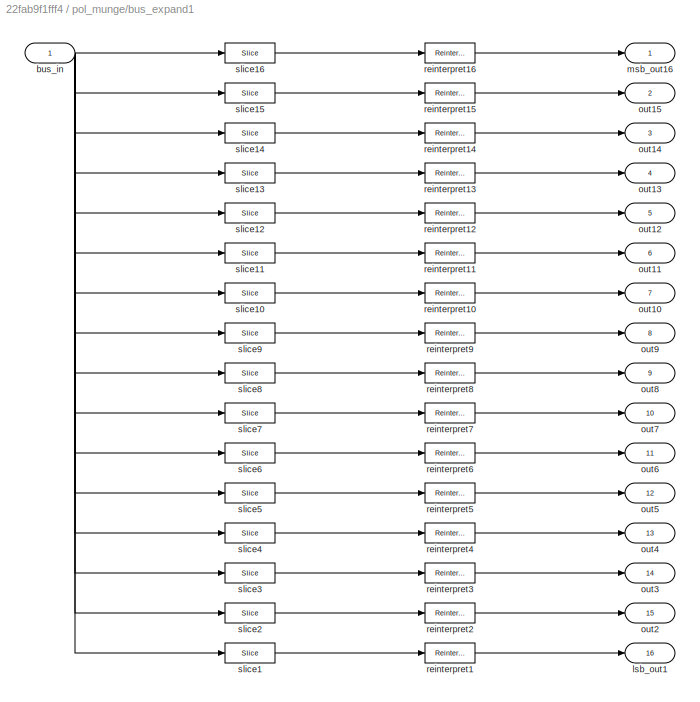
BLOCK [SubSystem] pol_munge/bus_expand1
  AncestorBlock = casper_library_flow_control/bus_expand
  AttributesFormatString = 16 outputs
  Ports = [1, 16]
  RequestExecContextInheritance = off
  UserDataPersistent = on
BLOCK [Inport] pol_munge/bus_expand1/bus_in
  IconDisplay = Port number
BLOCK [Outport] pol_munge/bus_expand1/lsb_out1
  IconDisplay = Port number
  Port = 16
BLOCK [Outport] pol_munge/bus_expand1/msb_out16
  IconDisplay = Port number
BLOCK [Outport] pol_munge/bus_expand1/out10
  IconDisplay = Port number
  Port = 7
BLOCK [Outport] pol_munge/bus_expand1/out11
  IconDisplay = Port number
  Port = 6
BLOCK [Outport] pol_munge/bus_expand1/out12
  IconDisplay = Port number
  Port = 5
BLOCK [Outport] pol_munge/bus_expand1/out13
  IconDisplay = Port number
  Port = 4
BLOCK [Outport] pol_munge/bus_expand1/out14
  IconDisplay = Port number
  Port = 3
BLOCK [Outport] pol_munge/bus_expand1/out15
  IconDisplay = Port number
  Port = 2
BLOCK [Outport] pol_munge/bus_expand1/out2
  IconDisplay = Port number
  Port = 15
BLOCK [Outport] pol_munge/bus_expand1/out3
  IconDisplay = Port number
  Port = 14
BLOCK [Outport] pol_munge/bus_expand1/out4
  IconDisplay = Port number
  Port = 13
BLOCK [Outport] pol_munge/bus_expand1/out5
  IconDisplay = Port number
  Port = 12
BLOCK [Outport] pol_munge/bus_expand1/out6
  IconDisplay = Port number
  Port = 11
BLOCK [Outport] pol_munge/bus_expand1/out7
  IconDisplay = Port number
  Port = 10
BLOCK [Outport] pol_munge/bus_expand1/out8
  IconDisplay = Port number
  Port = 9
BLOCK [Outport] pol_munge/bus_expand1/out9
  IconDisplay = Port number
  Port = 8
BLOCK [Reference] pol_munge/bus_expand1/reinterpret1  REF=xbsIndex_r4/Reinterpret
  Ports = [1, 1]
  SourceBlock = xbsIndex_r4/Reinterpret
  SourceType = Xilinx Type Reinterpreter Block
BLOCK [Reference] pol_munge/bus_expand1/reinterpret10  REF=xbsIndex_r4/Reinterpret
  Ports = [1, 1]
  SourceBlock = xbsIndex_r4/Reinterpret
  SourceType = Xilinx Type Reinterpreter Block
BLOCK [Reference] pol_munge/bus_expand1/reinterpret11  REF=xbsIndex_r4/Reinterpret
  Ports = [1, 1]
  SourceBlock = xbsIndex_r4/Reinterpret
  SourceType = Xilinx Type Reinterpreter Block
BLOCK [Reference] pol_munge/bus_expand1/reinterpret12  REF=xbsIndex_r4/Reinterpret
  Ports = [1, 1]
  SourceBlock = xbsIndex_r4/Reinterpret
  SourceType = Xilinx Type Reinterpreter Block
BLOCK [Reference] pol_munge/bus_expand1/reinterpret13  REF=xbsIndex_r4/Reinterpret
  Ports = [1, 1]
  SourceBlock = xbsIndex_r4/Reinterpret
  SourceType = Xilinx Type Reinterpreter Block
BLOCK [Reference] pol_munge/bus_expand1/reinterpret14  REF=xbsIndex_r4/Reinterpret
  Ports = [1, 1]
  SourceBlock = xbsIndex_r4/Reinterpret
  SourceType = Xilinx Type Reinterpreter Block
BLOCK [Reference] pol_munge/bus_expand1/reinterpret15  REF=xbsIndex_r4/Reinterpret
  Ports = [1, 1]
  SourceBlock = xbsIndex_r4/Reinterpret
  SourceType = Xilinx Type Reinterpreter Block
BLOCK [Reference] pol_munge/bus_expand1/reinterpret16  REF=xbsIndex_r4/Reinterpret
  Ports = [1, 1]
  SourceBlock = xbsIndex_r4/Reinterpret
  SourceType = Xilinx Type Reinterpreter Block
BLOCK [Reference] pol_munge/bus_expand1/reinterpret2  REF=xbsIndex_r4/Reinterpret
  Ports = [1, 1]
  SourceBlock = xbsIndex_r4/Reinterpret
  SourceType = Xilinx Type Reinterpreter Block
BLOCK [Reference] pol_munge/bus_expand1/reinterpret3  REF=xbsIndex_r4/Reinterpret
  Ports = [1, 1]
  SourceBlock = xbsIndex_r4/Reinterpret
  SourceType = Xilinx Type Reinterpreter Block
BLOCK [Reference] pol_munge/bus_expand1/reinterpret4  REF=xbsIndex_r4/Reinterpret
  Ports = [1, 1]
  SourceBlock = xbsIndex_r4/Reinterpret
  SourceType = Xilinx Type Reinterpreter Block
BLOCK [Reference] pol_munge/bus_expand1/reinterpret5  REF=xbsIndex_r4/Reinterpret
  Ports = [1, 1]
  SourceBlock = xbsIndex_r4/Reinterpret
  SourceType = Xilinx Type Reinterpreter Block
BLOCK [Reference] pol_munge/bus_expand1/reinterpret6  REF=xbsIndex_r4/Reinterpret
  Ports = [1, 1]
  SourceBlock = xbsIndex_r4/Reinterpret
  SourceType = Xilinx Type Reinterpreter Block
BLOCK [Reference] pol_munge/bus_expand1/reinterpret7  REF=xbsIndex_r4/Reinterpret
  Ports = [1, 1]
  SourceBlock = xbsIndex_r4/Reinterpret
  SourceType = Xilinx Type Reinterpreter Block
BLOCK [Reference] pol_munge/bus_expand1/reinterpret8  REF=xbsIndex_r4/Reinterpret
  Ports = [1, 1]
  SourceBlock = xbsIndex_r4/Reinterpret
  SourceType = Xilinx Type Reinterpreter Block
BLOCK [Reference] pol_munge/bus_expand1/reinterpret9  REF=xbsIndex_r4/Reinterpret
  Ports = [1, 1]
  SourceBlock = xbsIndex_r4/Reinterpret
  SourceType = Xilinx Type Reinterpreter Block
BLOCK [Reference] pol_munge/bus_expand1/slice1  REF=xbsIndex_r4/Slice
  Ports = [1, 1]
  SourceBlock = xbsIndex_r4/Slice
  SourceType = Xilinx Bit Slice Extractor Block
BLOCK [Reference] pol_munge/bus_expand1/slice10  REF=xbsIndex_r4/Slice
  Ports = [1, 1]
  SourceBlock = xbsIndex_r4/Slice
  SourceType = Xilinx Bit Slice Extractor Block
BLOCK [Reference] pol_munge/bus_expand1/slice11  REF=xbsIndex_r4/Slice
  Ports = [1, 1]
  SourceBlock = xbsIndex_r4/Slice
  SourceType = Xilinx Bit Slice Extractor Block
BLOCK [Reference] pol_munge/bus_expand1/slice12  REF=xbsIndex_r4/Slice
  Ports = [1, 1]
  SourceBlock = xbsIndex_r4/Slice
  SourceType = Xilinx Bit Slice Extractor Block
BLOCK [Reference] pol_munge/bus_expand1/slice13  REF=xbsIndex_r4/Slice
  Ports = [1, 1]
  SourceBlock = xbsIndex_r4/Slice
  SourceType = Xilinx Bit Slice Extractor Block
BLOCK [Reference] pol_munge/bus_expand1/slice14  REF=xbsIndex_r4/Slice
  Ports = [1, 1]
  SourceBlock = xbsIndex_r4/Slice
  SourceType = Xilinx Bit Slice Extractor Block
BLOCK [Reference] pol_munge/bus_expand1/slice15  REF=xbsIndex_r4/Slice
  Ports = [1, 1]
  SourceBlock = xbsIndex_r4/Slice
  SourceType = Xilinx Bit Slice Extractor Block
BLOCK [Reference] pol_munge/bus_expand1/slice16  REF=xbsIndex_r4/Slice
  Ports = [1, 1]
  SourceBlock = xbsIndex_r4/Slice
  SourceType = Xilinx Bit Slice Extractor Block
BLOCK [Reference] pol_munge/bus_expand1/slice2  REF=xbsIndex_r4/Slice
  Ports = [1, 1]
  SourceBlock = xbsIndex_r4/Slice
  SourceType = Xilinx Bit Slice Extractor Block
BLOCK [Reference] pol_munge/bus_expand1/slice3  REF=xbsIndex_r4/Slice
  Ports = [1, 1]
  SourceBlock = xbsIndex_r4/Slice
  SourceType = Xilinx Bit Slice Extractor Block
BLOCK [Reference] pol_munge/bus_expand1/slice4  REF=xbsIndex_r4/Slice
  Ports = [1, 1]
  SourceBlock = xbsIndex_r4/Slice
  SourceType = Xilinx Bit Slice Extractor Block
BLOCK [Reference] pol_munge/bus_expand1/slice5  REF=xbsIndex_r4/Slice
  Ports = [1, 1]
  SourceBlock = xbsIndex_r4/Slice
  SourceType = Xilinx Bit Slice Extractor Block
BLOCK [Reference] pol_munge/bus_expand1/slice6  REF=xbsIndex_r4/Slice
  Ports = [1, 1]
  SourceBlock = xbsIndex_r4/Slice
  SourceType = Xilinx Bit Slice Extractor Block
BLOCK [Reference] pol_munge/bus_expand1/slice7  REF=xbsIndex_r4/Slice
  Ports = [1, 1]
  SourceBlock = xbsIndex_r4/Slice
  SourceType = Xilinx Bit Slice Extractor Block
BLOCK [Reference] pol_munge/bus_expand1/slice8  REF=xbsIndex_r4/Slice
  Ports = [1, 1]
  SourceBlock = xbsIndex_r4/Slice
  SourceType = Xilinx Bit Slice Extractor Block
BLOCK [Reference] pol_munge/bus_expand1/slice9  REF=xbsIndex_r4/Slice
  Ports = [1, 1]
  SourceBlock = xbsIndex_r4/Slice
  SourceType = Xilinx Bit Slice Extractor Block
BLOCK [SubSystem] pol_munge/bus_expand2
  AncestorBlock = casper_library_flow_control/bus_expand
  AttributesFormatString = 16 outputs
  Ports = [1, 16]
  RequestExecContextInheritance = off
  UserDataPersistent = on
BLOCK [Inport] pol_munge/bus_expand2/bus_in
  IconDisplay = Port number
BLOCK [Outport] pol_munge/bus_expand2/lsb_out1
  IconDisplay = Port number
  Port = 16
BLOCK [Outport] pol_munge/bus_expand2/msb_out16
  IconDisplay = Port number
BLOCK [Outport] pol_munge/bus_expand2/out10
  IconDisplay = Port number
  Port = 7
BLOCK [Outport] pol_munge/bus_expand2/out11
  IconDisplay = Port number
  Port = 6
BLOCK [Outport] pol_munge/bus_expand2/out12
  IconDisplay = Port number
  Port = 5
BLOCK [Outport] pol_munge/bus_expand2/out13
  IconDisplay = Port number
  Port = 4
BLOCK [Outport] pol_munge/bus_expand2/out14
  IconDisplay = Port number
  Port = 3
BLOCK [Outport] pol_munge/bus_expand2/out15
  IconDisplay = Port number
  Port = 2
BLOCK [Outport] pol_munge/bus_expand2/out2
  IconDisplay = Port number
  Port = 15
BLOCK [Outport] pol_munge/bus_expand2/out3
  IconDisplay = Port number
  Port = 14
BLOCK [Outport] pol_munge/bus_expand2/out4
  IconDisplay = Port number
  Port = 13
BLOCK [Outport] pol_munge/bus_expand2/out5
  IconDisplay = Port number
  Port = 12
BLOCK [Outport] pol_munge/bus_expand2/out6
  IconDisplay = Port number
  Port = 11
BLOCK [Outport] pol_munge/bus_expand2/out7
  IconDisplay = Port number
  Port = 10
BLOCK [Outport] pol_munge/bus_expand2/out8
  IconDisplay = Port number
  Port = 9
BLOCK [Outport] pol_munge/bus_expand2/out9
  IconDisplay = Port number
  Port = 8
BLOCK [Reference] pol_munge/bus_expand2/reinterpret1  REF=xbsIndex_r4/Reinterpret
  Ports = [1, 1]
  SourceBlock = xbsIndex_r4/Reinterpret
  SourceType = Xilinx Type Reinterpreter Block
BLOCK [Reference] pol_munge/bus_expand2/reinterpret10  REF=xbsIndex_r4/Reinterpret
  Ports = [1, 1]
  SourceBlock = xbsIndex_r4/Reinterpret
  SourceType = Xilinx Type Reinterpreter Block
BLOCK [Reference] pol_munge/bus_expand2/reinterpret11  REF=xbsIndex_r4/Reinterpret
  Ports = [1, 1]
  SourceBlock = xbsIndex_r4/Reinterpret
  SourceType = Xilinx Type Reinterpreter Block
BLOCK [Reference] pol_munge/bus_expand2/reinterpret12  REF=xbsIndex_r4/Reinterpret
  Ports = [1, 1]
  SourceBlock = xbsIndex_r4/Reinterpret
  SourceType = Xilinx Type Reinterpreter Block
BLOCK [Reference] pol_munge/bus_expand2/reinterpret13  REF=xbsIndex_r4/Reinterpret
  Ports = [1, 1]
  SourceBlock = xbsIndex_r4/Reinterpret
  SourceType = Xilinx Type Reinterpreter Block
BLOCK [Reference] pol_munge/bus_expand2/reinterpret14  REF=xbsIndex_r4/Reinterpret
  Ports = [1, 1]
  SourceBlock = xbsIndex_r4/Reinterpret
  SourceType = Xilinx Type Reinterpreter Block
BLOCK [Reference] pol_munge/bus_expand2/reinterpret15  REF=xbsIndex_r4/Reinterpret
  Ports = [1, 1]
  SourceBlock = xbsIndex_r4/Reinterpret
  SourceType = Xilinx Type Reinterpreter Block
BLOCK [Reference] pol_munge/bus_expand2/reinterpret16  REF=xbsIndex_r4/Reinterpret
  Ports = [1, 1]
  SourceBlock = xbsIndex_r4/Reinterpret
  SourceType = Xilinx Type Reinterpreter Block
BLOCK [Reference] pol_munge/bus_expand2/reinterpret2  REF=xbsIndex_r4/Reinterpret
  Ports = [1, 1]
  SourceBlock = xbsIndex_r4/Reinterpret
  SourceType = Xilinx Type Reinterpreter Block
BLOCK [Reference] pol_munge/bus_expand2/reinterpret3  REF=xbsIndex_r4/Reinterpret
  Ports = [1, 1]
  SourceBlock = xbsIndex_r4/Reinterpret
  SourceType = Xilinx Type Reinterpreter Block
BLOCK [Reference] pol_munge/bus_expand2/reinterpret4  REF=xbsIndex_r4/Reinterpret
  Ports = [1, 1]
  SourceBlock = xbsIndex_r4/Reinterpret
  SourceType = Xilinx Type Reinterpreter Block
BLOCK [Reference] pol_munge/bus_expand2/reinterpret5  REF=xbsIndex_r4/Reinterpret
  Ports = [1, 1]
  SourceBlock = xbsIndex_r4/Reinterpret
  SourceType = Xilinx Type Reinterpreter Block
BLOCK [Reference] pol_munge/bus_expand2/reinterpret6  REF=xbsIndex_r4/Reinterpret
  Ports = [1, 1]
  SourceBlock = xbsIndex_r4/Reinterpret
  SourceType = Xilinx Type Reinterpreter Block
BLOCK [Reference] pol_munge/bus_expand2/reinterpret7  REF=xbsIndex_r4/Reinterpret
  Ports = [1, 1]
  SourceBlock = xbsIndex_r4/Reinterpret
  SourceType = Xilinx Type Reinterpreter Block
BLOCK [Reference] pol_munge/bus_expand2/reinterpret8  REF=xbsIndex_r4/Reinterpret
  Ports = [1, 1]
  SourceBlock = xbsIndex_r4/Reinterpret
  SourceType = Xilinx Type Reinterpreter Block
BLOCK [Reference] pol_munge/bus_expand2/reinterpret9  REF=xbsIndex_r4/Reinterpret
  Ports = [1, 1]
  SourceBlock = xbsIndex_r4/Reinterpret
  SourceType = Xilinx Type Reinterpreter Block
BLOCK [Reference] pol_munge/bus_expand2/slice1  REF=xbsIndex_r4/Slice
  Ports = [1, 1]
  SourceBlock = xbsIndex_r4/Slice
  SourceType = Xilinx Bit Slice Extractor Block
BLOCK [Reference] pol_munge/bus_expand2/slice10  REF=xbsIndex_r4/Slice
  Ports = [1, 1]
  SourceBlock = xbsIndex_r4/Slice
  SourceType = Xilinx Bit Slice Extractor Block
BLOCK [Reference] pol_munge/bus_expand2/slice11  REF=xbsIndex_r4/Slice
  Ports = [1, 1]
  SourceBlock = xbsIndex_r4/Slice
  SourceType = Xilinx Bit Slice Extractor Block
BLOCK [Reference] pol_munge/bus_expand2/slice12  REF=xbsIndex_r4/Slice
  Ports = [1, 1]
  SourceBlock = xbsIndex_r4/Slice
  SourceType = Xilinx Bit Slice Extractor Block
BLOCK [Reference] pol_munge/bus_expand2/slice13  REF=xbsIndex_r4/Slice
  Ports = [1, 1]
  SourceBlock = xbsIndex_r4/Slice
  SourceType = Xilinx Bit Slice Extractor Block
BLOCK [Reference] pol_munge/bus_expand2/slice14  REF=xbsIndex_r4/Slice
  Ports = [1, 1]
  SourceBlock = xbsIndex_r4/Slice
  SourceType = Xilinx Bit Slice Extractor Block
BLOCK [Reference] pol_munge/bus_expand2/slice15  REF=xbsIndex_r4/Slice
  Ports = [1, 1]
  SourceBlock = xbsIndex_r4/Slice
  SourceType = Xilinx Bit Slice Extractor Block
BLOCK [Reference] pol_munge/bus_expand2/slice16  REF=xbsIndex_r4/Slice
  Ports = [1, 1]
  SourceBlock = xbsIndex_r4/Slice
  SourceType = Xilinx Bit Slice Extractor Block
BLOCK [Reference] pol_munge/bus_expand2/slice2  REF=xbsIndex_r4/Slice
  Ports = [1, 1]
  SourceBlock = xbsIndex_r4/Slice
  SourceType = Xilinx Bit Slice Extractor Block
BLOCK [Reference] pol_munge/bus_expand2/slice3  REF=xbsIndex_r4/Slice
  Ports = [1, 1]
  SourceBlock = xbsIndex_r4/Slice
  SourceType = Xilinx Bit Slice Extractor Block
BLOCK [Reference] pol_munge/bus_expand2/slice4  REF=xbsIndex_r4/Slice
  Ports = [1, 1]
  SourceBlock = xbsIndex_r4/Slice
  SourceType = Xilinx Bit Slice Extractor Block
BLOCK [Reference] pol_munge/bus_expand2/slice5  REF=xbsIndex_r4/Slice
  Ports = [1, 1]
  SourceBlock = xbsIndex_r4/Slice
  SourceType = Xilinx Bit Slice Extractor Block
BLOCK [Reference] pol_munge/bus_expand2/slice6  REF=xbsIndex_r4/Slice
  Ports = [1, 1]
  SourceBlock = xbsIndex_r4/Slice
  SourceType = Xilinx Bit Slice Extractor Block
BLOCK [Reference] pol_munge/bus_expand2/slice7  REF=xbsIndex_r4/Slice
  Ports = [1, 1]
  SourceBlock = xbsIndex_r4/Slice
  SourceType = Xilinx Bit Slice Extractor Block
BLOCK [Reference] pol_munge/bus_expand2/slice8  REF=xbsIndex_r4/Slice
  Ports = [1, 1]
  SourceBlock = xbsIndex_r4/Slice
  SourceType = Xilinx Bit Slice Extractor Block
BLOCK [Reference] pol_munge/bus_expand2/slice9  REF=xbsIndex_r4/Slice
  Ports = [1, 1]
  SourceBlock = xbsIndex_r4/Slice
  SourceType = Xilinx Bit Slice Extractor Block
BLOCK [Inport] pol_munge/pol0
  IconDisplay = Port number
BLOCK [Inport] pol_munge/pol1
  IconDisplay = Port number
  Port = 2
BLOCK [Reference] pol_munge/ri_to_c  REF=casper_library_misc/ri_to_c  (lib defined in mdl_357510c33b49, mdl_57b5f564ae26, +4 more)
  Ports = [2, 1]
  SourceBlock = casper_library_misc/ri_to_c
  SourceProductName = CASPER DSP Blockset
  SourceType = ri_to_c
  UserDataPersistent = on
BLOCK [Reference] pol_munge/ri_to_c1  REF=casper_library_misc/ri_to_c  (lib defined in mdl_357510c33b49, mdl_57b5f564ae26, +4 more)
  Ports = [2, 1]
  SourceBlock = casper_library_misc/ri_to_c
  SourceProductName = CASPER DSP Blockset
  SourceType = ri_to_c
  UserDataPersistent = on
BLOCK [Reference] pol_munge/ri_to_c10  REF=casper_library_misc/ri_to_c  (lib defined in mdl_357510c33b49, mdl_57b5f564ae26, +4 more)
  Ports = [2, 1]
  SourceBlock = casper_library_misc/ri_to_c
  SourceProductName = CASPER DSP Blockset
  SourceType = ri_to_c
  UserDataPersistent = on
BLOCK [Reference] pol_munge/ri_to_c11  REF=casper_library_misc/ri_to_c  (lib defined in mdl_357510c33b49, mdl_57b5f564ae26, +4 more)
  Ports = [2, 1]
  SourceBlock = casper_library_misc/ri_to_c
  SourceProductName = CASPER DSP Blockset
  SourceType = ri_to_c
  UserDataPersistent = on
BLOCK [Reference] pol_munge/ri_to_c12  REF=casper_library_misc/ri_to_c  (lib defined in mdl_357510c33b49, mdl_57b5f564ae26, +4 more)
  Ports = [2, 1]
  SourceBlock = casper_library_misc/ri_to_c
  SourceProductName = CASPER DSP Blockset
  SourceType = ri_to_c
  UserDataPersistent = on
BLOCK [Reference] pol_munge/ri_to_c13  REF=casper_library_misc/ri_to_c  (lib defined in mdl_357510c33b49, mdl_57b5f564ae26, +4 more)
  Ports = [2, 1]
  SourceBlock = casper_library_misc/ri_to_c
  SourceProductName = CASPER DSP Blockset
  SourceType = ri_to_c
  UserDataPersistent = on
BLOCK [Reference] pol_munge/ri_to_c14  REF=casper_library_misc/ri_to_c  (lib defined in mdl_357510c33b49, mdl_57b5f564ae26, +4 more)
  Ports = [2, 1]
  SourceBlock = casper_library_misc/ri_to_c
  SourceProductName = CASPER DSP Blockset
  SourceType = ri_to_c
  UserDataPersistent = on
BLOCK [Reference] pol_munge/ri_to_c15  REF=casper_library_misc/ri_to_c  (lib defined in mdl_357510c33b49, mdl_57b5f564ae26, +4 more)
  Ports = [2, 1]
  SourceBlock = casper_library_misc/ri_to_c
  SourceProductName = CASPER DSP Blockset
  SourceType = ri_to_c
  UserDataPersistent = on
BLOCK [Reference] pol_munge/ri_to_c2  REF=casper_library_misc/ri_to_c  (lib defined in mdl_357510c33b49, mdl_57b5f564ae26, +4 more)
  Ports = [2, 1]
  SourceBlock = casper_library_misc/ri_to_c
  SourceProductName = CASPER DSP Blockset
  SourceType = ri_to_c
  UserDataPersistent = on
BLOCK [Reference] pol_munge/ri_to_c3  REF=casper_library_misc/ri_to_c  (lib defined in mdl_357510c33b49, mdl_57b5f564ae26, +4 more)
  Ports = [2, 1]
  SourceBlock = casper_library_misc/ri_to_c
  SourceProductName = CASPER DSP Blockset
  SourceType = ri_to_c
  UserDataPersistent = on
BLOCK [Reference] pol_munge/ri_to_c4  REF=casper_library_misc/ri_to_c  (lib defined in mdl_357510c33b49, mdl_57b5f564ae26, +4 more)
  Ports = [2, 1]
  SourceBlock = casper_library_misc/ri_to_c
  SourceProductName = CASPER DSP Blockset
  SourceType = ri_to_c
  UserDataPersistent = on
BLOCK [Reference] pol_munge/ri_to_c5  REF=casper_library_misc/ri_to_c  (lib defined in mdl_357510c33b49, mdl_57b5f564ae26, +4 more)
  Ports = [2, 1]
  SourceBlock = casper_library_misc/ri_to_c
  SourceProductName = CASPER DSP Blockset
  SourceType = ri_to_c
  UserDataPersistent = on
BLOCK [Reference] pol_munge/ri_to_c6  REF=casper_library_misc/ri_to_c  (lib defined in mdl_357510c33b49, mdl_57b5f564ae26, +4 more)
  Ports = [2, 1]
  SourceBlock = casper_library_misc/ri_to_c
  SourceProductName = CASPER DSP Blockset
  SourceType = ri_to_c
  UserDataPersistent = on
BLOCK [Reference] pol_munge/ri_to_c7  REF=casper_library_misc/ri_to_c  (lib defined in mdl_357510c33b49, mdl_57b5f564ae26, +4 more)
  Ports = [2, 1]
  SourceBlock = casper_library_misc/ri_to_c
  SourceProductName = CASPER DSP Blockset
  SourceType = ri_to_c
  UserDataPersistent = on
BLOCK [Reference] pol_munge/ri_to_c8  REF=casper_library_misc/ri_to_c  (lib defined in mdl_357510c33b49, mdl_57b5f564ae26, +4 more)
  Ports = [2, 1]
  SourceBlock = casper_library_misc/ri_to_c
  SourceProductName = CASPER DSP Blockset
  SourceType = ri_to_c
  UserDataPersistent = on
BLOCK [Reference] pol_munge/ri_to_c9  REF=casper_library_misc/ri_to_c  (lib defined in mdl_357510c33b49, mdl_57b5f564ae26, +4 more)
  Ports = [2, 1]
  SourceBlock = casper_library_misc/ri_to_c
  SourceProductName = CASPER DSP Blockset
  SourceType = ri_to_c
  UserDataPersistent = on
BLOCK [Reference] pol_out0  REF=xbsIndex_r4/Gateway Out
  Ports = [1, 1]
  SourceBlock = xbsIndex_r4/Gateway Out
  SourceType = Xilinx Gateway Out Block
BLOCK [Reference] pol_out1  REF=xbsIndex_r4/Gateway Out
  Ports = [1, 1]
  SourceBlock = xbsIndex_r4/Gateway Out
  SourceType = Xilinx Gateway Out Block
BLOCK [Reference] sync  REF=xbsIndex_r4/Gateway In
  Ports = [1, 1]
  SourceBlock = xbsIndex_r4/Gateway In
  SourceType = Xilinx Gateway In Block
BLOCK [Reference] sync_out  REF=xbsIndex_r4/Gateway Out
  Ports = [1, 1]
  SourceBlock = xbsIndex_r4/Gateway Out
  SourceType = Xilinx Gateway Out Block
LINE Band-Limited White Noise1:1 -> pol_in1:1
LINE Band-Limited White Noise:1 -> pol_in0:1
LINE Repeating Sequence Stair1:1 -> sync:1
LINE Slice:1 -> pfb_fir:1
LINE Subsystem/In10:1 -> Subsystem/c_to_ri9:1
LINE Subsystem/In11:1 -> Subsystem/c_to_ri10:1
LINE Subsystem/In12:1 -> Subsystem/c_to_ri11:1
LINE Subsystem/In13:1 -> Subsystem/c_to_ri12:1
LINE Subsystem/In14:1 -> Subsystem/c_to_ri13:1
LINE Subsystem/In15:1 -> Subsystem/c_to_ri14:1
LINE Subsystem/In16:1 -> Subsystem/c_to_ri15:1
LINE Subsystem/In1:1 -> Subsystem/c_to_ri:1
LINE Subsystem/In2:1 -> Subsystem/c_to_ri1:1
LINE Subsystem/In3:1 -> Subsystem/c_to_ri2:1
LINE Subsystem/In4:1 -> Subsystem/c_to_ri3:1
LINE Subsystem/In5:1 -> Subsystem/c_to_ri4:1
LINE Subsystem/In6:1 -> Subsystem/c_to_ri5:1
LINE Subsystem/In7:1 -> Subsystem/c_to_ri6:1
LINE Subsystem/In8:1 -> Subsystem/c_to_ri7:1
LINE Subsystem/In9:1 -> Subsystem/c_to_ri8:1
LINE Subsystem/bus_create1:1 -> Subsystem/pol0:1
LINE Subsystem/bus_create2:1 -> Subsystem/pol1:1
LINE Subsystem/c_to_ri10:1 -> Subsystem/bus_create1:11
LINE Subsystem/c_to_ri10:2 -> Subsystem/bus_create2:11
LINE Subsystem/c_to_ri11:1 -> Subsystem/bus_create1:12
LINE Subsystem/c_to_ri11:2 -> Subsystem/bus_create2:12
LINE Subsystem/c_to_ri12:1 -> Subsystem/bus_create1:13
LINE Subsystem/c_to_ri12:2 -> Subsystem/bus_create2:13
LINE Subsystem/c_to_ri13:1 -> Subsystem/bus_create1:14
LINE Subsystem/c_to_ri13:2 -> Subsystem/bus_create2:14
LINE Subsystem/c_to_ri14:1 -> Subsystem/bus_create1:15
LINE Subsystem/c_to_ri14:2 -> Subsystem/bus_create2:15
LINE Subsystem/c_to_ri15:1 -> Subsystem/bus_create1:16
LINE Subsystem/c_to_ri15:2 -> Subsystem/bus_create2:16
LINE Subsystem/c_to_ri1:1 -> Subsystem/bus_create1:2
LINE Subsystem/c_to_ri1:2 -> Subsystem/bus_create2:2
LINE Subsystem/c_to_ri2:1 -> Subsystem/bus_create1:3
LINE Subsystem/c_to_ri2:2 -> Subsystem/bus_create2:3
LINE Subsystem/c_to_ri3:1 -> Subsystem/bus_create1:4
LINE Subsystem/c_to_ri3:2 -> Subsystem/bus_create2:4
LINE Subsystem/c_to_ri4:1 -> Subsystem/bus_create1:5
LINE Subsystem/c_to_ri4:2 -> Subsystem/bus_create2:5
LINE Subsystem/c_to_ri5:1 -> Subsystem/bus_create1:6
LINE Subsystem/c_to_ri5:2 -> Subsystem/bus_create2:6
LINE Subsystem/c_to_ri6:1 -> Subsystem/bus_create1:7
LINE Subsystem/c_to_ri6:2 -> Subsystem/bus_create2:7
LINE Subsystem/c_to_ri7:1 -> Subsystem/bus_create1:8
LINE Subsystem/c_to_ri7:2 -> Subsystem/bus_create2:8
LINE Subsystem/c_to_ri8:1 -> Subsystem/bus_create1:9
LINE Subsystem/c_to_ri8:2 -> Subsystem/bus_create2:9
LINE Subsystem/c_to_ri9:1 -> Subsystem/bus_create1:10
LINE Subsystem/c_to_ri9:2 -> Subsystem/bus_create2:10
LINE Subsystem/c_to_ri:1 -> Subsystem/bus_create1:1
LINE Subsystem/c_to_ri:2 -> Subsystem/bus_create2:1
LINE Subsystem:1 -> pol_out0:1
LINE Subsystem:2 -> pol_out1:1
LINE pfb_fir:1 -> sync_out:1
LINE pfb_fir:10 -> Subsystem:9
LINE pfb_fir:11 -> Subsystem:10
LINE pfb_fir:12 -> Subsystem:11
LINE pfb_fir:13 -> Subsystem:12
LINE pfb_fir:14 -> Subsystem:13
LINE pfb_fir:15 -> Subsystem:14
LINE pfb_fir:16 -> Subsystem:15
LINE pfb_fir:17 -> Subsystem:16
LINE pfb_fir:2 -> Subsystem:1
LINE pfb_fir:3 -> Subsystem:2
LINE pfb_fir:4 -> Subsystem:3
LINE pfb_fir:5 -> Subsystem:4
LINE pfb_fir:6 -> Subsystem:5
LINE pfb_fir:7 -> Subsystem:6
LINE pfb_fir:8 -> Subsystem:7
LINE pfb_fir:9 -> Subsystem:8
LINE pol_in0:1 -> pol_munge:1
LINE pol_in1:1 -> pol_munge:2
LINE pol_munge/bus_expand1:1 -> pol_munge/ri_to_c:1
LINE pol_munge/bus_expand1:10 -> pol_munge/ri_to_c9:1
LINE pol_munge/bus_expand1:11 -> pol_munge/ri_to_c10:1
LINE pol_munge/bus_expand1:12 -> pol_munge/ri_to_c11:1
LINE pol_munge/bus_expand1:13 -> pol_munge/ri_to_c12:1
LINE pol_munge/bus_expand1:14 -> pol_munge/ri_to_c13:1
LINE pol_munge/bus_expand1:15 -> pol_munge/ri_to_c14:1
LINE pol_munge/bus_expand1:16 -> pol_munge/ri_to_c15:1
LINE pol_munge/bus_expand1:2 -> pol_munge/ri_to_c1:1
LINE pol_munge/bus_expand1:3 -> pol_munge/ri_to_c2:1
LINE pol_munge/bus_expand1:4 -> pol_munge/ri_to_c3:1
LINE pol_munge/bus_expand1:5 -> pol_munge/ri_to_c4:1
LINE pol_munge/bus_expand1:6 -> pol_munge/ri_to_c5:1
LINE pol_munge/bus_expand1:7 -> pol_munge/ri_to_c6:1
LINE pol_munge/bus_expand1:8 -> pol_munge/ri_to_c7:1
LINE pol_munge/bus_expand1:9 -> pol_munge/ri_to_c8:1
LINE pol_munge/bus_expand2:1 -> pol_munge/ri_to_c:2
LINE pol_munge/bus_expand2:10 -> pol_munge/ri_to_c9:2
LINE pol_munge/bus_expand2:11 -> pol_munge/ri_to_c10:2
LINE pol_munge/bus_expand2:12 -> pol_munge/ri_to_c11:2
LINE pol_munge/bus_expand2:13 -> pol_munge/ri_to_c12:2
LINE pol_munge/bus_expand2:14 -> pol_munge/ri_to_c13:2
LINE pol_munge/bus_expand2:15 -> pol_munge/ri_to_c14:2
LINE pol_munge/bus_expand2:16 -> pol_munge/ri_to_c15:2
LINE pol_munge/bus_expand2:2 -> pol_munge/ri_to_c1:2
LINE pol_munge/bus_expand2:3 -> pol_munge/ri_to_c2:2
LINE pol_munge/bus_expand2:4 -> pol_munge/ri_to_c3:2
LINE pol_munge/bus_expand2:5 -> pol_munge/ri_to_c4:2
LINE pol_munge/bus_expand2:6 -> pol_munge/ri_to_c5:2
LINE pol_munge/bus_expand2:7 -> pol_munge/ri_to_c6:2
LINE pol_munge/bus_expand2:8 -> pol_munge/ri_to_c7:2
LINE pol_munge/bus_expand2:9 -> pol_munge/ri_to_c8:2
LINE pol_munge/pol0:1 -> pol_munge/bus_expand1:1
LINE pol_munge/pol1:1 -> pol_munge/bus_expand2:1
LINE pol_munge/ri_to_c10:1 -> pol_munge/Out11:1
LINE pol_munge/ri_to_c11:1 -> pol_munge/Out12:1
LINE pol_munge/ri_to_c12:1 -> pol_munge/Out13:1
LINE pol_munge/ri_to_c13:1 -> pol_munge/Out14:1
LINE pol_munge/ri_to_c14:1 -> pol_munge/Out15:1
LINE pol_munge/ri_to_c15:1 -> pol_munge/Out16:1
LINE pol_munge/ri_to_c1:1 -> pol_munge/Out2:1
LINE pol_munge/ri_to_c2:1 -> pol_munge/Out3:1
LINE pol_munge/ri_to_c3:1 -> pol_munge/Out4:1
LINE pol_munge/ri_to_c4:1 -> pol_munge/Out5:1
LINE pol_munge/ri_to_c5:1 -> pol_munge/Out6:1
LINE pol_munge/ri_to_c6:1 -> pol_munge/Out7:1
LINE pol_munge/ri_to_c7:1 -> pol_munge/Out8:1
LINE pol_munge/ri_to_c8:1 -> pol_munge/Out9:1
LINE pol_munge/ri_to_c9:1 -> pol_munge/Out10:1
LINE pol_munge/ri_to_c:1 -> pol_munge/Out1:1
LINE pol_munge:1 -> pfb_fir:2
LINE pol_munge:10 -> pfb_fir:11
LINE pol_munge:11 -> pfb_fir:12
LINE pol_munge:12 -> pfb_fir:13
LINE pol_munge:13 -> pfb_fir:14
LINE pol_munge:14 -> pfb_fir:15
LINE pol_munge:15 -> pfb_fir:16
LINE pol_munge:16 -> pfb_fir:17
LINE pol_munge:2 -> pfb_fir:3
LINE pol_munge:3 -> pfb_fir:4
LINE pol_munge:4 -> pfb_fir:5
LINE pol_munge:5 -> pfb_fir:6
LINE pol_munge:6 -> pfb_fir:7
LINE pol_munge:7 -> pfb_fir:8
LINE pol_munge:8 -> pfb_fir:9
LINE pol_munge:9 -> pfb_fir:10
LINE pol_out0:1 -> To Workspace:1
LINE sync:1 -> Slice:1
LINE sync_out:1 -> To Workspace1:1
